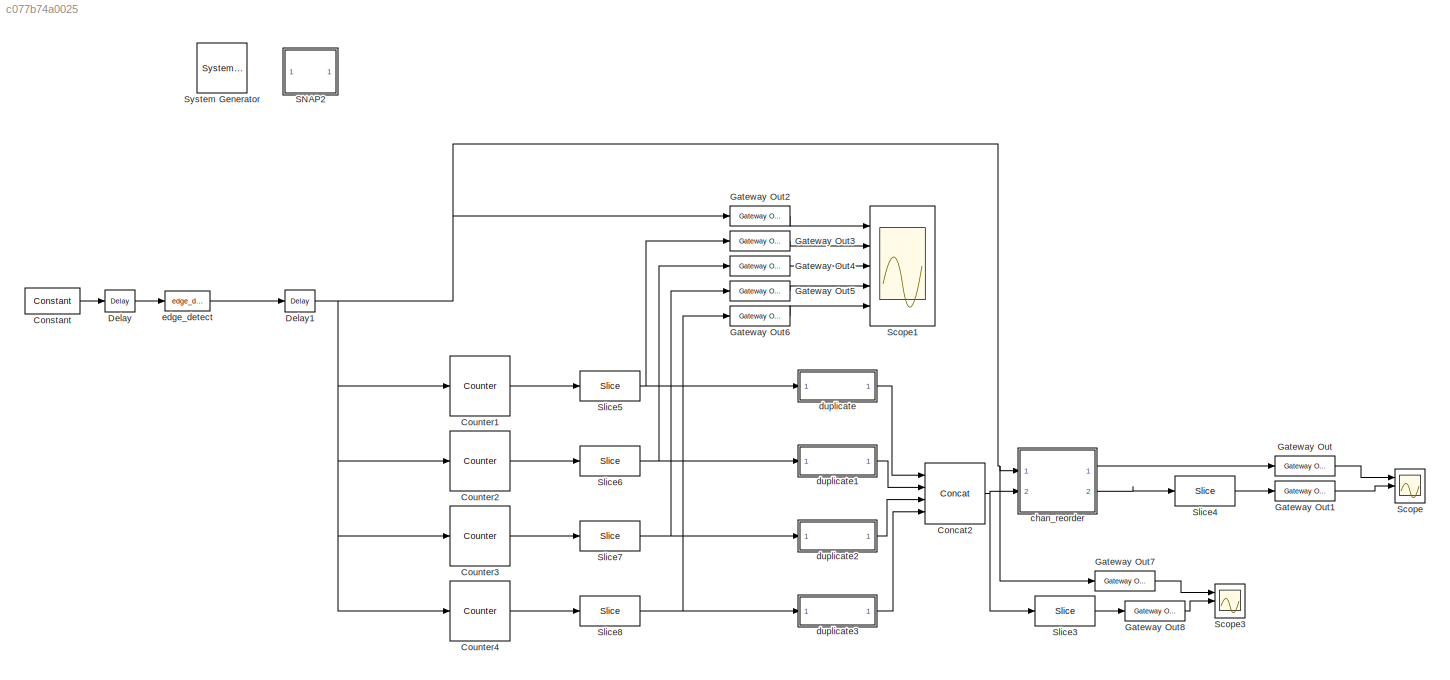
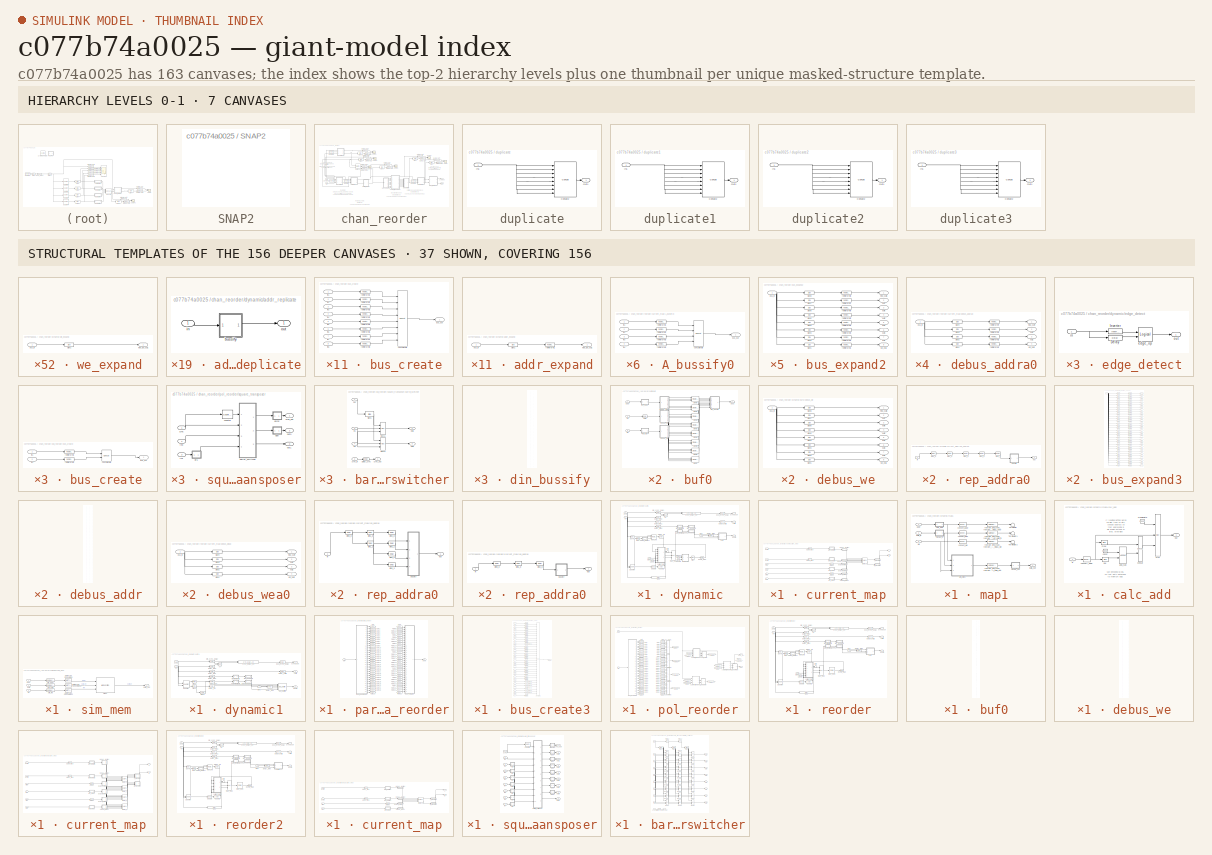
[diagram: thumbnail index - top-2 hierarchy levels (7 canvases) + 37 structural-template representatives of the remaining 156 canvases]
MODEL slx_c077b74a0025
KIND model
CONFIG AbsTol = auto
CONFIG EnableMultiTasking = off
CONFIG FixedStep = auto
CONFIG MaxStep = auto
CONFIG MinStep = auto
CONFIG RelTol = 1e-3
CONFIG SampleTimeConstraint = Unconstrained
CONFIG Solver = VariableStepAuto
CONFIG SolverName = VariableStepAuto
CONFIG StartTime = 0.0
CONFIG StopTime = 20000
BLOCK [Reference]  System Generator  REF=xbsIndex_r4/ System Generator
  AttributesFormatString = System\nGenerator
  Ports = []
  SourceBlock = xbsIndex_r4/ System Generator
  SourceType = Xilinx System Generator Block
  Tag = genX
  UserDataPersistent = on
BLOCK [Reference] Concat2  REF=xbsIndex_r4/Concat
  Ports = [4, 1]
  SourceBlock = xbsIndex_r4/Concat
  SourceType = Xilinx Bus Concatenator Block
BLOCK [Reference] Constant  REF=xbsIndex_r4/Constant
  Ports = [0, 1]
  SourceBlock = xbsIndex_r4/Constant
  SourceType = Xilinx Constant Block Block
BLOCK [Reference] Counter1  REF=xbsIndex_r4/Counter
  Ports = [1, 1]
  SourceBlock = xbsIndex_r4/Counter
  SourceType = Xilinx Counter Block
BLOCK [Reference] Counter2  REF=xbsIndex_r4/Counter
  Ports = [1, 1]
  SourceBlock = xbsIndex_r4/Counter
  SourceType = Xilinx Counter Block
BLOCK [Reference] Counter3  REF=xbsIndex_r4/Counter
  Ports = [1, 1]
  SourceBlock = xbsIndex_r4/Counter
  SourceType = Xilinx Counter Block
BLOCK [Reference] Counter4  REF=xbsIndex_r4/Counter
  Ports = [1, 1]
  SourceBlock = xbsIndex_r4/Counter
  SourceType = Xilinx Counter Block
BLOCK [Reference] Delay  REF=xbsIndex_r4/Delay
  Ports = [1, 1]
  SourceBlock = xbsIndex_r4/Delay
  SourceType = Xilinx Delay Block
BLOCK [Reference] Delay1  REF=xbsIndex_r4/Delay
  Ports = [1, 1]
  SourceBlock = xbsIndex_r4/Delay
  SourceType = Xilinx Delay Block
BLOCK [Reference] Gateway Out  REF=xbsIndex_r4/Gateway Out
  Ports = [1, 1]
  SourceBlock = xbsIndex_r4/Gateway Out
  SourceType = Xilinx Gateway Out Block
BLOCK [Reference] Gateway Out1  REF=xbsIndex_r4/Gateway Out
  Ports = [1, 1]
  SourceBlock = xbsIndex_r4/Gateway Out
  SourceType = Xilinx Gateway Out Block
BLOCK [Reference] Gateway Out2  REF=xbsIndex_r4/Gateway Out
  Ports = [1, 1]
  SourceBlock = xbsIndex_r4/Gateway Out
  SourceType = Xilinx Gateway Out Block
BLOCK [Reference] Gateway Out3  REF=xbsIndex_r4/Gateway Out
  Ports = [1, 1]
  SourceBlock = xbsIndex_r4/Gateway Out
  SourceType = Xilinx Gateway Out Block
BLOCK [Reference] Gateway Out4  REF=xbsIndex_r4/Gateway Out
  Ports = [1, 1]
  SourceBlock = xbsIndex_r4/Gateway Out
  SourceType = Xilinx Gateway Out Block
BLOCK [Reference] Gateway Out5  REF=xbsIndex_r4/Gateway Out
  Ports = [1, 1]
  SourceBlock = xbsIndex_r4/Gateway Out
  SourceType = Xilinx Gateway Out Block
BLOCK [Reference] Gateway Out6  REF=xbsIndex_r4/Gateway Out
  Ports = [1, 1]
  SourceBlock = xbsIndex_r4/Gateway Out
  SourceType = Xilinx Gateway Out Block
BLOCK [Reference] Gateway Out7  REF=xbsIndex_r4/Gateway Out
  Ports = [1, 1]
  SourceBlock = xbsIndex_r4/Gateway Out
  SourceType = Xilinx Gateway Out Block
BLOCK [Reference] Gateway Out8  REF=xbsIndex_r4/Gateway Out
  Ports = [1, 1]
  SourceBlock = xbsIndex_r4/Gateway Out
  SourceType = Xilinx Gateway Out Block
BLOCK [SubSystem] SNAP2
  Ports = []
  RequestExecContextInheritance = off
  Tag = xps:xsg
BLOCK [Scope] Scope
  Floating = off
  NumInputPorts = 3
  Ports = [3]
  ScopeSpecificationString = Simulink.scopes.TimeScopeBlockCfg('CurrentConfiguration', extmgr.ConfigurationSet(extmgr.Configuration('Core','General UI',true),extmgr.Configuration('Core','Source UI',true),extmgr.Configuration('Sources','WiredSimulink',true,'DataLoggingVariableName','ScopeData1'),extmgr.Configuration('Visuals','Time Domain',true,'SerializedDisplays',{struct('MinYLimReal','-0.125','MaxYLimReal','1.125','YLabelRe...<+2823ch>
BLOCK [Scope] Scope1
  Floating = off
  NumInputPorts = 5
  Ports = [5]
  ScopeSpecificationString = Simulink.scopes.TimeScopeBlockCfg('CurrentConfiguration', extmgr.ConfigurationSet(extmgr.Configuration('Core','General UI',true),extmgr.Configuration('Core','Source UI',true),extmgr.Configuration('Sources','WiredSimulink',true,'DataLoggingVariableName','ScopeData1'),extmgr.Configuration('Visuals','Time Domain',true,'SerializedDisplays',{struct('MinYLimReal','-0.125','MaxYLimReal','1.125','YLabelRe...<+2097ch>
BLOCK [Scope] Scope3
  Floating = off
  NumInputPorts = 3
  Ports = [3]
  ScopeSpecificationString = Simulink.scopes.TimeScopeBlockCfg('CurrentConfiguration', extmgr.ConfigurationSet(extmgr.Configuration('Core','General UI',true),extmgr.Configuration('Core','Source UI',true),extmgr.Configuration('Sources','WiredSimulink',true,'DataLoggingVariableName','ScopeData6'),extmgr.Configuration('Visuals','Time Domain',true,'SerializedDisplays',{struct('MinYLimReal','-0.125','MaxYLimReal','1.125','YLabelRe...<+2824ch>
BLOCK [Reference] Slice3  REF=xbsIndex_r4/Slice
  Ports = [1, 1]
  SourceBlock = xbsIndex_r4/Slice
  SourceType = Xilinx Bit Slice Extractor Block
BLOCK [Reference] Slice4  REF=xbsIndex_r4/Slice
  Ports = [1, 1]
  SourceBlock = xbsIndex_r4/Slice
  SourceType = Xilinx Bit Slice Extractor Block
BLOCK [Reference] Slice5  REF=xbsIndex_r4/Slice
  Ports = [1, 1]
  SourceBlock = xbsIndex_r4/Slice
  SourceType = Xilinx Bit Slice Extractor Block
BLOCK [Reference] Slice6  REF=xbsIndex_r4/Slice
  Ports = [1, 1]
  SourceBlock = xbsIndex_r4/Slice
  SourceType = Xilinx Bit Slice Extractor Block
BLOCK [Reference] Slice7  REF=xbsIndex_r4/Slice
  Ports = [1, 1]
  SourceBlock = xbsIndex_r4/Slice
  SourceType = Xilinx Bit Slice Extractor Block
BLOCK [Reference] Slice8  REF=xbsIndex_r4/Slice
  Ports = [1, 1]
  SourceBlock = xbsIndex_r4/Slice
  SourceType = Xilinx Bit Slice Extractor Block
BLOCK [SubSystem] chan_reorder
  Ports = [2, 2]
  RequestExecContextInheritance = off
BLOCK [Reference] chan_reorder/Constant  REF=xbsIndex_r4/Constant
  Ports = [0, 1]
  SourceBlock = xbsIndex_r4/Constant
  SourceType = Xilinx Constant Block Block
BLOCK [Reference] chan_reorder/Constant1  REF=xbsIndex_r4/Constant
  Ports = [0, 1]
  SourceBlock = xbsIndex_r4/Constant
  SourceType = Xilinx Constant Block Block
BLOCK [Reference] chan_reorder/Constant2  REF=xbsIndex_r4/Constant
  Ports = [0, 1]
  SourceBlock = xbsIndex_r4/Constant
  SourceType = Xilinx Constant Block Block
BLOCK [Reference] chan_reorder/Constant3  REF=xbsIndex_r4/Constant
  Ports = [0, 1]
  SourceBlock = xbsIndex_r4/Constant
  SourceType = Xilinx Constant Block Block
BLOCK [Reference] chan_reorder/Gateway Out1  REF=xbsIndex_r4/Gateway Out
  Ports = [1, 1]
  SourceBlock = xbsIndex_r4/Gateway Out
  SourceType = Xilinx Gateway Out Block
BLOCK [Reference] chan_reorder/Gateway Out10  REF=xbsIndex_r4/Gateway Out
  Ports = [1, 1]
  SourceBlock = xbsIndex_r4/Gateway Out
  SourceType = Xilinx Gateway Out Block
BLOCK [Reference] chan_reorder/Gateway Out11  REF=xbsIndex_r4/Gateway Out
  Ports = [1, 1]
  SourceBlock = xbsIndex_r4/Gateway Out
  SourceType = Xilinx Gateway Out Block
BLOCK [Reference] chan_reorder/Gateway Out12  REF=xbsIndex_r4/Gateway Out
  Ports = [1, 1]
  SourceBlock = xbsIndex_r4/Gateway Out
  SourceType = Xilinx Gateway Out Block
BLOCK [Reference] chan_reorder/Gateway Out2  REF=xbsIndex_r4/Gateway Out
  Ports = [1, 1]
  SourceBlock = xbsIndex_r4/Gateway Out
  SourceType = Xilinx Gateway Out Block
BLOCK [Reference] chan_reorder/Gateway Out3  REF=xbsIndex_r4/Gateway Out
  Ports = [1, 1]
  SourceBlock = xbsIndex_r4/Gateway Out
  SourceType = Xilinx Gateway Out Block
BLOCK [Reference] chan_reorder/Gateway Out4  REF=xbsIndex_r4/Gateway Out
  Ports = [1, 1]
  SourceBlock = xbsIndex_r4/Gateway Out
  SourceType = Xilinx Gateway Out Block
BLOCK [Reference] chan_reorder/Gateway Out5  REF=xbsIndex_r4/Gateway Out
  Ports = [1, 1]
  SourceBlock = xbsIndex_r4/Gateway Out
  SourceType = Xilinx Gateway Out Block
BLOCK [Reference] chan_reorder/Gateway Out6  REF=xbsIndex_r4/Gateway Out
  Ports = [1, 1]
  SourceBlock = xbsIndex_r4/Gateway Out
  SourceType = Xilinx Gateway Out Block
BLOCK [Reference] chan_reorder/Gateway Out7  REF=xbsIndex_r4/Gateway Out
  Ports = [1, 1]
  SourceBlock = xbsIndex_r4/Gateway Out
  SourceType = Xilinx Gateway Out Block
BLOCK [Reference] chan_reorder/Gateway Out8  REF=xbsIndex_r4/Gateway Out
  Ports = [1, 1]
  SourceBlock = xbsIndex_r4/Gateway Out
  SourceType = Xilinx Gateway Out Block
BLOCK [Reference] chan_reorder/Gateway Out9  REF=xbsIndex_r4/Gateway Out
  Ports = [1, 1]
  SourceBlock = xbsIndex_r4/Gateway Out
  SourceType = Xilinx Gateway Out Block
BLOCK [Reference] chan_reorder/Relational  REF=xbsIndex_r4/Relational
  Ports = [2, 1]
  SourceBlock = xbsIndex_r4/Relational
  SourceType = Xilinx Arithmetic Relational Operator Block
BLOCK [Scope] chan_reorder/Scope
  Floating = off
  NumInputPorts = 3
  Ports = [3]
  ScopeSpecificationString = Simulink.scopes.TimeScopeBlockCfg('CurrentConfiguration', extmgr.ConfigurationSet(extmgr.Configuration('Core','General UI',true),extmgr.Configuration('Core','Source UI',true),extmgr.Configuration('Sources','WiredSimulink',true,'DataLoggingVariableName','ScopeData2'),extmgr.Configuration('Visuals','Time Domain',true,'SerializedDisplays',{struct('MinYLimReal','-0.125','MaxYLimReal','1.125','YLabelRe...<+2827ch>
BLOCK [Scope] chan_reorder/Scope1
  Floating = off
  NumInputPorts = 3
  Ports = [3]
  ScopeSpecificationString = Simulink.scopes.TimeScopeBlockCfg('CurrentConfiguration', extmgr.ConfigurationSet(extmgr.Configuration('Core','General UI',true),extmgr.Configuration('Core','Source UI',true),extmgr.Configuration('Sources','WiredSimulink',true,'DataLoggingVariableName','ScopeData3'),extmgr.Configuration('Visuals','Time Domain',true,'SerializedDisplays',{struct('MinYLimReal','-0.125','MaxYLimReal','1.125','YLabelRe...<+2824ch>
BLOCK [Scope] chan_reorder/Scope2
  Floating = off
  NumInputPorts = 3
  Ports = [3]
  ScopeSpecificationString = Simulink.scopes.TimeScopeBlockCfg('CurrentConfiguration', extmgr.ConfigurationSet(extmgr.Configuration('Core','General UI',true),extmgr.Configuration('Core','Source UI',true),extmgr.Configuration('Sources','WiredSimulink',true,'DataLoggingVariableName','ScopeData4'),extmgr.Configuration('Visuals','Time Domain',true,'SerializedDisplays',{struct('MinYLimReal','-0.125','MaxYLimReal','1.125','YLabelRe...<+2826ch>
BLOCK [Scope] chan_reorder/Scope3
  Floating = off
  NumInputPorts = 3
  Ports = [3]
  ScopeSpecificationString = Simulink.scopes.TimeScopeBlockCfg('CurrentConfiguration', extmgr.ConfigurationSet(extmgr.Configuration('Core','General UI',true),extmgr.Configuration('Core','Source UI',true),extmgr.Configuration('Sources','WiredSimulink',true,'DataLoggingVariableName','ScopeData5'),extmgr.Configuration('Visuals','Time Domain',true,'SerializedDisplays',{struct('MinYLimReal','-0.125','MaxYLimReal','1.125','YLabelRe...<+2824ch>
BLOCK [Scope] chan_reorder/Scope4
  Floating = off
  NumInputPorts = 3
  Ports = [3]
  ScopeSpecificationString = Simulink.scopes.TimeScopeBlockCfg('CurrentConfiguration', extmgr.ConfigurationSet(extmgr.Configuration('Core','General UI',true),extmgr.Configuration('Core','Source UI',true),extmgr.Configuration('Sources','WiredSimulink',true,'DataLoggingVariableName','ScopeData1'),extmgr.Configuration('Visuals','Time Domain',true,'SerializedDisplays',{struct('MinYLimReal','-0.125','MaxYLimReal','1.125','YLabelRe...<+2824ch>
BLOCK [Scope] chan_reorder/Scope5
  Floating = off
  NumInputPorts = 3
  Ports = [3]
  ScopeSpecificationString = Simulink.scopes.TimeScopeBlockCfg('CurrentConfiguration', extmgr.ConfigurationSet(extmgr.Configuration('Core','General UI',true),extmgr.Configuration('Core','Source UI',true),extmgr.Configuration('Sources','WiredSimulink',true,'DataLoggingVariableName','ScopeData2'),extmgr.Configuration('Visuals','Time Domain',true,'SerializedDisplays',{struct('MinYLimReal','-0.125','MaxYLimReal','1.125','YLabelRe...<+2826ch>
BLOCK [Reference] chan_reorder/Slice1  REF=xbsIndex_r4/Slice
  Ports = [1, 1]
  SourceBlock = xbsIndex_r4/Slice
  SourceType = Xilinx Bit Slice Extractor Block
BLOCK [Reference] chan_reorder/Slice2  REF=xbsIndex_r4/Slice
  Ports = [1, 1]
  SourceBlock = xbsIndex_r4/Slice
  SourceType = Xilinx Bit Slice Extractor Block
BLOCK [Reference] chan_reorder/Slice3  REF=xbsIndex_r4/Slice
  Ports = [1, 1]
  SourceBlock = xbsIndex_r4/Slice
  SourceType = Xilinx Bit Slice Extractor Block
BLOCK [Reference] chan_reorder/Slice4  REF=xbsIndex_r4/Slice
  Ports = [1, 1]
  SourceBlock = xbsIndex_r4/Slice
  SourceType = Xilinx Bit Slice Extractor Block
BLOCK [Reference] chan_reorder/Slice5  REF=xbsIndex_r4/Slice
  Ports = [1, 1]
  SourceBlock = xbsIndex_r4/Slice
  SourceType = Xilinx Bit Slice Extractor Block
BLOCK [SubSystem] chan_reorder/bus_create
  AncestorBlock = casper_library_flow_control/bus_create
  Ports = [8, 1]
  RequestExecContextInheritance = off
  UserDataPersistent = on
BLOCK [Outport] chan_reorder/bus_create/bus_out
  IconDisplay = Port number
BLOCK [Reference] chan_reorder/bus_create/concatenate  REF=xbsIndex_r4/Concat
  Ports = [8, 1]
  SourceBlock = xbsIndex_r4/Concat
  SourceType = Xilinx Bus Concatenator Block
BLOCK [Inport] chan_reorder/bus_create/in1
  IconDisplay = Port number
BLOCK [Inport] chan_reorder/bus_create/in2
  IconDisplay = Port number
  Port = 2
BLOCK [Inport] chan_reorder/bus_create/in3
  IconDisplay = Port number
  Port = 3
BLOCK [Inport] chan_reorder/bus_create/in4
  IconDisplay = Port number
  Port = 4
BLOCK [Inport] chan_reorder/bus_create/in5
  IconDisplay = Port number
  Port = 5
BLOCK [Inport] chan_reorder/bus_create/in6
  IconDisplay = Port number
  Port = 6
BLOCK [Inport] chan_reorder/bus_create/in7
  IconDisplay = Port number
  Port = 7
BLOCK [Inport] chan_reorder/bus_create/in8
  IconDisplay = Port number
  Port = 8
BLOCK [Reference] chan_reorder/bus_create/reinterpret1  REF=xbsIndex_r4/Reinterpret
  Ports = [1, 1]
  SourceBlock = xbsIndex_r4/Reinterpret
  SourceType = Xilinx Type Reinterpreter Block
BLOCK [Reference] chan_reorder/bus_create/reinterpret2  REF=xbsIndex_r4/Reinterpret
  Ports = [1, 1]
  SourceBlock = xbsIndex_r4/Reinterpret
  SourceType = Xilinx Type Reinterpreter Block
BLOCK [Reference] chan_reorder/bus_create/reinterpret3  REF=xbsIndex_r4/Reinterpret
  Ports = [1, 1]
  SourceBlock = xbsIndex_r4/Reinterpret
  SourceType = Xilinx Type Reinterpreter Block
BLOCK [Reference] chan_reorder/bus_create/reinterpret4  REF=xbsIndex_r4/Reinterpret
  Ports = [1, 1]
  SourceBlock = xbsIndex_r4/Reinterpret
  SourceType = Xilinx Type Reinterpreter Block
BLOCK [Reference] chan_reorder/bus_create/reinterpret5  REF=xbsIndex_r4/Reinterpret
  Ports = [1, 1]
  SourceBlock = xbsIndex_r4/Reinterpret
  SourceType = Xilinx Type Reinterpreter Block
BLOCK [Reference] chan_reorder/bus_create/reinterpret6  REF=xbsIndex_r4/Reinterpret
  Ports = [1, 1]
  SourceBlock = xbsIndex_r4/Reinterpret
  SourceType = Xilinx Type Reinterpreter Block
BLOCK [Reference] chan_reorder/bus_create/reinterpret7  REF=xbsIndex_r4/Reinterpret
  Ports = [1, 1]
  SourceBlock = xbsIndex_r4/Reinterpret
  SourceType = Xilinx Type Reinterpreter Block
BLOCK [Reference] chan_reorder/bus_create/reinterpret8  REF=xbsIndex_r4/Reinterpret
  Ports = [1, 1]
  SourceBlock = xbsIndex_r4/Reinterpret
  SourceType = Xilinx Type Reinterpreter Block
BLOCK [SubSystem] chan_reorder/bus_expand2
  AncestorBlock = casper_library_flow_control/bus_expand
  AttributesFormatString = 8 outputs
  Ports = [1, 8]
  RequestExecContextInheritance = off
  UserDataPersistent = on
BLOCK [Inport] chan_reorder/bus_expand2/bus_in
  IconDisplay = Port number
BLOCK [Outport] chan_reorder/bus_expand2/lsb_out1
  IconDisplay = Port number
  Port = 8
BLOCK [Outport] chan_reorder/bus_expand2/msb_out8
  IconDisplay = Port number
BLOCK [Outport] chan_reorder/bus_expand2/out2
  IconDisplay = Port number
  Port = 7
BLOCK [Outport] chan_reorder/bus_expand2/out3
  IconDisplay = Port number
  Port = 6
BLOCK [Outport] chan_reorder/bus_expand2/out4
  IconDisplay = Port number
  Port = 5
BLOCK [Outport] chan_reorder/bus_expand2/out5
  IconDisplay = Port number
  Port = 4
BLOCK [Outport] chan_reorder/bus_expand2/out6
  IconDisplay = Port number
  Port = 3
BLOCK [Outport] chan_reorder/bus_expand2/out7
  IconDisplay = Port number
  Port = 2
BLOCK [Reference] chan_reorder/bus_expand2/reinterpret1  REF=xbsIndex_r4/Reinterpret
  Ports = [1, 1]
  SourceBlock = xbsIndex_r4/Reinterpret
  SourceType = Xilinx Type Reinterpreter Block
BLOCK [Reference] chan_reorder/bus_expand2/reinterpret2  REF=xbsIndex_r4/Reinterpret
  Ports = [1, 1]
  SourceBlock = xbsIndex_r4/Reinterpret
  SourceType = Xilinx Type Reinterpreter Block
BLOCK [Reference] chan_reorder/bus_expand2/reinterpret3  REF=xbsIndex_r4/Reinterpret
  Ports = [1, 1]
  SourceBlock = xbsIndex_r4/Reinterpret
  SourceType = Xilinx Type Reinterpreter Block
BLOCK [Reference] chan_reorder/bus_expand2/reinterpret4  REF=xbsIndex_r4/Reinterpret
  Ports = [1, 1]
  SourceBlock = xbsIndex_r4/Reinterpret
  SourceType = Xilinx Type Reinterpreter Block
BLOCK [Reference] chan_reorder/bus_expand2/reinterpret5  REF=xbsIndex_r4/Reinterpret
  Ports = [1, 1]
  SourceBlock = xbsIndex_r4/Reinterpret
  SourceType = Xilinx Type Reinterpreter Block
BLOCK [Reference] chan_reorder/bus_expand2/reinterpret6  REF=xbsIndex_r4/Reinterpret
  Ports = [1, 1]
  SourceBlock = xbsIndex_r4/Reinterpret
  SourceType = Xilinx Type Reinterpreter Block
BLOCK [Reference] chan_reorder/bus_expand2/reinterpret7  REF=xbsIndex_r4/Reinterpret
  Ports = [1, 1]
  SourceBlock = xbsIndex_r4/Reinterpret
  SourceType = Xilinx Type Reinterpreter Block
BLOCK [Reference] chan_reorder/bus_expand2/reinterpret8  REF=xbsIndex_r4/Reinterpret
  Ports = [1, 1]
  SourceBlock = xbsIndex_r4/Reinterpret
  SourceType = Xilinx Type Reinterpreter Block
BLOCK [Reference] chan_reorder/bus_expand2/slice1  REF=xbsIndex_r4/Slice
  Ports = [1, 1]
  SourceBlock = xbsIndex_r4/Slice
  SourceType = Xilinx Bit Slice Extractor Block
BLOCK [Reference] chan_reorder/bus_expand2/slice2  REF=xbsIndex_r4/Slice
  Ports = [1, 1]
  SourceBlock = xbsIndex_r4/Slice
  SourceType = Xilinx Bit Slice Extractor Block
BLOCK [Reference] chan_reorder/bus_expand2/slice3  REF=xbsIndex_r4/Slice
  Ports = [1, 1]
  SourceBlock = xbsIndex_r4/Slice
  SourceType = Xilinx Bit Slice Extractor Block
BLOCK [Reference] chan_reorder/bus_expand2/slice4  REF=xbsIndex_r4/Slice
  Ports = [1, 1]
  SourceBlock = xbsIndex_r4/Slice
  SourceType = Xilinx Bit Slice Extractor Block
BLOCK [Reference] chan_reorder/bus_expand2/slice5  REF=xbsIndex_r4/Slice
  Ports = [1, 1]
  SourceBlock = xbsIndex_r4/Slice
  SourceType = Xilinx Bit Slice Extractor Block
BLOCK [Reference] chan_reorder/bus_expand2/slice6  REF=xbsIndex_r4/Slice
  Ports = [1, 1]
  SourceBlock = xbsIndex_r4/Slice
  SourceType = Xilinx Bit Slice Extractor Block
BLOCK [Reference] chan_reorder/bus_expand2/slice7  REF=xbsIndex_r4/Slice
  Ports = [1, 1]
  SourceBlock = xbsIndex_r4/Slice
  SourceType = Xilinx Bit Slice Extractor Block
BLOCK [Reference] chan_reorder/bus_expand2/slice8  REF=xbsIndex_r4/Slice
  Ports = [1, 1]
  SourceBlock = xbsIndex_r4/Slice
  SourceType = Xilinx Bit Slice Extractor Block
BLOCK [Inport] chan_reorder/din
  IconDisplay = Port number
  Port = 2
BLOCK [Outport] chan_reorder/dout
  IconDisplay = Port number
  Port = 2
BLOCK [SubSystem] chan_reorder/dynamic
  AncestorBlock = casper_library_reorder/reorder
  AttributesFormatString = order=9
  Ports = [3, 3]
  RequestExecContextInheritance = off
  UserDataPersistent = on
BLOCK [Reference] chan_reorder/dynamic/Counter  REF=xbsIndex_r4/Counter
  Ports = [2, 1]
  SourceBlock = xbsIndex_r4/Counter
  SourceType = Xilinx Counter Block
BLOCK [Reference] chan_reorder/dynamic/Slice  REF=xbsIndex_r4/Slice
  Ports = [1, 1]
  SourceBlock = xbsIndex_r4/Slice
  SourceType = Xilinx Bit Slice Extractor Block
BLOCK [SubSystem] chan_reorder/dynamic/addr_expand
  AncestorBlock = casper_library_flow_control/bus_expand
  AttributesFormatString = 1 outputs
  Ports = [1, 1]
  RequestExecContextInheritance = off
  UserDataPersistent = on
BLOCK [Inport] chan_reorder/dynamic/addr_expand/bus_in
  IconDisplay = Port number
BLOCK [Outport] chan_reorder/dynamic/addr_expand/msb_lsb_out1
  IconDisplay = Port number
BLOCK [Reference] chan_reorder/dynamic/addr_expand/reinterpret1  REF=xbsIndex_r4/Reinterpret
  Ports = [1, 1]
  SourceBlock = xbsIndex_r4/Reinterpret
  SourceType = Xilinx Type Reinterpreter Block
BLOCK [Reference] chan_reorder/dynamic/addr_expand/slice1  REF=xbsIndex_r4/Slice
  Ports = [1, 1]
  SourceBlock = xbsIndex_r4/Slice
  SourceType = Xilinx Bit Slice Extractor Block
BLOCK [SubSystem] chan_reorder/dynamic/addr_replicate
  AncestorBlock = casper_library_bus/bus_replicate
  Ports = [1, 1]
  RequestExecContextInheritance = off
  UserDataPersistent = on
BLOCK [SubSystem] chan_reorder/dynamic/addr_replicate/bussify
  AncestorBlock = casper_library_flow_control/bus_create
  Ports = [1, 1]
  RequestExecContextInheritance = off
  UserDataPersistent = on
BLOCK [Outport] chan_reorder/dynamic/addr_replicate/bussify/bus_out
  IconDisplay = Port number
BLOCK [Inport] chan_reorder/dynamic/addr_replicate/bussify/in1
  IconDisplay = Port number
BLOCK [Reference] chan_reorder/dynamic/addr_replicate/bussify/reinterpret1  REF=xbsIndex_r4/Reinterpret
  Ports = [1, 1]
  SourceBlock = xbsIndex_r4/Reinterpret
  SourceType = Xilinx Type Reinterpreter Block
BLOCK [Inport] chan_reorder/dynamic/addr_replicate/in
  IconDisplay = Port number
BLOCK [Outport] chan_reorder/dynamic/addr_replicate/out
  IconDisplay = Port number
BLOCK [Reference] chan_reorder/dynamic/blank  REF=xbsIndex_r4/Constant
  Ports = [0, 1]
  SourceBlock = xbsIndex_r4/Constant
  SourceType = Xilinx Constant Block Block
BLOCK [Reference] chan_reorder/dynamic/blank1  REF=xbsIndex_r4/Constant
  Ports = [0, 1]
  SourceBlock = xbsIndex_r4/Constant
  SourceType = Xilinx Constant Block Block
BLOCK [SubSystem] chan_reorder/dynamic/buf0
  AncestorBlock = casper_library_bus/bus_single_port_ram
  Ports = [3, 1]
  RequestExecContextInheritance = off
  UserDataPersistent = on
BLOCK [Inport] chan_reorder/dynamic/buf0/addr
  IconDisplay = Port number
BLOCK [Reference] chan_reorder/dynamic/buf0/bram0  REF=xbsIndex_r4/Single Port RAM
  Ports = [3, 1]
  SourceBlock = xbsIndex_r4/Single Port RAM
  SourceType = Xilinx Single Port Random Access Memory Block
  UserDataPersistent = on
BLOCK [Reference] chan_reorder/dynamic/buf0/bram1  REF=xbsIndex_r4/Single Port RAM
  Ports = [3, 1]
  SourceBlock = xbsIndex_r4/Single Port RAM
  SourceType = Xilinx Single Port Random Access Memory Block
  UserDataPersistent = on
BLOCK [Reference] chan_reorder/dynamic/buf0/bram2  REF=xbsIndex_r4/Single Port RAM
  Ports = [3, 1]
  SourceBlock = xbsIndex_r4/Single Port RAM
  SourceType = Xilinx Single Port Random Access Memory Block
  UserDataPersistent = on
BLOCK [Reference] chan_reorder/dynamic/buf0/bram3  REF=xbsIndex_r4/Single Port RAM
  Ports = [3, 1]
  SourceBlock = xbsIndex_r4/Single Port RAM
  SourceType = Xilinx Single Port Random Access Memory Block
  UserDataPersistent = on
BLOCK [Reference] chan_reorder/dynamic/buf0/bram4  REF=xbsIndex_r4/Single Port RAM
  Ports = [3, 1]
  SourceBlock = xbsIndex_r4/Single Port RAM
  SourceType = Xilinx Single Port Random Access Memory Block
  UserDataPersistent = on
BLOCK [Reference] chan_reorder/dynamic/buf0/bram5  REF=xbsIndex_r4/Single Port RAM
  Ports = [3, 1]
  SourceBlock = xbsIndex_r4/Single Port RAM
  SourceType = Xilinx Single Port Random Access Memory Block
  UserDataPersistent = on
BLOCK [Reference] chan_reorder/dynamic/buf0/bram6  REF=xbsIndex_r4/Single Port RAM
  Ports = [3, 1]
  SourceBlock = xbsIndex_r4/Single Port RAM
  SourceType = Xilinx Single Port Random Access Memory Block
  UserDataPersistent = on
BLOCK [Reference] chan_reorder/dynamic/buf0/bram7  REF=xbsIndex_r4/Single Port RAM
  Ports = [3, 1]
  SourceBlock = xbsIndex_r4/Single Port RAM
  SourceType = Xilinx Single Port Random Access Memory Block
  UserDataPersistent = on
BLOCK [Reference] chan_reorder/dynamic/buf0/ddin  REF=xbsIndex_r4/Delay
  Ports = [1, 1]
  SourceBlock = xbsIndex_r4/Delay
  SourceType = Xilinx Delay Block
BLOCK [SubSystem] chan_reorder/dynamic/buf0/debus_addr
  AncestorBlock = casper_library_flow_control/bus_expand
  AttributesFormatString = 8 outputs: uf9.0,uf9.0,uf9.0,uf9.0,uf9.0,uf9.0,uf9.0,uf9.0,
  Ports = [1, 8]
  RequestExecContextInheritance = off
  UserDataPersistent = on
BLOCK [Inport] chan_reorder/dynamic/buf0/debus_addr/bus_in
  IconDisplay = Port number
BLOCK [Outport] chan_reorder/dynamic/buf0/debus_addr/lsb_out1
  IconDisplay = Port number
  Port = 8
BLOCK [Outport] chan_reorder/dynamic/buf0/debus_addr/msb_out8
  IconDisplay = Port number
BLOCK [Outport] chan_reorder/dynamic/buf0/debus_addr/out2
  IconDisplay = Port number
  Port = 7
BLOCK [Outport] chan_reorder/dynamic/buf0/debus_addr/out3
  IconDisplay = Port number
  Port = 6
BLOCK [Outport] chan_reorder/dynamic/buf0/debus_addr/out4
  IconDisplay = Port number
  Port = 5
BLOCK [Outport] chan_reorder/dynamic/buf0/debus_addr/out5
  IconDisplay = Port number
  Port = 4
BLOCK [Outport] chan_reorder/dynamic/buf0/debus_addr/out6
  IconDisplay = Port number
  Port = 3
BLOCK [Outport] chan_reorder/dynamic/buf0/debus_addr/out7
  IconDisplay = Port number
  Port = 2
BLOCK [Reference] chan_reorder/dynamic/buf0/debus_addr/reinterpret1  REF=xbsIndex_r4/Reinterpret
  Ports = [1, 1]
  SourceBlock = xbsIndex_r4/Reinterpret
  SourceType = Xilinx Type Reinterpreter Block
BLOCK [Reference] chan_reorder/dynamic/buf0/debus_addr/reinterpret2  REF=xbsIndex_r4/Reinterpret
  Ports = [1, 1]
  SourceBlock = xbsIndex_r4/Reinterpret
  SourceType = Xilinx Type Reinterpreter Block
BLOCK [Reference] chan_reorder/dynamic/buf0/debus_addr/reinterpret3  REF=xbsIndex_r4/Reinterpret
  Ports = [1, 1]
  SourceBlock = xbsIndex_r4/Reinterpret
  SourceType = Xilinx Type Reinterpreter Block
BLOCK [Reference] chan_reorder/dynamic/buf0/debus_addr/reinterpret4  REF=xbsIndex_r4/Reinterpret
  Ports = [1, 1]
  SourceBlock = xbsIndex_r4/Reinterpret
  SourceType = Xilinx Type Reinterpreter Block
BLOCK [Reference] chan_reorder/dynamic/buf0/debus_addr/reinterpret5  REF=xbsIndex_r4/Reinterpret
  Ports = [1, 1]
  SourceBlock = xbsIndex_r4/Reinterpret
  SourceType = Xilinx Type Reinterpreter Block
BLOCK [Reference] chan_reorder/dynamic/buf0/debus_addr/reinterpret6  REF=xbsIndex_r4/Reinterpret
  Ports = [1, 1]
  SourceBlock = xbsIndex_r4/Reinterpret
  SourceType = Xilinx Type Reinterpreter Block
BLOCK [Reference] chan_reorder/dynamic/buf0/debus_addr/reinterpret7  REF=xbsIndex_r4/Reinterpret
  Ports = [1, 1]
  SourceBlock = xbsIndex_r4/Reinterpret
  SourceType = Xilinx Type Reinterpreter Block
BLOCK [Reference] chan_reorder/dynamic/buf0/debus_addr/reinterpret8  REF=xbsIndex_r4/Reinterpret
  Ports = [1, 1]
  SourceBlock = xbsIndex_r4/Reinterpret
  SourceType = Xilinx Type Reinterpreter Block
BLOCK [Reference] chan_reorder/dynamic/buf0/debus_addr/slice1  REF=xbsIndex_r4/Slice
  Ports = [1, 1]
  SourceBlock = xbsIndex_r4/Slice
  SourceType = Xilinx Bit Slice Extractor Block
BLOCK [Reference] chan_reorder/dynamic/buf0/debus_addr/slice2  REF=xbsIndex_r4/Slice
  Ports = [1, 1]
  SourceBlock = xbsIndex_r4/Slice
  SourceType = Xilinx Bit Slice Extractor Block
BLOCK [Reference] chan_reorder/dynamic/buf0/debus_addr/slice3  REF=xbsIndex_r4/Slice
  Ports = [1, 1]
  SourceBlock = xbsIndex_r4/Slice
  SourceType = Xilinx Bit Slice Extractor Block
BLOCK [Reference] chan_reorder/dynamic/buf0/debus_addr/slice4  REF=xbsIndex_r4/Slice
  Ports = [1, 1]
  SourceBlock = xbsIndex_r4/Slice
  SourceType = Xilinx Bit Slice Extractor Block
BLOCK [Reference] chan_reorder/dynamic/buf0/debus_addr/slice5  REF=xbsIndex_r4/Slice
  Ports = [1, 1]
  SourceBlock = xbsIndex_r4/Slice
  SourceType = Xilinx Bit Slice Extractor Block
BLOCK [Reference] chan_reorder/dynamic/buf0/debus_addr/slice6  REF=xbsIndex_r4/Slice
  Ports = [1, 1]
  SourceBlock = xbsIndex_r4/Slice
  SourceType = Xilinx Bit Slice Extractor Block
BLOCK [Reference] chan_reorder/dynamic/buf0/debus_addr/slice7  REF=xbsIndex_r4/Slice
  Ports = [1, 1]
  SourceBlock = xbsIndex_r4/Slice
  SourceType = Xilinx Bit Slice Extractor Block
BLOCK [Reference] chan_reorder/dynamic/buf0/debus_addr/slice8  REF=xbsIndex_r4/Slice
  Ports = [1, 1]
  SourceBlock = xbsIndex_r4/Slice
  SourceType = Xilinx Bit Slice Extractor Block
BLOCK [SubSystem] chan_reorder/dynamic/buf0/debus_din
  AncestorBlock = casper_library_flow_control/bus_expand
  AttributesFormatString = 8 outputs: uf4.0,uf36.0,uf36.0,uf36.0,uf36.0,uf36.0,uf36.0,uf36.0,
  Ports = [1, 8]
  RequestExecContextInheritance = off
  UserDataPersistent = on
BLOCK [Inport] chan_reorder/dynamic/buf0/debus_din/bus_in
  IconDisplay = Port number
BLOCK [Outport] chan_reorder/dynamic/buf0/debus_din/lsb_out1
  IconDisplay = Port number
  Port = 8
BLOCK [Outport] chan_reorder/dynamic/buf0/debus_din/msb_out8
  IconDisplay = Port number
BLOCK [Outport] chan_reorder/dynamic/buf0/debus_din/out2
  IconDisplay = Port number
  Port = 7
BLOCK [Outport] chan_reorder/dynamic/buf0/debus_din/out3
  IconDisplay = Port number
  Port = 6
BLOCK [Outport] chan_reorder/dynamic/buf0/debus_din/out4
  IconDisplay = Port number
  Port = 5
BLOCK [Outport] chan_reorder/dynamic/buf0/debus_din/out5
  IconDisplay = Port number
  Port = 4
BLOCK [Outport] chan_reorder/dynamic/buf0/debus_din/out6
  IconDisplay = Port number
  Port = 3
BLOCK [Outport] chan_reorder/dynamic/buf0/debus_din/out7
  IconDisplay = Port number
  Port = 2
BLOCK [Reference] chan_reorder/dynamic/buf0/debus_din/reinterpret1  REF=xbsIndex_r4/Reinterpret
  Ports = [1, 1]
  SourceBlock = xbsIndex_r4/Reinterpret
  SourceType = Xilinx Type Reinterpreter Block
BLOCK [Reference] chan_reorder/dynamic/buf0/debus_din/reinterpret2  REF=xbsIndex_r4/Reinterpret
  Ports = [1, 1]
  SourceBlock = xbsIndex_r4/Reinterpret
  SourceType = Xilinx Type Reinterpreter Block
BLOCK [Reference] chan_reorder/dynamic/buf0/debus_din/reinterpret3  REF=xbsIndex_r4/Reinterpret
  Ports = [1, 1]
  SourceBlock = xbsIndex_r4/Reinterpret
  SourceType = Xilinx Type Reinterpreter Block
BLOCK [Reference] chan_reorder/dynamic/buf0/debus_din/reinterpret4  REF=xbsIndex_r4/Reinterpret
  Ports = [1, 1]
  SourceBlock = xbsIndex_r4/Reinterpret
  SourceType = Xilinx Type Reinterpreter Block
BLOCK [Reference] chan_reorder/dynamic/buf0/debus_din/reinterpret5  REF=xbsIndex_r4/Reinterpret
  Ports = [1, 1]
  SourceBlock = xbsIndex_r4/Reinterpret
  SourceType = Xilinx Type Reinterpreter Block
BLOCK [Reference] chan_reorder/dynamic/buf0/debus_din/reinterpret6  REF=xbsIndex_r4/Reinterpret
  Ports = [1, 1]
  SourceBlock = xbsIndex_r4/Reinterpret
  SourceType = Xilinx Type Reinterpreter Block
BLOCK [Reference] chan_reorder/dynamic/buf0/debus_din/reinterpret7  REF=xbsIndex_r4/Reinterpret
  Ports = [1, 1]
  SourceBlock = xbsIndex_r4/Reinterpret
  SourceType = Xilinx Type Reinterpreter Block
BLOCK [Reference] chan_reorder/dynamic/buf0/debus_din/reinterpret8  REF=xbsIndex_r4/Reinterpret
  Ports = [1, 1]
  SourceBlock = xbsIndex_r4/Reinterpret
  SourceType = Xilinx Type Reinterpreter Block
BLOCK [Reference] chan_reorder/dynamic/buf0/debus_din/slice1  REF=xbsIndex_r4/Slice
  Ports = [1, 1]
  SourceBlock = xbsIndex_r4/Slice
  SourceType = Xilinx Bit Slice Extractor Block
BLOCK [Reference] chan_reorder/dynamic/buf0/debus_din/slice2  REF=xbsIndex_r4/Slice
  Ports = [1, 1]
  SourceBlock = xbsIndex_r4/Slice
  SourceType = Xilinx Bit Slice Extractor Block
BLOCK [Reference] chan_reorder/dynamic/buf0/debus_din/slice3  REF=xbsIndex_r4/Slice
  Ports = [1, 1]
  SourceBlock = xbsIndex_r4/Slice
  SourceType = Xilinx Bit Slice Extractor Block
BLOCK [Reference] chan_reorder/dynamic/buf0/debus_din/slice4  REF=xbsIndex_r4/Slice
  Ports = [1, 1]
  SourceBlock = xbsIndex_r4/Slice
  SourceType = Xilinx Bit Slice Extractor Block
BLOCK [Reference] chan_reorder/dynamic/buf0/debus_din/slice5  REF=xbsIndex_r4/Slice
  Ports = [1, 1]
  SourceBlock = xbsIndex_r4/Slice
  SourceType = Xilinx Bit Slice Extractor Block
BLOCK [Reference] chan_reorder/dynamic/buf0/debus_din/slice6  REF=xbsIndex_r4/Slice
  Ports = [1, 1]
  SourceBlock = xbsIndex_r4/Slice
  SourceType = Xilinx Bit Slice Extractor Block
BLOCK [Reference] chan_reorder/dynamic/buf0/debus_din/slice7  REF=xbsIndex_r4/Slice
  Ports = [1, 1]
  SourceBlock = xbsIndex_r4/Slice
  SourceType = Xilinx Bit Slice Extractor Block
BLOCK [Reference] chan_reorder/dynamic/buf0/debus_din/slice8  REF=xbsIndex_r4/Slice
  Ports = [1, 1]
  SourceBlock = xbsIndex_r4/Slice
  SourceType = Xilinx Bit Slice Extractor Block
BLOCK [SubSystem] chan_reorder/dynamic/buf0/debus_we
  AncestorBlock = casper_library_flow_control/bus_expand
  AttributesFormatString = 8 outputs: b,b,b,b,b,b,b,b,
  Ports = [1, 8]
  RequestExecContextInheritance = off
  UserDataPersistent = on
BLOCK [Inport] chan_reorder/dynamic/buf0/debus_we/bus_in
  IconDisplay = Port number
BLOCK [Outport] chan_reorder/dynamic/buf0/debus_we/lsb_out1
  IconDisplay = Port number
  Port = 8
BLOCK [Outport] chan_reorder/dynamic/buf0/debus_we/msb_out8
  IconDisplay = Port number
BLOCK [Outport] chan_reorder/dynamic/buf0/debus_we/out2
  IconDisplay = Port number
  Port = 7
BLOCK [Outport] chan_reorder/dynamic/buf0/debus_we/out3
  IconDisplay = Port number
  Port = 6
BLOCK [Outport] chan_reorder/dynamic/buf0/debus_we/out4
  IconDisplay = Port number
  Port = 5
BLOCK [Outport] chan_reorder/dynamic/buf0/debus_we/out5
  IconDisplay = Port number
  Port = 4
BLOCK [Outport] chan_reorder/dynamic/buf0/debus_we/out6
  IconDisplay = Port number
  Port = 3
BLOCK [Outport] chan_reorder/dynamic/buf0/debus_we/out7
  IconDisplay = Port number
  Port = 2
BLOCK [Reference] chan_reorder/dynamic/buf0/debus_we/slice1  REF=xbsIndex_r4/Slice
  Ports = [1, 1]
  SourceBlock = xbsIndex_r4/Slice
  SourceType = Xilinx Bit Slice Extractor Block
BLOCK [Reference] chan_reorder/dynamic/buf0/debus_we/slice2  REF=xbsIndex_r4/Slice
  Ports = [1, 1]
  SourceBlock = xbsIndex_r4/Slice
  SourceType = Xilinx Bit Slice Extractor Block
BLOCK [Reference] chan_reorder/dynamic/buf0/debus_we/slice3  REF=xbsIndex_r4/Slice
  Ports = [1, 1]
  SourceBlock = xbsIndex_r4/Slice
  SourceType = Xilinx Bit Slice Extractor Block
BLOCK [Reference] chan_reorder/dynamic/buf0/debus_we/slice4  REF=xbsIndex_r4/Slice
  Ports = [1, 1]
  SourceBlock = xbsIndex_r4/Slice
  SourceType = Xilinx Bit Slice Extractor Block
BLOCK [Reference] chan_reorder/dynamic/buf0/debus_we/slice5  REF=xbsIndex_r4/Slice
  Ports = [1, 1]
  SourceBlock = xbsIndex_r4/Slice
  SourceType = Xilinx Bit Slice Extractor Block
BLOCK [Reference] chan_reorder/dynamic/buf0/debus_we/slice6  REF=xbsIndex_r4/Slice
  Ports = [1, 1]
  SourceBlock = xbsIndex_r4/Slice
  SourceType = Xilinx Bit Slice Extractor Block
BLOCK [Reference] chan_reorder/dynamic/buf0/debus_we/slice7  REF=xbsIndex_r4/Slice
  Ports = [1, 1]
  SourceBlock = xbsIndex_r4/Slice
  SourceType = Xilinx Bit Slice Extractor Block
BLOCK [Reference] chan_reorder/dynamic/buf0/debus_we/slice8  REF=xbsIndex_r4/Slice
  Ports = [1, 1]
  SourceBlock = xbsIndex_r4/Slice
  SourceType = Xilinx Bit Slice Extractor Block
BLOCK [Inport] chan_reorder/dynamic/buf0/din
  IconDisplay = Port number
  Port = 2
BLOCK [SubSystem] chan_reorder/dynamic/buf0/din_bussify
  AncestorBlock = casper_library_flow_control/bus_create
  Ports = [8, 1]
  RequestExecContextInheritance = off
  UserDataPersistent = on
BLOCK [Outport] chan_reorder/dynamic/buf0/din_bussify/bus_out
  IconDisplay = Port number
BLOCK [Reference] chan_reorder/dynamic/buf0/din_bussify/concatenate  REF=xbsIndex_r4/Concat
  Ports = [8, 1]
  SourceBlock = xbsIndex_r4/Concat
  SourceType = Xilinx Bus Concatenator Block
BLOCK [Inport] chan_reorder/dynamic/buf0/din_bussify/in1
  IconDisplay = Port number
BLOCK [Inport] chan_reorder/dynamic/buf0/din_bussify/in2
  IconDisplay = Port number
  Port = 2
BLOCK [Inport] chan_reorder/dynamic/buf0/din_bussify/in3
  IconDisplay = Port number
  Port = 3
BLOCK [Inport] chan_reorder/dynamic/buf0/din_bussify/in4
  IconDisplay = Port number
  Port = 4
BLOCK [Inport] chan_reorder/dynamic/buf0/din_bussify/in5
  IconDisplay = Port number
  Port = 5
BLOCK [Inport] chan_reorder/dynamic/buf0/din_bussify/in6
  IconDisplay = Port number
  Port = 6
BLOCK [Inport] chan_reorder/dynamic/buf0/din_bussify/in7
  IconDisplay = Port number
  Port = 7
BLOCK [Inport] chan_reorder/dynamic/buf0/din_bussify/in8
  IconDisplay = Port number
  Port = 8
BLOCK [Reference] chan_reorder/dynamic/buf0/din_bussify/reinterpret1  REF=xbsIndex_r4/Reinterpret
  Ports = [1, 1]
  SourceBlock = xbsIndex_r4/Reinterpret
  SourceType = Xilinx Type Reinterpreter Block
BLOCK [Reference] chan_reorder/dynamic/buf0/din_bussify/reinterpret2  REF=xbsIndex_r4/Reinterpret
  Ports = [1, 1]
  SourceBlock = xbsIndex_r4/Reinterpret
  SourceType = Xilinx Type Reinterpreter Block
BLOCK [Reference] chan_reorder/dynamic/buf0/din_bussify/reinterpret3  REF=xbsIndex_r4/Reinterpret
  Ports = [1, 1]
  SourceBlock = xbsIndex_r4/Reinterpret
  SourceType = Xilinx Type Reinterpreter Block
BLOCK [Reference] chan_reorder/dynamic/buf0/din_bussify/reinterpret4  REF=xbsIndex_r4/Reinterpret
  Ports = [1, 1]
  SourceBlock = xbsIndex_r4/Reinterpret
  SourceType = Xilinx Type Reinterpreter Block
BLOCK [Reference] chan_reorder/dynamic/buf0/din_bussify/reinterpret5  REF=xbsIndex_r4/Reinterpret
  Ports = [1, 1]
  SourceBlock = xbsIndex_r4/Reinterpret
  SourceType = Xilinx Type Reinterpreter Block
BLOCK [Reference] chan_reorder/dynamic/buf0/din_bussify/reinterpret6  REF=xbsIndex_r4/Reinterpret
  Ports = [1, 1]
  SourceBlock = xbsIndex_r4/Reinterpret
  SourceType = Xilinx Type Reinterpreter Block
BLOCK [Reference] chan_reorder/dynamic/buf0/din_bussify/reinterpret7  REF=xbsIndex_r4/Reinterpret
  Ports = [1, 1]
  SourceBlock = xbsIndex_r4/Reinterpret
  SourceType = Xilinx Type Reinterpreter Block
BLOCK [Reference] chan_reorder/dynamic/buf0/din_bussify/reinterpret8  REF=xbsIndex_r4/Reinterpret
  Ports = [1, 1]
  SourceBlock = xbsIndex_r4/Reinterpret
  SourceType = Xilinx Type Reinterpreter Block
BLOCK [Outport] chan_reorder/dynamic/buf0/dout
  IconDisplay = Port number
BLOCK [SubSystem] chan_reorder/dynamic/buf0/rep_addr
  AncestorBlock = casper_library_bus/bus_replicate
  Ports = [1, 1]
  RequestExecContextInheritance = off
  UserDataPersistent = on
BLOCK [SubSystem] chan_reorder/dynamic/buf0/rep_addr/bussify
  AncestorBlock = casper_library_flow_control/bus_create
  Ports = [8, 1]
  RequestExecContextInheritance = off
  UserDataPersistent = on
BLOCK [Outport] chan_reorder/dynamic/buf0/rep_addr/bussify/bus_out
  IconDisplay = Port number
BLOCK [Reference] chan_reorder/dynamic/buf0/rep_addr/bussify/concatenate  REF=xbsIndex_r4/Concat
  Ports = [8, 1]
  SourceBlock = xbsIndex_r4/Concat
  SourceType = Xilinx Bus Concatenator Block
BLOCK [Inport] chan_reorder/dynamic/buf0/rep_addr/bussify/in1
  IconDisplay = Port number
BLOCK [Inport] chan_reorder/dynamic/buf0/rep_addr/bussify/in2
  IconDisplay = Port number
  Port = 2
BLOCK [Inport] chan_reorder/dynamic/buf0/rep_addr/bussify/in3
  IconDisplay = Port number
  Port = 3
BLOCK [Inport] chan_reorder/dynamic/buf0/rep_addr/bussify/in4
  IconDisplay = Port number
  Port = 4
BLOCK [Inport] chan_reorder/dynamic/buf0/rep_addr/bussify/in5
  IconDisplay = Port number
  Port = 5
BLOCK [Inport] chan_reorder/dynamic/buf0/rep_addr/bussify/in6
  IconDisplay = Port number
  Port = 6
BLOCK [Inport] chan_reorder/dynamic/buf0/rep_addr/bussify/in7
  IconDisplay = Port number
  Port = 7
BLOCK [Inport] chan_reorder/dynamic/buf0/rep_addr/bussify/in8
  IconDisplay = Port number
  Port = 8
BLOCK [Reference] chan_reorder/dynamic/buf0/rep_addr/bussify/reinterpret1  REF=xbsIndex_r4/Reinterpret
  Ports = [1, 1]
  SourceBlock = xbsIndex_r4/Reinterpret
  SourceType = Xilinx Type Reinterpreter Block
BLOCK [Reference] chan_reorder/dynamic/buf0/rep_addr/bussify/reinterpret2  REF=xbsIndex_r4/Reinterpret
  Ports = [1, 1]
  SourceBlock = xbsIndex_r4/Reinterpret
  SourceType = Xilinx Type Reinterpreter Block
BLOCK [Reference] chan_reorder/dynamic/buf0/rep_addr/bussify/reinterpret3  REF=xbsIndex_r4/Reinterpret
  Ports = [1, 1]
  SourceBlock = xbsIndex_r4/Reinterpret
  SourceType = Xilinx Type Reinterpreter Block
BLOCK [Reference] chan_reorder/dynamic/buf0/rep_addr/bussify/reinterpret4  REF=xbsIndex_r4/Reinterpret
  Ports = [1, 1]
  SourceBlock = xbsIndex_r4/Reinterpret
  SourceType = Xilinx Type Reinterpreter Block
BLOCK [Reference] chan_reorder/dynamic/buf0/rep_addr/bussify/reinterpret5  REF=xbsIndex_r4/Reinterpret
  Ports = [1, 1]
  SourceBlock = xbsIndex_r4/Reinterpret
  SourceType = Xilinx Type Reinterpreter Block
BLOCK [Reference] chan_reorder/dynamic/buf0/rep_addr/bussify/reinterpret6  REF=xbsIndex_r4/Reinterpret
  Ports = [1, 1]
  SourceBlock = xbsIndex_r4/Reinterpret
  SourceType = Xilinx Type Reinterpreter Block
BLOCK [Reference] chan_reorder/dynamic/buf0/rep_addr/bussify/reinterpret7  REF=xbsIndex_r4/Reinterpret
  Ports = [1, 1]
  SourceBlock = xbsIndex_r4/Reinterpret
  SourceType = Xilinx Type Reinterpreter Block
BLOCK [Reference] chan_reorder/dynamic/buf0/rep_addr/bussify/reinterpret8  REF=xbsIndex_r4/Reinterpret
  Ports = [1, 1]
  SourceBlock = xbsIndex_r4/Reinterpret
  SourceType = Xilinx Type Reinterpreter Block
BLOCK [Inport] chan_reorder/dynamic/buf0/rep_addr/in
  IconDisplay = Port number
BLOCK [Outport] chan_reorder/dynamic/buf0/rep_addr/out
  IconDisplay = Port number
BLOCK [SubSystem] chan_reorder/dynamic/buf0/rep_we
  AncestorBlock = casper_library_bus/bus_replicate
  Ports = [1, 1]
  RequestExecContextInheritance = off
  UserDataPersistent = on
BLOCK [SubSystem] chan_reorder/dynamic/buf0/rep_we/bussify
  AncestorBlock = casper_library_flow_control/bus_create
  Ports = [8, 1]
  RequestExecContextInheritance = off
  UserDataPersistent = on
BLOCK [Outport] chan_reorder/dynamic/buf0/rep_we/bussify/bus_out
  IconDisplay = Port number
BLOCK [Reference] chan_reorder/dynamic/buf0/rep_we/bussify/concatenate  REF=xbsIndex_r4/Concat
  Ports = [8, 1]
  SourceBlock = xbsIndex_r4/Concat
  SourceType = Xilinx Bus Concatenator Block
BLOCK [Inport] chan_reorder/dynamic/buf0/rep_we/bussify/in1
  IconDisplay = Port number
BLOCK [Inport] chan_reorder/dynamic/buf0/rep_we/bussify/in2
  IconDisplay = Port number
  Port = 2
BLOCK [Inport] chan_reorder/dynamic/buf0/rep_we/bussify/in3
  IconDisplay = Port number
  Port = 3
BLOCK [Inport] chan_reorder/dynamic/buf0/rep_we/bussify/in4
  IconDisplay = Port number
  Port = 4
BLOCK [Inport] chan_reorder/dynamic/buf0/rep_we/bussify/in5
  IconDisplay = Port number
  Port = 5
BLOCK [Inport] chan_reorder/dynamic/buf0/rep_we/bussify/in6
  IconDisplay = Port number
  Port = 6
BLOCK [Inport] chan_reorder/dynamic/buf0/rep_we/bussify/in7
  IconDisplay = Port number
  Port = 7
BLOCK [Inport] chan_reorder/dynamic/buf0/rep_we/bussify/in8
  IconDisplay = Port number
  Port = 8
BLOCK [Reference] chan_reorder/dynamic/buf0/rep_we/bussify/reinterpret1  REF=xbsIndex_r4/Reinterpret
  Ports = [1, 1]
  SourceBlock = xbsIndex_r4/Reinterpret
  SourceType = Xilinx Type Reinterpreter Block
BLOCK [Reference] chan_reorder/dynamic/buf0/rep_we/bussify/reinterpret2  REF=xbsIndex_r4/Reinterpret
  Ports = [1, 1]
  SourceBlock = xbsIndex_r4/Reinterpret
  SourceType = Xilinx Type Reinterpreter Block
BLOCK [Reference] chan_reorder/dynamic/buf0/rep_we/bussify/reinterpret3  REF=xbsIndex_r4/Reinterpret
  Ports = [1, 1]
  SourceBlock = xbsIndex_r4/Reinterpret
  SourceType = Xilinx Type Reinterpreter Block
BLOCK [Reference] chan_reorder/dynamic/buf0/rep_we/bussify/reinterpret4  REF=xbsIndex_r4/Reinterpret
  Ports = [1, 1]
  SourceBlock = xbsIndex_r4/Reinterpret
  SourceType = Xilinx Type Reinterpreter Block
BLOCK [Reference] chan_reorder/dynamic/buf0/rep_we/bussify/reinterpret5  REF=xbsIndex_r4/Reinterpret
  Ports = [1, 1]
  SourceBlock = xbsIndex_r4/Reinterpret
  SourceType = Xilinx Type Reinterpreter Block
BLOCK [Reference] chan_reorder/dynamic/buf0/rep_we/bussify/reinterpret6  REF=xbsIndex_r4/Reinterpret
  Ports = [1, 1]
  SourceBlock = xbsIndex_r4/Reinterpret
  SourceType = Xilinx Type Reinterpreter Block
BLOCK [Reference] chan_reorder/dynamic/buf0/rep_we/bussify/reinterpret7  REF=xbsIndex_r4/Reinterpret
  Ports = [1, 1]
  SourceBlock = xbsIndex_r4/Reinterpret
  SourceType = Xilinx Type Reinterpreter Block
BLOCK [Reference] chan_reorder/dynamic/buf0/rep_we/bussify/reinterpret8  REF=xbsIndex_r4/Reinterpret
  Ports = [1, 1]
  SourceBlock = xbsIndex_r4/Reinterpret
  SourceType = Xilinx Type Reinterpreter Block
BLOCK [Inport] chan_reorder/dynamic/buf0/rep_we/in
  IconDisplay = Port number
BLOCK [Outport] chan_reorder/dynamic/buf0/rep_we/out
  IconDisplay = Port number
BLOCK [Inport] chan_reorder/dynamic/buf0/we
  IconDisplay = Port number
  Port = 3
BLOCK [SubSystem] chan_reorder/dynamic/current_map
  AncestorBlock = casper_library_bus/bus_dual_port_ram
  Ports = [6, 2]
  RequestExecContextInheritance = off
  UserDataPersistent = on
BLOCK [Outport] chan_reorder/dynamic/current_map/A
  IconDisplay = Port number
BLOCK [SubSystem] chan_reorder/dynamic/current_map/A_bussify0
  AncestorBlock = casper_library_flow_control/bus_create
  Ports = [1, 1]
  RequestExecContextInheritance = off
  UserDataPersistent = on
BLOCK [Outport] chan_reorder/dynamic/current_map/A_bussify0/bus_out
  IconDisplay = Port number
BLOCK [Inport] chan_reorder/dynamic/current_map/A_bussify0/in1
  IconDisplay = Port number
BLOCK [Reference] chan_reorder/dynamic/current_map/A_bussify0/reinterpret1  REF=xbsIndex_r4/Reinterpret
  Ports = [1, 1]
  SourceBlock = xbsIndex_r4/Reinterpret
  SourceType = Xilinx Type Reinterpreter Block
BLOCK [Outport] chan_reorder/dynamic/current_map/B
  IconDisplay = Port number
  Port = 2
BLOCK [SubSystem] chan_reorder/dynamic/current_map/B_bussify0
  AncestorBlock = casper_library_flow_control/bus_create
  Ports = [1, 1]
  RequestExecContextInheritance = off
  UserDataPersistent = on
BLOCK [Outport] chan_reorder/dynamic/current_map/B_bussify0/bus_out
  IconDisplay = Port number
BLOCK [Inport] chan_reorder/dynamic/current_map/B_bussify0/in1
  IconDisplay = Port number
BLOCK [Reference] chan_reorder/dynamic/current_map/B_bussify0/reinterpret1  REF=xbsIndex_r4/Reinterpret
  Ports = [1, 1]
  SourceBlock = xbsIndex_r4/Reinterpret
  SourceType = Xilinx Type Reinterpreter Block
BLOCK [Inport] chan_reorder/dynamic/current_map/addra
  IconDisplay = Port number
BLOCK [Inport] chan_reorder/dynamic/current_map/addrb
  IconDisplay = Port number
  Port = 4
BLOCK [Reference] chan_reorder/dynamic/current_map/alsbs_slice  REF=xbsIndex_r4/Slice
  Ports = [1, 1]
  SourceBlock = xbsIndex_r4/Slice
  SourceType = Xilinx Bit Slice Extractor Block
BLOCK [Reference] chan_reorder/dynamic/current_map/blsbs_slice  REF=xbsIndex_r4/Slice
  Ports = [1, 1]
  SourceBlock = xbsIndex_r4/Slice
  SourceType = Xilinx Bit Slice Extractor Block
BLOCK [Reference] chan_reorder/dynamic/current_map/bram0_0  REF=xbsIndex_r4/Dual Port RAM
  Ports = [6, 2]
  SourceBlock = xbsIndex_r4/Dual Port RAM
  SourceType = Xilinx Dual Port Random Access Memory Block
  UserDataPersistent = on
BLOCK [Reference] chan_reorder/dynamic/current_map/ddina0  REF=xbsIndex_r4/Delay
  Ports = [1, 1]
  SourceBlock = xbsIndex_r4/Delay
  SourceType = Xilinx Delay Block
BLOCK [Reference] chan_reorder/dynamic/current_map/ddinb0  REF=xbsIndex_r4/Delay
  Ports = [1, 1]
  SourceBlock = xbsIndex_r4/Delay
  SourceType = Xilinx Delay Block
BLOCK [SubSystem] chan_reorder/dynamic/current_map/debus_addra0
  AncestorBlock = casper_library_flow_control/bus_expand
  AttributesFormatString = 1 outputs: uf9.0,
  Ports = [1, 1]
  RequestExecContextInheritance = off
  UserDataPersistent = on
BLOCK [Inport] chan_reorder/dynamic/current_map/debus_addra0/bus_in
  IconDisplay = Port number
BLOCK [Outport] chan_reorder/dynamic/current_map/debus_addra0/msb_lsb_out1
  IconDisplay = Port number
BLOCK [Reference] chan_reorder/dynamic/current_map/debus_addra0/reinterpret1  REF=xbsIndex_r4/Reinterpret
  Ports = [1, 1]
  SourceBlock = xbsIndex_r4/Reinterpret
  SourceType = Xilinx Type Reinterpreter Block
BLOCK [Reference] chan_reorder/dynamic/current_map/debus_addra0/slice1  REF=xbsIndex_r4/Slice
  Ports = [1, 1]
  SourceBlock = xbsIndex_r4/Slice
  SourceType = Xilinx Bit Slice Extractor Block
BLOCK [SubSystem] chan_reorder/dynamic/current_map/debus_addrb0
  AncestorBlock = casper_library_flow_control/bus_expand
  AttributesFormatString = 1 outputs: uf9.0,
  Ports = [1, 1]
  RequestExecContextInheritance = off
  UserDataPersistent = on
BLOCK [Inport] chan_reorder/dynamic/current_map/debus_addrb0/bus_in
  IconDisplay = Port number
BLOCK [Outport] chan_reorder/dynamic/current_map/debus_addrb0/msb_lsb_out1
  IconDisplay = Port number
BLOCK [Reference] chan_reorder/dynamic/current_map/debus_addrb0/reinterpret1  REF=xbsIndex_r4/Reinterpret
  Ports = [1, 1]
  SourceBlock = xbsIndex_r4/Reinterpret
  SourceType = Xilinx Type Reinterpreter Block
BLOCK [Reference] chan_reorder/dynamic/current_map/debus_addrb0/slice1  REF=xbsIndex_r4/Slice
  Ports = [1, 1]
  SourceBlock = xbsIndex_r4/Slice
  SourceType = Xilinx Bit Slice Extractor Block
BLOCK [SubSystem] chan_reorder/dynamic/current_map/debus_dina0
  AncestorBlock = casper_library_flow_control/bus_expand
  AttributesFormatString = 1 outputs: uf9.0,
  Ports = [1, 1]
  RequestExecContextInheritance = off
  UserDataPersistent = on
BLOCK [Inport] chan_reorder/dynamic/current_map/debus_dina0/bus_in
  IconDisplay = Port number
BLOCK [Outport] chan_reorder/dynamic/current_map/debus_dina0/msb_lsb_out1
  IconDisplay = Port number
BLOCK [Reference] chan_reorder/dynamic/current_map/debus_dina0/reinterpret1  REF=xbsIndex_r4/Reinterpret
  Ports = [1, 1]
  SourceBlock = xbsIndex_r4/Reinterpret
  SourceType = Xilinx Type Reinterpreter Block
BLOCK [Reference] chan_reorder/dynamic/current_map/debus_dina0/slice1  REF=xbsIndex_r4/Slice
  Ports = [1, 1]
  SourceBlock = xbsIndex_r4/Slice
  SourceType = Xilinx Bit Slice Extractor Block
BLOCK [SubSystem] chan_reorder/dynamic/current_map/debus_dinb0
  AncestorBlock = casper_library_flow_control/bus_expand
  AttributesFormatString = 1 outputs: uf9.0,
  Ports = [1, 1]
  RequestExecContextInheritance = off
  UserDataPersistent = on
BLOCK [Inport] chan_reorder/dynamic/current_map/debus_dinb0/bus_in
  IconDisplay = Port number
BLOCK [Outport] chan_reorder/dynamic/current_map/debus_dinb0/msb_lsb_out1
  IconDisplay = Port number
BLOCK [Reference] chan_reorder/dynamic/current_map/debus_dinb0/reinterpret1  REF=xbsIndex_r4/Reinterpret
  Ports = [1, 1]
  SourceBlock = xbsIndex_r4/Reinterpret
  SourceType = Xilinx Type Reinterpreter Block
BLOCK [Reference] chan_reorder/dynamic/current_map/debus_dinb0/slice1  REF=xbsIndex_r4/Slice
  Ports = [1, 1]
  SourceBlock = xbsIndex_r4/Slice
  SourceType = Xilinx Bit Slice Extractor Block
BLOCK [SubSystem] chan_reorder/dynamic/current_map/debus_wea0
  AncestorBlock = casper_library_flow_control/bus_expand
  AttributesFormatString = 1 outputs: b,
  Ports = [1, 1]
  RequestExecContextInheritance = off
  UserDataPersistent = on
BLOCK [Inport] chan_reorder/dynamic/current_map/debus_wea0/bus_in
  IconDisplay = Port number
BLOCK [Outport] chan_reorder/dynamic/current_map/debus_wea0/msb_lsb_out1
  IconDisplay = Port number
BLOCK [Reference] chan_reorder/dynamic/current_map/debus_wea0/slice1  REF=xbsIndex_r4/Slice
  Ports = [1, 1]
  SourceBlock = xbsIndex_r4/Slice
  SourceType = Xilinx Bit Slice Extractor Block
BLOCK [SubSystem] chan_reorder/dynamic/current_map/debus_web0
  AncestorBlock = casper_library_flow_control/bus_expand
  AttributesFormatString = 1 outputs: b,
  Ports = [1, 1]
  RequestExecContextInheritance = off
  UserDataPersistent = on
BLOCK [Inport] chan_reorder/dynamic/current_map/debus_web0/bus_in
  IconDisplay = Port number
BLOCK [Outport] chan_reorder/dynamic/current_map/debus_web0/msb_lsb_out1
  IconDisplay = Port number
BLOCK [Reference] chan_reorder/dynamic/current_map/debus_web0/slice1  REF=xbsIndex_r4/Slice
  Ports = [1, 1]
  SourceBlock = xbsIndex_r4/Slice
  SourceType = Xilinx Bit Slice Extractor Block
BLOCK [Inport] chan_reorder/dynamic/current_map/dina
  IconDisplay = Port number
  Port = 2
BLOCK [Inport] chan_reorder/dynamic/current_map/dinb
  IconDisplay = Port number
  Port = 5
BLOCK [SubSystem] chan_reorder/dynamic/current_map/rep_addra0
  AncestorBlock = casper_library_bus/bus_replicate
  Ports = [1, 1]
  RequestExecContextInheritance = off
  UserDataPersistent = on
BLOCK [SubSystem] chan_reorder/dynamic/current_map/rep_addra0/bussify
  AncestorBlock = casper_library_flow_control/bus_create
  Ports = [1, 1]
  RequestExecContextInheritance = off
  UserDataPersistent = on
BLOCK [Outport] chan_reorder/dynamic/current_map/rep_addra0/bussify/bus_out
  IconDisplay = Port number
BLOCK [Inport] chan_reorder/dynamic/current_map/rep_addra0/bussify/in1
  IconDisplay = Port number
BLOCK [Reference] chan_reorder/dynamic/current_map/rep_addra0/bussify/reinterpret1  REF=xbsIndex_r4/Reinterpret
  Ports = [1, 1]
  SourceBlock = xbsIndex_r4/Reinterpret
  SourceType = Xilinx Type Reinterpreter Block
BLOCK [Reference] chan_reorder/dynamic/current_map/rep_addra0/din0_0  REF=xbsIndex_r4/Delay
  Ports = [1, 1]
  SourceBlock = xbsIndex_r4/Delay
  SourceType = Xilinx Delay Block
BLOCK [Reference] chan_reorder/dynamic/current_map/rep_addra0/din1_0  REF=xbsIndex_r4/Delay
  Ports = [1, 1]
  SourceBlock = xbsIndex_r4/Delay
  SourceType = Xilinx Delay Block
BLOCK [Reference] chan_reorder/dynamic/current_map/rep_addra0/din2_0  REF=xbsIndex_r4/Delay
  Ports = [1, 1]
  SourceBlock = xbsIndex_r4/Delay
  SourceType = Xilinx Delay Block
BLOCK [Reference] chan_reorder/dynamic/current_map/rep_addra0/din3_0  REF=xbsIndex_r4/Delay
  Ports = [1, 1]
  SourceBlock = xbsIndex_r4/Delay
  SourceType = Xilinx Delay Block
BLOCK [Reference] chan_reorder/dynamic/current_map/rep_addra0/din4_0  REF=xbsIndex_r4/Delay
  Ports = [1, 1]
  SourceBlock = xbsIndex_r4/Delay
  SourceType = Xilinx Delay Block
BLOCK [Inport] chan_reorder/dynamic/current_map/rep_addra0/in
  IconDisplay = Port number
BLOCK [Outport] chan_reorder/dynamic/current_map/rep_addra0/out
  IconDisplay = Port number
BLOCK [SubSystem] chan_reorder/dynamic/current_map/rep_addrb0
  AncestorBlock = casper_library_bus/bus_replicate
  Ports = [1, 1]
  RequestExecContextInheritance = off
  UserDataPersistent = on
BLOCK [SubSystem] chan_reorder/dynamic/current_map/rep_addrb0/bussify
  AncestorBlock = casper_library_flow_control/bus_create
  Ports = [1, 1]
  RequestExecContextInheritance = off
  UserDataPersistent = on
BLOCK [Outport] chan_reorder/dynamic/current_map/rep_addrb0/bussify/bus_out
  IconDisplay = Port number
BLOCK [Inport] chan_reorder/dynamic/current_map/rep_addrb0/bussify/in1
  IconDisplay = Port number
BLOCK [Reference] chan_reorder/dynamic/current_map/rep_addrb0/bussify/reinterpret1  REF=xbsIndex_r4/Reinterpret
  Ports = [1, 1]
  SourceBlock = xbsIndex_r4/Reinterpret
  SourceType = Xilinx Type Reinterpreter Block
BLOCK [Inport] chan_reorder/dynamic/current_map/rep_addrb0/in
  IconDisplay = Port number
BLOCK [Outport] chan_reorder/dynamic/current_map/rep_addrb0/out
  IconDisplay = Port number
BLOCK [SubSystem] chan_reorder/dynamic/current_map/rep_wea0
  AncestorBlock = casper_library_bus/bus_replicate
  Ports = [1, 1]
  RequestExecContextInheritance = off
  UserDataPersistent = on
BLOCK [SubSystem] chan_reorder/dynamic/current_map/rep_wea0/bussify
  AncestorBlock = casper_library_flow_control/bus_create
  Ports = [1, 1]
  RequestExecContextInheritance = off
  UserDataPersistent = on
BLOCK [Outport] chan_reorder/dynamic/current_map/rep_wea0/bussify/bus_out
  IconDisplay = Port number
BLOCK [Inport] chan_reorder/dynamic/current_map/rep_wea0/bussify/in1
  IconDisplay = Port number
BLOCK [Reference] chan_reorder/dynamic/current_map/rep_wea0/bussify/reinterpret1  REF=xbsIndex_r4/Reinterpret
  Ports = [1, 1]
  SourceBlock = xbsIndex_r4/Reinterpret
  SourceType = Xilinx Type Reinterpreter Block
BLOCK [Reference] chan_reorder/dynamic/current_map/rep_wea0/din0_0  REF=xbsIndex_r4/Delay
  Ports = [1, 1]
  SourceBlock = xbsIndex_r4/Delay
  SourceType = Xilinx Delay Block
BLOCK [Reference] chan_reorder/dynamic/current_map/rep_wea0/din1_0  REF=xbsIndex_r4/Delay
  Ports = [1, 1]
  SourceBlock = xbsIndex_r4/Delay
  SourceType = Xilinx Delay Block
BLOCK [Reference] chan_reorder/dynamic/current_map/rep_wea0/din2_0  REF=xbsIndex_r4/Delay
  Ports = [1, 1]
  SourceBlock = xbsIndex_r4/Delay
  SourceType = Xilinx Delay Block
BLOCK [Reference] chan_reorder/dynamic/current_map/rep_wea0/din3_0  REF=xbsIndex_r4/Delay
  Ports = [1, 1]
  SourceBlock = xbsIndex_r4/Delay
  SourceType = Xilinx Delay Block
BLOCK [Reference] chan_reorder/dynamic/current_map/rep_wea0/din4_0  REF=xbsIndex_r4/Delay
  Ports = [1, 1]
  SourceBlock = xbsIndex_r4/Delay
  SourceType = Xilinx Delay Block
BLOCK [Inport] chan_reorder/dynamic/current_map/rep_wea0/in
  IconDisplay = Port number
BLOCK [Outport] chan_reorder/dynamic/current_map/rep_wea0/out
  IconDisplay = Port number
BLOCK [SubSystem] chan_reorder/dynamic/current_map/rep_web0
  AncestorBlock = casper_library_bus/bus_replicate
  Ports = [1, 1]
  RequestExecContextInheritance = off
  UserDataPersistent = on
BLOCK [SubSystem] chan_reorder/dynamic/current_map/rep_web0/bussify
  AncestorBlock = casper_library_flow_control/bus_create
  Ports = [1, 1]
  RequestExecContextInheritance = off
  UserDataPersistent = on
BLOCK [Outport] chan_reorder/dynamic/current_map/rep_web0/bussify/bus_out
  IconDisplay = Port number
BLOCK [Inport] chan_reorder/dynamic/current_map/rep_web0/bussify/in1
  IconDisplay = Port number
BLOCK [Reference] chan_reorder/dynamic/current_map/rep_web0/bussify/reinterpret1  REF=xbsIndex_r4/Reinterpret
  Ports = [1, 1]
  SourceBlock = xbsIndex_r4/Reinterpret
  SourceType = Xilinx Type Reinterpreter Block
BLOCK [Inport] chan_reorder/dynamic/current_map/rep_web0/in
  IconDisplay = Port number
BLOCK [Outport] chan_reorder/dynamic/current_map/rep_web0/out
  IconDisplay = Port number
BLOCK [Inport] chan_reorder/dynamic/current_map/wea
  IconDisplay = Port number
  Port = 3
BLOCK [Inport] chan_reorder/dynamic/current_map/web
  IconDisplay = Port number
  Port = 6
BLOCK [Reference] chan_reorder/dynamic/daddr0  REF=xbsIndex_r4/Delay
  Ports = [1, 1]
  SourceBlock = xbsIndex_r4/Delay
  SourceType = Xilinx Delay Block
BLOCK [Reference] chan_reorder/dynamic/daddr1  REF=xbsIndex_r4/Delay
  Ports = [1, 1]
  SourceBlock = xbsIndex_r4/Delay
  SourceType = Xilinx Delay Block
BLOCK [Reference] chan_reorder/dynamic/delay_din0  REF=xbsIndex_r4/Delay
  Ports = [1, 1]
  SourceBlock = xbsIndex_r4/Delay
  SourceType = Xilinx Delay Block
BLOCK [Reference] chan_reorder/dynamic/delay_valid  REF=xbsIndex_r4/Delay
  Ports = [1, 1]
  SourceBlock = xbsIndex_r4/Delay
  SourceType = Xilinx Delay Block
BLOCK [Reference] chan_reorder/dynamic/delay_we0  REF=xbsIndex_r4/Delay
  Ports = [1, 1]
  SourceBlock = xbsIndex_r4/Delay
  SourceType = Xilinx Delay Block
BLOCK [Reference] chan_reorder/dynamic/delay_we1  REF=xbsIndex_r4/Delay
  Ports = [1, 1]
  SourceBlock = xbsIndex_r4/Delay
  SourceType = Xilinx Delay Block
BLOCK [Reference] chan_reorder/dynamic/delay_we2  REF=xbsIndex_r4/Delay
  Ports = [1, 1]
  SourceBlock = xbsIndex_r4/Delay
  SourceType = Xilinx Delay Block
BLOCK [Reference] chan_reorder/dynamic/den  REF=xbsIndex_r4/Delay
  Ports = [1, 1]
  SourceBlock = xbsIndex_r4/Delay
  SourceType = Xilinx Delay Block
BLOCK [Inport] chan_reorder/dynamic/din0
  IconDisplay = Port number
  Port = 3
BLOCK [Reference] chan_reorder/dynamic/dmap_src  REF=xbsIndex_r4/Delay
  Ports = [1, 1]
  SourceBlock = xbsIndex_r4/Delay
  SourceType = Xilinx Delay Block
BLOCK [Reference] chan_reorder/dynamic/dnew_map  REF=xbsIndex_r4/Delay
  Ports = [1, 1]
  SourceBlock = xbsIndex_r4/Delay
  SourceType = Xilinx Delay Block
BLOCK [Outport] chan_reorder/dynamic/dout0
  IconDisplay = Port number
  Port = 3
BLOCK [Reference] chan_reorder/dynamic/dsync  REF=xbsIndex_r4/Delay
  Ports = [1, 1]
  SourceBlock = xbsIndex_r4/Delay
  SourceType = Xilinx Delay Block
BLOCK [SubSystem] chan_reorder/dynamic/edge_detect
  AncestorBlock = casper_library_misc/edge_detect
  AttributesFormatString = falling edges\nactive high
  Ports = [1, 1]
  RequestExecContextInheritance = off
  UserDataPersistent = on
BLOCK [Reference] chan_reorder/dynamic/edge_detect/Delay  REF=xbsIndex_r4/Delay
  Ports = [1, 1]
  SourceBlock = xbsIndex_r4/Delay
  SourceType = Xilinx Delay Block
BLOCK [Reference] chan_reorder/dynamic/edge_detect/Inverter  REF=xbsIndex_r4/Inverter
  Ports = [1, 1]
  SourceBlock = xbsIndex_r4/Inverter
  SourceType = Xilinx Inverter Block
BLOCK [Reference] chan_reorder/dynamic/edge_detect/edge_op  REF=xbsIndex_r4/Logical
  Ports = [2, 1]
  SourceBlock = xbsIndex_r4/Logical
  SourceType = Xilinx Logical Block Block
BLOCK [Inport] chan_reorder/dynamic/edge_detect/in
  IconDisplay = Port number
BLOCK [Outport] chan_reorder/dynamic/edge_detect/out
  IconDisplay = Port number
BLOCK [Inport] chan_reorder/dynamic/en
  IconDisplay = Port number
  Port = 2
BLOCK [SubSystem] chan_reorder/dynamic/map1
  AncestorBlock = xps_library/Memory/shared_bram
  Ports = [3, 1]
  RequestExecContextInheritance = off
  Tag = xps:bram
BLOCK [Terminator] chan_reorder/dynamic/map1/Terminator
BLOCK [Terminator] chan_reorder/dynamic/map1/Terminator1
BLOCK [Terminator] chan_reorder/dynamic/map1/Terminator2
BLOCK [Inport] chan_reorder/dynamic/map1/addr
  IconDisplay = Port number
BLOCK [SubSystem] chan_reorder/dynamic/map1/calc_add
  Ports = [1, 1]
  RequestExecContextInheritance = off
BLOCK [Reference] chan_reorder/dynamic/map1/calc_add/add_sub  REF=xbsIndex_r4/AddSub
  Ports = [2, 1]
  SourceBlock = xbsIndex_r4/AddSub
  SourceType = Xilinx Adder/Subtracter Block
BLOCK [Reference] chan_reorder/dynamic/map1/calc_add/concat  REF=xbsIndex_r4/Concat
  Ports = [2, 1]
  SourceBlock = xbsIndex_r4/Concat
  SourceType = Xilinx Bus Concatenator Block
BLOCK [Reference] chan_reorder/dynamic/map1/calc_add/const  REF=xbsIndex_r4/Constant
  Ports = [0, 1]
  SourceBlock = xbsIndex_r4/Constant
  SourceType = Xilinx Constant Block Block
BLOCK [Reference] chan_reorder/dynamic/map1/calc_add/convert_addr  REF=xbsIndex_r4/Convert
  Ports = [1, 1]
  SourceBlock = xbsIndex_r4/Convert
  SourceType = Xilinx Type Converter Block
BLOCK [Inport] chan_reorder/dynamic/map1/calc_add/in
  IconDisplay = Port number
BLOCK [Reference] chan_reorder/dynamic/map1/calc_add/lsw  REF=xbsIndex_r4/Slice
  Ports = [1, 1]
  SourceBlock = xbsIndex_r4/Slice
  SourceType = Xilinx Bit Slice Extractor Block
BLOCK [Reference] chan_reorder/dynamic/map1/calc_add/manipulate  REF=xbsIndex_r4/Constant
  Ports = [0, 1]
  SourceBlock = xbsIndex_r4/Constant
  SourceType = Xilinx Constant Block Block
BLOCK [Reference] chan_reorder/dynamic/map1/calc_add/msw  REF=xbsIndex_r4/Slice
  Ports = [1, 1]
  SourceBlock = xbsIndex_r4/Slice
  SourceType = Xilinx Bit Slice Extractor Block
BLOCK [Reference] chan_reorder/dynamic/map1/calc_add/mux  REF=xbsIndex_r4/Mux
  Ports = [3, 1]
  SourceBlock = xbsIndex_r4/Mux
  SourceType = Xilinx Bus Multiplexer Block
BLOCK [Outport] chan_reorder/dynamic/map1/calc_add/out
  IconDisplay = Port number
BLOCK [Reference] chan_reorder/dynamic/map1/convert_addr  REF=xbsIndex_r4/Convert
  Ports = [1, 1]
  SourceBlock = xbsIndex_r4/Convert
  SourceType = Xilinx Type Converter Block
BLOCK [Reference] chan_reorder/dynamic/map1/convert_din1  REF=xbsIndex_r4/Convert
  Ports = [1, 1]
  SourceBlock = xbsIndex_r4/Convert
  SourceType = Xilinx Type Converter Block
BLOCK [Reference] chan_reorder/dynamic/map1/convert_we  REF=xbsIndex_r4/Convert
  Ports = [1, 1]
  SourceBlock = xbsIndex_r4/Convert
  SourceType = Xilinx Type Converter Block
BLOCK [Inport] chan_reorder/dynamic/map1/data_in
  IconDisplay = Port number
  Port = 2
BLOCK [Outport] chan_reorder/dynamic/map1/data_out
  IconDisplay = Port number
BLOCK [SubSystem] chan_reorder/dynamic/map1/munge_in
  AncestorBlock = casper_library_flow_control/munge
  AttributesFormatString = split:32\njoin:0\nUnsigned [32,0]
  Ports = [1, 1]
  RequestExecContextInheritance = off
  UserDataPersistent = on
BLOCK [Inport] chan_reorder/dynamic/map1/munge_in/din
  IconDisplay = Port number
BLOCK [Outport] chan_reorder/dynamic/map1/munge_in/dout
  IconDisplay = Port number
BLOCK [Reference] chan_reorder/dynamic/map1/munge_in/reinterpret_out  REF=xbsIndex_r4/Reinterpret
  Ports = [1, 1]
  SourceBlock = xbsIndex_r4/Reinterpret
  SourceType = Xilinx Type Reinterpreter Block
BLOCK [SubSystem] chan_reorder/dynamic/map1/munge_out
  AncestorBlock = casper_library_flow_control/munge
  AttributesFormatString = split:32\njoin:0\nUnsigned [32,0]
  Ports = [1, 1]
  RequestExecContextInheritance = off
  UserDataPersistent = on
BLOCK [Inport] chan_reorder/dynamic/map1/munge_out/din
  IconDisplay = Port number
BLOCK [Outport] chan_reorder/dynamic/map1/munge_out/dout
  IconDisplay = Port number
BLOCK [Reference] chan_reorder/dynamic/map1/munge_out/reinterpret_out  REF=xbsIndex_r4/Reinterpret
  Ports = [1, 1]
  SourceBlock = xbsIndex_r4/Reinterpret
  SourceType = Xilinx Type Reinterpreter Block
BLOCK [Reference] chan_reorder/dynamic/map1/reorder_test_chan_reorder_dynamic_map1_addr  REF=xbsIndex_r4/Gateway Out
  Ports = [1, 1]
  SourceBlock = xbsIndex_r4/Gateway Out
  SourceType = Xilinx Gateway Out Block
BLOCK [Reference] chan_reorder/dynamic/map1/reorder_test_chan_reorder_dynamic_map1_data_in  REF=xbsIndex_r4/Gateway Out
  Ports = [1, 1]
  SourceBlock = xbsIndex_r4/Gateway Out
  SourceType = Xilinx Gateway Out Block
BLOCK [Reference] chan_reorder/dynamic/map1/reorder_test_chan_reorder_dynamic_map1_data_out  REF=xbsIndex_r4/Gateway In
  Ports = [1, 1]
  SourceBlock = xbsIndex_r4/Gateway In
  SourceType = Xilinx Gateway In Block
BLOCK [Reference] chan_reorder/dynamic/map1/reorder_test_chan_reorder_dynamic_map1_we  REF=xbsIndex_r4/Gateway Out
  Ports = [1, 1]
  SourceBlock = xbsIndex_r4/Gateway Out
  SourceType = Xilinx Gateway Out Block
BLOCK [SubSystem] chan_reorder/dynamic/map1/sim_mem
  Ports = [3, 1]
  RequestExecContextInheritance = off
BLOCK [DataTypeConversion] chan_reorder/dynamic/map1/sim_mem/Data Type Conversion
  OutDataTypeStr = single
  RndMeth = Floor
  SaturateOnIntegerOverflow = off
BLOCK [DataTypeConversion] chan_reorder/dynamic/map1/sim_mem/Data Type Conversion1
  OutDataTypeStr = double
  RndMeth = Floor
  SaturateOnIntegerOverflow = off
BLOCK [DataTypeConversion] chan_reorder/dynamic/map1/sim_mem/Data Type Conversion2
  OutDataTypeStr = boolean
  RndMeth = Floor
  SaturateOnIntegerOverflow = off
BLOCK [Inport] chan_reorder/dynamic/map1/sim_mem/addr
  IconDisplay = Port number
BLOCK [Inport] chan_reorder/dynamic/map1/sim_mem/data
  IconDisplay = Port number
  Port = 2
BLOCK [Outport] chan_reorder/dynamic/map1/sim_mem/data_out
  IconDisplay = Port number
BLOCK [M-S-Function] chan_reorder/dynamic/map1/sim_mem/sfunc
  FunctionName = shared_bram_sim_sfunc
  Parameters = depth_bits, latency, init_vals
  Ports = [3, 1]
BLOCK [Reference] chan_reorder/dynamic/map1/sim_mem/sim_addr  REF=xbsIndex_r4/Gateway Out
  Ports = [1, 1]
  SourceBlock = xbsIndex_r4/Gateway Out
  SourceType = Xilinx Gateway Out Block
BLOCK [Reference] chan_reorder/dynamic/map1/sim_mem/sim_data  REF=xbsIndex_r4/Gateway Out
  Ports = [1, 1]
  SourceBlock = xbsIndex_r4/Gateway Out
  SourceType = Xilinx Gateway Out Block
BLOCK [Reference] chan_reorder/dynamic/map1/sim_mem/sim_we  REF=xbsIndex_r4/Gateway Out
  Ports = [1, 1]
  SourceBlock = xbsIndex_r4/Gateway Out
  SourceType = Xilinx Gateway Out Block
BLOCK [Inport] chan_reorder/dynamic/map1/sim_mem/we
  IconDisplay = Port number
  Port = 3
BLOCK [Inport] chan_reorder/dynamic/map1/we
  IconDisplay = Port number
  Port = 3
BLOCK [Reference] chan_reorder/dynamic/map_mux  REF=xbsIndex_r4/Mux
  Ports = [3, 1]
  SourceBlock = xbsIndex_r4/Mux
  SourceType = Xilinx Bus Multiplexer Block
BLOCK [Reference] chan_reorder/dynamic/map_src  REF=xbsIndex_r4/Register
  Ports = [3, 1]
  SourceBlock = xbsIndex_r4/Register
  SourceType = Xilinx Register Block
BLOCK [Reference] chan_reorder/dynamic/msb  REF=xbsIndex_r4/Slice
  Ports = [1, 1]
  SourceBlock = xbsIndex_r4/Slice
  SourceType = Xilinx Bit Slice Extractor Block
BLOCK [Reference] chan_reorder/dynamic/never  REF=xbsIndex_r4/Constant
  Ports = [0, 1]
  SourceBlock = xbsIndex_r4/Constant
  SourceType = Xilinx Constant Block Block
BLOCK [Reference] chan_reorder/dynamic/never1  REF=xbsIndex_r4/Constant
  Ports = [0, 1]
  SourceBlock = xbsIndex_r4/Constant
  SourceType = Xilinx Constant Block Block
BLOCK [Reference] chan_reorder/dynamic/or  REF=xbsIndex_r4/Logical
  Ports = [2, 1]
  SourceBlock = xbsIndex_r4/Logical
  SourceType = Xilinx Logical Block Block
BLOCK [Reference] chan_reorder/dynamic/post_sync_delay  REF=xbsIndex_r4/Delay
  Ports = [1, 1]
  SourceBlock = xbsIndex_r4/Delay
  SourceType = Xilinx Delay Block
BLOCK [Reference] chan_reorder/dynamic/pre_sync_delay  REF=xbsIndex_r4/Delay
  Ports = [1, 1]
  SourceBlock = xbsIndex_r4/Delay
  SourceType = Xilinx Delay Block
BLOCK [Inport] chan_reorder/dynamic/sync
  IconDisplay = Port number
BLOCK [Reference] chan_reorder/dynamic/sync_delay_en  REF=casper_library_delays/sync_delay_en  (lib defined in mdl_259a08a3fac5, mdl_65009615caaa, +5 more)
  Ports = [2, 1]
  SourceBlock = casper_library_delays/sync_delay_en
  SourceProductName = CASPER DSP Blockset
  SourceType = sync_delay_en
BLOCK [Outport] chan_reorder/dynamic/sync_out
  IconDisplay = Port number
BLOCK [Terminator] chan_reorder/dynamic/term
BLOCK [Outport] chan_reorder/dynamic/valid
  IconDisplay = Port number
  Port = 2
BLOCK [SubSystem] chan_reorder/dynamic/we_expand
  AncestorBlock = casper_library_flow_control/bus_expand
  AttributesFormatString = 1 outputs
  Ports = [1, 1]
  RequestExecContextInheritance = off
  UserDataPersistent = on
BLOCK [Inport] chan_reorder/dynamic/we_expand/bus_in
  IconDisplay = Port number
BLOCK [Outport] chan_reorder/dynamic/we_expand/msb_lsb_out1
  IconDisplay = Port number
BLOCK [Reference] chan_reorder/dynamic/we_expand/slice1  REF=xbsIndex_r4/Slice
  Ports = [1, 1]
  SourceBlock = xbsIndex_r4/Slice
  SourceType = Xilinx Bit Slice Extractor Block
BLOCK [SubSystem] chan_reorder/dynamic/we_replicate
  AncestorBlock = casper_library_bus/bus_replicate
  Ports = [1, 1]
  RequestExecContextInheritance = off
  UserDataPersistent = on
BLOCK [SubSystem] chan_reorder/dynamic/we_replicate/bussify
  AncestorBlock = casper_library_flow_control/bus_create
  Ports = [1, 1]
  RequestExecContextInheritance = off
  UserDataPersistent = on
BLOCK [Outport] chan_reorder/dynamic/we_replicate/bussify/bus_out
  IconDisplay = Port number
BLOCK [Inport] chan_reorder/dynamic/we_replicate/bussify/in1
  IconDisplay = Port number
BLOCK [Reference] chan_reorder/dynamic/we_replicate/bussify/reinterpret1  REF=xbsIndex_r4/Reinterpret
  Ports = [1, 1]
  SourceBlock = xbsIndex_r4/Reinterpret
  SourceType = Xilinx Type Reinterpreter Block
BLOCK [Inport] chan_reorder/dynamic/we_replicate/in
  IconDisplay = Port number
BLOCK [Outport] chan_reorder/dynamic/we_replicate/out
  IconDisplay = Port number
BLOCK [SubSystem] chan_reorder/dynamic1
  AncestorBlock = casper_library_reorder/reorder
  AttributesFormatString = order=2
  Ports = [3, 3]
  RequestExecContextInheritance = off
  UserDataPersistent = on
BLOCK [Reference] chan_reorder/dynamic1/Counter  REF=xbsIndex_r4/Counter
  Ports = [2, 1]
  SourceBlock = xbsIndex_r4/Counter
  SourceType = Xilinx Counter Block
BLOCK [Reference] chan_reorder/dynamic1/Slice1  REF=xbsIndex_r4/Slice
  Ports = [1, 1]
  SourceBlock = xbsIndex_r4/Slice
  SourceType = Xilinx Bit Slice Extractor Block
BLOCK [Reference] chan_reorder/dynamic1/Slice2  REF=xbsIndex_r4/Slice
  Ports = [1, 1]
  SourceBlock = xbsIndex_r4/Slice
  SourceType = Xilinx Bit Slice Extractor Block
BLOCK [SubSystem] chan_reorder/dynamic1/addr_expand
  AncestorBlock = casper_library_flow_control/bus_expand
  AttributesFormatString = 1 outputs
  Ports = [1, 1]
  RequestExecContextInheritance = off
  UserDataPersistent = on
BLOCK [Inport] chan_reorder/dynamic1/addr_expand/bus_in
  IconDisplay = Port number
BLOCK [Outport] chan_reorder/dynamic1/addr_expand/msb_lsb_out1
  IconDisplay = Port number
BLOCK [Reference] chan_reorder/dynamic1/addr_expand/reinterpret1  REF=xbsIndex_r4/Reinterpret
  Ports = [1, 1]
  SourceBlock = xbsIndex_r4/Reinterpret
  SourceType = Xilinx Type Reinterpreter Block
BLOCK [Reference] chan_reorder/dynamic1/addr_expand/slice1  REF=xbsIndex_r4/Slice
  Ports = [1, 1]
  SourceBlock = xbsIndex_r4/Slice
  SourceType = Xilinx Bit Slice Extractor Block
BLOCK [SubSystem] chan_reorder/dynamic1/addr_replicate
  AncestorBlock = casper_library_bus/bus_replicate
  Ports = [1, 1]
  RequestExecContextInheritance = off
  UserDataPersistent = on
BLOCK [SubSystem] chan_reorder/dynamic1/addr_replicate/bussify
  AncestorBlock = casper_library_flow_control/bus_create
  Ports = [1, 1]
  RequestExecContextInheritance = off
  UserDataPersistent = on
BLOCK [Outport] chan_reorder/dynamic1/addr_replicate/bussify/bus_out
  IconDisplay = Port number
BLOCK [Inport] chan_reorder/dynamic1/addr_replicate/bussify/in1
  IconDisplay = Port number
BLOCK [Reference] chan_reorder/dynamic1/addr_replicate/bussify/reinterpret1  REF=xbsIndex_r4/Reinterpret
  Ports = [1, 1]
  SourceBlock = xbsIndex_r4/Reinterpret
  SourceType = Xilinx Type Reinterpreter Block
BLOCK [Inport] chan_reorder/dynamic1/addr_replicate/in
  IconDisplay = Port number
BLOCK [Outport] chan_reorder/dynamic1/addr_replicate/out
  IconDisplay = Port number
BLOCK [Reference] chan_reorder/dynamic1/dbl_buffer0  REF=casper_library_reorder/dbl_buffer  (lib defined in mdl_5689982e332f, mdl_a083f2517144, +1 more)
  Ports = [5, 1]
  SourceBlock = casper_library_reorder/dbl_buffer
  SourceProductName = CASPER DSP Blockset
  SourceType = dbl_buffer
BLOCK [Reference] chan_reorder/dynamic1/delay_d0  REF=xbsIndex_r4/Delay
  Ports = [1, 1]
  SourceBlock = xbsIndex_r4/Delay
  SourceType = Xilinx Delay Block
BLOCK [Reference] chan_reorder/dynamic1/delay_din0  REF=xbsIndex_r4/Delay
  Ports = [1, 1]
  SourceBlock = xbsIndex_r4/Delay
  SourceType = Xilinx Delay Block
BLOCK [Reference] chan_reorder/dynamic1/delay_sel  REF=xbsIndex_r4/Delay
  Ports = [1, 1]
  SourceBlock = xbsIndex_r4/Delay
  SourceType = Xilinx Delay Block
BLOCK [Reference] chan_reorder/dynamic1/delay_valid  REF=xbsIndex_r4/Delay
  Ports = [1, 1]
  SourceBlock = xbsIndex_r4/Delay
  SourceType = Xilinx Delay Block
BLOCK [Reference] chan_reorder/dynamic1/delay_we0  REF=xbsIndex_r4/Delay
  Ports = [1, 1]
  SourceBlock = xbsIndex_r4/Delay
  SourceType = Xilinx Delay Block
BLOCK [Reference] chan_reorder/dynamic1/delay_we1  REF=xbsIndex_r4/Delay
  Ports = [1, 1]
  SourceBlock = xbsIndex_r4/Delay
  SourceType = Xilinx Delay Block
BLOCK [Reference] chan_reorder/dynamic1/delay_we2  REF=xbsIndex_r4/Delay
  Ports = [1, 1]
  SourceBlock = xbsIndex_r4/Delay
  SourceType = Xilinx Delay Block
BLOCK [Inport] chan_reorder/dynamic1/din0
  IconDisplay = Port number
  Port = 3
BLOCK [Outport] chan_reorder/dynamic1/dout0
  IconDisplay = Port number
  Port = 3
BLOCK [Inport] chan_reorder/dynamic1/en
  IconDisplay = Port number
  Port = 2
BLOCK [Reference] chan_reorder/dynamic1/map1  REF=xbsIndex_r4/ROM
  Ports = [1, 1]
  SourceBlock = xbsIndex_r4/ROM
  SourceType = Xilinx Single Port Read-Only Memory Block
BLOCK [Reference] chan_reorder/dynamic1/or  REF=xbsIndex_r4/Logical
  Ports = [2, 1]
  SourceBlock = xbsIndex_r4/Logical
  SourceType = Xilinx Logical Block Block
BLOCK [Reference] chan_reorder/dynamic1/post_sync_delay  REF=xbsIndex_r4/Delay
  Ports = [1, 1]
  SourceBlock = xbsIndex_r4/Delay
  SourceType = Xilinx Delay Block
BLOCK [Reference] chan_reorder/dynamic1/pre_sync_delay  REF=xbsIndex_r4/Delay
  Ports = [1, 1]
  SourceBlock = xbsIndex_r4/Delay
  SourceType = Xilinx Delay Block
BLOCK [Inport] chan_reorder/dynamic1/sync
  IconDisplay = Port number
BLOCK [Reference] chan_reorder/dynamic1/sync_delay_en  REF=casper_library_delays/sync_delay_en  (lib defined in mdl_259a08a3fac5, mdl_65009615caaa, +5 more)
  Ports = [2, 1]
  SourceBlock = casper_library_delays/sync_delay_en
  SourceProductName = CASPER DSP Blockset
  SourceType = sync_delay_en
BLOCK [Outport] chan_reorder/dynamic1/sync_out
  IconDisplay = Port number
BLOCK [Outport] chan_reorder/dynamic1/valid
  IconDisplay = Port number
  Port = 2
BLOCK [SubSystem] chan_reorder/dynamic1/we_expand
  AncestorBlock = casper_library_flow_control/bus_expand
  AttributesFormatString = 1 outputs
  Ports = [1, 1]
  RequestExecContextInheritance = off
  UserDataPersistent = on
BLOCK [Inport] chan_reorder/dynamic1/we_expand/bus_in
  IconDisplay = Port number
BLOCK [Outport] chan_reorder/dynamic1/we_expand/msb_lsb_out1
  IconDisplay = Port number
BLOCK [Reference] chan_reorder/dynamic1/we_expand/slice1  REF=xbsIndex_r4/Slice
  Ports = [1, 1]
  SourceBlock = xbsIndex_r4/Slice
  SourceType = Xilinx Bit Slice Extractor Block
BLOCK [SubSystem] chan_reorder/dynamic1/we_replicate
  AncestorBlock = casper_library_bus/bus_replicate
  Ports = [1, 1]
  RequestExecContextInheritance = off
  UserDataPersistent = on
BLOCK [SubSystem] chan_reorder/dynamic1/we_replicate/bussify
  AncestorBlock = casper_library_flow_control/bus_create
  Ports = [1, 1]
  RequestExecContextInheritance = off
  UserDataPersistent = on
BLOCK [Outport] chan_reorder/dynamic1/we_replicate/bussify/bus_out
  IconDisplay = Port number
BLOCK [Inport] chan_reorder/dynamic1/we_replicate/bussify/in1
  IconDisplay = Port number
BLOCK [Reference] chan_reorder/dynamic1/we_replicate/bussify/reinterpret1  REF=xbsIndex_r4/Reinterpret
  Ports = [1, 1]
  SourceBlock = xbsIndex_r4/Reinterpret
  SourceType = Xilinx Type Reinterpreter Block
BLOCK [Inport] chan_reorder/dynamic1/we_replicate/in
  IconDisplay = Port number
BLOCK [Outport] chan_reorder/dynamic1/we_replicate/out
  IconDisplay = Port number
BLOCK [SubSystem] chan_reorder/parallel_reorder
  Ports = [1, 1]
  RequestExecContextInheritance = off
BLOCK [From] chan_reorder/parallel_reorder/From
  GotoTag = a0c0
BLOCK [From] chan_reorder/parallel_reorder/From1
  GotoTag = a0c2
BLOCK [From] chan_reorder/parallel_reorder/From10
  GotoTag = a1c2
BLOCK [From] chan_reorder/parallel_reorder/From11
  GotoTag = a1c3
BLOCK [From] chan_reorder/parallel_reorder/From12
  GotoTag = a1c4
BLOCK [From] chan_reorder/parallel_reorder/From13
  GotoTag = a1c5
BLOCK [From] chan_reorder/parallel_reorder/From14
  GotoTag = a1c6
BLOCK [From] chan_reorder/parallel_reorder/From15
  GotoTag = a1c7
BLOCK [From] chan_reorder/parallel_reorder/From16
  GotoTag = a2c0
BLOCK [From] chan_reorder/parallel_reorder/From17
  GotoTag = a2c1
BLOCK [From] chan_reorder/parallel_reorder/From18
  GotoTag = a2c2
BLOCK [From] chan_reorder/parallel_reorder/From19
  GotoTag = a2c3
BLOCK [From] chan_reorder/parallel_reorder/From2
  GotoTag = a0c1
BLOCK [From] chan_reorder/parallel_reorder/From20
  GotoTag = a2c4
BLOCK [From] chan_reorder/parallel_reorder/From21
  GotoTag = a2c5
BLOCK [From] chan_reorder/parallel_reorder/From22
  GotoTag = a2c6
BLOCK [From] chan_reorder/parallel_reorder/From23
  GotoTag = a2c7
BLOCK [From] chan_reorder/parallel_reorder/From24
  GotoTag = a3c0
BLOCK [From] chan_reorder/parallel_reorder/From25
  GotoTag = a3c1
BLOCK [From] chan_reorder/parallel_reorder/From26
  GotoTag = a3c2
BLOCK [From] chan_reorder/parallel_reorder/From27
  GotoTag = a3c3
BLOCK [From] chan_reorder/parallel_reorder/From28
  GotoTag = a3c4
BLOCK [From] chan_reorder/parallel_reorder/From29
  GotoTag = a3c5
BLOCK [From] chan_reorder/parallel_reorder/From3
  GotoTag = a0c3
BLOCK [From] chan_reorder/parallel_reorder/From30
  GotoTag = a3c6
BLOCK [From] chan_reorder/parallel_reorder/From31
  GotoTag = a3c7
BLOCK [From] chan_reorder/parallel_reorder/From4
  GotoTag = a0c4
BLOCK [From] chan_reorder/parallel_reorder/From5
  GotoTag = a0c5
BLOCK [From] chan_reorder/parallel_reorder/From6
  GotoTag = a0c6
BLOCK [From] chan_reorder/parallel_reorder/From7
  GotoTag = a0c7
BLOCK [From] chan_reorder/parallel_reorder/From8
  GotoTag = a1c0
BLOCK [From] chan_reorder/parallel_reorder/From9
  GotoTag = a1c1
BLOCK [Goto] chan_reorder/parallel_reorder/Goto
  GotoTag = a0c0
BLOCK [Goto] chan_reorder/parallel_reorder/Goto1
  GotoTag = a0c1
BLOCK [Goto] chan_reorder/parallel_reorder/Goto10
  GotoTag = a1c2
BLOCK [Goto] chan_reorder/parallel_reorder/Goto11
  GotoTag = a1c3
BLOCK [Goto] chan_reorder/parallel_reorder/Goto12
  GotoTag = a1c4
BLOCK [Goto] chan_reorder/parallel_reorder/Goto13
  GotoTag = a1c5
BLOCK [Goto] chan_reorder/parallel_reorder/Goto14
  GotoTag = a1c6
BLOCK [Goto] chan_reorder/parallel_reorder/Goto15
  GotoTag = a1c7
BLOCK [Goto] chan_reorder/parallel_reorder/Goto16
  GotoTag = a2c0
BLOCK [Goto] chan_reorder/parallel_reorder/Goto17
  GotoTag = a2c1
BLOCK [Goto] chan_reorder/parallel_reorder/Goto18
  GotoTag = a3c2
BLOCK [Goto] chan_reorder/parallel_reorder/Goto19
  GotoTag = a3c3
BLOCK [Goto] chan_reorder/parallel_reorder/Goto2
  GotoTag = a0c2
BLOCK [Goto] chan_reorder/parallel_reorder/Goto20
  GotoTag = a3c4
BLOCK [Goto] chan_reorder/parallel_reorder/Goto21
  GotoTag = a3c5
BLOCK [Goto] chan_reorder/parallel_reorder/Goto22
  GotoTag = a3c6
BLOCK [Goto] chan_reorder/parallel_reorder/Goto23
  GotoTag = a3c7
BLOCK [Goto] chan_reorder/parallel_reorder/Goto24
  GotoTag = a2c2
BLOCK [Goto] chan_reorder/parallel_reorder/Goto25
  GotoTag = a2c3
BLOCK [Goto] chan_reorder/parallel_reorder/Goto26
  GotoTag = a2c4
BLOCK [Goto] chan_reorder/parallel_reorder/Goto27
  GotoTag = a2c5
BLOCK [Goto] chan_reorder/parallel_reorder/Goto28
  GotoTag = a2c6
BLOCK [Goto] chan_reorder/parallel_reorder/Goto29
  GotoTag = a2c7
BLOCK [Goto] chan_reorder/parallel_reorder/Goto3
  GotoTag = a0c3
BLOCK [Goto] chan_reorder/parallel_reorder/Goto30
  GotoTag = a3c0
BLOCK [Goto] chan_reorder/parallel_reorder/Goto31
  GotoTag = a3c1
BLOCK [Goto] chan_reorder/parallel_reorder/Goto4
  GotoTag = a0c4
BLOCK [Goto] chan_reorder/parallel_reorder/Goto5
  GotoTag = a0c5
BLOCK [Goto] chan_reorder/parallel_reorder/Goto6
  GotoTag = a0c6
BLOCK [Goto] chan_reorder/parallel_reorder/Goto7
  GotoTag = a0c7
BLOCK [Goto] chan_reorder/parallel_reorder/Goto8
  GotoTag = a1c0
BLOCK [Goto] chan_reorder/parallel_reorder/Goto9
  GotoTag = a1c1
BLOCK [SubSystem] chan_reorder/parallel_reorder/bus_create3
  AncestorBlock = casper_library_flow_control/bus_create
  Ports = [32, 1]
  RequestExecContextInheritance = off
  UserDataPersistent = on
BLOCK [Outport] chan_reorder/parallel_reorder/bus_create3/bus_out
  IconDisplay = Port number
BLOCK [Reference] chan_reorder/parallel_reorder/bus_create3/concatenate  REF=xbsIndex_r4/Concat
  Ports = [32, 1]
  SourceBlock = xbsIndex_r4/Concat
  SourceType = Xilinx Bus Concatenator Block
BLOCK [Inport] chan_reorder/parallel_reorder/bus_create3/in1
  IconDisplay = Port number
BLOCK [Inport] chan_reorder/parallel_reorder/bus_create3/in10
  IconDisplay = Port number
  Port = 10
BLOCK [Inport] chan_reorder/parallel_reorder/bus_create3/in11
  IconDisplay = Port number
  Port = 11
BLOCK [Inport] chan_reorder/parallel_reorder/bus_create3/in12
  IconDisplay = Port number
  Port = 12
BLOCK [Inport] chan_reorder/parallel_reorder/bus_create3/in13
  IconDisplay = Port number
  Port = 13
BLOCK [Inport] chan_reorder/parallel_reorder/bus_create3/in14
  IconDisplay = Port number
  Port = 14
BLOCK [Inport] chan_reorder/parallel_reorder/bus_create3/in15
  IconDisplay = Port number
  Port = 15
BLOCK [Inport] chan_reorder/parallel_reorder/bus_create3/in16
  IconDisplay = Port number
  Port = 16
BLOCK [Inport] chan_reorder/parallel_reorder/bus_create3/in17
  IconDisplay = Port number
  Port = 17
BLOCK [Inport] chan_reorder/parallel_reorder/bus_create3/in18
  IconDisplay = Port number
  Port = 18
BLOCK [Inport] chan_reorder/parallel_reorder/bus_create3/in19
  IconDisplay = Port number
  Port = 19
BLOCK [Inport] chan_reorder/parallel_reorder/bus_create3/in2
  IconDisplay = Port number
  Port = 2
BLOCK [Inport] chan_reorder/parallel_reorder/bus_create3/in20
  IconDisplay = Port number
  Port = 20
BLOCK [Inport] chan_reorder/parallel_reorder/bus_create3/in21
  IconDisplay = Port number
  Port = 21
BLOCK [Inport] chan_reorder/parallel_reorder/bus_create3/in22
  IconDisplay = Port number
  Port = 22
BLOCK [Inport] chan_reorder/parallel_reorder/bus_create3/in23
  IconDisplay = Port number
  Port = 23
BLOCK [Inport] chan_reorder/parallel_reorder/bus_create3/in24
  IconDisplay = Port number
  Port = 24
BLOCK [Inport] chan_reorder/parallel_reorder/bus_create3/in25
  IconDisplay = Port number
  Port = 25
BLOCK [Inport] chan_reorder/parallel_reorder/bus_create3/in26
  IconDisplay = Port number
  Port = 26
BLOCK [Inport] chan_reorder/parallel_reorder/bus_create3/in27
  IconDisplay = Port number
  Port = 27
BLOCK [Inport] chan_reorder/parallel_reorder/bus_create3/in28
  IconDisplay = Port number
  Port = 28
BLOCK [Inport] chan_reorder/parallel_reorder/bus_create3/in29
  IconDisplay = Port number
  Port = 29
BLOCK [Inport] chan_reorder/parallel_reorder/bus_create3/in3
  IconDisplay = Port number
  Port = 3
BLOCK [Inport] chan_reorder/parallel_reorder/bus_create3/in30
  IconDisplay = Port number
  Port = 30
BLOCK [Inport] chan_reorder/parallel_reorder/bus_create3/in31
  IconDisplay = Port number
  Port = 31
BLOCK [Inport] chan_reorder/parallel_reorder/bus_create3/in32
  IconDisplay = Port number
  Port = 32
BLOCK [Inport] chan_reorder/parallel_reorder/bus_create3/in4
  IconDisplay = Port number
  Port = 4
BLOCK [Inport] chan_reorder/parallel_reorder/bus_create3/in5
  IconDisplay = Port number
  Port = 5
BLOCK [Inport] chan_reorder/parallel_reorder/bus_create3/in6
  IconDisplay = Port number
  Port = 6
BLOCK [Inport] chan_reorder/parallel_reorder/bus_create3/in7
  IconDisplay = Port number
  Port = 7
BLOCK [Inport] chan_reorder/parallel_reorder/bus_create3/in8
  IconDisplay = Port number
  Port = 8
BLOCK [Inport] chan_reorder/parallel_reorder/bus_create3/in9
  IconDisplay = Port number
  Port = 9
BLOCK [Reference] chan_reorder/parallel_reorder/bus_create3/reinterpret1  REF=xbsIndex_r4/Reinterpret
  Ports = [1, 1]
  SourceBlock = xbsIndex_r4/Reinterpret
  SourceType = Xilinx Type Reinterpreter Block
BLOCK [Reference] chan_reorder/parallel_reorder/bus_create3/reinterpret10  REF=xbsIndex_r4/Reinterpret
  Ports = [1, 1]
  SourceBlock = xbsIndex_r4/Reinterpret
  SourceType = Xilinx Type Reinterpreter Block
BLOCK [Reference] chan_reorder/parallel_reorder/bus_create3/reinterpret11  REF=xbsIndex_r4/Reinterpret
  Ports = [1, 1]
  SourceBlock = xbsIndex_r4/Reinterpret
  SourceType = Xilinx Type Reinterpreter Block
BLOCK [Reference] chan_reorder/parallel_reorder/bus_create3/reinterpret12  REF=xbsIndex_r4/Reinterpret
  Ports = [1, 1]
  SourceBlock = xbsIndex_r4/Reinterpret
  SourceType = Xilinx Type Reinterpreter Block
BLOCK [Reference] chan_reorder/parallel_reorder/bus_create3/reinterpret13  REF=xbsIndex_r4/Reinterpret
  Ports = [1, 1]
  SourceBlock = xbsIndex_r4/Reinterpret
  SourceType = Xilinx Type Reinterpreter Block
BLOCK [Reference] chan_reorder/parallel_reorder/bus_create3/reinterpret14  REF=xbsIndex_r4/Reinterpret
  Ports = [1, 1]
  SourceBlock = xbsIndex_r4/Reinterpret
  SourceType = Xilinx Type Reinterpreter Block
BLOCK [Reference] chan_reorder/parallel_reorder/bus_create3/reinterpret15  REF=xbsIndex_r4/Reinterpret
  Ports = [1, 1]
  SourceBlock = xbsIndex_r4/Reinterpret
  SourceType = Xilinx Type Reinterpreter Block
BLOCK [Reference] chan_reorder/parallel_reorder/bus_create3/reinterpret16  REF=xbsIndex_r4/Reinterpret
  Ports = [1, 1]
  SourceBlock = xbsIndex_r4/Reinterpret
  SourceType = Xilinx Type Reinterpreter Block
BLOCK [Reference] chan_reorder/parallel_reorder/bus_create3/reinterpret17  REF=xbsIndex_r4/Reinterpret
  Ports = [1, 1]
  SourceBlock = xbsIndex_r4/Reinterpret
  SourceType = Xilinx Type Reinterpreter Block
BLOCK [Reference] chan_reorder/parallel_reorder/bus_create3/reinterpret18  REF=xbsIndex_r4/Reinterpret
  Ports = [1, 1]
  SourceBlock = xbsIndex_r4/Reinterpret
  SourceType = Xilinx Type Reinterpreter Block
BLOCK [Reference] chan_reorder/parallel_reorder/bus_create3/reinterpret19  REF=xbsIndex_r4/Reinterpret
  Ports = [1, 1]
  SourceBlock = xbsIndex_r4/Reinterpret
  SourceType = Xilinx Type Reinterpreter Block
BLOCK [Reference] chan_reorder/parallel_reorder/bus_create3/reinterpret2  REF=xbsIndex_r4/Reinterpret
  Ports = [1, 1]
  SourceBlock = xbsIndex_r4/Reinterpret
  SourceType = Xilinx Type Reinterpreter Block
BLOCK [Reference] chan_reorder/parallel_reorder/bus_create3/reinterpret20  REF=xbsIndex_r4/Reinterpret
  Ports = [1, 1]
  SourceBlock = xbsIndex_r4/Reinterpret
  SourceType = Xilinx Type Reinterpreter Block
BLOCK [Reference] chan_reorder/parallel_reorder/bus_create3/reinterpret21  REF=xbsIndex_r4/Reinterpret
  Ports = [1, 1]
  SourceBlock = xbsIndex_r4/Reinterpret
  SourceType = Xilinx Type Reinterpreter Block
BLOCK [Reference] chan_reorder/parallel_reorder/bus_create3/reinterpret22  REF=xbsIndex_r4/Reinterpret
  Ports = [1, 1]
  SourceBlock = xbsIndex_r4/Reinterpret
  SourceType = Xilinx Type Reinterpreter Block
BLOCK [Reference] chan_reorder/parallel_reorder/bus_create3/reinterpret23  REF=xbsIndex_r4/Reinterpret
  Ports = [1, 1]
  SourceBlock = xbsIndex_r4/Reinterpret
  SourceType = Xilinx Type Reinterpreter Block
BLOCK [Reference] chan_reorder/parallel_reorder/bus_create3/reinterpret24  REF=xbsIndex_r4/Reinterpret
  Ports = [1, 1]
  SourceBlock = xbsIndex_r4/Reinterpret
  SourceType = Xilinx Type Reinterpreter Block
BLOCK [Reference] chan_reorder/parallel_reorder/bus_create3/reinterpret25  REF=xbsIndex_r4/Reinterpret
  Ports = [1, 1]
  SourceBlock = xbsIndex_r4/Reinterpret
  SourceType = Xilinx Type Reinterpreter Block
BLOCK [Reference] chan_reorder/parallel_reorder/bus_create3/reinterpret26  REF=xbsIndex_r4/Reinterpret
  Ports = [1, 1]
  SourceBlock = xbsIndex_r4/Reinterpret
  SourceType = Xilinx Type Reinterpreter Block
BLOCK [Reference] chan_reorder/parallel_reorder/bus_create3/reinterpret27  REF=xbsIndex_r4/Reinterpret
  Ports = [1, 1]
  SourceBlock = xbsIndex_r4/Reinterpret
  SourceType = Xilinx Type Reinterpreter Block
BLOCK [Reference] chan_reorder/parallel_reorder/bus_create3/reinterpret28  REF=xbsIndex_r4/Reinterpret
  Ports = [1, 1]
  SourceBlock = xbsIndex_r4/Reinterpret
  SourceType = Xilinx Type Reinterpreter Block
BLOCK [Reference] chan_reorder/parallel_reorder/bus_create3/reinterpret29  REF=xbsIndex_r4/Reinterpret
  Ports = [1, 1]
  SourceBlock = xbsIndex_r4/Reinterpret
  SourceType = Xilinx Type Reinterpreter Block
BLOCK [Reference] chan_reorder/parallel_reorder/bus_create3/reinterpret3  REF=xbsIndex_r4/Reinterpret
  Ports = [1, 1]
  SourceBlock = xbsIndex_r4/Reinterpret
  SourceType = Xilinx Type Reinterpreter Block
BLOCK [Reference] chan_reorder/parallel_reorder/bus_create3/reinterpret30  REF=xbsIndex_r4/Reinterpret
  Ports = [1, 1]
  SourceBlock = xbsIndex_r4/Reinterpret
  SourceType = Xilinx Type Reinterpreter Block
BLOCK [Reference] chan_reorder/parallel_reorder/bus_create3/reinterpret31  REF=xbsIndex_r4/Reinterpret
  Ports = [1, 1]
  SourceBlock = xbsIndex_r4/Reinterpret
  SourceType = Xilinx Type Reinterpreter Block
BLOCK [Reference] chan_reorder/parallel_reorder/bus_create3/reinterpret32  REF=xbsIndex_r4/Reinterpret
  Ports = [1, 1]
  SourceBlock = xbsIndex_r4/Reinterpret
  SourceType = Xilinx Type Reinterpreter Block
BLOCK [Reference] chan_reorder/parallel_reorder/bus_create3/reinterpret4  REF=xbsIndex_r4/Reinterpret
  Ports = [1, 1]
  SourceBlock = xbsIndex_r4/Reinterpret
  SourceType = Xilinx Type Reinterpreter Block
BLOCK [Reference] chan_reorder/parallel_reorder/bus_create3/reinterpret5  REF=xbsIndex_r4/Reinterpret
  Ports = [1, 1]
  SourceBlock = xbsIndex_r4/Reinterpret
  SourceType = Xilinx Type Reinterpreter Block
BLOCK [Reference] chan_reorder/parallel_reorder/bus_create3/reinterpret6  REF=xbsIndex_r4/Reinterpret
  Ports = [1, 1]
  SourceBlock = xbsIndex_r4/Reinterpret
  SourceType = Xilinx Type Reinterpreter Block
BLOCK [Reference] chan_reorder/parallel_reorder/bus_create3/reinterpret7  REF=xbsIndex_r4/Reinterpret
  Ports = [1, 1]
  SourceBlock = xbsIndex_r4/Reinterpret
  SourceType = Xilinx Type Reinterpreter Block
BLOCK [Reference] chan_reorder/parallel_reorder/bus_create3/reinterpret8  REF=xbsIndex_r4/Reinterpret
  Ports = [1, 1]
  SourceBlock = xbsIndex_r4/Reinterpret
  SourceType = Xilinx Type Reinterpreter Block
BLOCK [Reference] chan_reorder/parallel_reorder/bus_create3/reinterpret9  REF=xbsIndex_r4/Reinterpret
  Ports = [1, 1]
  SourceBlock = xbsIndex_r4/Reinterpret
  SourceType = Xilinx Type Reinterpreter Block
BLOCK [SubSystem] chan_reorder/parallel_reorder/bus_expand3
  AncestorBlock = casper_library_flow_control/bus_expand
  AttributesFormatString = 32 outputs
  Ports = [1, 32]
  RequestExecContextInheritance = off
  UserDataPersistent = on
BLOCK [Inport] chan_reorder/parallel_reorder/bus_expand3/bus_in
  IconDisplay = Port number
BLOCK [Outport] chan_reorder/parallel_reorder/bus_expand3/lsb_out1
  IconDisplay = Port number
  Port = 32
BLOCK [Outport] chan_reorder/parallel_reorder/bus_expand3/msb_out32
  IconDisplay = Port number
BLOCK [Outport] chan_reorder/parallel_reorder/bus_expand3/out10
  IconDisplay = Port number
  Port = 23
BLOCK [Outport] chan_reorder/parallel_reorder/bus_expand3/out11
  IconDisplay = Port number
  Port = 22
BLOCK [Outport] chan_reorder/parallel_reorder/bus_expand3/out12
  IconDisplay = Port number
  Port = 21
BLOCK [Outport] chan_reorder/parallel_reorder/bus_expand3/out13
  IconDisplay = Port number
  Port = 20
BLOCK [Outport] chan_reorder/parallel_reorder/bus_expand3/out14
  IconDisplay = Port number
  Port = 19
BLOCK [Outport] chan_reorder/parallel_reorder/bus_expand3/out15
  IconDisplay = Port number
  Port = 18
BLOCK [Outport] chan_reorder/parallel_reorder/bus_expand3/out16
  IconDisplay = Port number
  Port = 17
BLOCK [Outport] chan_reorder/parallel_reorder/bus_expand3/out17
  IconDisplay = Port number
  Port = 16
BLOCK [Outport] chan_reorder/parallel_reorder/bus_expand3/out18
  IconDisplay = Port number
  Port = 15
BLOCK [Outport] chan_reorder/parallel_reorder/bus_expand3/out19
  IconDisplay = Port number
  Port = 14
BLOCK [Outport] chan_reorder/parallel_reorder/bus_expand3/out2
  IconDisplay = Port number
  Port = 31
BLOCK [Outport] chan_reorder/parallel_reorder/bus_expand3/out20
  IconDisplay = Port number
  Port = 13
BLOCK [Outport] chan_reorder/parallel_reorder/bus_expand3/out21
  IconDisplay = Port number
  Port = 12
BLOCK [Outport] chan_reorder/parallel_reorder/bus_expand3/out22
  IconDisplay = Port number
  Port = 11
BLOCK [Outport] chan_reorder/parallel_reorder/bus_expand3/out23
  IconDisplay = Port number
  Port = 10
BLOCK [Outport] chan_reorder/parallel_reorder/bus_expand3/out24
  IconDisplay = Port number
  Port = 9
BLOCK [Outport] chan_reorder/parallel_reorder/bus_expand3/out25
  IconDisplay = Port number
  Port = 8
BLOCK [Outport] chan_reorder/parallel_reorder/bus_expand3/out26
  IconDisplay = Port number
  Port = 7
BLOCK [Outport] chan_reorder/parallel_reorder/bus_expand3/out27
  IconDisplay = Port number
  Port = 6
BLOCK [Outport] chan_reorder/parallel_reorder/bus_expand3/out28
  IconDisplay = Port number
  Port = 5
BLOCK [Outport] chan_reorder/parallel_reorder/bus_expand3/out29
  IconDisplay = Port number
  Port = 4
BLOCK [Outport] chan_reorder/parallel_reorder/bus_expand3/out3
  IconDisplay = Port number
  Port = 30
BLOCK [Outport] chan_reorder/parallel_reorder/bus_expand3/out30
  IconDisplay = Port number
  Port = 3
BLOCK [Outport] chan_reorder/parallel_reorder/bus_expand3/out31
  IconDisplay = Port number
  Port = 2
BLOCK [Outport] chan_reorder/parallel_reorder/bus_expand3/out4
  IconDisplay = Port number
  Port = 29
BLOCK [Outport] chan_reorder/parallel_reorder/bus_expand3/out5
  IconDisplay = Port number
  Port = 28
BLOCK [Outport] chan_reorder/parallel_reorder/bus_expand3/out6
  IconDisplay = Port number
  Port = 27
BLOCK [Outport] chan_reorder/parallel_reorder/bus_expand3/out7
  IconDisplay = Port number
  Port = 26
BLOCK [Outport] chan_reorder/parallel_reorder/bus_expand3/out8
  IconDisplay = Port number
  Port = 25
BLOCK [Outport] chan_reorder/parallel_reorder/bus_expand3/out9
  IconDisplay = Port number
  Port = 24
BLOCK [Reference] chan_reorder/parallel_reorder/bus_expand3/reinterpret1  REF=xbsIndex_r4/Reinterpret
  Ports = [1, 1]
  SourceBlock = xbsIndex_r4/Reinterpret
  SourceType = Xilinx Type Reinterpreter Block
BLOCK [Reference] chan_reorder/parallel_reorder/bus_expand3/reinterpret10  REF=xbsIndex_r4/Reinterpret
  Ports = [1, 1]
  SourceBlock = xbsIndex_r4/Reinterpret
  SourceType = Xilinx Type Reinterpreter Block
BLOCK [Reference] chan_reorder/parallel_reorder/bus_expand3/reinterpret11  REF=xbsIndex_r4/Reinterpret
  Ports = [1, 1]
  SourceBlock = xbsIndex_r4/Reinterpret
  SourceType = Xilinx Type Reinterpreter Block
BLOCK [Reference] chan_reorder/parallel_reorder/bus_expand3/reinterpret12  REF=xbsIndex_r4/Reinterpret
  Ports = [1, 1]
  SourceBlock = xbsIndex_r4/Reinterpret
  SourceType = Xilinx Type Reinterpreter Block
BLOCK [Reference] chan_reorder/parallel_reorder/bus_expand3/reinterpret13  REF=xbsIndex_r4/Reinterpret
  Ports = [1, 1]
  SourceBlock = xbsIndex_r4/Reinterpret
  SourceType = Xilinx Type Reinterpreter Block
BLOCK [Reference] chan_reorder/parallel_reorder/bus_expand3/reinterpret14  REF=xbsIndex_r4/Reinterpret
  Ports = [1, 1]
  SourceBlock = xbsIndex_r4/Reinterpret
  SourceType = Xilinx Type Reinterpreter Block
BLOCK [Reference] chan_reorder/parallel_reorder/bus_expand3/reinterpret15  REF=xbsIndex_r4/Reinterpret
  Ports = [1, 1]
  SourceBlock = xbsIndex_r4/Reinterpret
  SourceType = Xilinx Type Reinterpreter Block
BLOCK [Reference] chan_reorder/parallel_reorder/bus_expand3/reinterpret16  REF=xbsIndex_r4/Reinterpret
  Ports = [1, 1]
  SourceBlock = xbsIndex_r4/Reinterpret
  SourceType = Xilinx Type Reinterpreter Block
BLOCK [Reference] chan_reorder/parallel_reorder/bus_expand3/reinterpret17  REF=xbsIndex_r4/Reinterpret
  Ports = [1, 1]
  SourceBlock = xbsIndex_r4/Reinterpret
  SourceType = Xilinx Type Reinterpreter Block
BLOCK [Reference] chan_reorder/parallel_reorder/bus_expand3/reinterpret18  REF=xbsIndex_r4/Reinterpret
  Ports = [1, 1]
  SourceBlock = xbsIndex_r4/Reinterpret
  SourceType = Xilinx Type Reinterpreter Block
BLOCK [Reference] chan_reorder/parallel_reorder/bus_expand3/reinterpret19  REF=xbsIndex_r4/Reinterpret
  Ports = [1, 1]
  SourceBlock = xbsIndex_r4/Reinterpret
  SourceType = Xilinx Type Reinterpreter Block
BLOCK [Reference] chan_reorder/parallel_reorder/bus_expand3/reinterpret2  REF=xbsIndex_r4/Reinterpret
  Ports = [1, 1]
  SourceBlock = xbsIndex_r4/Reinterpret
  SourceType = Xilinx Type Reinterpreter Block
BLOCK [Reference] chan_reorder/parallel_reorder/bus_expand3/reinterpret20  REF=xbsIndex_r4/Reinterpret
  Ports = [1, 1]
  SourceBlock = xbsIndex_r4/Reinterpret
  SourceType = Xilinx Type Reinterpreter Block
BLOCK [Reference] chan_reorder/parallel_reorder/bus_expand3/reinterpret21  REF=xbsIndex_r4/Reinterpret
  Ports = [1, 1]
  SourceBlock = xbsIndex_r4/Reinterpret
  SourceType = Xilinx Type Reinterpreter Block
BLOCK [Reference] chan_reorder/parallel_reorder/bus_expand3/reinterpret22  REF=xbsIndex_r4/Reinterpret
  Ports = [1, 1]
  SourceBlock = xbsIndex_r4/Reinterpret
  SourceType = Xilinx Type Reinterpreter Block
BLOCK [Reference] chan_reorder/parallel_reorder/bus_expand3/reinterpret23  REF=xbsIndex_r4/Reinterpret
  Ports = [1, 1]
  SourceBlock = xbsIndex_r4/Reinterpret
  SourceType = Xilinx Type Reinterpreter Block
BLOCK [Reference] chan_reorder/parallel_reorder/bus_expand3/reinterpret24  REF=xbsIndex_r4/Reinterpret
  Ports = [1, 1]
  SourceBlock = xbsIndex_r4/Reinterpret
  SourceType = Xilinx Type Reinterpreter Block
BLOCK [Reference] chan_reorder/parallel_reorder/bus_expand3/reinterpret25  REF=xbsIndex_r4/Reinterpret
  Ports = [1, 1]
  SourceBlock = xbsIndex_r4/Reinterpret
  SourceType = Xilinx Type Reinterpreter Block
BLOCK [Reference] chan_reorder/parallel_reorder/bus_expand3/reinterpret26  REF=xbsIndex_r4/Reinterpret
  Ports = [1, 1]
  SourceBlock = xbsIndex_r4/Reinterpret
  SourceType = Xilinx Type Reinterpreter Block
BLOCK [Reference] chan_reorder/parallel_reorder/bus_expand3/reinterpret27  REF=xbsIndex_r4/Reinterpret
  Ports = [1, 1]
  SourceBlock = xbsIndex_r4/Reinterpret
  SourceType = Xilinx Type Reinterpreter Block
BLOCK [Reference] chan_reorder/parallel_reorder/bus_expand3/reinterpret28  REF=xbsIndex_r4/Reinterpret
  Ports = [1, 1]
  SourceBlock = xbsIndex_r4/Reinterpret
  SourceType = Xilinx Type Reinterpreter Block
BLOCK [Reference] chan_reorder/parallel_reorder/bus_expand3/reinterpret29  REF=xbsIndex_r4/Reinterpret
  Ports = [1, 1]
  SourceBlock = xbsIndex_r4/Reinterpret
  SourceType = Xilinx Type Reinterpreter Block
BLOCK [Reference] chan_reorder/parallel_reorder/bus_expand3/reinterpret3  REF=xbsIndex_r4/Reinterpret
  Ports = [1, 1]
  SourceBlock = xbsIndex_r4/Reinterpret
  SourceType = Xilinx Type Reinterpreter Block
BLOCK [Reference] chan_reorder/parallel_reorder/bus_expand3/reinterpret30  REF=xbsIndex_r4/Reinterpret
  Ports = [1, 1]
  SourceBlock = xbsIndex_r4/Reinterpret
  SourceType = Xilinx Type Reinterpreter Block
BLOCK [Reference] chan_reorder/parallel_reorder/bus_expand3/reinterpret31  REF=xbsIndex_r4/Reinterpret
  Ports = [1, 1]
  SourceBlock = xbsIndex_r4/Reinterpret
  SourceType = Xilinx Type Reinterpreter Block
BLOCK [Reference] chan_reorder/parallel_reorder/bus_expand3/reinterpret32  REF=xbsIndex_r4/Reinterpret
  Ports = [1, 1]
  SourceBlock = xbsIndex_r4/Reinterpret
  SourceType = Xilinx Type Reinterpreter Block
BLOCK [Reference] chan_reorder/parallel_reorder/bus_expand3/reinterpret4  REF=xbsIndex_r4/Reinterpret
  Ports = [1, 1]
  SourceBlock = xbsIndex_r4/Reinterpret
  SourceType = Xilinx Type Reinterpreter Block
BLOCK [Reference] chan_reorder/parallel_reorder/bus_expand3/reinterpret5  REF=xbsIndex_r4/Reinterpret
  Ports = [1, 1]
  SourceBlock = xbsIndex_r4/Reinterpret
  SourceType = Xilinx Type Reinterpreter Block
BLOCK [Reference] chan_reorder/parallel_reorder/bus_expand3/reinterpret6  REF=xbsIndex_r4/Reinterpret
  Ports = [1, 1]
  SourceBlock = xbsIndex_r4/Reinterpret
  SourceType = Xilinx Type Reinterpreter Block
BLOCK [Reference] chan_reorder/parallel_reorder/bus_expand3/reinterpret7  REF=xbsIndex_r4/Reinterpret
  Ports = [1, 1]
  SourceBlock = xbsIndex_r4/Reinterpret
  SourceType = Xilinx Type Reinterpreter Block
BLOCK [Reference] chan_reorder/parallel_reorder/bus_expand3/reinterpret8  REF=xbsIndex_r4/Reinterpret
  Ports = [1, 1]
  SourceBlock = xbsIndex_r4/Reinterpret
  SourceType = Xilinx Type Reinterpreter Block
BLOCK [Reference] chan_reorder/parallel_reorder/bus_expand3/reinterpret9  REF=xbsIndex_r4/Reinterpret
  Ports = [1, 1]
  SourceBlock = xbsIndex_r4/Reinterpret
  SourceType = Xilinx Type Reinterpreter Block
BLOCK [Reference] chan_reorder/parallel_reorder/bus_expand3/slice1  REF=xbsIndex_r4/Slice
  Ports = [1, 1]
  SourceBlock = xbsIndex_r4/Slice
  SourceType = Xilinx Bit Slice Extractor Block
BLOCK [Reference] chan_reorder/parallel_reorder/bus_expand3/slice10  REF=xbsIndex_r4/Slice
  Ports = [1, 1]
  SourceBlock = xbsIndex_r4/Slice
  SourceType = Xilinx Bit Slice Extractor Block
BLOCK [Reference] chan_reorder/parallel_reorder/bus_expand3/slice11  REF=xbsIndex_r4/Slice
  Ports = [1, 1]
  SourceBlock = xbsIndex_r4/Slice
  SourceType = Xilinx Bit Slice Extractor Block
BLOCK [Reference] chan_reorder/parallel_reorder/bus_expand3/slice12  REF=xbsIndex_r4/Slice
  Ports = [1, 1]
  SourceBlock = xbsIndex_r4/Slice
  SourceType = Xilinx Bit Slice Extractor Block
BLOCK [Reference] chan_reorder/parallel_reorder/bus_expand3/slice13  REF=xbsIndex_r4/Slice
  Ports = [1, 1]
  SourceBlock = xbsIndex_r4/Slice
  SourceType = Xilinx Bit Slice Extractor Block
BLOCK [Reference] chan_reorder/parallel_reorder/bus_expand3/slice14  REF=xbsIndex_r4/Slice
  Ports = [1, 1]
  SourceBlock = xbsIndex_r4/Slice
  SourceType = Xilinx Bit Slice Extractor Block
BLOCK [Reference] chan_reorder/parallel_reorder/bus_expand3/slice15  REF=xbsIndex_r4/Slice
  Ports = [1, 1]
  SourceBlock = xbsIndex_r4/Slice
  SourceType = Xilinx Bit Slice Extractor Block
BLOCK [Reference] chan_reorder/parallel_reorder/bus_expand3/slice16  REF=xbsIndex_r4/Slice
  Ports = [1, 1]
  SourceBlock = xbsIndex_r4/Slice
  SourceType = Xilinx Bit Slice Extractor Block
BLOCK [Reference] chan_reorder/parallel_reorder/bus_expand3/slice17  REF=xbsIndex_r4/Slice
  Ports = [1, 1]
  SourceBlock = xbsIndex_r4/Slice
  SourceType = Xilinx Bit Slice Extractor Block
BLOCK [Reference] chan_reorder/parallel_reorder/bus_expand3/slice18  REF=xbsIndex_r4/Slice
  Ports = [1, 1]
  SourceBlock = xbsIndex_r4/Slice
  SourceType = Xilinx Bit Slice Extractor Block
BLOCK [Reference] chan_reorder/parallel_reorder/bus_expand3/slice19  REF=xbsIndex_r4/Slice
  Ports = [1, 1]
  SourceBlock = xbsIndex_r4/Slice
  SourceType = Xilinx Bit Slice Extractor Block
BLOCK [Reference] chan_reorder/parallel_reorder/bus_expand3/slice2  REF=xbsIndex_r4/Slice
  Ports = [1, 1]
  SourceBlock = xbsIndex_r4/Slice
  SourceType = Xilinx Bit Slice Extractor Block
BLOCK [Reference] chan_reorder/parallel_reorder/bus_expand3/slice20  REF=xbsIndex_r4/Slice
  Ports = [1, 1]
  SourceBlock = xbsIndex_r4/Slice
  SourceType = Xilinx Bit Slice Extractor Block
BLOCK [Reference] chan_reorder/parallel_reorder/bus_expand3/slice21  REF=xbsIndex_r4/Slice
  Ports = [1, 1]
  SourceBlock = xbsIndex_r4/Slice
  SourceType = Xilinx Bit Slice Extractor Block
BLOCK [Reference] chan_reorder/parallel_reorder/bus_expand3/slice22  REF=xbsIndex_r4/Slice
  Ports = [1, 1]
  SourceBlock = xbsIndex_r4/Slice
  SourceType = Xilinx Bit Slice Extractor Block
BLOCK [Reference] chan_reorder/parallel_reorder/bus_expand3/slice23  REF=xbsIndex_r4/Slice
  Ports = [1, 1]
  SourceBlock = xbsIndex_r4/Slice
  SourceType = Xilinx Bit Slice Extractor Block
BLOCK [Reference] chan_reorder/parallel_reorder/bus_expand3/slice24  REF=xbsIndex_r4/Slice
  Ports = [1, 1]
  SourceBlock = xbsIndex_r4/Slice
  SourceType = Xilinx Bit Slice Extractor Block
BLOCK [Reference] chan_reorder/parallel_reorder/bus_expand3/slice25  REF=xbsIndex_r4/Slice
  Ports = [1, 1]
  SourceBlock = xbsIndex_r4/Slice
  SourceType = Xilinx Bit Slice Extractor Block
BLOCK [Reference] chan_reorder/parallel_reorder/bus_expand3/slice26  REF=xbsIndex_r4/Slice
  Ports = [1, 1]
  SourceBlock = xbsIndex_r4/Slice
  SourceType = Xilinx Bit Slice Extractor Block
BLOCK [Reference] chan_reorder/parallel_reorder/bus_expand3/slice27  REF=xbsIndex_r4/Slice
  Ports = [1, 1]
  SourceBlock = xbsIndex_r4/Slice
  SourceType = Xilinx Bit Slice Extractor Block
BLOCK [Reference] chan_reorder/parallel_reorder/bus_expand3/slice28  REF=xbsIndex_r4/Slice
  Ports = [1, 1]
  SourceBlock = xbsIndex_r4/Slice
  SourceType = Xilinx Bit Slice Extractor Block
BLOCK [Reference] chan_reorder/parallel_reorder/bus_expand3/slice29  REF=xbsIndex_r4/Slice
  Ports = [1, 1]
  SourceBlock = xbsIndex_r4/Slice
  SourceType = Xilinx Bit Slice Extractor Block
BLOCK [Reference] chan_reorder/parallel_reorder/bus_expand3/slice3  REF=xbsIndex_r4/Slice
  Ports = [1, 1]
  SourceBlock = xbsIndex_r4/Slice
  SourceType = Xilinx Bit Slice Extractor Block
BLOCK [Reference] chan_reorder/parallel_reorder/bus_expand3/slice30  REF=xbsIndex_r4/Slice
  Ports = [1, 1]
  SourceBlock = xbsIndex_r4/Slice
  SourceType = Xilinx Bit Slice Extractor Block
BLOCK [Reference] chan_reorder/parallel_reorder/bus_expand3/slice31  REF=xbsIndex_r4/Slice
  Ports = [1, 1]
  SourceBlock = xbsIndex_r4/Slice
  SourceType = Xilinx Bit Slice Extractor Block
BLOCK [Reference] chan_reorder/parallel_reorder/bus_expand3/slice32  REF=xbsIndex_r4/Slice
  Ports = [1, 1]
  SourceBlock = xbsIndex_r4/Slice
  SourceType = Xilinx Bit Slice Extractor Block
BLOCK [Reference] chan_reorder/parallel_reorder/bus_expand3/slice4  REF=xbsIndex_r4/Slice
  Ports = [1, 1]
  SourceBlock = xbsIndex_r4/Slice
  SourceType = Xilinx Bit Slice Extractor Block
BLOCK [Reference] chan_reorder/parallel_reorder/bus_expand3/slice5  REF=xbsIndex_r4/Slice
  Ports = [1, 1]
  SourceBlock = xbsIndex_r4/Slice
  SourceType = Xilinx Bit Slice Extractor Block
BLOCK [Reference] chan_reorder/parallel_reorder/bus_expand3/slice6  REF=xbsIndex_r4/Slice
  Ports = [1, 1]
  SourceBlock = xbsIndex_r4/Slice
  SourceType = Xilinx Bit Slice Extractor Block
BLOCK [Reference] chan_reorder/parallel_reorder/bus_expand3/slice7  REF=xbsIndex_r4/Slice
  Ports = [1, 1]
  SourceBlock = xbsIndex_r4/Slice
  SourceType = Xilinx Bit Slice Extractor Block
BLOCK [Reference] chan_reorder/parallel_reorder/bus_expand3/slice8  REF=xbsIndex_r4/Slice
  Ports = [1, 1]
  SourceBlock = xbsIndex_r4/Slice
  SourceType = Xilinx Bit Slice Extractor Block
BLOCK [Reference] chan_reorder/parallel_reorder/bus_expand3/slice9  REF=xbsIndex_r4/Slice
  Ports = [1, 1]
  SourceBlock = xbsIndex_r4/Slice
  SourceType = Xilinx Bit Slice Extractor Block
BLOCK [Inport] chan_reorder/parallel_reorder/din
  IconDisplay = Port number
BLOCK [Outport] chan_reorder/parallel_reorder/dout
  IconDisplay = Port number
BLOCK [SubSystem] chan_reorder/pol_reorder
  Ports = [2, 2]
  RequestExecContextInheritance = off
BLOCK [From] chan_reorder/pol_reorder/From
  GotoTag = a0_8
BLOCK [From] chan_reorder/pol_reorder/From1
  GotoTag = a1_9
BLOCK [From] chan_reorder/pol_reorder/From10
  GotoTag = a18_26
BLOCK [From] chan_reorder/pol_reorder/From11
  GotoTag = a19_27
BLOCK [From] chan_reorder/pol_reorder/From12
  GotoTag = a20_28
BLOCK [From] chan_reorder/pol_reorder/From13
  GotoTag = a21_29
BLOCK [From] chan_reorder/pol_reorder/From14
  GotoTag = a22_30
BLOCK [From] chan_reorder/pol_reorder/From15
  GotoTag = a23_31
BLOCK [From] chan_reorder/pol_reorder/From16
  GotoTag = a32_40
BLOCK [From] chan_reorder/pol_reorder/From17
  GotoTag = a33_41
BLOCK [From] chan_reorder/pol_reorder/From18
  GotoTag = a34_42
BLOCK [From] chan_reorder/pol_reorder/From19
  GotoTag = a35_43
BLOCK [From] chan_reorder/pol_reorder/From2
  GotoTag = a2_10
BLOCK [From] chan_reorder/pol_reorder/From20
  GotoTag = a36_44
BLOCK [From] chan_reorder/pol_reorder/From21
  GotoTag = a37_45
BLOCK [From] chan_reorder/pol_reorder/From22
  GotoTag = a38_46
BLOCK [From] chan_reorder/pol_reorder/From23
  GotoTag = a39_47
BLOCK [From] chan_reorder/pol_reorder/From24
  GotoTag = a48_56
BLOCK [From] chan_reorder/pol_reorder/From25
  GotoTag = a49_57
BLOCK [From] chan_reorder/pol_reorder/From26
  GotoTag = a50_58
BLOCK [From] chan_reorder/pol_reorder/From27
  GotoTag = a51_59
BLOCK [From] chan_reorder/pol_reorder/From28
  GotoTag = a52_60
BLOCK [From] chan_reorder/pol_reorder/From29
  GotoTag = a53_61
BLOCK [From] chan_reorder/pol_reorder/From3
  GotoTag = a3_11
BLOCK [From] chan_reorder/pol_reorder/From30
  GotoTag = a54_62
BLOCK [From] chan_reorder/pol_reorder/From31
  GotoTag = a55_63
BLOCK [From] chan_reorder/pol_reorder/From32
  GotoTag = a0_7_8_15
BLOCK [From] chan_reorder/pol_reorder/From33
  GotoTag = a16_23_24_31
BLOCK [From] chan_reorder/pol_reorder/From34
  GotoTag = a32_39_40_47
BLOCK [From] chan_reorder/pol_reorder/From35
  GotoTag = a48_55_56_63
BLOCK [From] chan_reorder/pol_reorder/From36
  GotoTag = a0_15_16_31
BLOCK [From] chan_reorder/pol_reorder/From37
  GotoTag = a32_47_48_63
BLOCK [From] chan_reorder/pol_reorder/From4
  GotoTag = a4_12
BLOCK [From] chan_reorder/pol_reorder/From5
  GotoTag = a5_13
BLOCK [From] chan_reorder/pol_reorder/From6
  GotoTag = a6_14
BLOCK [From] chan_reorder/pol_reorder/From7
  GotoTag = a7_15
BLOCK [From] chan_reorder/pol_reorder/From8
  GotoTag = a16_24
BLOCK [From] chan_reorder/pol_reorder/From9
  GotoTag = a17_25
BLOCK [Goto] chan_reorder/pol_reorder/Goto
  GotoTag = a0_8
BLOCK [Goto] chan_reorder/pol_reorder/Goto1
  GotoTag = a16_24
BLOCK [Goto] chan_reorder/pol_reorder/Goto10
  GotoTag = a34_42
BLOCK [Goto] chan_reorder/pol_reorder/Goto11
  GotoTag = a50_58
BLOCK [Goto] chan_reorder/pol_reorder/Goto12
  GotoTag = a3_11
BLOCK [Goto] chan_reorder/pol_reorder/Goto13
  GotoTag = a19_27
BLOCK [Goto] chan_reorder/pol_reorder/Goto14
  GotoTag = a35_43
BLOCK [Goto] chan_reorder/pol_reorder/Goto15
  GotoTag = a51_59
BLOCK [Goto] chan_reorder/pol_reorder/Goto16
  GotoTag = a4_12
BLOCK [Goto] chan_reorder/pol_reorder/Goto17
  GotoTag = a20_28
BLOCK [Goto] chan_reorder/pol_reorder/Goto18
  GotoTag = a38_46
BLOCK [Goto] chan_reorder/pol_reorder/Goto19
  GotoTag = a54_62
BLOCK [Goto] chan_reorder/pol_reorder/Goto2
  GotoTag = a32_40
BLOCK [Goto] chan_reorder/pol_reorder/Goto20
  GotoTag = a7_15
BLOCK [Goto] chan_reorder/pol_reorder/Goto21
  GotoTag = a23_31
BLOCK [Goto] chan_reorder/pol_reorder/Goto22
  GotoTag = a39_47
BLOCK [Goto] chan_reorder/pol_reorder/Goto23
  GotoTag = a55_63
BLOCK [Goto] chan_reorder/pol_reorder/Goto24
  GotoTag = a36_44
BLOCK [Goto] chan_reorder/pol_reorder/Goto25
  GotoTag = a52_60
BLOCK [Goto] chan_reorder/pol_reorder/Goto26
  GotoTag = a5_13
BLOCK [Goto] chan_reorder/pol_reorder/Goto27
  GotoTag = a21_29
BLOCK [Goto] chan_reorder/pol_reorder/Goto28
  GotoTag = a37_45
BLOCK [Goto] chan_reorder/pol_reorder/Goto29
  GotoTag = a53_61
BLOCK [Goto] chan_reorder/pol_reorder/Goto3
  GotoTag = a48_56
BLOCK [Goto] chan_reorder/pol_reorder/Goto30
  GotoTag = a6_14
BLOCK [Goto] chan_reorder/pol_reorder/Goto31
  GotoTag = a22_30
BLOCK [Goto] chan_reorder/pol_reorder/Goto32
  GotoTag = a0_7_8_15
BLOCK [Goto] chan_reorder/pol_reorder/Goto33
  GotoTag = a16_23_24_31
BLOCK [Goto] chan_reorder/pol_reorder/Goto34
  GotoTag = a32_39_40_47
BLOCK [Goto] chan_reorder/pol_reorder/Goto35
  GotoTag = a48_55_56_63
BLOCK [Goto] chan_reorder/pol_reorder/Goto36
  GotoTag = a0_15_16_31
BLOCK [Goto] chan_reorder/pol_reorder/Goto37
  GotoTag = a32_47_48_63
BLOCK [Goto] chan_reorder/pol_reorder/Goto4
  GotoTag = a1_9
BLOCK [Goto] chan_reorder/pol_reorder/Goto5
  GotoTag = a17_25
BLOCK [Goto] chan_reorder/pol_reorder/Goto6
  GotoTag = a33_41
BLOCK [Goto] chan_reorder/pol_reorder/Goto7
  GotoTag = a49_57
BLOCK [Goto] chan_reorder/pol_reorder/Goto8
  GotoTag = a2_10
BLOCK [Goto] chan_reorder/pol_reorder/Goto9
  GotoTag = a18_26
BLOCK [SubSystem] chan_reorder/pol_reorder/bus_create
  AncestorBlock = casper_library_flow_control/bus_create
  Ports = [2, 1]
  RequestExecContextInheritance = off
  UserDataPersistent = on
BLOCK [Outport] chan_reorder/pol_reorder/bus_create/bus_out
  IconDisplay = Port number
BLOCK [Reference] chan_reorder/pol_reorder/bus_create/concatenate  REF=xbsIndex_r4/Concat
  Ports = [2, 1]
  SourceBlock = xbsIndex_r4/Concat
  SourceType = Xilinx Bus Concatenator Block
BLOCK [Inport] chan_reorder/pol_reorder/bus_create/in1
  IconDisplay = Port number
BLOCK [Inport] chan_reorder/pol_reorder/bus_create/in2
  IconDisplay = Port number
  Port = 2
BLOCK [Reference] chan_reorder/pol_reorder/bus_create/reinterpret1  REF=xbsIndex_r4/Reinterpret
  Ports = [1, 1]
  SourceBlock = xbsIndex_r4/Reinterpret
  SourceType = Xilinx Type Reinterpreter Block
BLOCK [Reference] chan_reorder/pol_reorder/bus_create/reinterpret2  REF=xbsIndex_r4/Reinterpret
  Ports = [1, 1]
  SourceBlock = xbsIndex_r4/Reinterpret
  SourceType = Xilinx Type Reinterpreter Block
BLOCK [SubSystem] chan_reorder/pol_reorder/bus_create1
  AncestorBlock = casper_library_flow_control/bus_create
  Ports = [8, 1]
  RequestExecContextInheritance = off
  UserDataPersistent = on
BLOCK [Outport] chan_reorder/pol_reorder/bus_create1/bus_out
  IconDisplay = Port number
BLOCK [Reference] chan_reorder/pol_reorder/bus_create1/concatenate  REF=xbsIndex_r4/Concat
  Ports = [8, 1]
  SourceBlock = xbsIndex_r4/Concat
  SourceType = Xilinx Bus Concatenator Block
BLOCK [Inport] chan_reorder/pol_reorder/bus_create1/in1
  IconDisplay = Port number
BLOCK [Inport] chan_reorder/pol_reorder/bus_create1/in2
  IconDisplay = Port number
  Port = 2
BLOCK [Inport] chan_reorder/pol_reorder/bus_create1/in3
  IconDisplay = Port number
  Port = 3
BLOCK [Inport] chan_reorder/pol_reorder/bus_create1/in4
  IconDisplay = Port number
  Port = 4
BLOCK [Inport] chan_reorder/pol_reorder/bus_create1/in5
  IconDisplay = Port number
  Port = 5
BLOCK [Inport] chan_reorder/pol_reorder/bus_create1/in6
  IconDisplay = Port number
  Port = 6
BLOCK [Inport] chan_reorder/pol_reorder/bus_create1/in7
  IconDisplay = Port number
  Port = 7
BLOCK [Inport] chan_reorder/pol_reorder/bus_create1/in8
  IconDisplay = Port number
  Port = 8
BLOCK [Reference] chan_reorder/pol_reorder/bus_create1/reinterpret1  REF=xbsIndex_r4/Reinterpret
  Ports = [1, 1]
  SourceBlock = xbsIndex_r4/Reinterpret
  SourceType = Xilinx Type Reinterpreter Block
BLOCK [Reference] chan_reorder/pol_reorder/bus_create1/reinterpret2  REF=xbsIndex_r4/Reinterpret
  Ports = [1, 1]
  SourceBlock = xbsIndex_r4/Reinterpret
  SourceType = Xilinx Type Reinterpreter Block
BLOCK [Reference] chan_reorder/pol_reorder/bus_create1/reinterpret3  REF=xbsIndex_r4/Reinterpret
  Ports = [1, 1]
  SourceBlock = xbsIndex_r4/Reinterpret
  SourceType = Xilinx Type Reinterpreter Block
BLOCK [Reference] chan_reorder/pol_reorder/bus_create1/reinterpret4  REF=xbsIndex_r4/Reinterpret
  Ports = [1, 1]
  SourceBlock = xbsIndex_r4/Reinterpret
  SourceType = Xilinx Type Reinterpreter Block
BLOCK [Reference] chan_reorder/pol_reorder/bus_create1/reinterpret5  REF=xbsIndex_r4/Reinterpret
  Ports = [1, 1]
  SourceBlock = xbsIndex_r4/Reinterpret
  SourceType = Xilinx Type Reinterpreter Block
BLOCK [Reference] chan_reorder/pol_reorder/bus_create1/reinterpret6  REF=xbsIndex_r4/Reinterpret
  Ports = [1, 1]
  SourceBlock = xbsIndex_r4/Reinterpret
  SourceType = Xilinx Type Reinterpreter Block
BLOCK [Reference] chan_reorder/pol_reorder/bus_create1/reinterpret7  REF=xbsIndex_r4/Reinterpret
  Ports = [1, 1]
  SourceBlock = xbsIndex_r4/Reinterpret
  SourceType = Xilinx Type Reinterpreter Block
BLOCK [Reference] chan_reorder/pol_reorder/bus_create1/reinterpret8  REF=xbsIndex_r4/Reinterpret
  Ports = [1, 1]
  SourceBlock = xbsIndex_r4/Reinterpret
  SourceType = Xilinx Type Reinterpreter Block
BLOCK [SubSystem] chan_reorder/pol_reorder/bus_create4
  AncestorBlock = casper_library_flow_control/bus_create
  Ports = [8, 1]
  RequestExecContextInheritance = off
  UserDataPersistent = on
BLOCK [Outport] chan_reorder/pol_reorder/bus_create4/bus_out
  IconDisplay = Port number
BLOCK [Reference] chan_reorder/pol_reorder/bus_create4/concatenate  REF=xbsIndex_r4/Concat
  Ports = [8, 1]
  SourceBlock = xbsIndex_r4/Concat
  SourceType = Xilinx Bus Concatenator Block
BLOCK [Inport] chan_reorder/pol_reorder/bus_create4/in1
  IconDisplay = Port number
BLOCK [Inport] chan_reorder/pol_reorder/bus_create4/in2
  IconDisplay = Port number
  Port = 2
BLOCK [Inport] chan_reorder/pol_reorder/bus_create4/in3
  IconDisplay = Port number
  Port = 3
BLOCK [Inport] chan_reorder/pol_reorder/bus_create4/in4
  IconDisplay = Port number
  Port = 4
BLOCK [Inport] chan_reorder/pol_reorder/bus_create4/in5
  IconDisplay = Port number
  Port = 5
BLOCK [Inport] chan_reorder/pol_reorder/bus_create4/in6
  IconDisplay = Port number
  Port = 6
BLOCK [Inport] chan_reorder/pol_reorder/bus_create4/in7
  IconDisplay = Port number
  Port = 7
BLOCK [Inport] chan_reorder/pol_reorder/bus_create4/in8
  IconDisplay = Port number
  Port = 8
BLOCK [Reference] chan_reorder/pol_reorder/bus_create4/reinterpret1  REF=xbsIndex_r4/Reinterpret
  Ports = [1, 1]
  SourceBlock = xbsIndex_r4/Reinterpret
  SourceType = Xilinx Type Reinterpreter Block
BLOCK [Reference] chan_reorder/pol_reorder/bus_create4/reinterpret2  REF=xbsIndex_r4/Reinterpret
  Ports = [1, 1]
  SourceBlock = xbsIndex_r4/Reinterpret
  SourceType = Xilinx Type Reinterpreter Block
BLOCK [Reference] chan_reorder/pol_reorder/bus_create4/reinterpret3  REF=xbsIndex_r4/Reinterpret
  Ports = [1, 1]
  SourceBlock = xbsIndex_r4/Reinterpret
  SourceType = Xilinx Type Reinterpreter Block
BLOCK [Reference] chan_reorder/pol_reorder/bus_create4/reinterpret4  REF=xbsIndex_r4/Reinterpret
  Ports = [1, 1]
  SourceBlock = xbsIndex_r4/Reinterpret
  SourceType = Xilinx Type Reinterpreter Block
BLOCK [Reference] chan_reorder/pol_reorder/bus_create4/reinterpret5  REF=xbsIndex_r4/Reinterpret
  Ports = [1, 1]
  SourceBlock = xbsIndex_r4/Reinterpret
  SourceType = Xilinx Type Reinterpreter Block
BLOCK [Reference] chan_reorder/pol_reorder/bus_create4/reinterpret6  REF=xbsIndex_r4/Reinterpret
  Ports = [1, 1]
  SourceBlock = xbsIndex_r4/Reinterpret
  SourceType = Xilinx Type Reinterpreter Block
BLOCK [Reference] chan_reorder/pol_reorder/bus_create4/reinterpret7  REF=xbsIndex_r4/Reinterpret
  Ports = [1, 1]
  SourceBlock = xbsIndex_r4/Reinterpret
  SourceType = Xilinx Type Reinterpreter Block
BLOCK [Reference] chan_reorder/pol_reorder/bus_create4/reinterpret8  REF=xbsIndex_r4/Reinterpret
  Ports = [1, 1]
  SourceBlock = xbsIndex_r4/Reinterpret
  SourceType = Xilinx Type Reinterpreter Block
BLOCK [SubSystem] chan_reorder/pol_reorder/bus_create5
  AncestorBlock = casper_library_flow_control/bus_create
  Ports = [8, 1]
  RequestExecContextInheritance = off
  UserDataPersistent = on
BLOCK [Outport] chan_reorder/pol_reorder/bus_create5/bus_out
  IconDisplay = Port number
BLOCK [Reference] chan_reorder/pol_reorder/bus_create5/concatenate  REF=xbsIndex_r4/Concat
  Ports = [8, 1]
  SourceBlock = xbsIndex_r4/Concat
  SourceType = Xilinx Bus Concatenator Block
BLOCK [Inport] chan_reorder/pol_reorder/bus_create5/in1
  IconDisplay = Port number
BLOCK [Inport] chan_reorder/pol_reorder/bus_create5/in2
  IconDisplay = Port number
  Port = 2
BLOCK [Inport] chan_reorder/pol_reorder/bus_create5/in3
  IconDisplay = Port number
  Port = 3
BLOCK [Inport] chan_reorder/pol_reorder/bus_create5/in4
  IconDisplay = Port number
  Port = 4
BLOCK [Inport] chan_reorder/pol_reorder/bus_create5/in5
  IconDisplay = Port number
  Port = 5
BLOCK [Inport] chan_reorder/pol_reorder/bus_create5/in6
  IconDisplay = Port number
  Port = 6
BLOCK [Inport] chan_reorder/pol_reorder/bus_create5/in7
  IconDisplay = Port number
  Port = 7
BLOCK [Inport] chan_reorder/pol_reorder/bus_create5/in8
  IconDisplay = Port number
  Port = 8
BLOCK [Reference] chan_reorder/pol_reorder/bus_create5/reinterpret1  REF=xbsIndex_r4/Reinterpret
  Ports = [1, 1]
  SourceBlock = xbsIndex_r4/Reinterpret
  SourceType = Xilinx Type Reinterpreter Block
BLOCK [Reference] chan_reorder/pol_reorder/bus_create5/reinterpret2  REF=xbsIndex_r4/Reinterpret
  Ports = [1, 1]
  SourceBlock = xbsIndex_r4/Reinterpret
  SourceType = Xilinx Type Reinterpreter Block
BLOCK [Reference] chan_reorder/pol_reorder/bus_create5/reinterpret3  REF=xbsIndex_r4/Reinterpret
  Ports = [1, 1]
  SourceBlock = xbsIndex_r4/Reinterpret
  SourceType = Xilinx Type Reinterpreter Block
BLOCK [Reference] chan_reorder/pol_reorder/bus_create5/reinterpret4  REF=xbsIndex_r4/Reinterpret
  Ports = [1, 1]
  SourceBlock = xbsIndex_r4/Reinterpret
  SourceType = Xilinx Type Reinterpreter Block
BLOCK [Reference] chan_reorder/pol_reorder/bus_create5/reinterpret5  REF=xbsIndex_r4/Reinterpret
  Ports = [1, 1]
  SourceBlock = xbsIndex_r4/Reinterpret
  SourceType = Xilinx Type Reinterpreter Block
BLOCK [Reference] chan_reorder/pol_reorder/bus_create5/reinterpret6  REF=xbsIndex_r4/Reinterpret
  Ports = [1, 1]
  SourceBlock = xbsIndex_r4/Reinterpret
  SourceType = Xilinx Type Reinterpreter Block
BLOCK [Reference] chan_reorder/pol_reorder/bus_create5/reinterpret7  REF=xbsIndex_r4/Reinterpret
  Ports = [1, 1]
  SourceBlock = xbsIndex_r4/Reinterpret
  SourceType = Xilinx Type Reinterpreter Block
BLOCK [Reference] chan_reorder/pol_reorder/bus_create5/reinterpret8  REF=xbsIndex_r4/Reinterpret
  Ports = [1, 1]
  SourceBlock = xbsIndex_r4/Reinterpret
  SourceType = Xilinx Type Reinterpreter Block
BLOCK [SubSystem] chan_reorder/pol_reorder/bus_create6
  AncestorBlock = casper_library_flow_control/bus_create
  Ports = [8, 1]
  RequestExecContextInheritance = off
  UserDataPersistent = on
BLOCK [Outport] chan_reorder/pol_reorder/bus_create6/bus_out
  IconDisplay = Port number
BLOCK [Reference] chan_reorder/pol_reorder/bus_create6/concatenate  REF=xbsIndex_r4/Concat
  Ports = [8, 1]
  SourceBlock = xbsIndex_r4/Concat
  SourceType = Xilinx Bus Concatenator Block
BLOCK [Inport] chan_reorder/pol_reorder/bus_create6/in1
  IconDisplay = Port number
BLOCK [Inport] chan_reorder/pol_reorder/bus_create6/in2
  IconDisplay = Port number
  Port = 2
BLOCK [Inport] chan_reorder/pol_reorder/bus_create6/in3
  IconDisplay = Port number
  Port = 3
BLOCK [Inport] chan_reorder/pol_reorder/bus_create6/in4
  IconDisplay = Port number
  Port = 4
BLOCK [Inport] chan_reorder/pol_reorder/bus_create6/in5
  IconDisplay = Port number
  Port = 5
BLOCK [Inport] chan_reorder/pol_reorder/bus_create6/in6
  IconDisplay = Port number
  Port = 6
BLOCK [Inport] chan_reorder/pol_reorder/bus_create6/in7
  IconDisplay = Port number
  Port = 7
BLOCK [Inport] chan_reorder/pol_reorder/bus_create6/in8
  IconDisplay = Port number
  Port = 8
BLOCK [Reference] chan_reorder/pol_reorder/bus_create6/reinterpret1  REF=xbsIndex_r4/Reinterpret
  Ports = [1, 1]
  SourceBlock = xbsIndex_r4/Reinterpret
  SourceType = Xilinx Type Reinterpreter Block
BLOCK [Reference] chan_reorder/pol_reorder/bus_create6/reinterpret2  REF=xbsIndex_r4/Reinterpret
  Ports = [1, 1]
  SourceBlock = xbsIndex_r4/Reinterpret
  SourceType = Xilinx Type Reinterpreter Block
BLOCK [Reference] chan_reorder/pol_reorder/bus_create6/reinterpret3  REF=xbsIndex_r4/Reinterpret
  Ports = [1, 1]
  SourceBlock = xbsIndex_r4/Reinterpret
  SourceType = Xilinx Type Reinterpreter Block
BLOCK [Reference] chan_reorder/pol_reorder/bus_create6/reinterpret4  REF=xbsIndex_r4/Reinterpret
  Ports = [1, 1]
  SourceBlock = xbsIndex_r4/Reinterpret
  SourceType = Xilinx Type Reinterpreter Block
BLOCK [Reference] chan_reorder/pol_reorder/bus_create6/reinterpret5  REF=xbsIndex_r4/Reinterpret
  Ports = [1, 1]
  SourceBlock = xbsIndex_r4/Reinterpret
  SourceType = Xilinx Type Reinterpreter Block
BLOCK [Reference] chan_reorder/pol_reorder/bus_create6/reinterpret6  REF=xbsIndex_r4/Reinterpret
  Ports = [1, 1]
  SourceBlock = xbsIndex_r4/Reinterpret
  SourceType = Xilinx Type Reinterpreter Block
BLOCK [Reference] chan_reorder/pol_reorder/bus_create6/reinterpret7  REF=xbsIndex_r4/Reinterpret
  Ports = [1, 1]
  SourceBlock = xbsIndex_r4/Reinterpret
  SourceType = Xilinx Type Reinterpreter Block
BLOCK [Reference] chan_reorder/pol_reorder/bus_create6/reinterpret8  REF=xbsIndex_r4/Reinterpret
  Ports = [1, 1]
  SourceBlock = xbsIndex_r4/Reinterpret
  SourceType = Xilinx Type Reinterpreter Block
BLOCK [SubSystem] chan_reorder/pol_reorder/bus_create7
  AncestorBlock = casper_library_flow_control/bus_create
  Ports = [2, 1]
  RequestExecContextInheritance = off
  UserDataPersistent = on
BLOCK [Outport] chan_reorder/pol_reorder/bus_create7/bus_out
  IconDisplay = Port number
BLOCK [Reference] chan_reorder/pol_reorder/bus_create7/concatenate  REF=xbsIndex_r4/Concat
  Ports = [2, 1]
  SourceBlock = xbsIndex_r4/Concat
  SourceType = Xilinx Bus Concatenator Block
BLOCK [Inport] chan_reorder/pol_reorder/bus_create7/in1
  IconDisplay = Port number
BLOCK [Inport] chan_reorder/pol_reorder/bus_create7/in2
  IconDisplay = Port number
  Port = 2
BLOCK [Reference] chan_reorder/pol_reorder/bus_create7/reinterpret1  REF=xbsIndex_r4/Reinterpret
  Ports = [1, 1]
  SourceBlock = xbsIndex_r4/Reinterpret
  SourceType = Xilinx Type Reinterpreter Block
BLOCK [Reference] chan_reorder/pol_reorder/bus_create7/reinterpret2  REF=xbsIndex_r4/Reinterpret
  Ports = [1, 1]
  SourceBlock = xbsIndex_r4/Reinterpret
  SourceType = Xilinx Type Reinterpreter Block
BLOCK [SubSystem] chan_reorder/pol_reorder/bus_create8
  AncestorBlock = casper_library_flow_control/bus_create
  Ports = [2, 1]
  RequestExecContextInheritance = off
  UserDataPersistent = on
BLOCK [Outport] chan_reorder/pol_reorder/bus_create8/bus_out
  IconDisplay = Port number
BLOCK [Reference] chan_reorder/pol_reorder/bus_create8/concatenate  REF=xbsIndex_r4/Concat
  Ports = [2, 1]
  SourceBlock = xbsIndex_r4/Concat
  SourceType = Xilinx Bus Concatenator Block
BLOCK [Inport] chan_reorder/pol_reorder/bus_create8/in1
  IconDisplay = Port number
BLOCK [Inport] chan_reorder/pol_reorder/bus_create8/in2
  IconDisplay = Port number
  Port = 2
BLOCK [Reference] chan_reorder/pol_reorder/bus_create8/reinterpret1  REF=xbsIndex_r4/Reinterpret
  Ports = [1, 1]
  SourceBlock = xbsIndex_r4/Reinterpret
  SourceType = Xilinx Type Reinterpreter Block
BLOCK [Reference] chan_reorder/pol_reorder/bus_create8/reinterpret2  REF=xbsIndex_r4/Reinterpret
  Ports = [1, 1]
  SourceBlock = xbsIndex_r4/Reinterpret
  SourceType = Xilinx Type Reinterpreter Block
BLOCK [SubSystem] chan_reorder/pol_reorder/bus_expand3
  AncestorBlock = casper_library_flow_control/bus_expand
  AttributesFormatString = 32 outputs
  Ports = [1, 32]
  RequestExecContextInheritance = off
  UserDataPersistent = on
BLOCK [Inport] chan_reorder/pol_reorder/bus_expand3/bus_in
  IconDisplay = Port number
BLOCK [Outport] chan_reorder/pol_reorder/bus_expand3/lsb_out1
  IconDisplay = Port number
  Port = 32
BLOCK [Outport] chan_reorder/pol_reorder/bus_expand3/msb_out32
  IconDisplay = Port number
BLOCK [Outport] chan_reorder/pol_reorder/bus_expand3/out10
  IconDisplay = Port number
  Port = 23
BLOCK [Outport] chan_reorder/pol_reorder/bus_expand3/out11
  IconDisplay = Port number
  Port = 22
BLOCK [Outport] chan_reorder/pol_reorder/bus_expand3/out12
  IconDisplay = Port number
  Port = 21
BLOCK [Outport] chan_reorder/pol_reorder/bus_expand3/out13
  IconDisplay = Port number
  Port = 20
BLOCK [Outport] chan_reorder/pol_reorder/bus_expand3/out14
  IconDisplay = Port number
  Port = 19
BLOCK [Outport] chan_reorder/pol_reorder/bus_expand3/out15
  IconDisplay = Port number
  Port = 18
BLOCK [Outport] chan_reorder/pol_reorder/bus_expand3/out16
  IconDisplay = Port number
  Port = 17
BLOCK [Outport] chan_reorder/pol_reorder/bus_expand3/out17
  IconDisplay = Port number
  Port = 16
BLOCK [Outport] chan_reorder/pol_reorder/bus_expand3/out18
  IconDisplay = Port number
  Port = 15
BLOCK [Outport] chan_reorder/pol_reorder/bus_expand3/out19
  IconDisplay = Port number
  Port = 14
BLOCK [Outport] chan_reorder/pol_reorder/bus_expand3/out2
  IconDisplay = Port number
  Port = 31
BLOCK [Outport] chan_reorder/pol_reorder/bus_expand3/out20
  IconDisplay = Port number
  Port = 13
BLOCK [Outport] chan_reorder/pol_reorder/bus_expand3/out21
  IconDisplay = Port number
  Port = 12
BLOCK [Outport] chan_reorder/pol_reorder/bus_expand3/out22
  IconDisplay = Port number
  Port = 11
BLOCK [Outport] chan_reorder/pol_reorder/bus_expand3/out23
  IconDisplay = Port number
  Port = 10
BLOCK [Outport] chan_reorder/pol_reorder/bus_expand3/out24
  IconDisplay = Port number
  Port = 9
BLOCK [Outport] chan_reorder/pol_reorder/bus_expand3/out25
  IconDisplay = Port number
  Port = 8
BLOCK [Outport] chan_reorder/pol_reorder/bus_expand3/out26
  IconDisplay = Port number
  Port = 7
BLOCK [Outport] chan_reorder/pol_reorder/bus_expand3/out27
  IconDisplay = Port number
  Port = 6
BLOCK [Outport] chan_reorder/pol_reorder/bus_expand3/out28
  IconDisplay = Port number
  Port = 5
BLOCK [Outport] chan_reorder/pol_reorder/bus_expand3/out29
  IconDisplay = Port number
  Port = 4
BLOCK [Outport] chan_reorder/pol_reorder/bus_expand3/out3
  IconDisplay = Port number
  Port = 30
BLOCK [Outport] chan_reorder/pol_reorder/bus_expand3/out30
  IconDisplay = Port number
  Port = 3
BLOCK [Outport] chan_reorder/pol_reorder/bus_expand3/out31
  IconDisplay = Port number
  Port = 2
BLOCK [Outport] chan_reorder/pol_reorder/bus_expand3/out4
  IconDisplay = Port number
  Port = 29
BLOCK [Outport] chan_reorder/pol_reorder/bus_expand3/out5
  IconDisplay = Port number
  Port = 28
BLOCK [Outport] chan_reorder/pol_reorder/bus_expand3/out6
  IconDisplay = Port number
  Port = 27
BLOCK [Outport] chan_reorder/pol_reorder/bus_expand3/out7
  IconDisplay = Port number
  Port = 26
BLOCK [Outport] chan_reorder/pol_reorder/bus_expand3/out8
  IconDisplay = Port number
  Port = 25
BLOCK [Outport] chan_reorder/pol_reorder/bus_expand3/out9
  IconDisplay = Port number
  Port = 24
BLOCK [Reference] chan_reorder/pol_reorder/bus_expand3/reinterpret1  REF=xbsIndex_r4/Reinterpret
  Ports = [1, 1]
  SourceBlock = xbsIndex_r4/Reinterpret
  SourceType = Xilinx Type Reinterpreter Block
BLOCK [Reference] chan_reorder/pol_reorder/bus_expand3/reinterpret10  REF=xbsIndex_r4/Reinterpret
  Ports = [1, 1]
  SourceBlock = xbsIndex_r4/Reinterpret
  SourceType = Xilinx Type Reinterpreter Block
BLOCK [Reference] chan_reorder/pol_reorder/bus_expand3/reinterpret11  REF=xbsIndex_r4/Reinterpret
  Ports = [1, 1]
  SourceBlock = xbsIndex_r4/Reinterpret
  SourceType = Xilinx Type Reinterpreter Block
BLOCK [Reference] chan_reorder/pol_reorder/bus_expand3/reinterpret12  REF=xbsIndex_r4/Reinterpret
  Ports = [1, 1]
  SourceBlock = xbsIndex_r4/Reinterpret
  SourceType = Xilinx Type Reinterpreter Block
BLOCK [Reference] chan_reorder/pol_reorder/bus_expand3/reinterpret13  REF=xbsIndex_r4/Reinterpret
  Ports = [1, 1]
  SourceBlock = xbsIndex_r4/Reinterpret
  SourceType = Xilinx Type Reinterpreter Block
BLOCK [Reference] chan_reorder/pol_reorder/bus_expand3/reinterpret14  REF=xbsIndex_r4/Reinterpret
  Ports = [1, 1]
  SourceBlock = xbsIndex_r4/Reinterpret
  SourceType = Xilinx Type Reinterpreter Block
BLOCK [Reference] chan_reorder/pol_reorder/bus_expand3/reinterpret15  REF=xbsIndex_r4/Reinterpret
  Ports = [1, 1]
  SourceBlock = xbsIndex_r4/Reinterpret
  SourceType = Xilinx Type Reinterpreter Block
BLOCK [Reference] chan_reorder/pol_reorder/bus_expand3/reinterpret16  REF=xbsIndex_r4/Reinterpret
  Ports = [1, 1]
  SourceBlock = xbsIndex_r4/Reinterpret
  SourceType = Xilinx Type Reinterpreter Block
BLOCK [Reference] chan_reorder/pol_reorder/bus_expand3/reinterpret17  REF=xbsIndex_r4/Reinterpret
  Ports = [1, 1]
  SourceBlock = xbsIndex_r4/Reinterpret
  SourceType = Xilinx Type Reinterpreter Block
BLOCK [Reference] chan_reorder/pol_reorder/bus_expand3/reinterpret18  REF=xbsIndex_r4/Reinterpret
  Ports = [1, 1]
  SourceBlock = xbsIndex_r4/Reinterpret
  SourceType = Xilinx Type Reinterpreter Block
BLOCK [Reference] chan_reorder/pol_reorder/bus_expand3/reinterpret19  REF=xbsIndex_r4/Reinterpret
  Ports = [1, 1]
  SourceBlock = xbsIndex_r4/Reinterpret
  SourceType = Xilinx Type Reinterpreter Block
BLOCK [Reference] chan_reorder/pol_reorder/bus_expand3/reinterpret2  REF=xbsIndex_r4/Reinterpret
  Ports = [1, 1]
  SourceBlock = xbsIndex_r4/Reinterpret
  SourceType = Xilinx Type Reinterpreter Block
BLOCK [Reference] chan_reorder/pol_reorder/bus_expand3/reinterpret20  REF=xbsIndex_r4/Reinterpret
  Ports = [1, 1]
  SourceBlock = xbsIndex_r4/Reinterpret
  SourceType = Xilinx Type Reinterpreter Block
BLOCK [Reference] chan_reorder/pol_reorder/bus_expand3/reinterpret21  REF=xbsIndex_r4/Reinterpret
  Ports = [1, 1]
  SourceBlock = xbsIndex_r4/Reinterpret
  SourceType = Xilinx Type Reinterpreter Block
BLOCK [Reference] chan_reorder/pol_reorder/bus_expand3/reinterpret22  REF=xbsIndex_r4/Reinterpret
  Ports = [1, 1]
  SourceBlock = xbsIndex_r4/Reinterpret
  SourceType = Xilinx Type Reinterpreter Block
BLOCK [Reference] chan_reorder/pol_reorder/bus_expand3/reinterpret23  REF=xbsIndex_r4/Reinterpret
  Ports = [1, 1]
  SourceBlock = xbsIndex_r4/Reinterpret
  SourceType = Xilinx Type Reinterpreter Block
BLOCK [Reference] chan_reorder/pol_reorder/bus_expand3/reinterpret24  REF=xbsIndex_r4/Reinterpret
  Ports = [1, 1]
  SourceBlock = xbsIndex_r4/Reinterpret
  SourceType = Xilinx Type Reinterpreter Block
BLOCK [Reference] chan_reorder/pol_reorder/bus_expand3/reinterpret25  REF=xbsIndex_r4/Reinterpret
  Ports = [1, 1]
  SourceBlock = xbsIndex_r4/Reinterpret
  SourceType = Xilinx Type Reinterpreter Block
BLOCK [Reference] chan_reorder/pol_reorder/bus_expand3/reinterpret26  REF=xbsIndex_r4/Reinterpret
  Ports = [1, 1]
  SourceBlock = xbsIndex_r4/Reinterpret
  SourceType = Xilinx Type Reinterpreter Block
BLOCK [Reference] chan_reorder/pol_reorder/bus_expand3/reinterpret27  REF=xbsIndex_r4/Reinterpret
  Ports = [1, 1]
  SourceBlock = xbsIndex_r4/Reinterpret
  SourceType = Xilinx Type Reinterpreter Block
BLOCK [Reference] chan_reorder/pol_reorder/bus_expand3/reinterpret28  REF=xbsIndex_r4/Reinterpret
  Ports = [1, 1]
  SourceBlock = xbsIndex_r4/Reinterpret
  SourceType = Xilinx Type Reinterpreter Block
BLOCK [Reference] chan_reorder/pol_reorder/bus_expand3/reinterpret29  REF=xbsIndex_r4/Reinterpret
  Ports = [1, 1]
  SourceBlock = xbsIndex_r4/Reinterpret
  SourceType = Xilinx Type Reinterpreter Block
BLOCK [Reference] chan_reorder/pol_reorder/bus_expand3/reinterpret3  REF=xbsIndex_r4/Reinterpret
  Ports = [1, 1]
  SourceBlock = xbsIndex_r4/Reinterpret
  SourceType = Xilinx Type Reinterpreter Block
BLOCK [Reference] chan_reorder/pol_reorder/bus_expand3/reinterpret30  REF=xbsIndex_r4/Reinterpret
  Ports = [1, 1]
  SourceBlock = xbsIndex_r4/Reinterpret
  SourceType = Xilinx Type Reinterpreter Block
BLOCK [Reference] chan_reorder/pol_reorder/bus_expand3/reinterpret31  REF=xbsIndex_r4/Reinterpret
  Ports = [1, 1]
  SourceBlock = xbsIndex_r4/Reinterpret
  SourceType = Xilinx Type Reinterpreter Block
BLOCK [Reference] chan_reorder/pol_reorder/bus_expand3/reinterpret32  REF=xbsIndex_r4/Reinterpret
  Ports = [1, 1]
  SourceBlock = xbsIndex_r4/Reinterpret
  SourceType = Xilinx Type Reinterpreter Block
BLOCK [Reference] chan_reorder/pol_reorder/bus_expand3/reinterpret4  REF=xbsIndex_r4/Reinterpret
  Ports = [1, 1]
  SourceBlock = xbsIndex_r4/Reinterpret
  SourceType = Xilinx Type Reinterpreter Block
BLOCK [Reference] chan_reorder/pol_reorder/bus_expand3/reinterpret5  REF=xbsIndex_r4/Reinterpret
  Ports = [1, 1]
  SourceBlock = xbsIndex_r4/Reinterpret
  SourceType = Xilinx Type Reinterpreter Block
BLOCK [Reference] chan_reorder/pol_reorder/bus_expand3/reinterpret6  REF=xbsIndex_r4/Reinterpret
  Ports = [1, 1]
  SourceBlock = xbsIndex_r4/Reinterpret
  SourceType = Xilinx Type Reinterpreter Block
BLOCK [Reference] chan_reorder/pol_reorder/bus_expand3/reinterpret7  REF=xbsIndex_r4/Reinterpret
  Ports = [1, 1]
  SourceBlock = xbsIndex_r4/Reinterpret
  SourceType = Xilinx Type Reinterpreter Block
BLOCK [Reference] chan_reorder/pol_reorder/bus_expand3/reinterpret8  REF=xbsIndex_r4/Reinterpret
  Ports = [1, 1]
  SourceBlock = xbsIndex_r4/Reinterpret
  SourceType = Xilinx Type Reinterpreter Block
BLOCK [Reference] chan_reorder/pol_reorder/bus_expand3/reinterpret9  REF=xbsIndex_r4/Reinterpret
  Ports = [1, 1]
  SourceBlock = xbsIndex_r4/Reinterpret
  SourceType = Xilinx Type Reinterpreter Block
BLOCK [Reference] chan_reorder/pol_reorder/bus_expand3/slice1  REF=xbsIndex_r4/Slice
  Ports = [1, 1]
  SourceBlock = xbsIndex_r4/Slice
  SourceType = Xilinx Bit Slice Extractor Block
BLOCK [Reference] chan_reorder/pol_reorder/bus_expand3/slice10  REF=xbsIndex_r4/Slice
  Ports = [1, 1]
  SourceBlock = xbsIndex_r4/Slice
  SourceType = Xilinx Bit Slice Extractor Block
BLOCK [Reference] chan_reorder/pol_reorder/bus_expand3/slice11  REF=xbsIndex_r4/Slice
  Ports = [1, 1]
  SourceBlock = xbsIndex_r4/Slice
  SourceType = Xilinx Bit Slice Extractor Block
BLOCK [Reference] chan_reorder/pol_reorder/bus_expand3/slice12  REF=xbsIndex_r4/Slice
  Ports = [1, 1]
  SourceBlock = xbsIndex_r4/Slice
  SourceType = Xilinx Bit Slice Extractor Block
BLOCK [Reference] chan_reorder/pol_reorder/bus_expand3/slice13  REF=xbsIndex_r4/Slice
  Ports = [1, 1]
  SourceBlock = xbsIndex_r4/Slice
  SourceType = Xilinx Bit Slice Extractor Block
BLOCK [Reference] chan_reorder/pol_reorder/bus_expand3/slice14  REF=xbsIndex_r4/Slice
  Ports = [1, 1]
  SourceBlock = xbsIndex_r4/Slice
  SourceType = Xilinx Bit Slice Extractor Block
BLOCK [Reference] chan_reorder/pol_reorder/bus_expand3/slice15  REF=xbsIndex_r4/Slice
  Ports = [1, 1]
  SourceBlock = xbsIndex_r4/Slice
  SourceType = Xilinx Bit Slice Extractor Block
BLOCK [Reference] chan_reorder/pol_reorder/bus_expand3/slice16  REF=xbsIndex_r4/Slice
  Ports = [1, 1]
  SourceBlock = xbsIndex_r4/Slice
  SourceType = Xilinx Bit Slice Extractor Block
BLOCK [Reference] chan_reorder/pol_reorder/bus_expand3/slice17  REF=xbsIndex_r4/Slice
  Ports = [1, 1]
  SourceBlock = xbsIndex_r4/Slice
  SourceType = Xilinx Bit Slice Extractor Block
BLOCK [Reference] chan_reorder/pol_reorder/bus_expand3/slice18  REF=xbsIndex_r4/Slice
  Ports = [1, 1]
  SourceBlock = xbsIndex_r4/Slice
  SourceType = Xilinx Bit Slice Extractor Block
BLOCK [Reference] chan_reorder/pol_reorder/bus_expand3/slice19  REF=xbsIndex_r4/Slice
  Ports = [1, 1]
  SourceBlock = xbsIndex_r4/Slice
  SourceType = Xilinx Bit Slice Extractor Block
BLOCK [Reference] chan_reorder/pol_reorder/bus_expand3/slice2  REF=xbsIndex_r4/Slice
  Ports = [1, 1]
  SourceBlock = xbsIndex_r4/Slice
  SourceType = Xilinx Bit Slice Extractor Block
BLOCK [Reference] chan_reorder/pol_reorder/bus_expand3/slice20  REF=xbsIndex_r4/Slice
  Ports = [1, 1]
  SourceBlock = xbsIndex_r4/Slice
  SourceType = Xilinx Bit Slice Extractor Block
BLOCK [Reference] chan_reorder/pol_reorder/bus_expand3/slice21  REF=xbsIndex_r4/Slice
  Ports = [1, 1]
  SourceBlock = xbsIndex_r4/Slice
  SourceType = Xilinx Bit Slice Extractor Block
BLOCK [Reference] chan_reorder/pol_reorder/bus_expand3/slice22  REF=xbsIndex_r4/Slice
  Ports = [1, 1]
  SourceBlock = xbsIndex_r4/Slice
  SourceType = Xilinx Bit Slice Extractor Block
BLOCK [Reference] chan_reorder/pol_reorder/bus_expand3/slice23  REF=xbsIndex_r4/Slice
  Ports = [1, 1]
  SourceBlock = xbsIndex_r4/Slice
  SourceType = Xilinx Bit Slice Extractor Block
BLOCK [Reference] chan_reorder/pol_reorder/bus_expand3/slice24  REF=xbsIndex_r4/Slice
  Ports = [1, 1]
  SourceBlock = xbsIndex_r4/Slice
  SourceType = Xilinx Bit Slice Extractor Block
BLOCK [Reference] chan_reorder/pol_reorder/bus_expand3/slice25  REF=xbsIndex_r4/Slice
  Ports = [1, 1]
  SourceBlock = xbsIndex_r4/Slice
  SourceType = Xilinx Bit Slice Extractor Block
BLOCK [Reference] chan_reorder/pol_reorder/bus_expand3/slice26  REF=xbsIndex_r4/Slice
  Ports = [1, 1]
  SourceBlock = xbsIndex_r4/Slice
  SourceType = Xilinx Bit Slice Extractor Block
BLOCK [Reference] chan_reorder/pol_reorder/bus_expand3/slice27  REF=xbsIndex_r4/Slice
  Ports = [1, 1]
  SourceBlock = xbsIndex_r4/Slice
  SourceType = Xilinx Bit Slice Extractor Block
BLOCK [Reference] chan_reorder/pol_reorder/bus_expand3/slice28  REF=xbsIndex_r4/Slice
  Ports = [1, 1]
  SourceBlock = xbsIndex_r4/Slice
  SourceType = Xilinx Bit Slice Extractor Block
BLOCK [Reference] chan_reorder/pol_reorder/bus_expand3/slice29  REF=xbsIndex_r4/Slice
  Ports = [1, 1]
  SourceBlock = xbsIndex_r4/Slice
  SourceType = Xilinx Bit Slice Extractor Block
BLOCK [Reference] chan_reorder/pol_reorder/bus_expand3/slice3  REF=xbsIndex_r4/Slice
  Ports = [1, 1]
  SourceBlock = xbsIndex_r4/Slice
  SourceType = Xilinx Bit Slice Extractor Block
BLOCK [Reference] chan_reorder/pol_reorder/bus_expand3/slice30  REF=xbsIndex_r4/Slice
  Ports = [1, 1]
  SourceBlock = xbsIndex_r4/Slice
  SourceType = Xilinx Bit Slice Extractor Block
BLOCK [Reference] chan_reorder/pol_reorder/bus_expand3/slice31  REF=xbsIndex_r4/Slice
  Ports = [1, 1]
  SourceBlock = xbsIndex_r4/Slice
  SourceType = Xilinx Bit Slice Extractor Block
BLOCK [Reference] chan_reorder/pol_reorder/bus_expand3/slice32  REF=xbsIndex_r4/Slice
  Ports = [1, 1]
  SourceBlock = xbsIndex_r4/Slice
  SourceType = Xilinx Bit Slice Extractor Block
BLOCK [Reference] chan_reorder/pol_reorder/bus_expand3/slice4  REF=xbsIndex_r4/Slice
  Ports = [1, 1]
  SourceBlock = xbsIndex_r4/Slice
  SourceType = Xilinx Bit Slice Extractor Block
BLOCK [Reference] chan_reorder/pol_reorder/bus_expand3/slice5  REF=xbsIndex_r4/Slice
  Ports = [1, 1]
  SourceBlock = xbsIndex_r4/Slice
  SourceType = Xilinx Bit Slice Extractor Block
BLOCK [Reference] chan_reorder/pol_reorder/bus_expand3/slice6  REF=xbsIndex_r4/Slice
  Ports = [1, 1]
  SourceBlock = xbsIndex_r4/Slice
  SourceType = Xilinx Bit Slice Extractor Block
BLOCK [Reference] chan_reorder/pol_reorder/bus_expand3/slice7  REF=xbsIndex_r4/Slice
  Ports = [1, 1]
  SourceBlock = xbsIndex_r4/Slice
  SourceType = Xilinx Bit Slice Extractor Block
BLOCK [Reference] chan_reorder/pol_reorder/bus_expand3/slice8  REF=xbsIndex_r4/Slice
  Ports = [1, 1]
  SourceBlock = xbsIndex_r4/Slice
  SourceType = Xilinx Bit Slice Extractor Block
BLOCK [Reference] chan_reorder/pol_reorder/bus_expand3/slice9  REF=xbsIndex_r4/Slice
  Ports = [1, 1]
  SourceBlock = xbsIndex_r4/Slice
  SourceType = Xilinx Bit Slice Extractor Block
BLOCK [Inport] chan_reorder/pol_reorder/din
  IconDisplay = Port number
  Port = 2
BLOCK [Outport] chan_reorder/pol_reorder/dout
  IconDisplay = Port number
  Port = 2
BLOCK [SubSystem] chan_reorder/pol_reorder/square_transposer
  AncestorBlock = casper_library_reorder/square_transposer
  AttributesFormatString = n_inputs=1
  Ports = [3, 3]
  RequestExecContextInheritance = off
  UserDataPersistent = on
BLOCK [SubSystem] chan_reorder/pol_reorder/square_transposer/barrel_switcher
  AncestorBlock = casper_library_reorder/barrel_switcher
  Ports = [4, 3]
  RequestExecContextInheritance = off
  UserDataPersistent = on
BLOCK [Reference] chan_reorder/pol_reorder/square_transposer/barrel_switcher/Delay_sync  REF=xbsIndex_r4/Delay
  Ports = [1, 1]
  SourceBlock = xbsIndex_r4/Delay
  SourceType = Xilinx Delay Block
BLOCK [Inport] chan_reorder/pol_reorder/square_transposer/barrel_switcher/In1
  IconDisplay = Port number
  Port = 3
BLOCK [Inport] chan_reorder/pol_reorder/square_transposer/barrel_switcher/In2
  IconDisplay = Port number
  Port = 4
BLOCK [Reference] chan_reorder/pol_reorder/square_transposer/barrel_switcher/Mux11  REF=xbsIndex_r4/Mux
  Ports = [3, 1]
  SourceBlock = xbsIndex_r4/Mux
  SourceType = Xilinx Bus Multiplexer Block
BLOCK [Reference] chan_reorder/pol_reorder/square_transposer/barrel_switcher/Mux21  REF=xbsIndex_r4/Mux
  Ports = [3, 1]
  SourceBlock = xbsIndex_r4/Mux
  SourceType = Xilinx Bus Multiplexer Block
BLOCK [Outport] chan_reorder/pol_reorder/square_transposer/barrel_switcher/Out1
  IconDisplay = Port number
  Port = 2
BLOCK [Outport] chan_reorder/pol_reorder/square_transposer/barrel_switcher/Out2
  IconDisplay = Port number
  Port = 3
BLOCK [Reference] chan_reorder/pol_reorder/square_transposer/barrel_switcher/Slice1  REF=xbsIndex_r4/Slice
  Ports = [1, 1]
  SourceBlock = xbsIndex_r4/Slice
  SourceType = Xilinx Bit Slice Extractor Block
BLOCK [Inport] chan_reorder/pol_reorder/square_transposer/barrel_switcher/sel
  IconDisplay = Port number
BLOCK [Inport] chan_reorder/pol_reorder/square_transposer/barrel_switcher/sync_in
  IconDisplay = Port number
  Port = 2
BLOCK [Outport] chan_reorder/pol_reorder/square_transposer/barrel_switcher/sync_out
  IconDisplay = Port number
BLOCK [Reference] chan_reorder/pol_reorder/square_transposer/counter  REF=xbsIndex_r4/Counter
  Ports = [1, 1]
  SourceBlock = xbsIndex_r4/Counter
  SourceType = Xilinx Counter Block
BLOCK [SubSystem] chan_reorder/pol_reorder/square_transposer/db0
  AncestorBlock = casper_library_delays/delay_slr
  Ports = [1, 1]
  RequestExecContextInheritance = off
  UserDataPersistent = on
BLOCK [Inport] chan_reorder/pol_reorder/square_transposer/db0/din
  IconDisplay = Port number
BLOCK [Reference] chan_reorder/pol_reorder/square_transposer/db0/dly  REF=xbsIndex_r4/Delay
  Ports = [1, 1]
  SourceBlock = xbsIndex_r4/Delay
  SourceType = Xilinx Delay Block
BLOCK [Outport] chan_reorder/pol_reorder/square_transposer/db0/dout
  IconDisplay = Port number
BLOCK [SubSystem] chan_reorder/pol_reorder/square_transposer/df1
  AncestorBlock = casper_library_delays/delay_slr
  Ports = [1, 1]
  RequestExecContextInheritance = off
  UserDataPersistent = on
BLOCK [Inport] chan_reorder/pol_reorder/square_transposer/df1/din
  IconDisplay = Port number
BLOCK [Reference] chan_reorder/pol_reorder/square_transposer/df1/dly  REF=xbsIndex_r4/Delay
  Ports = [1, 1]
  SourceBlock = xbsIndex_r4/Delay
  SourceType = Xilinx Delay Block
BLOCK [Outport] chan_reorder/pol_reorder/square_transposer/df1/dout
  IconDisplay = Port number
BLOCK [SubSystem] chan_reorder/pol_reorder/square_transposer/dsync
  AncestorBlock = casper_library_delays/delay_slr
  Ports = [1, 1]
  RequestExecContextInheritance = off
  UserDataPersistent = on
BLOCK [Inport] chan_reorder/pol_reorder/square_transposer/dsync/din
  IconDisplay = Port number
BLOCK [Reference] chan_reorder/pol_reorder/square_transposer/dsync/dly  REF=xbsIndex_r4/Delay
  Ports = [1, 1]
  SourceBlock = xbsIndex_r4/Delay
  SourceType = Xilinx Delay Block
BLOCK [Outport] chan_reorder/pol_reorder/square_transposer/dsync/dout
  IconDisplay = Port number
BLOCK [Inport] chan_reorder/pol_reorder/square_transposer/in0
  IconDisplay = Port number
  Port = 2
BLOCK [Inport] chan_reorder/pol_reorder/square_transposer/in1
  IconDisplay = Port number
  Port = 3
BLOCK [Outport] chan_reorder/pol_reorder/square_transposer/out0
  IconDisplay = Port number
  Port = 2
BLOCK [Outport] chan_reorder/pol_reorder/square_transposer/out1
  IconDisplay = Port number
  Port = 3
BLOCK [Inport] chan_reorder/pol_reorder/square_transposer/sync
  IconDisplay = Port number
BLOCK [Outport] chan_reorder/pol_reorder/square_transposer/sync_out
  IconDisplay = Port number
BLOCK [SubSystem] chan_reorder/pol_reorder/square_transposer1
  AncestorBlock = casper_library_reorder/square_transposer
  AttributesFormatString = n_inputs=1
  Ports = [3, 3]
  RequestExecContextInheritance = off
  UserDataPersistent = on
BLOCK [SubSystem] chan_reorder/pol_reorder/square_transposer1/barrel_switcher
  AncestorBlock = casper_library_reorder/barrel_switcher
  Ports = [4, 3]
  RequestExecContextInheritance = off
  UserDataPersistent = on
BLOCK [Reference] chan_reorder/pol_reorder/square_transposer1/barrel_switcher/Delay_sync  REF=xbsIndex_r4/Delay
  Ports = [1, 1]
  SourceBlock = xbsIndex_r4/Delay
  SourceType = Xilinx Delay Block
BLOCK [Inport] chan_reorder/pol_reorder/square_transposer1/barrel_switcher/In1
  IconDisplay = Port number
  Port = 3
BLOCK [Inport] chan_reorder/pol_reorder/square_transposer1/barrel_switcher/In2
  IconDisplay = Port number
  Port = 4
BLOCK [Reference] chan_reorder/pol_reorder/square_transposer1/barrel_switcher/Mux11  REF=xbsIndex_r4/Mux
  Ports = [3, 1]
  SourceBlock = xbsIndex_r4/Mux
  SourceType = Xilinx Bus Multiplexer Block
BLOCK [Reference] chan_reorder/pol_reorder/square_transposer1/barrel_switcher/Mux21  REF=xbsIndex_r4/Mux
  Ports = [3, 1]
  SourceBlock = xbsIndex_r4/Mux
  SourceType = Xilinx Bus Multiplexer Block
BLOCK [Outport] chan_reorder/pol_reorder/square_transposer1/barrel_switcher/Out1
  IconDisplay = Port number
  Port = 2
BLOCK [Outport] chan_reorder/pol_reorder/square_transposer1/barrel_switcher/Out2
  IconDisplay = Port number
  Port = 3
BLOCK [Reference] chan_reorder/pol_reorder/square_transposer1/barrel_switcher/Slice1  REF=xbsIndex_r4/Slice
  Ports = [1, 1]
  SourceBlock = xbsIndex_r4/Slice
  SourceType = Xilinx Bit Slice Extractor Block
BLOCK [Inport] chan_reorder/pol_reorder/square_transposer1/barrel_switcher/sel
  IconDisplay = Port number
BLOCK [Inport] chan_reorder/pol_reorder/square_transposer1/barrel_switcher/sync_in
  IconDisplay = Port number
  Port = 2
BLOCK [Outport] chan_reorder/pol_reorder/square_transposer1/barrel_switcher/sync_out
  IconDisplay = Port number
BLOCK [Reference] chan_reorder/pol_reorder/square_transposer1/counter  REF=xbsIndex_r4/Counter
  Ports = [1, 1]
  SourceBlock = xbsIndex_r4/Counter
  SourceType = Xilinx Counter Block
BLOCK [SubSystem] chan_reorder/pol_reorder/square_transposer1/db0
  AncestorBlock = casper_library_delays/delay_slr
  Ports = [1, 1]
  RequestExecContextInheritance = off
  UserDataPersistent = on
BLOCK [Inport] chan_reorder/pol_reorder/square_transposer1/db0/din
  IconDisplay = Port number
BLOCK [Reference] chan_reorder/pol_reorder/square_transposer1/db0/dly  REF=xbsIndex_r4/Delay
  Ports = [1, 1]
  SourceBlock = xbsIndex_r4/Delay
  SourceType = Xilinx Delay Block
BLOCK [Outport] chan_reorder/pol_reorder/square_transposer1/db0/dout
  IconDisplay = Port number
BLOCK [SubSystem] chan_reorder/pol_reorder/square_transposer1/df1
  AncestorBlock = casper_library_delays/delay_slr
  Ports = [1, 1]
  RequestExecContextInheritance = off
  UserDataPersistent = on
BLOCK [Inport] chan_reorder/pol_reorder/square_transposer1/df1/din
  IconDisplay = Port number
BLOCK [Reference] chan_reorder/pol_reorder/square_transposer1/df1/dly  REF=xbsIndex_r4/Delay
  Ports = [1, 1]
  SourceBlock = xbsIndex_r4/Delay
  SourceType = Xilinx Delay Block
BLOCK [Outport] chan_reorder/pol_reorder/square_transposer1/df1/dout
  IconDisplay = Port number
BLOCK [SubSystem] chan_reorder/pol_reorder/square_transposer1/dsync
  AncestorBlock = casper_library_delays/delay_slr
  Ports = [1, 1]
  RequestExecContextInheritance = off
  UserDataPersistent = on
BLOCK [Inport] chan_reorder/pol_reorder/square_transposer1/dsync/din
  IconDisplay = Port number
BLOCK [Reference] chan_reorder/pol_reorder/square_transposer1/dsync/dly  REF=xbsIndex_r4/Delay
  Ports = [1, 1]
  SourceBlock = xbsIndex_r4/Delay
  SourceType = Xilinx Delay Block
BLOCK [Outport] chan_reorder/pol_reorder/square_transposer1/dsync/dout
  IconDisplay = Port number
BLOCK [Inport] chan_reorder/pol_reorder/square_transposer1/in0
  IconDisplay = Port number
  Port = 2
BLOCK [Inport] chan_reorder/pol_reorder/square_transposer1/in1
  IconDisplay = Port number
  Port = 3
BLOCK [Outport] chan_reorder/pol_reorder/square_transposer1/out0
  IconDisplay = Port number
  Port = 2
BLOCK [Outport] chan_reorder/pol_reorder/square_transposer1/out1
  IconDisplay = Port number
  Port = 3
BLOCK [Inport] chan_reorder/pol_reorder/square_transposer1/sync
  IconDisplay = Port number
BLOCK [Outport] chan_reorder/pol_reorder/square_transposer1/sync_out
  IconDisplay = Port number
BLOCK [SubSystem] chan_reorder/pol_reorder/square_transposer2
  AncestorBlock = casper_library_reorder/square_transposer
  AttributesFormatString = n_inputs=1
  Ports = [3, 3]
  RequestExecContextInheritance = off
  UserDataPersistent = on
BLOCK [SubSystem] chan_reorder/pol_reorder/square_transposer2/barrel_switcher
  AncestorBlock = casper_library_reorder/barrel_switcher
  Ports = [4, 3]
  RequestExecContextInheritance = off
  UserDataPersistent = on
BLOCK [Reference] chan_reorder/pol_reorder/square_transposer2/barrel_switcher/Delay_sync  REF=xbsIndex_r4/Delay
  Ports = [1, 1]
  SourceBlock = xbsIndex_r4/Delay
  SourceType = Xilinx Delay Block
BLOCK [Inport] chan_reorder/pol_reorder/square_transposer2/barrel_switcher/In1
  IconDisplay = Port number
  Port = 3
BLOCK [Inport] chan_reorder/pol_reorder/square_transposer2/barrel_switcher/In2
  IconDisplay = Port number
  Port = 4
BLOCK [Reference] chan_reorder/pol_reorder/square_transposer2/barrel_switcher/Mux11  REF=xbsIndex_r4/Mux
  Ports = [3, 1]
  SourceBlock = xbsIndex_r4/Mux
  SourceType = Xilinx Bus Multiplexer Block
BLOCK [Reference] chan_reorder/pol_reorder/square_transposer2/barrel_switcher/Mux21  REF=xbsIndex_r4/Mux
  Ports = [3, 1]
  SourceBlock = xbsIndex_r4/Mux
  SourceType = Xilinx Bus Multiplexer Block
BLOCK [Outport] chan_reorder/pol_reorder/square_transposer2/barrel_switcher/Out1
  IconDisplay = Port number
  Port = 2
BLOCK [Outport] chan_reorder/pol_reorder/square_transposer2/barrel_switcher/Out2
  IconDisplay = Port number
  Port = 3
BLOCK [Reference] chan_reorder/pol_reorder/square_transposer2/barrel_switcher/Slice1  REF=xbsIndex_r4/Slice
  Ports = [1, 1]
  SourceBlock = xbsIndex_r4/Slice
  SourceType = Xilinx Bit Slice Extractor Block
BLOCK [Inport] chan_reorder/pol_reorder/square_transposer2/barrel_switcher/sel
  IconDisplay = Port number
BLOCK [Inport] chan_reorder/pol_reorder/square_transposer2/barrel_switcher/sync_in
  IconDisplay = Port number
  Port = 2
BLOCK [Outport] chan_reorder/pol_reorder/square_transposer2/barrel_switcher/sync_out
  IconDisplay = Port number
BLOCK [Reference] chan_reorder/pol_reorder/square_transposer2/counter  REF=xbsIndex_r4/Counter
  Ports = [1, 1]
  SourceBlock = xbsIndex_r4/Counter
  SourceType = Xilinx Counter Block
BLOCK [SubSystem] chan_reorder/pol_reorder/square_transposer2/db0
  AncestorBlock = casper_library_delays/delay_slr
  Ports = [1, 1]
  RequestExecContextInheritance = off
  UserDataPersistent = on
BLOCK [Inport] chan_reorder/pol_reorder/square_transposer2/db0/din
  IconDisplay = Port number
BLOCK [Reference] chan_reorder/pol_reorder/square_transposer2/db0/dly  REF=xbsIndex_r4/Delay
  Ports = [1, 1]
  SourceBlock = xbsIndex_r4/Delay
  SourceType = Xilinx Delay Block
BLOCK [Outport] chan_reorder/pol_reorder/square_transposer2/db0/dout
  IconDisplay = Port number
BLOCK [SubSystem] chan_reorder/pol_reorder/square_transposer2/df1
  AncestorBlock = casper_library_delays/delay_slr
  Ports = [1, 1]
  RequestExecContextInheritance = off
  UserDataPersistent = on
BLOCK [Inport] chan_reorder/pol_reorder/square_transposer2/df1/din
  IconDisplay = Port number
BLOCK [Reference] chan_reorder/pol_reorder/square_transposer2/df1/dly  REF=xbsIndex_r4/Delay
  Ports = [1, 1]
  SourceBlock = xbsIndex_r4/Delay
  SourceType = Xilinx Delay Block
BLOCK [Outport] chan_reorder/pol_reorder/square_transposer2/df1/dout
  IconDisplay = Port number
BLOCK [SubSystem] chan_reorder/pol_reorder/square_transposer2/dsync
  AncestorBlock = casper_library_delays/delay_slr
  Ports = [1, 1]
  RequestExecContextInheritance = off
  UserDataPersistent = on
BLOCK [Inport] chan_reorder/pol_reorder/square_transposer2/dsync/din
  IconDisplay = Port number
BLOCK [Reference] chan_reorder/pol_reorder/square_transposer2/dsync/dly  REF=xbsIndex_r4/Delay
  Ports = [1, 1]
  SourceBlock = xbsIndex_r4/Delay
  SourceType = Xilinx Delay Block
BLOCK [Outport] chan_reorder/pol_reorder/square_transposer2/dsync/dout
  IconDisplay = Port number
BLOCK [Inport] chan_reorder/pol_reorder/square_transposer2/in0
  IconDisplay = Port number
  Port = 2
BLOCK [Inport] chan_reorder/pol_reorder/square_transposer2/in1
  IconDisplay = Port number
  Port = 3
BLOCK [Outport] chan_reorder/pol_reorder/square_transposer2/out0
  IconDisplay = Port number
  Port = 2
BLOCK [Outport] chan_reorder/pol_reorder/square_transposer2/out1
  IconDisplay = Port number
  Port = 3
BLOCK [Inport] chan_reorder/pol_reorder/square_transposer2/sync
  IconDisplay = Port number
BLOCK [Outport] chan_reorder/pol_reorder/square_transposer2/sync_out
  IconDisplay = Port number
BLOCK [Inport] chan_reorder/pol_reorder/sync
  IconDisplay = Port number
BLOCK [Outport] chan_reorder/pol_reorder/sync_out
  IconDisplay = Port number
BLOCK [SubSystem] chan_reorder/reorder
  AncestorBlock = casper_library_reorder/reorder
  AttributesFormatString = order=13
  Ports = [3, 3]
  RequestExecContextInheritance = off
  UserDataPersistent = on
BLOCK [Reference] chan_reorder/reorder/Counter  REF=xbsIndex_r4/Counter
  Ports = [2, 1]
  SourceBlock = xbsIndex_r4/Counter
  SourceType = Xilinx Counter Block
BLOCK [SubSystem] chan_reorder/reorder/addr_expand
  AncestorBlock = casper_library_flow_control/bus_expand
  AttributesFormatString = 1 outputs
  Ports = [1, 1]
  RequestExecContextInheritance = off
  UserDataPersistent = on
BLOCK [Inport] chan_reorder/reorder/addr_expand/bus_in
  IconDisplay = Port number
BLOCK [Outport] chan_reorder/reorder/addr_expand/msb_lsb_out1
  IconDisplay = Port number
BLOCK [Reference] chan_reorder/reorder/addr_expand/reinterpret1  REF=xbsIndex_r4/Reinterpret
  Ports = [1, 1]
  SourceBlock = xbsIndex_r4/Reinterpret
  SourceType = Xilinx Type Reinterpreter Block
BLOCK [Reference] chan_reorder/reorder/addr_expand/slice1  REF=xbsIndex_r4/Slice
  Ports = [1, 1]
  SourceBlock = xbsIndex_r4/Slice
  SourceType = Xilinx Bit Slice Extractor Block
BLOCK [SubSystem] chan_reorder/reorder/addr_replicate
  AncestorBlock = casper_library_bus/bus_replicate
  Ports = [1, 1]
  RequestExecContextInheritance = off
  UserDataPersistent = on
BLOCK [SubSystem] chan_reorder/reorder/addr_replicate/bussify
  AncestorBlock = casper_library_flow_control/bus_create
  Ports = [1, 1]
  RequestExecContextInheritance = off
  UserDataPersistent = on
BLOCK [Outport] chan_reorder/reorder/addr_replicate/bussify/bus_out
  IconDisplay = Port number
BLOCK [Inport] chan_reorder/reorder/addr_replicate/bussify/in1
  IconDisplay = Port number
BLOCK [Reference] chan_reorder/reorder/addr_replicate/bussify/reinterpret1  REF=xbsIndex_r4/Reinterpret
  Ports = [1, 1]
  SourceBlock = xbsIndex_r4/Reinterpret
  SourceType = Xilinx Type Reinterpreter Block
BLOCK [Inport] chan_reorder/reorder/addr_replicate/in
  IconDisplay = Port number
BLOCK [Outport] chan_reorder/reorder/addr_replicate/out
  IconDisplay = Port number
BLOCK [Reference] chan_reorder/reorder/blank  REF=xbsIndex_r4/Constant
  Ports = [0, 1]
  SourceBlock = xbsIndex_r4/Constant
  SourceType = Xilinx Constant Block Block
BLOCK [SubSystem] chan_reorder/reorder/buf0
  AncestorBlock = casper_library_bus/bus_single_port_ram
  Ports = [3, 1]
  RequestExecContextInheritance = off
  UserDataPersistent = on
BLOCK [Inport] chan_reorder/reorder/buf0/addr
  IconDisplay = Port number
BLOCK [Reference] chan_reorder/reorder/buf0/bram0  REF=xbsIndex_r4/Single Port RAM
  Ports = [3, 1]
  SourceBlock = xbsIndex_r4/Single Port RAM
  SourceType = Xilinx Single Port Random Access Memory Block
  UserDataPersistent = on
BLOCK [Reference] chan_reorder/reorder/buf0/bram1  REF=xbsIndex_r4/Single Port RAM
  Ports = [3, 1]
  SourceBlock = xbsIndex_r4/Single Port RAM
  SourceType = Xilinx Single Port Random Access Memory Block
  UserDataPersistent = on
BLOCK [Reference] chan_reorder/reorder/buf0/bram10  REF=xbsIndex_r4/Single Port RAM
  Ports = [3, 1]
  SourceBlock = xbsIndex_r4/Single Port RAM
  SourceType = Xilinx Single Port Random Access Memory Block
  UserDataPersistent = on
BLOCK [Reference] chan_reorder/reorder/buf0/bram100  REF=xbsIndex_r4/Single Port RAM
  Ports = [3, 1]
  SourceBlock = xbsIndex_r4/Single Port RAM
  SourceType = Xilinx Single Port Random Access Memory Block
  UserDataPersistent = on
BLOCK [Reference] chan_reorder/reorder/buf0/bram101  REF=xbsIndex_r4/Single Port RAM
  Ports = [3, 1]
  SourceBlock = xbsIndex_r4/Single Port RAM
  SourceType = Xilinx Single Port Random Access Memory Block
  UserDataPersistent = on
BLOCK [Reference] chan_reorder/reorder/buf0/bram102  REF=xbsIndex_r4/Single Port RAM
  Ports = [3, 1]
  SourceBlock = xbsIndex_r4/Single Port RAM
  SourceType = Xilinx Single Port Random Access Memory Block
  UserDataPersistent = on
BLOCK [Reference] chan_reorder/reorder/buf0/bram103  REF=xbsIndex_r4/Single Port RAM
  Ports = [3, 1]
  SourceBlock = xbsIndex_r4/Single Port RAM
  SourceType = Xilinx Single Port Random Access Memory Block
  UserDataPersistent = on
BLOCK [Reference] chan_reorder/reorder/buf0/bram104  REF=xbsIndex_r4/Single Port RAM
  Ports = [3, 1]
  SourceBlock = xbsIndex_r4/Single Port RAM
  SourceType = Xilinx Single Port Random Access Memory Block
  UserDataPersistent = on
BLOCK [Reference] chan_reorder/reorder/buf0/bram105  REF=xbsIndex_r4/Single Port RAM
  Ports = [3, 1]
  SourceBlock = xbsIndex_r4/Single Port RAM
  SourceType = Xilinx Single Port Random Access Memory Block
  UserDataPersistent = on
BLOCK [Reference] chan_reorder/reorder/buf0/bram106  REF=xbsIndex_r4/Single Port RAM
  Ports = [3, 1]
  SourceBlock = xbsIndex_r4/Single Port RAM
  SourceType = Xilinx Single Port Random Access Memory Block
  UserDataPersistent = on
BLOCK [Reference] chan_reorder/reorder/buf0/bram107  REF=xbsIndex_r4/Single Port RAM
  Ports = [3, 1]
  SourceBlock = xbsIndex_r4/Single Port RAM
  SourceType = Xilinx Single Port Random Access Memory Block
  UserDataPersistent = on
BLOCK [Reference] chan_reorder/reorder/buf0/bram108  REF=xbsIndex_r4/Single Port RAM
  Ports = [3, 1]
  SourceBlock = xbsIndex_r4/Single Port RAM
  SourceType = Xilinx Single Port Random Access Memory Block
  UserDataPersistent = on
BLOCK [Reference] chan_reorder/reorder/buf0/bram109  REF=xbsIndex_r4/Single Port RAM
  Ports = [3, 1]
  SourceBlock = xbsIndex_r4/Single Port RAM
  SourceType = Xilinx Single Port Random Access Memory Block
  UserDataPersistent = on
BLOCK [Reference] chan_reorder/reorder/buf0/bram11  REF=xbsIndex_r4/Single Port RAM
  Ports = [3, 1]
  SourceBlock = xbsIndex_r4/Single Port RAM
  SourceType = Xilinx Single Port Random Access Memory Block
  UserDataPersistent = on
BLOCK [Reference] chan_reorder/reorder/buf0/bram110  REF=xbsIndex_r4/Single Port RAM
  Ports = [3, 1]
  SourceBlock = xbsIndex_r4/Single Port RAM
  SourceType = Xilinx Single Port Random Access Memory Block
  UserDataPersistent = on
BLOCK [Reference] chan_reorder/reorder/buf0/bram111  REF=xbsIndex_r4/Single Port RAM
  Ports = [3, 1]
  SourceBlock = xbsIndex_r4/Single Port RAM
  SourceType = Xilinx Single Port Random Access Memory Block
  UserDataPersistent = on
BLOCK [Reference] chan_reorder/reorder/buf0/bram112  REF=xbsIndex_r4/Single Port RAM
  Ports = [3, 1]
  SourceBlock = xbsIndex_r4/Single Port RAM
  SourceType = Xilinx Single Port Random Access Memory Block
  UserDataPersistent = on
BLOCK [Reference] chan_reorder/reorder/buf0/bram113  REF=xbsIndex_r4/Single Port RAM
  Ports = [3, 1]
  SourceBlock = xbsIndex_r4/Single Port RAM
  SourceType = Xilinx Single Port Random Access Memory Block
  UserDataPersistent = on
BLOCK [Reference] chan_reorder/reorder/buf0/bram114  REF=xbsIndex_r4/Single Port RAM
  Ports = [3, 1]
  SourceBlock = xbsIndex_r4/Single Port RAM
  SourceType = Xilinx Single Port Random Access Memory Block
  UserDataPersistent = on
BLOCK [Reference] chan_reorder/reorder/buf0/bram115  REF=xbsIndex_r4/Single Port RAM
  Ports = [3, 1]
  SourceBlock = xbsIndex_r4/Single Port RAM
  SourceType = Xilinx Single Port Random Access Memory Block
  UserDataPersistent = on
BLOCK [Reference] chan_reorder/reorder/buf0/bram116  REF=xbsIndex_r4/Single Port RAM
  Ports = [3, 1]
  SourceBlock = xbsIndex_r4/Single Port RAM
  SourceType = Xilinx Single Port Random Access Memory Block
  UserDataPersistent = on
BLOCK [Reference] chan_reorder/reorder/buf0/bram117  REF=xbsIndex_r4/Single Port RAM
  Ports = [3, 1]
  SourceBlock = xbsIndex_r4/Single Port RAM
  SourceType = Xilinx Single Port Random Access Memory Block
  UserDataPersistent = on
BLOCK [Reference] chan_reorder/reorder/buf0/bram118  REF=xbsIndex_r4/Single Port RAM
  Ports = [3, 1]
  SourceBlock = xbsIndex_r4/Single Port RAM
  SourceType = Xilinx Single Port Random Access Memory Block
  UserDataPersistent = on
BLOCK [Reference] chan_reorder/reorder/buf0/bram119  REF=xbsIndex_r4/Single Port RAM
  Ports = [3, 1]
  SourceBlock = xbsIndex_r4/Single Port RAM
  SourceType = Xilinx Single Port Random Access Memory Block
  UserDataPersistent = on
BLOCK [Reference] chan_reorder/reorder/buf0/bram12  REF=xbsIndex_r4/Single Port RAM
  Ports = [3, 1]
  SourceBlock = xbsIndex_r4/Single Port RAM
  SourceType = Xilinx Single Port Random Access Memory Block
  UserDataPersistent = on
BLOCK [Reference] chan_reorder/reorder/buf0/bram120  REF=xbsIndex_r4/Single Port RAM
  Ports = [3, 1]
  SourceBlock = xbsIndex_r4/Single Port RAM
  SourceType = Xilinx Single Port Random Access Memory Block
  UserDataPersistent = on
BLOCK [Reference] chan_reorder/reorder/buf0/bram121  REF=xbsIndex_r4/Single Port RAM
  Ports = [3, 1]
  SourceBlock = xbsIndex_r4/Single Port RAM
  SourceType = Xilinx Single Port Random Access Memory Block
  UserDataPersistent = on
BLOCK [Reference] chan_reorder/reorder/buf0/bram122  REF=xbsIndex_r4/Single Port RAM
  Ports = [3, 1]
  SourceBlock = xbsIndex_r4/Single Port RAM
  SourceType = Xilinx Single Port Random Access Memory Block
  UserDataPersistent = on
BLOCK [Reference] chan_reorder/reorder/buf0/bram123  REF=xbsIndex_r4/Single Port RAM
  Ports = [3, 1]
  SourceBlock = xbsIndex_r4/Single Port RAM
  SourceType = Xilinx Single Port Random Access Memory Block
  UserDataPersistent = on
BLOCK [Reference] chan_reorder/reorder/buf0/bram124  REF=xbsIndex_r4/Single Port RAM
  Ports = [3, 1]
  SourceBlock = xbsIndex_r4/Single Port RAM
  SourceType = Xilinx Single Port Random Access Memory Block
  UserDataPersistent = on
BLOCK [Reference] chan_reorder/reorder/buf0/bram125  REF=xbsIndex_r4/Single Port RAM
  Ports = [3, 1]
  SourceBlock = xbsIndex_r4/Single Port RAM
  SourceType = Xilinx Single Port Random Access Memory Block
  UserDataPersistent = on
BLOCK [Reference] chan_reorder/reorder/buf0/bram126  REF=xbsIndex_r4/Single Port RAM
  Ports = [3, 1]
  SourceBlock = xbsIndex_r4/Single Port RAM
  SourceType = Xilinx Single Port Random Access Memory Block
  UserDataPersistent = on
BLOCK [Reference] chan_reorder/reorder/buf0/bram127  REF=xbsIndex_r4/Single Port RAM
  Ports = [3, 1]
  SourceBlock = xbsIndex_r4/Single Port RAM
  SourceType = Xilinx Single Port Random Access Memory Block
  UserDataPersistent = on
BLOCK [Reference] chan_reorder/reorder/buf0/bram13  REF=xbsIndex_r4/Single Port RAM
  Ports = [3, 1]
  SourceBlock = xbsIndex_r4/Single Port RAM
  SourceType = Xilinx Single Port Random Access Memory Block
  UserDataPersistent = on
BLOCK [Reference] chan_reorder/reorder/buf0/bram14  REF=xbsIndex_r4/Single Port RAM
  Ports = [3, 1]
  SourceBlock = xbsIndex_r4/Single Port RAM
  SourceType = Xilinx Single Port Random Access Memory Block
  UserDataPersistent = on
BLOCK [Reference] chan_reorder/reorder/buf0/bram15  REF=xbsIndex_r4/Single Port RAM
  Ports = [3, 1]
  SourceBlock = xbsIndex_r4/Single Port RAM
  SourceType = Xilinx Single Port Random Access Memory Block
  UserDataPersistent = on
BLOCK [Reference] chan_reorder/reorder/buf0/bram16  REF=xbsIndex_r4/Single Port RAM
  Ports = [3, 1]
  SourceBlock = xbsIndex_r4/Single Port RAM
  SourceType = Xilinx Single Port Random Access Memory Block
  UserDataPersistent = on
BLOCK [Reference] chan_reorder/reorder/buf0/bram17  REF=xbsIndex_r4/Single Port RAM
  Ports = [3, 1]
  SourceBlock = xbsIndex_r4/Single Port RAM
  SourceType = Xilinx Single Port Random Access Memory Block
  UserDataPersistent = on
BLOCK [Reference] chan_reorder/reorder/buf0/bram18  REF=xbsIndex_r4/Single Port RAM
  Ports = [3, 1]
  SourceBlock = xbsIndex_r4/Single Port RAM
  SourceType = Xilinx Single Port Random Access Memory Block
  UserDataPersistent = on
BLOCK [Reference] chan_reorder/reorder/buf0/bram19  REF=xbsIndex_r4/Single Port RAM
  Ports = [3, 1]
  SourceBlock = xbsIndex_r4/Single Port RAM
  SourceType = Xilinx Single Port Random Access Memory Block
  UserDataPersistent = on
BLOCK [Reference] chan_reorder/reorder/buf0/bram2  REF=xbsIndex_r4/Single Port RAM
  Ports = [3, 1]
  SourceBlock = xbsIndex_r4/Single Port RAM
  SourceType = Xilinx Single Port Random Access Memory Block
  UserDataPersistent = on
BLOCK [Reference] chan_reorder/reorder/buf0/bram20  REF=xbsIndex_r4/Single Port RAM
  Ports = [3, 1]
  SourceBlock = xbsIndex_r4/Single Port RAM
  SourceType = Xilinx Single Port Random Access Memory Block
  UserDataPersistent = on
BLOCK [Reference] chan_reorder/reorder/buf0/bram21  REF=xbsIndex_r4/Single Port RAM
  Ports = [3, 1]
  SourceBlock = xbsIndex_r4/Single Port RAM
  SourceType = Xilinx Single Port Random Access Memory Block
  UserDataPersistent = on
BLOCK [Reference] chan_reorder/reorder/buf0/bram22  REF=xbsIndex_r4/Single Port RAM
  Ports = [3, 1]
  SourceBlock = xbsIndex_r4/Single Port RAM
  SourceType = Xilinx Single Port Random Access Memory Block
  UserDataPersistent = on
BLOCK [Reference] chan_reorder/reorder/buf0/bram23  REF=xbsIndex_r4/Single Port RAM
  Ports = [3, 1]
  SourceBlock = xbsIndex_r4/Single Port RAM
  SourceType = Xilinx Single Port Random Access Memory Block
  UserDataPersistent = on
BLOCK [Reference] chan_reorder/reorder/buf0/bram24  REF=xbsIndex_r4/Single Port RAM
  Ports = [3, 1]
  SourceBlock = xbsIndex_r4/Single Port RAM
  SourceType = Xilinx Single Port Random Access Memory Block
  UserDataPersistent = on
BLOCK [Reference] chan_reorder/reorder/buf0/bram25  REF=xbsIndex_r4/Single Port RAM
  Ports = [3, 1]
  SourceBlock = xbsIndex_r4/Single Port RAM
  SourceType = Xilinx Single Port Random Access Memory Block
  UserDataPersistent = on
BLOCK [Reference] chan_reorder/reorder/buf0/bram26  REF=xbsIndex_r4/Single Port RAM
  Ports = [3, 1]
  SourceBlock = xbsIndex_r4/Single Port RAM
  SourceType = Xilinx Single Port Random Access Memory Block
  UserDataPersistent = on
BLOCK [Reference] chan_reorder/reorder/buf0/bram27  REF=xbsIndex_r4/Single Port RAM
  Ports = [3, 1]
  SourceBlock = xbsIndex_r4/Single Port RAM
  SourceType = Xilinx Single Port Random Access Memory Block
  UserDataPersistent = on
BLOCK [Reference] chan_reorder/reorder/buf0/bram28  REF=xbsIndex_r4/Single Port RAM
  Ports = [3, 1]
  SourceBlock = xbsIndex_r4/Single Port RAM
  SourceType = Xilinx Single Port Random Access Memory Block
  UserDataPersistent = on
BLOCK [Reference] chan_reorder/reorder/buf0/bram29  REF=xbsIndex_r4/Single Port RAM
  Ports = [3, 1]
  SourceBlock = xbsIndex_r4/Single Port RAM
  SourceType = Xilinx Single Port Random Access Memory Block
  UserDataPersistent = on
BLOCK [Reference] chan_reorder/reorder/buf0/bram3  REF=xbsIndex_r4/Single Port RAM
  Ports = [3, 1]
  SourceBlock = xbsIndex_r4/Single Port RAM
  SourceType = Xilinx Single Port Random Access Memory Block
  UserDataPersistent = on
BLOCK [Reference] chan_reorder/reorder/buf0/bram30  REF=xbsIndex_r4/Single Port RAM
  Ports = [3, 1]
  SourceBlock = xbsIndex_r4/Single Port RAM
  SourceType = Xilinx Single Port Random Access Memory Block
  UserDataPersistent = on
BLOCK [Reference] chan_reorder/reorder/buf0/bram31  REF=xbsIndex_r4/Single Port RAM
  Ports = [3, 1]
  SourceBlock = xbsIndex_r4/Single Port RAM
  SourceType = Xilinx Single Port Random Access Memory Block
  UserDataPersistent = on
BLOCK [Reference] chan_reorder/reorder/buf0/bram32  REF=xbsIndex_r4/Single Port RAM
  Ports = [3, 1]
  SourceBlock = xbsIndex_r4/Single Port RAM
  SourceType = Xilinx Single Port Random Access Memory Block
  UserDataPersistent = on
BLOCK [Reference] chan_reorder/reorder/buf0/bram33  REF=xbsIndex_r4/Single Port RAM
  Ports = [3, 1]
  SourceBlock = xbsIndex_r4/Single Port RAM
  SourceType = Xilinx Single Port Random Access Memory Block
  UserDataPersistent = on
BLOCK [Reference] chan_reorder/reorder/buf0/bram34  REF=xbsIndex_r4/Single Port RAM
  Ports = [3, 1]
  SourceBlock = xbsIndex_r4/Single Port RAM
  SourceType = Xilinx Single Port Random Access Memory Block
  UserDataPersistent = on
BLOCK [Reference] chan_reorder/reorder/buf0/bram35  REF=xbsIndex_r4/Single Port RAM
  Ports = [3, 1]
  SourceBlock = xbsIndex_r4/Single Port RAM
  SourceType = Xilinx Single Port Random Access Memory Block
  UserDataPersistent = on
BLOCK [Reference] chan_reorder/reorder/buf0/bram36  REF=xbsIndex_r4/Single Port RAM
  Ports = [3, 1]
  SourceBlock = xbsIndex_r4/Single Port RAM
  SourceType = Xilinx Single Port Random Access Memory Block
  UserDataPersistent = on
BLOCK [Reference] chan_reorder/reorder/buf0/bram37  REF=xbsIndex_r4/Single Port RAM
  Ports = [3, 1]
  SourceBlock = xbsIndex_r4/Single Port RAM
  SourceType = Xilinx Single Port Random Access Memory Block
  UserDataPersistent = on
BLOCK [Reference] chan_reorder/reorder/buf0/bram38  REF=xbsIndex_r4/Single Port RAM
  Ports = [3, 1]
  SourceBlock = xbsIndex_r4/Single Port RAM
  SourceType = Xilinx Single Port Random Access Memory Block
  UserDataPersistent = on
BLOCK [Reference] chan_reorder/reorder/buf0/bram39  REF=xbsIndex_r4/Single Port RAM
  Ports = [3, 1]
  SourceBlock = xbsIndex_r4/Single Port RAM
  SourceType = Xilinx Single Port Random Access Memory Block
  UserDataPersistent = on
BLOCK [Reference] chan_reorder/reorder/buf0/bram4  REF=xbsIndex_r4/Single Port RAM
  Ports = [3, 1]
  SourceBlock = xbsIndex_r4/Single Port RAM
  SourceType = Xilinx Single Port Random Access Memory Block
  UserDataPersistent = on
BLOCK [Reference] chan_reorder/reorder/buf0/bram40  REF=xbsIndex_r4/Single Port RAM
  Ports = [3, 1]
  SourceBlock = xbsIndex_r4/Single Port RAM
  SourceType = Xilinx Single Port Random Access Memory Block
  UserDataPersistent = on
BLOCK [Reference] chan_reorder/reorder/buf0/bram41  REF=xbsIndex_r4/Single Port RAM
  Ports = [3, 1]
  SourceBlock = xbsIndex_r4/Single Port RAM
  SourceType = Xilinx Single Port Random Access Memory Block
  UserDataPersistent = on
BLOCK [Reference] chan_reorder/reorder/buf0/bram42  REF=xbsIndex_r4/Single Port RAM
  Ports = [3, 1]
  SourceBlock = xbsIndex_r4/Single Port RAM
  SourceType = Xilinx Single Port Random Access Memory Block
  UserDataPersistent = on
BLOCK [Reference] chan_reorder/reorder/buf0/bram43  REF=xbsIndex_r4/Single Port RAM
  Ports = [3, 1]
  SourceBlock = xbsIndex_r4/Single Port RAM
  SourceType = Xilinx Single Port Random Access Memory Block
  UserDataPersistent = on
BLOCK [Reference] chan_reorder/reorder/buf0/bram44  REF=xbsIndex_r4/Single Port RAM
  Ports = [3, 1]
  SourceBlock = xbsIndex_r4/Single Port RAM
  SourceType = Xilinx Single Port Random Access Memory Block
  UserDataPersistent = on
BLOCK [Reference] chan_reorder/reorder/buf0/bram45  REF=xbsIndex_r4/Single Port RAM
  Ports = [3, 1]
  SourceBlock = xbsIndex_r4/Single Port RAM
  SourceType = Xilinx Single Port Random Access Memory Block
  UserDataPersistent = on
BLOCK [Reference] chan_reorder/reorder/buf0/bram46  REF=xbsIndex_r4/Single Port RAM
  Ports = [3, 1]
  SourceBlock = xbsIndex_r4/Single Port RAM
  SourceType = Xilinx Single Port Random Access Memory Block
  UserDataPersistent = on
BLOCK [Reference] chan_reorder/reorder/buf0/bram47  REF=xbsIndex_r4/Single Port RAM
  Ports = [3, 1]
  SourceBlock = xbsIndex_r4/Single Port RAM
  SourceType = Xilinx Single Port Random Access Memory Block
  UserDataPersistent = on
BLOCK [Reference] chan_reorder/reorder/buf0/bram48  REF=xbsIndex_r4/Single Port RAM
  Ports = [3, 1]
  SourceBlock = xbsIndex_r4/Single Port RAM
  SourceType = Xilinx Single Port Random Access Memory Block
  UserDataPersistent = on
BLOCK [Reference] chan_reorder/reorder/buf0/bram49  REF=xbsIndex_r4/Single Port RAM
  Ports = [3, 1]
  SourceBlock = xbsIndex_r4/Single Port RAM
  SourceType = Xilinx Single Port Random Access Memory Block
  UserDataPersistent = on
BLOCK [Reference] chan_reorder/reorder/buf0/bram5  REF=xbsIndex_r4/Single Port RAM
  Ports = [3, 1]
  SourceBlock = xbsIndex_r4/Single Port RAM
  SourceType = Xilinx Single Port Random Access Memory Block
  UserDataPersistent = on
BLOCK [Reference] chan_reorder/reorder/buf0/bram50  REF=xbsIndex_r4/Single Port RAM
  Ports = [3, 1]
  SourceBlock = xbsIndex_r4/Single Port RAM
  SourceType = Xilinx Single Port Random Access Memory Block
  UserDataPersistent = on
BLOCK [Reference] chan_reorder/reorder/buf0/bram51  REF=xbsIndex_r4/Single Port RAM
  Ports = [3, 1]
  SourceBlock = xbsIndex_r4/Single Port RAM
  SourceType = Xilinx Single Port Random Access Memory Block
  UserDataPersistent = on
BLOCK [Reference] chan_reorder/reorder/buf0/bram52  REF=xbsIndex_r4/Single Port RAM
  Ports = [3, 1]
  SourceBlock = xbsIndex_r4/Single Port RAM
  SourceType = Xilinx Single Port Random Access Memory Block
  UserDataPersistent = on
BLOCK [Reference] chan_reorder/reorder/buf0/bram53  REF=xbsIndex_r4/Single Port RAM
  Ports = [3, 1]
  SourceBlock = xbsIndex_r4/Single Port RAM
  SourceType = Xilinx Single Port Random Access Memory Block
  UserDataPersistent = on
BLOCK [Reference] chan_reorder/reorder/buf0/bram54  REF=xbsIndex_r4/Single Port RAM
  Ports = [3, 1]
  SourceBlock = xbsIndex_r4/Single Port RAM
  SourceType = Xilinx Single Port Random Access Memory Block
  UserDataPersistent = on
BLOCK [Reference] chan_reorder/reorder/buf0/bram55  REF=xbsIndex_r4/Single Port RAM
  Ports = [3, 1]
  SourceBlock = xbsIndex_r4/Single Port RAM
  SourceType = Xilinx Single Port Random Access Memory Block
  UserDataPersistent = on
BLOCK [Reference] chan_reorder/reorder/buf0/bram56  REF=xbsIndex_r4/Single Port RAM
  Ports = [3, 1]
  SourceBlock = xbsIndex_r4/Single Port RAM
  SourceType = Xilinx Single Port Random Access Memory Block
  UserDataPersistent = on
BLOCK [Reference] chan_reorder/reorder/buf0/bram57  REF=xbsIndex_r4/Single Port RAM
  Ports = [3, 1]
  SourceBlock = xbsIndex_r4/Single Port RAM
  SourceType = Xilinx Single Port Random Access Memory Block
  UserDataPersistent = on
BLOCK [Reference] chan_reorder/reorder/buf0/bram58  REF=xbsIndex_r4/Single Port RAM
  Ports = [3, 1]
  SourceBlock = xbsIndex_r4/Single Port RAM
  SourceType = Xilinx Single Port Random Access Memory Block
  UserDataPersistent = on
BLOCK [Reference] chan_reorder/reorder/buf0/bram59  REF=xbsIndex_r4/Single Port RAM
  Ports = [3, 1]
  SourceBlock = xbsIndex_r4/Single Port RAM
  SourceType = Xilinx Single Port Random Access Memory Block
  UserDataPersistent = on
BLOCK [Reference] chan_reorder/reorder/buf0/bram6  REF=xbsIndex_r4/Single Port RAM
  Ports = [3, 1]
  SourceBlock = xbsIndex_r4/Single Port RAM
  SourceType = Xilinx Single Port Random Access Memory Block
  UserDataPersistent = on
BLOCK [Reference] chan_reorder/reorder/buf0/bram60  REF=xbsIndex_r4/Single Port RAM
  Ports = [3, 1]
  SourceBlock = xbsIndex_r4/Single Port RAM
  SourceType = Xilinx Single Port Random Access Memory Block
  UserDataPersistent = on
BLOCK [Reference] chan_reorder/reorder/buf0/bram61  REF=xbsIndex_r4/Single Port RAM
  Ports = [3, 1]
  SourceBlock = xbsIndex_r4/Single Port RAM
  SourceType = Xilinx Single Port Random Access Memory Block
  UserDataPersistent = on
BLOCK [Reference] chan_reorder/reorder/buf0/bram62  REF=xbsIndex_r4/Single Port RAM
  Ports = [3, 1]
  SourceBlock = xbsIndex_r4/Single Port RAM
  SourceType = Xilinx Single Port Random Access Memory Block
  UserDataPersistent = on
BLOCK [Reference] chan_reorder/reorder/buf0/bram63  REF=xbsIndex_r4/Single Port RAM
  Ports = [3, 1]
  SourceBlock = xbsIndex_r4/Single Port RAM
  SourceType = Xilinx Single Port Random Access Memory Block
  UserDataPersistent = on
BLOCK [Reference] chan_reorder/reorder/buf0/bram64  REF=xbsIndex_r4/Single Port RAM
  Ports = [3, 1]
  SourceBlock = xbsIndex_r4/Single Port RAM
  SourceType = Xilinx Single Port Random Access Memory Block
  UserDataPersistent = on
BLOCK [Reference] chan_reorder/reorder/buf0/bram65  REF=xbsIndex_r4/Single Port RAM
  Ports = [3, 1]
  SourceBlock = xbsIndex_r4/Single Port RAM
  SourceType = Xilinx Single Port Random Access Memory Block
  UserDataPersistent = on
BLOCK [Reference] chan_reorder/reorder/buf0/bram66  REF=xbsIndex_r4/Single Port RAM
  Ports = [3, 1]
  SourceBlock = xbsIndex_r4/Single Port RAM
  SourceType = Xilinx Single Port Random Access Memory Block
  UserDataPersistent = on
BLOCK [Reference] chan_reorder/reorder/buf0/bram67  REF=xbsIndex_r4/Single Port RAM
  Ports = [3, 1]
  SourceBlock = xbsIndex_r4/Single Port RAM
  SourceType = Xilinx Single Port Random Access Memory Block
  UserDataPersistent = on
BLOCK [Reference] chan_reorder/reorder/buf0/bram68  REF=xbsIndex_r4/Single Port RAM
  Ports = [3, 1]
  SourceBlock = xbsIndex_r4/Single Port RAM
  SourceType = Xilinx Single Port Random Access Memory Block
  UserDataPersistent = on
BLOCK [Reference] chan_reorder/reorder/buf0/bram69  REF=xbsIndex_r4/Single Port RAM
  Ports = [3, 1]
  SourceBlock = xbsIndex_r4/Single Port RAM
  SourceType = Xilinx Single Port Random Access Memory Block
  UserDataPersistent = on
BLOCK [Reference] chan_reorder/reorder/buf0/bram7  REF=xbsIndex_r4/Single Port RAM
  Ports = [3, 1]
  SourceBlock = xbsIndex_r4/Single Port RAM
  SourceType = Xilinx Single Port Random Access Memory Block
  UserDataPersistent = on
BLOCK [Reference] chan_reorder/reorder/buf0/bram70  REF=xbsIndex_r4/Single Port RAM
  Ports = [3, 1]
  SourceBlock = xbsIndex_r4/Single Port RAM
  SourceType = Xilinx Single Port Random Access Memory Block
  UserDataPersistent = on
BLOCK [Reference] chan_reorder/reorder/buf0/bram71  REF=xbsIndex_r4/Single Port RAM
  Ports = [3, 1]
  SourceBlock = xbsIndex_r4/Single Port RAM
  SourceType = Xilinx Single Port Random Access Memory Block
  UserDataPersistent = on
BLOCK [Reference] chan_reorder/reorder/buf0/bram72  REF=xbsIndex_r4/Single Port RAM
  Ports = [3, 1]
  SourceBlock = xbsIndex_r4/Single Port RAM
  SourceType = Xilinx Single Port Random Access Memory Block
  UserDataPersistent = on
BLOCK [Reference] chan_reorder/reorder/buf0/bram73  REF=xbsIndex_r4/Single Port RAM
  Ports = [3, 1]
  SourceBlock = xbsIndex_r4/Single Port RAM
  SourceType = Xilinx Single Port Random Access Memory Block
  UserDataPersistent = on
BLOCK [Reference] chan_reorder/reorder/buf0/bram74  REF=xbsIndex_r4/Single Port RAM
  Ports = [3, 1]
  SourceBlock = xbsIndex_r4/Single Port RAM
  SourceType = Xilinx Single Port Random Access Memory Block
  UserDataPersistent = on
BLOCK [Reference] chan_reorder/reorder/buf0/bram75  REF=xbsIndex_r4/Single Port RAM
  Ports = [3, 1]
  SourceBlock = xbsIndex_r4/Single Port RAM
  SourceType = Xilinx Single Port Random Access Memory Block
  UserDataPersistent = on
BLOCK [Reference] chan_reorder/reorder/buf0/bram76  REF=xbsIndex_r4/Single Port RAM
  Ports = [3, 1]
  SourceBlock = xbsIndex_r4/Single Port RAM
  SourceType = Xilinx Single Port Random Access Memory Block
  UserDataPersistent = on
BLOCK [Reference] chan_reorder/reorder/buf0/bram77  REF=xbsIndex_r4/Single Port RAM
  Ports = [3, 1]
  SourceBlock = xbsIndex_r4/Single Port RAM
  SourceType = Xilinx Single Port Random Access Memory Block
  UserDataPersistent = on
BLOCK [Reference] chan_reorder/reorder/buf0/bram78  REF=xbsIndex_r4/Single Port RAM
  Ports = [3, 1]
  SourceBlock = xbsIndex_r4/Single Port RAM
  SourceType = Xilinx Single Port Random Access Memory Block
  UserDataPersistent = on
BLOCK [Reference] chan_reorder/reorder/buf0/bram79  REF=xbsIndex_r4/Single Port RAM
  Ports = [3, 1]
  SourceBlock = xbsIndex_r4/Single Port RAM
  SourceType = Xilinx Single Port Random Access Memory Block
  UserDataPersistent = on
BLOCK [Reference] chan_reorder/reorder/buf0/bram8  REF=xbsIndex_r4/Single Port RAM
  Ports = [3, 1]
  SourceBlock = xbsIndex_r4/Single Port RAM
  SourceType = Xilinx Single Port Random Access Memory Block
  UserDataPersistent = on
BLOCK [Reference] chan_reorder/reorder/buf0/bram80  REF=xbsIndex_r4/Single Port RAM
  Ports = [3, 1]
  SourceBlock = xbsIndex_r4/Single Port RAM
  SourceType = Xilinx Single Port Random Access Memory Block
  UserDataPersistent = on
BLOCK [Reference] chan_reorder/reorder/buf0/bram81  REF=xbsIndex_r4/Single Port RAM
  Ports = [3, 1]
  SourceBlock = xbsIndex_r4/Single Port RAM
  SourceType = Xilinx Single Port Random Access Memory Block
  UserDataPersistent = on
BLOCK [Reference] chan_reorder/reorder/buf0/bram82  REF=xbsIndex_r4/Single Port RAM
  Ports = [3, 1]
  SourceBlock = xbsIndex_r4/Single Port RAM
  SourceType = Xilinx Single Port Random Access Memory Block
  UserDataPersistent = on
BLOCK [Reference] chan_reorder/reorder/buf0/bram83  REF=xbsIndex_r4/Single Port RAM
  Ports = [3, 1]
  SourceBlock = xbsIndex_r4/Single Port RAM
  SourceType = Xilinx Single Port Random Access Memory Block
  UserDataPersistent = on
BLOCK [Reference] chan_reorder/reorder/buf0/bram84  REF=xbsIndex_r4/Single Port RAM
  Ports = [3, 1]
  SourceBlock = xbsIndex_r4/Single Port RAM
  SourceType = Xilinx Single Port Random Access Memory Block
  UserDataPersistent = on
BLOCK [Reference] chan_reorder/reorder/buf0/bram85  REF=xbsIndex_r4/Single Port RAM
  Ports = [3, 1]
  SourceBlock = xbsIndex_r4/Single Port RAM
  SourceType = Xilinx Single Port Random Access Memory Block
  UserDataPersistent = on
BLOCK [Reference] chan_reorder/reorder/buf0/bram86  REF=xbsIndex_r4/Single Port RAM
  Ports = [3, 1]
  SourceBlock = xbsIndex_r4/Single Port RAM
  SourceType = Xilinx Single Port Random Access Memory Block
  UserDataPersistent = on
BLOCK [Reference] chan_reorder/reorder/buf0/bram87  REF=xbsIndex_r4/Single Port RAM
  Ports = [3, 1]
  SourceBlock = xbsIndex_r4/Single Port RAM
  SourceType = Xilinx Single Port Random Access Memory Block
  UserDataPersistent = on
BLOCK [Reference] chan_reorder/reorder/buf0/bram88  REF=xbsIndex_r4/Single Port RAM
  Ports = [3, 1]
  SourceBlock = xbsIndex_r4/Single Port RAM
  SourceType = Xilinx Single Port Random Access Memory Block
  UserDataPersistent = on
BLOCK [Reference] chan_reorder/reorder/buf0/bram89  REF=xbsIndex_r4/Single Port RAM
  Ports = [3, 1]
  SourceBlock = xbsIndex_r4/Single Port RAM
  SourceType = Xilinx Single Port Random Access Memory Block
  UserDataPersistent = on
BLOCK [Reference] chan_reorder/reorder/buf0/bram9  REF=xbsIndex_r4/Single Port RAM
  Ports = [3, 1]
  SourceBlock = xbsIndex_r4/Single Port RAM
  SourceType = Xilinx Single Port Random Access Memory Block
  UserDataPersistent = on
BLOCK [Reference] chan_reorder/reorder/buf0/bram90  REF=xbsIndex_r4/Single Port RAM
  Ports = [3, 1]
  SourceBlock = xbsIndex_r4/Single Port RAM
  SourceType = Xilinx Single Port Random Access Memory Block
  UserDataPersistent = on
BLOCK [Reference] chan_reorder/reorder/buf0/bram91  REF=xbsIndex_r4/Single Port RAM
  Ports = [3, 1]
  SourceBlock = xbsIndex_r4/Single Port RAM
  SourceType = Xilinx Single Port Random Access Memory Block
  UserDataPersistent = on
BLOCK [Reference] chan_reorder/reorder/buf0/bram92  REF=xbsIndex_r4/Single Port RAM
  Ports = [3, 1]
  SourceBlock = xbsIndex_r4/Single Port RAM
  SourceType = Xilinx Single Port Random Access Memory Block
  UserDataPersistent = on
BLOCK [Reference] chan_reorder/reorder/buf0/bram93  REF=xbsIndex_r4/Single Port RAM
  Ports = [3, 1]
  SourceBlock = xbsIndex_r4/Single Port RAM
  SourceType = Xilinx Single Port Random Access Memory Block
  UserDataPersistent = on
BLOCK [Reference] chan_reorder/reorder/buf0/bram94  REF=xbsIndex_r4/Single Port RAM
  Ports = [3, 1]
  SourceBlock = xbsIndex_r4/Single Port RAM
  SourceType = Xilinx Single Port Random Access Memory Block
  UserDataPersistent = on
BLOCK [Reference] chan_reorder/reorder/buf0/bram95  REF=xbsIndex_r4/Single Port RAM
  Ports = [3, 1]
  SourceBlock = xbsIndex_r4/Single Port RAM
  SourceType = Xilinx Single Port Random Access Memory Block
  UserDataPersistent = on
BLOCK [Reference] chan_reorder/reorder/buf0/bram96  REF=xbsIndex_r4/Single Port RAM
  Ports = [3, 1]
  SourceBlock = xbsIndex_r4/Single Port RAM
  SourceType = Xilinx Single Port Random Access Memory Block
  UserDataPersistent = on
BLOCK [Reference] chan_reorder/reorder/buf0/bram97  REF=xbsIndex_r4/Single Port RAM
  Ports = [3, 1]
  SourceBlock = xbsIndex_r4/Single Port RAM
  SourceType = Xilinx Single Port Random Access Memory Block
  UserDataPersistent = on
BLOCK [Reference] chan_reorder/reorder/buf0/bram98  REF=xbsIndex_r4/Single Port RAM
  Ports = [3, 1]
  SourceBlock = xbsIndex_r4/Single Port RAM
  SourceType = Xilinx Single Port Random Access Memory Block
  UserDataPersistent = on
BLOCK [Reference] chan_reorder/reorder/buf0/bram99  REF=xbsIndex_r4/Single Port RAM
  Ports = [3, 1]
  SourceBlock = xbsIndex_r4/Single Port RAM
  SourceType = Xilinx Single Port Random Access Memory Block
  UserDataPersistent = on
BLOCK [Reference] chan_reorder/reorder/buf0/ddin  REF=xbsIndex_r4/Delay
  Ports = [1, 1]
  SourceBlock = xbsIndex_r4/Delay
  SourceType = Xilinx Delay Block
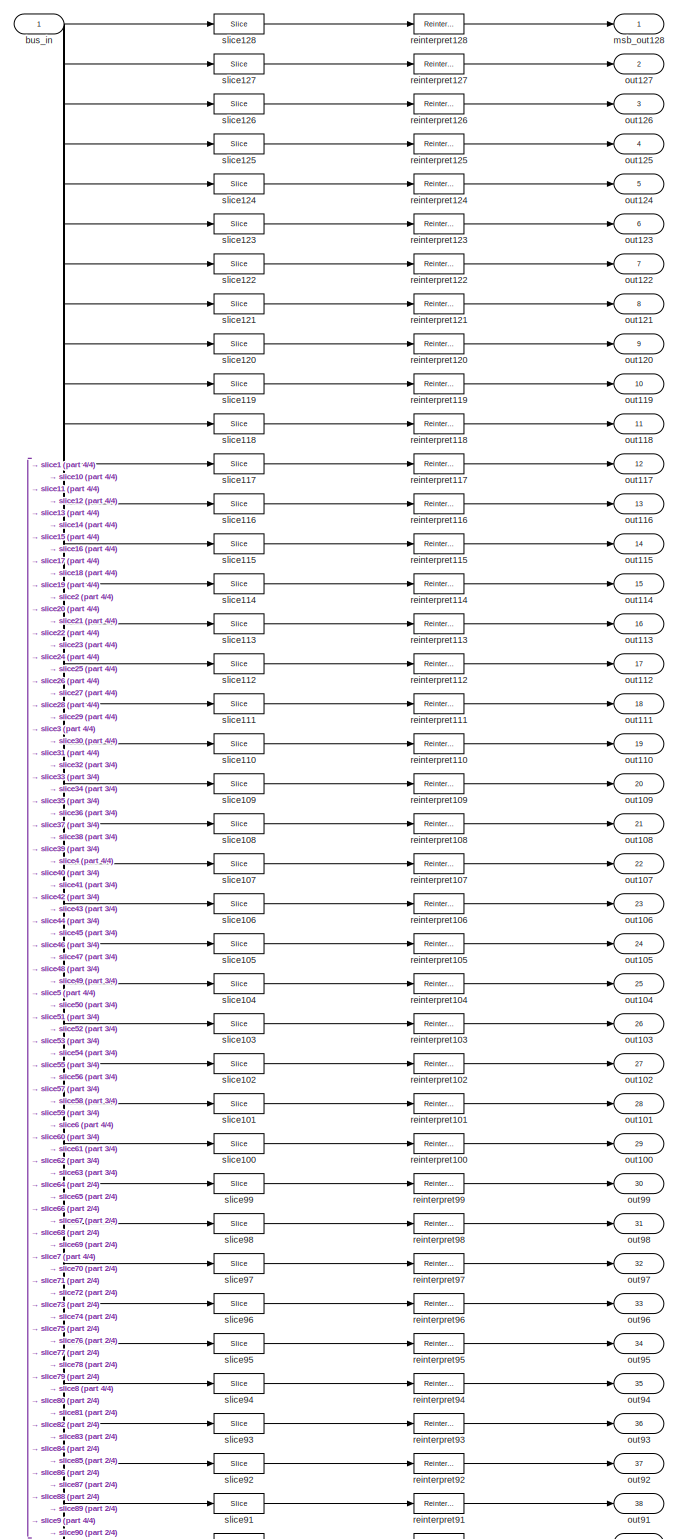
[diagram: chan_reorder/reorder/buf0/debus_addr - part 1/4, full width, top band]
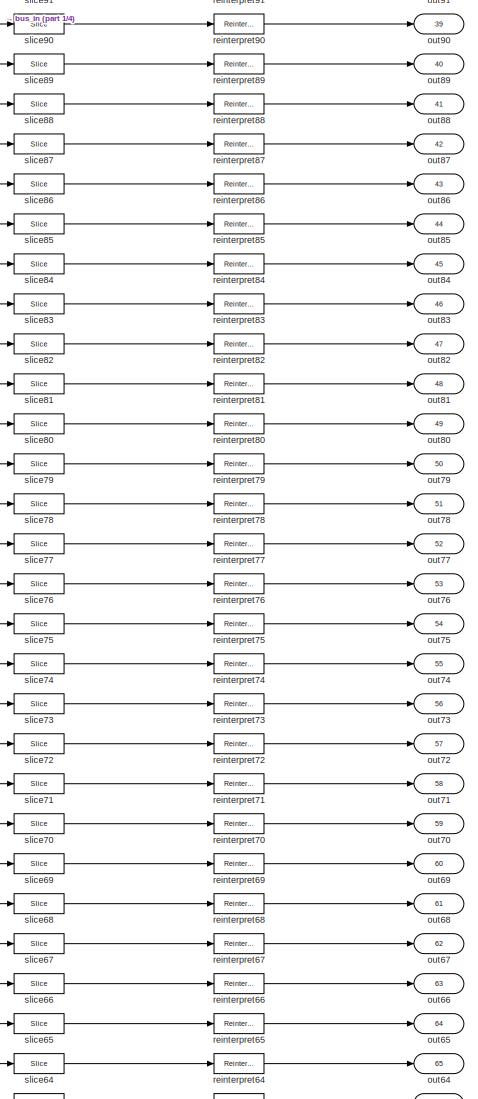
[diagram: chan_reorder/reorder/buf0/debus_addr - part 2/4, central region]
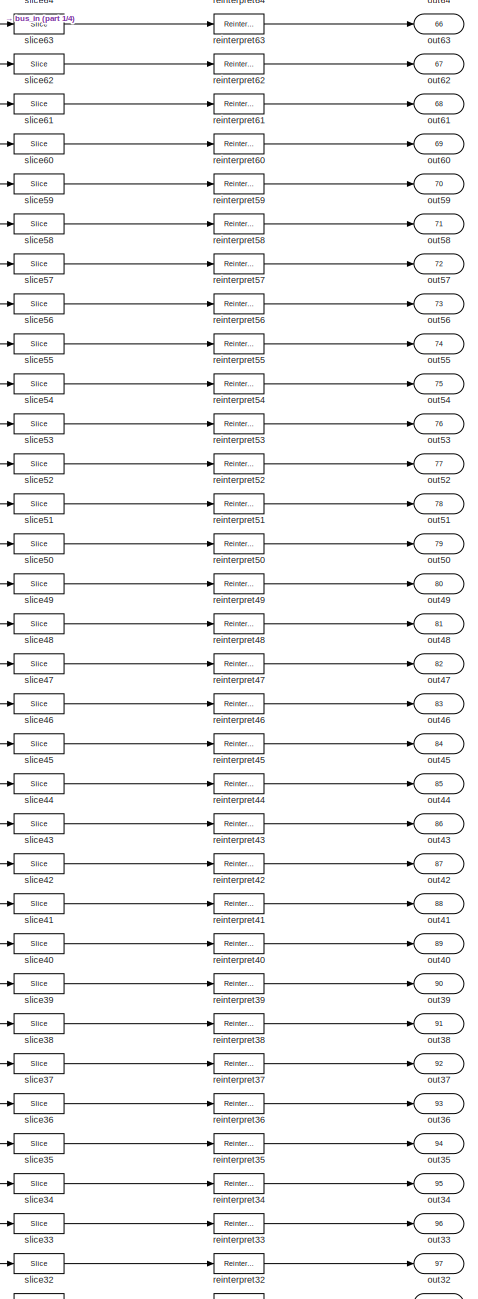
[diagram: chan_reorder/reorder/buf0/debus_addr - part 3/4, central region]
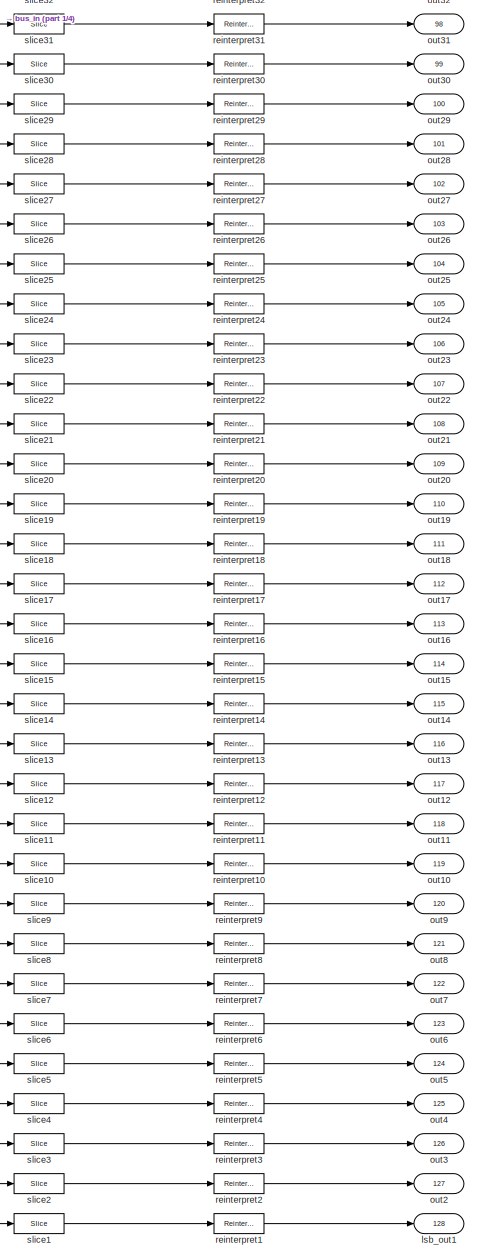
[diagram: chan_reorder/reorder/buf0/debus_addr - part 4/4, bottom center region]
BLOCK [SubSystem] chan_reorder/reorder/buf0/debus_addr
  AncestorBlock = casper_library_flow_control/bus_expand
  AttributesFormatString = 128 outputs: uf13.0,uf13.0,uf13.0,uf13.0,uf13.0,uf13.0,uf13.0,uf13.0,uf13.0,uf13.0,uf13.0,uf13.0,uf13.0,uf13.0,uf13.0,uf13.0,uf13.0,uf13.0,uf13.0,uf13.0,uf13.0,uf13.0,uf13.0,uf13.0,uf13.0,uf13.0,uf13.0,uf13.0,uf13.0,uf13.0,uf13.0,uf13.0,uf13.0,uf13.0,uf13.0,uf13.0,uf13.0,uf13.0,uf13.0,uf13.0,uf13.0,uf13.0,uf13.0,uf13.0,uf13.0,uf13.0,uf13.0,uf13.0,uf13.0,uf13.0,uf13.0,uf13.0,uf13.0,uf13.0,uf13.0,uf...<+509ch>
  Ports = [1, 128]
  RequestExecContextInheritance = off
  UserDataPersistent = on
BLOCK [Inport] chan_reorder/reorder/buf0/debus_addr/bus_in
  IconDisplay = Port number
BLOCK [Outport] chan_reorder/reorder/buf0/debus_addr/lsb_out1
  IconDisplay = Port number
  Port = 128
BLOCK [Outport] chan_reorder/reorder/buf0/debus_addr/msb_out128
  IconDisplay = Port number
BLOCK [Outport] chan_reorder/reorder/buf0/debus_addr/out10
  IconDisplay = Port number
  Port = 119
BLOCK [Outport] chan_reorder/reorder/buf0/debus_addr/out100
  IconDisplay = Port number
  Port = 29
BLOCK [Outport] chan_reorder/reorder/buf0/debus_addr/out101
  IconDisplay = Port number
  Port = 28
BLOCK [Outport] chan_reorder/reorder/buf0/debus_addr/out102
  IconDisplay = Port number
  Port = 27
BLOCK [Outport] chan_reorder/reorder/buf0/debus_addr/out103
  IconDisplay = Port number
  Port = 26
BLOCK [Outport] chan_reorder/reorder/buf0/debus_addr/out104
  IconDisplay = Port number
  Port = 25
BLOCK [Outport] chan_reorder/reorder/buf0/debus_addr/out105
  IconDisplay = Port number
  Port = 24
BLOCK [Outport] chan_reorder/reorder/buf0/debus_addr/out106
  IconDisplay = Port number
  Port = 23
BLOCK [Outport] chan_reorder/reorder/buf0/debus_addr/out107
  IconDisplay = Port number
  Port = 22
BLOCK [Outport] chan_reorder/reorder/buf0/debus_addr/out108
  IconDisplay = Port number
  Port = 21
BLOCK [Outport] chan_reorder/reorder/buf0/debus_addr/out109
  IconDisplay = Port number
  Port = 20
BLOCK [Outport] chan_reorder/reorder/buf0/debus_addr/out11
  IconDisplay = Port number
  Port = 118
BLOCK [Outport] chan_reorder/reorder/buf0/debus_addr/out110
  IconDisplay = Port number
  Port = 19
BLOCK [Outport] chan_reorder/reorder/buf0/debus_addr/out111
  IconDisplay = Port number
  Port = 18
BLOCK [Outport] chan_reorder/reorder/buf0/debus_addr/out112
  IconDisplay = Port number
  Port = 17
BLOCK [Outport] chan_reorder/reorder/buf0/debus_addr/out113
  IconDisplay = Port number
  Port = 16
BLOCK [Outport] chan_reorder/reorder/buf0/debus_addr/out114
  IconDisplay = Port number
  Port = 15
BLOCK [Outport] chan_reorder/reorder/buf0/debus_addr/out115
  IconDisplay = Port number
  Port = 14
BLOCK [Outport] chan_reorder/reorder/buf0/debus_addr/out116
  IconDisplay = Port number
  Port = 13
BLOCK [Outport] chan_reorder/reorder/buf0/debus_addr/out117
  IconDisplay = Port number
  Port = 12
BLOCK [Outport] chan_reorder/reorder/buf0/debus_addr/out118
  IconDisplay = Port number
  Port = 11
BLOCK [Outport] chan_reorder/reorder/buf0/debus_addr/out119
  IconDisplay = Port number
  Port = 10
BLOCK [Outport] chan_reorder/reorder/buf0/debus_addr/out12
  IconDisplay = Port number
  Port = 117
BLOCK [Outport] chan_reorder/reorder/buf0/debus_addr/out120
  IconDisplay = Port number
  Port = 9
BLOCK [Outport] chan_reorder/reorder/buf0/debus_addr/out121
  IconDisplay = Port number
  Port = 8
BLOCK [Outport] chan_reorder/reorder/buf0/debus_addr/out122
  IconDisplay = Port number
  Port = 7
BLOCK [Outport] chan_reorder/reorder/buf0/debus_addr/out123
  IconDisplay = Port number
  Port = 6
BLOCK [Outport] chan_reorder/reorder/buf0/debus_addr/out124
  IconDisplay = Port number
  Port = 5
BLOCK [Outport] chan_reorder/reorder/buf0/debus_addr/out125
  IconDisplay = Port number
  Port = 4
BLOCK [Outport] chan_reorder/reorder/buf0/debus_addr/out126
  IconDisplay = Port number
  Port = 3
BLOCK [Outport] chan_reorder/reorder/buf0/debus_addr/out127
  IconDisplay = Port number
  Port = 2
BLOCK [Outport] chan_reorder/reorder/buf0/debus_addr/out13
  IconDisplay = Port number
  Port = 116
BLOCK [Outport] chan_reorder/reorder/buf0/debus_addr/out14
  IconDisplay = Port number
  Port = 115
BLOCK [Outport] chan_reorder/reorder/buf0/debus_addr/out15
  IconDisplay = Port number
  Port = 114
BLOCK [Outport] chan_reorder/reorder/buf0/debus_addr/out16
  IconDisplay = Port number
  Port = 113
BLOCK [Outport] chan_reorder/reorder/buf0/debus_addr/out17
  IconDisplay = Port number
  Port = 112
BLOCK [Outport] chan_reorder/reorder/buf0/debus_addr/out18
  IconDisplay = Port number
  Port = 111
BLOCK [Outport] chan_reorder/reorder/buf0/debus_addr/out19
  IconDisplay = Port number
  Port = 110
BLOCK [Outport] chan_reorder/reorder/buf0/debus_addr/out2
  IconDisplay = Port number
  Port = 127
BLOCK [Outport] chan_reorder/reorder/buf0/debus_addr/out20
  IconDisplay = Port number
  Port = 109
BLOCK [Outport] chan_reorder/reorder/buf0/debus_addr/out21
  IconDisplay = Port number
  Port = 108
BLOCK [Outport] chan_reorder/reorder/buf0/debus_addr/out22
  IconDisplay = Port number
  Port = 107
BLOCK [Outport] chan_reorder/reorder/buf0/debus_addr/out23
  IconDisplay = Port number
  Port = 106
BLOCK [Outport] chan_reorder/reorder/buf0/debus_addr/out24
  IconDisplay = Port number
  Port = 105
BLOCK [Outport] chan_reorder/reorder/buf0/debus_addr/out25
  IconDisplay = Port number
  Port = 104
BLOCK [Outport] chan_reorder/reorder/buf0/debus_addr/out26
  IconDisplay = Port number
  Port = 103
BLOCK [Outport] chan_reorder/reorder/buf0/debus_addr/out27
  IconDisplay = Port number
  Port = 102
BLOCK [Outport] chan_reorder/reorder/buf0/debus_addr/out28
  IconDisplay = Port number
  Port = 101
BLOCK [Outport] chan_reorder/reorder/buf0/debus_addr/out29
  IconDisplay = Port number
  Port = 100
BLOCK [Outport] chan_reorder/reorder/buf0/debus_addr/out3
  IconDisplay = Port number
  Port = 126
BLOCK [Outport] chan_reorder/reorder/buf0/debus_addr/out30
  IconDisplay = Port number
  Port = 99
BLOCK [Outport] chan_reorder/reorder/buf0/debus_addr/out31
  IconDisplay = Port number
  Port = 98
BLOCK [Outport] chan_reorder/reorder/buf0/debus_addr/out32
  IconDisplay = Port number
  Port = 97
BLOCK [Outport] chan_reorder/reorder/buf0/debus_addr/out33
  IconDisplay = Port number
  Port = 96
BLOCK [Outport] chan_reorder/reorder/buf0/debus_addr/out34
  IconDisplay = Port number
  Port = 95
BLOCK [Outport] chan_reorder/reorder/buf0/debus_addr/out35
  IconDisplay = Port number
  Port = 94
BLOCK [Outport] chan_reorder/reorder/buf0/debus_addr/out36
  IconDisplay = Port number
  Port = 93
BLOCK [Outport] chan_reorder/reorder/buf0/debus_addr/out37
  IconDisplay = Port number
  Port = 92
BLOCK [Outport] chan_reorder/reorder/buf0/debus_addr/out38
  IconDisplay = Port number
  Port = 91
BLOCK [Outport] chan_reorder/reorder/buf0/debus_addr/out39
  IconDisplay = Port number
  Port = 90
BLOCK [Outport] chan_reorder/reorder/buf0/debus_addr/out4
  IconDisplay = Port number
  Port = 125
BLOCK [Outport] chan_reorder/reorder/buf0/debus_addr/out40
  IconDisplay = Port number
  Port = 89
BLOCK [Outport] chan_reorder/reorder/buf0/debus_addr/out41
  IconDisplay = Port number
  Port = 88
BLOCK [Outport] chan_reorder/reorder/buf0/debus_addr/out42
  IconDisplay = Port number
  Port = 87
BLOCK [Outport] chan_reorder/reorder/buf0/debus_addr/out43
  IconDisplay = Port number
  Port = 86
BLOCK [Outport] chan_reorder/reorder/buf0/debus_addr/out44
  IconDisplay = Port number
  Port = 85
BLOCK [Outport] chan_reorder/reorder/buf0/debus_addr/out45
  IconDisplay = Port number
  Port = 84
BLOCK [Outport] chan_reorder/reorder/buf0/debus_addr/out46
  IconDisplay = Port number
  Port = 83
BLOCK [Outport] chan_reorder/reorder/buf0/debus_addr/out47
  IconDisplay = Port number
  Port = 82
BLOCK [Outport] chan_reorder/reorder/buf0/debus_addr/out48
  IconDisplay = Port number
  Port = 81
BLOCK [Outport] chan_reorder/reorder/buf0/debus_addr/out49
  IconDisplay = Port number
  Port = 80
BLOCK [Outport] chan_reorder/reorder/buf0/debus_addr/out5
  IconDisplay = Port number
  Port = 124
BLOCK [Outport] chan_reorder/reorder/buf0/debus_addr/out50
  IconDisplay = Port number
  Port = 79
BLOCK [Outport] chan_reorder/reorder/buf0/debus_addr/out51
  IconDisplay = Port number
  Port = 78
BLOCK [Outport] chan_reorder/reorder/buf0/debus_addr/out52
  IconDisplay = Port number
  Port = 77
BLOCK [Outport] chan_reorder/reorder/buf0/debus_addr/out53
  IconDisplay = Port number
  Port = 76
BLOCK [Outport] chan_reorder/reorder/buf0/debus_addr/out54
  IconDisplay = Port number
  Port = 75
BLOCK [Outport] chan_reorder/reorder/buf0/debus_addr/out55
  IconDisplay = Port number
  Port = 74
BLOCK [Outport] chan_reorder/reorder/buf0/debus_addr/out56
  IconDisplay = Port number
  Port = 73
BLOCK [Outport] chan_reorder/reorder/buf0/debus_addr/out57
  IconDisplay = Port number
  Port = 72
BLOCK [Outport] chan_reorder/reorder/buf0/debus_addr/out58
  IconDisplay = Port number
  Port = 71
BLOCK [Outport] chan_reorder/reorder/buf0/debus_addr/out59
  IconDisplay = Port number
  Port = 70
BLOCK [Outport] chan_reorder/reorder/buf0/debus_addr/out6
  IconDisplay = Port number
  Port = 123
BLOCK [Outport] chan_reorder/reorder/buf0/debus_addr/out60
  IconDisplay = Port number
  Port = 69
BLOCK [Outport] chan_reorder/reorder/buf0/debus_addr/out61
  IconDisplay = Port number
  Port = 68
BLOCK [Outport] chan_reorder/reorder/buf0/debus_addr/out62
  IconDisplay = Port number
  Port = 67
BLOCK [Outport] chan_reorder/reorder/buf0/debus_addr/out63
  IconDisplay = Port number
  Port = 66
BLOCK [Outport] chan_reorder/reorder/buf0/debus_addr/out64
  IconDisplay = Port number
  Port = 65
BLOCK [Outport] chan_reorder/reorder/buf0/debus_addr/out65
  IconDisplay = Port number
  Port = 64
BLOCK [Outport] chan_reorder/reorder/buf0/debus_addr/out66
  IconDisplay = Port number
  Port = 63
BLOCK [Outport] chan_reorder/reorder/buf0/debus_addr/out67
  IconDisplay = Port number
  Port = 62
BLOCK [Outport] chan_reorder/reorder/buf0/debus_addr/out68
  IconDisplay = Port number
  Port = 61
BLOCK [Outport] chan_reorder/reorder/buf0/debus_addr/out69
  IconDisplay = Port number
  Port = 60
BLOCK [Outport] chan_reorder/reorder/buf0/debus_addr/out7
  IconDisplay = Port number
  Port = 122
BLOCK [Outport] chan_reorder/reorder/buf0/debus_addr/out70
  IconDisplay = Port number
  Port = 59
BLOCK [Outport] chan_reorder/reorder/buf0/debus_addr/out71
  IconDisplay = Port number
  Port = 58
BLOCK [Outport] chan_reorder/reorder/buf0/debus_addr/out72
  IconDisplay = Port number
  Port = 57
BLOCK [Outport] chan_reorder/reorder/buf0/debus_addr/out73
  IconDisplay = Port number
  Port = 56
BLOCK [Outport] chan_reorder/reorder/buf0/debus_addr/out74
  IconDisplay = Port number
  Port = 55
BLOCK [Outport] chan_reorder/reorder/buf0/debus_addr/out75
  IconDisplay = Port number
  Port = 54
BLOCK [Outport] chan_reorder/reorder/buf0/debus_addr/out76
  IconDisplay = Port number
  Port = 53
BLOCK [Outport] chan_reorder/reorder/buf0/debus_addr/out77
  IconDisplay = Port number
  Port = 52
BLOCK [Outport] chan_reorder/reorder/buf0/debus_addr/out78
  IconDisplay = Port number
  Port = 51
BLOCK [Outport] chan_reorder/reorder/buf0/debus_addr/out79
  IconDisplay = Port number
  Port = 50
BLOCK [Outport] chan_reorder/reorder/buf0/debus_addr/out8
  IconDisplay = Port number
  Port = 121
BLOCK [Outport] chan_reorder/reorder/buf0/debus_addr/out80
  IconDisplay = Port number
  Port = 49
BLOCK [Outport] chan_reorder/reorder/buf0/debus_addr/out81
  IconDisplay = Port number
  Port = 48
BLOCK [Outport] chan_reorder/reorder/buf0/debus_addr/out82
  IconDisplay = Port number
  Port = 47
BLOCK [Outport] chan_reorder/reorder/buf0/debus_addr/out83
  IconDisplay = Port number
  Port = 46
BLOCK [Outport] chan_reorder/reorder/buf0/debus_addr/out84
  IconDisplay = Port number
  Port = 45
BLOCK [Outport] chan_reorder/reorder/buf0/debus_addr/out85
  IconDisplay = Port number
  Port = 44
BLOCK [Outport] chan_reorder/reorder/buf0/debus_addr/out86
  IconDisplay = Port number
  Port = 43
BLOCK [Outport] chan_reorder/reorder/buf0/debus_addr/out87
  IconDisplay = Port number
  Port = 42
BLOCK [Outport] chan_reorder/reorder/buf0/debus_addr/out88
  IconDisplay = Port number
  Port = 41
BLOCK [Outport] chan_reorder/reorder/buf0/debus_addr/out89
  IconDisplay = Port number
  Port = 40
BLOCK [Outport] chan_reorder/reorder/buf0/debus_addr/out9
  IconDisplay = Port number
  Port = 120
BLOCK [Outport] chan_reorder/reorder/buf0/debus_addr/out90
  IconDisplay = Port number
  Port = 39
BLOCK [Outport] chan_reorder/reorder/buf0/debus_addr/out91
  IconDisplay = Port number
  Port = 38
BLOCK [Outport] chan_reorder/reorder/buf0/debus_addr/out92
  IconDisplay = Port number
  Port = 37
BLOCK [Outport] chan_reorder/reorder/buf0/debus_addr/out93
  IconDisplay = Port number
  Port = 36
BLOCK [Outport] chan_reorder/reorder/buf0/debus_addr/out94
  IconDisplay = Port number
  Port = 35
BLOCK [Outport] chan_reorder/reorder/buf0/debus_addr/out95
  IconDisplay = Port number
  Port = 34
BLOCK [Outport] chan_reorder/reorder/buf0/debus_addr/out96
  IconDisplay = Port number
  Port = 33
BLOCK [Outport] chan_reorder/reorder/buf0/debus_addr/out97
  IconDisplay = Port number
  Port = 32
BLOCK [Outport] chan_reorder/reorder/buf0/debus_addr/out98
  IconDisplay = Port number
  Port = 31
BLOCK [Outport] chan_reorder/reorder/buf0/debus_addr/out99
  IconDisplay = Port number
  Port = 30
BLOCK [Reference] chan_reorder/reorder/buf0/debus_addr/reinterpret1  REF=xbsIndex_r4/Reinterpret
  Ports = [1, 1]
  SourceBlock = xbsIndex_r4/Reinterpret
  SourceType = Xilinx Type Reinterpreter Block
BLOCK [Reference] chan_reorder/reorder/buf0/debus_addr/reinterpret10  REF=xbsIndex_r4/Reinterpret
  Ports = [1, 1]
  SourceBlock = xbsIndex_r4/Reinterpret
  SourceType = Xilinx Type Reinterpreter Block
BLOCK [Reference] chan_reorder/reorder/buf0/debus_addr/reinterpret100  REF=xbsIndex_r4/Reinterpret
  Ports = [1, 1]
  SourceBlock = xbsIndex_r4/Reinterpret
  SourceType = Xilinx Type Reinterpreter Block
BLOCK [Reference] chan_reorder/reorder/buf0/debus_addr/reinterpret101  REF=xbsIndex_r4/Reinterpret
  Ports = [1, 1]
  SourceBlock = xbsIndex_r4/Reinterpret
  SourceType = Xilinx Type Reinterpreter Block
BLOCK [Reference] chan_reorder/reorder/buf0/debus_addr/reinterpret102  REF=xbsIndex_r4/Reinterpret
  Ports = [1, 1]
  SourceBlock = xbsIndex_r4/Reinterpret
  SourceType = Xilinx Type Reinterpreter Block
BLOCK [Reference] chan_reorder/reorder/buf0/debus_addr/reinterpret103  REF=xbsIndex_r4/Reinterpret
  Ports = [1, 1]
  SourceBlock = xbsIndex_r4/Reinterpret
  SourceType = Xilinx Type Reinterpreter Block
BLOCK [Reference] chan_reorder/reorder/buf0/debus_addr/reinterpret104  REF=xbsIndex_r4/Reinterpret
  Ports = [1, 1]
  SourceBlock = xbsIndex_r4/Reinterpret
  SourceType = Xilinx Type Reinterpreter Block
BLOCK [Reference] chan_reorder/reorder/buf0/debus_addr/reinterpret105  REF=xbsIndex_r4/Reinterpret
  Ports = [1, 1]
  SourceBlock = xbsIndex_r4/Reinterpret
  SourceType = Xilinx Type Reinterpreter Block
BLOCK [Reference] chan_reorder/reorder/buf0/debus_addr/reinterpret106  REF=xbsIndex_r4/Reinterpret
  Ports = [1, 1]
  SourceBlock = xbsIndex_r4/Reinterpret
  SourceType = Xilinx Type Reinterpreter Block
BLOCK [Reference] chan_reorder/reorder/buf0/debus_addr/reinterpret107  REF=xbsIndex_r4/Reinterpret
  Ports = [1, 1]
  SourceBlock = xbsIndex_r4/Reinterpret
  SourceType = Xilinx Type Reinterpreter Block
BLOCK [Reference] chan_reorder/reorder/buf0/debus_addr/reinterpret108  REF=xbsIndex_r4/Reinterpret
  Ports = [1, 1]
  SourceBlock = xbsIndex_r4/Reinterpret
  SourceType = Xilinx Type Reinterpreter Block
BLOCK [Reference] chan_reorder/reorder/buf0/debus_addr/reinterpret109  REF=xbsIndex_r4/Reinterpret
  Ports = [1, 1]
  SourceBlock = xbsIndex_r4/Reinterpret
  SourceType = Xilinx Type Reinterpreter Block
BLOCK [Reference] chan_reorder/reorder/buf0/debus_addr/reinterpret11  REF=xbsIndex_r4/Reinterpret
  Ports = [1, 1]
  SourceBlock = xbsIndex_r4/Reinterpret
  SourceType = Xilinx Type Reinterpreter Block
BLOCK [Reference] chan_reorder/reorder/buf0/debus_addr/reinterpret110  REF=xbsIndex_r4/Reinterpret
  Ports = [1, 1]
  SourceBlock = xbsIndex_r4/Reinterpret
  SourceType = Xilinx Type Reinterpreter Block
BLOCK [Reference] chan_reorder/reorder/buf0/debus_addr/reinterpret111  REF=xbsIndex_r4/Reinterpret
  Ports = [1, 1]
  SourceBlock = xbsIndex_r4/Reinterpret
  SourceType = Xilinx Type Reinterpreter Block
BLOCK [Reference] chan_reorder/reorder/buf0/debus_addr/reinterpret112  REF=xbsIndex_r4/Reinterpret
  Ports = [1, 1]
  SourceBlock = xbsIndex_r4/Reinterpret
  SourceType = Xilinx Type Reinterpreter Block
BLOCK [Reference] chan_reorder/reorder/buf0/debus_addr/reinterpret113  REF=xbsIndex_r4/Reinterpret
  Ports = [1, 1]
  SourceBlock = xbsIndex_r4/Reinterpret
  SourceType = Xilinx Type Reinterpreter Block
BLOCK [Reference] chan_reorder/reorder/buf0/debus_addr/reinterpret114  REF=xbsIndex_r4/Reinterpret
  Ports = [1, 1]
  SourceBlock = xbsIndex_r4/Reinterpret
  SourceType = Xilinx Type Reinterpreter Block
BLOCK [Reference] chan_reorder/reorder/buf0/debus_addr/reinterpret115  REF=xbsIndex_r4/Reinterpret
  Ports = [1, 1]
  SourceBlock = xbsIndex_r4/Reinterpret
  SourceType = Xilinx Type Reinterpreter Block
BLOCK [Reference] chan_reorder/reorder/buf0/debus_addr/reinterpret116  REF=xbsIndex_r4/Reinterpret
  Ports = [1, 1]
  SourceBlock = xbsIndex_r4/Reinterpret
  SourceType = Xilinx Type Reinterpreter Block
BLOCK [Reference] chan_reorder/reorder/buf0/debus_addr/reinterpret117  REF=xbsIndex_r4/Reinterpret
  Ports = [1, 1]
  SourceBlock = xbsIndex_r4/Reinterpret
  SourceType = Xilinx Type Reinterpreter Block
BLOCK [Reference] chan_reorder/reorder/buf0/debus_addr/reinterpret118  REF=xbsIndex_r4/Reinterpret
  Ports = [1, 1]
  SourceBlock = xbsIndex_r4/Reinterpret
  SourceType = Xilinx Type Reinterpreter Block
BLOCK [Reference] chan_reorder/reorder/buf0/debus_addr/reinterpret119  REF=xbsIndex_r4/Reinterpret
  Ports = [1, 1]
  SourceBlock = xbsIndex_r4/Reinterpret
  SourceType = Xilinx Type Reinterpreter Block
BLOCK [Reference] chan_reorder/reorder/buf0/debus_addr/reinterpret12  REF=xbsIndex_r4/Reinterpret
  Ports = [1, 1]
  SourceBlock = xbsIndex_r4/Reinterpret
  SourceType = Xilinx Type Reinterpreter Block
BLOCK [Reference] chan_reorder/reorder/buf0/debus_addr/reinterpret120  REF=xbsIndex_r4/Reinterpret
  Ports = [1, 1]
  SourceBlock = xbsIndex_r4/Reinterpret
  SourceType = Xilinx Type Reinterpreter Block
BLOCK [Reference] chan_reorder/reorder/buf0/debus_addr/reinterpret121  REF=xbsIndex_r4/Reinterpret
  Ports = [1, 1]
  SourceBlock = xbsIndex_r4/Reinterpret
  SourceType = Xilinx Type Reinterpreter Block
BLOCK [Reference] chan_reorder/reorder/buf0/debus_addr/reinterpret122  REF=xbsIndex_r4/Reinterpret
  Ports = [1, 1]
  SourceBlock = xbsIndex_r4/Reinterpret
  SourceType = Xilinx Type Reinterpreter Block
BLOCK [Reference] chan_reorder/reorder/buf0/debus_addr/reinterpret123  REF=xbsIndex_r4/Reinterpret
  Ports = [1, 1]
  SourceBlock = xbsIndex_r4/Reinterpret
  SourceType = Xilinx Type Reinterpreter Block
BLOCK [Reference] chan_reorder/reorder/buf0/debus_addr/reinterpret124  REF=xbsIndex_r4/Reinterpret
  Ports = [1, 1]
  SourceBlock = xbsIndex_r4/Reinterpret
  SourceType = Xilinx Type Reinterpreter Block
BLOCK [Reference] chan_reorder/reorder/buf0/debus_addr/reinterpret125  REF=xbsIndex_r4/Reinterpret
  Ports = [1, 1]
  SourceBlock = xbsIndex_r4/Reinterpret
  SourceType = Xilinx Type Reinterpreter Block
BLOCK [Reference] chan_reorder/reorder/buf0/debus_addr/reinterpret126  REF=xbsIndex_r4/Reinterpret
  Ports = [1, 1]
  SourceBlock = xbsIndex_r4/Reinterpret
  SourceType = Xilinx Type Reinterpreter Block
BLOCK [Reference] chan_reorder/reorder/buf0/debus_addr/reinterpret127  REF=xbsIndex_r4/Reinterpret
  Ports = [1, 1]
  SourceBlock = xbsIndex_r4/Reinterpret
  SourceType = Xilinx Type Reinterpreter Block
BLOCK [Reference] chan_reorder/reorder/buf0/debus_addr/reinterpret128  REF=xbsIndex_r4/Reinterpret
  Ports = [1, 1]
  SourceBlock = xbsIndex_r4/Reinterpret
  SourceType = Xilinx Type Reinterpreter Block
BLOCK [Reference] chan_reorder/reorder/buf0/debus_addr/reinterpret13  REF=xbsIndex_r4/Reinterpret
  Ports = [1, 1]
  SourceBlock = xbsIndex_r4/Reinterpret
  SourceType = Xilinx Type Reinterpreter Block
BLOCK [Reference] chan_reorder/reorder/buf0/debus_addr/reinterpret14  REF=xbsIndex_r4/Reinterpret
  Ports = [1, 1]
  SourceBlock = xbsIndex_r4/Reinterpret
  SourceType = Xilinx Type Reinterpreter Block
BLOCK [Reference] chan_reorder/reorder/buf0/debus_addr/reinterpret15  REF=xbsIndex_r4/Reinterpret
  Ports = [1, 1]
  SourceBlock = xbsIndex_r4/Reinterpret
  SourceType = Xilinx Type Reinterpreter Block
BLOCK [Reference] chan_reorder/reorder/buf0/debus_addr/reinterpret16  REF=xbsIndex_r4/Reinterpret
  Ports = [1, 1]
  SourceBlock = xbsIndex_r4/Reinterpret
  SourceType = Xilinx Type Reinterpreter Block
BLOCK [Reference] chan_reorder/reorder/buf0/debus_addr/reinterpret17  REF=xbsIndex_r4/Reinterpret
  Ports = [1, 1]
  SourceBlock = xbsIndex_r4/Reinterpret
  SourceType = Xilinx Type Reinterpreter Block
BLOCK [Reference] chan_reorder/reorder/buf0/debus_addr/reinterpret18  REF=xbsIndex_r4/Reinterpret
  Ports = [1, 1]
  SourceBlock = xbsIndex_r4/Reinterpret
  SourceType = Xilinx Type Reinterpreter Block
BLOCK [Reference] chan_reorder/reorder/buf0/debus_addr/reinterpret19  REF=xbsIndex_r4/Reinterpret
  Ports = [1, 1]
  SourceBlock = xbsIndex_r4/Reinterpret
  SourceType = Xilinx Type Reinterpreter Block
BLOCK [Reference] chan_reorder/reorder/buf0/debus_addr/reinterpret2  REF=xbsIndex_r4/Reinterpret
  Ports = [1, 1]
  SourceBlock = xbsIndex_r4/Reinterpret
  SourceType = Xilinx Type Reinterpreter Block
BLOCK [Reference] chan_reorder/reorder/buf0/debus_addr/reinterpret20  REF=xbsIndex_r4/Reinterpret
  Ports = [1, 1]
  SourceBlock = xbsIndex_r4/Reinterpret
  SourceType = Xilinx Type Reinterpreter Block
BLOCK [Reference] chan_reorder/reorder/buf0/debus_addr/reinterpret21  REF=xbsIndex_r4/Reinterpret
  Ports = [1, 1]
  SourceBlock = xbsIndex_r4/Reinterpret
  SourceType = Xilinx Type Reinterpreter Block
BLOCK [Reference] chan_reorder/reorder/buf0/debus_addr/reinterpret22  REF=xbsIndex_r4/Reinterpret
  Ports = [1, 1]
  SourceBlock = xbsIndex_r4/Reinterpret
  SourceType = Xilinx Type Reinterpreter Block
BLOCK [Reference] chan_reorder/reorder/buf0/debus_addr/reinterpret23  REF=xbsIndex_r4/Reinterpret
  Ports = [1, 1]
  SourceBlock = xbsIndex_r4/Reinterpret
  SourceType = Xilinx Type Reinterpreter Block
BLOCK [Reference] chan_reorder/reorder/buf0/debus_addr/reinterpret24  REF=xbsIndex_r4/Reinterpret
  Ports = [1, 1]
  SourceBlock = xbsIndex_r4/Reinterpret
  SourceType = Xilinx Type Reinterpreter Block
BLOCK [Reference] chan_reorder/reorder/buf0/debus_addr/reinterpret25  REF=xbsIndex_r4/Reinterpret
  Ports = [1, 1]
  SourceBlock = xbsIndex_r4/Reinterpret
  SourceType = Xilinx Type Reinterpreter Block
BLOCK [Reference] chan_reorder/reorder/buf0/debus_addr/reinterpret26  REF=xbsIndex_r4/Reinterpret
  Ports = [1, 1]
  SourceBlock = xbsIndex_r4/Reinterpret
  SourceType = Xilinx Type Reinterpreter Block
BLOCK [Reference] chan_reorder/reorder/buf0/debus_addr/reinterpret27  REF=xbsIndex_r4/Reinterpret
  Ports = [1, 1]
  SourceBlock = xbsIndex_r4/Reinterpret
  SourceType = Xilinx Type Reinterpreter Block
BLOCK [Reference] chan_reorder/reorder/buf0/debus_addr/reinterpret28  REF=xbsIndex_r4/Reinterpret
  Ports = [1, 1]
  SourceBlock = xbsIndex_r4/Reinterpret
  SourceType = Xilinx Type Reinterpreter Block
BLOCK [Reference] chan_reorder/reorder/buf0/debus_addr/reinterpret29  REF=xbsIndex_r4/Reinterpret
  Ports = [1, 1]
  SourceBlock = xbsIndex_r4/Reinterpret
  SourceType = Xilinx Type Reinterpreter Block
BLOCK [Reference] chan_reorder/reorder/buf0/debus_addr/reinterpret3  REF=xbsIndex_r4/Reinterpret
  Ports = [1, 1]
  SourceBlock = xbsIndex_r4/Reinterpret
  SourceType = Xilinx Type Reinterpreter Block
BLOCK [Reference] chan_reorder/reorder/buf0/debus_addr/reinterpret30  REF=xbsIndex_r4/Reinterpret
  Ports = [1, 1]
  SourceBlock = xbsIndex_r4/Reinterpret
  SourceType = Xilinx Type Reinterpreter Block
BLOCK [Reference] chan_reorder/reorder/buf0/debus_addr/reinterpret31  REF=xbsIndex_r4/Reinterpret
  Ports = [1, 1]
  SourceBlock = xbsIndex_r4/Reinterpret
  SourceType = Xilinx Type Reinterpreter Block
BLOCK [Reference] chan_reorder/reorder/buf0/debus_addr/reinterpret32  REF=xbsIndex_r4/Reinterpret
  Ports = [1, 1]
  SourceBlock = xbsIndex_r4/Reinterpret
  SourceType = Xilinx Type Reinterpreter Block
BLOCK [Reference] chan_reorder/reorder/buf0/debus_addr/reinterpret33  REF=xbsIndex_r4/Reinterpret
  Ports = [1, 1]
  SourceBlock = xbsIndex_r4/Reinterpret
  SourceType = Xilinx Type Reinterpreter Block
BLOCK [Reference] chan_reorder/reorder/buf0/debus_addr/reinterpret34  REF=xbsIndex_r4/Reinterpret
  Ports = [1, 1]
  SourceBlock = xbsIndex_r4/Reinterpret
  SourceType = Xilinx Type Reinterpreter Block
BLOCK [Reference] chan_reorder/reorder/buf0/debus_addr/reinterpret35  REF=xbsIndex_r4/Reinterpret
  Ports = [1, 1]
  SourceBlock = xbsIndex_r4/Reinterpret
  SourceType = Xilinx Type Reinterpreter Block
BLOCK [Reference] chan_reorder/reorder/buf0/debus_addr/reinterpret36  REF=xbsIndex_r4/Reinterpret
  Ports = [1, 1]
  SourceBlock = xbsIndex_r4/Reinterpret
  SourceType = Xilinx Type Reinterpreter Block
BLOCK [Reference] chan_reorder/reorder/buf0/debus_addr/reinterpret37  REF=xbsIndex_r4/Reinterpret
  Ports = [1, 1]
  SourceBlock = xbsIndex_r4/Reinterpret
  SourceType = Xilinx Type Reinterpreter Block
BLOCK [Reference] chan_reorder/reorder/buf0/debus_addr/reinterpret38  REF=xbsIndex_r4/Reinterpret
  Ports = [1, 1]
  SourceBlock = xbsIndex_r4/Reinterpret
  SourceType = Xilinx Type Reinterpreter Block
BLOCK [Reference] chan_reorder/reorder/buf0/debus_addr/reinterpret39  REF=xbsIndex_r4/Reinterpret
  Ports = [1, 1]
  SourceBlock = xbsIndex_r4/Reinterpret
  SourceType = Xilinx Type Reinterpreter Block
BLOCK [Reference] chan_reorder/reorder/buf0/debus_addr/reinterpret4  REF=xbsIndex_r4/Reinterpret
  Ports = [1, 1]
  SourceBlock = xbsIndex_r4/Reinterpret
  SourceType = Xilinx Type Reinterpreter Block
BLOCK [Reference] chan_reorder/reorder/buf0/debus_addr/reinterpret40  REF=xbsIndex_r4/Reinterpret
  Ports = [1, 1]
  SourceBlock = xbsIndex_r4/Reinterpret
  SourceType = Xilinx Type Reinterpreter Block
BLOCK [Reference] chan_reorder/reorder/buf0/debus_addr/reinterpret41  REF=xbsIndex_r4/Reinterpret
  Ports = [1, 1]
  SourceBlock = xbsIndex_r4/Reinterpret
  SourceType = Xilinx Type Reinterpreter Block
BLOCK [Reference] chan_reorder/reorder/buf0/debus_addr/reinterpret42  REF=xbsIndex_r4/Reinterpret
  Ports = [1, 1]
  SourceBlock = xbsIndex_r4/Reinterpret
  SourceType = Xilinx Type Reinterpreter Block
BLOCK [Reference] chan_reorder/reorder/buf0/debus_addr/reinterpret43  REF=xbsIndex_r4/Reinterpret
  Ports = [1, 1]
  SourceBlock = xbsIndex_r4/Reinterpret
  SourceType = Xilinx Type Reinterpreter Block
BLOCK [Reference] chan_reorder/reorder/buf0/debus_addr/reinterpret44  REF=xbsIndex_r4/Reinterpret
  Ports = [1, 1]
  SourceBlock = xbsIndex_r4/Reinterpret
  SourceType = Xilinx Type Reinterpreter Block
BLOCK [Reference] chan_reorder/reorder/buf0/debus_addr/reinterpret45  REF=xbsIndex_r4/Reinterpret
  Ports = [1, 1]
  SourceBlock = xbsIndex_r4/Reinterpret
  SourceType = Xilinx Type Reinterpreter Block
BLOCK [Reference] chan_reorder/reorder/buf0/debus_addr/reinterpret46  REF=xbsIndex_r4/Reinterpret
  Ports = [1, 1]
  SourceBlock = xbsIndex_r4/Reinterpret
  SourceType = Xilinx Type Reinterpreter Block
BLOCK [Reference] chan_reorder/reorder/buf0/debus_addr/reinterpret47  REF=xbsIndex_r4/Reinterpret
  Ports = [1, 1]
  SourceBlock = xbsIndex_r4/Reinterpret
  SourceType = Xilinx Type Reinterpreter Block
BLOCK [Reference] chan_reorder/reorder/buf0/debus_addr/reinterpret48  REF=xbsIndex_r4/Reinterpret
  Ports = [1, 1]
  SourceBlock = xbsIndex_r4/Reinterpret
  SourceType = Xilinx Type Reinterpreter Block
BLOCK [Reference] chan_reorder/reorder/buf0/debus_addr/reinterpret49  REF=xbsIndex_r4/Reinterpret
  Ports = [1, 1]
  SourceBlock = xbsIndex_r4/Reinterpret
  SourceType = Xilinx Type Reinterpreter Block
BLOCK [Reference] chan_reorder/reorder/buf0/debus_addr/reinterpret5  REF=xbsIndex_r4/Reinterpret
  Ports = [1, 1]
  SourceBlock = xbsIndex_r4/Reinterpret
  SourceType = Xilinx Type Reinterpreter Block
BLOCK [Reference] chan_reorder/reorder/buf0/debus_addr/reinterpret50  REF=xbsIndex_r4/Reinterpret
  Ports = [1, 1]
  SourceBlock = xbsIndex_r4/Reinterpret
  SourceType = Xilinx Type Reinterpreter Block
BLOCK [Reference] chan_reorder/reorder/buf0/debus_addr/reinterpret51  REF=xbsIndex_r4/Reinterpret
  Ports = [1, 1]
  SourceBlock = xbsIndex_r4/Reinterpret
  SourceType = Xilinx Type Reinterpreter Block
BLOCK [Reference] chan_reorder/reorder/buf0/debus_addr/reinterpret52  REF=xbsIndex_r4/Reinterpret
  Ports = [1, 1]
  SourceBlock = xbsIndex_r4/Reinterpret
  SourceType = Xilinx Type Reinterpreter Block
BLOCK [Reference] chan_reorder/reorder/buf0/debus_addr/reinterpret53  REF=xbsIndex_r4/Reinterpret
  Ports = [1, 1]
  SourceBlock = xbsIndex_r4/Reinterpret
  SourceType = Xilinx Type Reinterpreter Block
BLOCK [Reference] chan_reorder/reorder/buf0/debus_addr/reinterpret54  REF=xbsIndex_r4/Reinterpret
  Ports = [1, 1]
  SourceBlock = xbsIndex_r4/Reinterpret
  SourceType = Xilinx Type Reinterpreter Block
BLOCK [Reference] chan_reorder/reorder/buf0/debus_addr/reinterpret55  REF=xbsIndex_r4/Reinterpret
  Ports = [1, 1]
  SourceBlock = xbsIndex_r4/Reinterpret
  SourceType = Xilinx Type Reinterpreter Block
BLOCK [Reference] chan_reorder/reorder/buf0/debus_addr/reinterpret56  REF=xbsIndex_r4/Reinterpret
  Ports = [1, 1]
  SourceBlock = xbsIndex_r4/Reinterpret
  SourceType = Xilinx Type Reinterpreter Block
BLOCK [Reference] chan_reorder/reorder/buf0/debus_addr/reinterpret57  REF=xbsIndex_r4/Reinterpret
  Ports = [1, 1]
  SourceBlock = xbsIndex_r4/Reinterpret
  SourceType = Xilinx Type Reinterpreter Block
BLOCK [Reference] chan_reorder/reorder/buf0/debus_addr/reinterpret58  REF=xbsIndex_r4/Reinterpret
  Ports = [1, 1]
  SourceBlock = xbsIndex_r4/Reinterpret
  SourceType = Xilinx Type Reinterpreter Block
BLOCK [Reference] chan_reorder/reorder/buf0/debus_addr/reinterpret59  REF=xbsIndex_r4/Reinterpret
  Ports = [1, 1]
  SourceBlock = xbsIndex_r4/Reinterpret
  SourceType = Xilinx Type Reinterpreter Block
BLOCK [Reference] chan_reorder/reorder/buf0/debus_addr/reinterpret6  REF=xbsIndex_r4/Reinterpret
  Ports = [1, 1]
  SourceBlock = xbsIndex_r4/Reinterpret
  SourceType = Xilinx Type Reinterpreter Block
BLOCK [Reference] chan_reorder/reorder/buf0/debus_addr/reinterpret60  REF=xbsIndex_r4/Reinterpret
  Ports = [1, 1]
  SourceBlock = xbsIndex_r4/Reinterpret
  SourceType = Xilinx Type Reinterpreter Block
BLOCK [Reference] chan_reorder/reorder/buf0/debus_addr/reinterpret61  REF=xbsIndex_r4/Reinterpret
  Ports = [1, 1]
  SourceBlock = xbsIndex_r4/Reinterpret
  SourceType = Xilinx Type Reinterpreter Block
BLOCK [Reference] chan_reorder/reorder/buf0/debus_addr/reinterpret62  REF=xbsIndex_r4/Reinterpret
  Ports = [1, 1]
  SourceBlock = xbsIndex_r4/Reinterpret
  SourceType = Xilinx Type Reinterpreter Block
BLOCK [Reference] chan_reorder/reorder/buf0/debus_addr/reinterpret63  REF=xbsIndex_r4/Reinterpret
  Ports = [1, 1]
  SourceBlock = xbsIndex_r4/Reinterpret
  SourceType = Xilinx Type Reinterpreter Block
BLOCK [Reference] chan_reorder/reorder/buf0/debus_addr/reinterpret64  REF=xbsIndex_r4/Reinterpret
  Ports = [1, 1]
  SourceBlock = xbsIndex_r4/Reinterpret
  SourceType = Xilinx Type Reinterpreter Block
BLOCK [Reference] chan_reorder/reorder/buf0/debus_addr/reinterpret65  REF=xbsIndex_r4/Reinterpret
  Ports = [1, 1]
  SourceBlock = xbsIndex_r4/Reinterpret
  SourceType = Xilinx Type Reinterpreter Block
BLOCK [Reference] chan_reorder/reorder/buf0/debus_addr/reinterpret66  REF=xbsIndex_r4/Reinterpret
  Ports = [1, 1]
  SourceBlock = xbsIndex_r4/Reinterpret
  SourceType = Xilinx Type Reinterpreter Block
BLOCK [Reference] chan_reorder/reorder/buf0/debus_addr/reinterpret67  REF=xbsIndex_r4/Reinterpret
  Ports = [1, 1]
  SourceBlock = xbsIndex_r4/Reinterpret
  SourceType = Xilinx Type Reinterpreter Block
BLOCK [Reference] chan_reorder/reorder/buf0/debus_addr/reinterpret68  REF=xbsIndex_r4/Reinterpret
  Ports = [1, 1]
  SourceBlock = xbsIndex_r4/Reinterpret
  SourceType = Xilinx Type Reinterpreter Block
BLOCK [Reference] chan_reorder/reorder/buf0/debus_addr/reinterpret69  REF=xbsIndex_r4/Reinterpret
  Ports = [1, 1]
  SourceBlock = xbsIndex_r4/Reinterpret
  SourceType = Xilinx Type Reinterpreter Block
BLOCK [Reference] chan_reorder/reorder/buf0/debus_addr/reinterpret7  REF=xbsIndex_r4/Reinterpret
  Ports = [1, 1]
  SourceBlock = xbsIndex_r4/Reinterpret
  SourceType = Xilinx Type Reinterpreter Block
BLOCK [Reference] chan_reorder/reorder/buf0/debus_addr/reinterpret70  REF=xbsIndex_r4/Reinterpret
  Ports = [1, 1]
  SourceBlock = xbsIndex_r4/Reinterpret
  SourceType = Xilinx Type Reinterpreter Block
BLOCK [Reference] chan_reorder/reorder/buf0/debus_addr/reinterpret71  REF=xbsIndex_r4/Reinterpret
  Ports = [1, 1]
  SourceBlock = xbsIndex_r4/Reinterpret
  SourceType = Xilinx Type Reinterpreter Block
BLOCK [Reference] chan_reorder/reorder/buf0/debus_addr/reinterpret72  REF=xbsIndex_r4/Reinterpret
  Ports = [1, 1]
  SourceBlock = xbsIndex_r4/Reinterpret
  SourceType = Xilinx Type Reinterpreter Block
BLOCK [Reference] chan_reorder/reorder/buf0/debus_addr/reinterpret73  REF=xbsIndex_r4/Reinterpret
  Ports = [1, 1]
  SourceBlock = xbsIndex_r4/Reinterpret
  SourceType = Xilinx Type Reinterpreter Block
BLOCK [Reference] chan_reorder/reorder/buf0/debus_addr/reinterpret74  REF=xbsIndex_r4/Reinterpret
  Ports = [1, 1]
  SourceBlock = xbsIndex_r4/Reinterpret
  SourceType = Xilinx Type Reinterpreter Block
BLOCK [Reference] chan_reorder/reorder/buf0/debus_addr/reinterpret75  REF=xbsIndex_r4/Reinterpret
  Ports = [1, 1]
  SourceBlock = xbsIndex_r4/Reinterpret
  SourceType = Xilinx Type Reinterpreter Block
BLOCK [Reference] chan_reorder/reorder/buf0/debus_addr/reinterpret76  REF=xbsIndex_r4/Reinterpret
  Ports = [1, 1]
  SourceBlock = xbsIndex_r4/Reinterpret
  SourceType = Xilinx Type Reinterpreter Block
BLOCK [Reference] chan_reorder/reorder/buf0/debus_addr/reinterpret77  REF=xbsIndex_r4/Reinterpret
  Ports = [1, 1]
  SourceBlock = xbsIndex_r4/Reinterpret
  SourceType = Xilinx Type Reinterpreter Block
BLOCK [Reference] chan_reorder/reorder/buf0/debus_addr/reinterpret78  REF=xbsIndex_r4/Reinterpret
  Ports = [1, 1]
  SourceBlock = xbsIndex_r4/Reinterpret
  SourceType = Xilinx Type Reinterpreter Block
BLOCK [Reference] chan_reorder/reorder/buf0/debus_addr/reinterpret79  REF=xbsIndex_r4/Reinterpret
  Ports = [1, 1]
  SourceBlock = xbsIndex_r4/Reinterpret
  SourceType = Xilinx Type Reinterpreter Block
BLOCK [Reference] chan_reorder/reorder/buf0/debus_addr/reinterpret8  REF=xbsIndex_r4/Reinterpret
  Ports = [1, 1]
  SourceBlock = xbsIndex_r4/Reinterpret
  SourceType = Xilinx Type Reinterpreter Block
BLOCK [Reference] chan_reorder/reorder/buf0/debus_addr/reinterpret80  REF=xbsIndex_r4/Reinterpret
  Ports = [1, 1]
  SourceBlock = xbsIndex_r4/Reinterpret
  SourceType = Xilinx Type Reinterpreter Block
BLOCK [Reference] chan_reorder/reorder/buf0/debus_addr/reinterpret81  REF=xbsIndex_r4/Reinterpret
  Ports = [1, 1]
  SourceBlock = xbsIndex_r4/Reinterpret
  SourceType = Xilinx Type Reinterpreter Block
BLOCK [Reference] chan_reorder/reorder/buf0/debus_addr/reinterpret82  REF=xbsIndex_r4/Reinterpret
  Ports = [1, 1]
  SourceBlock = xbsIndex_r4/Reinterpret
  SourceType = Xilinx Type Reinterpreter Block
BLOCK [Reference] chan_reorder/reorder/buf0/debus_addr/reinterpret83  REF=xbsIndex_r4/Reinterpret
  Ports = [1, 1]
  SourceBlock = xbsIndex_r4/Reinterpret
  SourceType = Xilinx Type Reinterpreter Block
BLOCK [Reference] chan_reorder/reorder/buf0/debus_addr/reinterpret84  REF=xbsIndex_r4/Reinterpret
  Ports = [1, 1]
  SourceBlock = xbsIndex_r4/Reinterpret
  SourceType = Xilinx Type Reinterpreter Block
BLOCK [Reference] chan_reorder/reorder/buf0/debus_addr/reinterpret85  REF=xbsIndex_r4/Reinterpret
  Ports = [1, 1]
  SourceBlock = xbsIndex_r4/Reinterpret
  SourceType = Xilinx Type Reinterpreter Block
BLOCK [Reference] chan_reorder/reorder/buf0/debus_addr/reinterpret86  REF=xbsIndex_r4/Reinterpret
  Ports = [1, 1]
  SourceBlock = xbsIndex_r4/Reinterpret
  SourceType = Xilinx Type Reinterpreter Block
BLOCK [Reference] chan_reorder/reorder/buf0/debus_addr/reinterpret87  REF=xbsIndex_r4/Reinterpret
  Ports = [1, 1]
  SourceBlock = xbsIndex_r4/Reinterpret
  SourceType = Xilinx Type Reinterpreter Block
BLOCK [Reference] chan_reorder/reorder/buf0/debus_addr/reinterpret88  REF=xbsIndex_r4/Reinterpret
  Ports = [1, 1]
  SourceBlock = xbsIndex_r4/Reinterpret
  SourceType = Xilinx Type Reinterpreter Block
BLOCK [Reference] chan_reorder/reorder/buf0/debus_addr/reinterpret89  REF=xbsIndex_r4/Reinterpret
  Ports = [1, 1]
  SourceBlock = xbsIndex_r4/Reinterpret
  SourceType = Xilinx Type Reinterpreter Block
BLOCK [Reference] chan_reorder/reorder/buf0/debus_addr/reinterpret9  REF=xbsIndex_r4/Reinterpret
  Ports = [1, 1]
  SourceBlock = xbsIndex_r4/Reinterpret
  SourceType = Xilinx Type Reinterpreter Block
BLOCK [Reference] chan_reorder/reorder/buf0/debus_addr/reinterpret90  REF=xbsIndex_r4/Reinterpret
  Ports = [1, 1]
  SourceBlock = xbsIndex_r4/Reinterpret
  SourceType = Xilinx Type Reinterpreter Block
BLOCK [Reference] chan_reorder/reorder/buf0/debus_addr/reinterpret91  REF=xbsIndex_r4/Reinterpret
  Ports = [1, 1]
  SourceBlock = xbsIndex_r4/Reinterpret
  SourceType = Xilinx Type Reinterpreter Block
BLOCK [Reference] chan_reorder/reorder/buf0/debus_addr/reinterpret92  REF=xbsIndex_r4/Reinterpret
  Ports = [1, 1]
  SourceBlock = xbsIndex_r4/Reinterpret
  SourceType = Xilinx Type Reinterpreter Block
BLOCK [Reference] chan_reorder/reorder/buf0/debus_addr/reinterpret93  REF=xbsIndex_r4/Reinterpret
  Ports = [1, 1]
  SourceBlock = xbsIndex_r4/Reinterpret
  SourceType = Xilinx Type Reinterpreter Block
BLOCK [Reference] chan_reorder/reorder/buf0/debus_addr/reinterpret94  REF=xbsIndex_r4/Reinterpret
  Ports = [1, 1]
  SourceBlock = xbsIndex_r4/Reinterpret
  SourceType = Xilinx Type Reinterpreter Block
BLOCK [Reference] chan_reorder/reorder/buf0/debus_addr/reinterpret95  REF=xbsIndex_r4/Reinterpret
  Ports = [1, 1]
  SourceBlock = xbsIndex_r4/Reinterpret
  SourceType = Xilinx Type Reinterpreter Block
BLOCK [Reference] chan_reorder/reorder/buf0/debus_addr/reinterpret96  REF=xbsIndex_r4/Reinterpret
  Ports = [1, 1]
  SourceBlock = xbsIndex_r4/Reinterpret
  SourceType = Xilinx Type Reinterpreter Block
BLOCK [Reference] chan_reorder/reorder/buf0/debus_addr/reinterpret97  REF=xbsIndex_r4/Reinterpret
  Ports = [1, 1]
  SourceBlock = xbsIndex_r4/Reinterpret
  SourceType = Xilinx Type Reinterpreter Block
BLOCK [Reference] chan_reorder/reorder/buf0/debus_addr/reinterpret98  REF=xbsIndex_r4/Reinterpret
  Ports = [1, 1]
  SourceBlock = xbsIndex_r4/Reinterpret
  SourceType = Xilinx Type Reinterpreter Block
BLOCK [Reference] chan_reorder/reorder/buf0/debus_addr/reinterpret99  REF=xbsIndex_r4/Reinterpret
  Ports = [1, 1]
  SourceBlock = xbsIndex_r4/Reinterpret
  SourceType = Xilinx Type Reinterpreter Block
BLOCK [Reference] chan_reorder/reorder/buf0/debus_addr/slice1  REF=xbsIndex_r4/Slice
  Ports = [1, 1]
  SourceBlock = xbsIndex_r4/Slice
  SourceType = Xilinx Bit Slice Extractor Block
BLOCK [Reference] chan_reorder/reorder/buf0/debus_addr/slice10  REF=xbsIndex_r4/Slice
  Ports = [1, 1]
  SourceBlock = xbsIndex_r4/Slice
  SourceType = Xilinx Bit Slice Extractor Block
BLOCK [Reference] chan_reorder/reorder/buf0/debus_addr/slice100  REF=xbsIndex_r4/Slice
  Ports = [1, 1]
  SourceBlock = xbsIndex_r4/Slice
  SourceType = Xilinx Bit Slice Extractor Block
BLOCK [Reference] chan_reorder/reorder/buf0/debus_addr/slice101  REF=xbsIndex_r4/Slice
  Ports = [1, 1]
  SourceBlock = xbsIndex_r4/Slice
  SourceType = Xilinx Bit Slice Extractor Block
BLOCK [Reference] chan_reorder/reorder/buf0/debus_addr/slice102  REF=xbsIndex_r4/Slice
  Ports = [1, 1]
  SourceBlock = xbsIndex_r4/Slice
  SourceType = Xilinx Bit Slice Extractor Block
BLOCK [Reference] chan_reorder/reorder/buf0/debus_addr/slice103  REF=xbsIndex_r4/Slice
  Ports = [1, 1]
  SourceBlock = xbsIndex_r4/Slice
  SourceType = Xilinx Bit Slice Extractor Block
BLOCK [Reference] chan_reorder/reorder/buf0/debus_addr/slice104  REF=xbsIndex_r4/Slice
  Ports = [1, 1]
  SourceBlock = xbsIndex_r4/Slice
  SourceType = Xilinx Bit Slice Extractor Block
BLOCK [Reference] chan_reorder/reorder/buf0/debus_addr/slice105  REF=xbsIndex_r4/Slice
  Ports = [1, 1]
  SourceBlock = xbsIndex_r4/Slice
  SourceType = Xilinx Bit Slice Extractor Block
BLOCK [Reference] chan_reorder/reorder/buf0/debus_addr/slice106  REF=xbsIndex_r4/Slice
  Ports = [1, 1]
  SourceBlock = xbsIndex_r4/Slice
  SourceType = Xilinx Bit Slice Extractor Block
BLOCK [Reference] chan_reorder/reorder/buf0/debus_addr/slice107  REF=xbsIndex_r4/Slice
  Ports = [1, 1]
  SourceBlock = xbsIndex_r4/Slice
  SourceType = Xilinx Bit Slice Extractor Block
BLOCK [Reference] chan_reorder/reorder/buf0/debus_addr/slice108  REF=xbsIndex_r4/Slice
  Ports = [1, 1]
  SourceBlock = xbsIndex_r4/Slice
  SourceType = Xilinx Bit Slice Extractor Block
BLOCK [Reference] chan_reorder/reorder/buf0/debus_addr/slice109  REF=xbsIndex_r4/Slice
  Ports = [1, 1]
  SourceBlock = xbsIndex_r4/Slice
  SourceType = Xilinx Bit Slice Extractor Block
BLOCK [Reference] chan_reorder/reorder/buf0/debus_addr/slice11  REF=xbsIndex_r4/Slice
  Ports = [1, 1]
  SourceBlock = xbsIndex_r4/Slice
  SourceType = Xilinx Bit Slice Extractor Block
BLOCK [Reference] chan_reorder/reorder/buf0/debus_addr/slice110  REF=xbsIndex_r4/Slice
  Ports = [1, 1]
  SourceBlock = xbsIndex_r4/Slice
  SourceType = Xilinx Bit Slice Extractor Block
BLOCK [Reference] chan_reorder/reorder/buf0/debus_addr/slice111  REF=xbsIndex_r4/Slice
  Ports = [1, 1]
  SourceBlock = xbsIndex_r4/Slice
  SourceType = Xilinx Bit Slice Extractor Block
BLOCK [Reference] chan_reorder/reorder/buf0/debus_addr/slice112  REF=xbsIndex_r4/Slice
  Ports = [1, 1]
  SourceBlock = xbsIndex_r4/Slice
  SourceType = Xilinx Bit Slice Extractor Block
BLOCK [Reference] chan_reorder/reorder/buf0/debus_addr/slice113  REF=xbsIndex_r4/Slice
  Ports = [1, 1]
  SourceBlock = xbsIndex_r4/Slice
  SourceType = Xilinx Bit Slice Extractor Block
BLOCK [Reference] chan_reorder/reorder/buf0/debus_addr/slice114  REF=xbsIndex_r4/Slice
  Ports = [1, 1]
  SourceBlock = xbsIndex_r4/Slice
  SourceType = Xilinx Bit Slice Extractor Block
BLOCK [Reference] chan_reorder/reorder/buf0/debus_addr/slice115  REF=xbsIndex_r4/Slice
  Ports = [1, 1]
  SourceBlock = xbsIndex_r4/Slice
  SourceType = Xilinx Bit Slice Extractor Block
BLOCK [Reference] chan_reorder/reorder/buf0/debus_addr/slice116  REF=xbsIndex_r4/Slice
  Ports = [1, 1]
  SourceBlock = xbsIndex_r4/Slice
  SourceType = Xilinx Bit Slice Extractor Block
BLOCK [Reference] chan_reorder/reorder/buf0/debus_addr/slice117  REF=xbsIndex_r4/Slice
  Ports = [1, 1]
  SourceBlock = xbsIndex_r4/Slice
  SourceType = Xilinx Bit Slice Extractor Block
BLOCK [Reference] chan_reorder/reorder/buf0/debus_addr/slice118  REF=xbsIndex_r4/Slice
  Ports = [1, 1]
  SourceBlock = xbsIndex_r4/Slice
  SourceType = Xilinx Bit Slice Extractor Block
BLOCK [Reference] chan_reorder/reorder/buf0/debus_addr/slice119  REF=xbsIndex_r4/Slice
  Ports = [1, 1]
  SourceBlock = xbsIndex_r4/Slice
  SourceType = Xilinx Bit Slice Extractor Block
BLOCK [Reference] chan_reorder/reorder/buf0/debus_addr/slice12  REF=xbsIndex_r4/Slice
  Ports = [1, 1]
  SourceBlock = xbsIndex_r4/Slice
  SourceType = Xilinx Bit Slice Extractor Block
BLOCK [Reference] chan_reorder/reorder/buf0/debus_addr/slice120  REF=xbsIndex_r4/Slice
  Ports = [1, 1]
  SourceBlock = xbsIndex_r4/Slice
  SourceType = Xilinx Bit Slice Extractor Block
BLOCK [Reference] chan_reorder/reorder/buf0/debus_addr/slice121  REF=xbsIndex_r4/Slice
  Ports = [1, 1]
  SourceBlock = xbsIndex_r4/Slice
  SourceType = Xilinx Bit Slice Extractor Block
BLOCK [Reference] chan_reorder/reorder/buf0/debus_addr/slice122  REF=xbsIndex_r4/Slice
  Ports = [1, 1]
  SourceBlock = xbsIndex_r4/Slice
  SourceType = Xilinx Bit Slice Extractor Block
BLOCK [Reference] chan_reorder/reorder/buf0/debus_addr/slice123  REF=xbsIndex_r4/Slice
  Ports = [1, 1]
  SourceBlock = xbsIndex_r4/Slice
  SourceType = Xilinx Bit Slice Extractor Block
BLOCK [Reference] chan_reorder/reorder/buf0/debus_addr/slice124  REF=xbsIndex_r4/Slice
  Ports = [1, 1]
  SourceBlock = xbsIndex_r4/Slice
  SourceType = Xilinx Bit Slice Extractor Block
BLOCK [Reference] chan_reorder/reorder/buf0/debus_addr/slice125  REF=xbsIndex_r4/Slice
  Ports = [1, 1]
  SourceBlock = xbsIndex_r4/Slice
  SourceType = Xilinx Bit Slice Extractor Block
BLOCK [Reference] chan_reorder/reorder/buf0/debus_addr/slice126  REF=xbsIndex_r4/Slice
  Ports = [1, 1]
  SourceBlock = xbsIndex_r4/Slice
  SourceType = Xilinx Bit Slice Extractor Block
BLOCK [Reference] chan_reorder/reorder/buf0/debus_addr/slice127  REF=xbsIndex_r4/Slice
  Ports = [1, 1]
  SourceBlock = xbsIndex_r4/Slice
  SourceType = Xilinx Bit Slice Extractor Block
BLOCK [Reference] chan_reorder/reorder/buf0/debus_addr/slice128  REF=xbsIndex_r4/Slice
  Ports = [1, 1]
  SourceBlock = xbsIndex_r4/Slice
  SourceType = Xilinx Bit Slice Extractor Block
BLOCK [Reference] chan_reorder/reorder/buf0/debus_addr/slice13  REF=xbsIndex_r4/Slice
  Ports = [1, 1]
  SourceBlock = xbsIndex_r4/Slice
  SourceType = Xilinx Bit Slice Extractor Block
BLOCK [Reference] chan_reorder/reorder/buf0/debus_addr/slice14  REF=xbsIndex_r4/Slice
  Ports = [1, 1]
  SourceBlock = xbsIndex_r4/Slice
  SourceType = Xilinx Bit Slice Extractor Block
BLOCK [Reference] chan_reorder/reorder/buf0/debus_addr/slice15  REF=xbsIndex_r4/Slice
  Ports = [1, 1]
  SourceBlock = xbsIndex_r4/Slice
  SourceType = Xilinx Bit Slice Extractor Block
BLOCK [Reference] chan_reorder/reorder/buf0/debus_addr/slice16  REF=xbsIndex_r4/Slice
  Ports = [1, 1]
  SourceBlock = xbsIndex_r4/Slice
  SourceType = Xilinx Bit Slice Extractor Block
BLOCK [Reference] chan_reorder/reorder/buf0/debus_addr/slice17  REF=xbsIndex_r4/Slice
  Ports = [1, 1]
  SourceBlock = xbsIndex_r4/Slice
  SourceType = Xilinx Bit Slice Extractor Block
BLOCK [Reference] chan_reorder/reorder/buf0/debus_addr/slice18  REF=xbsIndex_r4/Slice
  Ports = [1, 1]
  SourceBlock = xbsIndex_r4/Slice
  SourceType = Xilinx Bit Slice Extractor Block
BLOCK [Reference] chan_reorder/reorder/buf0/debus_addr/slice19  REF=xbsIndex_r4/Slice
  Ports = [1, 1]
  SourceBlock = xbsIndex_r4/Slice
  SourceType = Xilinx Bit Slice Extractor Block
BLOCK [Reference] chan_reorder/reorder/buf0/debus_addr/slice2  REF=xbsIndex_r4/Slice
  Ports = [1, 1]
  SourceBlock = xbsIndex_r4/Slice
  SourceType = Xilinx Bit Slice Extractor Block
BLOCK [Reference] chan_reorder/reorder/buf0/debus_addr/slice20  REF=xbsIndex_r4/Slice
  Ports = [1, 1]
  SourceBlock = xbsIndex_r4/Slice
  SourceType = Xilinx Bit Slice Extractor Block
BLOCK [Reference] chan_reorder/reorder/buf0/debus_addr/slice21  REF=xbsIndex_r4/Slice
  Ports = [1, 1]
  SourceBlock = xbsIndex_r4/Slice
  SourceType = Xilinx Bit Slice Extractor Block
BLOCK [Reference] chan_reorder/reorder/buf0/debus_addr/slice22  REF=xbsIndex_r4/Slice
  Ports = [1, 1]
  SourceBlock = xbsIndex_r4/Slice
  SourceType = Xilinx Bit Slice Extractor Block
BLOCK [Reference] chan_reorder/reorder/buf0/debus_addr/slice23  REF=xbsIndex_r4/Slice
  Ports = [1, 1]
  SourceBlock = xbsIndex_r4/Slice
  SourceType = Xilinx Bit Slice Extractor Block
BLOCK [Reference] chan_reorder/reorder/buf0/debus_addr/slice24  REF=xbsIndex_r4/Slice
  Ports = [1, 1]
  SourceBlock = xbsIndex_r4/Slice
  SourceType = Xilinx Bit Slice Extractor Block
BLOCK [Reference] chan_reorder/reorder/buf0/debus_addr/slice25  REF=xbsIndex_r4/Slice
  Ports = [1, 1]
  SourceBlock = xbsIndex_r4/Slice
  SourceType = Xilinx Bit Slice Extractor Block
BLOCK [Reference] chan_reorder/reorder/buf0/debus_addr/slice26  REF=xbsIndex_r4/Slice
  Ports = [1, 1]
  SourceBlock = xbsIndex_r4/Slice
  SourceType = Xilinx Bit Slice Extractor Block
BLOCK [Reference] chan_reorder/reorder/buf0/debus_addr/slice27  REF=xbsIndex_r4/Slice
  Ports = [1, 1]
  SourceBlock = xbsIndex_r4/Slice
  SourceType = Xilinx Bit Slice Extractor Block
BLOCK [Reference] chan_reorder/reorder/buf0/debus_addr/slice28  REF=xbsIndex_r4/Slice
  Ports = [1, 1]
  SourceBlock = xbsIndex_r4/Slice
  SourceType = Xilinx Bit Slice Extractor Block
BLOCK [Reference] chan_reorder/reorder/buf0/debus_addr/slice29  REF=xbsIndex_r4/Slice
  Ports = [1, 1]
  SourceBlock = xbsIndex_r4/Slice
  SourceType = Xilinx Bit Slice Extractor Block
BLOCK [Reference] chan_reorder/reorder/buf0/debus_addr/slice3  REF=xbsIndex_r4/Slice
  Ports = [1, 1]
  SourceBlock = xbsIndex_r4/Slice
  SourceType = Xilinx Bit Slice Extractor Block
BLOCK [Reference] chan_reorder/reorder/buf0/debus_addr/slice30  REF=xbsIndex_r4/Slice
  Ports = [1, 1]
  SourceBlock = xbsIndex_r4/Slice
  SourceType = Xilinx Bit Slice Extractor Block
BLOCK [Reference] chan_reorder/reorder/buf0/debus_addr/slice31  REF=xbsIndex_r4/Slice
  Ports = [1, 1]
  SourceBlock = xbsIndex_r4/Slice
  SourceType = Xilinx Bit Slice Extractor Block
BLOCK [Reference] chan_reorder/reorder/buf0/debus_addr/slice32  REF=xbsIndex_r4/Slice
  Ports = [1, 1]
  SourceBlock = xbsIndex_r4/Slice
  SourceType = Xilinx Bit Slice Extractor Block
BLOCK [Reference] chan_reorder/reorder/buf0/debus_addr/slice33  REF=xbsIndex_r4/Slice
  Ports = [1, 1]
  SourceBlock = xbsIndex_r4/Slice
  SourceType = Xilinx Bit Slice Extractor Block
BLOCK [Reference] chan_reorder/reorder/buf0/debus_addr/slice34  REF=xbsIndex_r4/Slice
  Ports = [1, 1]
  SourceBlock = xbsIndex_r4/Slice
  SourceType = Xilinx Bit Slice Extractor Block
BLOCK [Reference] chan_reorder/reorder/buf0/debus_addr/slice35  REF=xbsIndex_r4/Slice
  Ports = [1, 1]
  SourceBlock = xbsIndex_r4/Slice
  SourceType = Xilinx Bit Slice Extractor Block
BLOCK [Reference] chan_reorder/reorder/buf0/debus_addr/slice36  REF=xbsIndex_r4/Slice
  Ports = [1, 1]
  SourceBlock = xbsIndex_r4/Slice
  SourceType = Xilinx Bit Slice Extractor Block
BLOCK [Reference] chan_reorder/reorder/buf0/debus_addr/slice37  REF=xbsIndex_r4/Slice
  Ports = [1, 1]
  SourceBlock = xbsIndex_r4/Slice
  SourceType = Xilinx Bit Slice Extractor Block
BLOCK [Reference] chan_reorder/reorder/buf0/debus_addr/slice38  REF=xbsIndex_r4/Slice
  Ports = [1, 1]
  SourceBlock = xbsIndex_r4/Slice
  SourceType = Xilinx Bit Slice Extractor Block
BLOCK [Reference] chan_reorder/reorder/buf0/debus_addr/slice39  REF=xbsIndex_r4/Slice
  Ports = [1, 1]
  SourceBlock = xbsIndex_r4/Slice
  SourceType = Xilinx Bit Slice Extractor Block
BLOCK [Reference] chan_reorder/reorder/buf0/debus_addr/slice4  REF=xbsIndex_r4/Slice
  Ports = [1, 1]
  SourceBlock = xbsIndex_r4/Slice
  SourceType = Xilinx Bit Slice Extractor Block
BLOCK [Reference] chan_reorder/reorder/buf0/debus_addr/slice40  REF=xbsIndex_r4/Slice
  Ports = [1, 1]
  SourceBlock = xbsIndex_r4/Slice
  SourceType = Xilinx Bit Slice Extractor Block
BLOCK [Reference] chan_reorder/reorder/buf0/debus_addr/slice41  REF=xbsIndex_r4/Slice
  Ports = [1, 1]
  SourceBlock = xbsIndex_r4/Slice
  SourceType = Xilinx Bit Slice Extractor Block
BLOCK [Reference] chan_reorder/reorder/buf0/debus_addr/slice42  REF=xbsIndex_r4/Slice
  Ports = [1, 1]
  SourceBlock = xbsIndex_r4/Slice
  SourceType = Xilinx Bit Slice Extractor Block
BLOCK [Reference] chan_reorder/reorder/buf0/debus_addr/slice43  REF=xbsIndex_r4/Slice
  Ports = [1, 1]
  SourceBlock = xbsIndex_r4/Slice
  SourceType = Xilinx Bit Slice Extractor Block
BLOCK [Reference] chan_reorder/reorder/buf0/debus_addr/slice44  REF=xbsIndex_r4/Slice
  Ports = [1, 1]
  SourceBlock = xbsIndex_r4/Slice
  SourceType = Xilinx Bit Slice Extractor Block
BLOCK [Reference] chan_reorder/reorder/buf0/debus_addr/slice45  REF=xbsIndex_r4/Slice
  Ports = [1, 1]
  SourceBlock = xbsIndex_r4/Slice
  SourceType = Xilinx Bit Slice Extractor Block
BLOCK [Reference] chan_reorder/reorder/buf0/debus_addr/slice46  REF=xbsIndex_r4/Slice
  Ports = [1, 1]
  SourceBlock = xbsIndex_r4/Slice
  SourceType = Xilinx Bit Slice Extractor Block
BLOCK [Reference] chan_reorder/reorder/buf0/debus_addr/slice47  REF=xbsIndex_r4/Slice
  Ports = [1, 1]
  SourceBlock = xbsIndex_r4/Slice
  SourceType = Xilinx Bit Slice Extractor Block
BLOCK [Reference] chan_reorder/reorder/buf0/debus_addr/slice48  REF=xbsIndex_r4/Slice
  Ports = [1, 1]
  SourceBlock = xbsIndex_r4/Slice
  SourceType = Xilinx Bit Slice Extractor Block
BLOCK [Reference] chan_reorder/reorder/buf0/debus_addr/slice49  REF=xbsIndex_r4/Slice
  Ports = [1, 1]
  SourceBlock = xbsIndex_r4/Slice
  SourceType = Xilinx Bit Slice Extractor Block
BLOCK [Reference] chan_reorder/reorder/buf0/debus_addr/slice5  REF=xbsIndex_r4/Slice
  Ports = [1, 1]
  SourceBlock = xbsIndex_r4/Slice
  SourceType = Xilinx Bit Slice Extractor Block
BLOCK [Reference] chan_reorder/reorder/buf0/debus_addr/slice50  REF=xbsIndex_r4/Slice
  Ports = [1, 1]
  SourceBlock = xbsIndex_r4/Slice
  SourceType = Xilinx Bit Slice Extractor Block
BLOCK [Reference] chan_reorder/reorder/buf0/debus_addr/slice51  REF=xbsIndex_r4/Slice
  Ports = [1, 1]
  SourceBlock = xbsIndex_r4/Slice
  SourceType = Xilinx Bit Slice Extractor Block
BLOCK [Reference] chan_reorder/reorder/buf0/debus_addr/slice52  REF=xbsIndex_r4/Slice
  Ports = [1, 1]
  SourceBlock = xbsIndex_r4/Slice
  SourceType = Xilinx Bit Slice Extractor Block
BLOCK [Reference] chan_reorder/reorder/buf0/debus_addr/slice53  REF=xbsIndex_r4/Slice
  Ports = [1, 1]
  SourceBlock = xbsIndex_r4/Slice
  SourceType = Xilinx Bit Slice Extractor Block
BLOCK [Reference] chan_reorder/reorder/buf0/debus_addr/slice54  REF=xbsIndex_r4/Slice
  Ports = [1, 1]
  SourceBlock = xbsIndex_r4/Slice
  SourceType = Xilinx Bit Slice Extractor Block
BLOCK [Reference] chan_reorder/reorder/buf0/debus_addr/slice55  REF=xbsIndex_r4/Slice
  Ports = [1, 1]
  SourceBlock = xbsIndex_r4/Slice
  SourceType = Xilinx Bit Slice Extractor Block
BLOCK [Reference] chan_reorder/reorder/buf0/debus_addr/slice56  REF=xbsIndex_r4/Slice
  Ports = [1, 1]
  SourceBlock = xbsIndex_r4/Slice
  SourceType = Xilinx Bit Slice Extractor Block
BLOCK [Reference] chan_reorder/reorder/buf0/debus_addr/slice57  REF=xbsIndex_r4/Slice
  Ports = [1, 1]
  SourceBlock = xbsIndex_r4/Slice
  SourceType = Xilinx Bit Slice Extractor Block
BLOCK [Reference] chan_reorder/reorder/buf0/debus_addr/slice58  REF=xbsIndex_r4/Slice
  Ports = [1, 1]
  SourceBlock = xbsIndex_r4/Slice
  SourceType = Xilinx Bit Slice Extractor Block
BLOCK [Reference] chan_reorder/reorder/buf0/debus_addr/slice59  REF=xbsIndex_r4/Slice
  Ports = [1, 1]
  SourceBlock = xbsIndex_r4/Slice
  SourceType = Xilinx Bit Slice Extractor Block
BLOCK [Reference] chan_reorder/reorder/buf0/debus_addr/slice6  REF=xbsIndex_r4/Slice
  Ports = [1, 1]
  SourceBlock = xbsIndex_r4/Slice
  SourceType = Xilinx Bit Slice Extractor Block
BLOCK [Reference] chan_reorder/reorder/buf0/debus_addr/slice60  REF=xbsIndex_r4/Slice
  Ports = [1, 1]
  SourceBlock = xbsIndex_r4/Slice
  SourceType = Xilinx Bit Slice Extractor Block
BLOCK [Reference] chan_reorder/reorder/buf0/debus_addr/slice61  REF=xbsIndex_r4/Slice
  Ports = [1, 1]
  SourceBlock = xbsIndex_r4/Slice
  SourceType = Xilinx Bit Slice Extractor Block
BLOCK [Reference] chan_reorder/reorder/buf0/debus_addr/slice62  REF=xbsIndex_r4/Slice
  Ports = [1, 1]
  SourceBlock = xbsIndex_r4/Slice
  SourceType = Xilinx Bit Slice Extractor Block
BLOCK [Reference] chan_reorder/reorder/buf0/debus_addr/slice63  REF=xbsIndex_r4/Slice
  Ports = [1, 1]
  SourceBlock = xbsIndex_r4/Slice
  SourceType = Xilinx Bit Slice Extractor Block
BLOCK [Reference] chan_reorder/reorder/buf0/debus_addr/slice64  REF=xbsIndex_r4/Slice
  Ports = [1, 1]
  SourceBlock = xbsIndex_r4/Slice
  SourceType = Xilinx Bit Slice Extractor Block
BLOCK [Reference] chan_reorder/reorder/buf0/debus_addr/slice65  REF=xbsIndex_r4/Slice
  Ports = [1, 1]
  SourceBlock = xbsIndex_r4/Slice
  SourceType = Xilinx Bit Slice Extractor Block
BLOCK [Reference] chan_reorder/reorder/buf0/debus_addr/slice66  REF=xbsIndex_r4/Slice
  Ports = [1, 1]
  SourceBlock = xbsIndex_r4/Slice
  SourceType = Xilinx Bit Slice Extractor Block
BLOCK [Reference] chan_reorder/reorder/buf0/debus_addr/slice67  REF=xbsIndex_r4/Slice
  Ports = [1, 1]
  SourceBlock = xbsIndex_r4/Slice
  SourceType = Xilinx Bit Slice Extractor Block
BLOCK [Reference] chan_reorder/reorder/buf0/debus_addr/slice68  REF=xbsIndex_r4/Slice
  Ports = [1, 1]
  SourceBlock = xbsIndex_r4/Slice
  SourceType = Xilinx Bit Slice Extractor Block
BLOCK [Reference] chan_reorder/reorder/buf0/debus_addr/slice69  REF=xbsIndex_r4/Slice
  Ports = [1, 1]
  SourceBlock = xbsIndex_r4/Slice
  SourceType = Xilinx Bit Slice Extractor Block
BLOCK [Reference] chan_reorder/reorder/buf0/debus_addr/slice7  REF=xbsIndex_r4/Slice
  Ports = [1, 1]
  SourceBlock = xbsIndex_r4/Slice
  SourceType = Xilinx Bit Slice Extractor Block
BLOCK [Reference] chan_reorder/reorder/buf0/debus_addr/slice70  REF=xbsIndex_r4/Slice
  Ports = [1, 1]
  SourceBlock = xbsIndex_r4/Slice
  SourceType = Xilinx Bit Slice Extractor Block
BLOCK [Reference] chan_reorder/reorder/buf0/debus_addr/slice71  REF=xbsIndex_r4/Slice
  Ports = [1, 1]
  SourceBlock = xbsIndex_r4/Slice
  SourceType = Xilinx Bit Slice Extractor Block
BLOCK [Reference] chan_reorder/reorder/buf0/debus_addr/slice72  REF=xbsIndex_r4/Slice
  Ports = [1, 1]
  SourceBlock = xbsIndex_r4/Slice
  SourceType = Xilinx Bit Slice Extractor Block
BLOCK [Reference] chan_reorder/reorder/buf0/debus_addr/slice73  REF=xbsIndex_r4/Slice
  Ports = [1, 1]
  SourceBlock = xbsIndex_r4/Slice
  SourceType = Xilinx Bit Slice Extractor Block
BLOCK [Reference] chan_reorder/reorder/buf0/debus_addr/slice74  REF=xbsIndex_r4/Slice
  Ports = [1, 1]
  SourceBlock = xbsIndex_r4/Slice
  SourceType = Xilinx Bit Slice Extractor Block
BLOCK [Reference] chan_reorder/reorder/buf0/debus_addr/slice75  REF=xbsIndex_r4/Slice
  Ports = [1, 1]
  SourceBlock = xbsIndex_r4/Slice
  SourceType = Xilinx Bit Slice Extractor Block
BLOCK [Reference] chan_reorder/reorder/buf0/debus_addr/slice76  REF=xbsIndex_r4/Slice
  Ports = [1, 1]
  SourceBlock = xbsIndex_r4/Slice
  SourceType = Xilinx Bit Slice Extractor Block
BLOCK [Reference] chan_reorder/reorder/buf0/debus_addr/slice77  REF=xbsIndex_r4/Slice
  Ports = [1, 1]
  SourceBlock = xbsIndex_r4/Slice
  SourceType = Xilinx Bit Slice Extractor Block
BLOCK [Reference] chan_reorder/reorder/buf0/debus_addr/slice78  REF=xbsIndex_r4/Slice
  Ports = [1, 1]
  SourceBlock = xbsIndex_r4/Slice
  SourceType = Xilinx Bit Slice Extractor Block
BLOCK [Reference] chan_reorder/reorder/buf0/debus_addr/slice79  REF=xbsIndex_r4/Slice
  Ports = [1, 1]
  SourceBlock = xbsIndex_r4/Slice
  SourceType = Xilinx Bit Slice Extractor Block
BLOCK [Reference] chan_reorder/reorder/buf0/debus_addr/slice8  REF=xbsIndex_r4/Slice
  Ports = [1, 1]
  SourceBlock = xbsIndex_r4/Slice
  SourceType = Xilinx Bit Slice Extractor Block
BLOCK [Reference] chan_reorder/reorder/buf0/debus_addr/slice80  REF=xbsIndex_r4/Slice
  Ports = [1, 1]
  SourceBlock = xbsIndex_r4/Slice
  SourceType = Xilinx Bit Slice Extractor Block
BLOCK [Reference] chan_reorder/reorder/buf0/debus_addr/slice81  REF=xbsIndex_r4/Slice
  Ports = [1, 1]
  SourceBlock = xbsIndex_r4/Slice
  SourceType = Xilinx Bit Slice Extractor Block
BLOCK [Reference] chan_reorder/reorder/buf0/debus_addr/slice82  REF=xbsIndex_r4/Slice
  Ports = [1, 1]
  SourceBlock = xbsIndex_r4/Slice
  SourceType = Xilinx Bit Slice Extractor Block
BLOCK [Reference] chan_reorder/reorder/buf0/debus_addr/slice83  REF=xbsIndex_r4/Slice
  Ports = [1, 1]
  SourceBlock = xbsIndex_r4/Slice
  SourceType = Xilinx Bit Slice Extractor Block
BLOCK [Reference] chan_reorder/reorder/buf0/debus_addr/slice84  REF=xbsIndex_r4/Slice
  Ports = [1, 1]
  SourceBlock = xbsIndex_r4/Slice
  SourceType = Xilinx Bit Slice Extractor Block
BLOCK [Reference] chan_reorder/reorder/buf0/debus_addr/slice85  REF=xbsIndex_r4/Slice
  Ports = [1, 1]
  SourceBlock = xbsIndex_r4/Slice
  SourceType = Xilinx Bit Slice Extractor Block
BLOCK [Reference] chan_reorder/reorder/buf0/debus_addr/slice86  REF=xbsIndex_r4/Slice
  Ports = [1, 1]
  SourceBlock = xbsIndex_r4/Slice
  SourceType = Xilinx Bit Slice Extractor Block
BLOCK [Reference] chan_reorder/reorder/buf0/debus_addr/slice87  REF=xbsIndex_r4/Slice
  Ports = [1, 1]
  SourceBlock = xbsIndex_r4/Slice
  SourceType = Xilinx Bit Slice Extractor Block
BLOCK [Reference] chan_reorder/reorder/buf0/debus_addr/slice88  REF=xbsIndex_r4/Slice
  Ports = [1, 1]
  SourceBlock = xbsIndex_r4/Slice
  SourceType = Xilinx Bit Slice Extractor Block
BLOCK [Reference] chan_reorder/reorder/buf0/debus_addr/slice89  REF=xbsIndex_r4/Slice
  Ports = [1, 1]
  SourceBlock = xbsIndex_r4/Slice
  SourceType = Xilinx Bit Slice Extractor Block
BLOCK [Reference] chan_reorder/reorder/buf0/debus_addr/slice9  REF=xbsIndex_r4/Slice
  Ports = [1, 1]
  SourceBlock = xbsIndex_r4/Slice
  SourceType = Xilinx Bit Slice Extractor Block
BLOCK [Reference] chan_reorder/reorder/buf0/debus_addr/slice90  REF=xbsIndex_r4/Slice
  Ports = [1, 1]
  SourceBlock = xbsIndex_r4/Slice
  SourceType = Xilinx Bit Slice Extractor Block
BLOCK [Reference] chan_reorder/reorder/buf0/debus_addr/slice91  REF=xbsIndex_r4/Slice
  Ports = [1, 1]
  SourceBlock = xbsIndex_r4/Slice
  SourceType = Xilinx Bit Slice Extractor Block
BLOCK [Reference] chan_reorder/reorder/buf0/debus_addr/slice92  REF=xbsIndex_r4/Slice
  Ports = [1, 1]
  SourceBlock = xbsIndex_r4/Slice
  SourceType = Xilinx Bit Slice Extractor Block
BLOCK [Reference] chan_reorder/reorder/buf0/debus_addr/slice93  REF=xbsIndex_r4/Slice
  Ports = [1, 1]
  SourceBlock = xbsIndex_r4/Slice
  SourceType = Xilinx Bit Slice Extractor Block
BLOCK [Reference] chan_reorder/reorder/buf0/debus_addr/slice94  REF=xbsIndex_r4/Slice
  Ports = [1, 1]
  SourceBlock = xbsIndex_r4/Slice
  SourceType = Xilinx Bit Slice Extractor Block
BLOCK [Reference] chan_reorder/reorder/buf0/debus_addr/slice95  REF=xbsIndex_r4/Slice
  Ports = [1, 1]
  SourceBlock = xbsIndex_r4/Slice
  SourceType = Xilinx Bit Slice Extractor Block
BLOCK [Reference] chan_reorder/reorder/buf0/debus_addr/slice96  REF=xbsIndex_r4/Slice
  Ports = [1, 1]
  SourceBlock = xbsIndex_r4/Slice
  SourceType = Xilinx Bit Slice Extractor Block
BLOCK [Reference] chan_reorder/reorder/buf0/debus_addr/slice97  REF=xbsIndex_r4/Slice
  Ports = [1, 1]
  SourceBlock = xbsIndex_r4/Slice
  SourceType = Xilinx Bit Slice Extractor Block
BLOCK [Reference] chan_reorder/reorder/buf0/debus_addr/slice98  REF=xbsIndex_r4/Slice
  Ports = [1, 1]
  SourceBlock = xbsIndex_r4/Slice
  SourceType = Xilinx Bit Slice Extractor Block
BLOCK [Reference] chan_reorder/reorder/buf0/debus_addr/slice99  REF=xbsIndex_r4/Slice
  Ports = [1, 1]
  SourceBlock = xbsIndex_r4/Slice
  SourceType = Xilinx Bit Slice Extractor Block
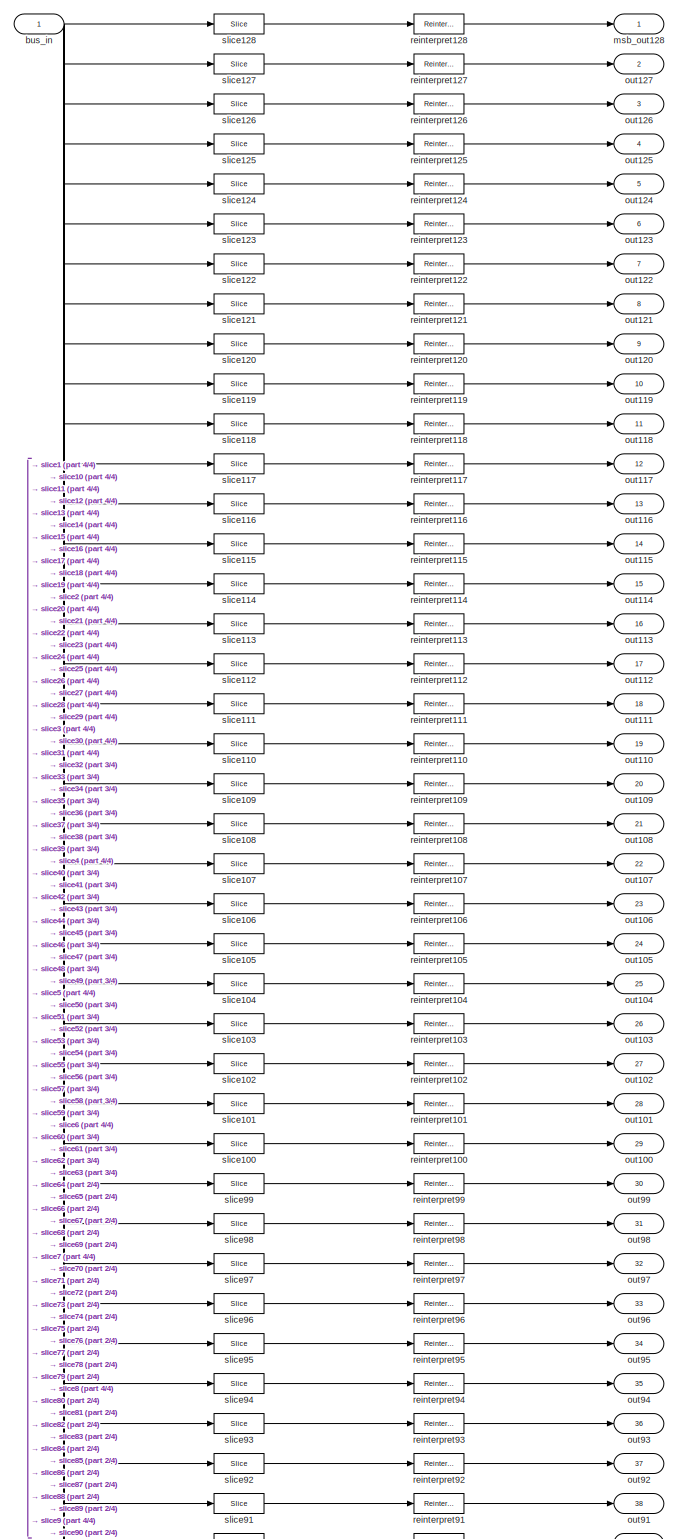
[diagram: chan_reorder/reorder/buf0/debus_din - part 1/4, full width, top band]
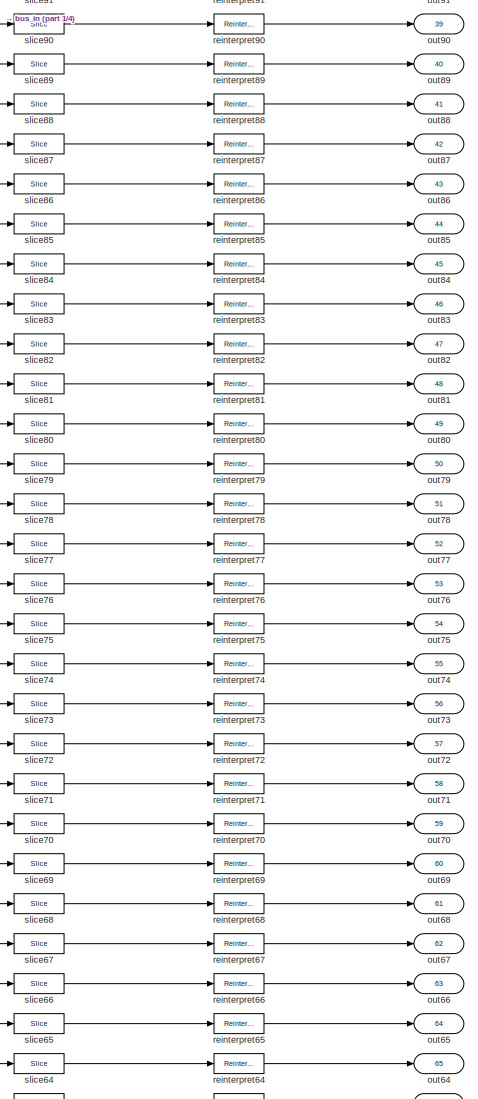
[diagram: chan_reorder/reorder/buf0/debus_din - part 2/4, central region]
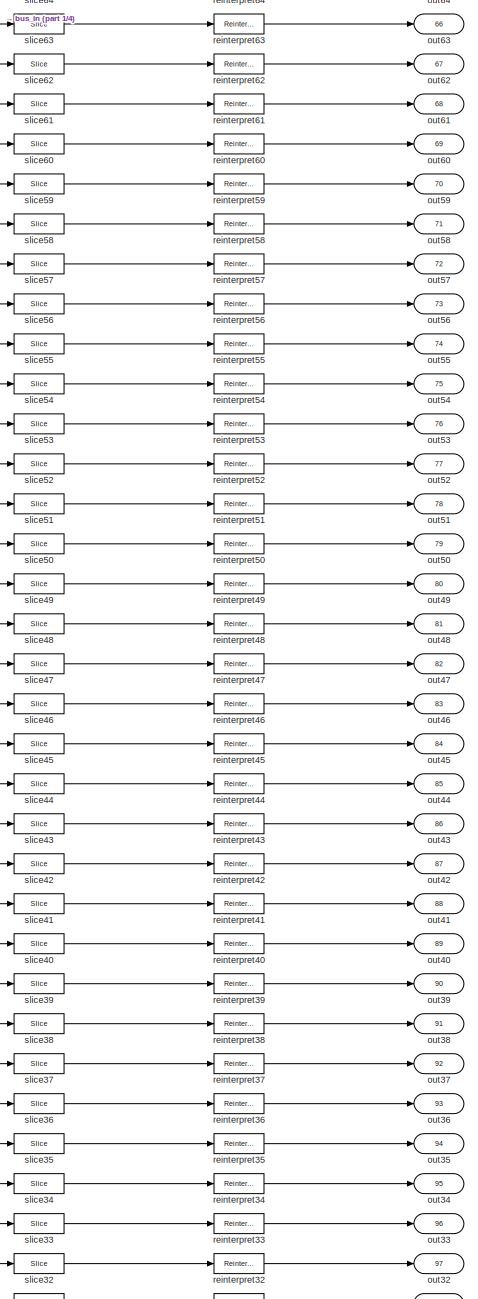
[diagram: chan_reorder/reorder/buf0/debus_din - part 3/4, central region]
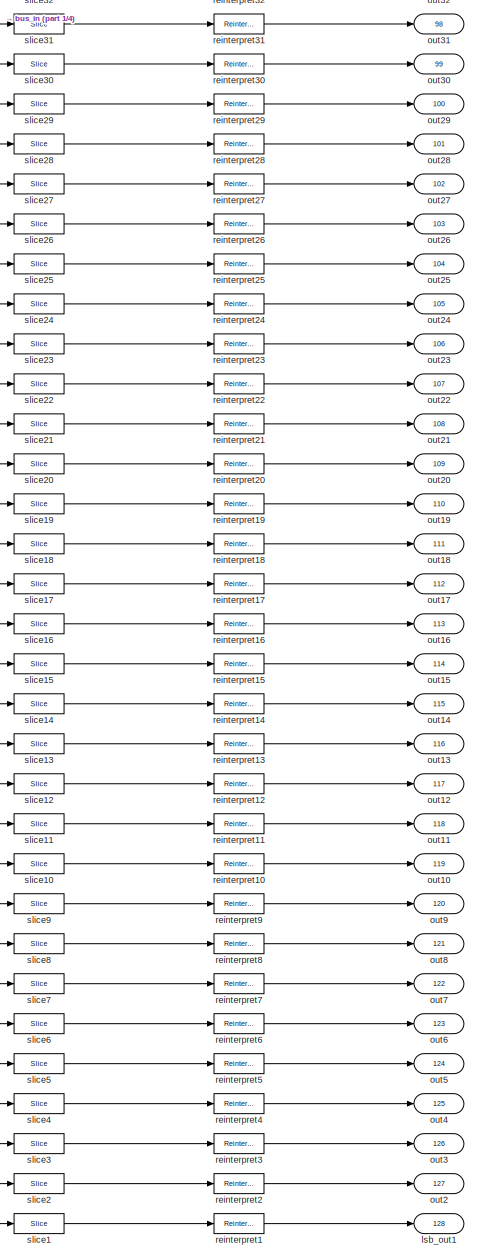
[diagram: chan_reorder/reorder/buf0/debus_din - part 4/4, bottom center region]
BLOCK [SubSystem] chan_reorder/reorder/buf0/debus_din
  AncestorBlock = casper_library_flow_control/bus_expand
  AttributesFormatString = 128 outputs: uf2.0,uf2.0,uf2.0,uf2.0,uf2.0,uf2.0,uf2.0,uf2.0,uf2.0,uf2.0,uf2.0,uf2.0,uf2.0,uf2.0,uf2.0,uf2.0,uf2.0,uf2.0,uf2.0,uf2.0,uf2.0,uf2.0,uf2.0,uf2.0,uf2.0,uf2.0,uf2.0,uf2.0,uf2.0,uf2.0,uf2.0,uf2.0,uf2.0,uf2.0,uf2.0,uf2.0,uf2.0,uf2.0,uf2.0,uf2.0,uf2.0,uf2.0,uf2.0,uf2.0,uf2.0,uf2.0,uf2.0,uf2.0,uf2.0,uf2.0,uf2.0,uf2.0,uf2.0,uf2.0,uf2.0,uf2.0,uf2.0,uf2.0,uf2.0,uf2.0,uf2.0,uf2.0,uf2.0,uf2.0,uf2...<+381ch>
  Ports = [1, 128]
  RequestExecContextInheritance = off
  UserDataPersistent = on
BLOCK [Inport] chan_reorder/reorder/buf0/debus_din/bus_in
  IconDisplay = Port number
BLOCK [Outport] chan_reorder/reorder/buf0/debus_din/lsb_out1
  IconDisplay = Port number
  Port = 128
BLOCK [Outport] chan_reorder/reorder/buf0/debus_din/msb_out128
  IconDisplay = Port number
BLOCK [Outport] chan_reorder/reorder/buf0/debus_din/out10
  IconDisplay = Port number
  Port = 119
BLOCK [Outport] chan_reorder/reorder/buf0/debus_din/out100
  IconDisplay = Port number
  Port = 29
BLOCK [Outport] chan_reorder/reorder/buf0/debus_din/out101
  IconDisplay = Port number
  Port = 28
BLOCK [Outport] chan_reorder/reorder/buf0/debus_din/out102
  IconDisplay = Port number
  Port = 27
BLOCK [Outport] chan_reorder/reorder/buf0/debus_din/out103
  IconDisplay = Port number
  Port = 26
BLOCK [Outport] chan_reorder/reorder/buf0/debus_din/out104
  IconDisplay = Port number
  Port = 25
BLOCK [Outport] chan_reorder/reorder/buf0/debus_din/out105
  IconDisplay = Port number
  Port = 24
BLOCK [Outport] chan_reorder/reorder/buf0/debus_din/out106
  IconDisplay = Port number
  Port = 23
BLOCK [Outport] chan_reorder/reorder/buf0/debus_din/out107
  IconDisplay = Port number
  Port = 22
BLOCK [Outport] chan_reorder/reorder/buf0/debus_din/out108
  IconDisplay = Port number
  Port = 21
BLOCK [Outport] chan_reorder/reorder/buf0/debus_din/out109
  IconDisplay = Port number
  Port = 20
BLOCK [Outport] chan_reorder/reorder/buf0/debus_din/out11
  IconDisplay = Port number
  Port = 118
BLOCK [Outport] chan_reorder/reorder/buf0/debus_din/out110
  IconDisplay = Port number
  Port = 19
BLOCK [Outport] chan_reorder/reorder/buf0/debus_din/out111
  IconDisplay = Port number
  Port = 18
BLOCK [Outport] chan_reorder/reorder/buf0/debus_din/out112
  IconDisplay = Port number
  Port = 17
BLOCK [Outport] chan_reorder/reorder/buf0/debus_din/out113
  IconDisplay = Port number
  Port = 16
BLOCK [Outport] chan_reorder/reorder/buf0/debus_din/out114
  IconDisplay = Port number
  Port = 15
BLOCK [Outport] chan_reorder/reorder/buf0/debus_din/out115
  IconDisplay = Port number
  Port = 14
BLOCK [Outport] chan_reorder/reorder/buf0/debus_din/out116
  IconDisplay = Port number
  Port = 13
BLOCK [Outport] chan_reorder/reorder/buf0/debus_din/out117
  IconDisplay = Port number
  Port = 12
BLOCK [Outport] chan_reorder/reorder/buf0/debus_din/out118
  IconDisplay = Port number
  Port = 11
BLOCK [Outport] chan_reorder/reorder/buf0/debus_din/out119
  IconDisplay = Port number
  Port = 10
BLOCK [Outport] chan_reorder/reorder/buf0/debus_din/out12
  IconDisplay = Port number
  Port = 117
BLOCK [Outport] chan_reorder/reorder/buf0/debus_din/out120
  IconDisplay = Port number
  Port = 9
BLOCK [Outport] chan_reorder/reorder/buf0/debus_din/out121
  IconDisplay = Port number
  Port = 8
BLOCK [Outport] chan_reorder/reorder/buf0/debus_din/out122
  IconDisplay = Port number
  Port = 7
BLOCK [Outport] chan_reorder/reorder/buf0/debus_din/out123
  IconDisplay = Port number
  Port = 6
BLOCK [Outport] chan_reorder/reorder/buf0/debus_din/out124
  IconDisplay = Port number
  Port = 5
BLOCK [Outport] chan_reorder/reorder/buf0/debus_din/out125
  IconDisplay = Port number
  Port = 4
BLOCK [Outport] chan_reorder/reorder/buf0/debus_din/out126
  IconDisplay = Port number
  Port = 3
BLOCK [Outport] chan_reorder/reorder/buf0/debus_din/out127
  IconDisplay = Port number
  Port = 2
BLOCK [Outport] chan_reorder/reorder/buf0/debus_din/out13
  IconDisplay = Port number
  Port = 116
BLOCK [Outport] chan_reorder/reorder/buf0/debus_din/out14
  IconDisplay = Port number
  Port = 115
BLOCK [Outport] chan_reorder/reorder/buf0/debus_din/out15
  IconDisplay = Port number
  Port = 114
BLOCK [Outport] chan_reorder/reorder/buf0/debus_din/out16
  IconDisplay = Port number
  Port = 113
BLOCK [Outport] chan_reorder/reorder/buf0/debus_din/out17
  IconDisplay = Port number
  Port = 112
BLOCK [Outport] chan_reorder/reorder/buf0/debus_din/out18
  IconDisplay = Port number
  Port = 111
BLOCK [Outport] chan_reorder/reorder/buf0/debus_din/out19
  IconDisplay = Port number
  Port = 110
BLOCK [Outport] chan_reorder/reorder/buf0/debus_din/out2
  IconDisplay = Port number
  Port = 127
BLOCK [Outport] chan_reorder/reorder/buf0/debus_din/out20
  IconDisplay = Port number
  Port = 109
BLOCK [Outport] chan_reorder/reorder/buf0/debus_din/out21
  IconDisplay = Port number
  Port = 108
BLOCK [Outport] chan_reorder/reorder/buf0/debus_din/out22
  IconDisplay = Port number
  Port = 107
BLOCK [Outport] chan_reorder/reorder/buf0/debus_din/out23
  IconDisplay = Port number
  Port = 106
BLOCK [Outport] chan_reorder/reorder/buf0/debus_din/out24
  IconDisplay = Port number
  Port = 105
BLOCK [Outport] chan_reorder/reorder/buf0/debus_din/out25
  IconDisplay = Port number
  Port = 104
BLOCK [Outport] chan_reorder/reorder/buf0/debus_din/out26
  IconDisplay = Port number
  Port = 103
BLOCK [Outport] chan_reorder/reorder/buf0/debus_din/out27
  IconDisplay = Port number
  Port = 102
BLOCK [Outport] chan_reorder/reorder/buf0/debus_din/out28
  IconDisplay = Port number
  Port = 101
BLOCK [Outport] chan_reorder/reorder/buf0/debus_din/out29
  IconDisplay = Port number
  Port = 100
BLOCK [Outport] chan_reorder/reorder/buf0/debus_din/out3
  IconDisplay = Port number
  Port = 126
BLOCK [Outport] chan_reorder/reorder/buf0/debus_din/out30
  IconDisplay = Port number
  Port = 99
BLOCK [Outport] chan_reorder/reorder/buf0/debus_din/out31
  IconDisplay = Port number
  Port = 98
BLOCK [Outport] chan_reorder/reorder/buf0/debus_din/out32
  IconDisplay = Port number
  Port = 97
BLOCK [Outport] chan_reorder/reorder/buf0/debus_din/out33
  IconDisplay = Port number
  Port = 96
BLOCK [Outport] chan_reorder/reorder/buf0/debus_din/out34
  IconDisplay = Port number
  Port = 95
BLOCK [Outport] chan_reorder/reorder/buf0/debus_din/out35
  IconDisplay = Port number
  Port = 94
BLOCK [Outport] chan_reorder/reorder/buf0/debus_din/out36
  IconDisplay = Port number
  Port = 93
BLOCK [Outport] chan_reorder/reorder/buf0/debus_din/out37
  IconDisplay = Port number
  Port = 92
BLOCK [Outport] chan_reorder/reorder/buf0/debus_din/out38
  IconDisplay = Port number
  Port = 91
BLOCK [Outport] chan_reorder/reorder/buf0/debus_din/out39
  IconDisplay = Port number
  Port = 90
BLOCK [Outport] chan_reorder/reorder/buf0/debus_din/out4
  IconDisplay = Port number
  Port = 125
BLOCK [Outport] chan_reorder/reorder/buf0/debus_din/out40
  IconDisplay = Port number
  Port = 89
BLOCK [Outport] chan_reorder/reorder/buf0/debus_din/out41
  IconDisplay = Port number
  Port = 88
BLOCK [Outport] chan_reorder/reorder/buf0/debus_din/out42
  IconDisplay = Port number
  Port = 87
BLOCK [Outport] chan_reorder/reorder/buf0/debus_din/out43
  IconDisplay = Port number
  Port = 86
BLOCK [Outport] chan_reorder/reorder/buf0/debus_din/out44
  IconDisplay = Port number
  Port = 85
BLOCK [Outport] chan_reorder/reorder/buf0/debus_din/out45
  IconDisplay = Port number
  Port = 84
BLOCK [Outport] chan_reorder/reorder/buf0/debus_din/out46
  IconDisplay = Port number
  Port = 83
BLOCK [Outport] chan_reorder/reorder/buf0/debus_din/out47
  IconDisplay = Port number
  Port = 82
BLOCK [Outport] chan_reorder/reorder/buf0/debus_din/out48
  IconDisplay = Port number
  Port = 81
BLOCK [Outport] chan_reorder/reorder/buf0/debus_din/out49
  IconDisplay = Port number
  Port = 80
BLOCK [Outport] chan_reorder/reorder/buf0/debus_din/out5
  IconDisplay = Port number
  Port = 124
BLOCK [Outport] chan_reorder/reorder/buf0/debus_din/out50
  IconDisplay = Port number
  Port = 79
BLOCK [Outport] chan_reorder/reorder/buf0/debus_din/out51
  IconDisplay = Port number
  Port = 78
BLOCK [Outport] chan_reorder/reorder/buf0/debus_din/out52
  IconDisplay = Port number
  Port = 77
BLOCK [Outport] chan_reorder/reorder/buf0/debus_din/out53
  IconDisplay = Port number
  Port = 76
BLOCK [Outport] chan_reorder/reorder/buf0/debus_din/out54
  IconDisplay = Port number
  Port = 75
BLOCK [Outport] chan_reorder/reorder/buf0/debus_din/out55
  IconDisplay = Port number
  Port = 74
BLOCK [Outport] chan_reorder/reorder/buf0/debus_din/out56
  IconDisplay = Port number
  Port = 73
BLOCK [Outport] chan_reorder/reorder/buf0/debus_din/out57
  IconDisplay = Port number
  Port = 72
BLOCK [Outport] chan_reorder/reorder/buf0/debus_din/out58
  IconDisplay = Port number
  Port = 71
BLOCK [Outport] chan_reorder/reorder/buf0/debus_din/out59
  IconDisplay = Port number
  Port = 70
BLOCK [Outport] chan_reorder/reorder/buf0/debus_din/out6
  IconDisplay = Port number
  Port = 123
BLOCK [Outport] chan_reorder/reorder/buf0/debus_din/out60
  IconDisplay = Port number
  Port = 69
BLOCK [Outport] chan_reorder/reorder/buf0/debus_din/out61
  IconDisplay = Port number
  Port = 68
BLOCK [Outport] chan_reorder/reorder/buf0/debus_din/out62
  IconDisplay = Port number
  Port = 67
BLOCK [Outport] chan_reorder/reorder/buf0/debus_din/out63
  IconDisplay = Port number
  Port = 66
BLOCK [Outport] chan_reorder/reorder/buf0/debus_din/out64
  IconDisplay = Port number
  Port = 65
BLOCK [Outport] chan_reorder/reorder/buf0/debus_din/out65
  IconDisplay = Port number
  Port = 64
BLOCK [Outport] chan_reorder/reorder/buf0/debus_din/out66
  IconDisplay = Port number
  Port = 63
BLOCK [Outport] chan_reorder/reorder/buf0/debus_din/out67
  IconDisplay = Port number
  Port = 62
BLOCK [Outport] chan_reorder/reorder/buf0/debus_din/out68
  IconDisplay = Port number
  Port = 61
BLOCK [Outport] chan_reorder/reorder/buf0/debus_din/out69
  IconDisplay = Port number
  Port = 60
BLOCK [Outport] chan_reorder/reorder/buf0/debus_din/out7
  IconDisplay = Port number
  Port = 122
BLOCK [Outport] chan_reorder/reorder/buf0/debus_din/out70
  IconDisplay = Port number
  Port = 59
BLOCK [Outport] chan_reorder/reorder/buf0/debus_din/out71
  IconDisplay = Port number
  Port = 58
BLOCK [Outport] chan_reorder/reorder/buf0/debus_din/out72
  IconDisplay = Port number
  Port = 57
BLOCK [Outport] chan_reorder/reorder/buf0/debus_din/out73
  IconDisplay = Port number
  Port = 56
BLOCK [Outport] chan_reorder/reorder/buf0/debus_din/out74
  IconDisplay = Port number
  Port = 55
BLOCK [Outport] chan_reorder/reorder/buf0/debus_din/out75
  IconDisplay = Port number
  Port = 54
BLOCK [Outport] chan_reorder/reorder/buf0/debus_din/out76
  IconDisplay = Port number
  Port = 53
BLOCK [Outport] chan_reorder/reorder/buf0/debus_din/out77
  IconDisplay = Port number
  Port = 52
BLOCK [Outport] chan_reorder/reorder/buf0/debus_din/out78
  IconDisplay = Port number
  Port = 51
BLOCK [Outport] chan_reorder/reorder/buf0/debus_din/out79
  IconDisplay = Port number
  Port = 50
BLOCK [Outport] chan_reorder/reorder/buf0/debus_din/out8
  IconDisplay = Port number
  Port = 121
BLOCK [Outport] chan_reorder/reorder/buf0/debus_din/out80
  IconDisplay = Port number
  Port = 49
BLOCK [Outport] chan_reorder/reorder/buf0/debus_din/out81
  IconDisplay = Port number
  Port = 48
BLOCK [Outport] chan_reorder/reorder/buf0/debus_din/out82
  IconDisplay = Port number
  Port = 47
BLOCK [Outport] chan_reorder/reorder/buf0/debus_din/out83
  IconDisplay = Port number
  Port = 46
BLOCK [Outport] chan_reorder/reorder/buf0/debus_din/out84
  IconDisplay = Port number
  Port = 45
BLOCK [Outport] chan_reorder/reorder/buf0/debus_din/out85
  IconDisplay = Port number
  Port = 44
BLOCK [Outport] chan_reorder/reorder/buf0/debus_din/out86
  IconDisplay = Port number
  Port = 43
BLOCK [Outport] chan_reorder/reorder/buf0/debus_din/out87
  IconDisplay = Port number
  Port = 42
BLOCK [Outport] chan_reorder/reorder/buf0/debus_din/out88
  IconDisplay = Port number
  Port = 41
BLOCK [Outport] chan_reorder/reorder/buf0/debus_din/out89
  IconDisplay = Port number
  Port = 40
BLOCK [Outport] chan_reorder/reorder/buf0/debus_din/out9
  IconDisplay = Port number
  Port = 120
BLOCK [Outport] chan_reorder/reorder/buf0/debus_din/out90
  IconDisplay = Port number
  Port = 39
BLOCK [Outport] chan_reorder/reorder/buf0/debus_din/out91
  IconDisplay = Port number
  Port = 38
BLOCK [Outport] chan_reorder/reorder/buf0/debus_din/out92
  IconDisplay = Port number
  Port = 37
BLOCK [Outport] chan_reorder/reorder/buf0/debus_din/out93
  IconDisplay = Port number
  Port = 36
BLOCK [Outport] chan_reorder/reorder/buf0/debus_din/out94
  IconDisplay = Port number
  Port = 35
BLOCK [Outport] chan_reorder/reorder/buf0/debus_din/out95
  IconDisplay = Port number
  Port = 34
BLOCK [Outport] chan_reorder/reorder/buf0/debus_din/out96
  IconDisplay = Port number
  Port = 33
BLOCK [Outport] chan_reorder/reorder/buf0/debus_din/out97
  IconDisplay = Port number
  Port = 32
BLOCK [Outport] chan_reorder/reorder/buf0/debus_din/out98
  IconDisplay = Port number
  Port = 31
BLOCK [Outport] chan_reorder/reorder/buf0/debus_din/out99
  IconDisplay = Port number
  Port = 30
BLOCK [Reference] chan_reorder/reorder/buf0/debus_din/reinterpret1  REF=xbsIndex_r4/Reinterpret
  Ports = [1, 1]
  SourceBlock = xbsIndex_r4/Reinterpret
  SourceType = Xilinx Type Reinterpreter Block
BLOCK [Reference] chan_reorder/reorder/buf0/debus_din/reinterpret10  REF=xbsIndex_r4/Reinterpret
  Ports = [1, 1]
  SourceBlock = xbsIndex_r4/Reinterpret
  SourceType = Xilinx Type Reinterpreter Block
BLOCK [Reference] chan_reorder/reorder/buf0/debus_din/reinterpret100  REF=xbsIndex_r4/Reinterpret
  Ports = [1, 1]
  SourceBlock = xbsIndex_r4/Reinterpret
  SourceType = Xilinx Type Reinterpreter Block
BLOCK [Reference] chan_reorder/reorder/buf0/debus_din/reinterpret101  REF=xbsIndex_r4/Reinterpret
  Ports = [1, 1]
  SourceBlock = xbsIndex_r4/Reinterpret
  SourceType = Xilinx Type Reinterpreter Block
BLOCK [Reference] chan_reorder/reorder/buf0/debus_din/reinterpret102  REF=xbsIndex_r4/Reinterpret
  Ports = [1, 1]
  SourceBlock = xbsIndex_r4/Reinterpret
  SourceType = Xilinx Type Reinterpreter Block
BLOCK [Reference] chan_reorder/reorder/buf0/debus_din/reinterpret103  REF=xbsIndex_r4/Reinterpret
  Ports = [1, 1]
  SourceBlock = xbsIndex_r4/Reinterpret
  SourceType = Xilinx Type Reinterpreter Block
BLOCK [Reference] chan_reorder/reorder/buf0/debus_din/reinterpret104  REF=xbsIndex_r4/Reinterpret
  Ports = [1, 1]
  SourceBlock = xbsIndex_r4/Reinterpret
  SourceType = Xilinx Type Reinterpreter Block
BLOCK [Reference] chan_reorder/reorder/buf0/debus_din/reinterpret105  REF=xbsIndex_r4/Reinterpret
  Ports = [1, 1]
  SourceBlock = xbsIndex_r4/Reinterpret
  SourceType = Xilinx Type Reinterpreter Block
BLOCK [Reference] chan_reorder/reorder/buf0/debus_din/reinterpret106  REF=xbsIndex_r4/Reinterpret
  Ports = [1, 1]
  SourceBlock = xbsIndex_r4/Reinterpret
  SourceType = Xilinx Type Reinterpreter Block
BLOCK [Reference] chan_reorder/reorder/buf0/debus_din/reinterpret107  REF=xbsIndex_r4/Reinterpret
  Ports = [1, 1]
  SourceBlock = xbsIndex_r4/Reinterpret
  SourceType = Xilinx Type Reinterpreter Block
BLOCK [Reference] chan_reorder/reorder/buf0/debus_din/reinterpret108  REF=xbsIndex_r4/Reinterpret
  Ports = [1, 1]
  SourceBlock = xbsIndex_r4/Reinterpret
  SourceType = Xilinx Type Reinterpreter Block
BLOCK [Reference] chan_reorder/reorder/buf0/debus_din/reinterpret109  REF=xbsIndex_r4/Reinterpret
  Ports = [1, 1]
  SourceBlock = xbsIndex_r4/Reinterpret
  SourceType = Xilinx Type Reinterpreter Block
BLOCK [Reference] chan_reorder/reorder/buf0/debus_din/reinterpret11  REF=xbsIndex_r4/Reinterpret
  Ports = [1, 1]
  SourceBlock = xbsIndex_r4/Reinterpret
  SourceType = Xilinx Type Reinterpreter Block
BLOCK [Reference] chan_reorder/reorder/buf0/debus_din/reinterpret110  REF=xbsIndex_r4/Reinterpret
  Ports = [1, 1]
  SourceBlock = xbsIndex_r4/Reinterpret
  SourceType = Xilinx Type Reinterpreter Block
BLOCK [Reference] chan_reorder/reorder/buf0/debus_din/reinterpret111  REF=xbsIndex_r4/Reinterpret
  Ports = [1, 1]
  SourceBlock = xbsIndex_r4/Reinterpret
  SourceType = Xilinx Type Reinterpreter Block
BLOCK [Reference] chan_reorder/reorder/buf0/debus_din/reinterpret112  REF=xbsIndex_r4/Reinterpret
  Ports = [1, 1]
  SourceBlock = xbsIndex_r4/Reinterpret
  SourceType = Xilinx Type Reinterpreter Block
BLOCK [Reference] chan_reorder/reorder/buf0/debus_din/reinterpret113  REF=xbsIndex_r4/Reinterpret
  Ports = [1, 1]
  SourceBlock = xbsIndex_r4/Reinterpret
  SourceType = Xilinx Type Reinterpreter Block
BLOCK [Reference] chan_reorder/reorder/buf0/debus_din/reinterpret114  REF=xbsIndex_r4/Reinterpret
  Ports = [1, 1]
  SourceBlock = xbsIndex_r4/Reinterpret
  SourceType = Xilinx Type Reinterpreter Block
BLOCK [Reference] chan_reorder/reorder/buf0/debus_din/reinterpret115  REF=xbsIndex_r4/Reinterpret
  Ports = [1, 1]
  SourceBlock = xbsIndex_r4/Reinterpret
  SourceType = Xilinx Type Reinterpreter Block
BLOCK [Reference] chan_reorder/reorder/buf0/debus_din/reinterpret116  REF=xbsIndex_r4/Reinterpret
  Ports = [1, 1]
  SourceBlock = xbsIndex_r4/Reinterpret
  SourceType = Xilinx Type Reinterpreter Block
BLOCK [Reference] chan_reorder/reorder/buf0/debus_din/reinterpret117  REF=xbsIndex_r4/Reinterpret
  Ports = [1, 1]
  SourceBlock = xbsIndex_r4/Reinterpret
  SourceType = Xilinx Type Reinterpreter Block
BLOCK [Reference] chan_reorder/reorder/buf0/debus_din/reinterpret118  REF=xbsIndex_r4/Reinterpret
  Ports = [1, 1]
  SourceBlock = xbsIndex_r4/Reinterpret
  SourceType = Xilinx Type Reinterpreter Block
BLOCK [Reference] chan_reorder/reorder/buf0/debus_din/reinterpret119  REF=xbsIndex_r4/Reinterpret
  Ports = [1, 1]
  SourceBlock = xbsIndex_r4/Reinterpret
  SourceType = Xilinx Type Reinterpreter Block
BLOCK [Reference] chan_reorder/reorder/buf0/debus_din/reinterpret12  REF=xbsIndex_r4/Reinterpret
  Ports = [1, 1]
  SourceBlock = xbsIndex_r4/Reinterpret
  SourceType = Xilinx Type Reinterpreter Block
BLOCK [Reference] chan_reorder/reorder/buf0/debus_din/reinterpret120  REF=xbsIndex_r4/Reinterpret
  Ports = [1, 1]
  SourceBlock = xbsIndex_r4/Reinterpret
  SourceType = Xilinx Type Reinterpreter Block
BLOCK [Reference] chan_reorder/reorder/buf0/debus_din/reinterpret121  REF=xbsIndex_r4/Reinterpret
  Ports = [1, 1]
  SourceBlock = xbsIndex_r4/Reinterpret
  SourceType = Xilinx Type Reinterpreter Block
BLOCK [Reference] chan_reorder/reorder/buf0/debus_din/reinterpret122  REF=xbsIndex_r4/Reinterpret
  Ports = [1, 1]
  SourceBlock = xbsIndex_r4/Reinterpret
  SourceType = Xilinx Type Reinterpreter Block
BLOCK [Reference] chan_reorder/reorder/buf0/debus_din/reinterpret123  REF=xbsIndex_r4/Reinterpret
  Ports = [1, 1]
  SourceBlock = xbsIndex_r4/Reinterpret
  SourceType = Xilinx Type Reinterpreter Block
BLOCK [Reference] chan_reorder/reorder/buf0/debus_din/reinterpret124  REF=xbsIndex_r4/Reinterpret
  Ports = [1, 1]
  SourceBlock = xbsIndex_r4/Reinterpret
  SourceType = Xilinx Type Reinterpreter Block
BLOCK [Reference] chan_reorder/reorder/buf0/debus_din/reinterpret125  REF=xbsIndex_r4/Reinterpret
  Ports = [1, 1]
  SourceBlock = xbsIndex_r4/Reinterpret
  SourceType = Xilinx Type Reinterpreter Block
BLOCK [Reference] chan_reorder/reorder/buf0/debus_din/reinterpret126  REF=xbsIndex_r4/Reinterpret
  Ports = [1, 1]
  SourceBlock = xbsIndex_r4/Reinterpret
  SourceType = Xilinx Type Reinterpreter Block
BLOCK [Reference] chan_reorder/reorder/buf0/debus_din/reinterpret127  REF=xbsIndex_r4/Reinterpret
  Ports = [1, 1]
  SourceBlock = xbsIndex_r4/Reinterpret
  SourceType = Xilinx Type Reinterpreter Block
BLOCK [Reference] chan_reorder/reorder/buf0/debus_din/reinterpret128  REF=xbsIndex_r4/Reinterpret
  Ports = [1, 1]
  SourceBlock = xbsIndex_r4/Reinterpret
  SourceType = Xilinx Type Reinterpreter Block
BLOCK [Reference] chan_reorder/reorder/buf0/debus_din/reinterpret13  REF=xbsIndex_r4/Reinterpret
  Ports = [1, 1]
  SourceBlock = xbsIndex_r4/Reinterpret
  SourceType = Xilinx Type Reinterpreter Block
BLOCK [Reference] chan_reorder/reorder/buf0/debus_din/reinterpret14  REF=xbsIndex_r4/Reinterpret
  Ports = [1, 1]
  SourceBlock = xbsIndex_r4/Reinterpret
  SourceType = Xilinx Type Reinterpreter Block
BLOCK [Reference] chan_reorder/reorder/buf0/debus_din/reinterpret15  REF=xbsIndex_r4/Reinterpret
  Ports = [1, 1]
  SourceBlock = xbsIndex_r4/Reinterpret
  SourceType = Xilinx Type Reinterpreter Block
BLOCK [Reference] chan_reorder/reorder/buf0/debus_din/reinterpret16  REF=xbsIndex_r4/Reinterpret
  Ports = [1, 1]
  SourceBlock = xbsIndex_r4/Reinterpret
  SourceType = Xilinx Type Reinterpreter Block
BLOCK [Reference] chan_reorder/reorder/buf0/debus_din/reinterpret17  REF=xbsIndex_r4/Reinterpret
  Ports = [1, 1]
  SourceBlock = xbsIndex_r4/Reinterpret
  SourceType = Xilinx Type Reinterpreter Block
BLOCK [Reference] chan_reorder/reorder/buf0/debus_din/reinterpret18  REF=xbsIndex_r4/Reinterpret
  Ports = [1, 1]
  SourceBlock = xbsIndex_r4/Reinterpret
  SourceType = Xilinx Type Reinterpreter Block
BLOCK [Reference] chan_reorder/reorder/buf0/debus_din/reinterpret19  REF=xbsIndex_r4/Reinterpret
  Ports = [1, 1]
  SourceBlock = xbsIndex_r4/Reinterpret
  SourceType = Xilinx Type Reinterpreter Block
BLOCK [Reference] chan_reorder/reorder/buf0/debus_din/reinterpret2  REF=xbsIndex_r4/Reinterpret
  Ports = [1, 1]
  SourceBlock = xbsIndex_r4/Reinterpret
  SourceType = Xilinx Type Reinterpreter Block
BLOCK [Reference] chan_reorder/reorder/buf0/debus_din/reinterpret20  REF=xbsIndex_r4/Reinterpret
  Ports = [1, 1]
  SourceBlock = xbsIndex_r4/Reinterpret
  SourceType = Xilinx Type Reinterpreter Block
BLOCK [Reference] chan_reorder/reorder/buf0/debus_din/reinterpret21  REF=xbsIndex_r4/Reinterpret
  Ports = [1, 1]
  SourceBlock = xbsIndex_r4/Reinterpret
  SourceType = Xilinx Type Reinterpreter Block
BLOCK [Reference] chan_reorder/reorder/buf0/debus_din/reinterpret22  REF=xbsIndex_r4/Reinterpret
  Ports = [1, 1]
  SourceBlock = xbsIndex_r4/Reinterpret
  SourceType = Xilinx Type Reinterpreter Block
BLOCK [Reference] chan_reorder/reorder/buf0/debus_din/reinterpret23  REF=xbsIndex_r4/Reinterpret
  Ports = [1, 1]
  SourceBlock = xbsIndex_r4/Reinterpret
  SourceType = Xilinx Type Reinterpreter Block
BLOCK [Reference] chan_reorder/reorder/buf0/debus_din/reinterpret24  REF=xbsIndex_r4/Reinterpret
  Ports = [1, 1]
  SourceBlock = xbsIndex_r4/Reinterpret
  SourceType = Xilinx Type Reinterpreter Block
BLOCK [Reference] chan_reorder/reorder/buf0/debus_din/reinterpret25  REF=xbsIndex_r4/Reinterpret
  Ports = [1, 1]
  SourceBlock = xbsIndex_r4/Reinterpret
  SourceType = Xilinx Type Reinterpreter Block
BLOCK [Reference] chan_reorder/reorder/buf0/debus_din/reinterpret26  REF=xbsIndex_r4/Reinterpret
  Ports = [1, 1]
  SourceBlock = xbsIndex_r4/Reinterpret
  SourceType = Xilinx Type Reinterpreter Block
BLOCK [Reference] chan_reorder/reorder/buf0/debus_din/reinterpret27  REF=xbsIndex_r4/Reinterpret
  Ports = [1, 1]
  SourceBlock = xbsIndex_r4/Reinterpret
  SourceType = Xilinx Type Reinterpreter Block
BLOCK [Reference] chan_reorder/reorder/buf0/debus_din/reinterpret28  REF=xbsIndex_r4/Reinterpret
  Ports = [1, 1]
  SourceBlock = xbsIndex_r4/Reinterpret
  SourceType = Xilinx Type Reinterpreter Block
BLOCK [Reference] chan_reorder/reorder/buf0/debus_din/reinterpret29  REF=xbsIndex_r4/Reinterpret
  Ports = [1, 1]
  SourceBlock = xbsIndex_r4/Reinterpret
  SourceType = Xilinx Type Reinterpreter Block
BLOCK [Reference] chan_reorder/reorder/buf0/debus_din/reinterpret3  REF=xbsIndex_r4/Reinterpret
  Ports = [1, 1]
  SourceBlock = xbsIndex_r4/Reinterpret
  SourceType = Xilinx Type Reinterpreter Block
BLOCK [Reference] chan_reorder/reorder/buf0/debus_din/reinterpret30  REF=xbsIndex_r4/Reinterpret
  Ports = [1, 1]
  SourceBlock = xbsIndex_r4/Reinterpret
  SourceType = Xilinx Type Reinterpreter Block
BLOCK [Reference] chan_reorder/reorder/buf0/debus_din/reinterpret31  REF=xbsIndex_r4/Reinterpret
  Ports = [1, 1]
  SourceBlock = xbsIndex_r4/Reinterpret
  SourceType = Xilinx Type Reinterpreter Block
BLOCK [Reference] chan_reorder/reorder/buf0/debus_din/reinterpret32  REF=xbsIndex_r4/Reinterpret
  Ports = [1, 1]
  SourceBlock = xbsIndex_r4/Reinterpret
  SourceType = Xilinx Type Reinterpreter Block
BLOCK [Reference] chan_reorder/reorder/buf0/debus_din/reinterpret33  REF=xbsIndex_r4/Reinterpret
  Ports = [1, 1]
  SourceBlock = xbsIndex_r4/Reinterpret
  SourceType = Xilinx Type Reinterpreter Block
BLOCK [Reference] chan_reorder/reorder/buf0/debus_din/reinterpret34  REF=xbsIndex_r4/Reinterpret
  Ports = [1, 1]
  SourceBlock = xbsIndex_r4/Reinterpret
  SourceType = Xilinx Type Reinterpreter Block
BLOCK [Reference] chan_reorder/reorder/buf0/debus_din/reinterpret35  REF=xbsIndex_r4/Reinterpret
  Ports = [1, 1]
  SourceBlock = xbsIndex_r4/Reinterpret
  SourceType = Xilinx Type Reinterpreter Block
BLOCK [Reference] chan_reorder/reorder/buf0/debus_din/reinterpret36  REF=xbsIndex_r4/Reinterpret
  Ports = [1, 1]
  SourceBlock = xbsIndex_r4/Reinterpret
  SourceType = Xilinx Type Reinterpreter Block
BLOCK [Reference] chan_reorder/reorder/buf0/debus_din/reinterpret37  REF=xbsIndex_r4/Reinterpret
  Ports = [1, 1]
  SourceBlock = xbsIndex_r4/Reinterpret
  SourceType = Xilinx Type Reinterpreter Block
BLOCK [Reference] chan_reorder/reorder/buf0/debus_din/reinterpret38  REF=xbsIndex_r4/Reinterpret
  Ports = [1, 1]
  SourceBlock = xbsIndex_r4/Reinterpret
  SourceType = Xilinx Type Reinterpreter Block
BLOCK [Reference] chan_reorder/reorder/buf0/debus_din/reinterpret39  REF=xbsIndex_r4/Reinterpret
  Ports = [1, 1]
  SourceBlock = xbsIndex_r4/Reinterpret
  SourceType = Xilinx Type Reinterpreter Block
BLOCK [Reference] chan_reorder/reorder/buf0/debus_din/reinterpret4  REF=xbsIndex_r4/Reinterpret
  Ports = [1, 1]
  SourceBlock = xbsIndex_r4/Reinterpret
  SourceType = Xilinx Type Reinterpreter Block
BLOCK [Reference] chan_reorder/reorder/buf0/debus_din/reinterpret40  REF=xbsIndex_r4/Reinterpret
  Ports = [1, 1]
  SourceBlock = xbsIndex_r4/Reinterpret
  SourceType = Xilinx Type Reinterpreter Block
BLOCK [Reference] chan_reorder/reorder/buf0/debus_din/reinterpret41  REF=xbsIndex_r4/Reinterpret
  Ports = [1, 1]
  SourceBlock = xbsIndex_r4/Reinterpret
  SourceType = Xilinx Type Reinterpreter Block
BLOCK [Reference] chan_reorder/reorder/buf0/debus_din/reinterpret42  REF=xbsIndex_r4/Reinterpret
  Ports = [1, 1]
  SourceBlock = xbsIndex_r4/Reinterpret
  SourceType = Xilinx Type Reinterpreter Block
BLOCK [Reference] chan_reorder/reorder/buf0/debus_din/reinterpret43  REF=xbsIndex_r4/Reinterpret
  Ports = [1, 1]
  SourceBlock = xbsIndex_r4/Reinterpret
  SourceType = Xilinx Type Reinterpreter Block
BLOCK [Reference] chan_reorder/reorder/buf0/debus_din/reinterpret44  REF=xbsIndex_r4/Reinterpret
  Ports = [1, 1]
  SourceBlock = xbsIndex_r4/Reinterpret
  SourceType = Xilinx Type Reinterpreter Block
BLOCK [Reference] chan_reorder/reorder/buf0/debus_din/reinterpret45  REF=xbsIndex_r4/Reinterpret
  Ports = [1, 1]
  SourceBlock = xbsIndex_r4/Reinterpret
  SourceType = Xilinx Type Reinterpreter Block
BLOCK [Reference] chan_reorder/reorder/buf0/debus_din/reinterpret46  REF=xbsIndex_r4/Reinterpret
  Ports = [1, 1]
  SourceBlock = xbsIndex_r4/Reinterpret
  SourceType = Xilinx Type Reinterpreter Block
BLOCK [Reference] chan_reorder/reorder/buf0/debus_din/reinterpret47  REF=xbsIndex_r4/Reinterpret
  Ports = [1, 1]
  SourceBlock = xbsIndex_r4/Reinterpret
  SourceType = Xilinx Type Reinterpreter Block
BLOCK [Reference] chan_reorder/reorder/buf0/debus_din/reinterpret48  REF=xbsIndex_r4/Reinterpret
  Ports = [1, 1]
  SourceBlock = xbsIndex_r4/Reinterpret
  SourceType = Xilinx Type Reinterpreter Block
BLOCK [Reference] chan_reorder/reorder/buf0/debus_din/reinterpret49  REF=xbsIndex_r4/Reinterpret
  Ports = [1, 1]
  SourceBlock = xbsIndex_r4/Reinterpret
  SourceType = Xilinx Type Reinterpreter Block
BLOCK [Reference] chan_reorder/reorder/buf0/debus_din/reinterpret5  REF=xbsIndex_r4/Reinterpret
  Ports = [1, 1]
  SourceBlock = xbsIndex_r4/Reinterpret
  SourceType = Xilinx Type Reinterpreter Block
BLOCK [Reference] chan_reorder/reorder/buf0/debus_din/reinterpret50  REF=xbsIndex_r4/Reinterpret
  Ports = [1, 1]
  SourceBlock = xbsIndex_r4/Reinterpret
  SourceType = Xilinx Type Reinterpreter Block
BLOCK [Reference] chan_reorder/reorder/buf0/debus_din/reinterpret51  REF=xbsIndex_r4/Reinterpret
  Ports = [1, 1]
  SourceBlock = xbsIndex_r4/Reinterpret
  SourceType = Xilinx Type Reinterpreter Block
BLOCK [Reference] chan_reorder/reorder/buf0/debus_din/reinterpret52  REF=xbsIndex_r4/Reinterpret
  Ports = [1, 1]
  SourceBlock = xbsIndex_r4/Reinterpret
  SourceType = Xilinx Type Reinterpreter Block
BLOCK [Reference] chan_reorder/reorder/buf0/debus_din/reinterpret53  REF=xbsIndex_r4/Reinterpret
  Ports = [1, 1]
  SourceBlock = xbsIndex_r4/Reinterpret
  SourceType = Xilinx Type Reinterpreter Block
BLOCK [Reference] chan_reorder/reorder/buf0/debus_din/reinterpret54  REF=xbsIndex_r4/Reinterpret
  Ports = [1, 1]
  SourceBlock = xbsIndex_r4/Reinterpret
  SourceType = Xilinx Type Reinterpreter Block
BLOCK [Reference] chan_reorder/reorder/buf0/debus_din/reinterpret55  REF=xbsIndex_r4/Reinterpret
  Ports = [1, 1]
  SourceBlock = xbsIndex_r4/Reinterpret
  SourceType = Xilinx Type Reinterpreter Block
BLOCK [Reference] chan_reorder/reorder/buf0/debus_din/reinterpret56  REF=xbsIndex_r4/Reinterpret
  Ports = [1, 1]
  SourceBlock = xbsIndex_r4/Reinterpret
  SourceType = Xilinx Type Reinterpreter Block
BLOCK [Reference] chan_reorder/reorder/buf0/debus_din/reinterpret57  REF=xbsIndex_r4/Reinterpret
  Ports = [1, 1]
  SourceBlock = xbsIndex_r4/Reinterpret
  SourceType = Xilinx Type Reinterpreter Block
BLOCK [Reference] chan_reorder/reorder/buf0/debus_din/reinterpret58  REF=xbsIndex_r4/Reinterpret
  Ports = [1, 1]
  SourceBlock = xbsIndex_r4/Reinterpret
  SourceType = Xilinx Type Reinterpreter Block
BLOCK [Reference] chan_reorder/reorder/buf0/debus_din/reinterpret59  REF=xbsIndex_r4/Reinterpret
  Ports = [1, 1]
  SourceBlock = xbsIndex_r4/Reinterpret
  SourceType = Xilinx Type Reinterpreter Block
BLOCK [Reference] chan_reorder/reorder/buf0/debus_din/reinterpret6  REF=xbsIndex_r4/Reinterpret
  Ports = [1, 1]
  SourceBlock = xbsIndex_r4/Reinterpret
  SourceType = Xilinx Type Reinterpreter Block
BLOCK [Reference] chan_reorder/reorder/buf0/debus_din/reinterpret60  REF=xbsIndex_r4/Reinterpret
  Ports = [1, 1]
  SourceBlock = xbsIndex_r4/Reinterpret
  SourceType = Xilinx Type Reinterpreter Block
BLOCK [Reference] chan_reorder/reorder/buf0/debus_din/reinterpret61  REF=xbsIndex_r4/Reinterpret
  Ports = [1, 1]
  SourceBlock = xbsIndex_r4/Reinterpret
  SourceType = Xilinx Type Reinterpreter Block
BLOCK [Reference] chan_reorder/reorder/buf0/debus_din/reinterpret62  REF=xbsIndex_r4/Reinterpret
  Ports = [1, 1]
  SourceBlock = xbsIndex_r4/Reinterpret
  SourceType = Xilinx Type Reinterpreter Block
BLOCK [Reference] chan_reorder/reorder/buf0/debus_din/reinterpret63  REF=xbsIndex_r4/Reinterpret
  Ports = [1, 1]
  SourceBlock = xbsIndex_r4/Reinterpret
  SourceType = Xilinx Type Reinterpreter Block
BLOCK [Reference] chan_reorder/reorder/buf0/debus_din/reinterpret64  REF=xbsIndex_r4/Reinterpret
  Ports = [1, 1]
  SourceBlock = xbsIndex_r4/Reinterpret
  SourceType = Xilinx Type Reinterpreter Block
BLOCK [Reference] chan_reorder/reorder/buf0/debus_din/reinterpret65  REF=xbsIndex_r4/Reinterpret
  Ports = [1, 1]
  SourceBlock = xbsIndex_r4/Reinterpret
  SourceType = Xilinx Type Reinterpreter Block
BLOCK [Reference] chan_reorder/reorder/buf0/debus_din/reinterpret66  REF=xbsIndex_r4/Reinterpret
  Ports = [1, 1]
  SourceBlock = xbsIndex_r4/Reinterpret
  SourceType = Xilinx Type Reinterpreter Block
BLOCK [Reference] chan_reorder/reorder/buf0/debus_din/reinterpret67  REF=xbsIndex_r4/Reinterpret
  Ports = [1, 1]
  SourceBlock = xbsIndex_r4/Reinterpret
  SourceType = Xilinx Type Reinterpreter Block
BLOCK [Reference] chan_reorder/reorder/buf0/debus_din/reinterpret68  REF=xbsIndex_r4/Reinterpret
  Ports = [1, 1]
  SourceBlock = xbsIndex_r4/Reinterpret
  SourceType = Xilinx Type Reinterpreter Block
BLOCK [Reference] chan_reorder/reorder/buf0/debus_din/reinterpret69  REF=xbsIndex_r4/Reinterpret
  Ports = [1, 1]
  SourceBlock = xbsIndex_r4/Reinterpret
  SourceType = Xilinx Type Reinterpreter Block
BLOCK [Reference] chan_reorder/reorder/buf0/debus_din/reinterpret7  REF=xbsIndex_r4/Reinterpret
  Ports = [1, 1]
  SourceBlock = xbsIndex_r4/Reinterpret
  SourceType = Xilinx Type Reinterpreter Block
BLOCK [Reference] chan_reorder/reorder/buf0/debus_din/reinterpret70  REF=xbsIndex_r4/Reinterpret
  Ports = [1, 1]
  SourceBlock = xbsIndex_r4/Reinterpret
  SourceType = Xilinx Type Reinterpreter Block
BLOCK [Reference] chan_reorder/reorder/buf0/debus_din/reinterpret71  REF=xbsIndex_r4/Reinterpret
  Ports = [1, 1]
  SourceBlock = xbsIndex_r4/Reinterpret
  SourceType = Xilinx Type Reinterpreter Block
BLOCK [Reference] chan_reorder/reorder/buf0/debus_din/reinterpret72  REF=xbsIndex_r4/Reinterpret
  Ports = [1, 1]
  SourceBlock = xbsIndex_r4/Reinterpret
  SourceType = Xilinx Type Reinterpreter Block
BLOCK [Reference] chan_reorder/reorder/buf0/debus_din/reinterpret73  REF=xbsIndex_r4/Reinterpret
  Ports = [1, 1]
  SourceBlock = xbsIndex_r4/Reinterpret
  SourceType = Xilinx Type Reinterpreter Block
BLOCK [Reference] chan_reorder/reorder/buf0/debus_din/reinterpret74  REF=xbsIndex_r4/Reinterpret
  Ports = [1, 1]
  SourceBlock = xbsIndex_r4/Reinterpret
  SourceType = Xilinx Type Reinterpreter Block
BLOCK [Reference] chan_reorder/reorder/buf0/debus_din/reinterpret75  REF=xbsIndex_r4/Reinterpret
  Ports = [1, 1]
  SourceBlock = xbsIndex_r4/Reinterpret
  SourceType = Xilinx Type Reinterpreter Block
BLOCK [Reference] chan_reorder/reorder/buf0/debus_din/reinterpret76  REF=xbsIndex_r4/Reinterpret
  Ports = [1, 1]
  SourceBlock = xbsIndex_r4/Reinterpret
  SourceType = Xilinx Type Reinterpreter Block
BLOCK [Reference] chan_reorder/reorder/buf0/debus_din/reinterpret77  REF=xbsIndex_r4/Reinterpret
  Ports = [1, 1]
  SourceBlock = xbsIndex_r4/Reinterpret
  SourceType = Xilinx Type Reinterpreter Block
BLOCK [Reference] chan_reorder/reorder/buf0/debus_din/reinterpret78  REF=xbsIndex_r4/Reinterpret
  Ports = [1, 1]
  SourceBlock = xbsIndex_r4/Reinterpret
  SourceType = Xilinx Type Reinterpreter Block
BLOCK [Reference] chan_reorder/reorder/buf0/debus_din/reinterpret79  REF=xbsIndex_r4/Reinterpret
  Ports = [1, 1]
  SourceBlock = xbsIndex_r4/Reinterpret
  SourceType = Xilinx Type Reinterpreter Block
BLOCK [Reference] chan_reorder/reorder/buf0/debus_din/reinterpret8  REF=xbsIndex_r4/Reinterpret
  Ports = [1, 1]
  SourceBlock = xbsIndex_r4/Reinterpret
  SourceType = Xilinx Type Reinterpreter Block
BLOCK [Reference] chan_reorder/reorder/buf0/debus_din/reinterpret80  REF=xbsIndex_r4/Reinterpret
  Ports = [1, 1]
  SourceBlock = xbsIndex_r4/Reinterpret
  SourceType = Xilinx Type Reinterpreter Block
BLOCK [Reference] chan_reorder/reorder/buf0/debus_din/reinterpret81  REF=xbsIndex_r4/Reinterpret
  Ports = [1, 1]
  SourceBlock = xbsIndex_r4/Reinterpret
  SourceType = Xilinx Type Reinterpreter Block
BLOCK [Reference] chan_reorder/reorder/buf0/debus_din/reinterpret82  REF=xbsIndex_r4/Reinterpret
  Ports = [1, 1]
  SourceBlock = xbsIndex_r4/Reinterpret
  SourceType = Xilinx Type Reinterpreter Block
BLOCK [Reference] chan_reorder/reorder/buf0/debus_din/reinterpret83  REF=xbsIndex_r4/Reinterpret
  Ports = [1, 1]
  SourceBlock = xbsIndex_r4/Reinterpret
  SourceType = Xilinx Type Reinterpreter Block
BLOCK [Reference] chan_reorder/reorder/buf0/debus_din/reinterpret84  REF=xbsIndex_r4/Reinterpret
  Ports = [1, 1]
  SourceBlock = xbsIndex_r4/Reinterpret
  SourceType = Xilinx Type Reinterpreter Block
BLOCK [Reference] chan_reorder/reorder/buf0/debus_din/reinterpret85  REF=xbsIndex_r4/Reinterpret
  Ports = [1, 1]
  SourceBlock = xbsIndex_r4/Reinterpret
  SourceType = Xilinx Type Reinterpreter Block
BLOCK [Reference] chan_reorder/reorder/buf0/debus_din/reinterpret86  REF=xbsIndex_r4/Reinterpret
  Ports = [1, 1]
  SourceBlock = xbsIndex_r4/Reinterpret
  SourceType = Xilinx Type Reinterpreter Block
BLOCK [Reference] chan_reorder/reorder/buf0/debus_din/reinterpret87  REF=xbsIndex_r4/Reinterpret
  Ports = [1, 1]
  SourceBlock = xbsIndex_r4/Reinterpret
  SourceType = Xilinx Type Reinterpreter Block
BLOCK [Reference] chan_reorder/reorder/buf0/debus_din/reinterpret88  REF=xbsIndex_r4/Reinterpret
  Ports = [1, 1]
  SourceBlock = xbsIndex_r4/Reinterpret
  SourceType = Xilinx Type Reinterpreter Block
BLOCK [Reference] chan_reorder/reorder/buf0/debus_din/reinterpret89  REF=xbsIndex_r4/Reinterpret
  Ports = [1, 1]
  SourceBlock = xbsIndex_r4/Reinterpret
  SourceType = Xilinx Type Reinterpreter Block
BLOCK [Reference] chan_reorder/reorder/buf0/debus_din/reinterpret9  REF=xbsIndex_r4/Reinterpret
  Ports = [1, 1]
  SourceBlock = xbsIndex_r4/Reinterpret
  SourceType = Xilinx Type Reinterpreter Block
BLOCK [Reference] chan_reorder/reorder/buf0/debus_din/reinterpret90  REF=xbsIndex_r4/Reinterpret
  Ports = [1, 1]
  SourceBlock = xbsIndex_r4/Reinterpret
  SourceType = Xilinx Type Reinterpreter Block
BLOCK [Reference] chan_reorder/reorder/buf0/debus_din/reinterpret91  REF=xbsIndex_r4/Reinterpret
  Ports = [1, 1]
  SourceBlock = xbsIndex_r4/Reinterpret
  SourceType = Xilinx Type Reinterpreter Block
BLOCK [Reference] chan_reorder/reorder/buf0/debus_din/reinterpret92  REF=xbsIndex_r4/Reinterpret
  Ports = [1, 1]
  SourceBlock = xbsIndex_r4/Reinterpret
  SourceType = Xilinx Type Reinterpreter Block
BLOCK [Reference] chan_reorder/reorder/buf0/debus_din/reinterpret93  REF=xbsIndex_r4/Reinterpret
  Ports = [1, 1]
  SourceBlock = xbsIndex_r4/Reinterpret
  SourceType = Xilinx Type Reinterpreter Block
BLOCK [Reference] chan_reorder/reorder/buf0/debus_din/reinterpret94  REF=xbsIndex_r4/Reinterpret
  Ports = [1, 1]
  SourceBlock = xbsIndex_r4/Reinterpret
  SourceType = Xilinx Type Reinterpreter Block
BLOCK [Reference] chan_reorder/reorder/buf0/debus_din/reinterpret95  REF=xbsIndex_r4/Reinterpret
  Ports = [1, 1]
  SourceBlock = xbsIndex_r4/Reinterpret
  SourceType = Xilinx Type Reinterpreter Block
BLOCK [Reference] chan_reorder/reorder/buf0/debus_din/reinterpret96  REF=xbsIndex_r4/Reinterpret
  Ports = [1, 1]
  SourceBlock = xbsIndex_r4/Reinterpret
  SourceType = Xilinx Type Reinterpreter Block
BLOCK [Reference] chan_reorder/reorder/buf0/debus_din/reinterpret97  REF=xbsIndex_r4/Reinterpret
  Ports = [1, 1]
  SourceBlock = xbsIndex_r4/Reinterpret
  SourceType = Xilinx Type Reinterpreter Block
BLOCK [Reference] chan_reorder/reorder/buf0/debus_din/reinterpret98  REF=xbsIndex_r4/Reinterpret
  Ports = [1, 1]
  SourceBlock = xbsIndex_r4/Reinterpret
  SourceType = Xilinx Type Reinterpreter Block
BLOCK [Reference] chan_reorder/reorder/buf0/debus_din/reinterpret99  REF=xbsIndex_r4/Reinterpret
  Ports = [1, 1]
  SourceBlock = xbsIndex_r4/Reinterpret
  SourceType = Xilinx Type Reinterpreter Block
BLOCK [Reference] chan_reorder/reorder/buf0/debus_din/slice1  REF=xbsIndex_r4/Slice
  Ports = [1, 1]
  SourceBlock = xbsIndex_r4/Slice
  SourceType = Xilinx Bit Slice Extractor Block
BLOCK [Reference] chan_reorder/reorder/buf0/debus_din/slice10  REF=xbsIndex_r4/Slice
  Ports = [1, 1]
  SourceBlock = xbsIndex_r4/Slice
  SourceType = Xilinx Bit Slice Extractor Block
BLOCK [Reference] chan_reorder/reorder/buf0/debus_din/slice100  REF=xbsIndex_r4/Slice
  Ports = [1, 1]
  SourceBlock = xbsIndex_r4/Slice
  SourceType = Xilinx Bit Slice Extractor Block
BLOCK [Reference] chan_reorder/reorder/buf0/debus_din/slice101  REF=xbsIndex_r4/Slice
  Ports = [1, 1]
  SourceBlock = xbsIndex_r4/Slice
  SourceType = Xilinx Bit Slice Extractor Block
BLOCK [Reference] chan_reorder/reorder/buf0/debus_din/slice102  REF=xbsIndex_r4/Slice
  Ports = [1, 1]
  SourceBlock = xbsIndex_r4/Slice
  SourceType = Xilinx Bit Slice Extractor Block
BLOCK [Reference] chan_reorder/reorder/buf0/debus_din/slice103  REF=xbsIndex_r4/Slice
  Ports = [1, 1]
  SourceBlock = xbsIndex_r4/Slice
  SourceType = Xilinx Bit Slice Extractor Block
BLOCK [Reference] chan_reorder/reorder/buf0/debus_din/slice104  REF=xbsIndex_r4/Slice
  Ports = [1, 1]
  SourceBlock = xbsIndex_r4/Slice
  SourceType = Xilinx Bit Slice Extractor Block
BLOCK [Reference] chan_reorder/reorder/buf0/debus_din/slice105  REF=xbsIndex_r4/Slice
  Ports = [1, 1]
  SourceBlock = xbsIndex_r4/Slice
  SourceType = Xilinx Bit Slice Extractor Block
BLOCK [Reference] chan_reorder/reorder/buf0/debus_din/slice106  REF=xbsIndex_r4/Slice
  Ports = [1, 1]
  SourceBlock = xbsIndex_r4/Slice
  SourceType = Xilinx Bit Slice Extractor Block
BLOCK [Reference] chan_reorder/reorder/buf0/debus_din/slice107  REF=xbsIndex_r4/Slice
  Ports = [1, 1]
  SourceBlock = xbsIndex_r4/Slice
  SourceType = Xilinx Bit Slice Extractor Block
BLOCK [Reference] chan_reorder/reorder/buf0/debus_din/slice108  REF=xbsIndex_r4/Slice
  Ports = [1, 1]
  SourceBlock = xbsIndex_r4/Slice
  SourceType = Xilinx Bit Slice Extractor Block
BLOCK [Reference] chan_reorder/reorder/buf0/debus_din/slice109  REF=xbsIndex_r4/Slice
  Ports = [1, 1]
  SourceBlock = xbsIndex_r4/Slice
  SourceType = Xilinx Bit Slice Extractor Block
BLOCK [Reference] chan_reorder/reorder/buf0/debus_din/slice11  REF=xbsIndex_r4/Slice
  Ports = [1, 1]
  SourceBlock = xbsIndex_r4/Slice
  SourceType = Xilinx Bit Slice Extractor Block
BLOCK [Reference] chan_reorder/reorder/buf0/debus_din/slice110  REF=xbsIndex_r4/Slice
  Ports = [1, 1]
  SourceBlock = xbsIndex_r4/Slice
  SourceType = Xilinx Bit Slice Extractor Block
BLOCK [Reference] chan_reorder/reorder/buf0/debus_din/slice111  REF=xbsIndex_r4/Slice
  Ports = [1, 1]
  SourceBlock = xbsIndex_r4/Slice
  SourceType = Xilinx Bit Slice Extractor Block
BLOCK [Reference] chan_reorder/reorder/buf0/debus_din/slice112  REF=xbsIndex_r4/Slice
  Ports = [1, 1]
  SourceBlock = xbsIndex_r4/Slice
  SourceType = Xilinx Bit Slice Extractor Block
BLOCK [Reference] chan_reorder/reorder/buf0/debus_din/slice113  REF=xbsIndex_r4/Slice
  Ports = [1, 1]
  SourceBlock = xbsIndex_r4/Slice
  SourceType = Xilinx Bit Slice Extractor Block
BLOCK [Reference] chan_reorder/reorder/buf0/debus_din/slice114  REF=xbsIndex_r4/Slice
  Ports = [1, 1]
  SourceBlock = xbsIndex_r4/Slice
  SourceType = Xilinx Bit Slice Extractor Block
BLOCK [Reference] chan_reorder/reorder/buf0/debus_din/slice115  REF=xbsIndex_r4/Slice
  Ports = [1, 1]
  SourceBlock = xbsIndex_r4/Slice
  SourceType = Xilinx Bit Slice Extractor Block
BLOCK [Reference] chan_reorder/reorder/buf0/debus_din/slice116  REF=xbsIndex_r4/Slice
  Ports = [1, 1]
  SourceBlock = xbsIndex_r4/Slice
  SourceType = Xilinx Bit Slice Extractor Block
BLOCK [Reference] chan_reorder/reorder/buf0/debus_din/slice117  REF=xbsIndex_r4/Slice
  Ports = [1, 1]
  SourceBlock = xbsIndex_r4/Slice
  SourceType = Xilinx Bit Slice Extractor Block
BLOCK [Reference] chan_reorder/reorder/buf0/debus_din/slice118  REF=xbsIndex_r4/Slice
  Ports = [1, 1]
  SourceBlock = xbsIndex_r4/Slice
  SourceType = Xilinx Bit Slice Extractor Block
BLOCK [Reference] chan_reorder/reorder/buf0/debus_din/slice119  REF=xbsIndex_r4/Slice
  Ports = [1, 1]
  SourceBlock = xbsIndex_r4/Slice
  SourceType = Xilinx Bit Slice Extractor Block
BLOCK [Reference] chan_reorder/reorder/buf0/debus_din/slice12  REF=xbsIndex_r4/Slice
  Ports = [1, 1]
  SourceBlock = xbsIndex_r4/Slice
  SourceType = Xilinx Bit Slice Extractor Block
BLOCK [Reference] chan_reorder/reorder/buf0/debus_din/slice120  REF=xbsIndex_r4/Slice
  Ports = [1, 1]
  SourceBlock = xbsIndex_r4/Slice
  SourceType = Xilinx Bit Slice Extractor Block
BLOCK [Reference] chan_reorder/reorder/buf0/debus_din/slice121  REF=xbsIndex_r4/Slice
  Ports = [1, 1]
  SourceBlock = xbsIndex_r4/Slice
  SourceType = Xilinx Bit Slice Extractor Block
BLOCK [Reference] chan_reorder/reorder/buf0/debus_din/slice122  REF=xbsIndex_r4/Slice
  Ports = [1, 1]
  SourceBlock = xbsIndex_r4/Slice
  SourceType = Xilinx Bit Slice Extractor Block
BLOCK [Reference] chan_reorder/reorder/buf0/debus_din/slice123  REF=xbsIndex_r4/Slice
  Ports = [1, 1]
  SourceBlock = xbsIndex_r4/Slice
  SourceType = Xilinx Bit Slice Extractor Block
BLOCK [Reference] chan_reorder/reorder/buf0/debus_din/slice124  REF=xbsIndex_r4/Slice
  Ports = [1, 1]
  SourceBlock = xbsIndex_r4/Slice
  SourceType = Xilinx Bit Slice Extractor Block
BLOCK [Reference] chan_reorder/reorder/buf0/debus_din/slice125  REF=xbsIndex_r4/Slice
  Ports = [1, 1]
  SourceBlock = xbsIndex_r4/Slice
  SourceType = Xilinx Bit Slice Extractor Block
BLOCK [Reference] chan_reorder/reorder/buf0/debus_din/slice126  REF=xbsIndex_r4/Slice
  Ports = [1, 1]
  SourceBlock = xbsIndex_r4/Slice
  SourceType = Xilinx Bit Slice Extractor Block
BLOCK [Reference] chan_reorder/reorder/buf0/debus_din/slice127  REF=xbsIndex_r4/Slice
  Ports = [1, 1]
  SourceBlock = xbsIndex_r4/Slice
  SourceType = Xilinx Bit Slice Extractor Block
BLOCK [Reference] chan_reorder/reorder/buf0/debus_din/slice128  REF=xbsIndex_r4/Slice
  Ports = [1, 1]
  SourceBlock = xbsIndex_r4/Slice
  SourceType = Xilinx Bit Slice Extractor Block
BLOCK [Reference] chan_reorder/reorder/buf0/debus_din/slice13  REF=xbsIndex_r4/Slice
  Ports = [1, 1]
  SourceBlock = xbsIndex_r4/Slice
  SourceType = Xilinx Bit Slice Extractor Block
BLOCK [Reference] chan_reorder/reorder/buf0/debus_din/slice14  REF=xbsIndex_r4/Slice
  Ports = [1, 1]
  SourceBlock = xbsIndex_r4/Slice
  SourceType = Xilinx Bit Slice Extractor Block
BLOCK [Reference] chan_reorder/reorder/buf0/debus_din/slice15  REF=xbsIndex_r4/Slice
  Ports = [1, 1]
  SourceBlock = xbsIndex_r4/Slice
  SourceType = Xilinx Bit Slice Extractor Block
BLOCK [Reference] chan_reorder/reorder/buf0/debus_din/slice16  REF=xbsIndex_r4/Slice
  Ports = [1, 1]
  SourceBlock = xbsIndex_r4/Slice
  SourceType = Xilinx Bit Slice Extractor Block
BLOCK [Reference] chan_reorder/reorder/buf0/debus_din/slice17  REF=xbsIndex_r4/Slice
  Ports = [1, 1]
  SourceBlock = xbsIndex_r4/Slice
  SourceType = Xilinx Bit Slice Extractor Block
BLOCK [Reference] chan_reorder/reorder/buf0/debus_din/slice18  REF=xbsIndex_r4/Slice
  Ports = [1, 1]
  SourceBlock = xbsIndex_r4/Slice
  SourceType = Xilinx Bit Slice Extractor Block
BLOCK [Reference] chan_reorder/reorder/buf0/debus_din/slice19  REF=xbsIndex_r4/Slice
  Ports = [1, 1]
  SourceBlock = xbsIndex_r4/Slice
  SourceType = Xilinx Bit Slice Extractor Block
BLOCK [Reference] chan_reorder/reorder/buf0/debus_din/slice2  REF=xbsIndex_r4/Slice
  Ports = [1, 1]
  SourceBlock = xbsIndex_r4/Slice
  SourceType = Xilinx Bit Slice Extractor Block
BLOCK [Reference] chan_reorder/reorder/buf0/debus_din/slice20  REF=xbsIndex_r4/Slice
  Ports = [1, 1]
  SourceBlock = xbsIndex_r4/Slice
  SourceType = Xilinx Bit Slice Extractor Block
BLOCK [Reference] chan_reorder/reorder/buf0/debus_din/slice21  REF=xbsIndex_r4/Slice
  Ports = [1, 1]
  SourceBlock = xbsIndex_r4/Slice
  SourceType = Xilinx Bit Slice Extractor Block
BLOCK [Reference] chan_reorder/reorder/buf0/debus_din/slice22  REF=xbsIndex_r4/Slice
  Ports = [1, 1]
  SourceBlock = xbsIndex_r4/Slice
  SourceType = Xilinx Bit Slice Extractor Block
BLOCK [Reference] chan_reorder/reorder/buf0/debus_din/slice23  REF=xbsIndex_r4/Slice
  Ports = [1, 1]
  SourceBlock = xbsIndex_r4/Slice
  SourceType = Xilinx Bit Slice Extractor Block
BLOCK [Reference] chan_reorder/reorder/buf0/debus_din/slice24  REF=xbsIndex_r4/Slice
  Ports = [1, 1]
  SourceBlock = xbsIndex_r4/Slice
  SourceType = Xilinx Bit Slice Extractor Block
BLOCK [Reference] chan_reorder/reorder/buf0/debus_din/slice25  REF=xbsIndex_r4/Slice
  Ports = [1, 1]
  SourceBlock = xbsIndex_r4/Slice
  SourceType = Xilinx Bit Slice Extractor Block
BLOCK [Reference] chan_reorder/reorder/buf0/debus_din/slice26  REF=xbsIndex_r4/Slice
  Ports = [1, 1]
  SourceBlock = xbsIndex_r4/Slice
  SourceType = Xilinx Bit Slice Extractor Block
BLOCK [Reference] chan_reorder/reorder/buf0/debus_din/slice27  REF=xbsIndex_r4/Slice
  Ports = [1, 1]
  SourceBlock = xbsIndex_r4/Slice
  SourceType = Xilinx Bit Slice Extractor Block
BLOCK [Reference] chan_reorder/reorder/buf0/debus_din/slice28  REF=xbsIndex_r4/Slice
  Ports = [1, 1]
  SourceBlock = xbsIndex_r4/Slice
  SourceType = Xilinx Bit Slice Extractor Block
BLOCK [Reference] chan_reorder/reorder/buf0/debus_din/slice29  REF=xbsIndex_r4/Slice
  Ports = [1, 1]
  SourceBlock = xbsIndex_r4/Slice
  SourceType = Xilinx Bit Slice Extractor Block
BLOCK [Reference] chan_reorder/reorder/buf0/debus_din/slice3  REF=xbsIndex_r4/Slice
  Ports = [1, 1]
  SourceBlock = xbsIndex_r4/Slice
  SourceType = Xilinx Bit Slice Extractor Block
BLOCK [Reference] chan_reorder/reorder/buf0/debus_din/slice30  REF=xbsIndex_r4/Slice
  Ports = [1, 1]
  SourceBlock = xbsIndex_r4/Slice
  SourceType = Xilinx Bit Slice Extractor Block
BLOCK [Reference] chan_reorder/reorder/buf0/debus_din/slice31  REF=xbsIndex_r4/Slice
  Ports = [1, 1]
  SourceBlock = xbsIndex_r4/Slice
  SourceType = Xilinx Bit Slice Extractor Block
BLOCK [Reference] chan_reorder/reorder/buf0/debus_din/slice32  REF=xbsIndex_r4/Slice
  Ports = [1, 1]
  SourceBlock = xbsIndex_r4/Slice
  SourceType = Xilinx Bit Slice Extractor Block
BLOCK [Reference] chan_reorder/reorder/buf0/debus_din/slice33  REF=xbsIndex_r4/Slice
  Ports = [1, 1]
  SourceBlock = xbsIndex_r4/Slice
  SourceType = Xilinx Bit Slice Extractor Block
BLOCK [Reference] chan_reorder/reorder/buf0/debus_din/slice34  REF=xbsIndex_r4/Slice
  Ports = [1, 1]
  SourceBlock = xbsIndex_r4/Slice
  SourceType = Xilinx Bit Slice Extractor Block
BLOCK [Reference] chan_reorder/reorder/buf0/debus_din/slice35  REF=xbsIndex_r4/Slice
  Ports = [1, 1]
  SourceBlock = xbsIndex_r4/Slice
  SourceType = Xilinx Bit Slice Extractor Block
BLOCK [Reference] chan_reorder/reorder/buf0/debus_din/slice36  REF=xbsIndex_r4/Slice
  Ports = [1, 1]
  SourceBlock = xbsIndex_r4/Slice
  SourceType = Xilinx Bit Slice Extractor Block
BLOCK [Reference] chan_reorder/reorder/buf0/debus_din/slice37  REF=xbsIndex_r4/Slice
  Ports = [1, 1]
  SourceBlock = xbsIndex_r4/Slice
  SourceType = Xilinx Bit Slice Extractor Block
BLOCK [Reference] chan_reorder/reorder/buf0/debus_din/slice38  REF=xbsIndex_r4/Slice
  Ports = [1, 1]
  SourceBlock = xbsIndex_r4/Slice
  SourceType = Xilinx Bit Slice Extractor Block
BLOCK [Reference] chan_reorder/reorder/buf0/debus_din/slice39  REF=xbsIndex_r4/Slice
  Ports = [1, 1]
  SourceBlock = xbsIndex_r4/Slice
  SourceType = Xilinx Bit Slice Extractor Block
BLOCK [Reference] chan_reorder/reorder/buf0/debus_din/slice4  REF=xbsIndex_r4/Slice
  Ports = [1, 1]
  SourceBlock = xbsIndex_r4/Slice
  SourceType = Xilinx Bit Slice Extractor Block
BLOCK [Reference] chan_reorder/reorder/buf0/debus_din/slice40  REF=xbsIndex_r4/Slice
  Ports = [1, 1]
  SourceBlock = xbsIndex_r4/Slice
  SourceType = Xilinx Bit Slice Extractor Block
BLOCK [Reference] chan_reorder/reorder/buf0/debus_din/slice41  REF=xbsIndex_r4/Slice
  Ports = [1, 1]
  SourceBlock = xbsIndex_r4/Slice
  SourceType = Xilinx Bit Slice Extractor Block
BLOCK [Reference] chan_reorder/reorder/buf0/debus_din/slice42  REF=xbsIndex_r4/Slice
  Ports = [1, 1]
  SourceBlock = xbsIndex_r4/Slice
  SourceType = Xilinx Bit Slice Extractor Block
BLOCK [Reference] chan_reorder/reorder/buf0/debus_din/slice43  REF=xbsIndex_r4/Slice
  Ports = [1, 1]
  SourceBlock = xbsIndex_r4/Slice
  SourceType = Xilinx Bit Slice Extractor Block
BLOCK [Reference] chan_reorder/reorder/buf0/debus_din/slice44  REF=xbsIndex_r4/Slice
  Ports = [1, 1]
  SourceBlock = xbsIndex_r4/Slice
  SourceType = Xilinx Bit Slice Extractor Block
BLOCK [Reference] chan_reorder/reorder/buf0/debus_din/slice45  REF=xbsIndex_r4/Slice
  Ports = [1, 1]
  SourceBlock = xbsIndex_r4/Slice
  SourceType = Xilinx Bit Slice Extractor Block
BLOCK [Reference] chan_reorder/reorder/buf0/debus_din/slice46  REF=xbsIndex_r4/Slice
  Ports = [1, 1]
  SourceBlock = xbsIndex_r4/Slice
  SourceType = Xilinx Bit Slice Extractor Block
BLOCK [Reference] chan_reorder/reorder/buf0/debus_din/slice47  REF=xbsIndex_r4/Slice
  Ports = [1, 1]
  SourceBlock = xbsIndex_r4/Slice
  SourceType = Xilinx Bit Slice Extractor Block
BLOCK [Reference] chan_reorder/reorder/buf0/debus_din/slice48  REF=xbsIndex_r4/Slice
  Ports = [1, 1]
  SourceBlock = xbsIndex_r4/Slice
  SourceType = Xilinx Bit Slice Extractor Block
BLOCK [Reference] chan_reorder/reorder/buf0/debus_din/slice49  REF=xbsIndex_r4/Slice
  Ports = [1, 1]
  SourceBlock = xbsIndex_r4/Slice
  SourceType = Xilinx Bit Slice Extractor Block
BLOCK [Reference] chan_reorder/reorder/buf0/debus_din/slice5  REF=xbsIndex_r4/Slice
  Ports = [1, 1]
  SourceBlock = xbsIndex_r4/Slice
  SourceType = Xilinx Bit Slice Extractor Block
BLOCK [Reference] chan_reorder/reorder/buf0/debus_din/slice50  REF=xbsIndex_r4/Slice
  Ports = [1, 1]
  SourceBlock = xbsIndex_r4/Slice
  SourceType = Xilinx Bit Slice Extractor Block
BLOCK [Reference] chan_reorder/reorder/buf0/debus_din/slice51  REF=xbsIndex_r4/Slice
  Ports = [1, 1]
  SourceBlock = xbsIndex_r4/Slice
  SourceType = Xilinx Bit Slice Extractor Block
BLOCK [Reference] chan_reorder/reorder/buf0/debus_din/slice52  REF=xbsIndex_r4/Slice
  Ports = [1, 1]
  SourceBlock = xbsIndex_r4/Slice
  SourceType = Xilinx Bit Slice Extractor Block
BLOCK [Reference] chan_reorder/reorder/buf0/debus_din/slice53  REF=xbsIndex_r4/Slice
  Ports = [1, 1]
  SourceBlock = xbsIndex_r4/Slice
  SourceType = Xilinx Bit Slice Extractor Block
BLOCK [Reference] chan_reorder/reorder/buf0/debus_din/slice54  REF=xbsIndex_r4/Slice
  Ports = [1, 1]
  SourceBlock = xbsIndex_r4/Slice
  SourceType = Xilinx Bit Slice Extractor Block
BLOCK [Reference] chan_reorder/reorder/buf0/debus_din/slice55  REF=xbsIndex_r4/Slice
  Ports = [1, 1]
  SourceBlock = xbsIndex_r4/Slice
  SourceType = Xilinx Bit Slice Extractor Block
BLOCK [Reference] chan_reorder/reorder/buf0/debus_din/slice56  REF=xbsIndex_r4/Slice
  Ports = [1, 1]
  SourceBlock = xbsIndex_r4/Slice
  SourceType = Xilinx Bit Slice Extractor Block
BLOCK [Reference] chan_reorder/reorder/buf0/debus_din/slice57  REF=xbsIndex_r4/Slice
  Ports = [1, 1]
  SourceBlock = xbsIndex_r4/Slice
  SourceType = Xilinx Bit Slice Extractor Block
BLOCK [Reference] chan_reorder/reorder/buf0/debus_din/slice58  REF=xbsIndex_r4/Slice
  Ports = [1, 1]
  SourceBlock = xbsIndex_r4/Slice
  SourceType = Xilinx Bit Slice Extractor Block
BLOCK [Reference] chan_reorder/reorder/buf0/debus_din/slice59  REF=xbsIndex_r4/Slice
  Ports = [1, 1]
  SourceBlock = xbsIndex_r4/Slice
  SourceType = Xilinx Bit Slice Extractor Block
BLOCK [Reference] chan_reorder/reorder/buf0/debus_din/slice6  REF=xbsIndex_r4/Slice
  Ports = [1, 1]
  SourceBlock = xbsIndex_r4/Slice
  SourceType = Xilinx Bit Slice Extractor Block
BLOCK [Reference] chan_reorder/reorder/buf0/debus_din/slice60  REF=xbsIndex_r4/Slice
  Ports = [1, 1]
  SourceBlock = xbsIndex_r4/Slice
  SourceType = Xilinx Bit Slice Extractor Block
BLOCK [Reference] chan_reorder/reorder/buf0/debus_din/slice61  REF=xbsIndex_r4/Slice
  Ports = [1, 1]
  SourceBlock = xbsIndex_r4/Slice
  SourceType = Xilinx Bit Slice Extractor Block
BLOCK [Reference] chan_reorder/reorder/buf0/debus_din/slice62  REF=xbsIndex_r4/Slice
  Ports = [1, 1]
  SourceBlock = xbsIndex_r4/Slice
  SourceType = Xilinx Bit Slice Extractor Block
BLOCK [Reference] chan_reorder/reorder/buf0/debus_din/slice63  REF=xbsIndex_r4/Slice
  Ports = [1, 1]
  SourceBlock = xbsIndex_r4/Slice
  SourceType = Xilinx Bit Slice Extractor Block
BLOCK [Reference] chan_reorder/reorder/buf0/debus_din/slice64  REF=xbsIndex_r4/Slice
  Ports = [1, 1]
  SourceBlock = xbsIndex_r4/Slice
  SourceType = Xilinx Bit Slice Extractor Block
BLOCK [Reference] chan_reorder/reorder/buf0/debus_din/slice65  REF=xbsIndex_r4/Slice
  Ports = [1, 1]
  SourceBlock = xbsIndex_r4/Slice
  SourceType = Xilinx Bit Slice Extractor Block
BLOCK [Reference] chan_reorder/reorder/buf0/debus_din/slice66  REF=xbsIndex_r4/Slice
  Ports = [1, 1]
  SourceBlock = xbsIndex_r4/Slice
  SourceType = Xilinx Bit Slice Extractor Block
BLOCK [Reference] chan_reorder/reorder/buf0/debus_din/slice67  REF=xbsIndex_r4/Slice
  Ports = [1, 1]
  SourceBlock = xbsIndex_r4/Slice
  SourceType = Xilinx Bit Slice Extractor Block
BLOCK [Reference] chan_reorder/reorder/buf0/debus_din/slice68  REF=xbsIndex_r4/Slice
  Ports = [1, 1]
  SourceBlock = xbsIndex_r4/Slice
  SourceType = Xilinx Bit Slice Extractor Block
BLOCK [Reference] chan_reorder/reorder/buf0/debus_din/slice69  REF=xbsIndex_r4/Slice
  Ports = [1, 1]
  SourceBlock = xbsIndex_r4/Slice
  SourceType = Xilinx Bit Slice Extractor Block
BLOCK [Reference] chan_reorder/reorder/buf0/debus_din/slice7  REF=xbsIndex_r4/Slice
  Ports = [1, 1]
  SourceBlock = xbsIndex_r4/Slice
  SourceType = Xilinx Bit Slice Extractor Block
BLOCK [Reference] chan_reorder/reorder/buf0/debus_din/slice70  REF=xbsIndex_r4/Slice
  Ports = [1, 1]
  SourceBlock = xbsIndex_r4/Slice
  SourceType = Xilinx Bit Slice Extractor Block
BLOCK [Reference] chan_reorder/reorder/buf0/debus_din/slice71  REF=xbsIndex_r4/Slice
  Ports = [1, 1]
  SourceBlock = xbsIndex_r4/Slice
  SourceType = Xilinx Bit Slice Extractor Block
BLOCK [Reference] chan_reorder/reorder/buf0/debus_din/slice72  REF=xbsIndex_r4/Slice
  Ports = [1, 1]
  SourceBlock = xbsIndex_r4/Slice
  SourceType = Xilinx Bit Slice Extractor Block
BLOCK [Reference] chan_reorder/reorder/buf0/debus_din/slice73  REF=xbsIndex_r4/Slice
  Ports = [1, 1]
  SourceBlock = xbsIndex_r4/Slice
  SourceType = Xilinx Bit Slice Extractor Block
BLOCK [Reference] chan_reorder/reorder/buf0/debus_din/slice74  REF=xbsIndex_r4/Slice
  Ports = [1, 1]
  SourceBlock = xbsIndex_r4/Slice
  SourceType = Xilinx Bit Slice Extractor Block
BLOCK [Reference] chan_reorder/reorder/buf0/debus_din/slice75  REF=xbsIndex_r4/Slice
  Ports = [1, 1]
  SourceBlock = xbsIndex_r4/Slice
  SourceType = Xilinx Bit Slice Extractor Block
BLOCK [Reference] chan_reorder/reorder/buf0/debus_din/slice76  REF=xbsIndex_r4/Slice
  Ports = [1, 1]
  SourceBlock = xbsIndex_r4/Slice
  SourceType = Xilinx Bit Slice Extractor Block
BLOCK [Reference] chan_reorder/reorder/buf0/debus_din/slice77  REF=xbsIndex_r4/Slice
  Ports = [1, 1]
  SourceBlock = xbsIndex_r4/Slice
  SourceType = Xilinx Bit Slice Extractor Block
BLOCK [Reference] chan_reorder/reorder/buf0/debus_din/slice78  REF=xbsIndex_r4/Slice
  Ports = [1, 1]
  SourceBlock = xbsIndex_r4/Slice
  SourceType = Xilinx Bit Slice Extractor Block
BLOCK [Reference] chan_reorder/reorder/buf0/debus_din/slice79  REF=xbsIndex_r4/Slice
  Ports = [1, 1]
  SourceBlock = xbsIndex_r4/Slice
  SourceType = Xilinx Bit Slice Extractor Block
BLOCK [Reference] chan_reorder/reorder/buf0/debus_din/slice8  REF=xbsIndex_r4/Slice
  Ports = [1, 1]
  SourceBlock = xbsIndex_r4/Slice
  SourceType = Xilinx Bit Slice Extractor Block
BLOCK [Reference] chan_reorder/reorder/buf0/debus_din/slice80  REF=xbsIndex_r4/Slice
  Ports = [1, 1]
  SourceBlock = xbsIndex_r4/Slice
  SourceType = Xilinx Bit Slice Extractor Block
BLOCK [Reference] chan_reorder/reorder/buf0/debus_din/slice81  REF=xbsIndex_r4/Slice
  Ports = [1, 1]
  SourceBlock = xbsIndex_r4/Slice
  SourceType = Xilinx Bit Slice Extractor Block
BLOCK [Reference] chan_reorder/reorder/buf0/debus_din/slice82  REF=xbsIndex_r4/Slice
  Ports = [1, 1]
  SourceBlock = xbsIndex_r4/Slice
  SourceType = Xilinx Bit Slice Extractor Block
BLOCK [Reference] chan_reorder/reorder/buf0/debus_din/slice83  REF=xbsIndex_r4/Slice
  Ports = [1, 1]
  SourceBlock = xbsIndex_r4/Slice
  SourceType = Xilinx Bit Slice Extractor Block
BLOCK [Reference] chan_reorder/reorder/buf0/debus_din/slice84  REF=xbsIndex_r4/Slice
  Ports = [1, 1]
  SourceBlock = xbsIndex_r4/Slice
  SourceType = Xilinx Bit Slice Extractor Block
BLOCK [Reference] chan_reorder/reorder/buf0/debus_din/slice85  REF=xbsIndex_r4/Slice
  Ports = [1, 1]
  SourceBlock = xbsIndex_r4/Slice
  SourceType = Xilinx Bit Slice Extractor Block
BLOCK [Reference] chan_reorder/reorder/buf0/debus_din/slice86  REF=xbsIndex_r4/Slice
  Ports = [1, 1]
  SourceBlock = xbsIndex_r4/Slice
  SourceType = Xilinx Bit Slice Extractor Block
BLOCK [Reference] chan_reorder/reorder/buf0/debus_din/slice87  REF=xbsIndex_r4/Slice
  Ports = [1, 1]
  SourceBlock = xbsIndex_r4/Slice
  SourceType = Xilinx Bit Slice Extractor Block
BLOCK [Reference] chan_reorder/reorder/buf0/debus_din/slice88  REF=xbsIndex_r4/Slice
  Ports = [1, 1]
  SourceBlock = xbsIndex_r4/Slice
  SourceType = Xilinx Bit Slice Extractor Block
BLOCK [Reference] chan_reorder/reorder/buf0/debus_din/slice89  REF=xbsIndex_r4/Slice
  Ports = [1, 1]
  SourceBlock = xbsIndex_r4/Slice
  SourceType = Xilinx Bit Slice Extractor Block
BLOCK [Reference] chan_reorder/reorder/buf0/debus_din/slice9  REF=xbsIndex_r4/Slice
  Ports = [1, 1]
  SourceBlock = xbsIndex_r4/Slice
  SourceType = Xilinx Bit Slice Extractor Block
BLOCK [Reference] chan_reorder/reorder/buf0/debus_din/slice90  REF=xbsIndex_r4/Slice
  Ports = [1, 1]
  SourceBlock = xbsIndex_r4/Slice
  SourceType = Xilinx Bit Slice Extractor Block
BLOCK [Reference] chan_reorder/reorder/buf0/debus_din/slice91  REF=xbsIndex_r4/Slice
  Ports = [1, 1]
  SourceBlock = xbsIndex_r4/Slice
  SourceType = Xilinx Bit Slice Extractor Block
BLOCK [Reference] chan_reorder/reorder/buf0/debus_din/slice92  REF=xbsIndex_r4/Slice
  Ports = [1, 1]
  SourceBlock = xbsIndex_r4/Slice
  SourceType = Xilinx Bit Slice Extractor Block
BLOCK [Reference] chan_reorder/reorder/buf0/debus_din/slice93  REF=xbsIndex_r4/Slice
  Ports = [1, 1]
  SourceBlock = xbsIndex_r4/Slice
  SourceType = Xilinx Bit Slice Extractor Block
BLOCK [Reference] chan_reorder/reorder/buf0/debus_din/slice94  REF=xbsIndex_r4/Slice
  Ports = [1, 1]
  SourceBlock = xbsIndex_r4/Slice
  SourceType = Xilinx Bit Slice Extractor Block
BLOCK [Reference] chan_reorder/reorder/buf0/debus_din/slice95  REF=xbsIndex_r4/Slice
  Ports = [1, 1]
  SourceBlock = xbsIndex_r4/Slice
  SourceType = Xilinx Bit Slice Extractor Block
BLOCK [Reference] chan_reorder/reorder/buf0/debus_din/slice96  REF=xbsIndex_r4/Slice
  Ports = [1, 1]
  SourceBlock = xbsIndex_r4/Slice
  SourceType = Xilinx Bit Slice Extractor Block
BLOCK [Reference] chan_reorder/reorder/buf0/debus_din/slice97  REF=xbsIndex_r4/Slice
  Ports = [1, 1]
  SourceBlock = xbsIndex_r4/Slice
  SourceType = Xilinx Bit Slice Extractor Block
BLOCK [Reference] chan_reorder/reorder/buf0/debus_din/slice98  REF=xbsIndex_r4/Slice
  Ports = [1, 1]
  SourceBlock = xbsIndex_r4/Slice
  SourceType = Xilinx Bit Slice Extractor Block
BLOCK [Reference] chan_reorder/reorder/buf0/debus_din/slice99  REF=xbsIndex_r4/Slice
  Ports = [1, 1]
  SourceBlock = xbsIndex_r4/Slice
  SourceType = Xilinx Bit Slice Extractor Block
BLOCK [SubSystem] chan_reorder/reorder/buf0/debus_we
  AncestorBlock = casper_library_flow_control/bus_expand
  AttributesFormatString = 128 outputs: b,b,b,b,b,b,b,b,b,b,b,b,b,b,b,b,b,b,b,b,b,b,b,b,b,b,b,b,b,b,b,b,b,b,b,b,b,b,b,b,b,b,b,b,b,b,b,b,b,b,b,b,b,b,b,b,b,b,b,b,b,b,b,b,b,b,b,b,b,b,b,b,b,b,b,b,b,b,b,b,b,b,b,b,b,b,b,b,b,b,b,b,b,b,b,b,b,b,b,b,b,b,b,b,b,b,b,b,b,b,b,b,b,b,b,b,b,b,b,b,b,b,b,b,b,b,b,b,
  Ports = [1, 128]
  RequestExecContextInheritance = off
  UserDataPersistent = on
BLOCK [Inport] chan_reorder/reorder/buf0/debus_we/bus_in
  IconDisplay = Port number
BLOCK [Outport] chan_reorder/reorder/buf0/debus_we/lsb_out1
  IconDisplay = Port number
  Port = 128
BLOCK [Outport] chan_reorder/reorder/buf0/debus_we/msb_out128
  IconDisplay = Port number
BLOCK [Outport] chan_reorder/reorder/buf0/debus_we/out10
  IconDisplay = Port number
  Port = 119
BLOCK [Outport] chan_reorder/reorder/buf0/debus_we/out100
  IconDisplay = Port number
  Port = 29
BLOCK [Outport] chan_reorder/reorder/buf0/debus_we/out101
  IconDisplay = Port number
  Port = 28
BLOCK [Outport] chan_reorder/reorder/buf0/debus_we/out102
  IconDisplay = Port number
  Port = 27
BLOCK [Outport] chan_reorder/reorder/buf0/debus_we/out103
  IconDisplay = Port number
  Port = 26
BLOCK [Outport] chan_reorder/reorder/buf0/debus_we/out104
  IconDisplay = Port number
  Port = 25
BLOCK [Outport] chan_reorder/reorder/buf0/debus_we/out105
  IconDisplay = Port number
  Port = 24
BLOCK [Outport] chan_reorder/reorder/buf0/debus_we/out106
  IconDisplay = Port number
  Port = 23
BLOCK [Outport] chan_reorder/reorder/buf0/debus_we/out107
  IconDisplay = Port number
  Port = 22
BLOCK [Outport] chan_reorder/reorder/buf0/debus_we/out108
  IconDisplay = Port number
  Port = 21
BLOCK [Outport] chan_reorder/reorder/buf0/debus_we/out109
  IconDisplay = Port number
  Port = 20
BLOCK [Outport] chan_reorder/reorder/buf0/debus_we/out11
  IconDisplay = Port number
  Port = 118
BLOCK [Outport] chan_reorder/reorder/buf0/debus_we/out110
  IconDisplay = Port number
  Port = 19
BLOCK [Outport] chan_reorder/reorder/buf0/debus_we/out111
  IconDisplay = Port number
  Port = 18
BLOCK [Outport] chan_reorder/reorder/buf0/debus_we/out112
  IconDisplay = Port number
  Port = 17
BLOCK [Outport] chan_reorder/reorder/buf0/debus_we/out113
  IconDisplay = Port number
  Port = 16
BLOCK [Outport] chan_reorder/reorder/buf0/debus_we/out114
  IconDisplay = Port number
  Port = 15
BLOCK [Outport] chan_reorder/reorder/buf0/debus_we/out115
  IconDisplay = Port number
  Port = 14
BLOCK [Outport] chan_reorder/reorder/buf0/debus_we/out116
  IconDisplay = Port number
  Port = 13
BLOCK [Outport] chan_reorder/reorder/buf0/debus_we/out117
  IconDisplay = Port number
  Port = 12
BLOCK [Outport] chan_reorder/reorder/buf0/debus_we/out118
  IconDisplay = Port number
  Port = 11
BLOCK [Outport] chan_reorder/reorder/buf0/debus_we/out119
  IconDisplay = Port number
  Port = 10
BLOCK [Outport] chan_reorder/reorder/buf0/debus_we/out12
  IconDisplay = Port number
  Port = 117
BLOCK [Outport] chan_reorder/reorder/buf0/debus_we/out120
  IconDisplay = Port number
  Port = 9
BLOCK [Outport] chan_reorder/reorder/buf0/debus_we/out121
  IconDisplay = Port number
  Port = 8
BLOCK [Outport] chan_reorder/reorder/buf0/debus_we/out122
  IconDisplay = Port number
  Port = 7
BLOCK [Outport] chan_reorder/reorder/buf0/debus_we/out123
  IconDisplay = Port number
  Port = 6
BLOCK [Outport] chan_reorder/reorder/buf0/debus_we/out124
  IconDisplay = Port number
  Port = 5
BLOCK [Outport] chan_reorder/reorder/buf0/debus_we/out125
  IconDisplay = Port number
  Port = 4
BLOCK [Outport] chan_reorder/reorder/buf0/debus_we/out126
  IconDisplay = Port number
  Port = 3
BLOCK [Outport] chan_reorder/reorder/buf0/debus_we/out127
  IconDisplay = Port number
  Port = 2
BLOCK [Outport] chan_reorder/reorder/buf0/debus_we/out13
  IconDisplay = Port number
  Port = 116
BLOCK [Outport] chan_reorder/reorder/buf0/debus_we/out14
  IconDisplay = Port number
  Port = 115
BLOCK [Outport] chan_reorder/reorder/buf0/debus_we/out15
  IconDisplay = Port number
  Port = 114
BLOCK [Outport] chan_reorder/reorder/buf0/debus_we/out16
  IconDisplay = Port number
  Port = 113
BLOCK [Outport] chan_reorder/reorder/buf0/debus_we/out17
  IconDisplay = Port number
  Port = 112
BLOCK [Outport] chan_reorder/reorder/buf0/debus_we/out18
  IconDisplay = Port number
  Port = 111
BLOCK [Outport] chan_reorder/reorder/buf0/debus_we/out19
  IconDisplay = Port number
  Port = 110
BLOCK [Outport] chan_reorder/reorder/buf0/debus_we/out2
  IconDisplay = Port number
  Port = 127
BLOCK [Outport] chan_reorder/reorder/buf0/debus_we/out20
  IconDisplay = Port number
  Port = 109
BLOCK [Outport] chan_reorder/reorder/buf0/debus_we/out21
  IconDisplay = Port number
  Port = 108
BLOCK [Outport] chan_reorder/reorder/buf0/debus_we/out22
  IconDisplay = Port number
  Port = 107
BLOCK [Outport] chan_reorder/reorder/buf0/debus_we/out23
  IconDisplay = Port number
  Port = 106
BLOCK [Outport] chan_reorder/reorder/buf0/debus_we/out24
  IconDisplay = Port number
  Port = 105
BLOCK [Outport] chan_reorder/reorder/buf0/debus_we/out25
  IconDisplay = Port number
  Port = 104
BLOCK [Outport] chan_reorder/reorder/buf0/debus_we/out26
  IconDisplay = Port number
  Port = 103
BLOCK [Outport] chan_reorder/reorder/buf0/debus_we/out27
  IconDisplay = Port number
  Port = 102
BLOCK [Outport] chan_reorder/reorder/buf0/debus_we/out28
  IconDisplay = Port number
  Port = 101
BLOCK [Outport] chan_reorder/reorder/buf0/debus_we/out29
  IconDisplay = Port number
  Port = 100
BLOCK [Outport] chan_reorder/reorder/buf0/debus_we/out3
  IconDisplay = Port number
  Port = 126
BLOCK [Outport] chan_reorder/reorder/buf0/debus_we/out30
  IconDisplay = Port number
  Port = 99
BLOCK [Outport] chan_reorder/reorder/buf0/debus_we/out31
  IconDisplay = Port number
  Port = 98
BLOCK [Outport] chan_reorder/reorder/buf0/debus_we/out32
  IconDisplay = Port number
  Port = 97
BLOCK [Outport] chan_reorder/reorder/buf0/debus_we/out33
  IconDisplay = Port number
  Port = 96
BLOCK [Outport] chan_reorder/reorder/buf0/debus_we/out34
  IconDisplay = Port number
  Port = 95
BLOCK [Outport] chan_reorder/reorder/buf0/debus_we/out35
  IconDisplay = Port number
  Port = 94
BLOCK [Outport] chan_reorder/reorder/buf0/debus_we/out36
  IconDisplay = Port number
  Port = 93
BLOCK [Outport] chan_reorder/reorder/buf0/debus_we/out37
  IconDisplay = Port number
  Port = 92
BLOCK [Outport] chan_reorder/reorder/buf0/debus_we/out38
  IconDisplay = Port number
  Port = 91
BLOCK [Outport] chan_reorder/reorder/buf0/debus_we/out39
  IconDisplay = Port number
  Port = 90
BLOCK [Outport] chan_reorder/reorder/buf0/debus_we/out4
  IconDisplay = Port number
  Port = 125
BLOCK [Outport] chan_reorder/reorder/buf0/debus_we/out40
  IconDisplay = Port number
  Port = 89
BLOCK [Outport] chan_reorder/reorder/buf0/debus_we/out41
  IconDisplay = Port number
  Port = 88
BLOCK [Outport] chan_reorder/reorder/buf0/debus_we/out42
  IconDisplay = Port number
  Port = 87
BLOCK [Outport] chan_reorder/reorder/buf0/debus_we/out43
  IconDisplay = Port number
  Port = 86
BLOCK [Outport] chan_reorder/reorder/buf0/debus_we/out44
  IconDisplay = Port number
  Port = 85
BLOCK [Outport] chan_reorder/reorder/buf0/debus_we/out45
  IconDisplay = Port number
  Port = 84
BLOCK [Outport] chan_reorder/reorder/buf0/debus_we/out46
  IconDisplay = Port number
  Port = 83
BLOCK [Outport] chan_reorder/reorder/buf0/debus_we/out47
  IconDisplay = Port number
  Port = 82
BLOCK [Outport] chan_reorder/reorder/buf0/debus_we/out48
  IconDisplay = Port number
  Port = 81
BLOCK [Outport] chan_reorder/reorder/buf0/debus_we/out49
  IconDisplay = Port number
  Port = 80
BLOCK [Outport] chan_reorder/reorder/buf0/debus_we/out5
  IconDisplay = Port number
  Port = 124
BLOCK [Outport] chan_reorder/reorder/buf0/debus_we/out50
  IconDisplay = Port number
  Port = 79
BLOCK [Outport] chan_reorder/reorder/buf0/debus_we/out51
  IconDisplay = Port number
  Port = 78
BLOCK [Outport] chan_reorder/reorder/buf0/debus_we/out52
  IconDisplay = Port number
  Port = 77
BLOCK [Outport] chan_reorder/reorder/buf0/debus_we/out53
  IconDisplay = Port number
  Port = 76
BLOCK [Outport] chan_reorder/reorder/buf0/debus_we/out54
  IconDisplay = Port number
  Port = 75
BLOCK [Outport] chan_reorder/reorder/buf0/debus_we/out55
  IconDisplay = Port number
  Port = 74
BLOCK [Outport] chan_reorder/reorder/buf0/debus_we/out56
  IconDisplay = Port number
  Port = 73
BLOCK [Outport] chan_reorder/reorder/buf0/debus_we/out57
  IconDisplay = Port number
  Port = 72
BLOCK [Outport] chan_reorder/reorder/buf0/debus_we/out58
  IconDisplay = Port number
  Port = 71
BLOCK [Outport] chan_reorder/reorder/buf0/debus_we/out59
  IconDisplay = Port number
  Port = 70
BLOCK [Outport] chan_reorder/reorder/buf0/debus_we/out6
  IconDisplay = Port number
  Port = 123
BLOCK [Outport] chan_reorder/reorder/buf0/debus_we/out60
  IconDisplay = Port number
  Port = 69
BLOCK [Outport] chan_reorder/reorder/buf0/debus_we/out61
  IconDisplay = Port number
  Port = 68
BLOCK [Outport] chan_reorder/reorder/buf0/debus_we/out62
  IconDisplay = Port number
  Port = 67
BLOCK [Outport] chan_reorder/reorder/buf0/debus_we/out63
  IconDisplay = Port number
  Port = 66
BLOCK [Outport] chan_reorder/reorder/buf0/debus_we/out64
  IconDisplay = Port number
  Port = 65
BLOCK [Outport] chan_reorder/reorder/buf0/debus_we/out65
  IconDisplay = Port number
  Port = 64
BLOCK [Outport] chan_reorder/reorder/buf0/debus_we/out66
  IconDisplay = Port number
  Port = 63
BLOCK [Outport] chan_reorder/reorder/buf0/debus_we/out67
  IconDisplay = Port number
  Port = 62
BLOCK [Outport] chan_reorder/reorder/buf0/debus_we/out68
  IconDisplay = Port number
  Port = 61
BLOCK [Outport] chan_reorder/reorder/buf0/debus_we/out69
  IconDisplay = Port number
  Port = 60
BLOCK [Outport] chan_reorder/reorder/buf0/debus_we/out7
  IconDisplay = Port number
  Port = 122
BLOCK [Outport] chan_reorder/reorder/buf0/debus_we/out70
  IconDisplay = Port number
  Port = 59
BLOCK [Outport] chan_reorder/reorder/buf0/debus_we/out71
  IconDisplay = Port number
  Port = 58
BLOCK [Outport] chan_reorder/reorder/buf0/debus_we/out72
  IconDisplay = Port number
  Port = 57
BLOCK [Outport] chan_reorder/reorder/buf0/debus_we/out73
  IconDisplay = Port number
  Port = 56
BLOCK [Outport] chan_reorder/reorder/buf0/debus_we/out74
  IconDisplay = Port number
  Port = 55
BLOCK [Outport] chan_reorder/reorder/buf0/debus_we/out75
  IconDisplay = Port number
  Port = 54
BLOCK [Outport] chan_reorder/reorder/buf0/debus_we/out76
  IconDisplay = Port number
  Port = 53
BLOCK [Outport] chan_reorder/reorder/buf0/debus_we/out77
  IconDisplay = Port number
  Port = 52
BLOCK [Outport] chan_reorder/reorder/buf0/debus_we/out78
  IconDisplay = Port number
  Port = 51
BLOCK [Outport] chan_reorder/reorder/buf0/debus_we/out79
  IconDisplay = Port number
  Port = 50
BLOCK [Outport] chan_reorder/reorder/buf0/debus_we/out8
  IconDisplay = Port number
  Port = 121
BLOCK [Outport] chan_reorder/reorder/buf0/debus_we/out80
  IconDisplay = Port number
  Port = 49
BLOCK [Outport] chan_reorder/reorder/buf0/debus_we/out81
  IconDisplay = Port number
  Port = 48
BLOCK [Outport] chan_reorder/reorder/buf0/debus_we/out82
  IconDisplay = Port number
  Port = 47
BLOCK [Outport] chan_reorder/reorder/buf0/debus_we/out83
  IconDisplay = Port number
  Port = 46
BLOCK [Outport] chan_reorder/reorder/buf0/debus_we/out84
  IconDisplay = Port number
  Port = 45
BLOCK [Outport] chan_reorder/reorder/buf0/debus_we/out85
  IconDisplay = Port number
  Port = 44
BLOCK [Outport] chan_reorder/reorder/buf0/debus_we/out86
  IconDisplay = Port number
  Port = 43
BLOCK [Outport] chan_reorder/reorder/buf0/debus_we/out87
  IconDisplay = Port number
  Port = 42
BLOCK [Outport] chan_reorder/reorder/buf0/debus_we/out88
  IconDisplay = Port number
  Port = 41
BLOCK [Outport] chan_reorder/reorder/buf0/debus_we/out89
  IconDisplay = Port number
  Port = 40
BLOCK [Outport] chan_reorder/reorder/buf0/debus_we/out9
  IconDisplay = Port number
  Port = 120
BLOCK [Outport] chan_reorder/reorder/buf0/debus_we/out90
  IconDisplay = Port number
  Port = 39
BLOCK [Outport] chan_reorder/reorder/buf0/debus_we/out91
  IconDisplay = Port number
  Port = 38
BLOCK [Outport] chan_reorder/reorder/buf0/debus_we/out92
  IconDisplay = Port number
  Port = 37
BLOCK [Outport] chan_reorder/reorder/buf0/debus_we/out93
  IconDisplay = Port number
  Port = 36
BLOCK [Outport] chan_reorder/reorder/buf0/debus_we/out94
  IconDisplay = Port number
  Port = 35
BLOCK [Outport] chan_reorder/reorder/buf0/debus_we/out95
  IconDisplay = Port number
  Port = 34
BLOCK [Outport] chan_reorder/reorder/buf0/debus_we/out96
  IconDisplay = Port number
  Port = 33
BLOCK [Outport] chan_reorder/reorder/buf0/debus_we/out97
  IconDisplay = Port number
  Port = 32
BLOCK [Outport] chan_reorder/reorder/buf0/debus_we/out98
  IconDisplay = Port number
  Port = 31
BLOCK [Outport] chan_reorder/reorder/buf0/debus_we/out99
  IconDisplay = Port number
  Port = 30
BLOCK [Reference] chan_reorder/reorder/buf0/debus_we/slice1  REF=xbsIndex_r4/Slice
  Ports = [1, 1]
  SourceBlock = xbsIndex_r4/Slice
  SourceType = Xilinx Bit Slice Extractor Block
BLOCK [Reference] chan_reorder/reorder/buf0/debus_we/slice10  REF=xbsIndex_r4/Slice
  Ports = [1, 1]
  SourceBlock = xbsIndex_r4/Slice
  SourceType = Xilinx Bit Slice Extractor Block
BLOCK [Reference] chan_reorder/reorder/buf0/debus_we/slice100  REF=xbsIndex_r4/Slice
  Ports = [1, 1]
  SourceBlock = xbsIndex_r4/Slice
  SourceType = Xilinx Bit Slice Extractor Block
BLOCK [Reference] chan_reorder/reorder/buf0/debus_we/slice101  REF=xbsIndex_r4/Slice
  Ports = [1, 1]
  SourceBlock = xbsIndex_r4/Slice
  SourceType = Xilinx Bit Slice Extractor Block
BLOCK [Reference] chan_reorder/reorder/buf0/debus_we/slice102  REF=xbsIndex_r4/Slice
  Ports = [1, 1]
  SourceBlock = xbsIndex_r4/Slice
  SourceType = Xilinx Bit Slice Extractor Block
BLOCK [Reference] chan_reorder/reorder/buf0/debus_we/slice103  REF=xbsIndex_r4/Slice
  Ports = [1, 1]
  SourceBlock = xbsIndex_r4/Slice
  SourceType = Xilinx Bit Slice Extractor Block
BLOCK [Reference] chan_reorder/reorder/buf0/debus_we/slice104  REF=xbsIndex_r4/Slice
  Ports = [1, 1]
  SourceBlock = xbsIndex_r4/Slice
  SourceType = Xilinx Bit Slice Extractor Block
BLOCK [Reference] chan_reorder/reorder/buf0/debus_we/slice105  REF=xbsIndex_r4/Slice
  Ports = [1, 1]
  SourceBlock = xbsIndex_r4/Slice
  SourceType = Xilinx Bit Slice Extractor Block
BLOCK [Reference] chan_reorder/reorder/buf0/debus_we/slice106  REF=xbsIndex_r4/Slice
  Ports = [1, 1]
  SourceBlock = xbsIndex_r4/Slice
  SourceType = Xilinx Bit Slice Extractor Block
BLOCK [Reference] chan_reorder/reorder/buf0/debus_we/slice107  REF=xbsIndex_r4/Slice
  Ports = [1, 1]
  SourceBlock = xbsIndex_r4/Slice
  SourceType = Xilinx Bit Slice Extractor Block
BLOCK [Reference] chan_reorder/reorder/buf0/debus_we/slice108  REF=xbsIndex_r4/Slice
  Ports = [1, 1]
  SourceBlock = xbsIndex_r4/Slice
  SourceType = Xilinx Bit Slice Extractor Block
BLOCK [Reference] chan_reorder/reorder/buf0/debus_we/slice109  REF=xbsIndex_r4/Slice
  Ports = [1, 1]
  SourceBlock = xbsIndex_r4/Slice
  SourceType = Xilinx Bit Slice Extractor Block
BLOCK [Reference] chan_reorder/reorder/buf0/debus_we/slice11  REF=xbsIndex_r4/Slice
  Ports = [1, 1]
  SourceBlock = xbsIndex_r4/Slice
  SourceType = Xilinx Bit Slice Extractor Block
BLOCK [Reference] chan_reorder/reorder/buf0/debus_we/slice110  REF=xbsIndex_r4/Slice
  Ports = [1, 1]
  SourceBlock = xbsIndex_r4/Slice
  SourceType = Xilinx Bit Slice Extractor Block
BLOCK [Reference] chan_reorder/reorder/buf0/debus_we/slice111  REF=xbsIndex_r4/Slice
  Ports = [1, 1]
  SourceBlock = xbsIndex_r4/Slice
  SourceType = Xilinx Bit Slice Extractor Block
BLOCK [Reference] chan_reorder/reorder/buf0/debus_we/slice112  REF=xbsIndex_r4/Slice
  Ports = [1, 1]
  SourceBlock = xbsIndex_r4/Slice
  SourceType = Xilinx Bit Slice Extractor Block
BLOCK [Reference] chan_reorder/reorder/buf0/debus_we/slice113  REF=xbsIndex_r4/Slice
  Ports = [1, 1]
  SourceBlock = xbsIndex_r4/Slice
  SourceType = Xilinx Bit Slice Extractor Block
BLOCK [Reference] chan_reorder/reorder/buf0/debus_we/slice114  REF=xbsIndex_r4/Slice
  Ports = [1, 1]
  SourceBlock = xbsIndex_r4/Slice
  SourceType = Xilinx Bit Slice Extractor Block
BLOCK [Reference] chan_reorder/reorder/buf0/debus_we/slice115  REF=xbsIndex_r4/Slice
  Ports = [1, 1]
  SourceBlock = xbsIndex_r4/Slice
  SourceType = Xilinx Bit Slice Extractor Block
BLOCK [Reference] chan_reorder/reorder/buf0/debus_we/slice116  REF=xbsIndex_r4/Slice
  Ports = [1, 1]
  SourceBlock = xbsIndex_r4/Slice
  SourceType = Xilinx Bit Slice Extractor Block
BLOCK [Reference] chan_reorder/reorder/buf0/debus_we/slice117  REF=xbsIndex_r4/Slice
  Ports = [1, 1]
  SourceBlock = xbsIndex_r4/Slice
  SourceType = Xilinx Bit Slice Extractor Block
BLOCK [Reference] chan_reorder/reorder/buf0/debus_we/slice118  REF=xbsIndex_r4/Slice
  Ports = [1, 1]
  SourceBlock = xbsIndex_r4/Slice
  SourceType = Xilinx Bit Slice Extractor Block
BLOCK [Reference] chan_reorder/reorder/buf0/debus_we/slice119  REF=xbsIndex_r4/Slice
  Ports = [1, 1]
  SourceBlock = xbsIndex_r4/Slice
  SourceType = Xilinx Bit Slice Extractor Block
BLOCK [Reference] chan_reorder/reorder/buf0/debus_we/slice12  REF=xbsIndex_r4/Slice
  Ports = [1, 1]
  SourceBlock = xbsIndex_r4/Slice
  SourceType = Xilinx Bit Slice Extractor Block
BLOCK [Reference] chan_reorder/reorder/buf0/debus_we/slice120  REF=xbsIndex_r4/Slice
  Ports = [1, 1]
  SourceBlock = xbsIndex_r4/Slice
  SourceType = Xilinx Bit Slice Extractor Block
BLOCK [Reference] chan_reorder/reorder/buf0/debus_we/slice121  REF=xbsIndex_r4/Slice
  Ports = [1, 1]
  SourceBlock = xbsIndex_r4/Slice
  SourceType = Xilinx Bit Slice Extractor Block
BLOCK [Reference] chan_reorder/reorder/buf0/debus_we/slice122  REF=xbsIndex_r4/Slice
  Ports = [1, 1]
  SourceBlock = xbsIndex_r4/Slice
  SourceType = Xilinx Bit Slice Extractor Block
BLOCK [Reference] chan_reorder/reorder/buf0/debus_we/slice123  REF=xbsIndex_r4/Slice
  Ports = [1, 1]
  SourceBlock = xbsIndex_r4/Slice
  SourceType = Xilinx Bit Slice Extractor Block
BLOCK [Reference] chan_reorder/reorder/buf0/debus_we/slice124  REF=xbsIndex_r4/Slice
  Ports = [1, 1]
  SourceBlock = xbsIndex_r4/Slice
  SourceType = Xilinx Bit Slice Extractor Block
BLOCK [Reference] chan_reorder/reorder/buf0/debus_we/slice125  REF=xbsIndex_r4/Slice
  Ports = [1, 1]
  SourceBlock = xbsIndex_r4/Slice
  SourceType = Xilinx Bit Slice Extractor Block
BLOCK [Reference] chan_reorder/reorder/buf0/debus_we/slice126  REF=xbsIndex_r4/Slice
  Ports = [1, 1]
  SourceBlock = xbsIndex_r4/Slice
  SourceType = Xilinx Bit Slice Extractor Block
BLOCK [Reference] chan_reorder/reorder/buf0/debus_we/slice127  REF=xbsIndex_r4/Slice
  Ports = [1, 1]
  SourceBlock = xbsIndex_r4/Slice
  SourceType = Xilinx Bit Slice Extractor Block
BLOCK [Reference] chan_reorder/reorder/buf0/debus_we/slice128  REF=xbsIndex_r4/Slice
  Ports = [1, 1]
  SourceBlock = xbsIndex_r4/Slice
  SourceType = Xilinx Bit Slice Extractor Block
BLOCK [Reference] chan_reorder/reorder/buf0/debus_we/slice13  REF=xbsIndex_r4/Slice
  Ports = [1, 1]
  SourceBlock = xbsIndex_r4/Slice
  SourceType = Xilinx Bit Slice Extractor Block
BLOCK [Reference] chan_reorder/reorder/buf0/debus_we/slice14  REF=xbsIndex_r4/Slice
  Ports = [1, 1]
  SourceBlock = xbsIndex_r4/Slice
  SourceType = Xilinx Bit Slice Extractor Block
BLOCK [Reference] chan_reorder/reorder/buf0/debus_we/slice15  REF=xbsIndex_r4/Slice
  Ports = [1, 1]
  SourceBlock = xbsIndex_r4/Slice
  SourceType = Xilinx Bit Slice Extractor Block
BLOCK [Reference] chan_reorder/reorder/buf0/debus_we/slice16  REF=xbsIndex_r4/Slice
  Ports = [1, 1]
  SourceBlock = xbsIndex_r4/Slice
  SourceType = Xilinx Bit Slice Extractor Block
BLOCK [Reference] chan_reorder/reorder/buf0/debus_we/slice17  REF=xbsIndex_r4/Slice
  Ports = [1, 1]
  SourceBlock = xbsIndex_r4/Slice
  SourceType = Xilinx Bit Slice Extractor Block
BLOCK [Reference] chan_reorder/reorder/buf0/debus_we/slice18  REF=xbsIndex_r4/Slice
  Ports = [1, 1]
  SourceBlock = xbsIndex_r4/Slice
  SourceType = Xilinx Bit Slice Extractor Block
BLOCK [Reference] chan_reorder/reorder/buf0/debus_we/slice19  REF=xbsIndex_r4/Slice
  Ports = [1, 1]
  SourceBlock = xbsIndex_r4/Slice
  SourceType = Xilinx Bit Slice Extractor Block
BLOCK [Reference] chan_reorder/reorder/buf0/debus_we/slice2  REF=xbsIndex_r4/Slice
  Ports = [1, 1]
  SourceBlock = xbsIndex_r4/Slice
  SourceType = Xilinx Bit Slice Extractor Block
BLOCK [Reference] chan_reorder/reorder/buf0/debus_we/slice20  REF=xbsIndex_r4/Slice
  Ports = [1, 1]
  SourceBlock = xbsIndex_r4/Slice
  SourceType = Xilinx Bit Slice Extractor Block
BLOCK [Reference] chan_reorder/reorder/buf0/debus_we/slice21  REF=xbsIndex_r4/Slice
  Ports = [1, 1]
  SourceBlock = xbsIndex_r4/Slice
  SourceType = Xilinx Bit Slice Extractor Block
BLOCK [Reference] chan_reorder/reorder/buf0/debus_we/slice22  REF=xbsIndex_r4/Slice
  Ports = [1, 1]
  SourceBlock = xbsIndex_r4/Slice
  SourceType = Xilinx Bit Slice Extractor Block
BLOCK [Reference] chan_reorder/reorder/buf0/debus_we/slice23  REF=xbsIndex_r4/Slice
  Ports = [1, 1]
  SourceBlock = xbsIndex_r4/Slice
  SourceType = Xilinx Bit Slice Extractor Block
BLOCK [Reference] chan_reorder/reorder/buf0/debus_we/slice24  REF=xbsIndex_r4/Slice
  Ports = [1, 1]
  SourceBlock = xbsIndex_r4/Slice
  SourceType = Xilinx Bit Slice Extractor Block
BLOCK [Reference] chan_reorder/reorder/buf0/debus_we/slice25  REF=xbsIndex_r4/Slice
  Ports = [1, 1]
  SourceBlock = xbsIndex_r4/Slice
  SourceType = Xilinx Bit Slice Extractor Block
BLOCK [Reference] chan_reorder/reorder/buf0/debus_we/slice26  REF=xbsIndex_r4/Slice
  Ports = [1, 1]
  SourceBlock = xbsIndex_r4/Slice
  SourceType = Xilinx Bit Slice Extractor Block
BLOCK [Reference] chan_reorder/reorder/buf0/debus_we/slice27  REF=xbsIndex_r4/Slice
  Ports = [1, 1]
  SourceBlock = xbsIndex_r4/Slice
  SourceType = Xilinx Bit Slice Extractor Block
BLOCK [Reference] chan_reorder/reorder/buf0/debus_we/slice28  REF=xbsIndex_r4/Slice
  Ports = [1, 1]
  SourceBlock = xbsIndex_r4/Slice
  SourceType = Xilinx Bit Slice Extractor Block
BLOCK [Reference] chan_reorder/reorder/buf0/debus_we/slice29  REF=xbsIndex_r4/Slice
  Ports = [1, 1]
  SourceBlock = xbsIndex_r4/Slice
  SourceType = Xilinx Bit Slice Extractor Block
BLOCK [Reference] chan_reorder/reorder/buf0/debus_we/slice3  REF=xbsIndex_r4/Slice
  Ports = [1, 1]
  SourceBlock = xbsIndex_r4/Slice
  SourceType = Xilinx Bit Slice Extractor Block
BLOCK [Reference] chan_reorder/reorder/buf0/debus_we/slice30  REF=xbsIndex_r4/Slice
  Ports = [1, 1]
  SourceBlock = xbsIndex_r4/Slice
  SourceType = Xilinx Bit Slice Extractor Block
BLOCK [Reference] chan_reorder/reorder/buf0/debus_we/slice31  REF=xbsIndex_r4/Slice
  Ports = [1, 1]
  SourceBlock = xbsIndex_r4/Slice
  SourceType = Xilinx Bit Slice Extractor Block
BLOCK [Reference] chan_reorder/reorder/buf0/debus_we/slice32  REF=xbsIndex_r4/Slice
  Ports = [1, 1]
  SourceBlock = xbsIndex_r4/Slice
  SourceType = Xilinx Bit Slice Extractor Block
BLOCK [Reference] chan_reorder/reorder/buf0/debus_we/slice33  REF=xbsIndex_r4/Slice
  Ports = [1, 1]
  SourceBlock = xbsIndex_r4/Slice
  SourceType = Xilinx Bit Slice Extractor Block
BLOCK [Reference] chan_reorder/reorder/buf0/debus_we/slice34  REF=xbsIndex_r4/Slice
  Ports = [1, 1]
  SourceBlock = xbsIndex_r4/Slice
  SourceType = Xilinx Bit Slice Extractor Block
BLOCK [Reference] chan_reorder/reorder/buf0/debus_we/slice35  REF=xbsIndex_r4/Slice
  Ports = [1, 1]
  SourceBlock = xbsIndex_r4/Slice
  SourceType = Xilinx Bit Slice Extractor Block
BLOCK [Reference] chan_reorder/reorder/buf0/debus_we/slice36  REF=xbsIndex_r4/Slice
  Ports = [1, 1]
  SourceBlock = xbsIndex_r4/Slice
  SourceType = Xilinx Bit Slice Extractor Block
BLOCK [Reference] chan_reorder/reorder/buf0/debus_we/slice37  REF=xbsIndex_r4/Slice
  Ports = [1, 1]
  SourceBlock = xbsIndex_r4/Slice
  SourceType = Xilinx Bit Slice Extractor Block
BLOCK [Reference] chan_reorder/reorder/buf0/debus_we/slice38  REF=xbsIndex_r4/Slice
  Ports = [1, 1]
  SourceBlock = xbsIndex_r4/Slice
  SourceType = Xilinx Bit Slice Extractor Block
BLOCK [Reference] chan_reorder/reorder/buf0/debus_we/slice39  REF=xbsIndex_r4/Slice
  Ports = [1, 1]
  SourceBlock = xbsIndex_r4/Slice
  SourceType = Xilinx Bit Slice Extractor Block
BLOCK [Reference] chan_reorder/reorder/buf0/debus_we/slice4  REF=xbsIndex_r4/Slice
  Ports = [1, 1]
  SourceBlock = xbsIndex_r4/Slice
  SourceType = Xilinx Bit Slice Extractor Block
BLOCK [Reference] chan_reorder/reorder/buf0/debus_we/slice40  REF=xbsIndex_r4/Slice
  Ports = [1, 1]
  SourceBlock = xbsIndex_r4/Slice
  SourceType = Xilinx Bit Slice Extractor Block
BLOCK [Reference] chan_reorder/reorder/buf0/debus_we/slice41  REF=xbsIndex_r4/Slice
  Ports = [1, 1]
  SourceBlock = xbsIndex_r4/Slice
  SourceType = Xilinx Bit Slice Extractor Block
BLOCK [Reference] chan_reorder/reorder/buf0/debus_we/slice42  REF=xbsIndex_r4/Slice
  Ports = [1, 1]
  SourceBlock = xbsIndex_r4/Slice
  SourceType = Xilinx Bit Slice Extractor Block
BLOCK [Reference] chan_reorder/reorder/buf0/debus_we/slice43  REF=xbsIndex_r4/Slice
  Ports = [1, 1]
  SourceBlock = xbsIndex_r4/Slice
  SourceType = Xilinx Bit Slice Extractor Block
BLOCK [Reference] chan_reorder/reorder/buf0/debus_we/slice44  REF=xbsIndex_r4/Slice
  Ports = [1, 1]
  SourceBlock = xbsIndex_r4/Slice
  SourceType = Xilinx Bit Slice Extractor Block
BLOCK [Reference] chan_reorder/reorder/buf0/debus_we/slice45  REF=xbsIndex_r4/Slice
  Ports = [1, 1]
  SourceBlock = xbsIndex_r4/Slice
  SourceType = Xilinx Bit Slice Extractor Block
BLOCK [Reference] chan_reorder/reorder/buf0/debus_we/slice46  REF=xbsIndex_r4/Slice
  Ports = [1, 1]
  SourceBlock = xbsIndex_r4/Slice
  SourceType = Xilinx Bit Slice Extractor Block
BLOCK [Reference] chan_reorder/reorder/buf0/debus_we/slice47  REF=xbsIndex_r4/Slice
  Ports = [1, 1]
  SourceBlock = xbsIndex_r4/Slice
  SourceType = Xilinx Bit Slice Extractor Block
BLOCK [Reference] chan_reorder/reorder/buf0/debus_we/slice48  REF=xbsIndex_r4/Slice
  Ports = [1, 1]
  SourceBlock = xbsIndex_r4/Slice
  SourceType = Xilinx Bit Slice Extractor Block
BLOCK [Reference] chan_reorder/reorder/buf0/debus_we/slice49  REF=xbsIndex_r4/Slice
  Ports = [1, 1]
  SourceBlock = xbsIndex_r4/Slice
  SourceType = Xilinx Bit Slice Extractor Block
BLOCK [Reference] chan_reorder/reorder/buf0/debus_we/slice5  REF=xbsIndex_r4/Slice
  Ports = [1, 1]
  SourceBlock = xbsIndex_r4/Slice
  SourceType = Xilinx Bit Slice Extractor Block
BLOCK [Reference] chan_reorder/reorder/buf0/debus_we/slice50  REF=xbsIndex_r4/Slice
  Ports = [1, 1]
  SourceBlock = xbsIndex_r4/Slice
  SourceType = Xilinx Bit Slice Extractor Block
BLOCK [Reference] chan_reorder/reorder/buf0/debus_we/slice51  REF=xbsIndex_r4/Slice
  Ports = [1, 1]
  SourceBlock = xbsIndex_r4/Slice
  SourceType = Xilinx Bit Slice Extractor Block
BLOCK [Reference] chan_reorder/reorder/buf0/debus_we/slice52  REF=xbsIndex_r4/Slice
  Ports = [1, 1]
  SourceBlock = xbsIndex_r4/Slice
  SourceType = Xilinx Bit Slice Extractor Block
BLOCK [Reference] chan_reorder/reorder/buf0/debus_we/slice53  REF=xbsIndex_r4/Slice
  Ports = [1, 1]
  SourceBlock = xbsIndex_r4/Slice
  SourceType = Xilinx Bit Slice Extractor Block
BLOCK [Reference] chan_reorder/reorder/buf0/debus_we/slice54  REF=xbsIndex_r4/Slice
  Ports = [1, 1]
  SourceBlock = xbsIndex_r4/Slice
  SourceType = Xilinx Bit Slice Extractor Block
BLOCK [Reference] chan_reorder/reorder/buf0/debus_we/slice55  REF=xbsIndex_r4/Slice
  Ports = [1, 1]
  SourceBlock = xbsIndex_r4/Slice
  SourceType = Xilinx Bit Slice Extractor Block
BLOCK [Reference] chan_reorder/reorder/buf0/debus_we/slice56  REF=xbsIndex_r4/Slice
  Ports = [1, 1]
  SourceBlock = xbsIndex_r4/Slice
  SourceType = Xilinx Bit Slice Extractor Block
BLOCK [Reference] chan_reorder/reorder/buf0/debus_we/slice57  REF=xbsIndex_r4/Slice
  Ports = [1, 1]
  SourceBlock = xbsIndex_r4/Slice
  SourceType = Xilinx Bit Slice Extractor Block
BLOCK [Reference] chan_reorder/reorder/buf0/debus_we/slice58  REF=xbsIndex_r4/Slice
  Ports = [1, 1]
  SourceBlock = xbsIndex_r4/Slice
  SourceType = Xilinx Bit Slice Extractor Block
BLOCK [Reference] chan_reorder/reorder/buf0/debus_we/slice59  REF=xbsIndex_r4/Slice
  Ports = [1, 1]
  SourceBlock = xbsIndex_r4/Slice
  SourceType = Xilinx Bit Slice Extractor Block
BLOCK [Reference] chan_reorder/reorder/buf0/debus_we/slice6  REF=xbsIndex_r4/Slice
  Ports = [1, 1]
  SourceBlock = xbsIndex_r4/Slice
  SourceType = Xilinx Bit Slice Extractor Block
BLOCK [Reference] chan_reorder/reorder/buf0/debus_we/slice60  REF=xbsIndex_r4/Slice
  Ports = [1, 1]
  SourceBlock = xbsIndex_r4/Slice
  SourceType = Xilinx Bit Slice Extractor Block
BLOCK [Reference] chan_reorder/reorder/buf0/debus_we/slice61  REF=xbsIndex_r4/Slice
  Ports = [1, 1]
  SourceBlock = xbsIndex_r4/Slice
  SourceType = Xilinx Bit Slice Extractor Block
BLOCK [Reference] chan_reorder/reorder/buf0/debus_we/slice62  REF=xbsIndex_r4/Slice
  Ports = [1, 1]
  SourceBlock = xbsIndex_r4/Slice
  SourceType = Xilinx Bit Slice Extractor Block
BLOCK [Reference] chan_reorder/reorder/buf0/debus_we/slice63  REF=xbsIndex_r4/Slice
  Ports = [1, 1]
  SourceBlock = xbsIndex_r4/Slice
  SourceType = Xilinx Bit Slice Extractor Block
BLOCK [Reference] chan_reorder/reorder/buf0/debus_we/slice64  REF=xbsIndex_r4/Slice
  Ports = [1, 1]
  SourceBlock = xbsIndex_r4/Slice
  SourceType = Xilinx Bit Slice Extractor Block
BLOCK [Reference] chan_reorder/reorder/buf0/debus_we/slice65  REF=xbsIndex_r4/Slice
  Ports = [1, 1]
  SourceBlock = xbsIndex_r4/Slice
  SourceType = Xilinx Bit Slice Extractor Block
BLOCK [Reference] chan_reorder/reorder/buf0/debus_we/slice66  REF=xbsIndex_r4/Slice
  Ports = [1, 1]
  SourceBlock = xbsIndex_r4/Slice
  SourceType = Xilinx Bit Slice Extractor Block
BLOCK [Reference] chan_reorder/reorder/buf0/debus_we/slice67  REF=xbsIndex_r4/Slice
  Ports = [1, 1]
  SourceBlock = xbsIndex_r4/Slice
  SourceType = Xilinx Bit Slice Extractor Block
BLOCK [Reference] chan_reorder/reorder/buf0/debus_we/slice68  REF=xbsIndex_r4/Slice
  Ports = [1, 1]
  SourceBlock = xbsIndex_r4/Slice
  SourceType = Xilinx Bit Slice Extractor Block
BLOCK [Reference] chan_reorder/reorder/buf0/debus_we/slice69  REF=xbsIndex_r4/Slice
  Ports = [1, 1]
  SourceBlock = xbsIndex_r4/Slice
  SourceType = Xilinx Bit Slice Extractor Block
BLOCK [Reference] chan_reorder/reorder/buf0/debus_we/slice7  REF=xbsIndex_r4/Slice
  Ports = [1, 1]
  SourceBlock = xbsIndex_r4/Slice
  SourceType = Xilinx Bit Slice Extractor Block
BLOCK [Reference] chan_reorder/reorder/buf0/debus_we/slice70  REF=xbsIndex_r4/Slice
  Ports = [1, 1]
  SourceBlock = xbsIndex_r4/Slice
  SourceType = Xilinx Bit Slice Extractor Block
BLOCK [Reference] chan_reorder/reorder/buf0/debus_we/slice71  REF=xbsIndex_r4/Slice
  Ports = [1, 1]
  SourceBlock = xbsIndex_r4/Slice
  SourceType = Xilinx Bit Slice Extractor Block
BLOCK [Reference] chan_reorder/reorder/buf0/debus_we/slice72  REF=xbsIndex_r4/Slice
  Ports = [1, 1]
  SourceBlock = xbsIndex_r4/Slice
  SourceType = Xilinx Bit Slice Extractor Block
BLOCK [Reference] chan_reorder/reorder/buf0/debus_we/slice73  REF=xbsIndex_r4/Slice
  Ports = [1, 1]
  SourceBlock = xbsIndex_r4/Slice
  SourceType = Xilinx Bit Slice Extractor Block
BLOCK [Reference] chan_reorder/reorder/buf0/debus_we/slice74  REF=xbsIndex_r4/Slice
  Ports = [1, 1]
  SourceBlock = xbsIndex_r4/Slice
  SourceType = Xilinx Bit Slice Extractor Block
BLOCK [Reference] chan_reorder/reorder/buf0/debus_we/slice75  REF=xbsIndex_r4/Slice
  Ports = [1, 1]
  SourceBlock = xbsIndex_r4/Slice
  SourceType = Xilinx Bit Slice Extractor Block
BLOCK [Reference] chan_reorder/reorder/buf0/debus_we/slice76  REF=xbsIndex_r4/Slice
  Ports = [1, 1]
  SourceBlock = xbsIndex_r4/Slice
  SourceType = Xilinx Bit Slice Extractor Block
BLOCK [Reference] chan_reorder/reorder/buf0/debus_we/slice77  REF=xbsIndex_r4/Slice
  Ports = [1, 1]
  SourceBlock = xbsIndex_r4/Slice
  SourceType = Xilinx Bit Slice Extractor Block
BLOCK [Reference] chan_reorder/reorder/buf0/debus_we/slice78  REF=xbsIndex_r4/Slice
  Ports = [1, 1]
  SourceBlock = xbsIndex_r4/Slice
  SourceType = Xilinx Bit Slice Extractor Block
BLOCK [Reference] chan_reorder/reorder/buf0/debus_we/slice79  REF=xbsIndex_r4/Slice
  Ports = [1, 1]
  SourceBlock = xbsIndex_r4/Slice
  SourceType = Xilinx Bit Slice Extractor Block
BLOCK [Reference] chan_reorder/reorder/buf0/debus_we/slice8  REF=xbsIndex_r4/Slice
  Ports = [1, 1]
  SourceBlock = xbsIndex_r4/Slice
  SourceType = Xilinx Bit Slice Extractor Block
BLOCK [Reference] chan_reorder/reorder/buf0/debus_we/slice80  REF=xbsIndex_r4/Slice
  Ports = [1, 1]
  SourceBlock = xbsIndex_r4/Slice
  SourceType = Xilinx Bit Slice Extractor Block
BLOCK [Reference] chan_reorder/reorder/buf0/debus_we/slice81  REF=xbsIndex_r4/Slice
  Ports = [1, 1]
  SourceBlock = xbsIndex_r4/Slice
  SourceType = Xilinx Bit Slice Extractor Block
BLOCK [Reference] chan_reorder/reorder/buf0/debus_we/slice82  REF=xbsIndex_r4/Slice
  Ports = [1, 1]
  SourceBlock = xbsIndex_r4/Slice
  SourceType = Xilinx Bit Slice Extractor Block
BLOCK [Reference] chan_reorder/reorder/buf0/debus_we/slice83  REF=xbsIndex_r4/Slice
  Ports = [1, 1]
  SourceBlock = xbsIndex_r4/Slice
  SourceType = Xilinx Bit Slice Extractor Block
BLOCK [Reference] chan_reorder/reorder/buf0/debus_we/slice84  REF=xbsIndex_r4/Slice
  Ports = [1, 1]
  SourceBlock = xbsIndex_r4/Slice
  SourceType = Xilinx Bit Slice Extractor Block
BLOCK [Reference] chan_reorder/reorder/buf0/debus_we/slice85  REF=xbsIndex_r4/Slice
  Ports = [1, 1]
  SourceBlock = xbsIndex_r4/Slice
  SourceType = Xilinx Bit Slice Extractor Block
BLOCK [Reference] chan_reorder/reorder/buf0/debus_we/slice86  REF=xbsIndex_r4/Slice
  Ports = [1, 1]
  SourceBlock = xbsIndex_r4/Slice
  SourceType = Xilinx Bit Slice Extractor Block
BLOCK [Reference] chan_reorder/reorder/buf0/debus_we/slice87  REF=xbsIndex_r4/Slice
  Ports = [1, 1]
  SourceBlock = xbsIndex_r4/Slice
  SourceType = Xilinx Bit Slice Extractor Block
BLOCK [Reference] chan_reorder/reorder/buf0/debus_we/slice88  REF=xbsIndex_r4/Slice
  Ports = [1, 1]
  SourceBlock = xbsIndex_r4/Slice
  SourceType = Xilinx Bit Slice Extractor Block
BLOCK [Reference] chan_reorder/reorder/buf0/debus_we/slice89  REF=xbsIndex_r4/Slice
  Ports = [1, 1]
  SourceBlock = xbsIndex_r4/Slice
  SourceType = Xilinx Bit Slice Extractor Block
BLOCK [Reference] chan_reorder/reorder/buf0/debus_we/slice9  REF=xbsIndex_r4/Slice
  Ports = [1, 1]
  SourceBlock = xbsIndex_r4/Slice
  SourceType = Xilinx Bit Slice Extractor Block
BLOCK [Reference] chan_reorder/reorder/buf0/debus_we/slice90  REF=xbsIndex_r4/Slice
  Ports = [1, 1]
  SourceBlock = xbsIndex_r4/Slice
  SourceType = Xilinx Bit Slice Extractor Block
BLOCK [Reference] chan_reorder/reorder/buf0/debus_we/slice91  REF=xbsIndex_r4/Slice
  Ports = [1, 1]
  SourceBlock = xbsIndex_r4/Slice
  SourceType = Xilinx Bit Slice Extractor Block
BLOCK [Reference] chan_reorder/reorder/buf0/debus_we/slice92  REF=xbsIndex_r4/Slice
  Ports = [1, 1]
  SourceBlock = xbsIndex_r4/Slice
  SourceType = Xilinx Bit Slice Extractor Block
BLOCK [Reference] chan_reorder/reorder/buf0/debus_we/slice93  REF=xbsIndex_r4/Slice
  Ports = [1, 1]
  SourceBlock = xbsIndex_r4/Slice
  SourceType = Xilinx Bit Slice Extractor Block
BLOCK [Reference] chan_reorder/reorder/buf0/debus_we/slice94  REF=xbsIndex_r4/Slice
  Ports = [1, 1]
  SourceBlock = xbsIndex_r4/Slice
  SourceType = Xilinx Bit Slice Extractor Block
BLOCK [Reference] chan_reorder/reorder/buf0/debus_we/slice95  REF=xbsIndex_r4/Slice
  Ports = [1, 1]
  SourceBlock = xbsIndex_r4/Slice
  SourceType = Xilinx Bit Slice Extractor Block
BLOCK [Reference] chan_reorder/reorder/buf0/debus_we/slice96  REF=xbsIndex_r4/Slice
  Ports = [1, 1]
  SourceBlock = xbsIndex_r4/Slice
  SourceType = Xilinx Bit Slice Extractor Block
BLOCK [Reference] chan_reorder/reorder/buf0/debus_we/slice97  REF=xbsIndex_r4/Slice
  Ports = [1, 1]
  SourceBlock = xbsIndex_r4/Slice
  SourceType = Xilinx Bit Slice Extractor Block
BLOCK [Reference] chan_reorder/reorder/buf0/debus_we/slice98  REF=xbsIndex_r4/Slice
  Ports = [1, 1]
  SourceBlock = xbsIndex_r4/Slice
  SourceType = Xilinx Bit Slice Extractor Block
BLOCK [Reference] chan_reorder/reorder/buf0/debus_we/slice99  REF=xbsIndex_r4/Slice
  Ports = [1, 1]
  SourceBlock = xbsIndex_r4/Slice
  SourceType = Xilinx Bit Slice Extractor Block
BLOCK [Inport] chan_reorder/reorder/buf0/din
  IconDisplay = Port number
  Port = 2
BLOCK [SubSystem] chan_reorder/reorder/buf0/din_bussify
  AncestorBlock = casper_library_flow_control/bus_create
  Ports = [128, 1]
  RequestExecContextInheritance = off
  UserDataPersistent = on
BLOCK [Outport] chan_reorder/reorder/buf0/din_bussify/bus_out
  IconDisplay = Port number
BLOCK [Reference] chan_reorder/reorder/buf0/din_bussify/concatenate  REF=xbsIndex_r4/Concat
  Ports = [128, 1]
  SourceBlock = xbsIndex_r4/Concat
  SourceType = Xilinx Bus Concatenator Block
BLOCK [Inport] chan_reorder/reorder/buf0/din_bussify/in1
  IconDisplay = Port number
BLOCK [Inport] chan_reorder/reorder/buf0/din_bussify/in10
  IconDisplay = Port number
  Port = 10
BLOCK [Inport] chan_reorder/reorder/buf0/din_bussify/in100
  IconDisplay = Port number
  Port = 100
BLOCK [Inport] chan_reorder/reorder/buf0/din_bussify/in101
  IconDisplay = Port number
  Port = 101
BLOCK [Inport] chan_reorder/reorder/buf0/din_bussify/in102
  IconDisplay = Port number
  Port = 102
BLOCK [Inport] chan_reorder/reorder/buf0/din_bussify/in103
  IconDisplay = Port number
  Port = 103
BLOCK [Inport] chan_reorder/reorder/buf0/din_bussify/in104
  IconDisplay = Port number
  Port = 104
BLOCK [Inport] chan_reorder/reorder/buf0/din_bussify/in105
  IconDisplay = Port number
  Port = 105
BLOCK [Inport] chan_reorder/reorder/buf0/din_bussify/in106
  IconDisplay = Port number
  Port = 106
BLOCK [Inport] chan_reorder/reorder/buf0/din_bussify/in107
  IconDisplay = Port number
  Port = 107
BLOCK [Inport] chan_reorder/reorder/buf0/din_bussify/in108
  IconDisplay = Port number
  Port = 108
BLOCK [Inport] chan_reorder/reorder/buf0/din_bussify/in109
  IconDisplay = Port number
  Port = 109
BLOCK [Inport] chan_reorder/reorder/buf0/din_bussify/in11
  IconDisplay = Port number
  Port = 11
BLOCK [Inport] chan_reorder/reorder/buf0/din_bussify/in110
  IconDisplay = Port number
  Port = 110
BLOCK [Inport] chan_reorder/reorder/buf0/din_bussify/in111
  IconDisplay = Port number
  Port = 111
BLOCK [Inport] chan_reorder/reorder/buf0/din_bussify/in112
  IconDisplay = Port number
  Port = 112
BLOCK [Inport] chan_reorder/reorder/buf0/din_bussify/in113
  IconDisplay = Port number
  Port = 113
BLOCK [Inport] chan_reorder/reorder/buf0/din_bussify/in114
  IconDisplay = Port number
  Port = 114
BLOCK [Inport] chan_reorder/reorder/buf0/din_bussify/in115
  IconDisplay = Port number
  Port = 115
BLOCK [Inport] chan_reorder/reorder/buf0/din_bussify/in116
  IconDisplay = Port number
  Port = 116
BLOCK [Inport] chan_reorder/reorder/buf0/din_bussify/in117
  IconDisplay = Port number
  Port = 117
BLOCK [Inport] chan_reorder/reorder/buf0/din_bussify/in118
  IconDisplay = Port number
  Port = 118
BLOCK [Inport] chan_reorder/reorder/buf0/din_bussify/in119
  IconDisplay = Port number
  Port = 119
BLOCK [Inport] chan_reorder/reorder/buf0/din_bussify/in12
  IconDisplay = Port number
  Port = 12
BLOCK [Inport] chan_reorder/reorder/buf0/din_bussify/in120
  IconDisplay = Port number
  Port = 120
BLOCK [Inport] chan_reorder/reorder/buf0/din_bussify/in121
  IconDisplay = Port number
  Port = 121
BLOCK [Inport] chan_reorder/reorder/buf0/din_bussify/in122
  IconDisplay = Port number
  Port = 122
BLOCK [Inport] chan_reorder/reorder/buf0/din_bussify/in123
  IconDisplay = Port number
  Port = 123
BLOCK [Inport] chan_reorder/reorder/buf0/din_bussify/in124
  IconDisplay = Port number
  Port = 124
BLOCK [Inport] chan_reorder/reorder/buf0/din_bussify/in125
  IconDisplay = Port number
  Port = 125
BLOCK [Inport] chan_reorder/reorder/buf0/din_bussify/in126
  IconDisplay = Port number
  Port = 126
BLOCK [Inport] chan_reorder/reorder/buf0/din_bussify/in127
  IconDisplay = Port number
  Port = 127
BLOCK [Inport] chan_reorder/reorder/buf0/din_bussify/in128
  IconDisplay = Port number
  Port = 128
BLOCK [Inport] chan_reorder/reorder/buf0/din_bussify/in13
  IconDisplay = Port number
  Port = 13
BLOCK [Inport] chan_reorder/reorder/buf0/din_bussify/in14
  IconDisplay = Port number
  Port = 14
BLOCK [Inport] chan_reorder/reorder/buf0/din_bussify/in15
  IconDisplay = Port number
  Port = 15
BLOCK [Inport] chan_reorder/reorder/buf0/din_bussify/in16
  IconDisplay = Port number
  Port = 16
BLOCK [Inport] chan_reorder/reorder/buf0/din_bussify/in17
  IconDisplay = Port number
  Port = 17
BLOCK [Inport] chan_reorder/reorder/buf0/din_bussify/in18
  IconDisplay = Port number
  Port = 18
BLOCK [Inport] chan_reorder/reorder/buf0/din_bussify/in19
  IconDisplay = Port number
  Port = 19
BLOCK [Inport] chan_reorder/reorder/buf0/din_bussify/in2
  IconDisplay = Port number
  Port = 2
BLOCK [Inport] chan_reorder/reorder/buf0/din_bussify/in20
  IconDisplay = Port number
  Port = 20
BLOCK [Inport] chan_reorder/reorder/buf0/din_bussify/in21
  IconDisplay = Port number
  Port = 21
BLOCK [Inport] chan_reorder/reorder/buf0/din_bussify/in22
  IconDisplay = Port number
  Port = 22
BLOCK [Inport] chan_reorder/reorder/buf0/din_bussify/in23
  IconDisplay = Port number
  Port = 23
BLOCK [Inport] chan_reorder/reorder/buf0/din_bussify/in24
  IconDisplay = Port number
  Port = 24
BLOCK [Inport] chan_reorder/reorder/buf0/din_bussify/in25
  IconDisplay = Port number
  Port = 25
BLOCK [Inport] chan_reorder/reorder/buf0/din_bussify/in26
  IconDisplay = Port number
  Port = 26
BLOCK [Inport] chan_reorder/reorder/buf0/din_bussify/in27
  IconDisplay = Port number
  Port = 27
BLOCK [Inport] chan_reorder/reorder/buf0/din_bussify/in28
  IconDisplay = Port number
  Port = 28
BLOCK [Inport] chan_reorder/reorder/buf0/din_bussify/in29
  IconDisplay = Port number
  Port = 29
BLOCK [Inport] chan_reorder/reorder/buf0/din_bussify/in3
  IconDisplay = Port number
  Port = 3
BLOCK [Inport] chan_reorder/reorder/buf0/din_bussify/in30
  IconDisplay = Port number
  Port = 30
BLOCK [Inport] chan_reorder/reorder/buf0/din_bussify/in31
  IconDisplay = Port number
  Port = 31
BLOCK [Inport] chan_reorder/reorder/buf0/din_bussify/in32
  IconDisplay = Port number
  Port = 32
BLOCK [Inport] chan_reorder/reorder/buf0/din_bussify/in33
  IconDisplay = Port number
  Port = 33
BLOCK [Inport] chan_reorder/reorder/buf0/din_bussify/in34
  IconDisplay = Port number
  Port = 34
BLOCK [Inport] chan_reorder/reorder/buf0/din_bussify/in35
  IconDisplay = Port number
  Port = 35
BLOCK [Inport] chan_reorder/reorder/buf0/din_bussify/in36
  IconDisplay = Port number
  Port = 36
BLOCK [Inport] chan_reorder/reorder/buf0/din_bussify/in37
  IconDisplay = Port number
  Port = 37
BLOCK [Inport] chan_reorder/reorder/buf0/din_bussify/in38
  IconDisplay = Port number
  Port = 38
BLOCK [Inport] chan_reorder/reorder/buf0/din_bussify/in39
  IconDisplay = Port number
  Port = 39
BLOCK [Inport] chan_reorder/reorder/buf0/din_bussify/in4
  IconDisplay = Port number
  Port = 4
BLOCK [Inport] chan_reorder/reorder/buf0/din_bussify/in40
  IconDisplay = Port number
  Port = 40
BLOCK [Inport] chan_reorder/reorder/buf0/din_bussify/in41
  IconDisplay = Port number
  Port = 41
BLOCK [Inport] chan_reorder/reorder/buf0/din_bussify/in42
  IconDisplay = Port number
  Port = 42
BLOCK [Inport] chan_reorder/reorder/buf0/din_bussify/in43
  IconDisplay = Port number
  Port = 43
BLOCK [Inport] chan_reorder/reorder/buf0/din_bussify/in44
  IconDisplay = Port number
  Port = 44
BLOCK [Inport] chan_reorder/reorder/buf0/din_bussify/in45
  IconDisplay = Port number
  Port = 45
BLOCK [Inport] chan_reorder/reorder/buf0/din_bussify/in46
  IconDisplay = Port number
  Port = 46
BLOCK [Inport] chan_reorder/reorder/buf0/din_bussify/in47
  IconDisplay = Port number
  Port = 47
BLOCK [Inport] chan_reorder/reorder/buf0/din_bussify/in48
  IconDisplay = Port number
  Port = 48
BLOCK [Inport] chan_reorder/reorder/buf0/din_bussify/in49
  IconDisplay = Port number
  Port = 49
BLOCK [Inport] chan_reorder/reorder/buf0/din_bussify/in5
  IconDisplay = Port number
  Port = 5
BLOCK [Inport] chan_reorder/reorder/buf0/din_bussify/in50
  IconDisplay = Port number
  Port = 50
BLOCK [Inport] chan_reorder/reorder/buf0/din_bussify/in51
  IconDisplay = Port number
  Port = 51
BLOCK [Inport] chan_reorder/reorder/buf0/din_bussify/in52
  IconDisplay = Port number
  Port = 52
BLOCK [Inport] chan_reorder/reorder/buf0/din_bussify/in53
  IconDisplay = Port number
  Port = 53
BLOCK [Inport] chan_reorder/reorder/buf0/din_bussify/in54
  IconDisplay = Port number
  Port = 54
BLOCK [Inport] chan_reorder/reorder/buf0/din_bussify/in55
  IconDisplay = Port number
  Port = 55
BLOCK [Inport] chan_reorder/reorder/buf0/din_bussify/in56
  IconDisplay = Port number
  Port = 56
BLOCK [Inport] chan_reorder/reorder/buf0/din_bussify/in57
  IconDisplay = Port number
  Port = 57
BLOCK [Inport] chan_reorder/reorder/buf0/din_bussify/in58
  IconDisplay = Port number
  Port = 58
BLOCK [Inport] chan_reorder/reorder/buf0/din_bussify/in59
  IconDisplay = Port number
  Port = 59
BLOCK [Inport] chan_reorder/reorder/buf0/din_bussify/in6
  IconDisplay = Port number
  Port = 6
BLOCK [Inport] chan_reorder/reorder/buf0/din_bussify/in60
  IconDisplay = Port number
  Port = 60
BLOCK [Inport] chan_reorder/reorder/buf0/din_bussify/in61
  IconDisplay = Port number
  Port = 61
BLOCK [Inport] chan_reorder/reorder/buf0/din_bussify/in62
  IconDisplay = Port number
  Port = 62
BLOCK [Inport] chan_reorder/reorder/buf0/din_bussify/in63
  IconDisplay = Port number
  Port = 63
BLOCK [Inport] chan_reorder/reorder/buf0/din_bussify/in64
  IconDisplay = Port number
  Port = 64
BLOCK [Inport] chan_reorder/reorder/buf0/din_bussify/in65
  IconDisplay = Port number
  Port = 65
BLOCK [Inport] chan_reorder/reorder/buf0/din_bussify/in66
  IconDisplay = Port number
  Port = 66
BLOCK [Inport] chan_reorder/reorder/buf0/din_bussify/in67
  IconDisplay = Port number
  Port = 67
BLOCK [Inport] chan_reorder/reorder/buf0/din_bussify/in68
  IconDisplay = Port number
  Port = 68
BLOCK [Inport] chan_reorder/reorder/buf0/din_bussify/in69
  IconDisplay = Port number
  Port = 69
BLOCK [Inport] chan_reorder/reorder/buf0/din_bussify/in7
  IconDisplay = Port number
  Port = 7
BLOCK [Inport] chan_reorder/reorder/buf0/din_bussify/in70
  IconDisplay = Port number
  Port = 70
BLOCK [Inport] chan_reorder/reorder/buf0/din_bussify/in71
  IconDisplay = Port number
  Port = 71
BLOCK [Inport] chan_reorder/reorder/buf0/din_bussify/in72
  IconDisplay = Port number
  Port = 72
BLOCK [Inport] chan_reorder/reorder/buf0/din_bussify/in73
  IconDisplay = Port number
  Port = 73
BLOCK [Inport] chan_reorder/reorder/buf0/din_bussify/in74
  IconDisplay = Port number
  Port = 74
BLOCK [Inport] chan_reorder/reorder/buf0/din_bussify/in75
  IconDisplay = Port number
  Port = 75
BLOCK [Inport] chan_reorder/reorder/buf0/din_bussify/in76
  IconDisplay = Port number
  Port = 76
BLOCK [Inport] chan_reorder/reorder/buf0/din_bussify/in77
  IconDisplay = Port number
  Port = 77
BLOCK [Inport] chan_reorder/reorder/buf0/din_bussify/in78
  IconDisplay = Port number
  Port = 78
BLOCK [Inport] chan_reorder/reorder/buf0/din_bussify/in79
  IconDisplay = Port number
  Port = 79
BLOCK [Inport] chan_reorder/reorder/buf0/din_bussify/in8
  IconDisplay = Port number
  Port = 8
BLOCK [Inport] chan_reorder/reorder/buf0/din_bussify/in80
  IconDisplay = Port number
  Port = 80
BLOCK [Inport] chan_reorder/reorder/buf0/din_bussify/in81
  IconDisplay = Port number
  Port = 81
BLOCK [Inport] chan_reorder/reorder/buf0/din_bussify/in82
  IconDisplay = Port number
  Port = 82
BLOCK [Inport] chan_reorder/reorder/buf0/din_bussify/in83
  IconDisplay = Port number
  Port = 83
BLOCK [Inport] chan_reorder/reorder/buf0/din_bussify/in84
  IconDisplay = Port number
  Port = 84
BLOCK [Inport] chan_reorder/reorder/buf0/din_bussify/in85
  IconDisplay = Port number
  Port = 85
BLOCK [Inport] chan_reorder/reorder/buf0/din_bussify/in86
  IconDisplay = Port number
  Port = 86
BLOCK [Inport] chan_reorder/reorder/buf0/din_bussify/in87
  IconDisplay = Port number
  Port = 87
BLOCK [Inport] chan_reorder/reorder/buf0/din_bussify/in88
  IconDisplay = Port number
  Port = 88
BLOCK [Inport] chan_reorder/reorder/buf0/din_bussify/in89
  IconDisplay = Port number
  Port = 89
BLOCK [Inport] chan_reorder/reorder/buf0/din_bussify/in9
  IconDisplay = Port number
  Port = 9
BLOCK [Inport] chan_reorder/reorder/buf0/din_bussify/in90
  IconDisplay = Port number
  Port = 90
BLOCK [Inport] chan_reorder/reorder/buf0/din_bussify/in91
  IconDisplay = Port number
  Port = 91
BLOCK [Inport] chan_reorder/reorder/buf0/din_bussify/in92
  IconDisplay = Port number
  Port = 92
BLOCK [Inport] chan_reorder/reorder/buf0/din_bussify/in93
  IconDisplay = Port number
  Port = 93
BLOCK [Inport] chan_reorder/reorder/buf0/din_bussify/in94
  IconDisplay = Port number
  Port = 94
BLOCK [Inport] chan_reorder/reorder/buf0/din_bussify/in95
  IconDisplay = Port number
  Port = 95
BLOCK [Inport] chan_reorder/reorder/buf0/din_bussify/in96
  IconDisplay = Port number
  Port = 96
BLOCK [Inport] chan_reorder/reorder/buf0/din_bussify/in97
  IconDisplay = Port number
  Port = 97
BLOCK [Inport] chan_reorder/reorder/buf0/din_bussify/in98
  IconDisplay = Port number
  Port = 98
BLOCK [Inport] chan_reorder/reorder/buf0/din_bussify/in99
  IconDisplay = Port number
  Port = 99
BLOCK [Reference] chan_reorder/reorder/buf0/din_bussify/reinterpret1  REF=xbsIndex_r4/Reinterpret
  Ports = [1, 1]
  SourceBlock = xbsIndex_r4/Reinterpret
  SourceType = Xilinx Type Reinterpreter Block
BLOCK [Reference] chan_reorder/reorder/buf0/din_bussify/reinterpret10  REF=xbsIndex_r4/Reinterpret
  Ports = [1, 1]
  SourceBlock = xbsIndex_r4/Reinterpret
  SourceType = Xilinx Type Reinterpreter Block
BLOCK [Reference] chan_reorder/reorder/buf0/din_bussify/reinterpret100  REF=xbsIndex_r4/Reinterpret
  Ports = [1, 1]
  SourceBlock = xbsIndex_r4/Reinterpret
  SourceType = Xilinx Type Reinterpreter Block
BLOCK [Reference] chan_reorder/reorder/buf0/din_bussify/reinterpret101  REF=xbsIndex_r4/Reinterpret
  Ports = [1, 1]
  SourceBlock = xbsIndex_r4/Reinterpret
  SourceType = Xilinx Type Reinterpreter Block
BLOCK [Reference] chan_reorder/reorder/buf0/din_bussify/reinterpret102  REF=xbsIndex_r4/Reinterpret
  Ports = [1, 1]
  SourceBlock = xbsIndex_r4/Reinterpret
  SourceType = Xilinx Type Reinterpreter Block
BLOCK [Reference] chan_reorder/reorder/buf0/din_bussify/reinterpret103  REF=xbsIndex_r4/Reinterpret
  Ports = [1, 1]
  SourceBlock = xbsIndex_r4/Reinterpret
  SourceType = Xilinx Type Reinterpreter Block
BLOCK [Reference] chan_reorder/reorder/buf0/din_bussify/reinterpret104  REF=xbsIndex_r4/Reinterpret
  Ports = [1, 1]
  SourceBlock = xbsIndex_r4/Reinterpret
  SourceType = Xilinx Type Reinterpreter Block
BLOCK [Reference] chan_reorder/reorder/buf0/din_bussify/reinterpret105  REF=xbsIndex_r4/Reinterpret
  Ports = [1, 1]
  SourceBlock = xbsIndex_r4/Reinterpret
  SourceType = Xilinx Type Reinterpreter Block
BLOCK [Reference] chan_reorder/reorder/buf0/din_bussify/reinterpret106  REF=xbsIndex_r4/Reinterpret
  Ports = [1, 1]
  SourceBlock = xbsIndex_r4/Reinterpret
  SourceType = Xilinx Type Reinterpreter Block
BLOCK [Reference] chan_reorder/reorder/buf0/din_bussify/reinterpret107  REF=xbsIndex_r4/Reinterpret
  Ports = [1, 1]
  SourceBlock = xbsIndex_r4/Reinterpret
  SourceType = Xilinx Type Reinterpreter Block
BLOCK [Reference] chan_reorder/reorder/buf0/din_bussify/reinterpret108  REF=xbsIndex_r4/Reinterpret
  Ports = [1, 1]
  SourceBlock = xbsIndex_r4/Reinterpret
  SourceType = Xilinx Type Reinterpreter Block
BLOCK [Reference] chan_reorder/reorder/buf0/din_bussify/reinterpret109  REF=xbsIndex_r4/Reinterpret
  Ports = [1, 1]
  SourceBlock = xbsIndex_r4/Reinterpret
  SourceType = Xilinx Type Reinterpreter Block
BLOCK [Reference] chan_reorder/reorder/buf0/din_bussify/reinterpret11  REF=xbsIndex_r4/Reinterpret
  Ports = [1, 1]
  SourceBlock = xbsIndex_r4/Reinterpret
  SourceType = Xilinx Type Reinterpreter Block
BLOCK [Reference] chan_reorder/reorder/buf0/din_bussify/reinterpret110  REF=xbsIndex_r4/Reinterpret
  Ports = [1, 1]
  SourceBlock = xbsIndex_r4/Reinterpret
  SourceType = Xilinx Type Reinterpreter Block
BLOCK [Reference] chan_reorder/reorder/buf0/din_bussify/reinterpret111  REF=xbsIndex_r4/Reinterpret
  Ports = [1, 1]
  SourceBlock = xbsIndex_r4/Reinterpret
  SourceType = Xilinx Type Reinterpreter Block
BLOCK [Reference] chan_reorder/reorder/buf0/din_bussify/reinterpret112  REF=xbsIndex_r4/Reinterpret
  Ports = [1, 1]
  SourceBlock = xbsIndex_r4/Reinterpret
  SourceType = Xilinx Type Reinterpreter Block
BLOCK [Reference] chan_reorder/reorder/buf0/din_bussify/reinterpret113  REF=xbsIndex_r4/Reinterpret
  Ports = [1, 1]
  SourceBlock = xbsIndex_r4/Reinterpret
  SourceType = Xilinx Type Reinterpreter Block
BLOCK [Reference] chan_reorder/reorder/buf0/din_bussify/reinterpret114  REF=xbsIndex_r4/Reinterpret
  Ports = [1, 1]
  SourceBlock = xbsIndex_r4/Reinterpret
  SourceType = Xilinx Type Reinterpreter Block
BLOCK [Reference] chan_reorder/reorder/buf0/din_bussify/reinterpret115  REF=xbsIndex_r4/Reinterpret
  Ports = [1, 1]
  SourceBlock = xbsIndex_r4/Reinterpret
  SourceType = Xilinx Type Reinterpreter Block
BLOCK [Reference] chan_reorder/reorder/buf0/din_bussify/reinterpret116  REF=xbsIndex_r4/Reinterpret
  Ports = [1, 1]
  SourceBlock = xbsIndex_r4/Reinterpret
  SourceType = Xilinx Type Reinterpreter Block
BLOCK [Reference] chan_reorder/reorder/buf0/din_bussify/reinterpret117  REF=xbsIndex_r4/Reinterpret
  Ports = [1, 1]
  SourceBlock = xbsIndex_r4/Reinterpret
  SourceType = Xilinx Type Reinterpreter Block
BLOCK [Reference] chan_reorder/reorder/buf0/din_bussify/reinterpret118  REF=xbsIndex_r4/Reinterpret
  Ports = [1, 1]
  SourceBlock = xbsIndex_r4/Reinterpret
  SourceType = Xilinx Type Reinterpreter Block
BLOCK [Reference] chan_reorder/reorder/buf0/din_bussify/reinterpret119  REF=xbsIndex_r4/Reinterpret
  Ports = [1, 1]
  SourceBlock = xbsIndex_r4/Reinterpret
  SourceType = Xilinx Type Reinterpreter Block
BLOCK [Reference] chan_reorder/reorder/buf0/din_bussify/reinterpret12  REF=xbsIndex_r4/Reinterpret
  Ports = [1, 1]
  SourceBlock = xbsIndex_r4/Reinterpret
  SourceType = Xilinx Type Reinterpreter Block
BLOCK [Reference] chan_reorder/reorder/buf0/din_bussify/reinterpret120  REF=xbsIndex_r4/Reinterpret
  Ports = [1, 1]
  SourceBlock = xbsIndex_r4/Reinterpret
  SourceType = Xilinx Type Reinterpreter Block
BLOCK [Reference] chan_reorder/reorder/buf0/din_bussify/reinterpret121  REF=xbsIndex_r4/Reinterpret
  Ports = [1, 1]
  SourceBlock = xbsIndex_r4/Reinterpret
  SourceType = Xilinx Type Reinterpreter Block
BLOCK [Reference] chan_reorder/reorder/buf0/din_bussify/reinterpret122  REF=xbsIndex_r4/Reinterpret
  Ports = [1, 1]
  SourceBlock = xbsIndex_r4/Reinterpret
  SourceType = Xilinx Type Reinterpreter Block
BLOCK [Reference] chan_reorder/reorder/buf0/din_bussify/reinterpret123  REF=xbsIndex_r4/Reinterpret
  Ports = [1, 1]
  SourceBlock = xbsIndex_r4/Reinterpret
  SourceType = Xilinx Type Reinterpreter Block
BLOCK [Reference] chan_reorder/reorder/buf0/din_bussify/reinterpret124  REF=xbsIndex_r4/Reinterpret
  Ports = [1, 1]
  SourceBlock = xbsIndex_r4/Reinterpret
  SourceType = Xilinx Type Reinterpreter Block
BLOCK [Reference] chan_reorder/reorder/buf0/din_bussify/reinterpret125  REF=xbsIndex_r4/Reinterpret
  Ports = [1, 1]
  SourceBlock = xbsIndex_r4/Reinterpret
  SourceType = Xilinx Type Reinterpreter Block
BLOCK [Reference] chan_reorder/reorder/buf0/din_bussify/reinterpret126  REF=xbsIndex_r4/Reinterpret
  Ports = [1, 1]
  SourceBlock = xbsIndex_r4/Reinterpret
  SourceType = Xilinx Type Reinterpreter Block
BLOCK [Reference] chan_reorder/reorder/buf0/din_bussify/reinterpret127  REF=xbsIndex_r4/Reinterpret
  Ports = [1, 1]
  SourceBlock = xbsIndex_r4/Reinterpret
  SourceType = Xilinx Type Reinterpreter Block
BLOCK [Reference] chan_reorder/reorder/buf0/din_bussify/reinterpret128  REF=xbsIndex_r4/Reinterpret
  Ports = [1, 1]
  SourceBlock = xbsIndex_r4/Reinterpret
  SourceType = Xilinx Type Reinterpreter Block
BLOCK [Reference] chan_reorder/reorder/buf0/din_bussify/reinterpret13  REF=xbsIndex_r4/Reinterpret
  Ports = [1, 1]
  SourceBlock = xbsIndex_r4/Reinterpret
  SourceType = Xilinx Type Reinterpreter Block
BLOCK [Reference] chan_reorder/reorder/buf0/din_bussify/reinterpret14  REF=xbsIndex_r4/Reinterpret
  Ports = [1, 1]
  SourceBlock = xbsIndex_r4/Reinterpret
  SourceType = Xilinx Type Reinterpreter Block
BLOCK [Reference] chan_reorder/reorder/buf0/din_bussify/reinterpret15  REF=xbsIndex_r4/Reinterpret
  Ports = [1, 1]
  SourceBlock = xbsIndex_r4/Reinterpret
  SourceType = Xilinx Type Reinterpreter Block
BLOCK [Reference] chan_reorder/reorder/buf0/din_bussify/reinterpret16  REF=xbsIndex_r4/Reinterpret
  Ports = [1, 1]
  SourceBlock = xbsIndex_r4/Reinterpret
  SourceType = Xilinx Type Reinterpreter Block
BLOCK [Reference] chan_reorder/reorder/buf0/din_bussify/reinterpret17  REF=xbsIndex_r4/Reinterpret
  Ports = [1, 1]
  SourceBlock = xbsIndex_r4/Reinterpret
  SourceType = Xilinx Type Reinterpreter Block
BLOCK [Reference] chan_reorder/reorder/buf0/din_bussify/reinterpret18  REF=xbsIndex_r4/Reinterpret
  Ports = [1, 1]
  SourceBlock = xbsIndex_r4/Reinterpret
  SourceType = Xilinx Type Reinterpreter Block
BLOCK [Reference] chan_reorder/reorder/buf0/din_bussify/reinterpret19  REF=xbsIndex_r4/Reinterpret
  Ports = [1, 1]
  SourceBlock = xbsIndex_r4/Reinterpret
  SourceType = Xilinx Type Reinterpreter Block
BLOCK [Reference] chan_reorder/reorder/buf0/din_bussify/reinterpret2  REF=xbsIndex_r4/Reinterpret
  Ports = [1, 1]
  SourceBlock = xbsIndex_r4/Reinterpret
  SourceType = Xilinx Type Reinterpreter Block
BLOCK [Reference] chan_reorder/reorder/buf0/din_bussify/reinterpret20  REF=xbsIndex_r4/Reinterpret
  Ports = [1, 1]
  SourceBlock = xbsIndex_r4/Reinterpret
  SourceType = Xilinx Type Reinterpreter Block
BLOCK [Reference] chan_reorder/reorder/buf0/din_bussify/reinterpret21  REF=xbsIndex_r4/Reinterpret
  Ports = [1, 1]
  SourceBlock = xbsIndex_r4/Reinterpret
  SourceType = Xilinx Type Reinterpreter Block
BLOCK [Reference] chan_reorder/reorder/buf0/din_bussify/reinterpret22  REF=xbsIndex_r4/Reinterpret
  Ports = [1, 1]
  SourceBlock = xbsIndex_r4/Reinterpret
  SourceType = Xilinx Type Reinterpreter Block
BLOCK [Reference] chan_reorder/reorder/buf0/din_bussify/reinterpret23  REF=xbsIndex_r4/Reinterpret
  Ports = [1, 1]
  SourceBlock = xbsIndex_r4/Reinterpret
  SourceType = Xilinx Type Reinterpreter Block
BLOCK [Reference] chan_reorder/reorder/buf0/din_bussify/reinterpret24  REF=xbsIndex_r4/Reinterpret
  Ports = [1, 1]
  SourceBlock = xbsIndex_r4/Reinterpret
  SourceType = Xilinx Type Reinterpreter Block
BLOCK [Reference] chan_reorder/reorder/buf0/din_bussify/reinterpret25  REF=xbsIndex_r4/Reinterpret
  Ports = [1, 1]
  SourceBlock = xbsIndex_r4/Reinterpret
  SourceType = Xilinx Type Reinterpreter Block
BLOCK [Reference] chan_reorder/reorder/buf0/din_bussify/reinterpret26  REF=xbsIndex_r4/Reinterpret
  Ports = [1, 1]
  SourceBlock = xbsIndex_r4/Reinterpret
  SourceType = Xilinx Type Reinterpreter Block
BLOCK [Reference] chan_reorder/reorder/buf0/din_bussify/reinterpret27  REF=xbsIndex_r4/Reinterpret
  Ports = [1, 1]
  SourceBlock = xbsIndex_r4/Reinterpret
  SourceType = Xilinx Type Reinterpreter Block
BLOCK [Reference] chan_reorder/reorder/buf0/din_bussify/reinterpret28  REF=xbsIndex_r4/Reinterpret
  Ports = [1, 1]
  SourceBlock = xbsIndex_r4/Reinterpret
  SourceType = Xilinx Type Reinterpreter Block
BLOCK [Reference] chan_reorder/reorder/buf0/din_bussify/reinterpret29  REF=xbsIndex_r4/Reinterpret
  Ports = [1, 1]
  SourceBlock = xbsIndex_r4/Reinterpret
  SourceType = Xilinx Type Reinterpreter Block
BLOCK [Reference] chan_reorder/reorder/buf0/din_bussify/reinterpret3  REF=xbsIndex_r4/Reinterpret
  Ports = [1, 1]
  SourceBlock = xbsIndex_r4/Reinterpret
  SourceType = Xilinx Type Reinterpreter Block
BLOCK [Reference] chan_reorder/reorder/buf0/din_bussify/reinterpret30  REF=xbsIndex_r4/Reinterpret
  Ports = [1, 1]
  SourceBlock = xbsIndex_r4/Reinterpret
  SourceType = Xilinx Type Reinterpreter Block
BLOCK [Reference] chan_reorder/reorder/buf0/din_bussify/reinterpret31  REF=xbsIndex_r4/Reinterpret
  Ports = [1, 1]
  SourceBlock = xbsIndex_r4/Reinterpret
  SourceType = Xilinx Type Reinterpreter Block
BLOCK [Reference] chan_reorder/reorder/buf0/din_bussify/reinterpret32  REF=xbsIndex_r4/Reinterpret
  Ports = [1, 1]
  SourceBlock = xbsIndex_r4/Reinterpret
  SourceType = Xilinx Type Reinterpreter Block
BLOCK [Reference] chan_reorder/reorder/buf0/din_bussify/reinterpret33  REF=xbsIndex_r4/Reinterpret
  Ports = [1, 1]
  SourceBlock = xbsIndex_r4/Reinterpret
  SourceType = Xilinx Type Reinterpreter Block
BLOCK [Reference] chan_reorder/reorder/buf0/din_bussify/reinterpret34  REF=xbsIndex_r4/Reinterpret
  Ports = [1, 1]
  SourceBlock = xbsIndex_r4/Reinterpret
  SourceType = Xilinx Type Reinterpreter Block
BLOCK [Reference] chan_reorder/reorder/buf0/din_bussify/reinterpret35  REF=xbsIndex_r4/Reinterpret
  Ports = [1, 1]
  SourceBlock = xbsIndex_r4/Reinterpret
  SourceType = Xilinx Type Reinterpreter Block
BLOCK [Reference] chan_reorder/reorder/buf0/din_bussify/reinterpret36  REF=xbsIndex_r4/Reinterpret
  Ports = [1, 1]
  SourceBlock = xbsIndex_r4/Reinterpret
  SourceType = Xilinx Type Reinterpreter Block
BLOCK [Reference] chan_reorder/reorder/buf0/din_bussify/reinterpret37  REF=xbsIndex_r4/Reinterpret
  Ports = [1, 1]
  SourceBlock = xbsIndex_r4/Reinterpret
  SourceType = Xilinx Type Reinterpreter Block
BLOCK [Reference] chan_reorder/reorder/buf0/din_bussify/reinterpret38  REF=xbsIndex_r4/Reinterpret
  Ports = [1, 1]
  SourceBlock = xbsIndex_r4/Reinterpret
  SourceType = Xilinx Type Reinterpreter Block
BLOCK [Reference] chan_reorder/reorder/buf0/din_bussify/reinterpret39  REF=xbsIndex_r4/Reinterpret
  Ports = [1, 1]
  SourceBlock = xbsIndex_r4/Reinterpret
  SourceType = Xilinx Type Reinterpreter Block
BLOCK [Reference] chan_reorder/reorder/buf0/din_bussify/reinterpret4  REF=xbsIndex_r4/Reinterpret
  Ports = [1, 1]
  SourceBlock = xbsIndex_r4/Reinterpret
  SourceType = Xilinx Type Reinterpreter Block
BLOCK [Reference] chan_reorder/reorder/buf0/din_bussify/reinterpret40  REF=xbsIndex_r4/Reinterpret
  Ports = [1, 1]
  SourceBlock = xbsIndex_r4/Reinterpret
  SourceType = Xilinx Type Reinterpreter Block
BLOCK [Reference] chan_reorder/reorder/buf0/din_bussify/reinterpret41  REF=xbsIndex_r4/Reinterpret
  Ports = [1, 1]
  SourceBlock = xbsIndex_r4/Reinterpret
  SourceType = Xilinx Type Reinterpreter Block
BLOCK [Reference] chan_reorder/reorder/buf0/din_bussify/reinterpret42  REF=xbsIndex_r4/Reinterpret
  Ports = [1, 1]
  SourceBlock = xbsIndex_r4/Reinterpret
  SourceType = Xilinx Type Reinterpreter Block
BLOCK [Reference] chan_reorder/reorder/buf0/din_bussify/reinterpret43  REF=xbsIndex_r4/Reinterpret
  Ports = [1, 1]
  SourceBlock = xbsIndex_r4/Reinterpret
  SourceType = Xilinx Type Reinterpreter Block
BLOCK [Reference] chan_reorder/reorder/buf0/din_bussify/reinterpret44  REF=xbsIndex_r4/Reinterpret
  Ports = [1, 1]
  SourceBlock = xbsIndex_r4/Reinterpret
  SourceType = Xilinx Type Reinterpreter Block
BLOCK [Reference] chan_reorder/reorder/buf0/din_bussify/reinterpret45  REF=xbsIndex_r4/Reinterpret
  Ports = [1, 1]
  SourceBlock = xbsIndex_r4/Reinterpret
  SourceType = Xilinx Type Reinterpreter Block
BLOCK [Reference] chan_reorder/reorder/buf0/din_bussify/reinterpret46  REF=xbsIndex_r4/Reinterpret
  Ports = [1, 1]
  SourceBlock = xbsIndex_r4/Reinterpret
  SourceType = Xilinx Type Reinterpreter Block
BLOCK [Reference] chan_reorder/reorder/buf0/din_bussify/reinterpret47  REF=xbsIndex_r4/Reinterpret
  Ports = [1, 1]
  SourceBlock = xbsIndex_r4/Reinterpret
  SourceType = Xilinx Type Reinterpreter Block
BLOCK [Reference] chan_reorder/reorder/buf0/din_bussify/reinterpret48  REF=xbsIndex_r4/Reinterpret
  Ports = [1, 1]
  SourceBlock = xbsIndex_r4/Reinterpret
  SourceType = Xilinx Type Reinterpreter Block
BLOCK [Reference] chan_reorder/reorder/buf0/din_bussify/reinterpret49  REF=xbsIndex_r4/Reinterpret
  Ports = [1, 1]
  SourceBlock = xbsIndex_r4/Reinterpret
  SourceType = Xilinx Type Reinterpreter Block
BLOCK [Reference] chan_reorder/reorder/buf0/din_bussify/reinterpret5  REF=xbsIndex_r4/Reinterpret
  Ports = [1, 1]
  SourceBlock = xbsIndex_r4/Reinterpret
  SourceType = Xilinx Type Reinterpreter Block
BLOCK [Reference] chan_reorder/reorder/buf0/din_bussify/reinterpret50  REF=xbsIndex_r4/Reinterpret
  Ports = [1, 1]
  SourceBlock = xbsIndex_r4/Reinterpret
  SourceType = Xilinx Type Reinterpreter Block
BLOCK [Reference] chan_reorder/reorder/buf0/din_bussify/reinterpret51  REF=xbsIndex_r4/Reinterpret
  Ports = [1, 1]
  SourceBlock = xbsIndex_r4/Reinterpret
  SourceType = Xilinx Type Reinterpreter Block
BLOCK [Reference] chan_reorder/reorder/buf0/din_bussify/reinterpret52  REF=xbsIndex_r4/Reinterpret
  Ports = [1, 1]
  SourceBlock = xbsIndex_r4/Reinterpret
  SourceType = Xilinx Type Reinterpreter Block
BLOCK [Reference] chan_reorder/reorder/buf0/din_bussify/reinterpret53  REF=xbsIndex_r4/Reinterpret
  Ports = [1, 1]
  SourceBlock = xbsIndex_r4/Reinterpret
  SourceType = Xilinx Type Reinterpreter Block
BLOCK [Reference] chan_reorder/reorder/buf0/din_bussify/reinterpret54  REF=xbsIndex_r4/Reinterpret
  Ports = [1, 1]
  SourceBlock = xbsIndex_r4/Reinterpret
  SourceType = Xilinx Type Reinterpreter Block
BLOCK [Reference] chan_reorder/reorder/buf0/din_bussify/reinterpret55  REF=xbsIndex_r4/Reinterpret
  Ports = [1, 1]
  SourceBlock = xbsIndex_r4/Reinterpret
  SourceType = Xilinx Type Reinterpreter Block
BLOCK [Reference] chan_reorder/reorder/buf0/din_bussify/reinterpret56  REF=xbsIndex_r4/Reinterpret
  Ports = [1, 1]
  SourceBlock = xbsIndex_r4/Reinterpret
  SourceType = Xilinx Type Reinterpreter Block
BLOCK [Reference] chan_reorder/reorder/buf0/din_bussify/reinterpret57  REF=xbsIndex_r4/Reinterpret
  Ports = [1, 1]
  SourceBlock = xbsIndex_r4/Reinterpret
  SourceType = Xilinx Type Reinterpreter Block
BLOCK [Reference] chan_reorder/reorder/buf0/din_bussify/reinterpret58  REF=xbsIndex_r4/Reinterpret
  Ports = [1, 1]
  SourceBlock = xbsIndex_r4/Reinterpret
  SourceType = Xilinx Type Reinterpreter Block
BLOCK [Reference] chan_reorder/reorder/buf0/din_bussify/reinterpret59  REF=xbsIndex_r4/Reinterpret
  Ports = [1, 1]
  SourceBlock = xbsIndex_r4/Reinterpret
  SourceType = Xilinx Type Reinterpreter Block
BLOCK [Reference] chan_reorder/reorder/buf0/din_bussify/reinterpret6  REF=xbsIndex_r4/Reinterpret
  Ports = [1, 1]
  SourceBlock = xbsIndex_r4/Reinterpret
  SourceType = Xilinx Type Reinterpreter Block
BLOCK [Reference] chan_reorder/reorder/buf0/din_bussify/reinterpret60  REF=xbsIndex_r4/Reinterpret
  Ports = [1, 1]
  SourceBlock = xbsIndex_r4/Reinterpret
  SourceType = Xilinx Type Reinterpreter Block
BLOCK [Reference] chan_reorder/reorder/buf0/din_bussify/reinterpret61  REF=xbsIndex_r4/Reinterpret
  Ports = [1, 1]
  SourceBlock = xbsIndex_r4/Reinterpret
  SourceType = Xilinx Type Reinterpreter Block
BLOCK [Reference] chan_reorder/reorder/buf0/din_bussify/reinterpret62  REF=xbsIndex_r4/Reinterpret
  Ports = [1, 1]
  SourceBlock = xbsIndex_r4/Reinterpret
  SourceType = Xilinx Type Reinterpreter Block
BLOCK [Reference] chan_reorder/reorder/buf0/din_bussify/reinterpret63  REF=xbsIndex_r4/Reinterpret
  Ports = [1, 1]
  SourceBlock = xbsIndex_r4/Reinterpret
  SourceType = Xilinx Type Reinterpreter Block
BLOCK [Reference] chan_reorder/reorder/buf0/din_bussify/reinterpret64  REF=xbsIndex_r4/Reinterpret
  Ports = [1, 1]
  SourceBlock = xbsIndex_r4/Reinterpret
  SourceType = Xilinx Type Reinterpreter Block
BLOCK [Reference] chan_reorder/reorder/buf0/din_bussify/reinterpret65  REF=xbsIndex_r4/Reinterpret
  Ports = [1, 1]
  SourceBlock = xbsIndex_r4/Reinterpret
  SourceType = Xilinx Type Reinterpreter Block
BLOCK [Reference] chan_reorder/reorder/buf0/din_bussify/reinterpret66  REF=xbsIndex_r4/Reinterpret
  Ports = [1, 1]
  SourceBlock = xbsIndex_r4/Reinterpret
  SourceType = Xilinx Type Reinterpreter Block
BLOCK [Reference] chan_reorder/reorder/buf0/din_bussify/reinterpret67  REF=xbsIndex_r4/Reinterpret
  Ports = [1, 1]
  SourceBlock = xbsIndex_r4/Reinterpret
  SourceType = Xilinx Type Reinterpreter Block
BLOCK [Reference] chan_reorder/reorder/buf0/din_bussify/reinterpret68  REF=xbsIndex_r4/Reinterpret
  Ports = [1, 1]
  SourceBlock = xbsIndex_r4/Reinterpret
  SourceType = Xilinx Type Reinterpreter Block
BLOCK [Reference] chan_reorder/reorder/buf0/din_bussify/reinterpret69  REF=xbsIndex_r4/Reinterpret
  Ports = [1, 1]
  SourceBlock = xbsIndex_r4/Reinterpret
  SourceType = Xilinx Type Reinterpreter Block
BLOCK [Reference] chan_reorder/reorder/buf0/din_bussify/reinterpret7  REF=xbsIndex_r4/Reinterpret
  Ports = [1, 1]
  SourceBlock = xbsIndex_r4/Reinterpret
  SourceType = Xilinx Type Reinterpreter Block
BLOCK [Reference] chan_reorder/reorder/buf0/din_bussify/reinterpret70  REF=xbsIndex_r4/Reinterpret
  Ports = [1, 1]
  SourceBlock = xbsIndex_r4/Reinterpret
  SourceType = Xilinx Type Reinterpreter Block
BLOCK [Reference] chan_reorder/reorder/buf0/din_bussify/reinterpret71  REF=xbsIndex_r4/Reinterpret
  Ports = [1, 1]
  SourceBlock = xbsIndex_r4/Reinterpret
  SourceType = Xilinx Type Reinterpreter Block
BLOCK [Reference] chan_reorder/reorder/buf0/din_bussify/reinterpret72  REF=xbsIndex_r4/Reinterpret
  Ports = [1, 1]
  SourceBlock = xbsIndex_r4/Reinterpret
  SourceType = Xilinx Type Reinterpreter Block
BLOCK [Reference] chan_reorder/reorder/buf0/din_bussify/reinterpret73  REF=xbsIndex_r4/Reinterpret
  Ports = [1, 1]
  SourceBlock = xbsIndex_r4/Reinterpret
  SourceType = Xilinx Type Reinterpreter Block
BLOCK [Reference] chan_reorder/reorder/buf0/din_bussify/reinterpret74  REF=xbsIndex_r4/Reinterpret
  Ports = [1, 1]
  SourceBlock = xbsIndex_r4/Reinterpret
  SourceType = Xilinx Type Reinterpreter Block
BLOCK [Reference] chan_reorder/reorder/buf0/din_bussify/reinterpret75  REF=xbsIndex_r4/Reinterpret
  Ports = [1, 1]
  SourceBlock = xbsIndex_r4/Reinterpret
  SourceType = Xilinx Type Reinterpreter Block
BLOCK [Reference] chan_reorder/reorder/buf0/din_bussify/reinterpret76  REF=xbsIndex_r4/Reinterpret
  Ports = [1, 1]
  SourceBlock = xbsIndex_r4/Reinterpret
  SourceType = Xilinx Type Reinterpreter Block
BLOCK [Reference] chan_reorder/reorder/buf0/din_bussify/reinterpret77  REF=xbsIndex_r4/Reinterpret
  Ports = [1, 1]
  SourceBlock = xbsIndex_r4/Reinterpret
  SourceType = Xilinx Type Reinterpreter Block
BLOCK [Reference] chan_reorder/reorder/buf0/din_bussify/reinterpret78  REF=xbsIndex_r4/Reinterpret
  Ports = [1, 1]
  SourceBlock = xbsIndex_r4/Reinterpret
  SourceType = Xilinx Type Reinterpreter Block
BLOCK [Reference] chan_reorder/reorder/buf0/din_bussify/reinterpret79  REF=xbsIndex_r4/Reinterpret
  Ports = [1, 1]
  SourceBlock = xbsIndex_r4/Reinterpret
  SourceType = Xilinx Type Reinterpreter Block
BLOCK [Reference] chan_reorder/reorder/buf0/din_bussify/reinterpret8  REF=xbsIndex_r4/Reinterpret
  Ports = [1, 1]
  SourceBlock = xbsIndex_r4/Reinterpret
  SourceType = Xilinx Type Reinterpreter Block
BLOCK [Reference] chan_reorder/reorder/buf0/din_bussify/reinterpret80  REF=xbsIndex_r4/Reinterpret
  Ports = [1, 1]
  SourceBlock = xbsIndex_r4/Reinterpret
  SourceType = Xilinx Type Reinterpreter Block
BLOCK [Reference] chan_reorder/reorder/buf0/din_bussify/reinterpret81  REF=xbsIndex_r4/Reinterpret
  Ports = [1, 1]
  SourceBlock = xbsIndex_r4/Reinterpret
  SourceType = Xilinx Type Reinterpreter Block
BLOCK [Reference] chan_reorder/reorder/buf0/din_bussify/reinterpret82  REF=xbsIndex_r4/Reinterpret
  Ports = [1, 1]
  SourceBlock = xbsIndex_r4/Reinterpret
  SourceType = Xilinx Type Reinterpreter Block
BLOCK [Reference] chan_reorder/reorder/buf0/din_bussify/reinterpret83  REF=xbsIndex_r4/Reinterpret
  Ports = [1, 1]
  SourceBlock = xbsIndex_r4/Reinterpret
  SourceType = Xilinx Type Reinterpreter Block
BLOCK [Reference] chan_reorder/reorder/buf0/din_bussify/reinterpret84  REF=xbsIndex_r4/Reinterpret
  Ports = [1, 1]
  SourceBlock = xbsIndex_r4/Reinterpret
  SourceType = Xilinx Type Reinterpreter Block
BLOCK [Reference] chan_reorder/reorder/buf0/din_bussify/reinterpret85  REF=xbsIndex_r4/Reinterpret
  Ports = [1, 1]
  SourceBlock = xbsIndex_r4/Reinterpret
  SourceType = Xilinx Type Reinterpreter Block
BLOCK [Reference] chan_reorder/reorder/buf0/din_bussify/reinterpret86  REF=xbsIndex_r4/Reinterpret
  Ports = [1, 1]
  SourceBlock = xbsIndex_r4/Reinterpret
  SourceType = Xilinx Type Reinterpreter Block
BLOCK [Reference] chan_reorder/reorder/buf0/din_bussify/reinterpret87  REF=xbsIndex_r4/Reinterpret
  Ports = [1, 1]
  SourceBlock = xbsIndex_r4/Reinterpret
  SourceType = Xilinx Type Reinterpreter Block
BLOCK [Reference] chan_reorder/reorder/buf0/din_bussify/reinterpret88  REF=xbsIndex_r4/Reinterpret
  Ports = [1, 1]
  SourceBlock = xbsIndex_r4/Reinterpret
  SourceType = Xilinx Type Reinterpreter Block
BLOCK [Reference] chan_reorder/reorder/buf0/din_bussify/reinterpret89  REF=xbsIndex_r4/Reinterpret
  Ports = [1, 1]
  SourceBlock = xbsIndex_r4/Reinterpret
  SourceType = Xilinx Type Reinterpreter Block
BLOCK [Reference] chan_reorder/reorder/buf0/din_bussify/reinterpret9  REF=xbsIndex_r4/Reinterpret
  Ports = [1, 1]
  SourceBlock = xbsIndex_r4/Reinterpret
  SourceType = Xilinx Type Reinterpreter Block
BLOCK [Reference] chan_reorder/reorder/buf0/din_bussify/reinterpret90  REF=xbsIndex_r4/Reinterpret
  Ports = [1, 1]
  SourceBlock = xbsIndex_r4/Reinterpret
  SourceType = Xilinx Type Reinterpreter Block
BLOCK [Reference] chan_reorder/reorder/buf0/din_bussify/reinterpret91  REF=xbsIndex_r4/Reinterpret
  Ports = [1, 1]
  SourceBlock = xbsIndex_r4/Reinterpret
  SourceType = Xilinx Type Reinterpreter Block
BLOCK [Reference] chan_reorder/reorder/buf0/din_bussify/reinterpret92  REF=xbsIndex_r4/Reinterpret
  Ports = [1, 1]
  SourceBlock = xbsIndex_r4/Reinterpret
  SourceType = Xilinx Type Reinterpreter Block
BLOCK [Reference] chan_reorder/reorder/buf0/din_bussify/reinterpret93  REF=xbsIndex_r4/Reinterpret
  Ports = [1, 1]
  SourceBlock = xbsIndex_r4/Reinterpret
  SourceType = Xilinx Type Reinterpreter Block
BLOCK [Reference] chan_reorder/reorder/buf0/din_bussify/reinterpret94  REF=xbsIndex_r4/Reinterpret
  Ports = [1, 1]
  SourceBlock = xbsIndex_r4/Reinterpret
  SourceType = Xilinx Type Reinterpreter Block
BLOCK [Reference] chan_reorder/reorder/buf0/din_bussify/reinterpret95  REF=xbsIndex_r4/Reinterpret
  Ports = [1, 1]
  SourceBlock = xbsIndex_r4/Reinterpret
  SourceType = Xilinx Type Reinterpreter Block
BLOCK [Reference] chan_reorder/reorder/buf0/din_bussify/reinterpret96  REF=xbsIndex_r4/Reinterpret
  Ports = [1, 1]
  SourceBlock = xbsIndex_r4/Reinterpret
  SourceType = Xilinx Type Reinterpreter Block
BLOCK [Reference] chan_reorder/reorder/buf0/din_bussify/reinterpret97  REF=xbsIndex_r4/Reinterpret
  Ports = [1, 1]
  SourceBlock = xbsIndex_r4/Reinterpret
  SourceType = Xilinx Type Reinterpreter Block
BLOCK [Reference] chan_reorder/reorder/buf0/din_bussify/reinterpret98  REF=xbsIndex_r4/Reinterpret
  Ports = [1, 1]
  SourceBlock = xbsIndex_r4/Reinterpret
  SourceType = Xilinx Type Reinterpreter Block
BLOCK [Reference] chan_reorder/reorder/buf0/din_bussify/reinterpret99  REF=xbsIndex_r4/Reinterpret
  Ports = [1, 1]
  SourceBlock = xbsIndex_r4/Reinterpret
  SourceType = Xilinx Type Reinterpreter Block
BLOCK [Outport] chan_reorder/reorder/buf0/dout
  IconDisplay = Port number
BLOCK [SubSystem] chan_reorder/reorder/buf0/rep_addr
  AncestorBlock = casper_library_bus/bus_replicate
  Ports = [1, 1]
  RequestExecContextInheritance = off
  UserDataPersistent = on
BLOCK [SubSystem] chan_reorder/reorder/buf0/rep_addr/bussify
  AncestorBlock = casper_library_flow_control/bus_create
  Ports = [128, 1]
  RequestExecContextInheritance = off
  UserDataPersistent = on
BLOCK [Outport] chan_reorder/reorder/buf0/rep_addr/bussify/bus_out
  IconDisplay = Port number
BLOCK [Reference] chan_reorder/reorder/buf0/rep_addr/bussify/concatenate  REF=xbsIndex_r4/Concat
  Ports = [128, 1]
  SourceBlock = xbsIndex_r4/Concat
  SourceType = Xilinx Bus Concatenator Block
BLOCK [Inport] chan_reorder/reorder/buf0/rep_addr/bussify/in1
  IconDisplay = Port number
BLOCK [Inport] chan_reorder/reorder/buf0/rep_addr/bussify/in10
  IconDisplay = Port number
  Port = 10
BLOCK [Inport] chan_reorder/reorder/buf0/rep_addr/bussify/in100
  IconDisplay = Port number
  Port = 100
BLOCK [Inport] chan_reorder/reorder/buf0/rep_addr/bussify/in101
  IconDisplay = Port number
  Port = 101
BLOCK [Inport] chan_reorder/reorder/buf0/rep_addr/bussify/in102
  IconDisplay = Port number
  Port = 102
BLOCK [Inport] chan_reorder/reorder/buf0/rep_addr/bussify/in103
  IconDisplay = Port number
  Port = 103
BLOCK [Inport] chan_reorder/reorder/buf0/rep_addr/bussify/in104
  IconDisplay = Port number
  Port = 104
BLOCK [Inport] chan_reorder/reorder/buf0/rep_addr/bussify/in105
  IconDisplay = Port number
  Port = 105
BLOCK [Inport] chan_reorder/reorder/buf0/rep_addr/bussify/in106
  IconDisplay = Port number
  Port = 106
BLOCK [Inport] chan_reorder/reorder/buf0/rep_addr/bussify/in107
  IconDisplay = Port number
  Port = 107
BLOCK [Inport] chan_reorder/reorder/buf0/rep_addr/bussify/in108
  IconDisplay = Port number
  Port = 108
BLOCK [Inport] chan_reorder/reorder/buf0/rep_addr/bussify/in109
  IconDisplay = Port number
  Port = 109
BLOCK [Inport] chan_reorder/reorder/buf0/rep_addr/bussify/in11
  IconDisplay = Port number
  Port = 11
BLOCK [Inport] chan_reorder/reorder/buf0/rep_addr/bussify/in110
  IconDisplay = Port number
  Port = 110
BLOCK [Inport] chan_reorder/reorder/buf0/rep_addr/bussify/in111
  IconDisplay = Port number
  Port = 111
BLOCK [Inport] chan_reorder/reorder/buf0/rep_addr/bussify/in112
  IconDisplay = Port number
  Port = 112
BLOCK [Inport] chan_reorder/reorder/buf0/rep_addr/bussify/in113
  IconDisplay = Port number
  Port = 113
BLOCK [Inport] chan_reorder/reorder/buf0/rep_addr/bussify/in114
  IconDisplay = Port number
  Port = 114
BLOCK [Inport] chan_reorder/reorder/buf0/rep_addr/bussify/in115
  IconDisplay = Port number
  Port = 115
BLOCK [Inport] chan_reorder/reorder/buf0/rep_addr/bussify/in116
  IconDisplay = Port number
  Port = 116
BLOCK [Inport] chan_reorder/reorder/buf0/rep_addr/bussify/in117
  IconDisplay = Port number
  Port = 117
BLOCK [Inport] chan_reorder/reorder/buf0/rep_addr/bussify/in118
  IconDisplay = Port number
  Port = 118
BLOCK [Inport] chan_reorder/reorder/buf0/rep_addr/bussify/in119
  IconDisplay = Port number
  Port = 119
BLOCK [Inport] chan_reorder/reorder/buf0/rep_addr/bussify/in12
  IconDisplay = Port number
  Port = 12
BLOCK [Inport] chan_reorder/reorder/buf0/rep_addr/bussify/in120
  IconDisplay = Port number
  Port = 120
BLOCK [Inport] chan_reorder/reorder/buf0/rep_addr/bussify/in121
  IconDisplay = Port number
  Port = 121
BLOCK [Inport] chan_reorder/reorder/buf0/rep_addr/bussify/in122
  IconDisplay = Port number
  Port = 122
BLOCK [Inport] chan_reorder/reorder/buf0/rep_addr/bussify/in123
  IconDisplay = Port number
  Port = 123
BLOCK [Inport] chan_reorder/reorder/buf0/rep_addr/bussify/in124
  IconDisplay = Port number
  Port = 124
BLOCK [Inport] chan_reorder/reorder/buf0/rep_addr/bussify/in125
  IconDisplay = Port number
  Port = 125
BLOCK [Inport] chan_reorder/reorder/buf0/rep_addr/bussify/in126
  IconDisplay = Port number
  Port = 126
BLOCK [Inport] chan_reorder/reorder/buf0/rep_addr/bussify/in127
  IconDisplay = Port number
  Port = 127
BLOCK [Inport] chan_reorder/reorder/buf0/rep_addr/bussify/in128
  IconDisplay = Port number
  Port = 128
BLOCK [Inport] chan_reorder/reorder/buf0/rep_addr/bussify/in13
  IconDisplay = Port number
  Port = 13
BLOCK [Inport] chan_reorder/reorder/buf0/rep_addr/bussify/in14
  IconDisplay = Port number
  Port = 14
BLOCK [Inport] chan_reorder/reorder/buf0/rep_addr/bussify/in15
  IconDisplay = Port number
  Port = 15
BLOCK [Inport] chan_reorder/reorder/buf0/rep_addr/bussify/in16
  IconDisplay = Port number
  Port = 16
BLOCK [Inport] chan_reorder/reorder/buf0/rep_addr/bussify/in17
  IconDisplay = Port number
  Port = 17
BLOCK [Inport] chan_reorder/reorder/buf0/rep_addr/bussify/in18
  IconDisplay = Port number
  Port = 18
BLOCK [Inport] chan_reorder/reorder/buf0/rep_addr/bussify/in19
  IconDisplay = Port number
  Port = 19
BLOCK [Inport] chan_reorder/reorder/buf0/rep_addr/bussify/in2
  IconDisplay = Port number
  Port = 2
BLOCK [Inport] chan_reorder/reorder/buf0/rep_addr/bussify/in20
  IconDisplay = Port number
  Port = 20
BLOCK [Inport] chan_reorder/reorder/buf0/rep_addr/bussify/in21
  IconDisplay = Port number
  Port = 21
BLOCK [Inport] chan_reorder/reorder/buf0/rep_addr/bussify/in22
  IconDisplay = Port number
  Port = 22
BLOCK [Inport] chan_reorder/reorder/buf0/rep_addr/bussify/in23
  IconDisplay = Port number
  Port = 23
BLOCK [Inport] chan_reorder/reorder/buf0/rep_addr/bussify/in24
  IconDisplay = Port number
  Port = 24
BLOCK [Inport] chan_reorder/reorder/buf0/rep_addr/bussify/in25
  IconDisplay = Port number
  Port = 25
BLOCK [Inport] chan_reorder/reorder/buf0/rep_addr/bussify/in26
  IconDisplay = Port number
  Port = 26
BLOCK [Inport] chan_reorder/reorder/buf0/rep_addr/bussify/in27
  IconDisplay = Port number
  Port = 27
BLOCK [Inport] chan_reorder/reorder/buf0/rep_addr/bussify/in28
  IconDisplay = Port number
  Port = 28
BLOCK [Inport] chan_reorder/reorder/buf0/rep_addr/bussify/in29
  IconDisplay = Port number
  Port = 29
BLOCK [Inport] chan_reorder/reorder/buf0/rep_addr/bussify/in3
  IconDisplay = Port number
  Port = 3
BLOCK [Inport] chan_reorder/reorder/buf0/rep_addr/bussify/in30
  IconDisplay = Port number
  Port = 30
BLOCK [Inport] chan_reorder/reorder/buf0/rep_addr/bussify/in31
  IconDisplay = Port number
  Port = 31
BLOCK [Inport] chan_reorder/reorder/buf0/rep_addr/bussify/in32
  IconDisplay = Port number
  Port = 32
BLOCK [Inport] chan_reorder/reorder/buf0/rep_addr/bussify/in33
  IconDisplay = Port number
  Port = 33
BLOCK [Inport] chan_reorder/reorder/buf0/rep_addr/bussify/in34
  IconDisplay = Port number
  Port = 34
BLOCK [Inport] chan_reorder/reorder/buf0/rep_addr/bussify/in35
  IconDisplay = Port number
  Port = 35
BLOCK [Inport] chan_reorder/reorder/buf0/rep_addr/bussify/in36
  IconDisplay = Port number
  Port = 36
BLOCK [Inport] chan_reorder/reorder/buf0/rep_addr/bussify/in37
  IconDisplay = Port number
  Port = 37
BLOCK [Inport] chan_reorder/reorder/buf0/rep_addr/bussify/in38
  IconDisplay = Port number
  Port = 38
BLOCK [Inport] chan_reorder/reorder/buf0/rep_addr/bussify/in39
  IconDisplay = Port number
  Port = 39
BLOCK [Inport] chan_reorder/reorder/buf0/rep_addr/bussify/in4
  IconDisplay = Port number
  Port = 4
BLOCK [Inport] chan_reorder/reorder/buf0/rep_addr/bussify/in40
  IconDisplay = Port number
  Port = 40
BLOCK [Inport] chan_reorder/reorder/buf0/rep_addr/bussify/in41
  IconDisplay = Port number
  Port = 41
BLOCK [Inport] chan_reorder/reorder/buf0/rep_addr/bussify/in42
  IconDisplay = Port number
  Port = 42
BLOCK [Inport] chan_reorder/reorder/buf0/rep_addr/bussify/in43
  IconDisplay = Port number
  Port = 43
BLOCK [Inport] chan_reorder/reorder/buf0/rep_addr/bussify/in44
  IconDisplay = Port number
  Port = 44
BLOCK [Inport] chan_reorder/reorder/buf0/rep_addr/bussify/in45
  IconDisplay = Port number
  Port = 45
BLOCK [Inport] chan_reorder/reorder/buf0/rep_addr/bussify/in46
  IconDisplay = Port number
  Port = 46
BLOCK [Inport] chan_reorder/reorder/buf0/rep_addr/bussify/in47
  IconDisplay = Port number
  Port = 47
BLOCK [Inport] chan_reorder/reorder/buf0/rep_addr/bussify/in48
  IconDisplay = Port number
  Port = 48
BLOCK [Inport] chan_reorder/reorder/buf0/rep_addr/bussify/in49
  IconDisplay = Port number
  Port = 49
BLOCK [Inport] chan_reorder/reorder/buf0/rep_addr/bussify/in5
  IconDisplay = Port number
  Port = 5
BLOCK [Inport] chan_reorder/reorder/buf0/rep_addr/bussify/in50
  IconDisplay = Port number
  Port = 50
BLOCK [Inport] chan_reorder/reorder/buf0/rep_addr/bussify/in51
  IconDisplay = Port number
  Port = 51
BLOCK [Inport] chan_reorder/reorder/buf0/rep_addr/bussify/in52
  IconDisplay = Port number
  Port = 52
BLOCK [Inport] chan_reorder/reorder/buf0/rep_addr/bussify/in53
  IconDisplay = Port number
  Port = 53
BLOCK [Inport] chan_reorder/reorder/buf0/rep_addr/bussify/in54
  IconDisplay = Port number
  Port = 54
BLOCK [Inport] chan_reorder/reorder/buf0/rep_addr/bussify/in55
  IconDisplay = Port number
  Port = 55
BLOCK [Inport] chan_reorder/reorder/buf0/rep_addr/bussify/in56
  IconDisplay = Port number
  Port = 56
BLOCK [Inport] chan_reorder/reorder/buf0/rep_addr/bussify/in57
  IconDisplay = Port number
  Port = 57
BLOCK [Inport] chan_reorder/reorder/buf0/rep_addr/bussify/in58
  IconDisplay = Port number
  Port = 58
BLOCK [Inport] chan_reorder/reorder/buf0/rep_addr/bussify/in59
  IconDisplay = Port number
  Port = 59
BLOCK [Inport] chan_reorder/reorder/buf0/rep_addr/bussify/in6
  IconDisplay = Port number
  Port = 6
BLOCK [Inport] chan_reorder/reorder/buf0/rep_addr/bussify/in60
  IconDisplay = Port number
  Port = 60
BLOCK [Inport] chan_reorder/reorder/buf0/rep_addr/bussify/in61
  IconDisplay = Port number
  Port = 61
BLOCK [Inport] chan_reorder/reorder/buf0/rep_addr/bussify/in62
  IconDisplay = Port number
  Port = 62
BLOCK [Inport] chan_reorder/reorder/buf0/rep_addr/bussify/in63
  IconDisplay = Port number
  Port = 63
BLOCK [Inport] chan_reorder/reorder/buf0/rep_addr/bussify/in64
  IconDisplay = Port number
  Port = 64
BLOCK [Inport] chan_reorder/reorder/buf0/rep_addr/bussify/in65
  IconDisplay = Port number
  Port = 65
BLOCK [Inport] chan_reorder/reorder/buf0/rep_addr/bussify/in66
  IconDisplay = Port number
  Port = 66
BLOCK [Inport] chan_reorder/reorder/buf0/rep_addr/bussify/in67
  IconDisplay = Port number
  Port = 67
BLOCK [Inport] chan_reorder/reorder/buf0/rep_addr/bussify/in68
  IconDisplay = Port number
  Port = 68
BLOCK [Inport] chan_reorder/reorder/buf0/rep_addr/bussify/in69
  IconDisplay = Port number
  Port = 69
BLOCK [Inport] chan_reorder/reorder/buf0/rep_addr/bussify/in7
  IconDisplay = Port number
  Port = 7
BLOCK [Inport] chan_reorder/reorder/buf0/rep_addr/bussify/in70
  IconDisplay = Port number
  Port = 70
BLOCK [Inport] chan_reorder/reorder/buf0/rep_addr/bussify/in71
  IconDisplay = Port number
  Port = 71
BLOCK [Inport] chan_reorder/reorder/buf0/rep_addr/bussify/in72
  IconDisplay = Port number
  Port = 72
BLOCK [Inport] chan_reorder/reorder/buf0/rep_addr/bussify/in73
  IconDisplay = Port number
  Port = 73
BLOCK [Inport] chan_reorder/reorder/buf0/rep_addr/bussify/in74
  IconDisplay = Port number
  Port = 74
BLOCK [Inport] chan_reorder/reorder/buf0/rep_addr/bussify/in75
  IconDisplay = Port number
  Port = 75
BLOCK [Inport] chan_reorder/reorder/buf0/rep_addr/bussify/in76
  IconDisplay = Port number
  Port = 76
BLOCK [Inport] chan_reorder/reorder/buf0/rep_addr/bussify/in77
  IconDisplay = Port number
  Port = 77
BLOCK [Inport] chan_reorder/reorder/buf0/rep_addr/bussify/in78
  IconDisplay = Port number
  Port = 78
BLOCK [Inport] chan_reorder/reorder/buf0/rep_addr/bussify/in79
  IconDisplay = Port number
  Port = 79
BLOCK [Inport] chan_reorder/reorder/buf0/rep_addr/bussify/in8
  IconDisplay = Port number
  Port = 8
BLOCK [Inport] chan_reorder/reorder/buf0/rep_addr/bussify/in80
  IconDisplay = Port number
  Port = 80
BLOCK [Inport] chan_reorder/reorder/buf0/rep_addr/bussify/in81
  IconDisplay = Port number
  Port = 81
BLOCK [Inport] chan_reorder/reorder/buf0/rep_addr/bussify/in82
  IconDisplay = Port number
  Port = 82
BLOCK [Inport] chan_reorder/reorder/buf0/rep_addr/bussify/in83
  IconDisplay = Port number
  Port = 83
BLOCK [Inport] chan_reorder/reorder/buf0/rep_addr/bussify/in84
  IconDisplay = Port number
  Port = 84
BLOCK [Inport] chan_reorder/reorder/buf0/rep_addr/bussify/in85
  IconDisplay = Port number
  Port = 85
BLOCK [Inport] chan_reorder/reorder/buf0/rep_addr/bussify/in86
  IconDisplay = Port number
  Port = 86
BLOCK [Inport] chan_reorder/reorder/buf0/rep_addr/bussify/in87
  IconDisplay = Port number
  Port = 87
BLOCK [Inport] chan_reorder/reorder/buf0/rep_addr/bussify/in88
  IconDisplay = Port number
  Port = 88
BLOCK [Inport] chan_reorder/reorder/buf0/rep_addr/bussify/in89
  IconDisplay = Port number
  Port = 89
BLOCK [Inport] chan_reorder/reorder/buf0/rep_addr/bussify/in9
  IconDisplay = Port number
  Port = 9
BLOCK [Inport] chan_reorder/reorder/buf0/rep_addr/bussify/in90
  IconDisplay = Port number
  Port = 90
BLOCK [Inport] chan_reorder/reorder/buf0/rep_addr/bussify/in91
  IconDisplay = Port number
  Port = 91
BLOCK [Inport] chan_reorder/reorder/buf0/rep_addr/bussify/in92
  IconDisplay = Port number
  Port = 92
BLOCK [Inport] chan_reorder/reorder/buf0/rep_addr/bussify/in93
  IconDisplay = Port number
  Port = 93
BLOCK [Inport] chan_reorder/reorder/buf0/rep_addr/bussify/in94
  IconDisplay = Port number
  Port = 94
BLOCK [Inport] chan_reorder/reorder/buf0/rep_addr/bussify/in95
  IconDisplay = Port number
  Port = 95
BLOCK [Inport] chan_reorder/reorder/buf0/rep_addr/bussify/in96
  IconDisplay = Port number
  Port = 96
BLOCK [Inport] chan_reorder/reorder/buf0/rep_addr/bussify/in97
  IconDisplay = Port number
  Port = 97
BLOCK [Inport] chan_reorder/reorder/buf0/rep_addr/bussify/in98
  IconDisplay = Port number
  Port = 98
BLOCK [Inport] chan_reorder/reorder/buf0/rep_addr/bussify/in99
  IconDisplay = Port number
  Port = 99
BLOCK [Reference] chan_reorder/reorder/buf0/rep_addr/bussify/reinterpret1  REF=xbsIndex_r4/Reinterpret
  Ports = [1, 1]
  SourceBlock = xbsIndex_r4/Reinterpret
  SourceType = Xilinx Type Reinterpreter Block
BLOCK [Reference] chan_reorder/reorder/buf0/rep_addr/bussify/reinterpret10  REF=xbsIndex_r4/Reinterpret
  Ports = [1, 1]
  SourceBlock = xbsIndex_r4/Reinterpret
  SourceType = Xilinx Type Reinterpreter Block
BLOCK [Reference] chan_reorder/reorder/buf0/rep_addr/bussify/reinterpret100  REF=xbsIndex_r4/Reinterpret
  Ports = [1, 1]
  SourceBlock = xbsIndex_r4/Reinterpret
  SourceType = Xilinx Type Reinterpreter Block
BLOCK [Reference] chan_reorder/reorder/buf0/rep_addr/bussify/reinterpret101  REF=xbsIndex_r4/Reinterpret
  Ports = [1, 1]
  SourceBlock = xbsIndex_r4/Reinterpret
  SourceType = Xilinx Type Reinterpreter Block
BLOCK [Reference] chan_reorder/reorder/buf0/rep_addr/bussify/reinterpret102  REF=xbsIndex_r4/Reinterpret
  Ports = [1, 1]
  SourceBlock = xbsIndex_r4/Reinterpret
  SourceType = Xilinx Type Reinterpreter Block
BLOCK [Reference] chan_reorder/reorder/buf0/rep_addr/bussify/reinterpret103  REF=xbsIndex_r4/Reinterpret
  Ports = [1, 1]
  SourceBlock = xbsIndex_r4/Reinterpret
  SourceType = Xilinx Type Reinterpreter Block
BLOCK [Reference] chan_reorder/reorder/buf0/rep_addr/bussify/reinterpret104  REF=xbsIndex_r4/Reinterpret
  Ports = [1, 1]
  SourceBlock = xbsIndex_r4/Reinterpret
  SourceType = Xilinx Type Reinterpreter Block
BLOCK [Reference] chan_reorder/reorder/buf0/rep_addr/bussify/reinterpret105  REF=xbsIndex_r4/Reinterpret
  Ports = [1, 1]
  SourceBlock = xbsIndex_r4/Reinterpret
  SourceType = Xilinx Type Reinterpreter Block
BLOCK [Reference] chan_reorder/reorder/buf0/rep_addr/bussify/reinterpret106  REF=xbsIndex_r4/Reinterpret
  Ports = [1, 1]
  SourceBlock = xbsIndex_r4/Reinterpret
  SourceType = Xilinx Type Reinterpreter Block
BLOCK [Reference] chan_reorder/reorder/buf0/rep_addr/bussify/reinterpret107  REF=xbsIndex_r4/Reinterpret
  Ports = [1, 1]
  SourceBlock = xbsIndex_r4/Reinterpret
  SourceType = Xilinx Type Reinterpreter Block
BLOCK [Reference] chan_reorder/reorder/buf0/rep_addr/bussify/reinterpret108  REF=xbsIndex_r4/Reinterpret
  Ports = [1, 1]
  SourceBlock = xbsIndex_r4/Reinterpret
  SourceType = Xilinx Type Reinterpreter Block
BLOCK [Reference] chan_reorder/reorder/buf0/rep_addr/bussify/reinterpret109  REF=xbsIndex_r4/Reinterpret
  Ports = [1, 1]
  SourceBlock = xbsIndex_r4/Reinterpret
  SourceType = Xilinx Type Reinterpreter Block
BLOCK [Reference] chan_reorder/reorder/buf0/rep_addr/bussify/reinterpret11  REF=xbsIndex_r4/Reinterpret
  Ports = [1, 1]
  SourceBlock = xbsIndex_r4/Reinterpret
  SourceType = Xilinx Type Reinterpreter Block
BLOCK [Reference] chan_reorder/reorder/buf0/rep_addr/bussify/reinterpret110  REF=xbsIndex_r4/Reinterpret
  Ports = [1, 1]
  SourceBlock = xbsIndex_r4/Reinterpret
  SourceType = Xilinx Type Reinterpreter Block
BLOCK [Reference] chan_reorder/reorder/buf0/rep_addr/bussify/reinterpret111  REF=xbsIndex_r4/Reinterpret
  Ports = [1, 1]
  SourceBlock = xbsIndex_r4/Reinterpret
  SourceType = Xilinx Type Reinterpreter Block
BLOCK [Reference] chan_reorder/reorder/buf0/rep_addr/bussify/reinterpret112  REF=xbsIndex_r4/Reinterpret
  Ports = [1, 1]
  SourceBlock = xbsIndex_r4/Reinterpret
  SourceType = Xilinx Type Reinterpreter Block
BLOCK [Reference] chan_reorder/reorder/buf0/rep_addr/bussify/reinterpret113  REF=xbsIndex_r4/Reinterpret
  Ports = [1, 1]
  SourceBlock = xbsIndex_r4/Reinterpret
  SourceType = Xilinx Type Reinterpreter Block
BLOCK [Reference] chan_reorder/reorder/buf0/rep_addr/bussify/reinterpret114  REF=xbsIndex_r4/Reinterpret
  Ports = [1, 1]
  SourceBlock = xbsIndex_r4/Reinterpret
  SourceType = Xilinx Type Reinterpreter Block
BLOCK [Reference] chan_reorder/reorder/buf0/rep_addr/bussify/reinterpret115  REF=xbsIndex_r4/Reinterpret
  Ports = [1, 1]
  SourceBlock = xbsIndex_r4/Reinterpret
  SourceType = Xilinx Type Reinterpreter Block
BLOCK [Reference] chan_reorder/reorder/buf0/rep_addr/bussify/reinterpret116  REF=xbsIndex_r4/Reinterpret
  Ports = [1, 1]
  SourceBlock = xbsIndex_r4/Reinterpret
  SourceType = Xilinx Type Reinterpreter Block
BLOCK [Reference] chan_reorder/reorder/buf0/rep_addr/bussify/reinterpret117  REF=xbsIndex_r4/Reinterpret
  Ports = [1, 1]
  SourceBlock = xbsIndex_r4/Reinterpret
  SourceType = Xilinx Type Reinterpreter Block
BLOCK [Reference] chan_reorder/reorder/buf0/rep_addr/bussify/reinterpret118  REF=xbsIndex_r4/Reinterpret
  Ports = [1, 1]
  SourceBlock = xbsIndex_r4/Reinterpret
  SourceType = Xilinx Type Reinterpreter Block
BLOCK [Reference] chan_reorder/reorder/buf0/rep_addr/bussify/reinterpret119  REF=xbsIndex_r4/Reinterpret
  Ports = [1, 1]
  SourceBlock = xbsIndex_r4/Reinterpret
  SourceType = Xilinx Type Reinterpreter Block
BLOCK [Reference] chan_reorder/reorder/buf0/rep_addr/bussify/reinterpret12  REF=xbsIndex_r4/Reinterpret
  Ports = [1, 1]
  SourceBlock = xbsIndex_r4/Reinterpret
  SourceType = Xilinx Type Reinterpreter Block
BLOCK [Reference] chan_reorder/reorder/buf0/rep_addr/bussify/reinterpret120  REF=xbsIndex_r4/Reinterpret
  Ports = [1, 1]
  SourceBlock = xbsIndex_r4/Reinterpret
  SourceType = Xilinx Type Reinterpreter Block
BLOCK [Reference] chan_reorder/reorder/buf0/rep_addr/bussify/reinterpret121  REF=xbsIndex_r4/Reinterpret
  Ports = [1, 1]
  SourceBlock = xbsIndex_r4/Reinterpret
  SourceType = Xilinx Type Reinterpreter Block
BLOCK [Reference] chan_reorder/reorder/buf0/rep_addr/bussify/reinterpret122  REF=xbsIndex_r4/Reinterpret
  Ports = [1, 1]
  SourceBlock = xbsIndex_r4/Reinterpret
  SourceType = Xilinx Type Reinterpreter Block
BLOCK [Reference] chan_reorder/reorder/buf0/rep_addr/bussify/reinterpret123  REF=xbsIndex_r4/Reinterpret
  Ports = [1, 1]
  SourceBlock = xbsIndex_r4/Reinterpret
  SourceType = Xilinx Type Reinterpreter Block
BLOCK [Reference] chan_reorder/reorder/buf0/rep_addr/bussify/reinterpret124  REF=xbsIndex_r4/Reinterpret
  Ports = [1, 1]
  SourceBlock = xbsIndex_r4/Reinterpret
  SourceType = Xilinx Type Reinterpreter Block
BLOCK [Reference] chan_reorder/reorder/buf0/rep_addr/bussify/reinterpret125  REF=xbsIndex_r4/Reinterpret
  Ports = [1, 1]
  SourceBlock = xbsIndex_r4/Reinterpret
  SourceType = Xilinx Type Reinterpreter Block
BLOCK [Reference] chan_reorder/reorder/buf0/rep_addr/bussify/reinterpret126  REF=xbsIndex_r4/Reinterpret
  Ports = [1, 1]
  SourceBlock = xbsIndex_r4/Reinterpret
  SourceType = Xilinx Type Reinterpreter Block
BLOCK [Reference] chan_reorder/reorder/buf0/rep_addr/bussify/reinterpret127  REF=xbsIndex_r4/Reinterpret
  Ports = [1, 1]
  SourceBlock = xbsIndex_r4/Reinterpret
  SourceType = Xilinx Type Reinterpreter Block
BLOCK [Reference] chan_reorder/reorder/buf0/rep_addr/bussify/reinterpret128  REF=xbsIndex_r4/Reinterpret
  Ports = [1, 1]
  SourceBlock = xbsIndex_r4/Reinterpret
  SourceType = Xilinx Type Reinterpreter Block
BLOCK [Reference] chan_reorder/reorder/buf0/rep_addr/bussify/reinterpret13  REF=xbsIndex_r4/Reinterpret
  Ports = [1, 1]
  SourceBlock = xbsIndex_r4/Reinterpret
  SourceType = Xilinx Type Reinterpreter Block
BLOCK [Reference] chan_reorder/reorder/buf0/rep_addr/bussify/reinterpret14  REF=xbsIndex_r4/Reinterpret
  Ports = [1, 1]
  SourceBlock = xbsIndex_r4/Reinterpret
  SourceType = Xilinx Type Reinterpreter Block
BLOCK [Reference] chan_reorder/reorder/buf0/rep_addr/bussify/reinterpret15  REF=xbsIndex_r4/Reinterpret
  Ports = [1, 1]
  SourceBlock = xbsIndex_r4/Reinterpret
  SourceType = Xilinx Type Reinterpreter Block
BLOCK [Reference] chan_reorder/reorder/buf0/rep_addr/bussify/reinterpret16  REF=xbsIndex_r4/Reinterpret
  Ports = [1, 1]
  SourceBlock = xbsIndex_r4/Reinterpret
  SourceType = Xilinx Type Reinterpreter Block
BLOCK [Reference] chan_reorder/reorder/buf0/rep_addr/bussify/reinterpret17  REF=xbsIndex_r4/Reinterpret
  Ports = [1, 1]
  SourceBlock = xbsIndex_r4/Reinterpret
  SourceType = Xilinx Type Reinterpreter Block
BLOCK [Reference] chan_reorder/reorder/buf0/rep_addr/bussify/reinterpret18  REF=xbsIndex_r4/Reinterpret
  Ports = [1, 1]
  SourceBlock = xbsIndex_r4/Reinterpret
  SourceType = Xilinx Type Reinterpreter Block
BLOCK [Reference] chan_reorder/reorder/buf0/rep_addr/bussify/reinterpret19  REF=xbsIndex_r4/Reinterpret
  Ports = [1, 1]
  SourceBlock = xbsIndex_r4/Reinterpret
  SourceType = Xilinx Type Reinterpreter Block
BLOCK [Reference] chan_reorder/reorder/buf0/rep_addr/bussify/reinterpret2  REF=xbsIndex_r4/Reinterpret
  Ports = [1, 1]
  SourceBlock = xbsIndex_r4/Reinterpret
  SourceType = Xilinx Type Reinterpreter Block
BLOCK [Reference] chan_reorder/reorder/buf0/rep_addr/bussify/reinterpret20  REF=xbsIndex_r4/Reinterpret
  Ports = [1, 1]
  SourceBlock = xbsIndex_r4/Reinterpret
  SourceType = Xilinx Type Reinterpreter Block
BLOCK [Reference] chan_reorder/reorder/buf0/rep_addr/bussify/reinterpret21  REF=xbsIndex_r4/Reinterpret
  Ports = [1, 1]
  SourceBlock = xbsIndex_r4/Reinterpret
  SourceType = Xilinx Type Reinterpreter Block
BLOCK [Reference] chan_reorder/reorder/buf0/rep_addr/bussify/reinterpret22  REF=xbsIndex_r4/Reinterpret
  Ports = [1, 1]
  SourceBlock = xbsIndex_r4/Reinterpret
  SourceType = Xilinx Type Reinterpreter Block
BLOCK [Reference] chan_reorder/reorder/buf0/rep_addr/bussify/reinterpret23  REF=xbsIndex_r4/Reinterpret
  Ports = [1, 1]
  SourceBlock = xbsIndex_r4/Reinterpret
  SourceType = Xilinx Type Reinterpreter Block
BLOCK [Reference] chan_reorder/reorder/buf0/rep_addr/bussify/reinterpret24  REF=xbsIndex_r4/Reinterpret
  Ports = [1, 1]
  SourceBlock = xbsIndex_r4/Reinterpret
  SourceType = Xilinx Type Reinterpreter Block
BLOCK [Reference] chan_reorder/reorder/buf0/rep_addr/bussify/reinterpret25  REF=xbsIndex_r4/Reinterpret
  Ports = [1, 1]
  SourceBlock = xbsIndex_r4/Reinterpret
  SourceType = Xilinx Type Reinterpreter Block
BLOCK [Reference] chan_reorder/reorder/buf0/rep_addr/bussify/reinterpret26  REF=xbsIndex_r4/Reinterpret
  Ports = [1, 1]
  SourceBlock = xbsIndex_r4/Reinterpret
  SourceType = Xilinx Type Reinterpreter Block
BLOCK [Reference] chan_reorder/reorder/buf0/rep_addr/bussify/reinterpret27  REF=xbsIndex_r4/Reinterpret
  Ports = [1, 1]
  SourceBlock = xbsIndex_r4/Reinterpret
  SourceType = Xilinx Type Reinterpreter Block
BLOCK [Reference] chan_reorder/reorder/buf0/rep_addr/bussify/reinterpret28  REF=xbsIndex_r4/Reinterpret
  Ports = [1, 1]
  SourceBlock = xbsIndex_r4/Reinterpret
  SourceType = Xilinx Type Reinterpreter Block
BLOCK [Reference] chan_reorder/reorder/buf0/rep_addr/bussify/reinterpret29  REF=xbsIndex_r4/Reinterpret
  Ports = [1, 1]
  SourceBlock = xbsIndex_r4/Reinterpret
  SourceType = Xilinx Type Reinterpreter Block
BLOCK [Reference] chan_reorder/reorder/buf0/rep_addr/bussify/reinterpret3  REF=xbsIndex_r4/Reinterpret
  Ports = [1, 1]
  SourceBlock = xbsIndex_r4/Reinterpret
  SourceType = Xilinx Type Reinterpreter Block
BLOCK [Reference] chan_reorder/reorder/buf0/rep_addr/bussify/reinterpret30  REF=xbsIndex_r4/Reinterpret
  Ports = [1, 1]
  SourceBlock = xbsIndex_r4/Reinterpret
  SourceType = Xilinx Type Reinterpreter Block
BLOCK [Reference] chan_reorder/reorder/buf0/rep_addr/bussify/reinterpret31  REF=xbsIndex_r4/Reinterpret
  Ports = [1, 1]
  SourceBlock = xbsIndex_r4/Reinterpret
  SourceType = Xilinx Type Reinterpreter Block
BLOCK [Reference] chan_reorder/reorder/buf0/rep_addr/bussify/reinterpret32  REF=xbsIndex_r4/Reinterpret
  Ports = [1, 1]
  SourceBlock = xbsIndex_r4/Reinterpret
  SourceType = Xilinx Type Reinterpreter Block
BLOCK [Reference] chan_reorder/reorder/buf0/rep_addr/bussify/reinterpret33  REF=xbsIndex_r4/Reinterpret
  Ports = [1, 1]
  SourceBlock = xbsIndex_r4/Reinterpret
  SourceType = Xilinx Type Reinterpreter Block
BLOCK [Reference] chan_reorder/reorder/buf0/rep_addr/bussify/reinterpret34  REF=xbsIndex_r4/Reinterpret
  Ports = [1, 1]
  SourceBlock = xbsIndex_r4/Reinterpret
  SourceType = Xilinx Type Reinterpreter Block
BLOCK [Reference] chan_reorder/reorder/buf0/rep_addr/bussify/reinterpret35  REF=xbsIndex_r4/Reinterpret
  Ports = [1, 1]
  SourceBlock = xbsIndex_r4/Reinterpret
  SourceType = Xilinx Type Reinterpreter Block
BLOCK [Reference] chan_reorder/reorder/buf0/rep_addr/bussify/reinterpret36  REF=xbsIndex_r4/Reinterpret
  Ports = [1, 1]
  SourceBlock = xbsIndex_r4/Reinterpret
  SourceType = Xilinx Type Reinterpreter Block
BLOCK [Reference] chan_reorder/reorder/buf0/rep_addr/bussify/reinterpret37  REF=xbsIndex_r4/Reinterpret
  Ports = [1, 1]
  SourceBlock = xbsIndex_r4/Reinterpret
  SourceType = Xilinx Type Reinterpreter Block
BLOCK [Reference] chan_reorder/reorder/buf0/rep_addr/bussify/reinterpret38  REF=xbsIndex_r4/Reinterpret
  Ports = [1, 1]
  SourceBlock = xbsIndex_r4/Reinterpret
  SourceType = Xilinx Type Reinterpreter Block
BLOCK [Reference] chan_reorder/reorder/buf0/rep_addr/bussify/reinterpret39  REF=xbsIndex_r4/Reinterpret
  Ports = [1, 1]
  SourceBlock = xbsIndex_r4/Reinterpret
  SourceType = Xilinx Type Reinterpreter Block
BLOCK [Reference] chan_reorder/reorder/buf0/rep_addr/bussify/reinterpret4  REF=xbsIndex_r4/Reinterpret
  Ports = [1, 1]
  SourceBlock = xbsIndex_r4/Reinterpret
  SourceType = Xilinx Type Reinterpreter Block
BLOCK [Reference] chan_reorder/reorder/buf0/rep_addr/bussify/reinterpret40  REF=xbsIndex_r4/Reinterpret
  Ports = [1, 1]
  SourceBlock = xbsIndex_r4/Reinterpret
  SourceType = Xilinx Type Reinterpreter Block
BLOCK [Reference] chan_reorder/reorder/buf0/rep_addr/bussify/reinterpret41  REF=xbsIndex_r4/Reinterpret
  Ports = [1, 1]
  SourceBlock = xbsIndex_r4/Reinterpret
  SourceType = Xilinx Type Reinterpreter Block
BLOCK [Reference] chan_reorder/reorder/buf0/rep_addr/bussify/reinterpret42  REF=xbsIndex_r4/Reinterpret
  Ports = [1, 1]
  SourceBlock = xbsIndex_r4/Reinterpret
  SourceType = Xilinx Type Reinterpreter Block
BLOCK [Reference] chan_reorder/reorder/buf0/rep_addr/bussify/reinterpret43  REF=xbsIndex_r4/Reinterpret
  Ports = [1, 1]
  SourceBlock = xbsIndex_r4/Reinterpret
  SourceType = Xilinx Type Reinterpreter Block
BLOCK [Reference] chan_reorder/reorder/buf0/rep_addr/bussify/reinterpret44  REF=xbsIndex_r4/Reinterpret
  Ports = [1, 1]
  SourceBlock = xbsIndex_r4/Reinterpret
  SourceType = Xilinx Type Reinterpreter Block
BLOCK [Reference] chan_reorder/reorder/buf0/rep_addr/bussify/reinterpret45  REF=xbsIndex_r4/Reinterpret
  Ports = [1, 1]
  SourceBlock = xbsIndex_r4/Reinterpret
  SourceType = Xilinx Type Reinterpreter Block
BLOCK [Reference] chan_reorder/reorder/buf0/rep_addr/bussify/reinterpret46  REF=xbsIndex_r4/Reinterpret
  Ports = [1, 1]
  SourceBlock = xbsIndex_r4/Reinterpret
  SourceType = Xilinx Type Reinterpreter Block
BLOCK [Reference] chan_reorder/reorder/buf0/rep_addr/bussify/reinterpret47  REF=xbsIndex_r4/Reinterpret
  Ports = [1, 1]
  SourceBlock = xbsIndex_r4/Reinterpret
  SourceType = Xilinx Type Reinterpreter Block
BLOCK [Reference] chan_reorder/reorder/buf0/rep_addr/bussify/reinterpret48  REF=xbsIndex_r4/Reinterpret
  Ports = [1, 1]
  SourceBlock = xbsIndex_r4/Reinterpret
  SourceType = Xilinx Type Reinterpreter Block
BLOCK [Reference] chan_reorder/reorder/buf0/rep_addr/bussify/reinterpret49  REF=xbsIndex_r4/Reinterpret
  Ports = [1, 1]
  SourceBlock = xbsIndex_r4/Reinterpret
  SourceType = Xilinx Type Reinterpreter Block
BLOCK [Reference] chan_reorder/reorder/buf0/rep_addr/bussify/reinterpret5  REF=xbsIndex_r4/Reinterpret
  Ports = [1, 1]
  SourceBlock = xbsIndex_r4/Reinterpret
  SourceType = Xilinx Type Reinterpreter Block
BLOCK [Reference] chan_reorder/reorder/buf0/rep_addr/bussify/reinterpret50  REF=xbsIndex_r4/Reinterpret
  Ports = [1, 1]
  SourceBlock = xbsIndex_r4/Reinterpret
  SourceType = Xilinx Type Reinterpreter Block
BLOCK [Reference] chan_reorder/reorder/buf0/rep_addr/bussify/reinterpret51  REF=xbsIndex_r4/Reinterpret
  Ports = [1, 1]
  SourceBlock = xbsIndex_r4/Reinterpret
  SourceType = Xilinx Type Reinterpreter Block
BLOCK [Reference] chan_reorder/reorder/buf0/rep_addr/bussify/reinterpret52  REF=xbsIndex_r4/Reinterpret
  Ports = [1, 1]
  SourceBlock = xbsIndex_r4/Reinterpret
  SourceType = Xilinx Type Reinterpreter Block
BLOCK [Reference] chan_reorder/reorder/buf0/rep_addr/bussify/reinterpret53  REF=xbsIndex_r4/Reinterpret
  Ports = [1, 1]
  SourceBlock = xbsIndex_r4/Reinterpret
  SourceType = Xilinx Type Reinterpreter Block
BLOCK [Reference] chan_reorder/reorder/buf0/rep_addr/bussify/reinterpret54  REF=xbsIndex_r4/Reinterpret
  Ports = [1, 1]
  SourceBlock = xbsIndex_r4/Reinterpret
  SourceType = Xilinx Type Reinterpreter Block
BLOCK [Reference] chan_reorder/reorder/buf0/rep_addr/bussify/reinterpret55  REF=xbsIndex_r4/Reinterpret
  Ports = [1, 1]
  SourceBlock = xbsIndex_r4/Reinterpret
  SourceType = Xilinx Type Reinterpreter Block
BLOCK [Reference] chan_reorder/reorder/buf0/rep_addr/bussify/reinterpret56  REF=xbsIndex_r4/Reinterpret
  Ports = [1, 1]
  SourceBlock = xbsIndex_r4/Reinterpret
  SourceType = Xilinx Type Reinterpreter Block
BLOCK [Reference] chan_reorder/reorder/buf0/rep_addr/bussify/reinterpret57  REF=xbsIndex_r4/Reinterpret
  Ports = [1, 1]
  SourceBlock = xbsIndex_r4/Reinterpret
  SourceType = Xilinx Type Reinterpreter Block
BLOCK [Reference] chan_reorder/reorder/buf0/rep_addr/bussify/reinterpret58  REF=xbsIndex_r4/Reinterpret
  Ports = [1, 1]
  SourceBlock = xbsIndex_r4/Reinterpret
  SourceType = Xilinx Type Reinterpreter Block
BLOCK [Reference] chan_reorder/reorder/buf0/rep_addr/bussify/reinterpret59  REF=xbsIndex_r4/Reinterpret
  Ports = [1, 1]
  SourceBlock = xbsIndex_r4/Reinterpret
  SourceType = Xilinx Type Reinterpreter Block
BLOCK [Reference] chan_reorder/reorder/buf0/rep_addr/bussify/reinterpret6  REF=xbsIndex_r4/Reinterpret
  Ports = [1, 1]
  SourceBlock = xbsIndex_r4/Reinterpret
  SourceType = Xilinx Type Reinterpreter Block
BLOCK [Reference] chan_reorder/reorder/buf0/rep_addr/bussify/reinterpret60  REF=xbsIndex_r4/Reinterpret
  Ports = [1, 1]
  SourceBlock = xbsIndex_r4/Reinterpret
  SourceType = Xilinx Type Reinterpreter Block
BLOCK [Reference] chan_reorder/reorder/buf0/rep_addr/bussify/reinterpret61  REF=xbsIndex_r4/Reinterpret
  Ports = [1, 1]
  SourceBlock = xbsIndex_r4/Reinterpret
  SourceType = Xilinx Type Reinterpreter Block
BLOCK [Reference] chan_reorder/reorder/buf0/rep_addr/bussify/reinterpret62  REF=xbsIndex_r4/Reinterpret
  Ports = [1, 1]
  SourceBlock = xbsIndex_r4/Reinterpret
  SourceType = Xilinx Type Reinterpreter Block
BLOCK [Reference] chan_reorder/reorder/buf0/rep_addr/bussify/reinterpret63  REF=xbsIndex_r4/Reinterpret
  Ports = [1, 1]
  SourceBlock = xbsIndex_r4/Reinterpret
  SourceType = Xilinx Type Reinterpreter Block
BLOCK [Reference] chan_reorder/reorder/buf0/rep_addr/bussify/reinterpret64  REF=xbsIndex_r4/Reinterpret
  Ports = [1, 1]
  SourceBlock = xbsIndex_r4/Reinterpret
  SourceType = Xilinx Type Reinterpreter Block
BLOCK [Reference] chan_reorder/reorder/buf0/rep_addr/bussify/reinterpret65  REF=xbsIndex_r4/Reinterpret
  Ports = [1, 1]
  SourceBlock = xbsIndex_r4/Reinterpret
  SourceType = Xilinx Type Reinterpreter Block
BLOCK [Reference] chan_reorder/reorder/buf0/rep_addr/bussify/reinterpret66  REF=xbsIndex_r4/Reinterpret
  Ports = [1, 1]
  SourceBlock = xbsIndex_r4/Reinterpret
  SourceType = Xilinx Type Reinterpreter Block
BLOCK [Reference] chan_reorder/reorder/buf0/rep_addr/bussify/reinterpret67  REF=xbsIndex_r4/Reinterpret
  Ports = [1, 1]
  SourceBlock = xbsIndex_r4/Reinterpret
  SourceType = Xilinx Type Reinterpreter Block
BLOCK [Reference] chan_reorder/reorder/buf0/rep_addr/bussify/reinterpret68  REF=xbsIndex_r4/Reinterpret
  Ports = [1, 1]
  SourceBlock = xbsIndex_r4/Reinterpret
  SourceType = Xilinx Type Reinterpreter Block
BLOCK [Reference] chan_reorder/reorder/buf0/rep_addr/bussify/reinterpret69  REF=xbsIndex_r4/Reinterpret
  Ports = [1, 1]
  SourceBlock = xbsIndex_r4/Reinterpret
  SourceType = Xilinx Type Reinterpreter Block
BLOCK [Reference] chan_reorder/reorder/buf0/rep_addr/bussify/reinterpret7  REF=xbsIndex_r4/Reinterpret
  Ports = [1, 1]
  SourceBlock = xbsIndex_r4/Reinterpret
  SourceType = Xilinx Type Reinterpreter Block
BLOCK [Reference] chan_reorder/reorder/buf0/rep_addr/bussify/reinterpret70  REF=xbsIndex_r4/Reinterpret
  Ports = [1, 1]
  SourceBlock = xbsIndex_r4/Reinterpret
  SourceType = Xilinx Type Reinterpreter Block
BLOCK [Reference] chan_reorder/reorder/buf0/rep_addr/bussify/reinterpret71  REF=xbsIndex_r4/Reinterpret
  Ports = [1, 1]
  SourceBlock = xbsIndex_r4/Reinterpret
  SourceType = Xilinx Type Reinterpreter Block
BLOCK [Reference] chan_reorder/reorder/buf0/rep_addr/bussify/reinterpret72  REF=xbsIndex_r4/Reinterpret
  Ports = [1, 1]
  SourceBlock = xbsIndex_r4/Reinterpret
  SourceType = Xilinx Type Reinterpreter Block
BLOCK [Reference] chan_reorder/reorder/buf0/rep_addr/bussify/reinterpret73  REF=xbsIndex_r4/Reinterpret
  Ports = [1, 1]
  SourceBlock = xbsIndex_r4/Reinterpret
  SourceType = Xilinx Type Reinterpreter Block
BLOCK [Reference] chan_reorder/reorder/buf0/rep_addr/bussify/reinterpret74  REF=xbsIndex_r4/Reinterpret
  Ports = [1, 1]
  SourceBlock = xbsIndex_r4/Reinterpret
  SourceType = Xilinx Type Reinterpreter Block
BLOCK [Reference] chan_reorder/reorder/buf0/rep_addr/bussify/reinterpret75  REF=xbsIndex_r4/Reinterpret
  Ports = [1, 1]
  SourceBlock = xbsIndex_r4/Reinterpret
  SourceType = Xilinx Type Reinterpreter Block
BLOCK [Reference] chan_reorder/reorder/buf0/rep_addr/bussify/reinterpret76  REF=xbsIndex_r4/Reinterpret
  Ports = [1, 1]
  SourceBlock = xbsIndex_r4/Reinterpret
  SourceType = Xilinx Type Reinterpreter Block
BLOCK [Reference] chan_reorder/reorder/buf0/rep_addr/bussify/reinterpret77  REF=xbsIndex_r4/Reinterpret
  Ports = [1, 1]
  SourceBlock = xbsIndex_r4/Reinterpret
  SourceType = Xilinx Type Reinterpreter Block
BLOCK [Reference] chan_reorder/reorder/buf0/rep_addr/bussify/reinterpret78  REF=xbsIndex_r4/Reinterpret
  Ports = [1, 1]
  SourceBlock = xbsIndex_r4/Reinterpret
  SourceType = Xilinx Type Reinterpreter Block
BLOCK [Reference] chan_reorder/reorder/buf0/rep_addr/bussify/reinterpret79  REF=xbsIndex_r4/Reinterpret
  Ports = [1, 1]
  SourceBlock = xbsIndex_r4/Reinterpret
  SourceType = Xilinx Type Reinterpreter Block
BLOCK [Reference] chan_reorder/reorder/buf0/rep_addr/bussify/reinterpret8  REF=xbsIndex_r4/Reinterpret
  Ports = [1, 1]
  SourceBlock = xbsIndex_r4/Reinterpret
  SourceType = Xilinx Type Reinterpreter Block
BLOCK [Reference] chan_reorder/reorder/buf0/rep_addr/bussify/reinterpret80  REF=xbsIndex_r4/Reinterpret
  Ports = [1, 1]
  SourceBlock = xbsIndex_r4/Reinterpret
  SourceType = Xilinx Type Reinterpreter Block
BLOCK [Reference] chan_reorder/reorder/buf0/rep_addr/bussify/reinterpret81  REF=xbsIndex_r4/Reinterpret
  Ports = [1, 1]
  SourceBlock = xbsIndex_r4/Reinterpret
  SourceType = Xilinx Type Reinterpreter Block
BLOCK [Reference] chan_reorder/reorder/buf0/rep_addr/bussify/reinterpret82  REF=xbsIndex_r4/Reinterpret
  Ports = [1, 1]
  SourceBlock = xbsIndex_r4/Reinterpret
  SourceType = Xilinx Type Reinterpreter Block
BLOCK [Reference] chan_reorder/reorder/buf0/rep_addr/bussify/reinterpret83  REF=xbsIndex_r4/Reinterpret
  Ports = [1, 1]
  SourceBlock = xbsIndex_r4/Reinterpret
  SourceType = Xilinx Type Reinterpreter Block
BLOCK [Reference] chan_reorder/reorder/buf0/rep_addr/bussify/reinterpret84  REF=xbsIndex_r4/Reinterpret
  Ports = [1, 1]
  SourceBlock = xbsIndex_r4/Reinterpret
  SourceType = Xilinx Type Reinterpreter Block
BLOCK [Reference] chan_reorder/reorder/buf0/rep_addr/bussify/reinterpret85  REF=xbsIndex_r4/Reinterpret
  Ports = [1, 1]
  SourceBlock = xbsIndex_r4/Reinterpret
  SourceType = Xilinx Type Reinterpreter Block
BLOCK [Reference] chan_reorder/reorder/buf0/rep_addr/bussify/reinterpret86  REF=xbsIndex_r4/Reinterpret
  Ports = [1, 1]
  SourceBlock = xbsIndex_r4/Reinterpret
  SourceType = Xilinx Type Reinterpreter Block
BLOCK [Reference] chan_reorder/reorder/buf0/rep_addr/bussify/reinterpret87  REF=xbsIndex_r4/Reinterpret
  Ports = [1, 1]
  SourceBlock = xbsIndex_r4/Reinterpret
  SourceType = Xilinx Type Reinterpreter Block
BLOCK [Reference] chan_reorder/reorder/buf0/rep_addr/bussify/reinterpret88  REF=xbsIndex_r4/Reinterpret
  Ports = [1, 1]
  SourceBlock = xbsIndex_r4/Reinterpret
  SourceType = Xilinx Type Reinterpreter Block
BLOCK [Reference] chan_reorder/reorder/buf0/rep_addr/bussify/reinterpret89  REF=xbsIndex_r4/Reinterpret
  Ports = [1, 1]
  SourceBlock = xbsIndex_r4/Reinterpret
  SourceType = Xilinx Type Reinterpreter Block
BLOCK [Reference] chan_reorder/reorder/buf0/rep_addr/bussify/reinterpret9  REF=xbsIndex_r4/Reinterpret
  Ports = [1, 1]
  SourceBlock = xbsIndex_r4/Reinterpret
  SourceType = Xilinx Type Reinterpreter Block
BLOCK [Reference] chan_reorder/reorder/buf0/rep_addr/bussify/reinterpret90  REF=xbsIndex_r4/Reinterpret
  Ports = [1, 1]
  SourceBlock = xbsIndex_r4/Reinterpret
  SourceType = Xilinx Type Reinterpreter Block
BLOCK [Reference] chan_reorder/reorder/buf0/rep_addr/bussify/reinterpret91  REF=xbsIndex_r4/Reinterpret
  Ports = [1, 1]
  SourceBlock = xbsIndex_r4/Reinterpret
  SourceType = Xilinx Type Reinterpreter Block
BLOCK [Reference] chan_reorder/reorder/buf0/rep_addr/bussify/reinterpret92  REF=xbsIndex_r4/Reinterpret
  Ports = [1, 1]
  SourceBlock = xbsIndex_r4/Reinterpret
  SourceType = Xilinx Type Reinterpreter Block
BLOCK [Reference] chan_reorder/reorder/buf0/rep_addr/bussify/reinterpret93  REF=xbsIndex_r4/Reinterpret
  Ports = [1, 1]
  SourceBlock = xbsIndex_r4/Reinterpret
  SourceType = Xilinx Type Reinterpreter Block
BLOCK [Reference] chan_reorder/reorder/buf0/rep_addr/bussify/reinterpret94  REF=xbsIndex_r4/Reinterpret
  Ports = [1, 1]
  SourceBlock = xbsIndex_r4/Reinterpret
  SourceType = Xilinx Type Reinterpreter Block
BLOCK [Reference] chan_reorder/reorder/buf0/rep_addr/bussify/reinterpret95  REF=xbsIndex_r4/Reinterpret
  Ports = [1, 1]
  SourceBlock = xbsIndex_r4/Reinterpret
  SourceType = Xilinx Type Reinterpreter Block
BLOCK [Reference] chan_reorder/reorder/buf0/rep_addr/bussify/reinterpret96  REF=xbsIndex_r4/Reinterpret
  Ports = [1, 1]
  SourceBlock = xbsIndex_r4/Reinterpret
  SourceType = Xilinx Type Reinterpreter Block
BLOCK [Reference] chan_reorder/reorder/buf0/rep_addr/bussify/reinterpret97  REF=xbsIndex_r4/Reinterpret
  Ports = [1, 1]
  SourceBlock = xbsIndex_r4/Reinterpret
  SourceType = Xilinx Type Reinterpreter Block
BLOCK [Reference] chan_reorder/reorder/buf0/rep_addr/bussify/reinterpret98  REF=xbsIndex_r4/Reinterpret
  Ports = [1, 1]
  SourceBlock = xbsIndex_r4/Reinterpret
  SourceType = Xilinx Type Reinterpreter Block
BLOCK [Reference] chan_reorder/reorder/buf0/rep_addr/bussify/reinterpret99  REF=xbsIndex_r4/Reinterpret
  Ports = [1, 1]
  SourceBlock = xbsIndex_r4/Reinterpret
  SourceType = Xilinx Type Reinterpreter Block
BLOCK [Inport] chan_reorder/reorder/buf0/rep_addr/in
  IconDisplay = Port number
BLOCK [Outport] chan_reorder/reorder/buf0/rep_addr/out
  IconDisplay = Port number
BLOCK [SubSystem] chan_reorder/reorder/buf0/rep_we
  AncestorBlock = casper_library_bus/bus_replicate
  Ports = [1, 1]
  RequestExecContextInheritance = off
  UserDataPersistent = on
BLOCK [SubSystem] chan_reorder/reorder/buf0/rep_we/bussify
  AncestorBlock = casper_library_flow_control/bus_create
  Ports = [128, 1]
  RequestExecContextInheritance = off
  UserDataPersistent = on
BLOCK [Outport] chan_reorder/reorder/buf0/rep_we/bussify/bus_out
  IconDisplay = Port number
BLOCK [Reference] chan_reorder/reorder/buf0/rep_we/bussify/concatenate  REF=xbsIndex_r4/Concat
  Ports = [128, 1]
  SourceBlock = xbsIndex_r4/Concat
  SourceType = Xilinx Bus Concatenator Block
BLOCK [Inport] chan_reorder/reorder/buf0/rep_we/bussify/in1
  IconDisplay = Port number
BLOCK [Inport] chan_reorder/reorder/buf0/rep_we/bussify/in10
  IconDisplay = Port number
  Port = 10
BLOCK [Inport] chan_reorder/reorder/buf0/rep_we/bussify/in100
  IconDisplay = Port number
  Port = 100
BLOCK [Inport] chan_reorder/reorder/buf0/rep_we/bussify/in101
  IconDisplay = Port number
  Port = 101
BLOCK [Inport] chan_reorder/reorder/buf0/rep_we/bussify/in102
  IconDisplay = Port number
  Port = 102
BLOCK [Inport] chan_reorder/reorder/buf0/rep_we/bussify/in103
  IconDisplay = Port number
  Port = 103
BLOCK [Inport] chan_reorder/reorder/buf0/rep_we/bussify/in104
  IconDisplay = Port number
  Port = 104
BLOCK [Inport] chan_reorder/reorder/buf0/rep_we/bussify/in105
  IconDisplay = Port number
  Port = 105
BLOCK [Inport] chan_reorder/reorder/buf0/rep_we/bussify/in106
  IconDisplay = Port number
  Port = 106
BLOCK [Inport] chan_reorder/reorder/buf0/rep_we/bussify/in107
  IconDisplay = Port number
  Port = 107
BLOCK [Inport] chan_reorder/reorder/buf0/rep_we/bussify/in108
  IconDisplay = Port number
  Port = 108
BLOCK [Inport] chan_reorder/reorder/buf0/rep_we/bussify/in109
  IconDisplay = Port number
  Port = 109
BLOCK [Inport] chan_reorder/reorder/buf0/rep_we/bussify/in11
  IconDisplay = Port number
  Port = 11
BLOCK [Inport] chan_reorder/reorder/buf0/rep_we/bussify/in110
  IconDisplay = Port number
  Port = 110
BLOCK [Inport] chan_reorder/reorder/buf0/rep_we/bussify/in111
  IconDisplay = Port number
  Port = 111
BLOCK [Inport] chan_reorder/reorder/buf0/rep_we/bussify/in112
  IconDisplay = Port number
  Port = 112
BLOCK [Inport] chan_reorder/reorder/buf0/rep_we/bussify/in113
  IconDisplay = Port number
  Port = 113
BLOCK [Inport] chan_reorder/reorder/buf0/rep_we/bussify/in114
  IconDisplay = Port number
  Port = 114
BLOCK [Inport] chan_reorder/reorder/buf0/rep_we/bussify/in115
  IconDisplay = Port number
  Port = 115
BLOCK [Inport] chan_reorder/reorder/buf0/rep_we/bussify/in116
  IconDisplay = Port number
  Port = 116
BLOCK [Inport] chan_reorder/reorder/buf0/rep_we/bussify/in117
  IconDisplay = Port number
  Port = 117
BLOCK [Inport] chan_reorder/reorder/buf0/rep_we/bussify/in118
  IconDisplay = Port number
  Port = 118
BLOCK [Inport] chan_reorder/reorder/buf0/rep_we/bussify/in119
  IconDisplay = Port number
  Port = 119
BLOCK [Inport] chan_reorder/reorder/buf0/rep_we/bussify/in12
  IconDisplay = Port number
  Port = 12
BLOCK [Inport] chan_reorder/reorder/buf0/rep_we/bussify/in120
  IconDisplay = Port number
  Port = 120
BLOCK [Inport] chan_reorder/reorder/buf0/rep_we/bussify/in121
  IconDisplay = Port number
  Port = 121
BLOCK [Inport] chan_reorder/reorder/buf0/rep_we/bussify/in122
  IconDisplay = Port number
  Port = 122
BLOCK [Inport] chan_reorder/reorder/buf0/rep_we/bussify/in123
  IconDisplay = Port number
  Port = 123
BLOCK [Inport] chan_reorder/reorder/buf0/rep_we/bussify/in124
  IconDisplay = Port number
  Port = 124
BLOCK [Inport] chan_reorder/reorder/buf0/rep_we/bussify/in125
  IconDisplay = Port number
  Port = 125
BLOCK [Inport] chan_reorder/reorder/buf0/rep_we/bussify/in126
  IconDisplay = Port number
  Port = 126
BLOCK [Inport] chan_reorder/reorder/buf0/rep_we/bussify/in127
  IconDisplay = Port number
  Port = 127
BLOCK [Inport] chan_reorder/reorder/buf0/rep_we/bussify/in128
  IconDisplay = Port number
  Port = 128
BLOCK [Inport] chan_reorder/reorder/buf0/rep_we/bussify/in13
  IconDisplay = Port number
  Port = 13
BLOCK [Inport] chan_reorder/reorder/buf0/rep_we/bussify/in14
  IconDisplay = Port number
  Port = 14
BLOCK [Inport] chan_reorder/reorder/buf0/rep_we/bussify/in15
  IconDisplay = Port number
  Port = 15
BLOCK [Inport] chan_reorder/reorder/buf0/rep_we/bussify/in16
  IconDisplay = Port number
  Port = 16
BLOCK [Inport] chan_reorder/reorder/buf0/rep_we/bussify/in17
  IconDisplay = Port number
  Port = 17
BLOCK [Inport] chan_reorder/reorder/buf0/rep_we/bussify/in18
  IconDisplay = Port number
  Port = 18
BLOCK [Inport] chan_reorder/reorder/buf0/rep_we/bussify/in19
  IconDisplay = Port number
  Port = 19
BLOCK [Inport] chan_reorder/reorder/buf0/rep_we/bussify/in2
  IconDisplay = Port number
  Port = 2
BLOCK [Inport] chan_reorder/reorder/buf0/rep_we/bussify/in20
  IconDisplay = Port number
  Port = 20
BLOCK [Inport] chan_reorder/reorder/buf0/rep_we/bussify/in21
  IconDisplay = Port number
  Port = 21
BLOCK [Inport] chan_reorder/reorder/buf0/rep_we/bussify/in22
  IconDisplay = Port number
  Port = 22
BLOCK [Inport] chan_reorder/reorder/buf0/rep_we/bussify/in23
  IconDisplay = Port number
  Port = 23
BLOCK [Inport] chan_reorder/reorder/buf0/rep_we/bussify/in24
  IconDisplay = Port number
  Port = 24
BLOCK [Inport] chan_reorder/reorder/buf0/rep_we/bussify/in25
  IconDisplay = Port number
  Port = 25
BLOCK [Inport] chan_reorder/reorder/buf0/rep_we/bussify/in26
  IconDisplay = Port number
  Port = 26
BLOCK [Inport] chan_reorder/reorder/buf0/rep_we/bussify/in27
  IconDisplay = Port number
  Port = 27
BLOCK [Inport] chan_reorder/reorder/buf0/rep_we/bussify/in28
  IconDisplay = Port number
  Port = 28
BLOCK [Inport] chan_reorder/reorder/buf0/rep_we/bussify/in29
  IconDisplay = Port number
  Port = 29
BLOCK [Inport] chan_reorder/reorder/buf0/rep_we/bussify/in3
  IconDisplay = Port number
  Port = 3
BLOCK [Inport] chan_reorder/reorder/buf0/rep_we/bussify/in30
  IconDisplay = Port number
  Port = 30
BLOCK [Inport] chan_reorder/reorder/buf0/rep_we/bussify/in31
  IconDisplay = Port number
  Port = 31
BLOCK [Inport] chan_reorder/reorder/buf0/rep_we/bussify/in32
  IconDisplay = Port number
  Port = 32
BLOCK [Inport] chan_reorder/reorder/buf0/rep_we/bussify/in33
  IconDisplay = Port number
  Port = 33
BLOCK [Inport] chan_reorder/reorder/buf0/rep_we/bussify/in34
  IconDisplay = Port number
  Port = 34
BLOCK [Inport] chan_reorder/reorder/buf0/rep_we/bussify/in35
  IconDisplay = Port number
  Port = 35
BLOCK [Inport] chan_reorder/reorder/buf0/rep_we/bussify/in36
  IconDisplay = Port number
  Port = 36
BLOCK [Inport] chan_reorder/reorder/buf0/rep_we/bussify/in37
  IconDisplay = Port number
  Port = 37
BLOCK [Inport] chan_reorder/reorder/buf0/rep_we/bussify/in38
  IconDisplay = Port number
  Port = 38
BLOCK [Inport] chan_reorder/reorder/buf0/rep_we/bussify/in39
  IconDisplay = Port number
  Port = 39
BLOCK [Inport] chan_reorder/reorder/buf0/rep_we/bussify/in4
  IconDisplay = Port number
  Port = 4
BLOCK [Inport] chan_reorder/reorder/buf0/rep_we/bussify/in40
  IconDisplay = Port number
  Port = 40
BLOCK [Inport] chan_reorder/reorder/buf0/rep_we/bussify/in41
  IconDisplay = Port number
  Port = 41
BLOCK [Inport] chan_reorder/reorder/buf0/rep_we/bussify/in42
  IconDisplay = Port number
  Port = 42
BLOCK [Inport] chan_reorder/reorder/buf0/rep_we/bussify/in43
  IconDisplay = Port number
  Port = 43
BLOCK [Inport] chan_reorder/reorder/buf0/rep_we/bussify/in44
  IconDisplay = Port number
  Port = 44
BLOCK [Inport] chan_reorder/reorder/buf0/rep_we/bussify/in45
  IconDisplay = Port number
  Port = 45
BLOCK [Inport] chan_reorder/reorder/buf0/rep_we/bussify/in46
  IconDisplay = Port number
  Port = 46
BLOCK [Inport] chan_reorder/reorder/buf0/rep_we/bussify/in47
  IconDisplay = Port number
  Port = 47
BLOCK [Inport] chan_reorder/reorder/buf0/rep_we/bussify/in48
  IconDisplay = Port number
  Port = 48
BLOCK [Inport] chan_reorder/reorder/buf0/rep_we/bussify/in49
  IconDisplay = Port number
  Port = 49
BLOCK [Inport] chan_reorder/reorder/buf0/rep_we/bussify/in5
  IconDisplay = Port number
  Port = 5
BLOCK [Inport] chan_reorder/reorder/buf0/rep_we/bussify/in50
  IconDisplay = Port number
  Port = 50
BLOCK [Inport] chan_reorder/reorder/buf0/rep_we/bussify/in51
  IconDisplay = Port number
  Port = 51
BLOCK [Inport] chan_reorder/reorder/buf0/rep_we/bussify/in52
  IconDisplay = Port number
  Port = 52
BLOCK [Inport] chan_reorder/reorder/buf0/rep_we/bussify/in53
  IconDisplay = Port number
  Port = 53
BLOCK [Inport] chan_reorder/reorder/buf0/rep_we/bussify/in54
  IconDisplay = Port number
  Port = 54
BLOCK [Inport] chan_reorder/reorder/buf0/rep_we/bussify/in55
  IconDisplay = Port number
  Port = 55
BLOCK [Inport] chan_reorder/reorder/buf0/rep_we/bussify/in56
  IconDisplay = Port number
  Port = 56
BLOCK [Inport] chan_reorder/reorder/buf0/rep_we/bussify/in57
  IconDisplay = Port number
  Port = 57
BLOCK [Inport] chan_reorder/reorder/buf0/rep_we/bussify/in58
  IconDisplay = Port number
  Port = 58
BLOCK [Inport] chan_reorder/reorder/buf0/rep_we/bussify/in59
  IconDisplay = Port number
  Port = 59
BLOCK [Inport] chan_reorder/reorder/buf0/rep_we/bussify/in6
  IconDisplay = Port number
  Port = 6
BLOCK [Inport] chan_reorder/reorder/buf0/rep_we/bussify/in60
  IconDisplay = Port number
  Port = 60
BLOCK [Inport] chan_reorder/reorder/buf0/rep_we/bussify/in61
  IconDisplay = Port number
  Port = 61
BLOCK [Inport] chan_reorder/reorder/buf0/rep_we/bussify/in62
  IconDisplay = Port number
  Port = 62
BLOCK [Inport] chan_reorder/reorder/buf0/rep_we/bussify/in63
  IconDisplay = Port number
  Port = 63
BLOCK [Inport] chan_reorder/reorder/buf0/rep_we/bussify/in64
  IconDisplay = Port number
  Port = 64
BLOCK [Inport] chan_reorder/reorder/buf0/rep_we/bussify/in65
  IconDisplay = Port number
  Port = 65
BLOCK [Inport] chan_reorder/reorder/buf0/rep_we/bussify/in66
  IconDisplay = Port number
  Port = 66
BLOCK [Inport] chan_reorder/reorder/buf0/rep_we/bussify/in67
  IconDisplay = Port number
  Port = 67
BLOCK [Inport] chan_reorder/reorder/buf0/rep_we/bussify/in68
  IconDisplay = Port number
  Port = 68
BLOCK [Inport] chan_reorder/reorder/buf0/rep_we/bussify/in69
  IconDisplay = Port number
  Port = 69
BLOCK [Inport] chan_reorder/reorder/buf0/rep_we/bussify/in7
  IconDisplay = Port number
  Port = 7
BLOCK [Inport] chan_reorder/reorder/buf0/rep_we/bussify/in70
  IconDisplay = Port number
  Port = 70
BLOCK [Inport] chan_reorder/reorder/buf0/rep_we/bussify/in71
  IconDisplay = Port number
  Port = 71
BLOCK [Inport] chan_reorder/reorder/buf0/rep_we/bussify/in72
  IconDisplay = Port number
  Port = 72
BLOCK [Inport] chan_reorder/reorder/buf0/rep_we/bussify/in73
  IconDisplay = Port number
  Port = 73
BLOCK [Inport] chan_reorder/reorder/buf0/rep_we/bussify/in74
  IconDisplay = Port number
  Port = 74
BLOCK [Inport] chan_reorder/reorder/buf0/rep_we/bussify/in75
  IconDisplay = Port number
  Port = 75
BLOCK [Inport] chan_reorder/reorder/buf0/rep_we/bussify/in76
  IconDisplay = Port number
  Port = 76
BLOCK [Inport] chan_reorder/reorder/buf0/rep_we/bussify/in77
  IconDisplay = Port number
  Port = 77
BLOCK [Inport] chan_reorder/reorder/buf0/rep_we/bussify/in78
  IconDisplay = Port number
  Port = 78
BLOCK [Inport] chan_reorder/reorder/buf0/rep_we/bussify/in79
  IconDisplay = Port number
  Port = 79
BLOCK [Inport] chan_reorder/reorder/buf0/rep_we/bussify/in8
  IconDisplay = Port number
  Port = 8
BLOCK [Inport] chan_reorder/reorder/buf0/rep_we/bussify/in80
  IconDisplay = Port number
  Port = 80
BLOCK [Inport] chan_reorder/reorder/buf0/rep_we/bussify/in81
  IconDisplay = Port number
  Port = 81
BLOCK [Inport] chan_reorder/reorder/buf0/rep_we/bussify/in82
  IconDisplay = Port number
  Port = 82
BLOCK [Inport] chan_reorder/reorder/buf0/rep_we/bussify/in83
  IconDisplay = Port number
  Port = 83
BLOCK [Inport] chan_reorder/reorder/buf0/rep_we/bussify/in84
  IconDisplay = Port number
  Port = 84
BLOCK [Inport] chan_reorder/reorder/buf0/rep_we/bussify/in85
  IconDisplay = Port number
  Port = 85
BLOCK [Inport] chan_reorder/reorder/buf0/rep_we/bussify/in86
  IconDisplay = Port number
  Port = 86
BLOCK [Inport] chan_reorder/reorder/buf0/rep_we/bussify/in87
  IconDisplay = Port number
  Port = 87
BLOCK [Inport] chan_reorder/reorder/buf0/rep_we/bussify/in88
  IconDisplay = Port number
  Port = 88
BLOCK [Inport] chan_reorder/reorder/buf0/rep_we/bussify/in89
  IconDisplay = Port number
  Port = 89
BLOCK [Inport] chan_reorder/reorder/buf0/rep_we/bussify/in9
  IconDisplay = Port number
  Port = 9
BLOCK [Inport] chan_reorder/reorder/buf0/rep_we/bussify/in90
  IconDisplay = Port number
  Port = 90
BLOCK [Inport] chan_reorder/reorder/buf0/rep_we/bussify/in91
  IconDisplay = Port number
  Port = 91
BLOCK [Inport] chan_reorder/reorder/buf0/rep_we/bussify/in92
  IconDisplay = Port number
  Port = 92
BLOCK [Inport] chan_reorder/reorder/buf0/rep_we/bussify/in93
  IconDisplay = Port number
  Port = 93
BLOCK [Inport] chan_reorder/reorder/buf0/rep_we/bussify/in94
  IconDisplay = Port number
  Port = 94
BLOCK [Inport] chan_reorder/reorder/buf0/rep_we/bussify/in95
  IconDisplay = Port number
  Port = 95
BLOCK [Inport] chan_reorder/reorder/buf0/rep_we/bussify/in96
  IconDisplay = Port number
  Port = 96
BLOCK [Inport] chan_reorder/reorder/buf0/rep_we/bussify/in97
  IconDisplay = Port number
  Port = 97
BLOCK [Inport] chan_reorder/reorder/buf0/rep_we/bussify/in98
  IconDisplay = Port number
  Port = 98
BLOCK [Inport] chan_reorder/reorder/buf0/rep_we/bussify/in99
  IconDisplay = Port number
  Port = 99
BLOCK [Reference] chan_reorder/reorder/buf0/rep_we/bussify/reinterpret1  REF=xbsIndex_r4/Reinterpret
  Ports = [1, 1]
  SourceBlock = xbsIndex_r4/Reinterpret
  SourceType = Xilinx Type Reinterpreter Block
BLOCK [Reference] chan_reorder/reorder/buf0/rep_we/bussify/reinterpret10  REF=xbsIndex_r4/Reinterpret
  Ports = [1, 1]
  SourceBlock = xbsIndex_r4/Reinterpret
  SourceType = Xilinx Type Reinterpreter Block
BLOCK [Reference] chan_reorder/reorder/buf0/rep_we/bussify/reinterpret100  REF=xbsIndex_r4/Reinterpret
  Ports = [1, 1]
  SourceBlock = xbsIndex_r4/Reinterpret
  SourceType = Xilinx Type Reinterpreter Block
BLOCK [Reference] chan_reorder/reorder/buf0/rep_we/bussify/reinterpret101  REF=xbsIndex_r4/Reinterpret
  Ports = [1, 1]
  SourceBlock = xbsIndex_r4/Reinterpret
  SourceType = Xilinx Type Reinterpreter Block
BLOCK [Reference] chan_reorder/reorder/buf0/rep_we/bussify/reinterpret102  REF=xbsIndex_r4/Reinterpret
  Ports = [1, 1]
  SourceBlock = xbsIndex_r4/Reinterpret
  SourceType = Xilinx Type Reinterpreter Block
BLOCK [Reference] chan_reorder/reorder/buf0/rep_we/bussify/reinterpret103  REF=xbsIndex_r4/Reinterpret
  Ports = [1, 1]
  SourceBlock = xbsIndex_r4/Reinterpret
  SourceType = Xilinx Type Reinterpreter Block
BLOCK [Reference] chan_reorder/reorder/buf0/rep_we/bussify/reinterpret104  REF=xbsIndex_r4/Reinterpret
  Ports = [1, 1]
  SourceBlock = xbsIndex_r4/Reinterpret
  SourceType = Xilinx Type Reinterpreter Block
BLOCK [Reference] chan_reorder/reorder/buf0/rep_we/bussify/reinterpret105  REF=xbsIndex_r4/Reinterpret
  Ports = [1, 1]
  SourceBlock = xbsIndex_r4/Reinterpret
  SourceType = Xilinx Type Reinterpreter Block
BLOCK [Reference] chan_reorder/reorder/buf0/rep_we/bussify/reinterpret106  REF=xbsIndex_r4/Reinterpret
  Ports = [1, 1]
  SourceBlock = xbsIndex_r4/Reinterpret
  SourceType = Xilinx Type Reinterpreter Block
BLOCK [Reference] chan_reorder/reorder/buf0/rep_we/bussify/reinterpret107  REF=xbsIndex_r4/Reinterpret
  Ports = [1, 1]
  SourceBlock = xbsIndex_r4/Reinterpret
  SourceType = Xilinx Type Reinterpreter Block
BLOCK [Reference] chan_reorder/reorder/buf0/rep_we/bussify/reinterpret108  REF=xbsIndex_r4/Reinterpret
  Ports = [1, 1]
  SourceBlock = xbsIndex_r4/Reinterpret
  SourceType = Xilinx Type Reinterpreter Block
BLOCK [Reference] chan_reorder/reorder/buf0/rep_we/bussify/reinterpret109  REF=xbsIndex_r4/Reinterpret
  Ports = [1, 1]
  SourceBlock = xbsIndex_r4/Reinterpret
  SourceType = Xilinx Type Reinterpreter Block
BLOCK [Reference] chan_reorder/reorder/buf0/rep_we/bussify/reinterpret11  REF=xbsIndex_r4/Reinterpret
  Ports = [1, 1]
  SourceBlock = xbsIndex_r4/Reinterpret
  SourceType = Xilinx Type Reinterpreter Block
BLOCK [Reference] chan_reorder/reorder/buf0/rep_we/bussify/reinterpret110  REF=xbsIndex_r4/Reinterpret
  Ports = [1, 1]
  SourceBlock = xbsIndex_r4/Reinterpret
  SourceType = Xilinx Type Reinterpreter Block
BLOCK [Reference] chan_reorder/reorder/buf0/rep_we/bussify/reinterpret111  REF=xbsIndex_r4/Reinterpret
  Ports = [1, 1]
  SourceBlock = xbsIndex_r4/Reinterpret
  SourceType = Xilinx Type Reinterpreter Block
BLOCK [Reference] chan_reorder/reorder/buf0/rep_we/bussify/reinterpret112  REF=xbsIndex_r4/Reinterpret
  Ports = [1, 1]
  SourceBlock = xbsIndex_r4/Reinterpret
  SourceType = Xilinx Type Reinterpreter Block
BLOCK [Reference] chan_reorder/reorder/buf0/rep_we/bussify/reinterpret113  REF=xbsIndex_r4/Reinterpret
  Ports = [1, 1]
  SourceBlock = xbsIndex_r4/Reinterpret
  SourceType = Xilinx Type Reinterpreter Block
BLOCK [Reference] chan_reorder/reorder/buf0/rep_we/bussify/reinterpret114  REF=xbsIndex_r4/Reinterpret
  Ports = [1, 1]
  SourceBlock = xbsIndex_r4/Reinterpret
  SourceType = Xilinx Type Reinterpreter Block
BLOCK [Reference] chan_reorder/reorder/buf0/rep_we/bussify/reinterpret115  REF=xbsIndex_r4/Reinterpret
  Ports = [1, 1]
  SourceBlock = xbsIndex_r4/Reinterpret
  SourceType = Xilinx Type Reinterpreter Block
BLOCK [Reference] chan_reorder/reorder/buf0/rep_we/bussify/reinterpret116  REF=xbsIndex_r4/Reinterpret
  Ports = [1, 1]
  SourceBlock = xbsIndex_r4/Reinterpret
  SourceType = Xilinx Type Reinterpreter Block
BLOCK [Reference] chan_reorder/reorder/buf0/rep_we/bussify/reinterpret117  REF=xbsIndex_r4/Reinterpret
  Ports = [1, 1]
  SourceBlock = xbsIndex_r4/Reinterpret
  SourceType = Xilinx Type Reinterpreter Block
BLOCK [Reference] chan_reorder/reorder/buf0/rep_we/bussify/reinterpret118  REF=xbsIndex_r4/Reinterpret
  Ports = [1, 1]
  SourceBlock = xbsIndex_r4/Reinterpret
  SourceType = Xilinx Type Reinterpreter Block
BLOCK [Reference] chan_reorder/reorder/buf0/rep_we/bussify/reinterpret119  REF=xbsIndex_r4/Reinterpret
  Ports = [1, 1]
  SourceBlock = xbsIndex_r4/Reinterpret
  SourceType = Xilinx Type Reinterpreter Block
BLOCK [Reference] chan_reorder/reorder/buf0/rep_we/bussify/reinterpret12  REF=xbsIndex_r4/Reinterpret
  Ports = [1, 1]
  SourceBlock = xbsIndex_r4/Reinterpret
  SourceType = Xilinx Type Reinterpreter Block
BLOCK [Reference] chan_reorder/reorder/buf0/rep_we/bussify/reinterpret120  REF=xbsIndex_r4/Reinterpret
  Ports = [1, 1]
  SourceBlock = xbsIndex_r4/Reinterpret
  SourceType = Xilinx Type Reinterpreter Block
BLOCK [Reference] chan_reorder/reorder/buf0/rep_we/bussify/reinterpret121  REF=xbsIndex_r4/Reinterpret
  Ports = [1, 1]
  SourceBlock = xbsIndex_r4/Reinterpret
  SourceType = Xilinx Type Reinterpreter Block
BLOCK [Reference] chan_reorder/reorder/buf0/rep_we/bussify/reinterpret122  REF=xbsIndex_r4/Reinterpret
  Ports = [1, 1]
  SourceBlock = xbsIndex_r4/Reinterpret
  SourceType = Xilinx Type Reinterpreter Block
BLOCK [Reference] chan_reorder/reorder/buf0/rep_we/bussify/reinterpret123  REF=xbsIndex_r4/Reinterpret
  Ports = [1, 1]
  SourceBlock = xbsIndex_r4/Reinterpret
  SourceType = Xilinx Type Reinterpreter Block
BLOCK [Reference] chan_reorder/reorder/buf0/rep_we/bussify/reinterpret124  REF=xbsIndex_r4/Reinterpret
  Ports = [1, 1]
  SourceBlock = xbsIndex_r4/Reinterpret
  SourceType = Xilinx Type Reinterpreter Block
BLOCK [Reference] chan_reorder/reorder/buf0/rep_we/bussify/reinterpret125  REF=xbsIndex_r4/Reinterpret
  Ports = [1, 1]
  SourceBlock = xbsIndex_r4/Reinterpret
  SourceType = Xilinx Type Reinterpreter Block
BLOCK [Reference] chan_reorder/reorder/buf0/rep_we/bussify/reinterpret126  REF=xbsIndex_r4/Reinterpret
  Ports = [1, 1]
  SourceBlock = xbsIndex_r4/Reinterpret
  SourceType = Xilinx Type Reinterpreter Block
BLOCK [Reference] chan_reorder/reorder/buf0/rep_we/bussify/reinterpret127  REF=xbsIndex_r4/Reinterpret
  Ports = [1, 1]
  SourceBlock = xbsIndex_r4/Reinterpret
  SourceType = Xilinx Type Reinterpreter Block
BLOCK [Reference] chan_reorder/reorder/buf0/rep_we/bussify/reinterpret128  REF=xbsIndex_r4/Reinterpret
  Ports = [1, 1]
  SourceBlock = xbsIndex_r4/Reinterpret
  SourceType = Xilinx Type Reinterpreter Block
BLOCK [Reference] chan_reorder/reorder/buf0/rep_we/bussify/reinterpret13  REF=xbsIndex_r4/Reinterpret
  Ports = [1, 1]
  SourceBlock = xbsIndex_r4/Reinterpret
  SourceType = Xilinx Type Reinterpreter Block
BLOCK [Reference] chan_reorder/reorder/buf0/rep_we/bussify/reinterpret14  REF=xbsIndex_r4/Reinterpret
  Ports = [1, 1]
  SourceBlock = xbsIndex_r4/Reinterpret
  SourceType = Xilinx Type Reinterpreter Block
BLOCK [Reference] chan_reorder/reorder/buf0/rep_we/bussify/reinterpret15  REF=xbsIndex_r4/Reinterpret
  Ports = [1, 1]
  SourceBlock = xbsIndex_r4/Reinterpret
  SourceType = Xilinx Type Reinterpreter Block
BLOCK [Reference] chan_reorder/reorder/buf0/rep_we/bussify/reinterpret16  REF=xbsIndex_r4/Reinterpret
  Ports = [1, 1]
  SourceBlock = xbsIndex_r4/Reinterpret
  SourceType = Xilinx Type Reinterpreter Block
BLOCK [Reference] chan_reorder/reorder/buf0/rep_we/bussify/reinterpret17  REF=xbsIndex_r4/Reinterpret
  Ports = [1, 1]
  SourceBlock = xbsIndex_r4/Reinterpret
  SourceType = Xilinx Type Reinterpreter Block
BLOCK [Reference] chan_reorder/reorder/buf0/rep_we/bussify/reinterpret18  REF=xbsIndex_r4/Reinterpret
  Ports = [1, 1]
  SourceBlock = xbsIndex_r4/Reinterpret
  SourceType = Xilinx Type Reinterpreter Block
BLOCK [Reference] chan_reorder/reorder/buf0/rep_we/bussify/reinterpret19  REF=xbsIndex_r4/Reinterpret
  Ports = [1, 1]
  SourceBlock = xbsIndex_r4/Reinterpret
  SourceType = Xilinx Type Reinterpreter Block
BLOCK [Reference] chan_reorder/reorder/buf0/rep_we/bussify/reinterpret2  REF=xbsIndex_r4/Reinterpret
  Ports = [1, 1]
  SourceBlock = xbsIndex_r4/Reinterpret
  SourceType = Xilinx Type Reinterpreter Block
BLOCK [Reference] chan_reorder/reorder/buf0/rep_we/bussify/reinterpret20  REF=xbsIndex_r4/Reinterpret
  Ports = [1, 1]
  SourceBlock = xbsIndex_r4/Reinterpret
  SourceType = Xilinx Type Reinterpreter Block
BLOCK [Reference] chan_reorder/reorder/buf0/rep_we/bussify/reinterpret21  REF=xbsIndex_r4/Reinterpret
  Ports = [1, 1]
  SourceBlock = xbsIndex_r4/Reinterpret
  SourceType = Xilinx Type Reinterpreter Block
BLOCK [Reference] chan_reorder/reorder/buf0/rep_we/bussify/reinterpret22  REF=xbsIndex_r4/Reinterpret
  Ports = [1, 1]
  SourceBlock = xbsIndex_r4/Reinterpret
  SourceType = Xilinx Type Reinterpreter Block
BLOCK [Reference] chan_reorder/reorder/buf0/rep_we/bussify/reinterpret23  REF=xbsIndex_r4/Reinterpret
  Ports = [1, 1]
  SourceBlock = xbsIndex_r4/Reinterpret
  SourceType = Xilinx Type Reinterpreter Block
BLOCK [Reference] chan_reorder/reorder/buf0/rep_we/bussify/reinterpret24  REF=xbsIndex_r4/Reinterpret
  Ports = [1, 1]
  SourceBlock = xbsIndex_r4/Reinterpret
  SourceType = Xilinx Type Reinterpreter Block
BLOCK [Reference] chan_reorder/reorder/buf0/rep_we/bussify/reinterpret25  REF=xbsIndex_r4/Reinterpret
  Ports = [1, 1]
  SourceBlock = xbsIndex_r4/Reinterpret
  SourceType = Xilinx Type Reinterpreter Block
BLOCK [Reference] chan_reorder/reorder/buf0/rep_we/bussify/reinterpret26  REF=xbsIndex_r4/Reinterpret
  Ports = [1, 1]
  SourceBlock = xbsIndex_r4/Reinterpret
  SourceType = Xilinx Type Reinterpreter Block
BLOCK [Reference] chan_reorder/reorder/buf0/rep_we/bussify/reinterpret27  REF=xbsIndex_r4/Reinterpret
  Ports = [1, 1]
  SourceBlock = xbsIndex_r4/Reinterpret
  SourceType = Xilinx Type Reinterpreter Block
BLOCK [Reference] chan_reorder/reorder/buf0/rep_we/bussify/reinterpret28  REF=xbsIndex_r4/Reinterpret
  Ports = [1, 1]
  SourceBlock = xbsIndex_r4/Reinterpret
  SourceType = Xilinx Type Reinterpreter Block
BLOCK [Reference] chan_reorder/reorder/buf0/rep_we/bussify/reinterpret29  REF=xbsIndex_r4/Reinterpret
  Ports = [1, 1]
  SourceBlock = xbsIndex_r4/Reinterpret
  SourceType = Xilinx Type Reinterpreter Block
BLOCK [Reference] chan_reorder/reorder/buf0/rep_we/bussify/reinterpret3  REF=xbsIndex_r4/Reinterpret
  Ports = [1, 1]
  SourceBlock = xbsIndex_r4/Reinterpret
  SourceType = Xilinx Type Reinterpreter Block
BLOCK [Reference] chan_reorder/reorder/buf0/rep_we/bussify/reinterpret30  REF=xbsIndex_r4/Reinterpret
  Ports = [1, 1]
  SourceBlock = xbsIndex_r4/Reinterpret
  SourceType = Xilinx Type Reinterpreter Block
BLOCK [Reference] chan_reorder/reorder/buf0/rep_we/bussify/reinterpret31  REF=xbsIndex_r4/Reinterpret
  Ports = [1, 1]
  SourceBlock = xbsIndex_r4/Reinterpret
  SourceType = Xilinx Type Reinterpreter Block
BLOCK [Reference] chan_reorder/reorder/buf0/rep_we/bussify/reinterpret32  REF=xbsIndex_r4/Reinterpret
  Ports = [1, 1]
  SourceBlock = xbsIndex_r4/Reinterpret
  SourceType = Xilinx Type Reinterpreter Block
BLOCK [Reference] chan_reorder/reorder/buf0/rep_we/bussify/reinterpret33  REF=xbsIndex_r4/Reinterpret
  Ports = [1, 1]
  SourceBlock = xbsIndex_r4/Reinterpret
  SourceType = Xilinx Type Reinterpreter Block
BLOCK [Reference] chan_reorder/reorder/buf0/rep_we/bussify/reinterpret34  REF=xbsIndex_r4/Reinterpret
  Ports = [1, 1]
  SourceBlock = xbsIndex_r4/Reinterpret
  SourceType = Xilinx Type Reinterpreter Block
BLOCK [Reference] chan_reorder/reorder/buf0/rep_we/bussify/reinterpret35  REF=xbsIndex_r4/Reinterpret
  Ports = [1, 1]
  SourceBlock = xbsIndex_r4/Reinterpret
  SourceType = Xilinx Type Reinterpreter Block
BLOCK [Reference] chan_reorder/reorder/buf0/rep_we/bussify/reinterpret36  REF=xbsIndex_r4/Reinterpret
  Ports = [1, 1]
  SourceBlock = xbsIndex_r4/Reinterpret
  SourceType = Xilinx Type Reinterpreter Block
BLOCK [Reference] chan_reorder/reorder/buf0/rep_we/bussify/reinterpret37  REF=xbsIndex_r4/Reinterpret
  Ports = [1, 1]
  SourceBlock = xbsIndex_r4/Reinterpret
  SourceType = Xilinx Type Reinterpreter Block
BLOCK [Reference] chan_reorder/reorder/buf0/rep_we/bussify/reinterpret38  REF=xbsIndex_r4/Reinterpret
  Ports = [1, 1]
  SourceBlock = xbsIndex_r4/Reinterpret
  SourceType = Xilinx Type Reinterpreter Block
BLOCK [Reference] chan_reorder/reorder/buf0/rep_we/bussify/reinterpret39  REF=xbsIndex_r4/Reinterpret
  Ports = [1, 1]
  SourceBlock = xbsIndex_r4/Reinterpret
  SourceType = Xilinx Type Reinterpreter Block
BLOCK [Reference] chan_reorder/reorder/buf0/rep_we/bussify/reinterpret4  REF=xbsIndex_r4/Reinterpret
  Ports = [1, 1]
  SourceBlock = xbsIndex_r4/Reinterpret
  SourceType = Xilinx Type Reinterpreter Block
BLOCK [Reference] chan_reorder/reorder/buf0/rep_we/bussify/reinterpret40  REF=xbsIndex_r4/Reinterpret
  Ports = [1, 1]
  SourceBlock = xbsIndex_r4/Reinterpret
  SourceType = Xilinx Type Reinterpreter Block
BLOCK [Reference] chan_reorder/reorder/buf0/rep_we/bussify/reinterpret41  REF=xbsIndex_r4/Reinterpret
  Ports = [1, 1]
  SourceBlock = xbsIndex_r4/Reinterpret
  SourceType = Xilinx Type Reinterpreter Block
BLOCK [Reference] chan_reorder/reorder/buf0/rep_we/bussify/reinterpret42  REF=xbsIndex_r4/Reinterpret
  Ports = [1, 1]
  SourceBlock = xbsIndex_r4/Reinterpret
  SourceType = Xilinx Type Reinterpreter Block
BLOCK [Reference] chan_reorder/reorder/buf0/rep_we/bussify/reinterpret43  REF=xbsIndex_r4/Reinterpret
  Ports = [1, 1]
  SourceBlock = xbsIndex_r4/Reinterpret
  SourceType = Xilinx Type Reinterpreter Block
BLOCK [Reference] chan_reorder/reorder/buf0/rep_we/bussify/reinterpret44  REF=xbsIndex_r4/Reinterpret
  Ports = [1, 1]
  SourceBlock = xbsIndex_r4/Reinterpret
  SourceType = Xilinx Type Reinterpreter Block
BLOCK [Reference] chan_reorder/reorder/buf0/rep_we/bussify/reinterpret45  REF=xbsIndex_r4/Reinterpret
  Ports = [1, 1]
  SourceBlock = xbsIndex_r4/Reinterpret
  SourceType = Xilinx Type Reinterpreter Block
BLOCK [Reference] chan_reorder/reorder/buf0/rep_we/bussify/reinterpret46  REF=xbsIndex_r4/Reinterpret
  Ports = [1, 1]
  SourceBlock = xbsIndex_r4/Reinterpret
  SourceType = Xilinx Type Reinterpreter Block
BLOCK [Reference] chan_reorder/reorder/buf0/rep_we/bussify/reinterpret47  REF=xbsIndex_r4/Reinterpret
  Ports = [1, 1]
  SourceBlock = xbsIndex_r4/Reinterpret
  SourceType = Xilinx Type Reinterpreter Block
BLOCK [Reference] chan_reorder/reorder/buf0/rep_we/bussify/reinterpret48  REF=xbsIndex_r4/Reinterpret
  Ports = [1, 1]
  SourceBlock = xbsIndex_r4/Reinterpret
  SourceType = Xilinx Type Reinterpreter Block
BLOCK [Reference] chan_reorder/reorder/buf0/rep_we/bussify/reinterpret49  REF=xbsIndex_r4/Reinterpret
  Ports = [1, 1]
  SourceBlock = xbsIndex_r4/Reinterpret
  SourceType = Xilinx Type Reinterpreter Block
BLOCK [Reference] chan_reorder/reorder/buf0/rep_we/bussify/reinterpret5  REF=xbsIndex_r4/Reinterpret
  Ports = [1, 1]
  SourceBlock = xbsIndex_r4/Reinterpret
  SourceType = Xilinx Type Reinterpreter Block
BLOCK [Reference] chan_reorder/reorder/buf0/rep_we/bussify/reinterpret50  REF=xbsIndex_r4/Reinterpret
  Ports = [1, 1]
  SourceBlock = xbsIndex_r4/Reinterpret
  SourceType = Xilinx Type Reinterpreter Block
BLOCK [Reference] chan_reorder/reorder/buf0/rep_we/bussify/reinterpret51  REF=xbsIndex_r4/Reinterpret
  Ports = [1, 1]
  SourceBlock = xbsIndex_r4/Reinterpret
  SourceType = Xilinx Type Reinterpreter Block
BLOCK [Reference] chan_reorder/reorder/buf0/rep_we/bussify/reinterpret52  REF=xbsIndex_r4/Reinterpret
  Ports = [1, 1]
  SourceBlock = xbsIndex_r4/Reinterpret
  SourceType = Xilinx Type Reinterpreter Block
BLOCK [Reference] chan_reorder/reorder/buf0/rep_we/bussify/reinterpret53  REF=xbsIndex_r4/Reinterpret
  Ports = [1, 1]
  SourceBlock = xbsIndex_r4/Reinterpret
  SourceType = Xilinx Type Reinterpreter Block
BLOCK [Reference] chan_reorder/reorder/buf0/rep_we/bussify/reinterpret54  REF=xbsIndex_r4/Reinterpret
  Ports = [1, 1]
  SourceBlock = xbsIndex_r4/Reinterpret
  SourceType = Xilinx Type Reinterpreter Block
BLOCK [Reference] chan_reorder/reorder/buf0/rep_we/bussify/reinterpret55  REF=xbsIndex_r4/Reinterpret
  Ports = [1, 1]
  SourceBlock = xbsIndex_r4/Reinterpret
  SourceType = Xilinx Type Reinterpreter Block
BLOCK [Reference] chan_reorder/reorder/buf0/rep_we/bussify/reinterpret56  REF=xbsIndex_r4/Reinterpret
  Ports = [1, 1]
  SourceBlock = xbsIndex_r4/Reinterpret
  SourceType = Xilinx Type Reinterpreter Block
BLOCK [Reference] chan_reorder/reorder/buf0/rep_we/bussify/reinterpret57  REF=xbsIndex_r4/Reinterpret
  Ports = [1, 1]
  SourceBlock = xbsIndex_r4/Reinterpret
  SourceType = Xilinx Type Reinterpreter Block
BLOCK [Reference] chan_reorder/reorder/buf0/rep_we/bussify/reinterpret58  REF=xbsIndex_r4/Reinterpret
  Ports = [1, 1]
  SourceBlock = xbsIndex_r4/Reinterpret
  SourceType = Xilinx Type Reinterpreter Block
BLOCK [Reference] chan_reorder/reorder/buf0/rep_we/bussify/reinterpret59  REF=xbsIndex_r4/Reinterpret
  Ports = [1, 1]
  SourceBlock = xbsIndex_r4/Reinterpret
  SourceType = Xilinx Type Reinterpreter Block
BLOCK [Reference] chan_reorder/reorder/buf0/rep_we/bussify/reinterpret6  REF=xbsIndex_r4/Reinterpret
  Ports = [1, 1]
  SourceBlock = xbsIndex_r4/Reinterpret
  SourceType = Xilinx Type Reinterpreter Block
BLOCK [Reference] chan_reorder/reorder/buf0/rep_we/bussify/reinterpret60  REF=xbsIndex_r4/Reinterpret
  Ports = [1, 1]
  SourceBlock = xbsIndex_r4/Reinterpret
  SourceType = Xilinx Type Reinterpreter Block
BLOCK [Reference] chan_reorder/reorder/buf0/rep_we/bussify/reinterpret61  REF=xbsIndex_r4/Reinterpret
  Ports = [1, 1]
  SourceBlock = xbsIndex_r4/Reinterpret
  SourceType = Xilinx Type Reinterpreter Block
BLOCK [Reference] chan_reorder/reorder/buf0/rep_we/bussify/reinterpret62  REF=xbsIndex_r4/Reinterpret
  Ports = [1, 1]
  SourceBlock = xbsIndex_r4/Reinterpret
  SourceType = Xilinx Type Reinterpreter Block
BLOCK [Reference] chan_reorder/reorder/buf0/rep_we/bussify/reinterpret63  REF=xbsIndex_r4/Reinterpret
  Ports = [1, 1]
  SourceBlock = xbsIndex_r4/Reinterpret
  SourceType = Xilinx Type Reinterpreter Block
BLOCK [Reference] chan_reorder/reorder/buf0/rep_we/bussify/reinterpret64  REF=xbsIndex_r4/Reinterpret
  Ports = [1, 1]
  SourceBlock = xbsIndex_r4/Reinterpret
  SourceType = Xilinx Type Reinterpreter Block
BLOCK [Reference] chan_reorder/reorder/buf0/rep_we/bussify/reinterpret65  REF=xbsIndex_r4/Reinterpret
  Ports = [1, 1]
  SourceBlock = xbsIndex_r4/Reinterpret
  SourceType = Xilinx Type Reinterpreter Block
BLOCK [Reference] chan_reorder/reorder/buf0/rep_we/bussify/reinterpret66  REF=xbsIndex_r4/Reinterpret
  Ports = [1, 1]
  SourceBlock = xbsIndex_r4/Reinterpret
  SourceType = Xilinx Type Reinterpreter Block
BLOCK [Reference] chan_reorder/reorder/buf0/rep_we/bussify/reinterpret67  REF=xbsIndex_r4/Reinterpret
  Ports = [1, 1]
  SourceBlock = xbsIndex_r4/Reinterpret
  SourceType = Xilinx Type Reinterpreter Block
BLOCK [Reference] chan_reorder/reorder/buf0/rep_we/bussify/reinterpret68  REF=xbsIndex_r4/Reinterpret
  Ports = [1, 1]
  SourceBlock = xbsIndex_r4/Reinterpret
  SourceType = Xilinx Type Reinterpreter Block
BLOCK [Reference] chan_reorder/reorder/buf0/rep_we/bussify/reinterpret69  REF=xbsIndex_r4/Reinterpret
  Ports = [1, 1]
  SourceBlock = xbsIndex_r4/Reinterpret
  SourceType = Xilinx Type Reinterpreter Block
BLOCK [Reference] chan_reorder/reorder/buf0/rep_we/bussify/reinterpret7  REF=xbsIndex_r4/Reinterpret
  Ports = [1, 1]
  SourceBlock = xbsIndex_r4/Reinterpret
  SourceType = Xilinx Type Reinterpreter Block
BLOCK [Reference] chan_reorder/reorder/buf0/rep_we/bussify/reinterpret70  REF=xbsIndex_r4/Reinterpret
  Ports = [1, 1]
  SourceBlock = xbsIndex_r4/Reinterpret
  SourceType = Xilinx Type Reinterpreter Block
BLOCK [Reference] chan_reorder/reorder/buf0/rep_we/bussify/reinterpret71  REF=xbsIndex_r4/Reinterpret
  Ports = [1, 1]
  SourceBlock = xbsIndex_r4/Reinterpret
  SourceType = Xilinx Type Reinterpreter Block
BLOCK [Reference] chan_reorder/reorder/buf0/rep_we/bussify/reinterpret72  REF=xbsIndex_r4/Reinterpret
  Ports = [1, 1]
  SourceBlock = xbsIndex_r4/Reinterpret
  SourceType = Xilinx Type Reinterpreter Block
BLOCK [Reference] chan_reorder/reorder/buf0/rep_we/bussify/reinterpret73  REF=xbsIndex_r4/Reinterpret
  Ports = [1, 1]
  SourceBlock = xbsIndex_r4/Reinterpret
  SourceType = Xilinx Type Reinterpreter Block
BLOCK [Reference] chan_reorder/reorder/buf0/rep_we/bussify/reinterpret74  REF=xbsIndex_r4/Reinterpret
  Ports = [1, 1]
  SourceBlock = xbsIndex_r4/Reinterpret
  SourceType = Xilinx Type Reinterpreter Block
BLOCK [Reference] chan_reorder/reorder/buf0/rep_we/bussify/reinterpret75  REF=xbsIndex_r4/Reinterpret
  Ports = [1, 1]
  SourceBlock = xbsIndex_r4/Reinterpret
  SourceType = Xilinx Type Reinterpreter Block
BLOCK [Reference] chan_reorder/reorder/buf0/rep_we/bussify/reinterpret76  REF=xbsIndex_r4/Reinterpret
  Ports = [1, 1]
  SourceBlock = xbsIndex_r4/Reinterpret
  SourceType = Xilinx Type Reinterpreter Block
BLOCK [Reference] chan_reorder/reorder/buf0/rep_we/bussify/reinterpret77  REF=xbsIndex_r4/Reinterpret
  Ports = [1, 1]
  SourceBlock = xbsIndex_r4/Reinterpret
  SourceType = Xilinx Type Reinterpreter Block
BLOCK [Reference] chan_reorder/reorder/buf0/rep_we/bussify/reinterpret78  REF=xbsIndex_r4/Reinterpret
  Ports = [1, 1]
  SourceBlock = xbsIndex_r4/Reinterpret
  SourceType = Xilinx Type Reinterpreter Block
BLOCK [Reference] chan_reorder/reorder/buf0/rep_we/bussify/reinterpret79  REF=xbsIndex_r4/Reinterpret
  Ports = [1, 1]
  SourceBlock = xbsIndex_r4/Reinterpret
  SourceType = Xilinx Type Reinterpreter Block
BLOCK [Reference] chan_reorder/reorder/buf0/rep_we/bussify/reinterpret8  REF=xbsIndex_r4/Reinterpret
  Ports = [1, 1]
  SourceBlock = xbsIndex_r4/Reinterpret
  SourceType = Xilinx Type Reinterpreter Block
BLOCK [Reference] chan_reorder/reorder/buf0/rep_we/bussify/reinterpret80  REF=xbsIndex_r4/Reinterpret
  Ports = [1, 1]
  SourceBlock = xbsIndex_r4/Reinterpret
  SourceType = Xilinx Type Reinterpreter Block
BLOCK [Reference] chan_reorder/reorder/buf0/rep_we/bussify/reinterpret81  REF=xbsIndex_r4/Reinterpret
  Ports = [1, 1]
  SourceBlock = xbsIndex_r4/Reinterpret
  SourceType = Xilinx Type Reinterpreter Block
BLOCK [Reference] chan_reorder/reorder/buf0/rep_we/bussify/reinterpret82  REF=xbsIndex_r4/Reinterpret
  Ports = [1, 1]
  SourceBlock = xbsIndex_r4/Reinterpret
  SourceType = Xilinx Type Reinterpreter Block
BLOCK [Reference] chan_reorder/reorder/buf0/rep_we/bussify/reinterpret83  REF=xbsIndex_r4/Reinterpret
  Ports = [1, 1]
  SourceBlock = xbsIndex_r4/Reinterpret
  SourceType = Xilinx Type Reinterpreter Block
BLOCK [Reference] chan_reorder/reorder/buf0/rep_we/bussify/reinterpret84  REF=xbsIndex_r4/Reinterpret
  Ports = [1, 1]
  SourceBlock = xbsIndex_r4/Reinterpret
  SourceType = Xilinx Type Reinterpreter Block
BLOCK [Reference] chan_reorder/reorder/buf0/rep_we/bussify/reinterpret85  REF=xbsIndex_r4/Reinterpret
  Ports = [1, 1]
  SourceBlock = xbsIndex_r4/Reinterpret
  SourceType = Xilinx Type Reinterpreter Block
BLOCK [Reference] chan_reorder/reorder/buf0/rep_we/bussify/reinterpret86  REF=xbsIndex_r4/Reinterpret
  Ports = [1, 1]
  SourceBlock = xbsIndex_r4/Reinterpret
  SourceType = Xilinx Type Reinterpreter Block
BLOCK [Reference] chan_reorder/reorder/buf0/rep_we/bussify/reinterpret87  REF=xbsIndex_r4/Reinterpret
  Ports = [1, 1]
  SourceBlock = xbsIndex_r4/Reinterpret
  SourceType = Xilinx Type Reinterpreter Block
BLOCK [Reference] chan_reorder/reorder/buf0/rep_we/bussify/reinterpret88  REF=xbsIndex_r4/Reinterpret
  Ports = [1, 1]
  SourceBlock = xbsIndex_r4/Reinterpret
  SourceType = Xilinx Type Reinterpreter Block
BLOCK [Reference] chan_reorder/reorder/buf0/rep_we/bussify/reinterpret89  REF=xbsIndex_r4/Reinterpret
  Ports = [1, 1]
  SourceBlock = xbsIndex_r4/Reinterpret
  SourceType = Xilinx Type Reinterpreter Block
BLOCK [Reference] chan_reorder/reorder/buf0/rep_we/bussify/reinterpret9  REF=xbsIndex_r4/Reinterpret
  Ports = [1, 1]
  SourceBlock = xbsIndex_r4/Reinterpret
  SourceType = Xilinx Type Reinterpreter Block
BLOCK [Reference] chan_reorder/reorder/buf0/rep_we/bussify/reinterpret90  REF=xbsIndex_r4/Reinterpret
  Ports = [1, 1]
  SourceBlock = xbsIndex_r4/Reinterpret
  SourceType = Xilinx Type Reinterpreter Block
BLOCK [Reference] chan_reorder/reorder/buf0/rep_we/bussify/reinterpret91  REF=xbsIndex_r4/Reinterpret
  Ports = [1, 1]
  SourceBlock = xbsIndex_r4/Reinterpret
  SourceType = Xilinx Type Reinterpreter Block
BLOCK [Reference] chan_reorder/reorder/buf0/rep_we/bussify/reinterpret92  REF=xbsIndex_r4/Reinterpret
  Ports = [1, 1]
  SourceBlock = xbsIndex_r4/Reinterpret
  SourceType = Xilinx Type Reinterpreter Block
BLOCK [Reference] chan_reorder/reorder/buf0/rep_we/bussify/reinterpret93  REF=xbsIndex_r4/Reinterpret
  Ports = [1, 1]
  SourceBlock = xbsIndex_r4/Reinterpret
  SourceType = Xilinx Type Reinterpreter Block
BLOCK [Reference] chan_reorder/reorder/buf0/rep_we/bussify/reinterpret94  REF=xbsIndex_r4/Reinterpret
  Ports = [1, 1]
  SourceBlock = xbsIndex_r4/Reinterpret
  SourceType = Xilinx Type Reinterpreter Block
BLOCK [Reference] chan_reorder/reorder/buf0/rep_we/bussify/reinterpret95  REF=xbsIndex_r4/Reinterpret
  Ports = [1, 1]
  SourceBlock = xbsIndex_r4/Reinterpret
  SourceType = Xilinx Type Reinterpreter Block
BLOCK [Reference] chan_reorder/reorder/buf0/rep_we/bussify/reinterpret96  REF=xbsIndex_r4/Reinterpret
  Ports = [1, 1]
  SourceBlock = xbsIndex_r4/Reinterpret
  SourceType = Xilinx Type Reinterpreter Block
BLOCK [Reference] chan_reorder/reorder/buf0/rep_we/bussify/reinterpret97  REF=xbsIndex_r4/Reinterpret
  Ports = [1, 1]
  SourceBlock = xbsIndex_r4/Reinterpret
  SourceType = Xilinx Type Reinterpreter Block
BLOCK [Reference] chan_reorder/reorder/buf0/rep_we/bussify/reinterpret98  REF=xbsIndex_r4/Reinterpret
  Ports = [1, 1]
  SourceBlock = xbsIndex_r4/Reinterpret
  SourceType = Xilinx Type Reinterpreter Block
BLOCK [Reference] chan_reorder/reorder/buf0/rep_we/bussify/reinterpret99  REF=xbsIndex_r4/Reinterpret
  Ports = [1, 1]
  SourceBlock = xbsIndex_r4/Reinterpret
  SourceType = Xilinx Type Reinterpreter Block
BLOCK [Inport] chan_reorder/reorder/buf0/rep_we/in
  IconDisplay = Port number
BLOCK [Outport] chan_reorder/reorder/buf0/rep_we/out
  IconDisplay = Port number
BLOCK [Inport] chan_reorder/reorder/buf0/we
  IconDisplay = Port number
  Port = 3
BLOCK [SubSystem] chan_reorder/reorder/current_map
  AncestorBlock = casper_library_bus/bus_dual_port_ram
  Ports = [6, 2]
  RequestExecContextInheritance = off
  UserDataPersistent = on
BLOCK [Outport] chan_reorder/reorder/current_map/A
  IconDisplay = Port number
BLOCK [SubSystem] chan_reorder/reorder/current_map/A_bussify0
  AncestorBlock = casper_library_flow_control/bus_create
  Ports = [4, 1]
  RequestExecContextInheritance = off
  UserDataPersistent = on
BLOCK [Outport] chan_reorder/reorder/current_map/A_bussify0/bus_out
  IconDisplay = Port number
BLOCK [Reference] chan_reorder/reorder/current_map/A_bussify0/concatenate  REF=xbsIndex_r4/Concat
  Ports = [4, 1]
  SourceBlock = xbsIndex_r4/Concat
  SourceType = Xilinx Bus Concatenator Block
BLOCK [Inport] chan_reorder/reorder/current_map/A_bussify0/in1
  IconDisplay = Port number
BLOCK [Inport] chan_reorder/reorder/current_map/A_bussify0/in2
  IconDisplay = Port number
  Port = 2
BLOCK [Inport] chan_reorder/reorder/current_map/A_bussify0/in3
  IconDisplay = Port number
  Port = 3
BLOCK [Inport] chan_reorder/reorder/current_map/A_bussify0/in4
  IconDisplay = Port number
  Port = 4
BLOCK [Reference] chan_reorder/reorder/current_map/A_bussify0/reinterpret1  REF=xbsIndex_r4/Reinterpret
  Ports = [1, 1]
  SourceBlock = xbsIndex_r4/Reinterpret
  SourceType = Xilinx Type Reinterpreter Block
BLOCK [Reference] chan_reorder/reorder/current_map/A_bussify0/reinterpret2  REF=xbsIndex_r4/Reinterpret
  Ports = [1, 1]
  SourceBlock = xbsIndex_r4/Reinterpret
  SourceType = Xilinx Type Reinterpreter Block
BLOCK [Reference] chan_reorder/reorder/current_map/A_bussify0/reinterpret3  REF=xbsIndex_r4/Reinterpret
  Ports = [1, 1]
  SourceBlock = xbsIndex_r4/Reinterpret
  SourceType = Xilinx Type Reinterpreter Block
BLOCK [Reference] chan_reorder/reorder/current_map/A_bussify0/reinterpret4  REF=xbsIndex_r4/Reinterpret
  Ports = [1, 1]
  SourceBlock = xbsIndex_r4/Reinterpret
  SourceType = Xilinx Type Reinterpreter Block
BLOCK [Outport] chan_reorder/reorder/current_map/B
  IconDisplay = Port number
  Port = 2
BLOCK [SubSystem] chan_reorder/reorder/current_map/B_bussify0
  AncestorBlock = casper_library_flow_control/bus_create
  Ports = [4, 1]
  RequestExecContextInheritance = off
  UserDataPersistent = on
BLOCK [Outport] chan_reorder/reorder/current_map/B_bussify0/bus_out
  IconDisplay = Port number
BLOCK [Reference] chan_reorder/reorder/current_map/B_bussify0/concatenate  REF=xbsIndex_r4/Concat
  Ports = [4, 1]
  SourceBlock = xbsIndex_r4/Concat
  SourceType = Xilinx Bus Concatenator Block
BLOCK [Inport] chan_reorder/reorder/current_map/B_bussify0/in1
  IconDisplay = Port number
BLOCK [Inport] chan_reorder/reorder/current_map/B_bussify0/in2
  IconDisplay = Port number
  Port = 2
BLOCK [Inport] chan_reorder/reorder/current_map/B_bussify0/in3
  IconDisplay = Port number
  Port = 3
BLOCK [Inport] chan_reorder/reorder/current_map/B_bussify0/in4
  IconDisplay = Port number
  Port = 4
BLOCK [Reference] chan_reorder/reorder/current_map/B_bussify0/reinterpret1  REF=xbsIndex_r4/Reinterpret
  Ports = [1, 1]
  SourceBlock = xbsIndex_r4/Reinterpret
  SourceType = Xilinx Type Reinterpreter Block
BLOCK [Reference] chan_reorder/reorder/current_map/B_bussify0/reinterpret2  REF=xbsIndex_r4/Reinterpret
  Ports = [1, 1]
  SourceBlock = xbsIndex_r4/Reinterpret
  SourceType = Xilinx Type Reinterpreter Block
BLOCK [Reference] chan_reorder/reorder/current_map/B_bussify0/reinterpret3  REF=xbsIndex_r4/Reinterpret
  Ports = [1, 1]
  SourceBlock = xbsIndex_r4/Reinterpret
  SourceType = Xilinx Type Reinterpreter Block
BLOCK [Reference] chan_reorder/reorder/current_map/B_bussify0/reinterpret4  REF=xbsIndex_r4/Reinterpret
  Ports = [1, 1]
  SourceBlock = xbsIndex_r4/Reinterpret
  SourceType = Xilinx Type Reinterpreter Block
BLOCK [Inport] chan_reorder/reorder/current_map/addra
  IconDisplay = Port number
BLOCK [Inport] chan_reorder/reorder/current_map/addrb
  IconDisplay = Port number
  Port = 4
BLOCK [Reference] chan_reorder/reorder/current_map/alsbs_slice  REF=xbsIndex_r4/Slice
  Ports = [1, 1]
  SourceBlock = xbsIndex_r4/Slice
  SourceType = Xilinx Bit Slice Extractor Block
BLOCK [Reference] chan_reorder/reorder/current_map/blsbs_slice  REF=xbsIndex_r4/Slice
  Ports = [1, 1]
  SourceBlock = xbsIndex_r4/Slice
  SourceType = Xilinx Bit Slice Extractor Block
BLOCK [Reference] chan_reorder/reorder/current_map/bram0_0  REF=xbsIndex_r4/Dual Port RAM
  Ports = [6, 2]
  SourceBlock = xbsIndex_r4/Dual Port RAM
  SourceType = Xilinx Dual Port Random Access Memory Block
  UserDataPersistent = on
BLOCK [Reference] chan_reorder/reorder/current_map/bram0_1  REF=xbsIndex_r4/Dual Port RAM
  Ports = [6, 2]
  SourceBlock = xbsIndex_r4/Dual Port RAM
  SourceType = Xilinx Dual Port Random Access Memory Block
  UserDataPersistent = on
BLOCK [Reference] chan_reorder/reorder/current_map/bram0_2  REF=xbsIndex_r4/Dual Port RAM
  Ports = [6, 2]
  SourceBlock = xbsIndex_r4/Dual Port RAM
  SourceType = Xilinx Dual Port Random Access Memory Block
  UserDataPersistent = on
BLOCK [Reference] chan_reorder/reorder/current_map/bram0_3  REF=xbsIndex_r4/Dual Port RAM
  Ports = [6, 2]
  SourceBlock = xbsIndex_r4/Dual Port RAM
  SourceType = Xilinx Dual Port Random Access Memory Block
  UserDataPersistent = on
BLOCK [Reference] chan_reorder/reorder/current_map/ddina0  REF=xbsIndex_r4/Delay
  Ports = [1, 1]
  SourceBlock = xbsIndex_r4/Delay
  SourceType = Xilinx Delay Block
BLOCK [Reference] chan_reorder/reorder/current_map/ddinb0  REF=xbsIndex_r4/Delay
  Ports = [1, 1]
  SourceBlock = xbsIndex_r4/Delay
  SourceType = Xilinx Delay Block
BLOCK [SubSystem] chan_reorder/reorder/current_map/debus_addra0
  AncestorBlock = casper_library_flow_control/bus_expand
  AttributesFormatString = 4 outputs: uf13.0,uf13.0,uf13.0,uf13.0,
  Ports = [1, 4]
  RequestExecContextInheritance = off
  UserDataPersistent = on
BLOCK [Inport] chan_reorder/reorder/current_map/debus_addra0/bus_in
  IconDisplay = Port number
BLOCK [Outport] chan_reorder/reorder/current_map/debus_addra0/lsb_out1
  IconDisplay = Port number
  Port = 4
BLOCK [Outport] chan_reorder/reorder/current_map/debus_addra0/msb_out4
  IconDisplay = Port number
BLOCK [Outport] chan_reorder/reorder/current_map/debus_addra0/out2
  IconDisplay = Port number
  Port = 3
BLOCK [Outport] chan_reorder/reorder/current_map/debus_addra0/out3
  IconDisplay = Port number
  Port = 2
BLOCK [Reference] chan_reorder/reorder/current_map/debus_addra0/reinterpret1  REF=xbsIndex_r4/Reinterpret
  Ports = [1, 1]
  SourceBlock = xbsIndex_r4/Reinterpret
  SourceType = Xilinx Type Reinterpreter Block
BLOCK [Reference] chan_reorder/reorder/current_map/debus_addra0/reinterpret2  REF=xbsIndex_r4/Reinterpret
  Ports = [1, 1]
  SourceBlock = xbsIndex_r4/Reinterpret
  SourceType = Xilinx Type Reinterpreter Block
BLOCK [Reference] chan_reorder/reorder/current_map/debus_addra0/reinterpret3  REF=xbsIndex_r4/Reinterpret
  Ports = [1, 1]
  SourceBlock = xbsIndex_r4/Reinterpret
  SourceType = Xilinx Type Reinterpreter Block
BLOCK [Reference] chan_reorder/reorder/current_map/debus_addra0/reinterpret4  REF=xbsIndex_r4/Reinterpret
  Ports = [1, 1]
  SourceBlock = xbsIndex_r4/Reinterpret
  SourceType = Xilinx Type Reinterpreter Block
BLOCK [Reference] chan_reorder/reorder/current_map/debus_addra0/slice1  REF=xbsIndex_r4/Slice
  Ports = [1, 1]
  SourceBlock = xbsIndex_r4/Slice
  SourceType = Xilinx Bit Slice Extractor Block
BLOCK [Reference] chan_reorder/reorder/current_map/debus_addra0/slice2  REF=xbsIndex_r4/Slice
  Ports = [1, 1]
  SourceBlock = xbsIndex_r4/Slice
  SourceType = Xilinx Bit Slice Extractor Block
BLOCK [Reference] chan_reorder/reorder/current_map/debus_addra0/slice3  REF=xbsIndex_r4/Slice
  Ports = [1, 1]
  SourceBlock = xbsIndex_r4/Slice
  SourceType = Xilinx Bit Slice Extractor Block
BLOCK [Reference] chan_reorder/reorder/current_map/debus_addra0/slice4  REF=xbsIndex_r4/Slice
  Ports = [1, 1]
  SourceBlock = xbsIndex_r4/Slice
  SourceType = Xilinx Bit Slice Extractor Block
BLOCK [SubSystem] chan_reorder/reorder/current_map/debus_addrb0
  AncestorBlock = casper_library_flow_control/bus_expand
  AttributesFormatString = 4 outputs: uf13.0,uf13.0,uf13.0,uf13.0,
  Ports = [1, 4]
  RequestExecContextInheritance = off
  UserDataPersistent = on
BLOCK [Inport] chan_reorder/reorder/current_map/debus_addrb0/bus_in
  IconDisplay = Port number
BLOCK [Outport] chan_reorder/reorder/current_map/debus_addrb0/lsb_out1
  IconDisplay = Port number
  Port = 4
BLOCK [Outport] chan_reorder/reorder/current_map/debus_addrb0/msb_out4
  IconDisplay = Port number
BLOCK [Outport] chan_reorder/reorder/current_map/debus_addrb0/out2
  IconDisplay = Port number
  Port = 3
BLOCK [Outport] chan_reorder/reorder/current_map/debus_addrb0/out3
  IconDisplay = Port number
  Port = 2
BLOCK [Reference] chan_reorder/reorder/current_map/debus_addrb0/reinterpret1  REF=xbsIndex_r4/Reinterpret
  Ports = [1, 1]
  SourceBlock = xbsIndex_r4/Reinterpret
  SourceType = Xilinx Type Reinterpreter Block
BLOCK [Reference] chan_reorder/reorder/current_map/debus_addrb0/reinterpret2  REF=xbsIndex_r4/Reinterpret
  Ports = [1, 1]
  SourceBlock = xbsIndex_r4/Reinterpret
  SourceType = Xilinx Type Reinterpreter Block
BLOCK [Reference] chan_reorder/reorder/current_map/debus_addrb0/reinterpret3  REF=xbsIndex_r4/Reinterpret
  Ports = [1, 1]
  SourceBlock = xbsIndex_r4/Reinterpret
  SourceType = Xilinx Type Reinterpreter Block
BLOCK [Reference] chan_reorder/reorder/current_map/debus_addrb0/reinterpret4  REF=xbsIndex_r4/Reinterpret
  Ports = [1, 1]
  SourceBlock = xbsIndex_r4/Reinterpret
  SourceType = Xilinx Type Reinterpreter Block
BLOCK [Reference] chan_reorder/reorder/current_map/debus_addrb0/slice1  REF=xbsIndex_r4/Slice
  Ports = [1, 1]
  SourceBlock = xbsIndex_r4/Slice
  SourceType = Xilinx Bit Slice Extractor Block
BLOCK [Reference] chan_reorder/reorder/current_map/debus_addrb0/slice2  REF=xbsIndex_r4/Slice
  Ports = [1, 1]
  SourceBlock = xbsIndex_r4/Slice
  SourceType = Xilinx Bit Slice Extractor Block
BLOCK [Reference] chan_reorder/reorder/current_map/debus_addrb0/slice3  REF=xbsIndex_r4/Slice
  Ports = [1, 1]
  SourceBlock = xbsIndex_r4/Slice
  SourceType = Xilinx Bit Slice Extractor Block
BLOCK [Reference] chan_reorder/reorder/current_map/debus_addrb0/slice4  REF=xbsIndex_r4/Slice
  Ports = [1, 1]
  SourceBlock = xbsIndex_r4/Slice
  SourceType = Xilinx Bit Slice Extractor Block
BLOCK [SubSystem] chan_reorder/reorder/current_map/debus_dina0
  AncestorBlock = casper_library_flow_control/bus_expand
  AttributesFormatString = 4 outputs: uf1.0,uf4.0,uf4.0,uf4.0,
  Ports = [1, 4]
  RequestExecContextInheritance = off
  UserDataPersistent = on
BLOCK [Inport] chan_reorder/reorder/current_map/debus_dina0/bus_in
  IconDisplay = Port number
BLOCK [Outport] chan_reorder/reorder/current_map/debus_dina0/lsb_out1
  IconDisplay = Port number
  Port = 4
BLOCK [Outport] chan_reorder/reorder/current_map/debus_dina0/msb_out4
  IconDisplay = Port number
BLOCK [Outport] chan_reorder/reorder/current_map/debus_dina0/out2
  IconDisplay = Port number
  Port = 3
BLOCK [Outport] chan_reorder/reorder/current_map/debus_dina0/out3
  IconDisplay = Port number
  Port = 2
BLOCK [Reference] chan_reorder/reorder/current_map/debus_dina0/reinterpret1  REF=xbsIndex_r4/Reinterpret
  Ports = [1, 1]
  SourceBlock = xbsIndex_r4/Reinterpret
  SourceType = Xilinx Type Reinterpreter Block
BLOCK [Reference] chan_reorder/reorder/current_map/debus_dina0/reinterpret2  REF=xbsIndex_r4/Reinterpret
  Ports = [1, 1]
  SourceBlock = xbsIndex_r4/Reinterpret
  SourceType = Xilinx Type Reinterpreter Block
BLOCK [Reference] chan_reorder/reorder/current_map/debus_dina0/reinterpret3  REF=xbsIndex_r4/Reinterpret
  Ports = [1, 1]
  SourceBlock = xbsIndex_r4/Reinterpret
  SourceType = Xilinx Type Reinterpreter Block
BLOCK [Reference] chan_reorder/reorder/current_map/debus_dina0/reinterpret4  REF=xbsIndex_r4/Reinterpret
  Ports = [1, 1]
  SourceBlock = xbsIndex_r4/Reinterpret
  SourceType = Xilinx Type Reinterpreter Block
BLOCK [Reference] chan_reorder/reorder/current_map/debus_dina0/slice1  REF=xbsIndex_r4/Slice
  Ports = [1, 1]
  SourceBlock = xbsIndex_r4/Slice
  SourceType = Xilinx Bit Slice Extractor Block
BLOCK [Reference] chan_reorder/reorder/current_map/debus_dina0/slice2  REF=xbsIndex_r4/Slice
  Ports = [1, 1]
  SourceBlock = xbsIndex_r4/Slice
  SourceType = Xilinx Bit Slice Extractor Block
BLOCK [Reference] chan_reorder/reorder/current_map/debus_dina0/slice3  REF=xbsIndex_r4/Slice
  Ports = [1, 1]
  SourceBlock = xbsIndex_r4/Slice
  SourceType = Xilinx Bit Slice Extractor Block
BLOCK [Reference] chan_reorder/reorder/current_map/debus_dina0/slice4  REF=xbsIndex_r4/Slice
  Ports = [1, 1]
  SourceBlock = xbsIndex_r4/Slice
  SourceType = Xilinx Bit Slice Extractor Block
BLOCK [SubSystem] chan_reorder/reorder/current_map/debus_dinb0
  AncestorBlock = casper_library_flow_control/bus_expand
  AttributesFormatString = 4 outputs: uf1.0,uf4.0,uf4.0,uf4.0,
  Ports = [1, 4]
  RequestExecContextInheritance = off
  UserDataPersistent = on
BLOCK [Inport] chan_reorder/reorder/current_map/debus_dinb0/bus_in
  IconDisplay = Port number
BLOCK [Outport] chan_reorder/reorder/current_map/debus_dinb0/lsb_out1
  IconDisplay = Port number
  Port = 4
BLOCK [Outport] chan_reorder/reorder/current_map/debus_dinb0/msb_out4
  IconDisplay = Port number
BLOCK [Outport] chan_reorder/reorder/current_map/debus_dinb0/out2
  IconDisplay = Port number
  Port = 3
BLOCK [Outport] chan_reorder/reorder/current_map/debus_dinb0/out3
  IconDisplay = Port number
  Port = 2
BLOCK [Reference] chan_reorder/reorder/current_map/debus_dinb0/reinterpret1  REF=xbsIndex_r4/Reinterpret
  Ports = [1, 1]
  SourceBlock = xbsIndex_r4/Reinterpret
  SourceType = Xilinx Type Reinterpreter Block
BLOCK [Reference] chan_reorder/reorder/current_map/debus_dinb0/reinterpret2  REF=xbsIndex_r4/Reinterpret
  Ports = [1, 1]
  SourceBlock = xbsIndex_r4/Reinterpret
  SourceType = Xilinx Type Reinterpreter Block
BLOCK [Reference] chan_reorder/reorder/current_map/debus_dinb0/reinterpret3  REF=xbsIndex_r4/Reinterpret
  Ports = [1, 1]
  SourceBlock = xbsIndex_r4/Reinterpret
  SourceType = Xilinx Type Reinterpreter Block
BLOCK [Reference] chan_reorder/reorder/current_map/debus_dinb0/reinterpret4  REF=xbsIndex_r4/Reinterpret
  Ports = [1, 1]
  SourceBlock = xbsIndex_r4/Reinterpret
  SourceType = Xilinx Type Reinterpreter Block
BLOCK [Reference] chan_reorder/reorder/current_map/debus_dinb0/slice1  REF=xbsIndex_r4/Slice
  Ports = [1, 1]
  SourceBlock = xbsIndex_r4/Slice
  SourceType = Xilinx Bit Slice Extractor Block
BLOCK [Reference] chan_reorder/reorder/current_map/debus_dinb0/slice2  REF=xbsIndex_r4/Slice
  Ports = [1, 1]
  SourceBlock = xbsIndex_r4/Slice
  SourceType = Xilinx Bit Slice Extractor Block
BLOCK [Reference] chan_reorder/reorder/current_map/debus_dinb0/slice3  REF=xbsIndex_r4/Slice
  Ports = [1, 1]
  SourceBlock = xbsIndex_r4/Slice
  SourceType = Xilinx Bit Slice Extractor Block
BLOCK [Reference] chan_reorder/reorder/current_map/debus_dinb0/slice4  REF=xbsIndex_r4/Slice
  Ports = [1, 1]
  SourceBlock = xbsIndex_r4/Slice
  SourceType = Xilinx Bit Slice Extractor Block
BLOCK [SubSystem] chan_reorder/reorder/current_map/debus_wea0
  AncestorBlock = casper_library_flow_control/bus_expand
  AttributesFormatString = 4 outputs: b,b,b,b,
  Ports = [1, 4]
  RequestExecContextInheritance = off
  UserDataPersistent = on
BLOCK [Inport] chan_reorder/reorder/current_map/debus_wea0/bus_in
  IconDisplay = Port number
BLOCK [Outport] chan_reorder/reorder/current_map/debus_wea0/lsb_out1
  IconDisplay = Port number
  Port = 4
BLOCK [Outport] chan_reorder/reorder/current_map/debus_wea0/msb_out4
  IconDisplay = Port number
BLOCK [Outport] chan_reorder/reorder/current_map/debus_wea0/out2
  IconDisplay = Port number
  Port = 3
BLOCK [Outport] chan_reorder/reorder/current_map/debus_wea0/out3
  IconDisplay = Port number
  Port = 2
BLOCK [Reference] chan_reorder/reorder/current_map/debus_wea0/slice1  REF=xbsIndex_r4/Slice
  Ports = [1, 1]
  SourceBlock = xbsIndex_r4/Slice
  SourceType = Xilinx Bit Slice Extractor Block
BLOCK [Reference] chan_reorder/reorder/current_map/debus_wea0/slice2  REF=xbsIndex_r4/Slice
  Ports = [1, 1]
  SourceBlock = xbsIndex_r4/Slice
  SourceType = Xilinx Bit Slice Extractor Block
BLOCK [Reference] chan_reorder/reorder/current_map/debus_wea0/slice3  REF=xbsIndex_r4/Slice
  Ports = [1, 1]
  SourceBlock = xbsIndex_r4/Slice
  SourceType = Xilinx Bit Slice Extractor Block
BLOCK [Reference] chan_reorder/reorder/current_map/debus_wea0/slice4  REF=xbsIndex_r4/Slice
  Ports = [1, 1]
  SourceBlock = xbsIndex_r4/Slice
  SourceType = Xilinx Bit Slice Extractor Block
BLOCK [SubSystem] chan_reorder/reorder/current_map/debus_web0
  AncestorBlock = casper_library_flow_control/bus_expand
  AttributesFormatString = 4 outputs: b,b,b,b,
  Ports = [1, 4]
  RequestExecContextInheritance = off
  UserDataPersistent = on
BLOCK [Inport] chan_reorder/reorder/current_map/debus_web0/bus_in
  IconDisplay = Port number
BLOCK [Outport] chan_reorder/reorder/current_map/debus_web0/lsb_out1
  IconDisplay = Port number
  Port = 4
BLOCK [Outport] chan_reorder/reorder/current_map/debus_web0/msb_out4
  IconDisplay = Port number
BLOCK [Outport] chan_reorder/reorder/current_map/debus_web0/out2
  IconDisplay = Port number
  Port = 3
BLOCK [Outport] chan_reorder/reorder/current_map/debus_web0/out3
  IconDisplay = Port number
  Port = 2
BLOCK [Reference] chan_reorder/reorder/current_map/debus_web0/slice1  REF=xbsIndex_r4/Slice
  Ports = [1, 1]
  SourceBlock = xbsIndex_r4/Slice
  SourceType = Xilinx Bit Slice Extractor Block
BLOCK [Reference] chan_reorder/reorder/current_map/debus_web0/slice2  REF=xbsIndex_r4/Slice
  Ports = [1, 1]
  SourceBlock = xbsIndex_r4/Slice
  SourceType = Xilinx Bit Slice Extractor Block
BLOCK [Reference] chan_reorder/reorder/current_map/debus_web0/slice3  REF=xbsIndex_r4/Slice
  Ports = [1, 1]
  SourceBlock = xbsIndex_r4/Slice
  SourceType = Xilinx Bit Slice Extractor Block
BLOCK [Reference] chan_reorder/reorder/current_map/debus_web0/slice4  REF=xbsIndex_r4/Slice
  Ports = [1, 1]
  SourceBlock = xbsIndex_r4/Slice
  SourceType = Xilinx Bit Slice Extractor Block
BLOCK [Inport] chan_reorder/reorder/current_map/dina
  IconDisplay = Port number
  Port = 2
BLOCK [Inport] chan_reorder/reorder/current_map/dinb
  IconDisplay = Port number
  Port = 5
BLOCK [SubSystem] chan_reorder/reorder/current_map/rep_addra0
  AncestorBlock = casper_library_bus/bus_replicate
  Ports = [1, 1]
  RequestExecContextInheritance = off
  UserDataPersistent = on
BLOCK [SubSystem] chan_reorder/reorder/current_map/rep_addra0/bussify
  AncestorBlock = casper_library_flow_control/bus_create
  Ports = [4, 1]
  RequestExecContextInheritance = off
  UserDataPersistent = on
BLOCK [Outport] chan_reorder/reorder/current_map/rep_addra0/bussify/bus_out
  IconDisplay = Port number
BLOCK [Reference] chan_reorder/reorder/current_map/rep_addra0/bussify/concatenate  REF=xbsIndex_r4/Concat
  Ports = [4, 1]
  SourceBlock = xbsIndex_r4/Concat
  SourceType = Xilinx Bus Concatenator Block
BLOCK [Inport] chan_reorder/reorder/current_map/rep_addra0/bussify/in1
  IconDisplay = Port number
BLOCK [Inport] chan_reorder/reorder/current_map/rep_addra0/bussify/in2
  IconDisplay = Port number
  Port = 2
BLOCK [Inport] chan_reorder/reorder/current_map/rep_addra0/bussify/in3
  IconDisplay = Port number
  Port = 3
BLOCK [Inport] chan_reorder/reorder/current_map/rep_addra0/bussify/in4
  IconDisplay = Port number
  Port = 4
BLOCK [Reference] chan_reorder/reorder/current_map/rep_addra0/bussify/reinterpret1  REF=xbsIndex_r4/Reinterpret
  Ports = [1, 1]
  SourceBlock = xbsIndex_r4/Reinterpret
  SourceType = Xilinx Type Reinterpreter Block
BLOCK [Reference] chan_reorder/reorder/current_map/rep_addra0/bussify/reinterpret2  REF=xbsIndex_r4/Reinterpret
  Ports = [1, 1]
  SourceBlock = xbsIndex_r4/Reinterpret
  SourceType = Xilinx Type Reinterpreter Block
BLOCK [Reference] chan_reorder/reorder/current_map/rep_addra0/bussify/reinterpret3  REF=xbsIndex_r4/Reinterpret
  Ports = [1, 1]
  SourceBlock = xbsIndex_r4/Reinterpret
  SourceType = Xilinx Type Reinterpreter Block
BLOCK [Reference] chan_reorder/reorder/current_map/rep_addra0/bussify/reinterpret4  REF=xbsIndex_r4/Reinterpret
  Ports = [1, 1]
  SourceBlock = xbsIndex_r4/Reinterpret
  SourceType = Xilinx Type Reinterpreter Block
BLOCK [Reference] chan_reorder/reorder/current_map/rep_addra0/din0_0  REF=xbsIndex_r4/Delay
  Ports = [1, 1]
  SourceBlock = xbsIndex_r4/Delay
  SourceType = Xilinx Delay Block
BLOCK [Reference] chan_reorder/reorder/current_map/rep_addra0/din1_0  REF=xbsIndex_r4/Delay
  Ports = [1, 1]
  SourceBlock = xbsIndex_r4/Delay
  SourceType = Xilinx Delay Block
BLOCK [Reference] chan_reorder/reorder/current_map/rep_addra0/din1_1  REF=xbsIndex_r4/Delay
  Ports = [1, 1]
  SourceBlock = xbsIndex_r4/Delay
  SourceType = Xilinx Delay Block
BLOCK [Reference] chan_reorder/reorder/current_map/rep_addra0/din2_0  REF=xbsIndex_r4/Delay
  Ports = [1, 1]
  SourceBlock = xbsIndex_r4/Delay
  SourceType = Xilinx Delay Block
BLOCK [Reference] chan_reorder/reorder/current_map/rep_addra0/din2_1  REF=xbsIndex_r4/Delay
  Ports = [1, 1]
  SourceBlock = xbsIndex_r4/Delay
  SourceType = Xilinx Delay Block
BLOCK [Reference] chan_reorder/reorder/current_map/rep_addra0/din2_2  REF=xbsIndex_r4/Delay
  Ports = [1, 1]
  SourceBlock = xbsIndex_r4/Delay
  SourceType = Xilinx Delay Block
BLOCK [Reference] chan_reorder/reorder/current_map/rep_addra0/din2_3  REF=xbsIndex_r4/Delay
  Ports = [1, 1]
  SourceBlock = xbsIndex_r4/Delay
  SourceType = Xilinx Delay Block
BLOCK [Inport] chan_reorder/reorder/current_map/rep_addra0/in
  IconDisplay = Port number
BLOCK [Outport] chan_reorder/reorder/current_map/rep_addra0/out
  IconDisplay = Port number
BLOCK [SubSystem] chan_reorder/reorder/current_map/rep_addrb0
  AncestorBlock = casper_library_bus/bus_replicate
  Ports = [1, 1]
  RequestExecContextInheritance = off
  UserDataPersistent = on
BLOCK [SubSystem] chan_reorder/reorder/current_map/rep_addrb0/bussify
  AncestorBlock = casper_library_flow_control/bus_create
  Ports = [4, 1]
  RequestExecContextInheritance = off
  UserDataPersistent = on
BLOCK [Outport] chan_reorder/reorder/current_map/rep_addrb0/bussify/bus_out
  IconDisplay = Port number
BLOCK [Reference] chan_reorder/reorder/current_map/rep_addrb0/bussify/concatenate  REF=xbsIndex_r4/Concat
  Ports = [4, 1]
  SourceBlock = xbsIndex_r4/Concat
  SourceType = Xilinx Bus Concatenator Block
BLOCK [Inport] chan_reorder/reorder/current_map/rep_addrb0/bussify/in1
  IconDisplay = Port number
BLOCK [Inport] chan_reorder/reorder/current_map/rep_addrb0/bussify/in2
  IconDisplay = Port number
  Port = 2
BLOCK [Inport] chan_reorder/reorder/current_map/rep_addrb0/bussify/in3
  IconDisplay = Port number
  Port = 3
BLOCK [Inport] chan_reorder/reorder/current_map/rep_addrb0/bussify/in4
  IconDisplay = Port number
  Port = 4
BLOCK [Reference] chan_reorder/reorder/current_map/rep_addrb0/bussify/reinterpret1  REF=xbsIndex_r4/Reinterpret
  Ports = [1, 1]
  SourceBlock = xbsIndex_r4/Reinterpret
  SourceType = Xilinx Type Reinterpreter Block
BLOCK [Reference] chan_reorder/reorder/current_map/rep_addrb0/bussify/reinterpret2  REF=xbsIndex_r4/Reinterpret
  Ports = [1, 1]
  SourceBlock = xbsIndex_r4/Reinterpret
  SourceType = Xilinx Type Reinterpreter Block
BLOCK [Reference] chan_reorder/reorder/current_map/rep_addrb0/bussify/reinterpret3  REF=xbsIndex_r4/Reinterpret
  Ports = [1, 1]
  SourceBlock = xbsIndex_r4/Reinterpret
  SourceType = Xilinx Type Reinterpreter Block
BLOCK [Reference] chan_reorder/reorder/current_map/rep_addrb0/bussify/reinterpret4  REF=xbsIndex_r4/Reinterpret
  Ports = [1, 1]
  SourceBlock = xbsIndex_r4/Reinterpret
  SourceType = Xilinx Type Reinterpreter Block
BLOCK [Inport] chan_reorder/reorder/current_map/rep_addrb0/in
  IconDisplay = Port number
BLOCK [Outport] chan_reorder/reorder/current_map/rep_addrb0/out
  IconDisplay = Port number
BLOCK [SubSystem] chan_reorder/reorder/current_map/rep_wea0
  AncestorBlock = casper_library_bus/bus_replicate
  Ports = [1, 1]
  RequestExecContextInheritance = off
  UserDataPersistent = on
BLOCK [SubSystem] chan_reorder/reorder/current_map/rep_wea0/bussify
  AncestorBlock = casper_library_flow_control/bus_create
  Ports = [4, 1]
  RequestExecContextInheritance = off
  UserDataPersistent = on
BLOCK [Outport] chan_reorder/reorder/current_map/rep_wea0/bussify/bus_out
  IconDisplay = Port number
BLOCK [Reference] chan_reorder/reorder/current_map/rep_wea0/bussify/concatenate  REF=xbsIndex_r4/Concat
  Ports = [4, 1]
  SourceBlock = xbsIndex_r4/Concat
  SourceType = Xilinx Bus Concatenator Block
BLOCK [Inport] chan_reorder/reorder/current_map/rep_wea0/bussify/in1
  IconDisplay = Port number
BLOCK [Inport] chan_reorder/reorder/current_map/rep_wea0/bussify/in2
  IconDisplay = Port number
  Port = 2
BLOCK [Inport] chan_reorder/reorder/current_map/rep_wea0/bussify/in3
  IconDisplay = Port number
  Port = 3
BLOCK [Inport] chan_reorder/reorder/current_map/rep_wea0/bussify/in4
  IconDisplay = Port number
  Port = 4
BLOCK [Reference] chan_reorder/reorder/current_map/rep_wea0/bussify/reinterpret1  REF=xbsIndex_r4/Reinterpret
  Ports = [1, 1]
  SourceBlock = xbsIndex_r4/Reinterpret
  SourceType = Xilinx Type Reinterpreter Block
BLOCK [Reference] chan_reorder/reorder/current_map/rep_wea0/bussify/reinterpret2  REF=xbsIndex_r4/Reinterpret
  Ports = [1, 1]
  SourceBlock = xbsIndex_r4/Reinterpret
  SourceType = Xilinx Type Reinterpreter Block
BLOCK [Reference] chan_reorder/reorder/current_map/rep_wea0/bussify/reinterpret3  REF=xbsIndex_r4/Reinterpret
  Ports = [1, 1]
  SourceBlock = xbsIndex_r4/Reinterpret
  SourceType = Xilinx Type Reinterpreter Block
BLOCK [Reference] chan_reorder/reorder/current_map/rep_wea0/bussify/reinterpret4  REF=xbsIndex_r4/Reinterpret
  Ports = [1, 1]
  SourceBlock = xbsIndex_r4/Reinterpret
  SourceType = Xilinx Type Reinterpreter Block
BLOCK [Reference] chan_reorder/reorder/current_map/rep_wea0/din0_0  REF=xbsIndex_r4/Delay
  Ports = [1, 1]
  SourceBlock = xbsIndex_r4/Delay
  SourceType = Xilinx Delay Block
BLOCK [Reference] chan_reorder/reorder/current_map/rep_wea0/din1_0  REF=xbsIndex_r4/Delay
  Ports = [1, 1]
  SourceBlock = xbsIndex_r4/Delay
  SourceType = Xilinx Delay Block
BLOCK [Reference] chan_reorder/reorder/current_map/rep_wea0/din1_1  REF=xbsIndex_r4/Delay
  Ports = [1, 1]
  SourceBlock = xbsIndex_r4/Delay
  SourceType = Xilinx Delay Block
BLOCK [Reference] chan_reorder/reorder/current_map/rep_wea0/din2_0  REF=xbsIndex_r4/Delay
  Ports = [1, 1]
  SourceBlock = xbsIndex_r4/Delay
  SourceType = Xilinx Delay Block
BLOCK [Reference] chan_reorder/reorder/current_map/rep_wea0/din2_1  REF=xbsIndex_r4/Delay
  Ports = [1, 1]
  SourceBlock = xbsIndex_r4/Delay
  SourceType = Xilinx Delay Block
BLOCK [Reference] chan_reorder/reorder/current_map/rep_wea0/din2_2  REF=xbsIndex_r4/Delay
  Ports = [1, 1]
  SourceBlock = xbsIndex_r4/Delay
  SourceType = Xilinx Delay Block
BLOCK [Reference] chan_reorder/reorder/current_map/rep_wea0/din2_3  REF=xbsIndex_r4/Delay
  Ports = [1, 1]
  SourceBlock = xbsIndex_r4/Delay
  SourceType = Xilinx Delay Block
BLOCK [Inport] chan_reorder/reorder/current_map/rep_wea0/in
  IconDisplay = Port number
BLOCK [Outport] chan_reorder/reorder/current_map/rep_wea0/out
  IconDisplay = Port number
BLOCK [SubSystem] chan_reorder/reorder/current_map/rep_web0
  AncestorBlock = casper_library_bus/bus_replicate
  Ports = [1, 1]
  RequestExecContextInheritance = off
  UserDataPersistent = on
BLOCK [SubSystem] chan_reorder/reorder/current_map/rep_web0/bussify
  AncestorBlock = casper_library_flow_control/bus_create
  Ports = [4, 1]
  RequestExecContextInheritance = off
  UserDataPersistent = on
BLOCK [Outport] chan_reorder/reorder/current_map/rep_web0/bussify/bus_out
  IconDisplay = Port number
BLOCK [Reference] chan_reorder/reorder/current_map/rep_web0/bussify/concatenate  REF=xbsIndex_r4/Concat
  Ports = [4, 1]
  SourceBlock = xbsIndex_r4/Concat
  SourceType = Xilinx Bus Concatenator Block
BLOCK [Inport] chan_reorder/reorder/current_map/rep_web0/bussify/in1
  IconDisplay = Port number
BLOCK [Inport] chan_reorder/reorder/current_map/rep_web0/bussify/in2
  IconDisplay = Port number
  Port = 2
BLOCK [Inport] chan_reorder/reorder/current_map/rep_web0/bussify/in3
  IconDisplay = Port number
  Port = 3
BLOCK [Inport] chan_reorder/reorder/current_map/rep_web0/bussify/in4
  IconDisplay = Port number
  Port = 4
BLOCK [Reference] chan_reorder/reorder/current_map/rep_web0/bussify/reinterpret1  REF=xbsIndex_r4/Reinterpret
  Ports = [1, 1]
  SourceBlock = xbsIndex_r4/Reinterpret
  SourceType = Xilinx Type Reinterpreter Block
BLOCK [Reference] chan_reorder/reorder/current_map/rep_web0/bussify/reinterpret2  REF=xbsIndex_r4/Reinterpret
  Ports = [1, 1]
  SourceBlock = xbsIndex_r4/Reinterpret
  SourceType = Xilinx Type Reinterpreter Block
BLOCK [Reference] chan_reorder/reorder/current_map/rep_web0/bussify/reinterpret3  REF=xbsIndex_r4/Reinterpret
  Ports = [1, 1]
  SourceBlock = xbsIndex_r4/Reinterpret
  SourceType = Xilinx Type Reinterpreter Block
BLOCK [Reference] chan_reorder/reorder/current_map/rep_web0/bussify/reinterpret4  REF=xbsIndex_r4/Reinterpret
  Ports = [1, 1]
  SourceBlock = xbsIndex_r4/Reinterpret
  SourceType = Xilinx Type Reinterpreter Block
BLOCK [Inport] chan_reorder/reorder/current_map/rep_web0/in
  IconDisplay = Port number
BLOCK [Outport] chan_reorder/reorder/current_map/rep_web0/out
  IconDisplay = Port number
BLOCK [Inport] chan_reorder/reorder/current_map/wea
  IconDisplay = Port number
  Port = 3
BLOCK [Inport] chan_reorder/reorder/current_map/web
  IconDisplay = Port number
  Port = 6
BLOCK [Reference] chan_reorder/reorder/daddr0  REF=xbsIndex_r4/Delay
  Ports = [1, 1]
  SourceBlock = xbsIndex_r4/Delay
  SourceType = Xilinx Delay Block
BLOCK [Reference] chan_reorder/reorder/daddr1  REF=xbsIndex_r4/Delay
  Ports = [1, 1]
  SourceBlock = xbsIndex_r4/Delay
  SourceType = Xilinx Delay Block
BLOCK [Reference] chan_reorder/reorder/delay_din0  REF=xbsIndex_r4/Delay
  Ports = [1, 1]
  SourceBlock = xbsIndex_r4/Delay
  SourceType = Xilinx Delay Block
BLOCK [Reference] chan_reorder/reorder/delay_valid  REF=xbsIndex_r4/Delay
  Ports = [1, 1]
  SourceBlock = xbsIndex_r4/Delay
  SourceType = Xilinx Delay Block
BLOCK [Reference] chan_reorder/reorder/delay_we0  REF=xbsIndex_r4/Delay
  Ports = [1, 1]
  SourceBlock = xbsIndex_r4/Delay
  SourceType = Xilinx Delay Block
BLOCK [Reference] chan_reorder/reorder/delay_we1  REF=xbsIndex_r4/Delay
  Ports = [1, 1]
  SourceBlock = xbsIndex_r4/Delay
  SourceType = Xilinx Delay Block
BLOCK [Reference] chan_reorder/reorder/delay_we2  REF=xbsIndex_r4/Delay
  Ports = [1, 1]
  SourceBlock = xbsIndex_r4/Delay
  SourceType = Xilinx Delay Block
BLOCK [Reference] chan_reorder/reorder/den  REF=xbsIndex_r4/Delay
  Ports = [1, 1]
  SourceBlock = xbsIndex_r4/Delay
  SourceType = Xilinx Delay Block
BLOCK [Inport] chan_reorder/reorder/din0
  IconDisplay = Port number
  Port = 3
BLOCK [Reference] chan_reorder/reorder/dmap_src  REF=xbsIndex_r4/Delay
  Ports = [1, 1]
  SourceBlock = xbsIndex_r4/Delay
  SourceType = Xilinx Delay Block
BLOCK [Reference] chan_reorder/reorder/dnew_map  REF=xbsIndex_r4/Delay
  Ports = [1, 1]
  SourceBlock = xbsIndex_r4/Delay
  SourceType = Xilinx Delay Block
BLOCK [Outport] chan_reorder/reorder/dout0
  IconDisplay = Port number
  Port = 3
BLOCK [Reference] chan_reorder/reorder/dsync  REF=xbsIndex_r4/Delay
  Ports = [1, 1]
  SourceBlock = xbsIndex_r4/Delay
  SourceType = Xilinx Delay Block
BLOCK [SubSystem] chan_reorder/reorder/edge_detect
  AncestorBlock = casper_library_misc/edge_detect
  AttributesFormatString = falling edges\nactive high
  Ports = [1, 1]
  RequestExecContextInheritance = off
  UserDataPersistent = on
BLOCK [Reference] chan_reorder/reorder/edge_detect/Delay  REF=xbsIndex_r4/Delay
  Ports = [1, 1]
  SourceBlock = xbsIndex_r4/Delay
  SourceType = Xilinx Delay Block
BLOCK [Reference] chan_reorder/reorder/edge_detect/Inverter  REF=xbsIndex_r4/Inverter
  Ports = [1, 1]
  SourceBlock = xbsIndex_r4/Inverter
  SourceType = Xilinx Inverter Block
BLOCK [Reference] chan_reorder/reorder/edge_detect/edge_op  REF=xbsIndex_r4/Logical
  Ports = [2, 1]
  SourceBlock = xbsIndex_r4/Logical
  SourceType = Xilinx Logical Block Block
BLOCK [Inport] chan_reorder/reorder/edge_detect/in
  IconDisplay = Port number
BLOCK [Outport] chan_reorder/reorder/edge_detect/out
  IconDisplay = Port number
BLOCK [Inport] chan_reorder/reorder/en
  IconDisplay = Port number
  Port = 2
BLOCK [Reference] chan_reorder/reorder/map_mod  REF=xbsIndex_r4/ROM
  Ports = [1, 1]
  SourceBlock = xbsIndex_r4/ROM
  SourceType = Xilinx Single Port Read-Only Memory Block
BLOCK [Reference] chan_reorder/reorder/map_mux  REF=xbsIndex_r4/Mux
  Ports = [3, 1]
  SourceBlock = xbsIndex_r4/Mux
  SourceType = Xilinx Bus Multiplexer Block
BLOCK [Reference] chan_reorder/reorder/map_src  REF=xbsIndex_r4/Register
  Ports = [3, 1]
  SourceBlock = xbsIndex_r4/Register
  SourceType = Xilinx Register Block
BLOCK [Reference] chan_reorder/reorder/msb  REF=xbsIndex_r4/Slice
  Ports = [1, 1]
  SourceBlock = xbsIndex_r4/Slice
  SourceType = Xilinx Bit Slice Extractor Block
BLOCK [Reference] chan_reorder/reorder/never  REF=xbsIndex_r4/Constant
  Ports = [0, 1]
  SourceBlock = xbsIndex_r4/Constant
  SourceType = Xilinx Constant Block Block
BLOCK [Reference] chan_reorder/reorder/or  REF=xbsIndex_r4/Logical
  Ports = [2, 1]
  SourceBlock = xbsIndex_r4/Logical
  SourceType = Xilinx Logical Block Block
BLOCK [Reference] chan_reorder/reorder/post_sync_delay  REF=xbsIndex_r4/Delay
  Ports = [1, 1]
  SourceBlock = xbsIndex_r4/Delay
  SourceType = Xilinx Delay Block
BLOCK [Reference] chan_reorder/reorder/pre_sync_delay  REF=xbsIndex_r4/Delay
  Ports = [1, 1]
  SourceBlock = xbsIndex_r4/Delay
  SourceType = Xilinx Delay Block
BLOCK [Inport] chan_reorder/reorder/sync
  IconDisplay = Port number
BLOCK [Reference] chan_reorder/reorder/sync_delay_en  REF=casper_library_delays/sync_delay_en  (lib defined in mdl_259a08a3fac5, mdl_65009615caaa, +5 more)
  Ports = [2, 1]
  SourceBlock = casper_library_delays/sync_delay_en
  SourceProductName = CASPER DSP Blockset
  SourceType = sync_delay_en
BLOCK [Outport] chan_reorder/reorder/sync_out
  IconDisplay = Port number
BLOCK [Terminator] chan_reorder/reorder/term
BLOCK [Outport] chan_reorder/reorder/valid
  IconDisplay = Port number
  Port = 2
BLOCK [SubSystem] chan_reorder/reorder/we_expand
  AncestorBlock = casper_library_flow_control/bus_expand
  AttributesFormatString = 1 outputs
  Ports = [1, 1]
  RequestExecContextInheritance = off
  UserDataPersistent = on
BLOCK [Inport] chan_reorder/reorder/we_expand/bus_in
  IconDisplay = Port number
BLOCK [Outport] chan_reorder/reorder/we_expand/msb_lsb_out1
  IconDisplay = Port number
BLOCK [Reference] chan_reorder/reorder/we_expand/slice1  REF=xbsIndex_r4/Slice
  Ports = [1, 1]
  SourceBlock = xbsIndex_r4/Slice
  SourceType = Xilinx Bit Slice Extractor Block
BLOCK [SubSystem] chan_reorder/reorder/we_replicate
  AncestorBlock = casper_library_bus/bus_replicate
  Ports = [1, 1]
  RequestExecContextInheritance = off
  UserDataPersistent = on
BLOCK [SubSystem] chan_reorder/reorder/we_replicate/bussify
  AncestorBlock = casper_library_flow_control/bus_create
  Ports = [1, 1]
  RequestExecContextInheritance = off
  UserDataPersistent = on
BLOCK [Outport] chan_reorder/reorder/we_replicate/bussify/bus_out
  IconDisplay = Port number
BLOCK [Inport] chan_reorder/reorder/we_replicate/bussify/in1
  IconDisplay = Port number
BLOCK [Reference] chan_reorder/reorder/we_replicate/bussify/reinterpret1  REF=xbsIndex_r4/Reinterpret
  Ports = [1, 1]
  SourceBlock = xbsIndex_r4/Reinterpret
  SourceType = Xilinx Type Reinterpreter Block
BLOCK [Inport] chan_reorder/reorder/we_replicate/in
  IconDisplay = Port number
BLOCK [Outport] chan_reorder/reorder/we_replicate/out
  IconDisplay = Port number
BLOCK [SubSystem] chan_reorder/reorder2
  AncestorBlock = casper_library_reorder/reorder
  AttributesFormatString = order=4
  Ports = [3, 3]
  RequestExecContextInheritance = off
  UserDataPersistent = on
BLOCK [Reference] chan_reorder/reorder2/Counter  REF=xbsIndex_r4/Counter
  Ports = [2, 1]
  SourceBlock = xbsIndex_r4/Counter
  SourceType = Xilinx Counter Block
BLOCK [SubSystem] chan_reorder/reorder2/addr_expand
  AncestorBlock = casper_library_flow_control/bus_expand
  AttributesFormatString = 1 outputs
  Ports = [1, 1]
  RequestExecContextInheritance = off
  UserDataPersistent = on
BLOCK [Inport] chan_reorder/reorder2/addr_expand/bus_in
  IconDisplay = Port number
BLOCK [Outport] chan_reorder/reorder2/addr_expand/msb_lsb_out1
  IconDisplay = Port number
BLOCK [Reference] chan_reorder/reorder2/addr_expand/reinterpret1  REF=xbsIndex_r4/Reinterpret
  Ports = [1, 1]
  SourceBlock = xbsIndex_r4/Reinterpret
  SourceType = Xilinx Type Reinterpreter Block
BLOCK [Reference] chan_reorder/reorder2/addr_expand/slice1  REF=xbsIndex_r4/Slice
  Ports = [1, 1]
  SourceBlock = xbsIndex_r4/Slice
  SourceType = Xilinx Bit Slice Extractor Block
BLOCK [SubSystem] chan_reorder/reorder2/addr_replicate
  AncestorBlock = casper_library_bus/bus_replicate
  Ports = [1, 1]
  RequestExecContextInheritance = off
  UserDataPersistent = on
BLOCK [SubSystem] chan_reorder/reorder2/addr_replicate/bussify
  AncestorBlock = casper_library_flow_control/bus_create
  Ports = [1, 1]
  RequestExecContextInheritance = off
  UserDataPersistent = on
BLOCK [Outport] chan_reorder/reorder2/addr_replicate/bussify/bus_out
  IconDisplay = Port number
BLOCK [Inport] chan_reorder/reorder2/addr_replicate/bussify/in1
  IconDisplay = Port number
BLOCK [Reference] chan_reorder/reorder2/addr_replicate/bussify/reinterpret1  REF=xbsIndex_r4/Reinterpret
  Ports = [1, 1]
  SourceBlock = xbsIndex_r4/Reinterpret
  SourceType = Xilinx Type Reinterpreter Block
BLOCK [Inport] chan_reorder/reorder2/addr_replicate/in
  IconDisplay = Port number
BLOCK [Outport] chan_reorder/reorder2/addr_replicate/out
  IconDisplay = Port number
BLOCK [SubSystem] chan_reorder/reorder2/buf0
  AncestorBlock = casper_library_bus/bus_single_port_ram
  Ports = [3, 1]
  RequestExecContextInheritance = off
  UserDataPersistent = on
BLOCK [Inport] chan_reorder/reorder2/buf0/addr
  IconDisplay = Port number
BLOCK [Reference] chan_reorder/reorder2/buf0/bram0  REF=xbsIndex_r4/Single Port RAM
  Ports = [3, 1]
  SourceBlock = xbsIndex_r4/Single Port RAM
  SourceType = Xilinx Single Port Random Access Memory Block
  UserDataPersistent = on
BLOCK [Reference] chan_reorder/reorder2/buf0/bram1  REF=xbsIndex_r4/Single Port RAM
  Ports = [3, 1]
  SourceBlock = xbsIndex_r4/Single Port RAM
  SourceType = Xilinx Single Port Random Access Memory Block
  UserDataPersistent = on
BLOCK [Reference] chan_reorder/reorder2/buf0/bram2  REF=xbsIndex_r4/Single Port RAM
  Ports = [3, 1]
  SourceBlock = xbsIndex_r4/Single Port RAM
  SourceType = Xilinx Single Port Random Access Memory Block
  UserDataPersistent = on
BLOCK [Reference] chan_reorder/reorder2/buf0/bram3  REF=xbsIndex_r4/Single Port RAM
  Ports = [3, 1]
  SourceBlock = xbsIndex_r4/Single Port RAM
  SourceType = Xilinx Single Port Random Access Memory Block
  UserDataPersistent = on
BLOCK [Reference] chan_reorder/reorder2/buf0/bram4  REF=xbsIndex_r4/Single Port RAM
  Ports = [3, 1]
  SourceBlock = xbsIndex_r4/Single Port RAM
  SourceType = Xilinx Single Port Random Access Memory Block
  UserDataPersistent = on
BLOCK [Reference] chan_reorder/reorder2/buf0/bram5  REF=xbsIndex_r4/Single Port RAM
  Ports = [3, 1]
  SourceBlock = xbsIndex_r4/Single Port RAM
  SourceType = Xilinx Single Port Random Access Memory Block
  UserDataPersistent = on
BLOCK [Reference] chan_reorder/reorder2/buf0/bram6  REF=xbsIndex_r4/Single Port RAM
  Ports = [3, 1]
  SourceBlock = xbsIndex_r4/Single Port RAM
  SourceType = Xilinx Single Port Random Access Memory Block
  UserDataPersistent = on
BLOCK [Reference] chan_reorder/reorder2/buf0/bram7  REF=xbsIndex_r4/Single Port RAM
  Ports = [3, 1]
  SourceBlock = xbsIndex_r4/Single Port RAM
  SourceType = Xilinx Single Port Random Access Memory Block
  UserDataPersistent = on
BLOCK [Reference] chan_reorder/reorder2/buf0/ddin  REF=xbsIndex_r4/Delay
  Ports = [1, 1]
  SourceBlock = xbsIndex_r4/Delay
  SourceType = Xilinx Delay Block
BLOCK [SubSystem] chan_reorder/reorder2/buf0/debus_addr
  AncestorBlock = casper_library_flow_control/bus_expand
  AttributesFormatString = 8 outputs: uf4.0,uf4.0,uf4.0,uf4.0,uf4.0,uf4.0,uf4.0,uf4.0,
  Ports = [1, 8]
  RequestExecContextInheritance = off
  UserDataPersistent = on
BLOCK [Inport] chan_reorder/reorder2/buf0/debus_addr/bus_in
  IconDisplay = Port number
BLOCK [Outport] chan_reorder/reorder2/buf0/debus_addr/lsb_out1
  IconDisplay = Port number
  Port = 8
BLOCK [Outport] chan_reorder/reorder2/buf0/debus_addr/msb_out8
  IconDisplay = Port number
BLOCK [Outport] chan_reorder/reorder2/buf0/debus_addr/out2
  IconDisplay = Port number
  Port = 7
BLOCK [Outport] chan_reorder/reorder2/buf0/debus_addr/out3
  IconDisplay = Port number
  Port = 6
BLOCK [Outport] chan_reorder/reorder2/buf0/debus_addr/out4
  IconDisplay = Port number
  Port = 5
BLOCK [Outport] chan_reorder/reorder2/buf0/debus_addr/out5
  IconDisplay = Port number
  Port = 4
BLOCK [Outport] chan_reorder/reorder2/buf0/debus_addr/out6
  IconDisplay = Port number
  Port = 3
BLOCK [Outport] chan_reorder/reorder2/buf0/debus_addr/out7
  IconDisplay = Port number
  Port = 2
BLOCK [Reference] chan_reorder/reorder2/buf0/debus_addr/reinterpret1  REF=xbsIndex_r4/Reinterpret
  Ports = [1, 1]
  SourceBlock = xbsIndex_r4/Reinterpret
  SourceType = Xilinx Type Reinterpreter Block
BLOCK [Reference] chan_reorder/reorder2/buf0/debus_addr/reinterpret2  REF=xbsIndex_r4/Reinterpret
  Ports = [1, 1]
  SourceBlock = xbsIndex_r4/Reinterpret
  SourceType = Xilinx Type Reinterpreter Block
BLOCK [Reference] chan_reorder/reorder2/buf0/debus_addr/reinterpret3  REF=xbsIndex_r4/Reinterpret
  Ports = [1, 1]
  SourceBlock = xbsIndex_r4/Reinterpret
  SourceType = Xilinx Type Reinterpreter Block
BLOCK [Reference] chan_reorder/reorder2/buf0/debus_addr/reinterpret4  REF=xbsIndex_r4/Reinterpret
  Ports = [1, 1]
  SourceBlock = xbsIndex_r4/Reinterpret
  SourceType = Xilinx Type Reinterpreter Block
BLOCK [Reference] chan_reorder/reorder2/buf0/debus_addr/reinterpret5  REF=xbsIndex_r4/Reinterpret
  Ports = [1, 1]
  SourceBlock = xbsIndex_r4/Reinterpret
  SourceType = Xilinx Type Reinterpreter Block
BLOCK [Reference] chan_reorder/reorder2/buf0/debus_addr/reinterpret6  REF=xbsIndex_r4/Reinterpret
  Ports = [1, 1]
  SourceBlock = xbsIndex_r4/Reinterpret
  SourceType = Xilinx Type Reinterpreter Block
BLOCK [Reference] chan_reorder/reorder2/buf0/debus_addr/reinterpret7  REF=xbsIndex_r4/Reinterpret
  Ports = [1, 1]
  SourceBlock = xbsIndex_r4/Reinterpret
  SourceType = Xilinx Type Reinterpreter Block
BLOCK [Reference] chan_reorder/reorder2/buf0/debus_addr/reinterpret8  REF=xbsIndex_r4/Reinterpret
  Ports = [1, 1]
  SourceBlock = xbsIndex_r4/Reinterpret
  SourceType = Xilinx Type Reinterpreter Block
BLOCK [Reference] chan_reorder/reorder2/buf0/debus_addr/slice1  REF=xbsIndex_r4/Slice
  Ports = [1, 1]
  SourceBlock = xbsIndex_r4/Slice
  SourceType = Xilinx Bit Slice Extractor Block
BLOCK [Reference] chan_reorder/reorder2/buf0/debus_addr/slice2  REF=xbsIndex_r4/Slice
  Ports = [1, 1]
  SourceBlock = xbsIndex_r4/Slice
  SourceType = Xilinx Bit Slice Extractor Block
BLOCK [Reference] chan_reorder/reorder2/buf0/debus_addr/slice3  REF=xbsIndex_r4/Slice
  Ports = [1, 1]
  SourceBlock = xbsIndex_r4/Slice
  SourceType = Xilinx Bit Slice Extractor Block
BLOCK [Reference] chan_reorder/reorder2/buf0/debus_addr/slice4  REF=xbsIndex_r4/Slice
  Ports = [1, 1]
  SourceBlock = xbsIndex_r4/Slice
  SourceType = Xilinx Bit Slice Extractor Block
BLOCK [Reference] chan_reorder/reorder2/buf0/debus_addr/slice5  REF=xbsIndex_r4/Slice
  Ports = [1, 1]
  SourceBlock = xbsIndex_r4/Slice
  SourceType = Xilinx Bit Slice Extractor Block
BLOCK [Reference] chan_reorder/reorder2/buf0/debus_addr/slice6  REF=xbsIndex_r4/Slice
  Ports = [1, 1]
  SourceBlock = xbsIndex_r4/Slice
  SourceType = Xilinx Bit Slice Extractor Block
BLOCK [Reference] chan_reorder/reorder2/buf0/debus_addr/slice7  REF=xbsIndex_r4/Slice
  Ports = [1, 1]
  SourceBlock = xbsIndex_r4/Slice
  SourceType = Xilinx Bit Slice Extractor Block
BLOCK [Reference] chan_reorder/reorder2/buf0/debus_addr/slice8  REF=xbsIndex_r4/Slice
  Ports = [1, 1]
  SourceBlock = xbsIndex_r4/Slice
  SourceType = Xilinx Bit Slice Extractor Block
BLOCK [SubSystem] chan_reorder/reorder2/buf0/debus_din
  AncestorBlock = casper_library_flow_control/bus_expand
  AttributesFormatString = 8 outputs: uf4.0,uf36.0,uf36.0,uf36.0,uf36.0,uf36.0,uf36.0,uf36.0,
  Ports = [1, 8]
  RequestExecContextInheritance = off
  UserDataPersistent = on
BLOCK [Inport] chan_reorder/reorder2/buf0/debus_din/bus_in
  IconDisplay = Port number
BLOCK [Outport] chan_reorder/reorder2/buf0/debus_din/lsb_out1
  IconDisplay = Port number
  Port = 8
BLOCK [Outport] chan_reorder/reorder2/buf0/debus_din/msb_out8
  IconDisplay = Port number
BLOCK [Outport] chan_reorder/reorder2/buf0/debus_din/out2
  IconDisplay = Port number
  Port = 7
BLOCK [Outport] chan_reorder/reorder2/buf0/debus_din/out3
  IconDisplay = Port number
  Port = 6
BLOCK [Outport] chan_reorder/reorder2/buf0/debus_din/out4
  IconDisplay = Port number
  Port = 5
BLOCK [Outport] chan_reorder/reorder2/buf0/debus_din/out5
  IconDisplay = Port number
  Port = 4
BLOCK [Outport] chan_reorder/reorder2/buf0/debus_din/out6
  IconDisplay = Port number
  Port = 3
BLOCK [Outport] chan_reorder/reorder2/buf0/debus_din/out7
  IconDisplay = Port number
  Port = 2
BLOCK [Reference] chan_reorder/reorder2/buf0/debus_din/reinterpret1  REF=xbsIndex_r4/Reinterpret
  Ports = [1, 1]
  SourceBlock = xbsIndex_r4/Reinterpret
  SourceType = Xilinx Type Reinterpreter Block
BLOCK [Reference] chan_reorder/reorder2/buf0/debus_din/reinterpret2  REF=xbsIndex_r4/Reinterpret
  Ports = [1, 1]
  SourceBlock = xbsIndex_r4/Reinterpret
  SourceType = Xilinx Type Reinterpreter Block
BLOCK [Reference] chan_reorder/reorder2/buf0/debus_din/reinterpret3  REF=xbsIndex_r4/Reinterpret
  Ports = [1, 1]
  SourceBlock = xbsIndex_r4/Reinterpret
  SourceType = Xilinx Type Reinterpreter Block
BLOCK [Reference] chan_reorder/reorder2/buf0/debus_din/reinterpret4  REF=xbsIndex_r4/Reinterpret
  Ports = [1, 1]
  SourceBlock = xbsIndex_r4/Reinterpret
  SourceType = Xilinx Type Reinterpreter Block
BLOCK [Reference] chan_reorder/reorder2/buf0/debus_din/reinterpret5  REF=xbsIndex_r4/Reinterpret
  Ports = [1, 1]
  SourceBlock = xbsIndex_r4/Reinterpret
  SourceType = Xilinx Type Reinterpreter Block
BLOCK [Reference] chan_reorder/reorder2/buf0/debus_din/reinterpret6  REF=xbsIndex_r4/Reinterpret
  Ports = [1, 1]
  SourceBlock = xbsIndex_r4/Reinterpret
  SourceType = Xilinx Type Reinterpreter Block
BLOCK [Reference] chan_reorder/reorder2/buf0/debus_din/reinterpret7  REF=xbsIndex_r4/Reinterpret
  Ports = [1, 1]
  SourceBlock = xbsIndex_r4/Reinterpret
  SourceType = Xilinx Type Reinterpreter Block
BLOCK [Reference] chan_reorder/reorder2/buf0/debus_din/reinterpret8  REF=xbsIndex_r4/Reinterpret
  Ports = [1, 1]
  SourceBlock = xbsIndex_r4/Reinterpret
  SourceType = Xilinx Type Reinterpreter Block
BLOCK [Reference] chan_reorder/reorder2/buf0/debus_din/slice1  REF=xbsIndex_r4/Slice
  Ports = [1, 1]
  SourceBlock = xbsIndex_r4/Slice
  SourceType = Xilinx Bit Slice Extractor Block
BLOCK [Reference] chan_reorder/reorder2/buf0/debus_din/slice2  REF=xbsIndex_r4/Slice
  Ports = [1, 1]
  SourceBlock = xbsIndex_r4/Slice
  SourceType = Xilinx Bit Slice Extractor Block
BLOCK [Reference] chan_reorder/reorder2/buf0/debus_din/slice3  REF=xbsIndex_r4/Slice
  Ports = [1, 1]
  SourceBlock = xbsIndex_r4/Slice
  SourceType = Xilinx Bit Slice Extractor Block
BLOCK [Reference] chan_reorder/reorder2/buf0/debus_din/slice4  REF=xbsIndex_r4/Slice
  Ports = [1, 1]
  SourceBlock = xbsIndex_r4/Slice
  SourceType = Xilinx Bit Slice Extractor Block
BLOCK [Reference] chan_reorder/reorder2/buf0/debus_din/slice5  REF=xbsIndex_r4/Slice
  Ports = [1, 1]
  SourceBlock = xbsIndex_r4/Slice
  SourceType = Xilinx Bit Slice Extractor Block
BLOCK [Reference] chan_reorder/reorder2/buf0/debus_din/slice6  REF=xbsIndex_r4/Slice
  Ports = [1, 1]
  SourceBlock = xbsIndex_r4/Slice
  SourceType = Xilinx Bit Slice Extractor Block
BLOCK [Reference] chan_reorder/reorder2/buf0/debus_din/slice7  REF=xbsIndex_r4/Slice
  Ports = [1, 1]
  SourceBlock = xbsIndex_r4/Slice
  SourceType = Xilinx Bit Slice Extractor Block
BLOCK [Reference] chan_reorder/reorder2/buf0/debus_din/slice8  REF=xbsIndex_r4/Slice
  Ports = [1, 1]
  SourceBlock = xbsIndex_r4/Slice
  SourceType = Xilinx Bit Slice Extractor Block
BLOCK [SubSystem] chan_reorder/reorder2/buf0/debus_we
  AncestorBlock = casper_library_flow_control/bus_expand
  AttributesFormatString = 8 outputs: b,b,b,b,b,b,b,b,
  Ports = [1, 8]
  RequestExecContextInheritance = off
  UserDataPersistent = on
BLOCK [Inport] chan_reorder/reorder2/buf0/debus_we/bus_in
  IconDisplay = Port number
BLOCK [Outport] chan_reorder/reorder2/buf0/debus_we/lsb_out1
  IconDisplay = Port number
  Port = 8
BLOCK [Outport] chan_reorder/reorder2/buf0/debus_we/msb_out8
  IconDisplay = Port number
BLOCK [Outport] chan_reorder/reorder2/buf0/debus_we/out2
  IconDisplay = Port number
  Port = 7
BLOCK [Outport] chan_reorder/reorder2/buf0/debus_we/out3
  IconDisplay = Port number
  Port = 6
BLOCK [Outport] chan_reorder/reorder2/buf0/debus_we/out4
  IconDisplay = Port number
  Port = 5
BLOCK [Outport] chan_reorder/reorder2/buf0/debus_we/out5
  IconDisplay = Port number
  Port = 4
BLOCK [Outport] chan_reorder/reorder2/buf0/debus_we/out6
  IconDisplay = Port number
  Port = 3
BLOCK [Outport] chan_reorder/reorder2/buf0/debus_we/out7
  IconDisplay = Port number
  Port = 2
BLOCK [Reference] chan_reorder/reorder2/buf0/debus_we/slice1  REF=xbsIndex_r4/Slice
  Ports = [1, 1]
  SourceBlock = xbsIndex_r4/Slice
  SourceType = Xilinx Bit Slice Extractor Block
BLOCK [Reference] chan_reorder/reorder2/buf0/debus_we/slice2  REF=xbsIndex_r4/Slice
  Ports = [1, 1]
  SourceBlock = xbsIndex_r4/Slice
  SourceType = Xilinx Bit Slice Extractor Block
BLOCK [Reference] chan_reorder/reorder2/buf0/debus_we/slice3  REF=xbsIndex_r4/Slice
  Ports = [1, 1]
  SourceBlock = xbsIndex_r4/Slice
  SourceType = Xilinx Bit Slice Extractor Block
BLOCK [Reference] chan_reorder/reorder2/buf0/debus_we/slice4  REF=xbsIndex_r4/Slice
  Ports = [1, 1]
  SourceBlock = xbsIndex_r4/Slice
  SourceType = Xilinx Bit Slice Extractor Block
BLOCK [Reference] chan_reorder/reorder2/buf0/debus_we/slice5  REF=xbsIndex_r4/Slice
  Ports = [1, 1]
  SourceBlock = xbsIndex_r4/Slice
  SourceType = Xilinx Bit Slice Extractor Block
BLOCK [Reference] chan_reorder/reorder2/buf0/debus_we/slice6  REF=xbsIndex_r4/Slice
  Ports = [1, 1]
  SourceBlock = xbsIndex_r4/Slice
  SourceType = Xilinx Bit Slice Extractor Block
BLOCK [Reference] chan_reorder/reorder2/buf0/debus_we/slice7  REF=xbsIndex_r4/Slice
  Ports = [1, 1]
  SourceBlock = xbsIndex_r4/Slice
  SourceType = Xilinx Bit Slice Extractor Block
BLOCK [Reference] chan_reorder/reorder2/buf0/debus_we/slice8  REF=xbsIndex_r4/Slice
  Ports = [1, 1]
  SourceBlock = xbsIndex_r4/Slice
  SourceType = Xilinx Bit Slice Extractor Block
BLOCK [Inport] chan_reorder/reorder2/buf0/din
  IconDisplay = Port number
  Port = 2
BLOCK [SubSystem] chan_reorder/reorder2/buf0/din_bussify
  AncestorBlock = casper_library_flow_control/bus_create
  Ports = [8, 1]
  RequestExecContextInheritance = off
  UserDataPersistent = on
BLOCK [Outport] chan_reorder/reorder2/buf0/din_bussify/bus_out
  IconDisplay = Port number
BLOCK [Reference] chan_reorder/reorder2/buf0/din_bussify/concatenate  REF=xbsIndex_r4/Concat
  Ports = [8, 1]
  SourceBlock = xbsIndex_r4/Concat
  SourceType = Xilinx Bus Concatenator Block
BLOCK [Inport] chan_reorder/reorder2/buf0/din_bussify/in1
  IconDisplay = Port number
BLOCK [Inport] chan_reorder/reorder2/buf0/din_bussify/in2
  IconDisplay = Port number
  Port = 2
BLOCK [Inport] chan_reorder/reorder2/buf0/din_bussify/in3
  IconDisplay = Port number
  Port = 3
BLOCK [Inport] chan_reorder/reorder2/buf0/din_bussify/in4
  IconDisplay = Port number
  Port = 4
BLOCK [Inport] chan_reorder/reorder2/buf0/din_bussify/in5
  IconDisplay = Port number
  Port = 5
BLOCK [Inport] chan_reorder/reorder2/buf0/din_bussify/in6
  IconDisplay = Port number
  Port = 6
BLOCK [Inport] chan_reorder/reorder2/buf0/din_bussify/in7
  IconDisplay = Port number
  Port = 7
BLOCK [Inport] chan_reorder/reorder2/buf0/din_bussify/in8
  IconDisplay = Port number
  Port = 8
BLOCK [Reference] chan_reorder/reorder2/buf0/din_bussify/reinterpret1  REF=xbsIndex_r4/Reinterpret
  Ports = [1, 1]
  SourceBlock = xbsIndex_r4/Reinterpret
  SourceType = Xilinx Type Reinterpreter Block
BLOCK [Reference] chan_reorder/reorder2/buf0/din_bussify/reinterpret2  REF=xbsIndex_r4/Reinterpret
  Ports = [1, 1]
  SourceBlock = xbsIndex_r4/Reinterpret
  SourceType = Xilinx Type Reinterpreter Block
BLOCK [Reference] chan_reorder/reorder2/buf0/din_bussify/reinterpret3  REF=xbsIndex_r4/Reinterpret
  Ports = [1, 1]
  SourceBlock = xbsIndex_r4/Reinterpret
  SourceType = Xilinx Type Reinterpreter Block
BLOCK [Reference] chan_reorder/reorder2/buf0/din_bussify/reinterpret4  REF=xbsIndex_r4/Reinterpret
  Ports = [1, 1]
  SourceBlock = xbsIndex_r4/Reinterpret
  SourceType = Xilinx Type Reinterpreter Block
BLOCK [Reference] chan_reorder/reorder2/buf0/din_bussify/reinterpret5  REF=xbsIndex_r4/Reinterpret
  Ports = [1, 1]
  SourceBlock = xbsIndex_r4/Reinterpret
  SourceType = Xilinx Type Reinterpreter Block
BLOCK [Reference] chan_reorder/reorder2/buf0/din_bussify/reinterpret6  REF=xbsIndex_r4/Reinterpret
  Ports = [1, 1]
  SourceBlock = xbsIndex_r4/Reinterpret
  SourceType = Xilinx Type Reinterpreter Block
BLOCK [Reference] chan_reorder/reorder2/buf0/din_bussify/reinterpret7  REF=xbsIndex_r4/Reinterpret
  Ports = [1, 1]
  SourceBlock = xbsIndex_r4/Reinterpret
  SourceType = Xilinx Type Reinterpreter Block
BLOCK [Reference] chan_reorder/reorder2/buf0/din_bussify/reinterpret8  REF=xbsIndex_r4/Reinterpret
  Ports = [1, 1]
  SourceBlock = xbsIndex_r4/Reinterpret
  SourceType = Xilinx Type Reinterpreter Block
BLOCK [Outport] chan_reorder/reorder2/buf0/dout
  IconDisplay = Port number
BLOCK [SubSystem] chan_reorder/reorder2/buf0/rep_addr
  AncestorBlock = casper_library_bus/bus_replicate
  Ports = [1, 1]
  RequestExecContextInheritance = off
  UserDataPersistent = on
BLOCK [SubSystem] chan_reorder/reorder2/buf0/rep_addr/bussify
  AncestorBlock = casper_library_flow_control/bus_create
  Ports = [8, 1]
  RequestExecContextInheritance = off
  UserDataPersistent = on
BLOCK [Outport] chan_reorder/reorder2/buf0/rep_addr/bussify/bus_out
  IconDisplay = Port number
BLOCK [Reference] chan_reorder/reorder2/buf0/rep_addr/bussify/concatenate  REF=xbsIndex_r4/Concat
  Ports = [8, 1]
  SourceBlock = xbsIndex_r4/Concat
  SourceType = Xilinx Bus Concatenator Block
BLOCK [Inport] chan_reorder/reorder2/buf0/rep_addr/bussify/in1
  IconDisplay = Port number
BLOCK [Inport] chan_reorder/reorder2/buf0/rep_addr/bussify/in2
  IconDisplay = Port number
  Port = 2
BLOCK [Inport] chan_reorder/reorder2/buf0/rep_addr/bussify/in3
  IconDisplay = Port number
  Port = 3
BLOCK [Inport] chan_reorder/reorder2/buf0/rep_addr/bussify/in4
  IconDisplay = Port number
  Port = 4
BLOCK [Inport] chan_reorder/reorder2/buf0/rep_addr/bussify/in5
  IconDisplay = Port number
  Port = 5
BLOCK [Inport] chan_reorder/reorder2/buf0/rep_addr/bussify/in6
  IconDisplay = Port number
  Port = 6
BLOCK [Inport] chan_reorder/reorder2/buf0/rep_addr/bussify/in7
  IconDisplay = Port number
  Port = 7
BLOCK [Inport] chan_reorder/reorder2/buf0/rep_addr/bussify/in8
  IconDisplay = Port number
  Port = 8
BLOCK [Reference] chan_reorder/reorder2/buf0/rep_addr/bussify/reinterpret1  REF=xbsIndex_r4/Reinterpret
  Ports = [1, 1]
  SourceBlock = xbsIndex_r4/Reinterpret
  SourceType = Xilinx Type Reinterpreter Block
BLOCK [Reference] chan_reorder/reorder2/buf0/rep_addr/bussify/reinterpret2  REF=xbsIndex_r4/Reinterpret
  Ports = [1, 1]
  SourceBlock = xbsIndex_r4/Reinterpret
  SourceType = Xilinx Type Reinterpreter Block
BLOCK [Reference] chan_reorder/reorder2/buf0/rep_addr/bussify/reinterpret3  REF=xbsIndex_r4/Reinterpret
  Ports = [1, 1]
  SourceBlock = xbsIndex_r4/Reinterpret
  SourceType = Xilinx Type Reinterpreter Block
BLOCK [Reference] chan_reorder/reorder2/buf0/rep_addr/bussify/reinterpret4  REF=xbsIndex_r4/Reinterpret
  Ports = [1, 1]
  SourceBlock = xbsIndex_r4/Reinterpret
  SourceType = Xilinx Type Reinterpreter Block
BLOCK [Reference] chan_reorder/reorder2/buf0/rep_addr/bussify/reinterpret5  REF=xbsIndex_r4/Reinterpret
  Ports = [1, 1]
  SourceBlock = xbsIndex_r4/Reinterpret
  SourceType = Xilinx Type Reinterpreter Block
BLOCK [Reference] chan_reorder/reorder2/buf0/rep_addr/bussify/reinterpret6  REF=xbsIndex_r4/Reinterpret
  Ports = [1, 1]
  SourceBlock = xbsIndex_r4/Reinterpret
  SourceType = Xilinx Type Reinterpreter Block
BLOCK [Reference] chan_reorder/reorder2/buf0/rep_addr/bussify/reinterpret7  REF=xbsIndex_r4/Reinterpret
  Ports = [1, 1]
  SourceBlock = xbsIndex_r4/Reinterpret
  SourceType = Xilinx Type Reinterpreter Block
BLOCK [Reference] chan_reorder/reorder2/buf0/rep_addr/bussify/reinterpret8  REF=xbsIndex_r4/Reinterpret
  Ports = [1, 1]
  SourceBlock = xbsIndex_r4/Reinterpret
  SourceType = Xilinx Type Reinterpreter Block
BLOCK [Inport] chan_reorder/reorder2/buf0/rep_addr/in
  IconDisplay = Port number
BLOCK [Outport] chan_reorder/reorder2/buf0/rep_addr/out
  IconDisplay = Port number
BLOCK [SubSystem] chan_reorder/reorder2/buf0/rep_we
  AncestorBlock = casper_library_bus/bus_replicate
  Ports = [1, 1]
  RequestExecContextInheritance = off
  UserDataPersistent = on
BLOCK [SubSystem] chan_reorder/reorder2/buf0/rep_we/bussify
  AncestorBlock = casper_library_flow_control/bus_create
  Ports = [8, 1]
  RequestExecContextInheritance = off
  UserDataPersistent = on
BLOCK [Outport] chan_reorder/reorder2/buf0/rep_we/bussify/bus_out
  IconDisplay = Port number
BLOCK [Reference] chan_reorder/reorder2/buf0/rep_we/bussify/concatenate  REF=xbsIndex_r4/Concat
  Ports = [8, 1]
  SourceBlock = xbsIndex_r4/Concat
  SourceType = Xilinx Bus Concatenator Block
BLOCK [Inport] chan_reorder/reorder2/buf0/rep_we/bussify/in1
  IconDisplay = Port number
BLOCK [Inport] chan_reorder/reorder2/buf0/rep_we/bussify/in2
  IconDisplay = Port number
  Port = 2
BLOCK [Inport] chan_reorder/reorder2/buf0/rep_we/bussify/in3
  IconDisplay = Port number
  Port = 3
BLOCK [Inport] chan_reorder/reorder2/buf0/rep_we/bussify/in4
  IconDisplay = Port number
  Port = 4
BLOCK [Inport] chan_reorder/reorder2/buf0/rep_we/bussify/in5
  IconDisplay = Port number
  Port = 5
BLOCK [Inport] chan_reorder/reorder2/buf0/rep_we/bussify/in6
  IconDisplay = Port number
  Port = 6
BLOCK [Inport] chan_reorder/reorder2/buf0/rep_we/bussify/in7
  IconDisplay = Port number
  Port = 7
BLOCK [Inport] chan_reorder/reorder2/buf0/rep_we/bussify/in8
  IconDisplay = Port number
  Port = 8
BLOCK [Reference] chan_reorder/reorder2/buf0/rep_we/bussify/reinterpret1  REF=xbsIndex_r4/Reinterpret
  Ports = [1, 1]
  SourceBlock = xbsIndex_r4/Reinterpret
  SourceType = Xilinx Type Reinterpreter Block
BLOCK [Reference] chan_reorder/reorder2/buf0/rep_we/bussify/reinterpret2  REF=xbsIndex_r4/Reinterpret
  Ports = [1, 1]
  SourceBlock = xbsIndex_r4/Reinterpret
  SourceType = Xilinx Type Reinterpreter Block
BLOCK [Reference] chan_reorder/reorder2/buf0/rep_we/bussify/reinterpret3  REF=xbsIndex_r4/Reinterpret
  Ports = [1, 1]
  SourceBlock = xbsIndex_r4/Reinterpret
  SourceType = Xilinx Type Reinterpreter Block
BLOCK [Reference] chan_reorder/reorder2/buf0/rep_we/bussify/reinterpret4  REF=xbsIndex_r4/Reinterpret
  Ports = [1, 1]
  SourceBlock = xbsIndex_r4/Reinterpret
  SourceType = Xilinx Type Reinterpreter Block
BLOCK [Reference] chan_reorder/reorder2/buf0/rep_we/bussify/reinterpret5  REF=xbsIndex_r4/Reinterpret
  Ports = [1, 1]
  SourceBlock = xbsIndex_r4/Reinterpret
  SourceType = Xilinx Type Reinterpreter Block
BLOCK [Reference] chan_reorder/reorder2/buf0/rep_we/bussify/reinterpret6  REF=xbsIndex_r4/Reinterpret
  Ports = [1, 1]
  SourceBlock = xbsIndex_r4/Reinterpret
  SourceType = Xilinx Type Reinterpreter Block
BLOCK [Reference] chan_reorder/reorder2/buf0/rep_we/bussify/reinterpret7  REF=xbsIndex_r4/Reinterpret
  Ports = [1, 1]
  SourceBlock = xbsIndex_r4/Reinterpret
  SourceType = Xilinx Type Reinterpreter Block
BLOCK [Reference] chan_reorder/reorder2/buf0/rep_we/bussify/reinterpret8  REF=xbsIndex_r4/Reinterpret
  Ports = [1, 1]
  SourceBlock = xbsIndex_r4/Reinterpret
  SourceType = Xilinx Type Reinterpreter Block
BLOCK [Inport] chan_reorder/reorder2/buf0/rep_we/in
  IconDisplay = Port number
BLOCK [Outport] chan_reorder/reorder2/buf0/rep_we/out
  IconDisplay = Port number
BLOCK [Inport] chan_reorder/reorder2/buf0/we
  IconDisplay = Port number
  Port = 3
BLOCK [SubSystem] chan_reorder/reorder2/current_map
  AncestorBlock = casper_library_bus/bus_dual_port_ram
  Ports = [4, 2]
  RequestExecContextInheritance = off
  UserDataPersistent = on
BLOCK [Outport] chan_reorder/reorder2/current_map/A
  IconDisplay = Port number
BLOCK [SubSystem] chan_reorder/reorder2/current_map/A_bussify0
  AncestorBlock = casper_library_flow_control/bus_create
  Ports = [1, 1]
  RequestExecContextInheritance = off
  UserDataPersistent = on
BLOCK [Outport] chan_reorder/reorder2/current_map/A_bussify0/bus_out
  IconDisplay = Port number
BLOCK [Inport] chan_reorder/reorder2/current_map/A_bussify0/in1
  IconDisplay = Port number
BLOCK [Reference] chan_reorder/reorder2/current_map/A_bussify0/reinterpret1  REF=xbsIndex_r4/Reinterpret
  Ports = [1, 1]
  SourceBlock = xbsIndex_r4/Reinterpret
  SourceType = Xilinx Type Reinterpreter Block
BLOCK [Outport] chan_reorder/reorder2/current_map/B
  IconDisplay = Port number
  Port = 2
BLOCK [SubSystem] chan_reorder/reorder2/current_map/B_bussify0
  AncestorBlock = casper_library_flow_control/bus_create
  Ports = [1, 1]
  RequestExecContextInheritance = off
  UserDataPersistent = on
BLOCK [Outport] chan_reorder/reorder2/current_map/B_bussify0/bus_out
  IconDisplay = Port number
BLOCK [Inport] chan_reorder/reorder2/current_map/B_bussify0/in1
  IconDisplay = Port number
BLOCK [Reference] chan_reorder/reorder2/current_map/B_bussify0/reinterpret1  REF=xbsIndex_r4/Reinterpret
  Ports = [1, 1]
  SourceBlock = xbsIndex_r4/Reinterpret
  SourceType = Xilinx Type Reinterpreter Block
BLOCK [Inport] chan_reorder/reorder2/current_map/addra
  IconDisplay = Port number
BLOCK [Inport] chan_reorder/reorder2/current_map/addrb
  IconDisplay = Port number
  Port = 4
BLOCK [Reference] chan_reorder/reorder2/current_map/alsbs_slice  REF=xbsIndex_r4/Slice
  Ports = [1, 1]
  SourceBlock = xbsIndex_r4/Slice
  SourceType = Xilinx Bit Slice Extractor Block
BLOCK [Reference] chan_reorder/reorder2/current_map/blsbs_slice  REF=xbsIndex_r4/Slice
  Ports = [1, 1]
  SourceBlock = xbsIndex_r4/Slice
  SourceType = Xilinx Bit Slice Extractor Block
BLOCK [Reference] chan_reorder/reorder2/current_map/bram0_0  REF=xbsIndex_r4/Dual Port RAM
  Ports = [4, 2]
  SourceBlock = xbsIndex_r4/Dual Port RAM
  SourceType = Xilinx Dual Port Random Access Memory Block
  UserDataPersistent = on
BLOCK [Reference] chan_reorder/reorder2/current_map/ddina0  REF=xbsIndex_r4/Delay
  Ports = [1, 1]
  SourceBlock = xbsIndex_r4/Delay
  SourceType = Xilinx Delay Block
BLOCK [SubSystem] chan_reorder/reorder2/current_map/debus_addra0
  AncestorBlock = casper_library_flow_control/bus_expand
  AttributesFormatString = 1 outputs: uf4.0,
  Ports = [1, 1]
  RequestExecContextInheritance = off
  UserDataPersistent = on
BLOCK [Inport] chan_reorder/reorder2/current_map/debus_addra0/bus_in
  IconDisplay = Port number
BLOCK [Outport] chan_reorder/reorder2/current_map/debus_addra0/msb_lsb_out1
  IconDisplay = Port number
BLOCK [Reference] chan_reorder/reorder2/current_map/debus_addra0/reinterpret1  REF=xbsIndex_r4/Reinterpret
  Ports = [1, 1]
  SourceBlock = xbsIndex_r4/Reinterpret
  SourceType = Xilinx Type Reinterpreter Block
BLOCK [Reference] chan_reorder/reorder2/current_map/debus_addra0/slice1  REF=xbsIndex_r4/Slice
  Ports = [1, 1]
  SourceBlock = xbsIndex_r4/Slice
  SourceType = Xilinx Bit Slice Extractor Block
BLOCK [SubSystem] chan_reorder/reorder2/current_map/debus_addrb0
  AncestorBlock = casper_library_flow_control/bus_expand
  AttributesFormatString = 1 outputs: uf4.0,
  Ports = [1, 1]
  RequestExecContextInheritance = off
  UserDataPersistent = on
BLOCK [Inport] chan_reorder/reorder2/current_map/debus_addrb0/bus_in
  IconDisplay = Port number
BLOCK [Outport] chan_reorder/reorder2/current_map/debus_addrb0/msb_lsb_out1
  IconDisplay = Port number
BLOCK [Reference] chan_reorder/reorder2/current_map/debus_addrb0/reinterpret1  REF=xbsIndex_r4/Reinterpret
  Ports = [1, 1]
  SourceBlock = xbsIndex_r4/Reinterpret
  SourceType = Xilinx Type Reinterpreter Block
BLOCK [Reference] chan_reorder/reorder2/current_map/debus_addrb0/slice1  REF=xbsIndex_r4/Slice
  Ports = [1, 1]
  SourceBlock = xbsIndex_r4/Slice
  SourceType = Xilinx Bit Slice Extractor Block
BLOCK [SubSystem] chan_reorder/reorder2/current_map/debus_dina0
  AncestorBlock = casper_library_flow_control/bus_expand
  AttributesFormatString = 1 outputs: uf4.0,
  Ports = [1, 1]
  RequestExecContextInheritance = off
  UserDataPersistent = on
BLOCK [Inport] chan_reorder/reorder2/current_map/debus_dina0/bus_in
  IconDisplay = Port number
BLOCK [Outport] chan_reorder/reorder2/current_map/debus_dina0/msb_lsb_out1
  IconDisplay = Port number
BLOCK [Reference] chan_reorder/reorder2/current_map/debus_dina0/reinterpret1  REF=xbsIndex_r4/Reinterpret
  Ports = [1, 1]
  SourceBlock = xbsIndex_r4/Reinterpret
  SourceType = Xilinx Type Reinterpreter Block
BLOCK [Reference] chan_reorder/reorder2/current_map/debus_dina0/slice1  REF=xbsIndex_r4/Slice
  Ports = [1, 1]
  SourceBlock = xbsIndex_r4/Slice
  SourceType = Xilinx Bit Slice Extractor Block
BLOCK [SubSystem] chan_reorder/reorder2/current_map/debus_wea0
  AncestorBlock = casper_library_flow_control/bus_expand
  AttributesFormatString = 1 outputs: b,
  Ports = [1, 1]
  RequestExecContextInheritance = off
  UserDataPersistent = on
BLOCK [Inport] chan_reorder/reorder2/current_map/debus_wea0/bus_in
  IconDisplay = Port number
BLOCK [Outport] chan_reorder/reorder2/current_map/debus_wea0/msb_lsb_out1
  IconDisplay = Port number
BLOCK [Reference] chan_reorder/reorder2/current_map/debus_wea0/slice1  REF=xbsIndex_r4/Slice
  Ports = [1, 1]
  SourceBlock = xbsIndex_r4/Slice
  SourceType = Xilinx Bit Slice Extractor Block
BLOCK [Inport] chan_reorder/reorder2/current_map/dina
  IconDisplay = Port number
  Port = 2
BLOCK [SubSystem] chan_reorder/reorder2/current_map/rep_addra0
  AncestorBlock = casper_library_bus/bus_replicate
  Ports = [1, 1]
  RequestExecContextInheritance = off
  UserDataPersistent = on
BLOCK [SubSystem] chan_reorder/reorder2/current_map/rep_addra0/bussify
  AncestorBlock = casper_library_flow_control/bus_create
  Ports = [1, 1]
  RequestExecContextInheritance = off
  UserDataPersistent = on
BLOCK [Outport] chan_reorder/reorder2/current_map/rep_addra0/bussify/bus_out
  IconDisplay = Port number
BLOCK [Inport] chan_reorder/reorder2/current_map/rep_addra0/bussify/in1
  IconDisplay = Port number
BLOCK [Reference] chan_reorder/reorder2/current_map/rep_addra0/bussify/reinterpret1  REF=xbsIndex_r4/Reinterpret
  Ports = [1, 1]
  SourceBlock = xbsIndex_r4/Reinterpret
  SourceType = Xilinx Type Reinterpreter Block
BLOCK [Reference] chan_reorder/reorder2/current_map/rep_addra0/din0_0  REF=xbsIndex_r4/Delay
  Ports = [1, 1]
  SourceBlock = xbsIndex_r4/Delay
  SourceType = Xilinx Delay Block
BLOCK [Reference] chan_reorder/reorder2/current_map/rep_addra0/din1_0  REF=xbsIndex_r4/Delay
  Ports = [1, 1]
  SourceBlock = xbsIndex_r4/Delay
  SourceType = Xilinx Delay Block
BLOCK [Reference] chan_reorder/reorder2/current_map/rep_addra0/din2_0  REF=xbsIndex_r4/Delay
  Ports = [1, 1]
  SourceBlock = xbsIndex_r4/Delay
  SourceType = Xilinx Delay Block
BLOCK [Inport] chan_reorder/reorder2/current_map/rep_addra0/in
  IconDisplay = Port number
BLOCK [Outport] chan_reorder/reorder2/current_map/rep_addra0/out
  IconDisplay = Port number
BLOCK [SubSystem] chan_reorder/reorder2/current_map/rep_addrb0
  AncestorBlock = casper_library_bus/bus_replicate
  Ports = [1, 1]
  RequestExecContextInheritance = off
  UserDataPersistent = on
BLOCK [SubSystem] chan_reorder/reorder2/current_map/rep_addrb0/bussify
  AncestorBlock = casper_library_flow_control/bus_create
  Ports = [1, 1]
  RequestExecContextInheritance = off
  UserDataPersistent = on
BLOCK [Outport] chan_reorder/reorder2/current_map/rep_addrb0/bussify/bus_out
  IconDisplay = Port number
BLOCK [Inport] chan_reorder/reorder2/current_map/rep_addrb0/bussify/in1
  IconDisplay = Port number
BLOCK [Reference] chan_reorder/reorder2/current_map/rep_addrb0/bussify/reinterpret1  REF=xbsIndex_r4/Reinterpret
  Ports = [1, 1]
  SourceBlock = xbsIndex_r4/Reinterpret
  SourceType = Xilinx Type Reinterpreter Block
BLOCK [Inport] chan_reorder/reorder2/current_map/rep_addrb0/in
  IconDisplay = Port number
BLOCK [Outport] chan_reorder/reorder2/current_map/rep_addrb0/out
  IconDisplay = Port number
BLOCK [SubSystem] chan_reorder/reorder2/current_map/rep_wea0
  AncestorBlock = casper_library_bus/bus_replicate
  Ports = [1, 1]
  RequestExecContextInheritance = off
  UserDataPersistent = on
BLOCK [SubSystem] chan_reorder/reorder2/current_map/rep_wea0/bussify
  AncestorBlock = casper_library_flow_control/bus_create
  Ports = [1, 1]
  RequestExecContextInheritance = off
  UserDataPersistent = on
BLOCK [Outport] chan_reorder/reorder2/current_map/rep_wea0/bussify/bus_out
  IconDisplay = Port number
BLOCK [Inport] chan_reorder/reorder2/current_map/rep_wea0/bussify/in1
  IconDisplay = Port number
BLOCK [Reference] chan_reorder/reorder2/current_map/rep_wea0/bussify/reinterpret1  REF=xbsIndex_r4/Reinterpret
  Ports = [1, 1]
  SourceBlock = xbsIndex_r4/Reinterpret
  SourceType = Xilinx Type Reinterpreter Block
BLOCK [Reference] chan_reorder/reorder2/current_map/rep_wea0/din0_0  REF=xbsIndex_r4/Delay
  Ports = [1, 1]
  SourceBlock = xbsIndex_r4/Delay
  SourceType = Xilinx Delay Block
BLOCK [Reference] chan_reorder/reorder2/current_map/rep_wea0/din1_0  REF=xbsIndex_r4/Delay
  Ports = [1, 1]
  SourceBlock = xbsIndex_r4/Delay
  SourceType = Xilinx Delay Block
BLOCK [Reference] chan_reorder/reorder2/current_map/rep_wea0/din2_0  REF=xbsIndex_r4/Delay
  Ports = [1, 1]
  SourceBlock = xbsIndex_r4/Delay
  SourceType = Xilinx Delay Block
BLOCK [Inport] chan_reorder/reorder2/current_map/rep_wea0/in
  IconDisplay = Port number
BLOCK [Outport] chan_reorder/reorder2/current_map/rep_wea0/out
  IconDisplay = Port number
BLOCK [Inport] chan_reorder/reorder2/current_map/wea
  IconDisplay = Port number
  Port = 3
BLOCK [Reference] chan_reorder/reorder2/daddr0  REF=xbsIndex_r4/Delay
  Ports = [1, 1]
  SourceBlock = xbsIndex_r4/Delay
  SourceType = Xilinx Delay Block
BLOCK [Reference] chan_reorder/reorder2/daddr1  REF=xbsIndex_r4/Delay
  Ports = [1, 1]
  SourceBlock = xbsIndex_r4/Delay
  SourceType = Xilinx Delay Block
BLOCK [Reference] chan_reorder/reorder2/delay_din0  REF=xbsIndex_r4/Delay
  Ports = [1, 1]
  SourceBlock = xbsIndex_r4/Delay
  SourceType = Xilinx Delay Block
BLOCK [Reference] chan_reorder/reorder2/delay_valid  REF=xbsIndex_r4/Delay
  Ports = [1, 1]
  SourceBlock = xbsIndex_r4/Delay
  SourceType = Xilinx Delay Block
BLOCK [Reference] chan_reorder/reorder2/delay_we0  REF=xbsIndex_r4/Delay
  Ports = [1, 1]
  SourceBlock = xbsIndex_r4/Delay
  SourceType = Xilinx Delay Block
BLOCK [Reference] chan_reorder/reorder2/delay_we1  REF=xbsIndex_r4/Delay
  Ports = [1, 1]
  SourceBlock = xbsIndex_r4/Delay
  SourceType = Xilinx Delay Block
BLOCK [Reference] chan_reorder/reorder2/delay_we2  REF=xbsIndex_r4/Delay
  Ports = [1, 1]
  SourceBlock = xbsIndex_r4/Delay
  SourceType = Xilinx Delay Block
BLOCK [Reference] chan_reorder/reorder2/den  REF=xbsIndex_r4/Delay
  Ports = [1, 1]
  SourceBlock = xbsIndex_r4/Delay
  SourceType = Xilinx Delay Block
BLOCK [Inport] chan_reorder/reorder2/din0
  IconDisplay = Port number
  Port = 3
BLOCK [Reference] chan_reorder/reorder2/dmap_src  REF=xbsIndex_r4/Delay
  Ports = [1, 1]
  SourceBlock = xbsIndex_r4/Delay
  SourceType = Xilinx Delay Block
BLOCK [Reference] chan_reorder/reorder2/dnew_map  REF=xbsIndex_r4/Delay
  Ports = [1, 1]
  SourceBlock = xbsIndex_r4/Delay
  SourceType = Xilinx Delay Block
BLOCK [Outport] chan_reorder/reorder2/dout0
  IconDisplay = Port number
  Port = 3
BLOCK [Reference] chan_reorder/reorder2/dsync  REF=xbsIndex_r4/Delay
  Ports = [1, 1]
  SourceBlock = xbsIndex_r4/Delay
  SourceType = Xilinx Delay Block
BLOCK [SubSystem] chan_reorder/reorder2/edge_detect
  AncestorBlock = casper_library_misc/edge_detect
  AttributesFormatString = falling edges\nactive high
  Ports = [1, 1]
  RequestExecContextInheritance = off
  UserDataPersistent = on
BLOCK [Reference] chan_reorder/reorder2/edge_detect/Delay  REF=xbsIndex_r4/Delay
  Ports = [1, 1]
  SourceBlock = xbsIndex_r4/Delay
  SourceType = Xilinx Delay Block
BLOCK [Reference] chan_reorder/reorder2/edge_detect/Inverter  REF=xbsIndex_r4/Inverter
  Ports = [1, 1]
  SourceBlock = xbsIndex_r4/Inverter
  SourceType = Xilinx Inverter Block
BLOCK [Reference] chan_reorder/reorder2/edge_detect/edge_op  REF=xbsIndex_r4/Logical
  Ports = [2, 1]
  SourceBlock = xbsIndex_r4/Logical
  SourceType = Xilinx Logical Block Block
BLOCK [Inport] chan_reorder/reorder2/edge_detect/in
  IconDisplay = Port number
BLOCK [Outport] chan_reorder/reorder2/edge_detect/out
  IconDisplay = Port number
BLOCK [Inport] chan_reorder/reorder2/en
  IconDisplay = Port number
  Port = 2
BLOCK [Reference] chan_reorder/reorder2/map_mod  REF=xbsIndex_r4/ROM
  Ports = [1, 1]
  SourceBlock = xbsIndex_r4/ROM
  SourceType = Xilinx Single Port Read-Only Memory Block
BLOCK [Reference] chan_reorder/reorder2/map_mux  REF=xbsIndex_r4/Mux
  Ports = [3, 1]
  SourceBlock = xbsIndex_r4/Mux
  SourceType = Xilinx Bus Multiplexer Block
BLOCK [Reference] chan_reorder/reorder2/map_src  REF=xbsIndex_r4/Register
  Ports = [3, 1]
  SourceBlock = xbsIndex_r4/Register
  SourceType = Xilinx Register Block
BLOCK [Reference] chan_reorder/reorder2/msb  REF=xbsIndex_r4/Slice
  Ports = [1, 1]
  SourceBlock = xbsIndex_r4/Slice
  SourceType = Xilinx Bit Slice Extractor Block
BLOCK [Reference] chan_reorder/reorder2/or  REF=xbsIndex_r4/Logical
  Ports = [2, 1]
  SourceBlock = xbsIndex_r4/Logical
  SourceType = Xilinx Logical Block Block
BLOCK [Reference] chan_reorder/reorder2/post_sync_delay  REF=xbsIndex_r4/Delay
  Ports = [1, 1]
  SourceBlock = xbsIndex_r4/Delay
  SourceType = Xilinx Delay Block
BLOCK [Reference] chan_reorder/reorder2/pre_sync_delay  REF=xbsIndex_r4/Delay
  Ports = [1, 1]
  SourceBlock = xbsIndex_r4/Delay
  SourceType = Xilinx Delay Block
BLOCK [Inport] chan_reorder/reorder2/sync
  IconDisplay = Port number
BLOCK [Reference] chan_reorder/reorder2/sync_delay_en  REF=casper_library_delays/sync_delay_en  (lib defined in mdl_259a08a3fac5, mdl_65009615caaa, +5 more)
  Ports = [2, 1]
  SourceBlock = casper_library_delays/sync_delay_en
  SourceProductName = CASPER DSP Blockset
  SourceType = sync_delay_en
BLOCK [Outport] chan_reorder/reorder2/sync_out
  IconDisplay = Port number
BLOCK [Terminator] chan_reorder/reorder2/term
BLOCK [Outport] chan_reorder/reorder2/valid
  IconDisplay = Port number
  Port = 2
BLOCK [SubSystem] chan_reorder/reorder2/we_expand
  AncestorBlock = casper_library_flow_control/bus_expand
  AttributesFormatString = 1 outputs
  Ports = [1, 1]
  RequestExecContextInheritance = off
  UserDataPersistent = on
BLOCK [Inport] chan_reorder/reorder2/we_expand/bus_in
  IconDisplay = Port number
BLOCK [Outport] chan_reorder/reorder2/we_expand/msb_lsb_out1
  IconDisplay = Port number
BLOCK [Reference] chan_reorder/reorder2/we_expand/slice1  REF=xbsIndex_r4/Slice
  Ports = [1, 1]
  SourceBlock = xbsIndex_r4/Slice
  SourceType = Xilinx Bit Slice Extractor Block
BLOCK [SubSystem] chan_reorder/reorder2/we_replicate
  AncestorBlock = casper_library_bus/bus_replicate
  Ports = [1, 1]
  RequestExecContextInheritance = off
  UserDataPersistent = on
BLOCK [SubSystem] chan_reorder/reorder2/we_replicate/bussify
  AncestorBlock = casper_library_flow_control/bus_create
  Ports = [1, 1]
  RequestExecContextInheritance = off
  UserDataPersistent = on
BLOCK [Outport] chan_reorder/reorder2/we_replicate/bussify/bus_out
  IconDisplay = Port number
BLOCK [Inport] chan_reorder/reorder2/we_replicate/bussify/in1
  IconDisplay = Port number
BLOCK [Reference] chan_reorder/reorder2/we_replicate/bussify/reinterpret1  REF=xbsIndex_r4/Reinterpret
  Ports = [1, 1]
  SourceBlock = xbsIndex_r4/Reinterpret
  SourceType = Xilinx Type Reinterpreter Block
BLOCK [Inport] chan_reorder/reorder2/we_replicate/in
  IconDisplay = Port number
BLOCK [Outport] chan_reorder/reorder2/we_replicate/out
  IconDisplay = Port number
BLOCK [SubSystem] chan_reorder/square_transposer
  AncestorBlock = casper_library_reorder/square_transposer
  AttributesFormatString = n_inputs=3
  Ports = [9, 9]
  RequestExecContextInheritance = off
  UserDataPersistent = on
BLOCK [SubSystem] chan_reorder/square_transposer/barrel_switcher
  AncestorBlock = casper_library_reorder/barrel_switcher
  Ports = [10, 9]
  RequestExecContextInheritance = off
  UserDataPersistent = on
BLOCK [Reference] chan_reorder/square_transposer/barrel_switcher/Delay1  REF=xbsIndex_r4/Delay
  Ports = [1, 1]
  SourceBlock = xbsIndex_r4/Delay
  SourceType = Xilinx Delay Block
BLOCK [Reference] chan_reorder/square_transposer/barrel_switcher/Delay2  REF=xbsIndex_r4/Delay
  Ports = [1, 1]
  SourceBlock = xbsIndex_r4/Delay
  SourceType = Xilinx Delay Block
BLOCK [Reference] chan_reorder/square_transposer/barrel_switcher/Delay_sync  REF=xbsIndex_r4/Delay
  Ports = [1, 1]
  SourceBlock = xbsIndex_r4/Delay
  SourceType = Xilinx Delay Block
BLOCK [Inport] chan_reorder/square_transposer/barrel_switcher/In1
  IconDisplay = Port number
  Port = 3
BLOCK [Inport] chan_reorder/square_transposer/barrel_switcher/In2
  IconDisplay = Port number
  Port = 4
BLOCK [Inport] chan_reorder/square_transposer/barrel_switcher/In3
  IconDisplay = Port number
  Port = 5
BLOCK [Inport] chan_reorder/square_transposer/barrel_switcher/In4
  IconDisplay = Port number
  Port = 6
BLOCK [Inport] chan_reorder/square_transposer/barrel_switcher/In5
  IconDisplay = Port number
  Port = 7
BLOCK [Inport] chan_reorder/square_transposer/barrel_switcher/In6
  IconDisplay = Port number
  Port = 8
BLOCK [Inport] chan_reorder/square_transposer/barrel_switcher/In7
  IconDisplay = Port number
  Port = 9
BLOCK [Inport] chan_reorder/square_transposer/barrel_switcher/In8
  IconDisplay = Port number
  Port = 10
BLOCK [Reference] chan_reorder/square_transposer/barrel_switcher/Mux11  REF=xbsIndex_r4/Mux
  Ports = [3, 1]
  SourceBlock = xbsIndex_r4/Mux
  SourceType = Xilinx Bus Multiplexer Block
BLOCK [Reference] chan_reorder/square_transposer/barrel_switcher/Mux12  REF=xbsIndex_r4/Mux
  Ports = [3, 1]
  SourceBlock = xbsIndex_r4/Mux
  SourceType = Xilinx Bus Multiplexer Block
BLOCK [Reference] chan_reorder/square_transposer/barrel_switcher/Mux13  REF=xbsIndex_r4/Mux
  Ports = [3, 1]
  SourceBlock = xbsIndex_r4/Mux
  SourceType = Xilinx Bus Multiplexer Block
BLOCK [Reference] chan_reorder/square_transposer/barrel_switcher/Mux21  REF=xbsIndex_r4/Mux
  Ports = [3, 1]
  SourceBlock = xbsIndex_r4/Mux
  SourceType = Xilinx Bus Multiplexer Block
BLOCK [Reference] chan_reorder/square_transposer/barrel_switcher/Mux22  REF=xbsIndex_r4/Mux
  Ports = [3, 1]
  SourceBlock = xbsIndex_r4/Mux
  SourceType = Xilinx Bus Multiplexer Block
BLOCK [Reference] chan_reorder/square_transposer/barrel_switcher/Mux23  REF=xbsIndex_r4/Mux
  Ports = [3, 1]
  SourceBlock = xbsIndex_r4/Mux
  SourceType = Xilinx Bus Multiplexer Block
BLOCK [Reference] chan_reorder/square_transposer/barrel_switcher/Mux31  REF=xbsIndex_r4/Mux
  Ports = [3, 1]
  SourceBlock = xbsIndex_r4/Mux
  SourceType = Xilinx Bus Multiplexer Block
BLOCK [Reference] chan_reorder/square_transposer/barrel_switcher/Mux32  REF=xbsIndex_r4/Mux
  Ports = [3, 1]
  SourceBlock = xbsIndex_r4/Mux
  SourceType = Xilinx Bus Multiplexer Block
BLOCK [Reference] chan_reorder/square_transposer/barrel_switcher/Mux33  REF=xbsIndex_r4/Mux
  Ports = [3, 1]
  SourceBlock = xbsIndex_r4/Mux
  SourceType = Xilinx Bus Multiplexer Block
BLOCK [Reference] chan_reorder/square_transposer/barrel_switcher/Mux41  REF=xbsIndex_r4/Mux
  Ports = [3, 1]
  SourceBlock = xbsIndex_r4/Mux
  SourceType = Xilinx Bus Multiplexer Block
BLOCK [Reference] chan_reorder/square_transposer/barrel_switcher/Mux42  REF=xbsIndex_r4/Mux
  Ports = [3, 1]
  SourceBlock = xbsIndex_r4/Mux
  SourceType = Xilinx Bus Multiplexer Block
BLOCK [Reference] chan_reorder/square_transposer/barrel_switcher/Mux43  REF=xbsIndex_r4/Mux
  Ports = [3, 1]
  SourceBlock = xbsIndex_r4/Mux
  SourceType = Xilinx Bus Multiplexer Block
BLOCK [Reference] chan_reorder/square_transposer/barrel_switcher/Mux51  REF=xbsIndex_r4/Mux
  Ports = [3, 1]
  SourceBlock = xbsIndex_r4/Mux
  SourceType = Xilinx Bus Multiplexer Block
BLOCK [Reference] chan_reorder/square_transposer/barrel_switcher/Mux52  REF=xbsIndex_r4/Mux
  Ports = [3, 1]
  SourceBlock = xbsIndex_r4/Mux
  SourceType = Xilinx Bus Multiplexer Block
BLOCK [Reference] chan_reorder/square_transposer/barrel_switcher/Mux53  REF=xbsIndex_r4/Mux
  Ports = [3, 1]
  SourceBlock = xbsIndex_r4/Mux
  SourceType = Xilinx Bus Multiplexer Block
BLOCK [Reference] chan_reorder/square_transposer/barrel_switcher/Mux61  REF=xbsIndex_r4/Mux
  Ports = [3, 1]
  SourceBlock = xbsIndex_r4/Mux
  SourceType = Xilinx Bus Multiplexer Block
BLOCK [Reference] chan_reorder/square_transposer/barrel_switcher/Mux62  REF=xbsIndex_r4/Mux
  Ports = [3, 1]
  SourceBlock = xbsIndex_r4/Mux
  SourceType = Xilinx Bus Multiplexer Block
BLOCK [Reference] chan_reorder/square_transposer/barrel_switcher/Mux63  REF=xbsIndex_r4/Mux
  Ports = [3, 1]
  SourceBlock = xbsIndex_r4/Mux
  SourceType = Xilinx Bus Multiplexer Block
BLOCK [Reference] chan_reorder/square_transposer/barrel_switcher/Mux71  REF=xbsIndex_r4/Mux
  Ports = [3, 1]
  SourceBlock = xbsIndex_r4/Mux
  SourceType = Xilinx Bus Multiplexer Block
BLOCK [Reference] chan_reorder/square_transposer/barrel_switcher/Mux72  REF=xbsIndex_r4/Mux
  Ports = [3, 1]
  SourceBlock = xbsIndex_r4/Mux
  SourceType = Xilinx Bus Multiplexer Block
BLOCK [Reference] chan_reorder/square_transposer/barrel_switcher/Mux73  REF=xbsIndex_r4/Mux
  Ports = [3, 1]
  SourceBlock = xbsIndex_r4/Mux
  SourceType = Xilinx Bus Multiplexer Block
BLOCK [Reference] chan_reorder/square_transposer/barrel_switcher/Mux81  REF=xbsIndex_r4/Mux
  Ports = [3, 1]
  SourceBlock = xbsIndex_r4/Mux
  SourceType = Xilinx Bus Multiplexer Block
BLOCK [Reference] chan_reorder/square_transposer/barrel_switcher/Mux82  REF=xbsIndex_r4/Mux
  Ports = [3, 1]
  SourceBlock = xbsIndex_r4/Mux
  SourceType = Xilinx Bus Multiplexer Block
BLOCK [Reference] chan_reorder/square_transposer/barrel_switcher/Mux83  REF=xbsIndex_r4/Mux
  Ports = [3, 1]
  SourceBlock = xbsIndex_r4/Mux
  SourceType = Xilinx Bus Multiplexer Block
BLOCK [Outport] chan_reorder/square_transposer/barrel_switcher/Out1
  IconDisplay = Port number
  Port = 2
BLOCK [Outport] chan_reorder/square_transposer/barrel_switcher/Out2
  IconDisplay = Port number
  Port = 3
BLOCK [Outport] chan_reorder/square_transposer/barrel_switcher/Out3
  IconDisplay = Port number
  Port = 4
BLOCK [Outport] chan_reorder/square_transposer/barrel_switcher/Out4
  IconDisplay = Port number
  Port = 5
BLOCK [Outport] chan_reorder/square_transposer/barrel_switcher/Out5
  IconDisplay = Port number
  Port = 6
BLOCK [Outport] chan_reorder/square_transposer/barrel_switcher/Out6
  IconDisplay = Port number
  Port = 7
BLOCK [Outport] chan_reorder/square_transposer/barrel_switcher/Out7
  IconDisplay = Port number
  Port = 8
BLOCK [Outport] chan_reorder/square_transposer/barrel_switcher/Out8
  IconDisplay = Port number
  Port = 9
BLOCK [Reference] chan_reorder/square_transposer/barrel_switcher/Slice1  REF=xbsIndex_r4/Slice
  Ports = [1, 1]
  SourceBlock = xbsIndex_r4/Slice
  SourceType = Xilinx Bit Slice Extractor Block
BLOCK [Reference] chan_reorder/square_transposer/barrel_switcher/Slice2  REF=xbsIndex_r4/Slice
  Ports = [1, 1]
  SourceBlock = xbsIndex_r4/Slice
  SourceType = Xilinx Bit Slice Extractor Block
BLOCK [Reference] chan_reorder/square_transposer/barrel_switcher/Slice3  REF=xbsIndex_r4/Slice
  Ports = [1, 1]
  SourceBlock = xbsIndex_r4/Slice
  SourceType = Xilinx Bit Slice Extractor Block
BLOCK [Inport] chan_reorder/square_transposer/barrel_switcher/sel
  IconDisplay = Port number
BLOCK [Inport] chan_reorder/square_transposer/barrel_switcher/sync_in
  IconDisplay = Port number
  Port = 2
BLOCK [Outport] chan_reorder/square_transposer/barrel_switcher/sync_out
  IconDisplay = Port number
BLOCK [Reference] chan_reorder/square_transposer/counter  REF=xbsIndex_r4/Counter
  Ports = [1, 1]
  SourceBlock = xbsIndex_r4/Counter
  SourceType = Xilinx Counter Block
BLOCK [SubSystem] chan_reorder/square_transposer/db0
  AncestorBlock = casper_library_delays/delay_slr
  Ports = [1, 1]
  RequestExecContextInheritance = off
  UserDataPersistent = on
BLOCK [Inport] chan_reorder/square_transposer/db0/din
  IconDisplay = Port number
BLOCK [Reference] chan_reorder/square_transposer/db0/dly  REF=xbsIndex_r4/Delay
  Ports = [1, 1]
  SourceBlock = xbsIndex_r4/Delay
  SourceType = Xilinx Delay Block
BLOCK [Outport] chan_reorder/square_transposer/db0/dout
  IconDisplay = Port number
BLOCK [SubSystem] chan_reorder/square_transposer/db1
  AncestorBlock = casper_library_delays/delay_slr
  Ports = [1, 1]
  RequestExecContextInheritance = off
  UserDataPersistent = on
BLOCK [Inport] chan_reorder/square_transposer/db1/din
  IconDisplay = Port number
BLOCK [Reference] chan_reorder/square_transposer/db1/dly  REF=xbsIndex_r4/Delay
  Ports = [1, 1]
  SourceBlock = xbsIndex_r4/Delay
  SourceType = Xilinx Delay Block
BLOCK [Outport] chan_reorder/square_transposer/db1/dout
  IconDisplay = Port number
BLOCK [SubSystem] chan_reorder/square_transposer/db2
  AncestorBlock = casper_library_delays/delay_slr
  Ports = [1, 1]
  RequestExecContextInheritance = off
  UserDataPersistent = on
BLOCK [Inport] chan_reorder/square_transposer/db2/din
  IconDisplay = Port number
BLOCK [Reference] chan_reorder/square_transposer/db2/dly  REF=xbsIndex_r4/Delay
  Ports = [1, 1]
  SourceBlock = xbsIndex_r4/Delay
  SourceType = Xilinx Delay Block
BLOCK [Outport] chan_reorder/square_transposer/db2/dout
  IconDisplay = Port number
BLOCK [SubSystem] chan_reorder/square_transposer/db3
  AncestorBlock = casper_library_delays/delay_slr
  Ports = [1, 1]
  RequestExecContextInheritance = off
  UserDataPersistent = on
BLOCK [Inport] chan_reorder/square_transposer/db3/din
  IconDisplay = Port number
BLOCK [Reference] chan_reorder/square_transposer/db3/dly  REF=xbsIndex_r4/Delay
  Ports = [1, 1]
  SourceBlock = xbsIndex_r4/Delay
  SourceType = Xilinx Delay Block
BLOCK [Outport] chan_reorder/square_transposer/db3/dout
  IconDisplay = Port number
BLOCK [SubSystem] chan_reorder/square_transposer/db4
  AncestorBlock = casper_library_delays/delay_slr
  Ports = [1, 1]
  RequestExecContextInheritance = off
  UserDataPersistent = on
BLOCK [Inport] chan_reorder/square_transposer/db4/din
  IconDisplay = Port number
BLOCK [Reference] chan_reorder/square_transposer/db4/dly  REF=xbsIndex_r4/Delay
  Ports = [1, 1]
  SourceBlock = xbsIndex_r4/Delay
  SourceType = Xilinx Delay Block
BLOCK [Outport] chan_reorder/square_transposer/db4/dout
  IconDisplay = Port number
BLOCK [SubSystem] chan_reorder/square_transposer/db5
  AncestorBlock = casper_library_delays/delay_slr
  Ports = [1, 1]
  RequestExecContextInheritance = off
  UserDataPersistent = on
BLOCK [Inport] chan_reorder/square_transposer/db5/din
  IconDisplay = Port number
BLOCK [Reference] chan_reorder/square_transposer/db5/dly  REF=xbsIndex_r4/Delay
  Ports = [1, 1]
  SourceBlock = xbsIndex_r4/Delay
  SourceType = Xilinx Delay Block
BLOCK [Outport] chan_reorder/square_transposer/db5/dout
  IconDisplay = Port number
BLOCK [SubSystem] chan_reorder/square_transposer/db6
  AncestorBlock = casper_library_delays/delay_slr
  Ports = [1, 1]
  RequestExecContextInheritance = off
  UserDataPersistent = on
BLOCK [Inport] chan_reorder/square_transposer/db6/din
  IconDisplay = Port number
BLOCK [Reference] chan_reorder/square_transposer/db6/dly  REF=xbsIndex_r4/Delay
  Ports = [1, 1]
  SourceBlock = xbsIndex_r4/Delay
  SourceType = Xilinx Delay Block
BLOCK [Outport] chan_reorder/square_transposer/db6/dout
  IconDisplay = Port number
BLOCK [SubSystem] chan_reorder/square_transposer/df1
  AncestorBlock = casper_library_delays/delay_slr
  Ports = [1, 1]
  RequestExecContextInheritance = off
  UserDataPersistent = on
BLOCK [Inport] chan_reorder/square_transposer/df1/din
  IconDisplay = Port number
BLOCK [Reference] chan_reorder/square_transposer/df1/dly  REF=xbsIndex_r4/Delay
  Ports = [1, 1]
  SourceBlock = xbsIndex_r4/Delay
  SourceType = Xilinx Delay Block
BLOCK [Outport] chan_reorder/square_transposer/df1/dout
  IconDisplay = Port number
BLOCK [SubSystem] chan_reorder/square_transposer/df2
  AncestorBlock = casper_library_delays/delay_slr
  Ports = [1, 1]
  RequestExecContextInheritance = off
  UserDataPersistent = on
BLOCK [Inport] chan_reorder/square_transposer/df2/din
  IconDisplay = Port number
BLOCK [Reference] chan_reorder/square_transposer/df2/dly  REF=xbsIndex_r4/Delay
  Ports = [1, 1]
  SourceBlock = xbsIndex_r4/Delay
  SourceType = Xilinx Delay Block
BLOCK [Outport] chan_reorder/square_transposer/df2/dout
  IconDisplay = Port number
BLOCK [SubSystem] chan_reorder/square_transposer/df3
  AncestorBlock = casper_library_delays/delay_slr
  Ports = [1, 1]
  RequestExecContextInheritance = off
  UserDataPersistent = on
BLOCK [Inport] chan_reorder/square_transposer/df3/din
  IconDisplay = Port number
BLOCK [Reference] chan_reorder/square_transposer/df3/dly  REF=xbsIndex_r4/Delay
  Ports = [1, 1]
  SourceBlock = xbsIndex_r4/Delay
  SourceType = Xilinx Delay Block
BLOCK [Outport] chan_reorder/square_transposer/df3/dout
  IconDisplay = Port number
BLOCK [SubSystem] chan_reorder/square_transposer/df4
  AncestorBlock = casper_library_delays/delay_slr
  Ports = [1, 1]
  RequestExecContextInheritance = off
  UserDataPersistent = on
BLOCK [Inport] chan_reorder/square_transposer/df4/din
  IconDisplay = Port number
BLOCK [Reference] chan_reorder/square_transposer/df4/dly  REF=xbsIndex_r4/Delay
  Ports = [1, 1]
  SourceBlock = xbsIndex_r4/Delay
  SourceType = Xilinx Delay Block
BLOCK [Outport] chan_reorder/square_transposer/df4/dout
  IconDisplay = Port number
BLOCK [SubSystem] chan_reorder/square_transposer/df5
  AncestorBlock = casper_library_delays/delay_slr
  Ports = [1, 1]
  RequestExecContextInheritance = off
  UserDataPersistent = on
BLOCK [Inport] chan_reorder/square_transposer/df5/din
  IconDisplay = Port number
BLOCK [Reference] chan_reorder/square_transposer/df5/dly  REF=xbsIndex_r4/Delay
  Ports = [1, 1]
  SourceBlock = xbsIndex_r4/Delay
  SourceType = Xilinx Delay Block
BLOCK [Outport] chan_reorder/square_transposer/df5/dout
  IconDisplay = Port number
BLOCK [SubSystem] chan_reorder/square_transposer/df6
  AncestorBlock = casper_library_delays/delay_slr
  Ports = [1, 1]
  RequestExecContextInheritance = off
  UserDataPersistent = on
BLOCK [Inport] chan_reorder/square_transposer/df6/din
  IconDisplay = Port number
BLOCK [Reference] chan_reorder/square_transposer/df6/dly  REF=xbsIndex_r4/Delay
  Ports = [1, 1]
  SourceBlock = xbsIndex_r4/Delay
  SourceType = Xilinx Delay Block
BLOCK [Outport] chan_reorder/square_transposer/df6/dout
  IconDisplay = Port number
BLOCK [SubSystem] chan_reorder/square_transposer/df7
  AncestorBlock = casper_library_delays/delay_slr
  Ports = [1, 1]
  RequestExecContextInheritance = off
  UserDataPersistent = on
BLOCK [Inport] chan_reorder/square_transposer/df7/din
  IconDisplay = Port number
BLOCK [Reference] chan_reorder/square_transposer/df7/dly  REF=xbsIndex_r4/Delay
  Ports = [1, 1]
  SourceBlock = xbsIndex_r4/Delay
  SourceType = Xilinx Delay Block
BLOCK [Outport] chan_reorder/square_transposer/df7/dout
  IconDisplay = Port number
BLOCK [SubSystem] chan_reorder/square_transposer/dsync
  AncestorBlock = casper_library_delays/delay_slr
  Ports = [1, 1]
  RequestExecContextInheritance = off
  UserDataPersistent = on
BLOCK [Inport] chan_reorder/square_transposer/dsync/din
  IconDisplay = Port number
BLOCK [Reference] chan_reorder/square_transposer/dsync/dly  REF=xbsIndex_r4/Delay
  Ports = [1, 1]
  SourceBlock = xbsIndex_r4/Delay
  SourceType = Xilinx Delay Block
BLOCK [Outport] chan_reorder/square_transposer/dsync/dout
  IconDisplay = Port number
BLOCK [Inport] chan_reorder/square_transposer/in0
  IconDisplay = Port number
  Port = 2
BLOCK [Inport] chan_reorder/square_transposer/in1
  IconDisplay = Port number
  Port = 3
BLOCK [Inport] chan_reorder/square_transposer/in2
  IconDisplay = Port number
  Port = 4
BLOCK [Inport] chan_reorder/square_transposer/in3
  IconDisplay = Port number
  Port = 5
BLOCK [Inport] chan_reorder/square_transposer/in4
  IconDisplay = Port number
  Port = 6
BLOCK [Inport] chan_reorder/square_transposer/in5
  IconDisplay = Port number
  Port = 7
BLOCK [Inport] chan_reorder/square_transposer/in6
  IconDisplay = Port number
  Port = 8
BLOCK [Inport] chan_reorder/square_transposer/in7
  IconDisplay = Port number
  Port = 9
BLOCK [Outport] chan_reorder/square_transposer/out0
  IconDisplay = Port number
  Port = 2
BLOCK [Outport] chan_reorder/square_transposer/out1
  IconDisplay = Port number
  Port = 3
BLOCK [Outport] chan_reorder/square_transposer/out2
  IconDisplay = Port number
  Port = 4
BLOCK [Outport] chan_reorder/square_transposer/out3
  IconDisplay = Port number
  Port = 5
BLOCK [Outport] chan_reorder/square_transposer/out4
  IconDisplay = Port number
  Port = 6
BLOCK [Outport] chan_reorder/square_transposer/out5
  IconDisplay = Port number
  Port = 7
BLOCK [Outport] chan_reorder/square_transposer/out6
  IconDisplay = Port number
  Port = 8
BLOCK [Outport] chan_reorder/square_transposer/out7
  IconDisplay = Port number
  Port = 9
BLOCK [Inport] chan_reorder/square_transposer/sync
  IconDisplay = Port number
BLOCK [Outport] chan_reorder/square_transposer/sync_out
  IconDisplay = Port number
BLOCK [Inport] chan_reorder/sync
  IconDisplay = Port number
BLOCK [Outport] chan_reorder/sync_out
  IconDisplay = Port number
BLOCK [SubSystem] duplicate
  Ports = [1, 1]
  RequestExecContextInheritance = off
BLOCK [Reference] duplicate/Concat2  REF=xbsIndex_r4/Concat
  Ports = [8, 1]
  SourceBlock = xbsIndex_r4/Concat
  SourceType = Xilinx Bus Concatenator Block
BLOCK [Inport] duplicate/In1
  IconDisplay = Port number
BLOCK [Outport] duplicate/Out1
  IconDisplay = Port number
BLOCK [SubSystem] duplicate1
  Ports = [1, 1]
  RequestExecContextInheritance = off
BLOCK [Reference] duplicate1/Concat2  REF=xbsIndex_r4/Concat
  Ports = [8, 1]
  SourceBlock = xbsIndex_r4/Concat
  SourceType = Xilinx Bus Concatenator Block
BLOCK [Inport] duplicate1/In1
  IconDisplay = Port number
BLOCK [Outport] duplicate1/Out1
  IconDisplay = Port number
BLOCK [SubSystem] duplicate2
  Ports = [1, 1]
  RequestExecContextInheritance = off
BLOCK [Reference] duplicate2/Concat2  REF=xbsIndex_r4/Concat
  Ports = [8, 1]
  SourceBlock = xbsIndex_r4/Concat
  SourceType = Xilinx Bus Concatenator Block
BLOCK [Inport] duplicate2/In1
  IconDisplay = Port number
BLOCK [Outport] duplicate2/Out1
  IconDisplay = Port number
BLOCK [SubSystem] duplicate3
  Ports = [1, 1]
  RequestExecContextInheritance = off
BLOCK [Reference] duplicate3/Concat2  REF=xbsIndex_r4/Concat
  Ports = [8, 1]
  SourceBlock = xbsIndex_r4/Concat
  SourceType = Xilinx Bus Concatenator Block
BLOCK [Inport] duplicate3/In1
  IconDisplay = Port number
BLOCK [Outport] duplicate3/Out1
  IconDisplay = Port number
BLOCK [Reference] edge_detect  REF=casper_library_misc/edge_detect  (lib defined in mdl_357510c33b49, mdl_57b5f564ae26, +4 more)
  AttributesFormatString = rising edges\nactive high
  Ports = [1, 1]
  SourceBlock = casper_library_misc/edge_detect
  SourceProductName = CASPER DSP Blockset
  SourceType = edge_detect
  UserDataPersistent = on
ANNOTATION chan_reorder: Input order is: pols (16) x chans (512) x pols (4) x chans (8) Transpose first two axes. Output order is: chans (512) x pols (16) x pols (4) x chans (8)
ANNOTATION chan_reorder: Reorder each word: order is now: chans (512) x pols (16) x chans (8) x pols (4) Last index here is pol: n, n+16, n+32, n+48
ANNOTATION chan_reorder: Serial transpose along fastest axes output order is now: chans (512) x chans (8) x pols (2) x pols (32)
ANNOTATION chan_reorder: Use this programmable map to mess with the channel ordering. Out of every block of 128 channels, only the first 80 will be sent. So fold the edges of the band into unwanted slots Input is 8 channels x 4 antennas in parallel. Over 512 clocks we get a full spectrum for these 4 antennas. Over the next 16x512 clocks we get spectra for 64 antennas total
ANNOTATION chan_reorder: block transpose last two words, so pol order is 0, 1, ..., 31 (first word) 32, 33, ..., 63 (second word)
ANNOTATION chan_reorder: blockwise transpose: output order is now: chans (512) x pols (2) x chans (8) x pols (32) last axis here is pol: n, n+16, n+32, n+48, n+1, n+17, n+32, n+49, ... ... n+7, n+23, n+39, n+55
ANNOTATION chan_reorder/dynamic/map1/calc_add: If reading/writing words smaller than 32 bits, change address so that addressing is big endian instead of little, otherwise pass through
ANNOTATION chan_reorder/dynamic/map1/calc_add: Use behavioural HDL so that gets optimised to minimum logic
ANNOTATION chan_reorder/pol_reorder: First clock: pols 0 - 31 Second clock: pols 32 - 63
NET Concat2:1 -> Slice3:1, chan_reorder:2
LINE Constant:1 -> Delay:1
LINE Counter1:1 -> Slice5:1
LINE Counter2:1 -> Slice6:1
LINE Counter3:1 -> Slice7:1
LINE Counter4:1 -> Slice8:1
NET Delay1:1 -> Counter1:1, Counter2:1, Counter3:1, Counter4:1, Gateway Out2:1, Gateway Out7:1, chan_reorder:1
LINE Delay:1 -> edge_detect:1
LINE Gateway Out1:1 -> Scope:2
LINE Gateway Out2:1 -> Scope1:1
LINE Gateway Out3:1 -> Scope1:2
LINE Gateway Out4:1 -> Scope1:3
LINE Gateway Out5:1 -> Scope1:4
LINE Gateway Out6:1 -> Scope1:5
LINE Gateway Out7:1 -> Scope3:1
LINE Gateway Out8:1 -> Scope3:2
LINE Gateway Out:1 -> Scope:1
LINE Slice3:1 -> Gateway Out8:1
LINE Slice4:1 -> Gateway Out1:1
NET Slice5:1 -> Gateway Out3:1, duplicate:1
NET Slice6:1 -> Gateway Out4:1, duplicate1:1
NET Slice7:1 -> Gateway Out5:1, duplicate2:1
NET Slice8:1 -> Gateway Out6:1, duplicate3:1
LINE chan_reorder/Constant1:1 -> chan_reorder/dynamic1:2
LINE chan_reorder/Constant2:1 -> chan_reorder/dynamic:2
LINE chan_reorder/Constant3:1 -> chan_reorder/reorder2:2
LINE chan_reorder/Constant:1 -> chan_reorder/reorder:2
LINE chan_reorder/Gateway Out10:1 -> chan_reorder/Scope4:1
LINE chan_reorder/Gateway Out11:1 -> chan_reorder/Scope5:1
LINE chan_reorder/Gateway Out12:1 -> chan_reorder/Scope5:3
LINE chan_reorder/Gateway Out1:1 -> chan_reorder/Scope3:2
LINE chan_reorder/Gateway Out2:1 -> chan_reorder/Scope1:1
LINE chan_reorder/Gateway Out3:1 -> chan_reorder/Scope1:2
LINE chan_reorder/Gateway Out4:1 -> chan_reorder/Scope2:1
LINE chan_reorder/Gateway Out5:1 -> chan_reorder/Scope2:2
LINE chan_reorder/Gateway Out6:1 -> chan_reorder/Scope3:1
LINE chan_reorder/Gateway Out7:1 -> chan_reorder/Scope:1
LINE chan_reorder/Gateway Out8:1 -> chan_reorder/Scope:2
LINE chan_reorder/Gateway Out9:1 -> chan_reorder/Scope4:2
LINE chan_reorder/Relational:1 -> chan_reorder/Gateway Out11:1
LINE chan_reorder/Slice1:1 -> chan_reorder/Gateway Out3:1
LINE chan_reorder/Slice2:1 -> chan_reorder/Gateway Out5:1
LINE chan_reorder/Slice3:1 -> chan_reorder/Gateway Out1:1
LINE chan_reorder/Slice4:1 -> chan_reorder/Gateway Out8:1
LINE chan_reorder/Slice5:1 -> chan_reorder/Gateway Out9:1
NET chan_reorder/bus_create:1 -> chan_reorder/Slice2:1, chan_reorder/reorder2:3
LINE chan_reorder/bus_expand2:1 -> chan_reorder/square_transposer:2
LINE chan_reorder/bus_expand2:2 -> chan_reorder/square_transposer:3
LINE chan_reorder/bus_expand2:3 -> chan_reorder/square_transposer:4
LINE chan_reorder/bus_expand2:4 -> chan_reorder/square_transposer:5
LINE chan_reorder/bus_expand2:5 -> chan_reorder/square_transposer:6
LINE chan_reorder/bus_expand2:6 -> chan_reorder/square_transposer:7
LINE chan_reorder/bus_expand2:7 -> chan_reorder/square_transposer:8
LINE chan_reorder/bus_expand2:8 -> chan_reorder/square_transposer:9
NET chan_reorder/din:1 -> chan_reorder/dynamic1:3, chan_reorder/dynamic:3
LINE chan_reorder/dynamic1:1 -> chan_reorder/Gateway Out10:1
NET chan_reorder/dynamic1:3 -> chan_reorder/Relational:1, chan_reorder/Slice5:1
NET chan_reorder/dynamic:1 -> chan_reorder/Gateway Out12:1, chan_reorder/Gateway Out6:1, chan_reorder/reorder:1
NET chan_reorder/dynamic:3 -> chan_reorder/Relational:2, chan_reorder/Slice3:1, chan_reorder/reorder:3
LINE chan_reorder/parallel_reorder/From10:1 -> chan_reorder/parallel_reorder/bus_create3:10
LINE chan_reorder/parallel_reorder/From11:1 -> chan_reorder/parallel_reorder/bus_create3:14
LINE chan_reorder/parallel_reorder/From12:1 -> chan_reorder/parallel_reorder/bus_create3:18
LINE chan_reorder/parallel_reorder/From13:1 -> chan_reorder/parallel_reorder/bus_create3:22
LINE chan_reorder/parallel_reorder/From14:1 -> chan_reorder/parallel_reorder/bus_create3:26
LINE chan_reorder/parallel_reorder/From15:1 -> chan_reorder/parallel_reorder/bus_create3:30
LINE chan_reorder/parallel_reorder/From16:1 -> chan_reorder/parallel_reorder/bus_create3:3
LINE chan_reorder/parallel_reorder/From17:1 -> chan_reorder/parallel_reorder/bus_create3:7
LINE chan_reorder/parallel_reorder/From18:1 -> chan_reorder/parallel_reorder/bus_create3:11
LINE chan_reorder/parallel_reorder/From19:1 -> chan_reorder/parallel_reorder/bus_create3:15
LINE chan_reorder/parallel_reorder/From1:1 -> chan_reorder/parallel_reorder/bus_create3:9
LINE chan_reorder/parallel_reorder/From20:1 -> chan_reorder/parallel_reorder/bus_create3:19
LINE chan_reorder/parallel_reorder/From21:1 -> chan_reorder/parallel_reorder/bus_create3:23
LINE chan_reorder/parallel_reorder/From22:1 -> chan_reorder/parallel_reorder/bus_create3:27
LINE chan_reorder/parallel_reorder/From23:1 -> chan_reorder/parallel_reorder/bus_create3:31
LINE chan_reorder/parallel_reorder/From24:1 -> chan_reorder/parallel_reorder/bus_create3:4
LINE chan_reorder/parallel_reorder/From25:1 -> chan_reorder/parallel_reorder/bus_create3:8
LINE chan_reorder/parallel_reorder/From26:1 -> chan_reorder/parallel_reorder/bus_create3:12
LINE chan_reorder/parallel_reorder/From27:1 -> chan_reorder/parallel_reorder/bus_create3:16
LINE chan_reorder/parallel_reorder/From28:1 -> chan_reorder/parallel_reorder/bus_create3:20
LINE chan_reorder/parallel_reorder/From29:1 -> chan_reorder/parallel_reorder/bus_create3:24
LINE chan_reorder/parallel_reorder/From2:1 -> chan_reorder/parallel_reorder/bus_create3:5
LINE chan_reorder/parallel_reorder/From30:1 -> chan_reorder/parallel_reorder/bus_create3:28
LINE chan_reorder/parallel_reorder/From31:1 -> chan_reorder/parallel_reorder/bus_create3:32
LINE chan_reorder/parallel_reorder/From3:1 -> chan_reorder/parallel_reorder/bus_create3:13
LINE chan_reorder/parallel_reorder/From4:1 -> chan_reorder/parallel_reorder/bus_create3:17
LINE chan_reorder/parallel_reorder/From5:1 -> chan_reorder/parallel_reorder/bus_create3:21
LINE chan_reorder/parallel_reorder/From6:1 -> chan_reorder/parallel_reorder/bus_create3:25
LINE chan_reorder/parallel_reorder/From7:1 -> chan_reorder/parallel_reorder/bus_create3:29
LINE chan_reorder/parallel_reorder/From8:1 -> chan_reorder/parallel_reorder/bus_create3:2
LINE chan_reorder/parallel_reorder/From9:1 -> chan_reorder/parallel_reorder/bus_create3:6
LINE chan_reorder/parallel_reorder/From:1 -> chan_reorder/parallel_reorder/bus_create3:1
LINE chan_reorder/parallel_reorder/bus_create3:1 -> chan_reorder/parallel_reorder/dout:1
LINE chan_reorder/parallel_reorder/bus_expand3:1 -> chan_reorder/parallel_reorder/Goto:1
LINE chan_reorder/parallel_reorder/bus_expand3:10 -> chan_reorder/parallel_reorder/Goto9:1
LINE chan_reorder/parallel_reorder/bus_expand3:11 -> chan_reorder/parallel_reorder/Goto10:1
LINE chan_reorder/parallel_reorder/bus_expand3:12 -> chan_reorder/parallel_reorder/Goto11:1
LINE chan_reorder/parallel_reorder/bus_expand3:13 -> chan_reorder/parallel_reorder/Goto12:1
LINE chan_reorder/parallel_reorder/bus_expand3:14 -> chan_reorder/parallel_reorder/Goto13:1
LINE chan_reorder/parallel_reorder/bus_expand3:15 -> chan_reorder/parallel_reorder/Goto14:1
LINE chan_reorder/parallel_reorder/bus_expand3:16 -> chan_reorder/parallel_reorder/Goto15:1
LINE chan_reorder/parallel_reorder/bus_expand3:17 -> chan_reorder/parallel_reorder/Goto16:1
LINE chan_reorder/parallel_reorder/bus_expand3:18 -> chan_reorder/parallel_reorder/Goto17:1
LINE chan_reorder/parallel_reorder/bus_expand3:19 -> chan_reorder/parallel_reorder/Goto24:1
LINE chan_reorder/parallel_reorder/bus_expand3:2 -> chan_reorder/parallel_reorder/Goto1:1
LINE chan_reorder/parallel_reorder/bus_expand3:20 -> chan_reorder/parallel_reorder/Goto25:1
LINE chan_reorder/parallel_reorder/bus_expand3:21 -> chan_reorder/parallel_reorder/Goto26:1
LINE chan_reorder/parallel_reorder/bus_expand3:22 -> chan_reorder/parallel_reorder/Goto27:1
LINE chan_reorder/parallel_reorder/bus_expand3:23 -> chan_reorder/parallel_reorder/Goto28:1
LINE chan_reorder/parallel_reorder/bus_expand3:24 -> chan_reorder/parallel_reorder/Goto29:1
LINE chan_reorder/parallel_reorder/bus_expand3:25 -> chan_reorder/parallel_reorder/Goto30:1
LINE chan_reorder/parallel_reorder/bus_expand3:26 -> chan_reorder/parallel_reorder/Goto31:1
LINE chan_reorder/parallel_reorder/bus_expand3:27 -> chan_reorder/parallel_reorder/Goto18:1
LINE chan_reorder/parallel_reorder/bus_expand3:28 -> chan_reorder/parallel_reorder/Goto19:1
LINE chan_reorder/parallel_reorder/bus_expand3:29 -> chan_reorder/parallel_reorder/Goto20:1
LINE chan_reorder/parallel_reorder/bus_expand3:3 -> chan_reorder/parallel_reorder/Goto2:1
LINE chan_reorder/parallel_reorder/bus_expand3:30 -> chan_reorder/parallel_reorder/Goto21:1
LINE chan_reorder/parallel_reorder/bus_expand3:31 -> chan_reorder/parallel_reorder/Goto22:1
LINE chan_reorder/parallel_reorder/bus_expand3:32 -> chan_reorder/parallel_reorder/Goto23:1
LINE chan_reorder/parallel_reorder/bus_expand3:4 -> chan_reorder/parallel_reorder/Goto3:1
LINE chan_reorder/parallel_reorder/bus_expand3:5 -> chan_reorder/parallel_reorder/Goto4:1
LINE chan_reorder/parallel_reorder/bus_expand3:6 -> chan_reorder/parallel_reorder/Goto5:1
LINE chan_reorder/parallel_reorder/bus_expand3:7 -> chan_reorder/parallel_reorder/Goto6:1
LINE chan_reorder/parallel_reorder/bus_expand3:8 -> chan_reorder/parallel_reorder/Goto7:1
LINE chan_reorder/parallel_reorder/bus_expand3:9 -> chan_reorder/parallel_reorder/Goto8:1
LINE chan_reorder/parallel_reorder/din:1 -> chan_reorder/parallel_reorder/bus_expand3:1
NET chan_reorder/parallel_reorder:1 -> chan_reorder/Slice1:1, chan_reorder/bus_expand2:1
LINE chan_reorder/pol_reorder/From10:1 -> chan_reorder/pol_reorder/bus_create4:3
LINE chan_reorder/pol_reorder/From11:1 -> chan_reorder/pol_reorder/bus_create4:4
LINE chan_reorder/pol_reorder/From12:1 -> chan_reorder/pol_reorder/bus_create4:5
LINE chan_reorder/pol_reorder/From13:1 -> chan_reorder/pol_reorder/bus_create4:6
LINE chan_reorder/pol_reorder/From14:1 -> chan_reorder/pol_reorder/bus_create4:7
LINE chan_reorder/pol_reorder/From15:1 -> chan_reorder/pol_reorder/bus_create4:8
LINE chan_reorder/pol_reorder/From16:1 -> chan_reorder/pol_reorder/bus_create5:1
LINE chan_reorder/pol_reorder/From17:1 -> chan_reorder/pol_reorder/bus_create5:2
LINE chan_reorder/pol_reorder/From18:1 -> chan_reorder/pol_reorder/bus_create5:3
LINE chan_reorder/pol_reorder/From19:1 -> chan_reorder/pol_reorder/bus_create5:4
LINE chan_reorder/pol_reorder/From1:1 -> chan_reorder/pol_reorder/bus_create1:2
LINE chan_reorder/pol_reorder/From20:1 -> chan_reorder/pol_reorder/bus_create5:5
LINE chan_reorder/pol_reorder/From21:1 -> chan_reorder/pol_reorder/bus_create5:6
LINE chan_reorder/pol_reorder/From22:1 -> chan_reorder/pol_reorder/bus_create5:7
LINE chan_reorder/pol_reorder/From23:1 -> chan_reorder/pol_reorder/bus_create5:8
LINE chan_reorder/pol_reorder/From24:1 -> chan_reorder/pol_reorder/bus_create6:1
LINE chan_reorder/pol_reorder/From25:1 -> chan_reorder/pol_reorder/bus_create6:2
LINE chan_reorder/pol_reorder/From26:1 -> chan_reorder/pol_reorder/bus_create6:3
LINE chan_reorder/pol_reorder/From27:1 -> chan_reorder/pol_reorder/bus_create6:4
LINE chan_reorder/pol_reorder/From28:1 -> chan_reorder/pol_reorder/bus_create6:5
LINE chan_reorder/pol_reorder/From29:1 -> chan_reorder/pol_reorder/bus_create6:6
LINE chan_reorder/pol_reorder/From2:1 -> chan_reorder/pol_reorder/bus_create1:3
LINE chan_reorder/pol_reorder/From30:1 -> chan_reorder/pol_reorder/bus_create6:7
LINE chan_reorder/pol_reorder/From31:1 -> chan_reorder/pol_reorder/bus_create6:8
LINE chan_reorder/pol_reorder/From32:1 -> chan_reorder/pol_reorder/square_transposer:2
LINE chan_reorder/pol_reorder/From33:1 -> chan_reorder/pol_reorder/square_transposer:3
LINE chan_reorder/pol_reorder/From34:1 -> chan_reorder/pol_reorder/square_transposer1:2
LINE chan_reorder/pol_reorder/From35:1 -> chan_reorder/pol_reorder/square_transposer1:3
LINE chan_reorder/pol_reorder/From36:1 -> chan_reorder/pol_reorder/square_transposer2:2
LINE chan_reorder/pol_reorder/From37:1 -> chan_reorder/pol_reorder/square_transposer2:3
LINE chan_reorder/pol_reorder/From3:1 -> chan_reorder/pol_reorder/bus_create1:4
LINE chan_reorder/pol_reorder/From4:1 -> chan_reorder/pol_reorder/bus_create1:5
LINE chan_reorder/pol_reorder/From5:1 -> chan_reorder/pol_reorder/bus_create1:6
LINE chan_reorder/pol_reorder/From6:1 -> chan_reorder/pol_reorder/bus_create1:7
LINE chan_reorder/pol_reorder/From7:1 -> chan_reorder/pol_reorder/bus_create1:8
LINE chan_reorder/pol_reorder/From8:1 -> chan_reorder/pol_reorder/bus_create4:1
LINE chan_reorder/pol_reorder/From9:1 -> chan_reorder/pol_reorder/bus_create4:2
LINE chan_reorder/pol_reorder/From:1 -> chan_reorder/pol_reorder/bus_create1:1
LINE chan_reorder/pol_reorder/bus_create1:1 -> chan_reorder/pol_reorder/Goto32:1
LINE chan_reorder/pol_reorder/bus_create4:1 -> chan_reorder/pol_reorder/Goto33:1
LINE chan_reorder/pol_reorder/bus_create5:1 -> chan_reorder/pol_reorder/Goto34:1
LINE chan_reorder/pol_reorder/bus_create6:1 -> chan_reorder/pol_reorder/Goto35:1
LINE chan_reorder/pol_reorder/bus_create7:1 -> chan_reorder/pol_reorder/Goto37:1
LINE chan_reorder/pol_reorder/bus_create8:1 -> chan_reorder/pol_reorder/dout:1
LINE chan_reorder/pol_reorder/bus_create:1 -> chan_reorder/pol_reorder/Goto36:1
LINE chan_reorder/pol_reorder/bus_expand3:1 -> chan_reorder/pol_reorder/Goto:1
LINE chan_reorder/pol_reorder/bus_expand3:10 -> chan_reorder/pol_reorder/Goto9:1
LINE chan_reorder/pol_reorder/bus_expand3:11 -> chan_reorder/pol_reorder/Goto10:1
LINE chan_reorder/pol_reorder/bus_expand3:12 -> chan_reorder/pol_reorder/Goto11:1
LINE chan_reorder/pol_reorder/bus_expand3:13 -> chan_reorder/pol_reorder/Goto12:1
LINE chan_reorder/pol_reorder/bus_expand3:14 -> chan_reorder/pol_reorder/Goto13:1
LINE chan_reorder/pol_reorder/bus_expand3:15 -> chan_reorder/pol_reorder/Goto14:1
LINE chan_reorder/pol_reorder/bus_expand3:16 -> chan_reorder/pol_reorder/Goto15:1
LINE chan_reorder/pol_reorder/bus_expand3:17 -> chan_reorder/pol_reorder/Goto16:1
LINE chan_reorder/pol_reorder/bus_expand3:18 -> chan_reorder/pol_reorder/Goto17:1
LINE chan_reorder/pol_reorder/bus_expand3:19 -> chan_reorder/pol_reorder/Goto24:1
LINE chan_reorder/pol_reorder/bus_expand3:2 -> chan_reorder/pol_reorder/Goto1:1
LINE chan_reorder/pol_reorder/bus_expand3:20 -> chan_reorder/pol_reorder/Goto25:1
LINE chan_reorder/pol_reorder/bus_expand3:21 -> chan_reorder/pol_reorder/Goto26:1
LINE chan_reorder/pol_reorder/bus_expand3:22 -> chan_reorder/pol_reorder/Goto27:1
LINE chan_reorder/pol_reorder/bus_expand3:23 -> chan_reorder/pol_reorder/Goto28:1
LINE chan_reorder/pol_reorder/bus_expand3:24 -> chan_reorder/pol_reorder/Goto29:1
LINE chan_reorder/pol_reorder/bus_expand3:25 -> chan_reorder/pol_reorder/Goto30:1
LINE chan_reorder/pol_reorder/bus_expand3:26 -> chan_reorder/pol_reorder/Goto31:1
LINE chan_reorder/pol_reorder/bus_expand3:27 -> chan_reorder/pol_reorder/Goto18:1
LINE chan_reorder/pol_reorder/bus_expand3:28 -> chan_reorder/pol_reorder/Goto19:1
LINE chan_reorder/pol_reorder/bus_expand3:29 -> chan_reorder/pol_reorder/Goto20:1
LINE chan_reorder/pol_reorder/bus_expand3:3 -> chan_reorder/pol_reorder/Goto2:1
LINE chan_reorder/pol_reorder/bus_expand3:30 -> chan_reorder/pol_reorder/Goto21:1
LINE chan_reorder/pol_reorder/bus_expand3:31 -> chan_reorder/pol_reorder/Goto22:1
LINE chan_reorder/pol_reorder/bus_expand3:32 -> chan_reorder/pol_reorder/Goto23:1
LINE chan_reorder/pol_reorder/bus_expand3:4 -> chan_reorder/pol_reorder/Goto3:1
LINE chan_reorder/pol_reorder/bus_expand3:5 -> chan_reorder/pol_reorder/Goto4:1
LINE chan_reorder/pol_reorder/bus_expand3:6 -> chan_reorder/pol_reorder/Goto5:1
LINE chan_reorder/pol_reorder/bus_expand3:7 -> chan_reorder/pol_reorder/Goto6:1
LINE chan_reorder/pol_reorder/bus_expand3:8 -> chan_reorder/pol_reorder/Goto7:1
LINE chan_reorder/pol_reorder/bus_expand3:9 -> chan_reorder/pol_reorder/Goto8:1
LINE chan_reorder/pol_reorder/din:1 -> chan_reorder/pol_reorder/bus_expand3:1
LINE chan_reorder/pol_reorder/square_transposer1:2 -> chan_reorder/pol_reorder/bus_create7:1
LINE chan_reorder/pol_reorder/square_transposer1:3 -> chan_reorder/pol_reorder/bus_create7:2
LINE chan_reorder/pol_reorder/square_transposer2:1 -> chan_reorder/pol_reorder/sync_out:1
LINE chan_reorder/pol_reorder/square_transposer2:2 -> chan_reorder/pol_reorder/bus_create8:1
LINE chan_reorder/pol_reorder/square_transposer2:3 -> chan_reorder/pol_reorder/bus_create8:2
LINE chan_reorder/pol_reorder/square_transposer:1 -> chan_reorder/pol_reorder/square_transposer2:1
LINE chan_reorder/pol_reorder/square_transposer:2 -> chan_reorder/pol_reorder/bus_create:1
LINE chan_reorder/pol_reorder/square_transposer:3 -> chan_reorder/pol_reorder/bus_create:2
NET chan_reorder/pol_reorder/sync:1 -> chan_reorder/pol_reorder/square_transposer1:1, chan_reorder/pol_reorder/square_transposer:1
LINE chan_reorder/pol_reorder:1 -> chan_reorder/sync_out:1
LINE chan_reorder/pol_reorder:2 -> chan_reorder/dout:1
NET chan_reorder/reorder2:1 -> chan_reorder/Gateway Out7:1, chan_reorder/pol_reorder:1
NET chan_reorder/reorder2:3 -> chan_reorder/Slice4:1, chan_reorder/pol_reorder:2
NET chan_reorder/reorder:1 -> chan_reorder/Gateway Out2:1, chan_reorder/square_transposer:1
LINE chan_reorder/reorder:3 -> chan_reorder/parallel_reorder:1
NET chan_reorder/square_transposer:1 -> chan_reorder/Gateway Out4:1, chan_reorder/reorder2:1
LINE chan_reorder/square_transposer:2 -> chan_reorder/bus_create:1
LINE chan_reorder/square_transposer:3 -> chan_reorder/bus_create:2
LINE chan_reorder/square_transposer:4 -> chan_reorder/bus_create:3
LINE chan_reorder/square_transposer:5 -> chan_reorder/bus_create:4
LINE chan_reorder/square_transposer:6 -> chan_reorder/bus_create:5
LINE chan_reorder/square_transposer:7 -> chan_reorder/bus_create:6
LINE chan_reorder/square_transposer:8 -> chan_reorder/bus_create:7
LINE chan_reorder/square_transposer:9 -> chan_reorder/bus_create:8
NET chan_reorder/sync:1 -> chan_reorder/dynamic1:1, chan_reorder/dynamic:1
LINE chan_reorder:1 -> Gateway Out:1
LINE chan_reorder:2 -> Slice4:1
LINE duplicate/Concat2:1 -> duplicate/Out1:1
NET duplicate/In1:1 -> duplicate/Concat2:1, duplicate/Concat2:2, duplicate/Concat2:3, duplicate/Concat2:4, duplicate/Concat2:5, duplicate/Concat2:6, duplicate/Concat2:7, duplicate/Concat2:8
LINE duplicate1/Concat2:1 -> duplicate1/Out1:1
NET duplicate1/In1:1 -> duplicate1/Concat2:1, duplicate1/Concat2:2, duplicate1/Concat2:3, duplicate1/Concat2:4, duplicate1/Concat2:5, duplicate1/Concat2:6, duplicate1/Concat2:7, duplicate1/Concat2:8
LINE duplicate1:1 -> Concat2:2
LINE duplicate2/Concat2:1 -> duplicate2/Out1:1
NET duplicate2/In1:1 -> duplicate2/Concat2:1, duplicate2/Concat2:2, duplicate2/Concat2:3, duplicate2/Concat2:4, duplicate2/Concat2:5, duplicate2/Concat2:6, duplicate2/Concat2:7, duplicate2/Concat2:8
LINE duplicate2:1 -> Concat2:3
LINE duplicate3/Concat2:1 -> duplicate3/Out1:1
NET duplicate3/In1:1 -> duplicate3/Concat2:1, duplicate3/Concat2:2, duplicate3/Concat2:3, duplicate3/Concat2:4, duplicate3/Concat2:5, duplicate3/Concat2:6, duplicate3/Concat2:7, duplicate3/Concat2:8
LINE duplicate3:1 -> Concat2:4
LINE duplicate:1 -> Concat2:1
LINE edge_detect:1 -> Delay1:1
note: NET lines group one-source signal fan-out (src -> all destinations, sorted); 1:1 wires keep LINE
